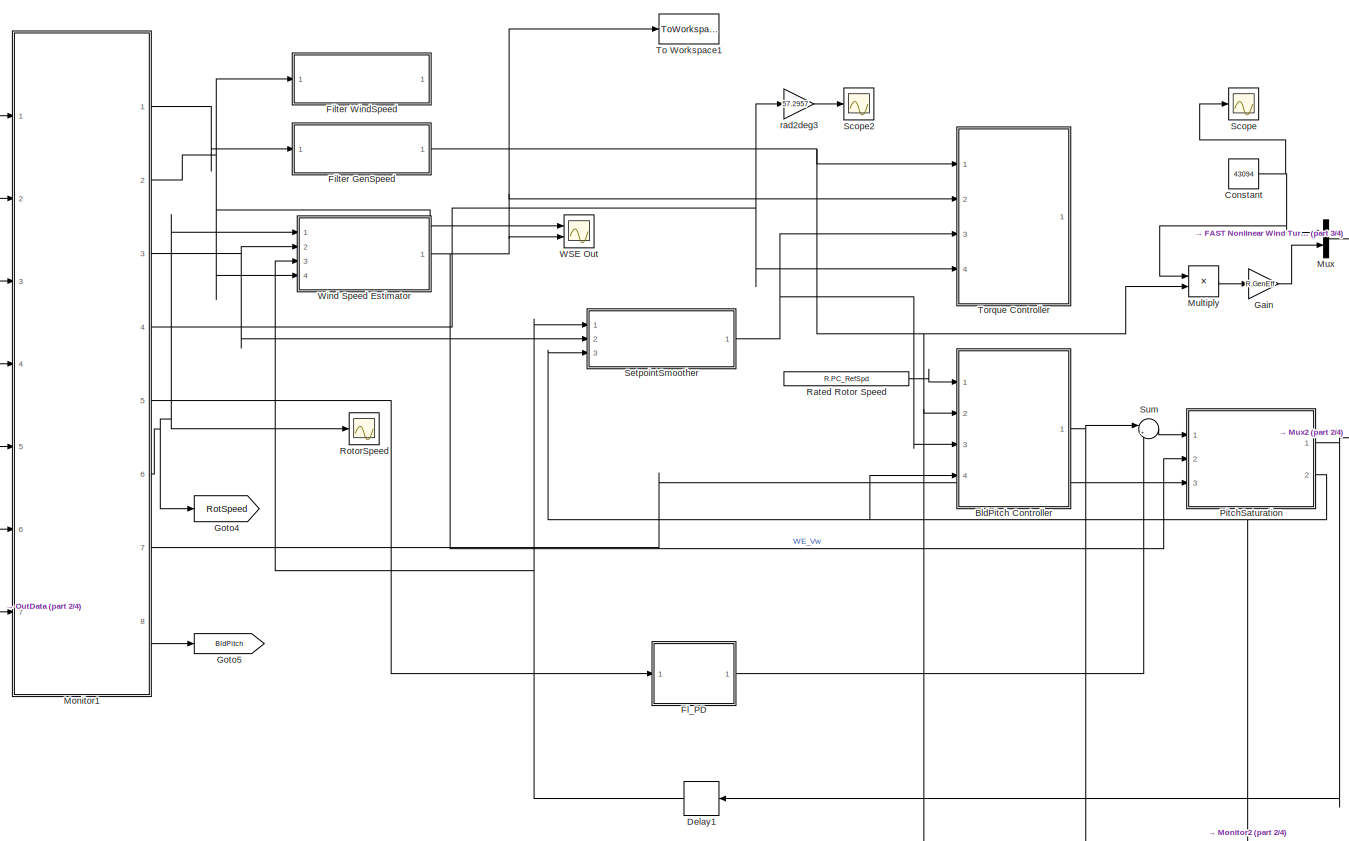
[diagram: root canvas - part 1/4, top left region]
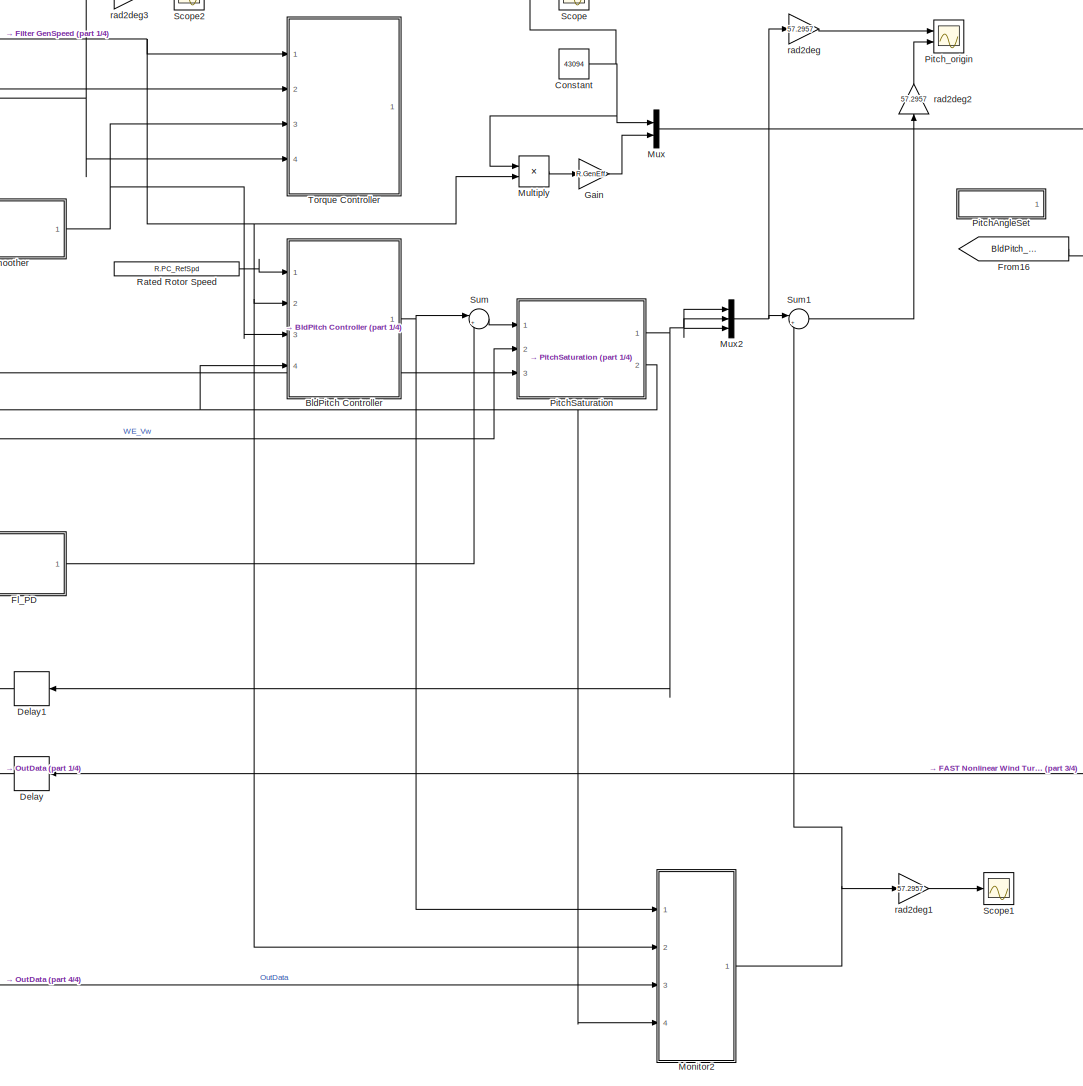
[diagram: root canvas - part 2/4, top center region]
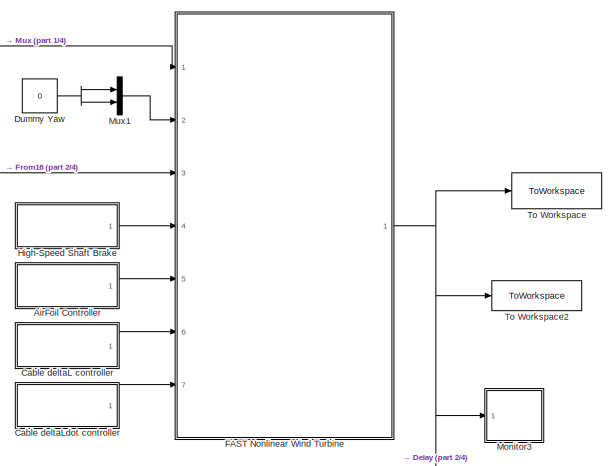
[diagram: root canvas - part 3/4, top right region]
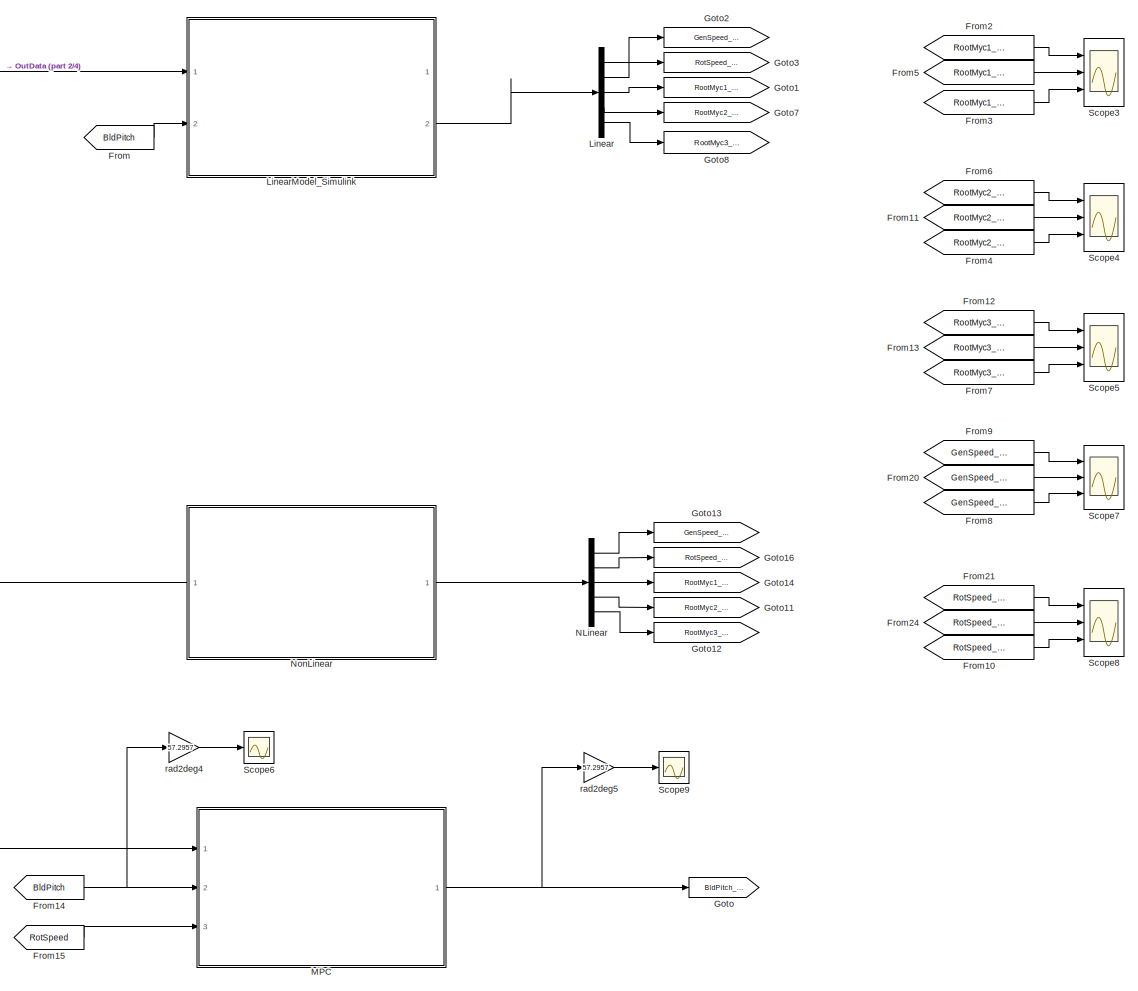
[diagram: root canvas - part 4/4, bottom center region]
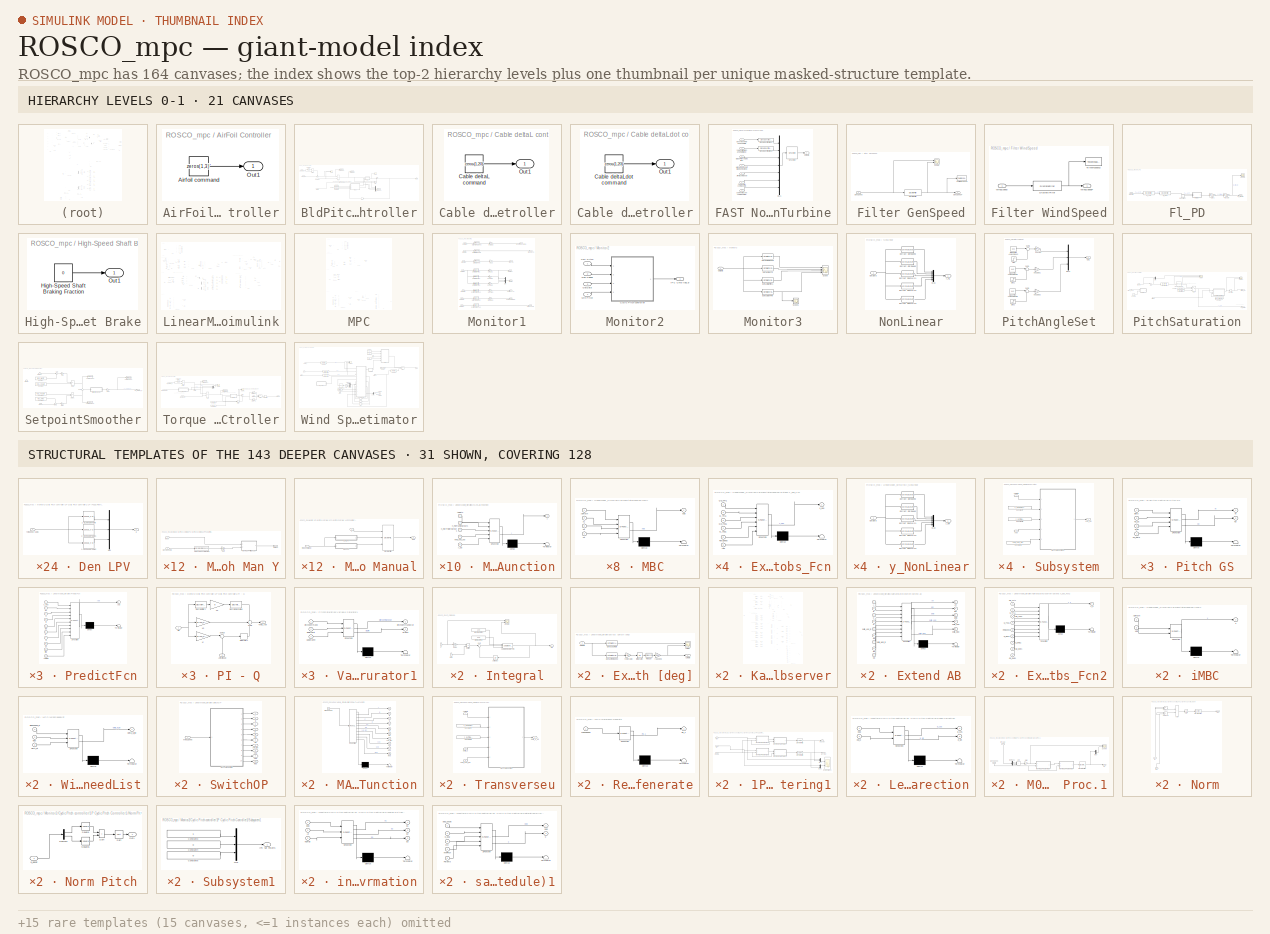
[diagram: thumbnail index - top-2 hierarchy levels (21 canvases) + 31 structural-template representatives of the remaining 143 canvases]
MODEL ROSCO_mpc
KIND model
BLOCK [SubSystem] AirFoil Controller
  Ports = [0, 1]
  SID = 1542
BLOCK [Constant] AirFoil Controller/Airfoil command
  SID = 1543
  Value = zeros(1,3)'
BLOCK [Outport] AirFoil Controller/Out1
  SID = 1544
BLOCK [SubSystem] BldPitch Controller
  Ports = [4, 1]
  SID = 376
BLOCK [Outport] BldPitch Controller/BldPitch
  SID = 407
  VectorParamsAs1DForOutWhenUnconnected = off
BLOCK [Reference] BldPitch Controller/Compare\nTo Zero1  REF=simulink/Logic and Bit\nOperations/Compare\nTo Zero
  OutDataTypeStr = boolean
  Ports = [1, 1]
  RTWMemSecDataConstants = Inherit from model
  RTWMemSecDataInternal = Inherit from model
  RTWMemSecDataParameters = Inherit from model
  RTWMemSecFuncExecute = Inherit from model
  RTWMemSecFuncInitTerm = Inherit from model
  SID = 654
  SourceBlock = simulink/Logic and Bit\nOperations/Compare\nTo Zero
  SourceType = Compare To Zero
  ZeroCross = on
  relop = <
BLOCK [Constant] BldPitch Controller/Constant1
  SID = 716
  Value = R.PC_GS_KP
BLOCK [Constant] BldPitch Controller/Constant2
  SID = 717
  Value = R.PC_GS_KI
BLOCK [Constant] BldPitch Controller/Constant3
  SID = 718
  Value = R.PC_GS_angles
BLOCK [Inport] BldPitch Controller/Del_omega_g
  NameLocation = top
  Port = 3
  SID = 498
BLOCK [Delay] BldPitch Controller/Delay
  DelayLength = 1
  InputPortMap = u0
  Ports = [1, 1]
  SID = 786
BLOCK [Inport] BldPitch Controller/GenSpeedF
  NameLocation = top
  Port = 2
  SID = 378
BLOCK [SubSystem] BldPitch Controller/Integral
  Ports = [3, 1]
  SID = 385
BLOCK [Inport] BldPitch Controller/Integral/Gain
  Port = 2
  SID = 387
BLOCK [Gain] BldPitch Controller/Integral/Gain1
  Gain = simu.dt
  SID = 388
BLOCK [Outport] BldPitch Controller/Integral/IntSpdErr
  SID = 395
  VectorParamsAs1DForOutWhenUnconnected = off
BLOCK [Constant] BldPitch Controller/Integral/Maximum Pitch
  NameLocation = top
  SID = 389
  Value = R.PC_MaxPit
BLOCK [Inport] BldPitch Controller/Integral/Min Pitch
  Port = 3
  SID = 790
BLOCK [Constant] BldPitch Controller/Integral/Minimum Pitch
  NameLocation = top
  SID = 390
  Value = R.PC_MinPit
BLOCK [Product] BldPitch Controller/Integral/Multiply
  Ports = [2, 1]
  SID = 391
BLOCK [Reference] BldPitch Controller/Integral/Saturate Integral\nTerm  REF=simulink/Discontinuities/Saturation\nDynamic
  DoSatur = off
  LockScale = off
  OutDataType = fixdt(1, 16)
  OutDataTypeStr = Inherit: Same as second input
  OutMax = []
  OutMin = []
  OutScaling = 2^-10
  OutputDataTypeScalingMode = Same as second input
  Ports = [3, 1]
  RTWMemSecDataConstants = Inherit from model
  RTWMemSecDataInternal = Inherit from model
  RTWMemSecDataParameters = Inherit from model
  RTWMemSecFuncExecute = Inherit from model
  RTWMemSecFuncInitTerm = Inherit from model
  RndMeth = Nearest
  SID = 392
  SourceBlock = simulink/Discontinuities/Saturation\nDynamic
  SourceType = Saturation Dynamic
BLOCK [Inport] BldPitch Controller/Integral/SpeedErr
  SID = 386
BLOCK [Sum] BldPitch Controller/Integral/Sum
  Inputs = |++
  Ports = [2, 1]
  SID = 393
BLOCK [UnitDelay] BldPitch Controller/Integral/Unit Delay
  HasFrameUpgradeWarning = on
  NameLocation = top
  SID = 394
  SampleTime = -1
BLOCK [Inport] BldPitch Controller/Min Pitch
  NameLocation = top
  Port = 4
  SID = 789
BLOCK [Product] BldPitch Controller/Multiply
  Ports = [2, 1]
  SID = 397
BLOCK [Product] BldPitch Controller/Multiply3
  Ports = [2, 1]
  SID = 655
BLOCK [Mux] BldPitch Controller/Mux
  DisplayOption = bar
  Inputs = 5
  NameLocation = top
  Ports = [5, 1]
  SID = 398
BLOCK [SubSystem] BldPitch Controller/Pitch GS
  ErrorFcn = Stateflow.Translate.translate
  PermitHierarchicalResolution = ExplicitOnly
  Ports = [4, 2]
  SFBlockType = MATLAB Function
  SID = 396
  TreatAsAtomicUnit = on
BLOCK [Demux] BldPitch Controller/Pitch GS/ Demux 
  Outputs = 1
  Ports = [1, 1]
  SID = 396::61
BLOCK [S-Function] BldPitch Controller/Pitch GS/ SFunction 
  EnableBusSupport = on
  FunctionName = sf_sfun
  PortCounts = [4 3]
  Ports = [4, 3]
  SFcnIsStateOwnerBlock = off
  SFunctionDeploymentMode = off
  SID = 396::60
  Tag = Stateflow S-Function 6
BLOCK [Terminator] BldPitch Controller/Pitch GS/ Terminator 
  SID = 396::62
BLOCK [Inport] BldPitch Controller/Pitch GS/Beta
  SID = 396::45
BLOCK [Outport] BldPitch Controller/Pitch GS/Ki
  SID = 396::22
  VectorParamsAs1DForOutWhenUnconnected = off
BLOCK [Inport] BldPitch Controller/Pitch GS/Ki_pc
  Port = 3
  SID = 396::54
BLOCK [Outport] BldPitch Controller/Pitch GS/Kp
  Port = 2
  SID = 396::5
  VectorParamsAs1DForOutWhenUnconnected = off
BLOCK [Inport] BldPitch Controller/Pitch GS/Kp_pc
  Port = 2
  SID = 396::56
BLOCK [Inport] BldPitch Controller/Pitch GS/PC_beta
  Port = 4
  SID = 396::55
BLOCK [Scope] BldPitch Controller/Scope
  Commented = on
  Floating = off
  NumInputPorts = 2
  Ports = [2]
  SID = 813
  ScopeSpecificationString = Simulink.scopes.TimeScopeBlockCfg('CurrentConfiguration', extmgr.ConfigurationSet(extmgr.Configuration('Core','General UI',true),extmgr.Configuration('Core','Source UI',true),extmgr.Configuration('Sources','WiredSimulink',true,'DataLoggingVariableName','ScopeData1'),extmgr.Configuration('Visuals','Time Domain',true,'SerializedDisplays',{struct('MinYLimReal','-15.34195','MaxYLimReal','161.74389','Y...<+1436ch>
BLOCK [Scope] BldPitch Controller/Scope1
  Commented = on
  Floating = off
  NumInputPorts = 1
  Ports = [1]
  SID = 413
  ScopeSpecificationString = Simulink.scopes.TimeScopeBlockCfg('CurrentConfiguration', extmgr.ConfigurationSet(extmgr.Configuration('Core','General UI',true),extmgr.Configuration('Core','Source UI',true),extmgr.Configuration('Sources','WiredSimulink',true,'DataLoggingVariableName','ScopeData1'),extmgr.Configuration('Visuals','Time Domain',true,'SerializedDisplays',{struct('MinYLimReal','-0.02964','MaxYLimReal','0.31037','YLab...<+1464ch>
BLOCK [Sum] BldPitch Controller/Sum
  IconShape = rectangular
  Inputs = +-
  Ports = [2, 1]
  SID = 402
BLOCK [Sum] BldPitch Controller/Sum1
  Inputs = |++
  Ports = [2, 1]
  SID = 403
BLOCK [Sum] BldPitch Controller/Sum3
  Inputs = -+|
  Ports = [2, 1]
  SID = 656
BLOCK [ToWorkspace] BldPitch Controller/To Workspace
  FixptAsFi = on
  MaxDataPoints = inf
  Ports = [1]
  SID = 412
  SampleTime = -1
  SaveFormat = Timeseries
  VariableName = SpdErr
BLOCK [ToWorkspace] BldPitch Controller/To Workspace1
  FixptAsFi = on
  MaxDataPoints = inf
  Ports = [1]
  SID = 405
  SampleTime = -1
  SaveFormat = Structure
  VariableName = PC_params
BLOCK [ToWorkspace] BldPitch Controller/To Workspace2
  FixptAsFi = on
  MaxDataPoints = inf
  Ports = [1]
  SID = 537
  SampleTime = -1
  SaveFormat = Timeseries
  VariableName = Omega_bg_ref
BLOCK [Inport] BldPitch Controller/omega_g,ref
  NameLocation = top
  SID = 497
BLOCK [SubSystem] Cable deltaL controller
  Ports = [0, 1]
  SID = 1545
BLOCK [Constant] Cable deltaL controller/Cable deltaL command
  SID = 1546
  Value = zeros(1,20)'
BLOCK [Outport] Cable deltaL controller/Out1
  SID = 1547
BLOCK [SubSystem] Cable deltaLdot controller
  Ports = [0, 1]
  SID = 1548
BLOCK [Constant] Cable deltaLdot controller/Cable deltaLdot command
  SID = 1549
  Value = zeros(1,20)'
BLOCK [Outport] Cable deltaLdot controller/Out1
  SID = 1550
BLOCK [Constant] Constant
  SID = 1836
  Value = 43094
BLOCK [Delay] Delay
  Commented = through
  DelayLength = 1
  InputPortMap = u0
  Ports = [1, 1]
  SID = 692
BLOCK [Delay] Delay1
  DelayLength = 1
  InputPortMap = u0
  Ports = [1, 1]
  SID = 822
BLOCK [Constant] Dummy Yaw
  SID = 40
  Value = 0
BLOCK [SubSystem] FAST Nonlinear Wind Turbine
  Ports = [7, 1]
  SID = 1529
BLOCK [Inport] FAST Nonlinear Wind Turbine/AirFoil command (-)
  Port = 5
  SID = 1534
BLOCK [Inport] FAST Nonlinear Wind Turbine/Blade Pitch Angles (rad)
  Port = 3
  SID = 1532
BLOCK [Inport] FAST Nonlinear Wind Turbine/Cable deltaL command (m)
  Port = 6
  SID = 1535
BLOCK [Inport] FAST Nonlinear Wind Turbine/Cable deltaLdot command (m//s)
  Port = 7
  SID = 1536
BLOCK [Inport] FAST Nonlinear Wind Turbine/Gen. Torque (Nm) and Power (W)
  SID = 1530
BLOCK [Inport] FAST Nonlinear Wind Turbine/High-Speed Shaft Braking Fraction (-)
  Port = 4
  SID = 1533
BLOCK [Mux] FAST Nonlinear Wind Turbine/Mux1
  DisplayOption = bar
  Inputs = 7
  Ports = [7, 1]
  SID = 1537
BLOCK [Outport] FAST Nonlinear Wind Turbine/OutData
  SID = 1541
BLOCK [S-Function] FAST Nonlinear Wind Turbine/S-Function
  EnableBusSupport = off
  FunctionName = FAST_SFunc
  Parameters = FAST_InputFileName, TMax, 0
  Ports = [1, 1]
  SFcnIsStateOwnerBlock = off
  SFunctionDeploymentMode = off
  SID = 1538
BLOCK [SignalSpecification] FAST Nonlinear Wind Turbine/Signal Specification1
  Dimensions = 2
  OutDataTypeStr = double
  SID = 1539
  SignalType = real
BLOCK [SignalSpecification] FAST Nonlinear Wind Turbine/Signal Specification2
  Dimensions = 2
  OutDataTypeStr = double
  SID = 1540
  SignalType = real
BLOCK [Inport] FAST Nonlinear Wind Turbine/Yaw Position (rad) and Rate (rad//s)
  Port = 2
  SID = 1531
BLOCK [SubSystem] Filter GenSpeed
  Ports = [1, 1]
  SID = 304
BLOCK [DiscreteFilter] Filter GenSpeed/Discrete Filter
  Denominator = F.HSS.a
  InitialStates = R.VS_RefSpd/(sum(F.HSS.a(2:end))+1)
  InputPortMap = u0
  Numerator = F.HSS.b
  Ports = [1, 1]
  SID = 353
BLOCK [Inport] Filter GenSpeed/GenSpeed
  SID = 305
BLOCK [Outport] Filter GenSpeed/GenSpeedF
  SID = 308
  VectorParamsAs1DForOutWhenUnconnected = off
BLOCK [Scope] Filter GenSpeed/Scope
  Floating = off
  NumInputPorts = 2
  Ports = [2]
  SID = 855
  ScopeSpecificationString = Simulink.scopes.TimeScopeBlockCfg('CurrentConfiguration', extmgr.ConfigurationSet(extmgr.Configuration('Core','General UI',true),extmgr.Configuration('Core','Source UI',true),extmgr.Configuration('Sources','WiredSimulink',true,'DataLoggingVariableName','ScopeData2'),extmgr.Configuration('Visuals','Time Domain',true,'SerializedDisplays',{struct('MinYLimReal','122.90957','MaxYLimReal','122.90968','Y...<+1423ch>
BLOCK [ToWorkspace] Filter GenSpeed/To Workspace2
  FixptAsFi = on
  MaxDataPoints = inf
  Ports = [1]
  SID = 340
  SampleTime = -1
  SaveFormat = Timeseries
  VariableName = Om_f
BLOCK [SubSystem] Filter WindSpeed
  Ports = [1, 1]
  SID = 674
BLOCK [DiscreteFilter] Filter WindSpeed/Discrete Filter
  Denominator = F.Wind.a
  InitialStates = 10
  InputPortMap = u0
  Numerator = F.Wind.b
  Ports = [1, 1]
  SID = 676
BLOCK [ToWorkspace] Filter WindSpeed/To Workspace2
  FixptAsFi = on
  MaxDataPoints = inf
  Ports = [1]
  SID = 677
  SampleTime = -1
  SaveFormat = Timeseries
  VariableName = WindSpeedF
BLOCK [Inport] Filter WindSpeed/WindSpeed
  SID = 675
BLOCK [Outport] Filter WindSpeed/WindSpeedF
  SID = 678
  VectorParamsAs1DForOutWhenUnconnected = off
BLOCK [SubSystem] Fl_PD
  Ports = [1, 1]
  SID = 745
BLOCK [Constant] Fl_PD/Constant
  SID = 742
BLOCK [Gain] Fl_PD/Enable
  Gain = R.Fl_Mode
  SID = 751
BLOCK [DiscreteFilter] Fl_PD/Fl_HPF
  Denominator = F.F_Fl_HPF.b
  InputPortMap = u0
  Numerator = F.F_Fl_HPF.b
  Ports = [1, 1]
  SID = 753
BLOCK [DiscreteFilter] Fl_PD/Fl_LPF
  Denominator = F.F_Fl.a
  InputPortMap = u0
  Numerator = F.F_Fl.b
  Ports = [1, 1]
  SID = 748
BLOCK [Outport] Fl_PD/Fl_Pitcom
  SID = 747
BLOCK [Gain] Fl_PD/Gain1
  Gain = -R.Fl_Kp
  SID = 743
BLOCK [SubSystem] Fl_PD/Integral
  Ports = [2, 1]
  SID = 731
BLOCK [Inport] Fl_PD/Integral/Gain
  Port = 2
  SID = 733
BLOCK [Gain] Fl_PD/Integral/Gain1
  Gain = simu.dt
  SID = 734
BLOCK [Outport] Fl_PD/Integral/Int x
  SID = 741
  VectorParamsAs1DForOutWhenUnconnected = off
BLOCK [Constant] Fl_PD/Integral/Maximum Pitch
  NameLocation = top
  SID = 735
  Value = 100
BLOCK [Constant] Fl_PD/Integral/Minimum Pitch
  NameLocation = top
  SID = 736
  Value = -100
BLOCK [Product] Fl_PD/Integral/Multiply
  Ports = [2, 1]
  SID = 737
BLOCK [Reference] Fl_PD/Integral/Saturate Integral\nTerm  REF=simulink/Discontinuities/Saturation\nDynamic
  DoSatur = off
  LockScale = off
  OutDataType = fixdt(1, 16)
  OutDataTypeStr = Inherit: Same as second input
  OutMax = []
  OutMin = []
  OutScaling = 2^-10
  OutputDataTypeScalingMode = Same as second input
  Ports = [3, 1]
  RTWMemSecDataConstants = Inherit from model
  RTWMemSecDataInternal = Inherit from model
  RTWMemSecDataParameters = Inherit from model
  RTWMemSecFuncExecute = Inherit from model
  RTWMemSecFuncInitTerm = Inherit from model
  RndMeth = Nearest
  SID = 738
  SourceBlock = simulink/Discontinuities/Saturation\nDynamic
  SourceType = Saturation Dynamic
BLOCK [Scope] Fl_PD/Integral/Scope
  Floating = off
  NumInputPorts = 2
  Ports = [2]
  SID = 754
  ScopeSpecificationString = Simulink.scopes.TimeScopeBlockCfg('CurrentConfiguration', extmgr.ConfigurationSet(extmgr.Configuration('Core','General UI',true),extmgr.Configuration('Core','Source UI',true),extmgr.Configuration('Sources','WiredSimulink',true,'DataLoggingVariableName','ScopeData3'),extmgr.Configuration('Visuals','Time Domain',true,'SerializedDisplays',{struct('MinYLimReal','-1.00000','MaxYLimReal','1.00000','YLab...<+1434ch>
BLOCK [Sum] Fl_PD/Integral/Sum
  Inputs = |++
  Ports = [2, 1]
  SID = 739
BLOCK [UnitDelay] Fl_PD/Integral/Unit Delay
  HasFrameUpgradeWarning = on
  NameLocation = top
  SID = 740
  SampleTime = -1
BLOCK [Inport] Fl_PD/Integral/x
  SID = 732
BLOCK [Inport] Fl_PD/NacIMU
  NameLocation = top
  SID = 746
BLOCK [Scope] Fl_PD/Scope
  Floating = off
  NumInputPorts = 1
  Ports = [1]
  SID = 851
  ScopeSpecificationString = Simulink.scopes.TimeScopeBlockCfg('CurrentConfiguration', extmgr.ConfigurationSet(extmgr.Configuration('Core','General UI',true),extmgr.Configuration('Core','Source UI',true),extmgr.Configuration('Sources','WiredSimulink',true,'DataLoggingVariableName','ScopeData1'),extmgr.Configuration('Visuals','Time Domain',true),extmgr.Configuration('Tools','Plot Navigation',true),extmgr.Configuration('Tools',...<+40ch>
BLOCK [From] From
  GotoTag = BldPitch
  SID = 2470
BLOCK [From] From10
  GotoTag = RotSpeed_NR
  SID = 2623
BLOCK [From] From11
  Commented = on
  GotoTag = RootMyc2_Fcn
  SID = 2588
BLOCK [From] From12
  GotoTag = RootMyc3_LR
  SID = 2589
BLOCK [From] From13
  Commented = on
  GotoTag = RootMyc3_Fcn
  SID = 2590
BLOCK [From] From14
  GotoTag = BldPitch
  SID = 3202
BLOCK [From] From15
  GotoTag = RotSpeed
  SID = 3203
BLOCK [From] From16
  GotoTag = BldPitch_in
  SID = 3658
BLOCK [From] From2
  GotoTag = RootMyc1_LR
  SID = 2587
BLOCK [From] From20
  Commented = on
  GotoTag = GenSpeed_Fcn
  SID = 2591
BLOCK [From] From21
  GotoTag = RotSpeed_LR
  SID = 2592
BLOCK [From] From24
  Commented = on
  GotoTag = RotSpeed_Fcn
  SID = 2593
BLOCK [From] From3
  GotoTag = RootMyc1_NR
  SID = 2619
BLOCK [From] From4
  GotoTag = RootMyc2_NR
  SID = 2620
BLOCK [From] From5
  Commented = on
  GotoTag = RootMyc1_Fcn
  SID = 2594
BLOCK [From] From6
  GotoTag = RootMyc2_LR
  SID = 2595
BLOCK [From] From7
  GotoTag = RootMyc3_NR
  SID = 2621
BLOCK [From] From8
  GotoTag = GenSpeed_NR
  SID = 2622
BLOCK [From] From9
  GotoTag = GenSpeed_LR
  SID = 2596
BLOCK [Gain] Gain
  Gain = R.GenEff
  SID = 159
BLOCK [Goto] Goto
  GotoTag = BldPitch_in
  SID = 2469
BLOCK [Goto] Goto1
  GotoTag = RootMyc1_LR
  SID = 2559
BLOCK [Goto] Goto11
  GotoTag = RootMyc2_NR
  SID = 2612
BLOCK [Goto] Goto12
  GotoTag = RootMyc3_NR
  SID = 2613
BLOCK [Goto] Goto13
  GotoTag = GenSpeed_NR
  SID = 2614
BLOCK [Goto] Goto14
  GotoTag = RootMyc1_NR
  SID = 2616
BLOCK [Goto] Goto16
  GotoTag = RotSpeed_NR
  SID = 2615
BLOCK [Goto] Goto2
  GotoTag = GenSpeed_LR
  SID = 2560
BLOCK [Goto] Goto3
  GotoTag = RotSpeed_LR
  SID = 2561
BLOCK [Goto] Goto4
  GotoTag = RotSpeed
  SID = 3199
BLOCK [Goto] Goto5
  GotoTag = BldPitch
  SID = 3649
BLOCK [Goto] Goto7
  GotoTag = RootMyc2_LR
  SID = 2562
BLOCK [Goto] Goto8
  GotoTag = RootMyc3_LR
  SID = 2563
BLOCK [SubSystem] High-Speed Shaft Brake
  Ports = [0, 1]
  SID = 1551
BLOCK [Constant] High-Speed Shaft Brake/High-Speed Shaft Braking Fraction
  SID = 1552
  Value = 0
BLOCK [Outport] High-Speed Shaft Brake/Out1
  SID = 1553
BLOCK [Demux] Linear
  Outputs = 5
  Ports = [1, 5]
  SID = 2564
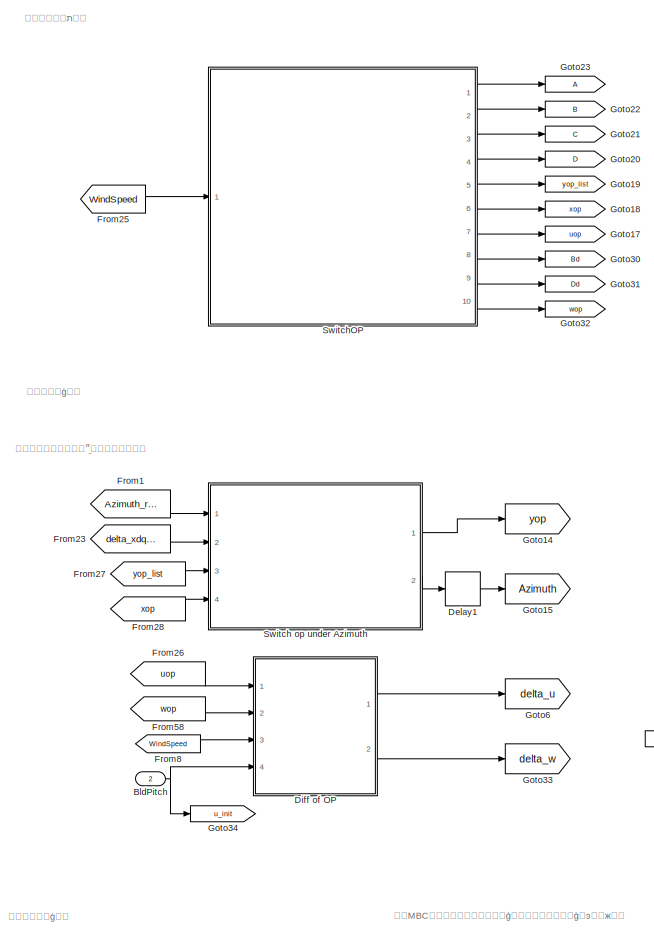
[diagram: LinearModel_Simulink - part 1/6, top left region]
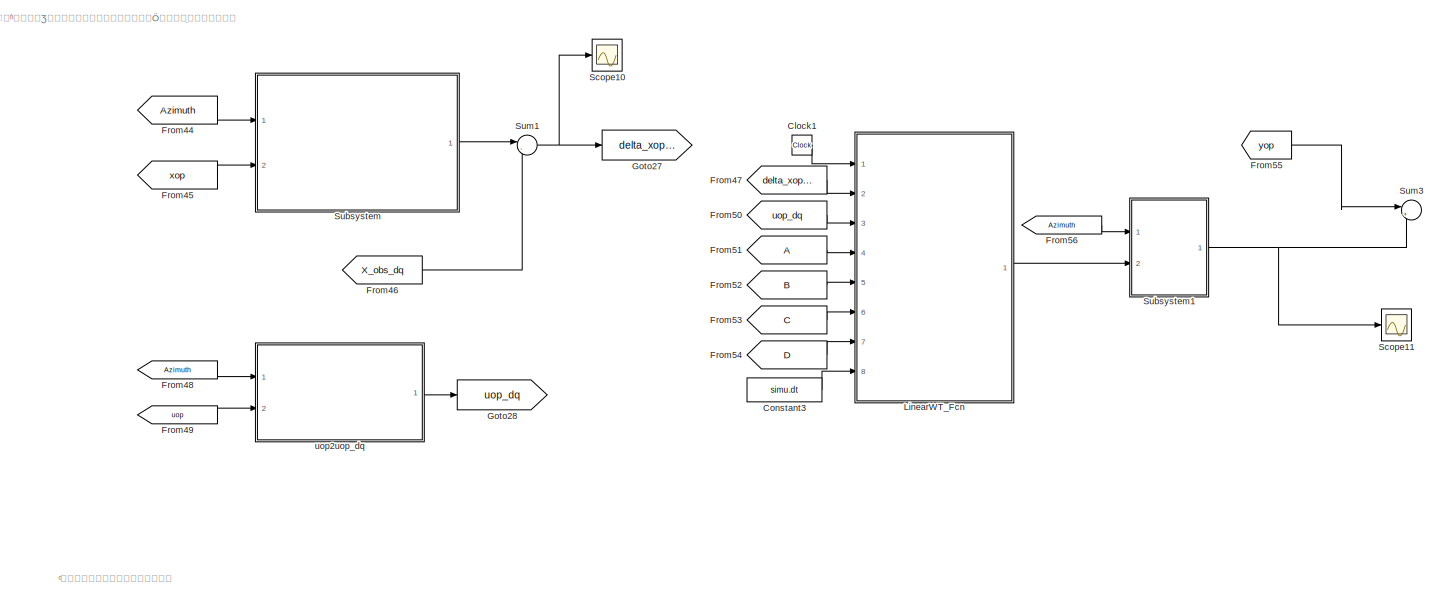
[diagram: LinearModel_Simulink - part 2/6, top right region]
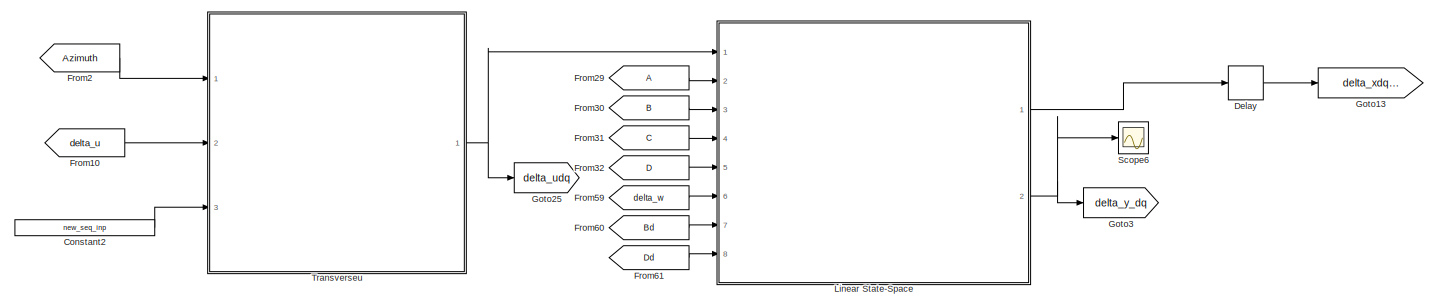
[diagram: LinearModel_Simulink - part 3/6, top center region]
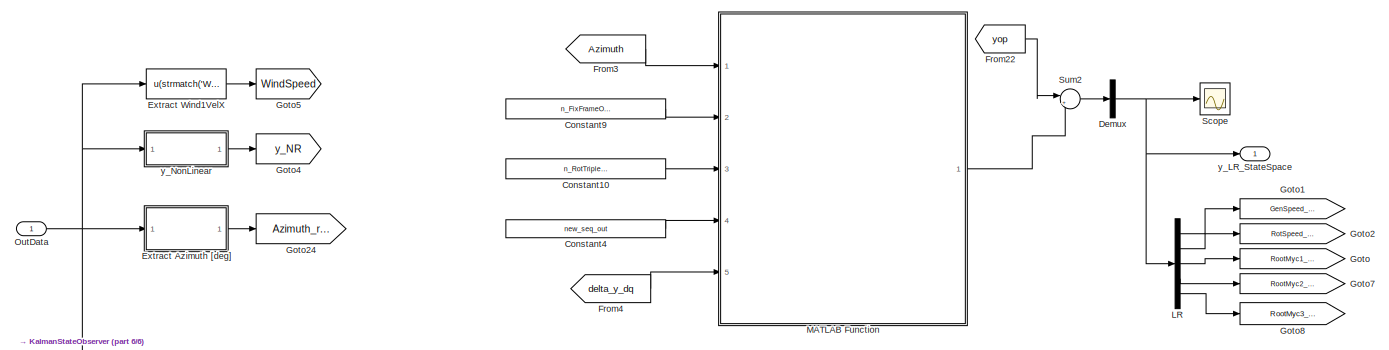
[diagram: LinearModel_Simulink - part 4/6, middle left region]
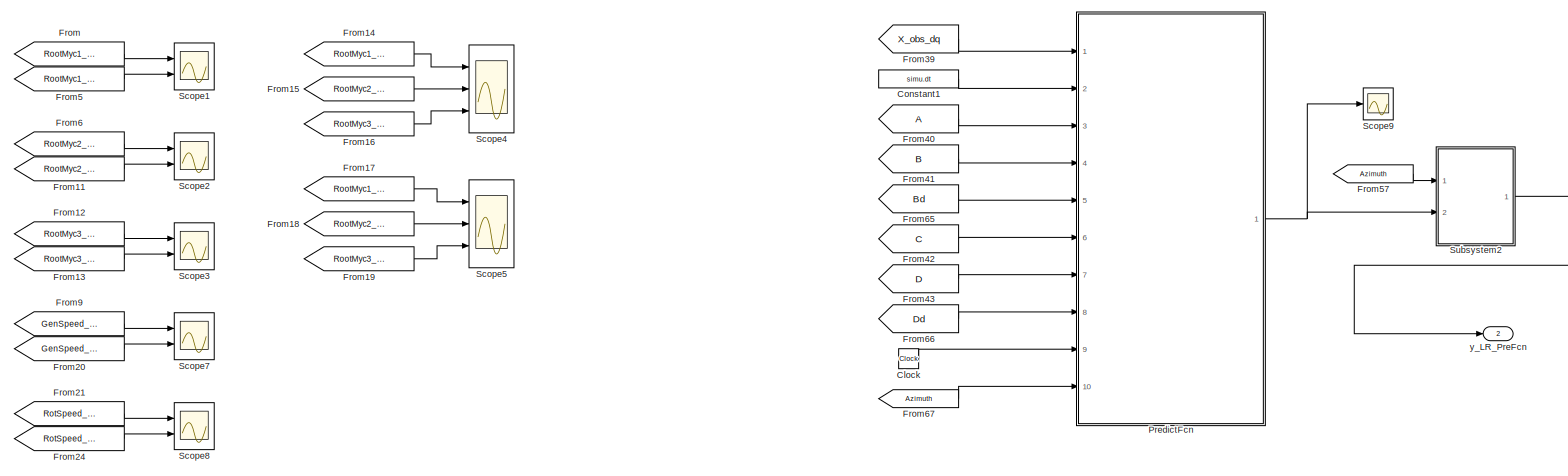
[diagram: LinearModel_Simulink - part 5/6, central region]
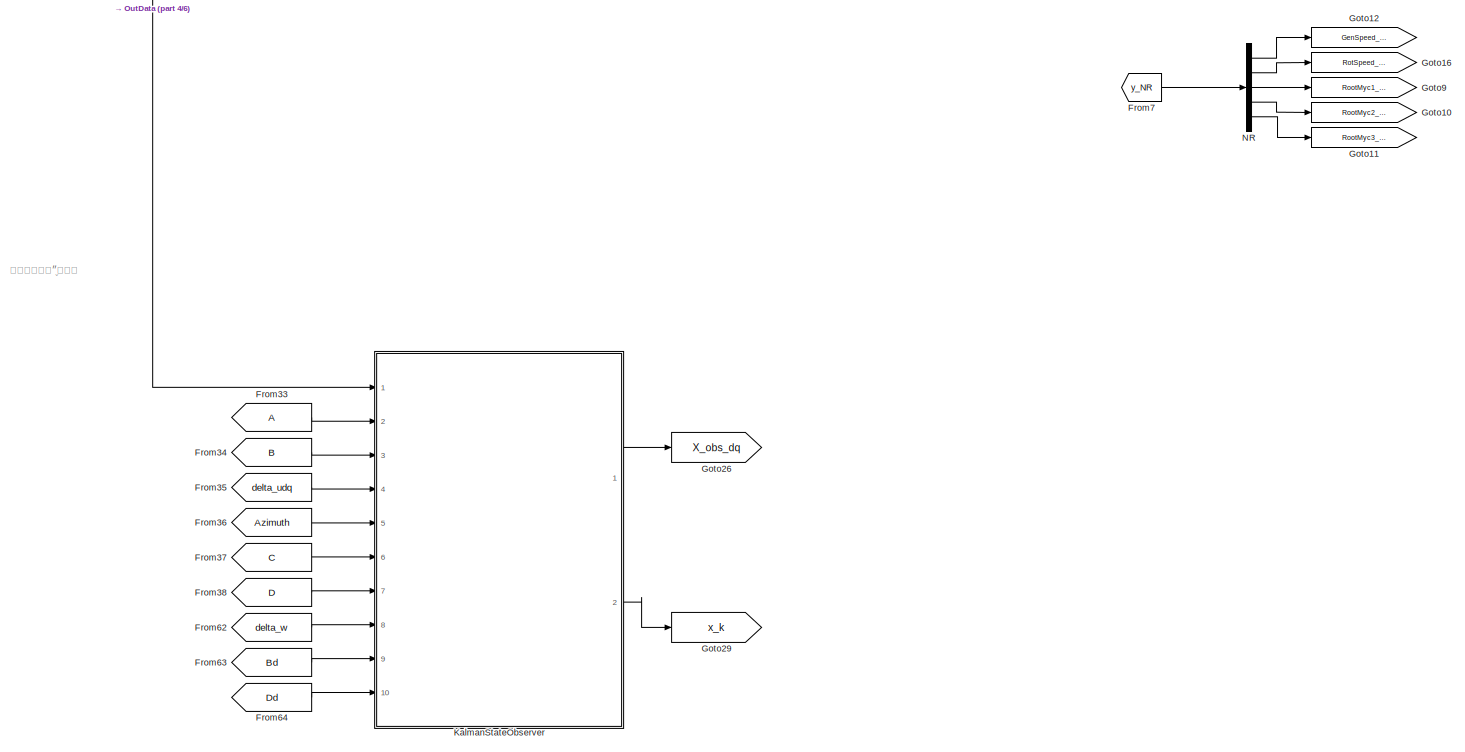
[diagram: LinearModel_Simulink - part 6/6, bottom left region]
BLOCK [SubSystem] LinearModel_Simulink
  Commented = on
  Ports = [2, 2]
  SID = 2175
  TreatAsAtomicUnit = on
BLOCK [Inport] LinearModel_Simulink/BldPitch
  Port = 2
  SID = 2471
BLOCK [Clock] LinearModel_Simulink/Clock
  Commented = on
  SID = 3055
BLOCK [Clock] LinearModel_Simulink/Clock1
  Commented = on
  SID = 3090
BLOCK [Constant] LinearModel_Simulink/Constant1
  Commented = on
  SID = 3049
  Value = simu.dt
BLOCK [Constant] LinearModel_Simulink/Constant10
  SID = 2178
  Value = n_RotTripletOutputs
BLOCK [Constant] LinearModel_Simulink/Constant2
  SID = 2179
  Value = new_seq_inp
BLOCK [Constant] LinearModel_Simulink/Constant3
  Commented = on
  SID = 3117
  Value = simu.dt
BLOCK [Constant] LinearModel_Simulink/Constant4
  SID = 2181
  Value = new_seq_out
BLOCK [Constant] LinearModel_Simulink/Constant9
  SID = 2182
  Value = n_FixFrameOutputs
BLOCK [Delay] LinearModel_Simulink/Delay
  DelayLength = 1
  InitialCondition = 0
  InputPortMap = u0
  Ports = [1, 1]
  SID = 2183
BLOCK [Delay] LinearModel_Simulink/Delay1
  DelayLength = 1
  InitialCondition = 0
  InputPortMap = u0
  Ports = [1, 1]
  SID = 2184
BLOCK [Demux] LinearModel_Simulink/Demux
  Outputs = 1
  Ports = [1, 1]
  SID = 2185
BLOCK [SubSystem] LinearModel_Simulink/Diff of OP
  ErrorFcn = Stateflow.Translate.translate
  PermitHierarchicalResolution = ExplicitOnly
  Ports = [4, 2]
  SFBlockType = MATLAB Function
  SID = 2294
  TreatAsAtomicUnit = on
BLOCK [Demux] LinearModel_Simulink/Diff of OP/ Demux 
  Outputs = 1
  Ports = [1, 1]
  SID = 2294::26
BLOCK [S-Function] LinearModel_Simulink/Diff of OP/ SFunction 
  EnableBusSupport = on
  FunctionName = sf_sfun
  PortCounts = [4 3]
  Ports = [4, 3]
  SFcnIsStateOwnerBlock = off
  SFunctionDeploymentMode = off
  SID = 2294::25
  Tag = Stateflow S-Function 19
BLOCK [Terminator] LinearModel_Simulink/Diff of OP/ Terminator 
  SID = 2294::27
BLOCK [Inport] LinearModel_Simulink/Diff of OP/Avg_u
  SID = 2294::1
BLOCK [Inport] LinearModel_Simulink/Diff of OP/Avg_w
  Port = 2
  SID = 2294::30
BLOCK [Inport] LinearModel_Simulink/Diff of OP/BldPitch
  Port = 4
  SID = 2294::29
BLOCK [Inport] LinearModel_Simulink/Diff of OP/WindSpeed
  Port = 3
  SID = 2294::28
BLOCK [Outport] LinearModel_Simulink/Diff of OP/delta_u
  SID = 2294::5
BLOCK [Outport] LinearModel_Simulink/Diff of OP/delta_w
  Port = 2
  SID = 2294::31
BLOCK [SubSystem] LinearModel_Simulink/Extract Azimuth [deg]
  Ports = [1, 1]
  SID = 2186
BLOCK [Scope] LinearModel_Simulink/Extract Azimuth [deg]/Azimut
  Floating = off
  NumInputPorts = 2
  Ports = [2]
  SID = 2188
  ScopeSpecificationString = Simulink.scopes.TimeScopeBlockCfg('CurrentConfiguration', extmgr.ConfigurationSet(extmgr.Configuration('Core','General UI',true),extmgr.Configuration('Core','Source UI',true),extmgr.Configuration('Sources','WiredSimulink',true,'DataLoggingVariableName','ScopeData1'),extmgr.Configuration('Visuals','Time Domain',true,'SerializedDisplays',{struct('MinYLimReal','-44.99605','MaxYLimReal','404.96444','Y...<+1437ch>
BLOCK [Outport] LinearModel_Simulink/Extract Azimuth [deg]/Azimuth
  SID = 2195
BLOCK [Fcn] LinearModel_Simulink/Extract Azimuth [deg]/Extract Azimuth
  Expr = u(strmatch('Azimuth',OutList))
  SID = 2189
BLOCK [Fcn] LinearModel_Simulink/Extract Azimuth [deg]/Extract RotSpeed
  Expr = u(strmatch('RotSpeed',OutList))
  SID = 2190
BLOCK [Integrator] LinearModel_Simulink/Extract Azimuth [deg]/Integrator
  Ports = [1, 1]
  SID = 2191
BLOCK [Inport] LinearModel_Simulink/Extract Azimuth [deg]/OutData
  SID = 2187
BLOCK [Fcn] LinearModel_Simulink/Extract Azimuth [deg]/mod2pi
  Expr = rem(u, 2*pi)
  SID = 2192
BLOCK [Gain] LinearModel_Simulink/Extract Azimuth [deg]/rad2deg
  Gain = 1/pi*180
  SID = 2193
BLOCK [Gain] LinearModel_Simulink/Extract Azimuth [deg]/rpm2rad//s
  Gain = pi/30
  SID = 2194
BLOCK [Fcn] LinearModel_Simulink/Extract Wind1VelX
  Expr = u(strmatch('Wind1VelX',OutList))
  SID = 2196
BLOCK [From] LinearModel_Simulink/From
  Commented = on
  GotoTag = RootMyc1_LR
  SID = 2197
BLOCK [From] LinearModel_Simulink/From1
  GotoTag = Azimuth_real
  SID = 2198
BLOCK [From] LinearModel_Simulink/From10
  GotoTag = delta_u
  SID = 2199
BLOCK [From] LinearModel_Simulink/From11
  Commented = on
  GotoTag = RootMyc2_NR
  SID = 2200
BLOCK [From] LinearModel_Simulink/From12
  Commented = on
  GotoTag = RootMyc3_LR
  SID = 2201
BLOCK [From] LinearModel_Simulink/From13
  Commented = on
  GotoTag = RootMyc3_NR
  SID = 2202
BLOCK [From] LinearModel_Simulink/From14
  Commented = on
  GotoTag = RootMyc1_LR
  SID = 2203
BLOCK [From] LinearModel_Simulink/From15
  Commented = on
  GotoTag = RootMyc2_LR
  SID = 2204
BLOCK [From] LinearModel_Simulink/From16
  Commented = on
  GotoTag = RootMyc3_LR
  SID = 2205
BLOCK [From] LinearModel_Simulink/From17
  Commented = on
  GotoTag = RootMyc1_NR
  SID = 2206
BLOCK [From] LinearModel_Simulink/From18
  Commented = on
  GotoTag = RootMyc2_NR
  SID = 2207
BLOCK [From] LinearModel_Simulink/From19
  Commented = on
  GotoTag = RootMyc3_NR
  SID = 2208
BLOCK [From] LinearModel_Simulink/From2
  GotoTag = Azimuth
  SID = 2209
BLOCK [From] LinearModel_Simulink/From20
  Commented = on
  GotoTag = GenSpeed_NR
  SID = 2328
BLOCK [From] LinearModel_Simulink/From21
  Commented = on
  GotoTag = RotSpeed_LR
  SID = 2330
BLOCK [From] LinearModel_Simulink/From22
  GotoTag = yop
  SID = 2210
BLOCK [From] LinearModel_Simulink/From23
  GotoTag = delta_xdq_new
  SID = 2211
BLOCK [From] LinearModel_Simulink/From24
  Commented = on
  GotoTag = RotSpeed_NR
  SID = 2331
BLOCK [From] LinearModel_Simulink/From25
  GotoTag = WindSpeed
  SID = 2656
BLOCK [From] LinearModel_Simulink/From26
  GotoTag = uop
  SID = 2660
BLOCK [From] LinearModel_Simulink/From27
  GotoTag = yop_list
  SID = 2672
BLOCK [From] LinearModel_Simulink/From28
  GotoTag = xop
  SID = 2673
BLOCK [From] LinearModel_Simulink/From29
  SID = 2674
BLOCK [From] LinearModel_Simulink/From3
  GotoTag = Azimuth
  SID = 2212
BLOCK [From] LinearModel_Simulink/From30
  GotoTag = B
  SID = 2675
BLOCK [From] LinearModel_Simulink/From31
  GotoTag = C
  SID = 2676
BLOCK [From] LinearModel_Simulink/From32
  GotoTag = D
  SID = 2677
BLOCK [From] LinearModel_Simulink/From33
  SID = 2936
BLOCK [From] LinearModel_Simulink/From34
  GotoTag = B
  SID = 2937
BLOCK [From] LinearModel_Simulink/From35
  GotoTag = delta_udq
  SID = 2961
BLOCK [From] LinearModel_Simulink/From36
  GotoTag = Azimuth
  SID = 2968
BLOCK [From] LinearModel_Simulink/From37
  GotoTag = C
  SID = 2977
BLOCK [From] LinearModel_Simulink/From38
  GotoTag = D
  SID = 2978
BLOCK [From] LinearModel_Simulink/From39
  Commented = on
  GotoTag = X_obs_dq
  SID = 3050
BLOCK [From] LinearModel_Simulink/From4
  GotoTag = delta_y_dq
  SID = 2213
BLOCK [From] LinearModel_Simulink/From40
  Commented = on
  SID = 3051
BLOCK [From] LinearModel_Simulink/From41
  Commented = on
  GotoTag = B
  SID = 3052
BLOCK [From] LinearModel_Simulink/From42
  Commented = on
  GotoTag = C
  SID = 3053
BLOCK [From] LinearModel_Simulink/From43
  Commented = on
  GotoTag = D
  SID = 3054
BLOCK [From] LinearModel_Simulink/From44
  Commented = on
  GotoTag = Azimuth
  SID = 3073
BLOCK [From] LinearModel_Simulink/From45
  Commented = on
  GotoTag = xop
  SID = 3074
BLOCK [From] LinearModel_Simulink/From46
  Commented = on
  GotoTag = X_obs_dq
  SID = 3075
BLOCK [From] LinearModel_Simulink/From47
  Commented = on
  GotoTag = delta_xop_dq
  SID = 3093
BLOCK [From] LinearModel_Simulink/From48
  Commented = on
  GotoTag = Azimuth
  SID = 3106
BLOCK [From] LinearModel_Simulink/From49
  Commented = on
  GotoTag = uop
  SID = 3108
BLOCK [From] LinearModel_Simulink/From5
  Commented = on
  GotoTag = RootMyc1_NR
  SID = 2214
BLOCK [From] LinearModel_Simulink/From50
  Commented = on
  GotoTag = uop_dq
  SID = 3112
BLOCK [From] LinearModel_Simulink/From51
  Commented = on
  SID = 3113
BLOCK [From] LinearModel_Simulink/From52
  Commented = on
  GotoTag = B
  SID = 3114
BLOCK [From] LinearModel_Simulink/From53
  Commented = on
  GotoTag = C
  SID = 3115
BLOCK [From] LinearModel_Simulink/From54
  Commented = on
  GotoTag = D
  SID = 3116
BLOCK [From] LinearModel_Simulink/From55
  Commented = on
  GotoTag = yop
  SID = 3122
BLOCK [From] LinearModel_Simulink/From56
  Commented = on
  GotoTag = Azimuth
  SID = 3134
BLOCK [From] LinearModel_Simulink/From57
  Commented = on
  GotoTag = Azimuth
  SID = 3137
BLOCK [From] LinearModel_Simulink/From58
  GotoTag = wop
  SID = 3155
BLOCK [From] LinearModel_Simulink/From59
  GotoTag = delta_w
  SID = 3162
BLOCK [From] LinearModel_Simulink/From6
  Commented = on
  GotoTag = RootMyc2_LR
  SID = 2215
BLOCK [From] LinearModel_Simulink/From60
  GotoTag = Bd
  SID = 3163
BLOCK [From] LinearModel_Simulink/From61
  GotoTag = Dd
  SID = 3164
BLOCK [From] LinearModel_Simulink/From62
  GotoTag = delta_w
  SID = 3174
BLOCK [From] LinearModel_Simulink/From63
  GotoTag = Bd
  SID = 3175
BLOCK [From] LinearModel_Simulink/From64
  GotoTag = Dd
  SID = 3176
BLOCK [From] LinearModel_Simulink/From65
  Commented = on
  GotoTag = Bd
  SID = 3177
BLOCK [From] LinearModel_Simulink/From66
  Commented = on
  GotoTag = Dd
  SID = 3178
BLOCK [From] LinearModel_Simulink/From67
  Commented = on
  GotoTag = Azimuth
  SID = 3179
BLOCK [From] LinearModel_Simulink/From7
  Commented = on
  GotoTag = y_NR
  SID = 2216
BLOCK [From] LinearModel_Simulink/From8
  GotoTag = WindSpeed
  SID = 2217
BLOCK [From] LinearModel_Simulink/From9
  Commented = on
  GotoTag = GenSpeed_LR
  SID = 2327
BLOCK [Goto] LinearModel_Simulink/Goto
  Commented = on
  GotoTag = RootMyc1_LR
  SID = 2219
BLOCK [Goto] LinearModel_Simulink/Goto1
  Commented = on
  GotoTag = GenSpeed_LR
  SID = 2322
BLOCK [Goto] LinearModel_Simulink/Goto10
  Commented = on
  GotoTag = RootMyc2_NR
  SID = 2220
BLOCK [Goto] LinearModel_Simulink/Goto11
  Commented = on
  GotoTag = RootMyc3_NR
  SID = 2221
BLOCK [Goto] LinearModel_Simulink/Goto12
  Commented = on
  GotoTag = GenSpeed_NR
  SID = 2325
BLOCK [Goto] LinearModel_Simulink/Goto13
  GotoTag = delta_xdq_new
  SID = 2222
BLOCK [Goto] LinearModel_Simulink/Goto14
  GotoTag = yop
  SID = 2223
BLOCK [Goto] LinearModel_Simulink/Goto15
  GotoTag = Azimuth
  SID = 2224
BLOCK [Goto] LinearModel_Simulink/Goto16
  Commented = on
  GotoTag = RotSpeed_NR
  SID = 2326
BLOCK [Goto] LinearModel_Simulink/Goto17
  GotoTag = uop
  SID = 2664
BLOCK [Goto] LinearModel_Simulink/Goto18
  GotoTag = xop
  SID = 2665
BLOCK [Goto] LinearModel_Simulink/Goto19
  GotoTag = yop_list
  SID = 2666
BLOCK [Goto] LinearModel_Simulink/Goto2
  Commented = on
  GotoTag = RotSpeed_LR
  SID = 2323
BLOCK [Goto] LinearModel_Simulink/Goto20
  GotoTag = D
  SID = 2667
BLOCK [Goto] LinearModel_Simulink/Goto21
  GotoTag = C
  SID = 2668
BLOCK [Goto] LinearModel_Simulink/Goto22
  GotoTag = B
  SID = 2669
BLOCK [Goto] LinearModel_Simulink/Goto23
  SID = 2670
BLOCK [Goto] LinearModel_Simulink/Goto24
  GotoTag = Azimuth_real
  SID = 2757
BLOCK [Goto] LinearModel_Simulink/Goto25
  GotoTag = delta_udq
  SID = 2948
BLOCK [Goto] LinearModel_Simulink/Goto26
  GotoTag = X_obs_dq
  SID = 3045
BLOCK [Goto] LinearModel_Simulink/Goto27
  Commented = on
  GotoTag = delta_xop_dq
  SID = 3092
BLOCK [Goto] LinearModel_Simulink/Goto28
  Commented = on
  GotoTag = uop_dq
  SID = 3111
BLOCK [Goto] LinearModel_Simulink/Goto29
  GotoTag = x_k
  SID = 3147
BLOCK [Goto] LinearModel_Simulink/Goto3
  GotoTag = delta_y_dq
  SID = 2226
BLOCK [Goto] LinearModel_Simulink/Goto30
  GotoTag = Bd
  SID = 3152
BLOCK [Goto] LinearModel_Simulink/Goto31
  GotoTag = Dd
  SID = 3153
BLOCK [Goto] LinearModel_Simulink/Goto32
  GotoTag = wop
  SID = 3154
BLOCK [Goto] LinearModel_Simulink/Goto33
  GotoTag = delta_w
  SID = 3156
BLOCK [Goto] LinearModel_Simulink/Goto34
  GotoTag = u_init
  SID = 3200
BLOCK [Goto] LinearModel_Simulink/Goto4
  GotoTag = y_NR
  SID = 2227
BLOCK [Goto] LinearModel_Simulink/Goto5
  GotoTag = WindSpeed
  SID = 2228
BLOCK [Goto] LinearModel_Simulink/Goto6
  GotoTag = delta_u
  SID = 2229
BLOCK [Goto] LinearModel_Simulink/Goto7
  Commented = on
  GotoTag = RootMyc2_LR
  SID = 2230
BLOCK [Goto] LinearModel_Simulink/Goto8
  Commented = on
  GotoTag = RootMyc3_LR
  SID = 2231
BLOCK [Goto] LinearModel_Simulink/Goto9
  Commented = on
  GotoTag = RootMyc1_NR
  SID = 2232
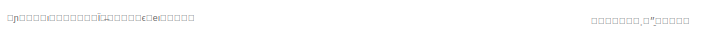
[diagram: LinearModel_Simulink/KalmanStateObserver - part 1/6, top left region]
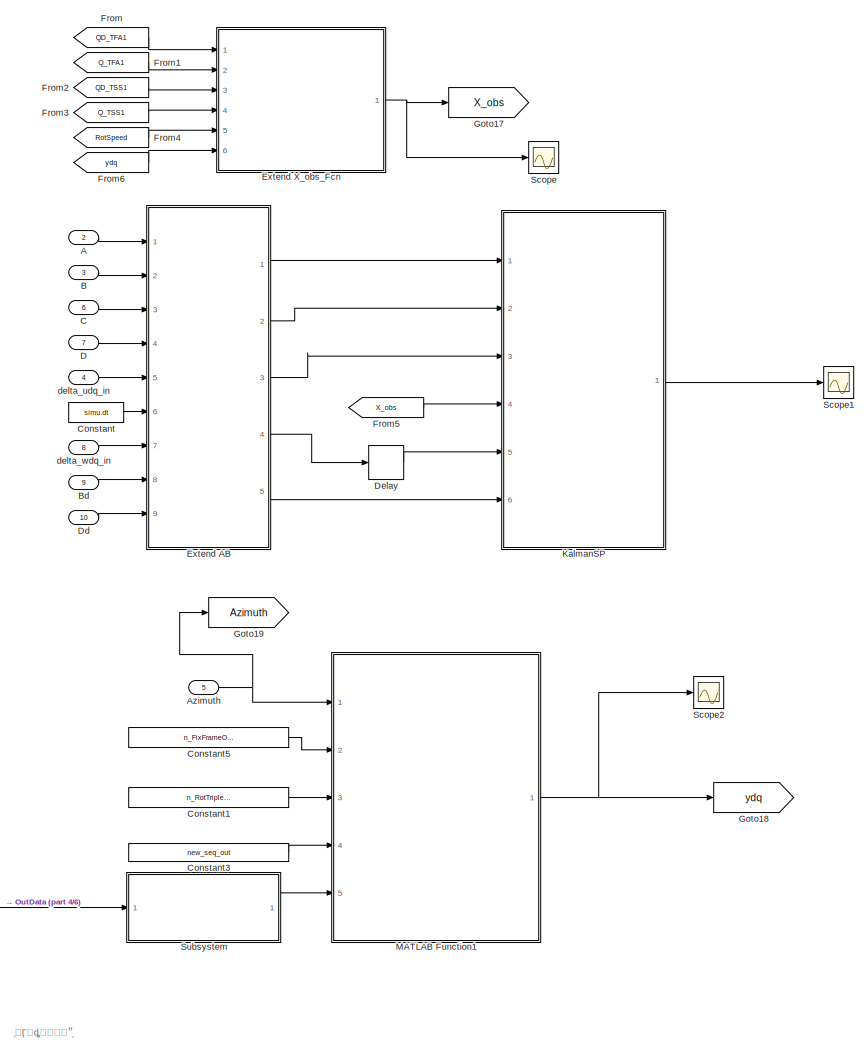
[diagram: LinearModel_Simulink/KalmanStateObserver - part 2/6, top center region]
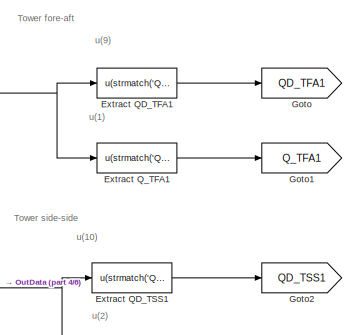
[diagram: LinearModel_Simulink/KalmanStateObserver - part 3/6, top left region]
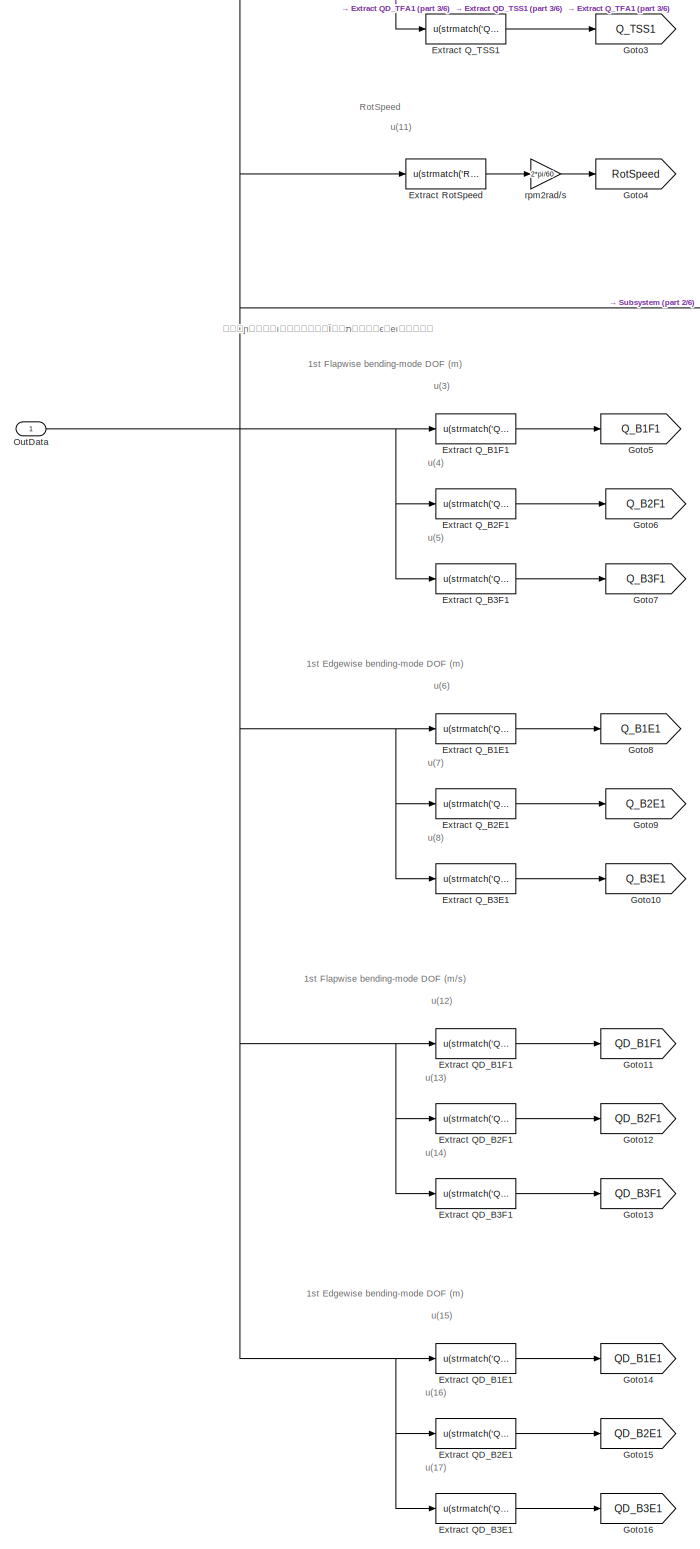
[diagram: LinearModel_Simulink/KalmanStateObserver - part 4/6, middle left region]
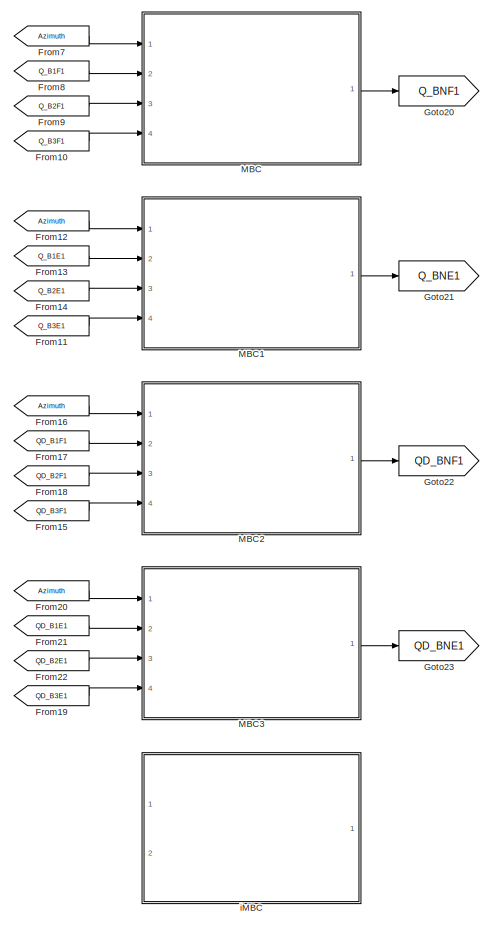
[diagram: LinearModel_Simulink/KalmanStateObserver - part 5/6, central region]
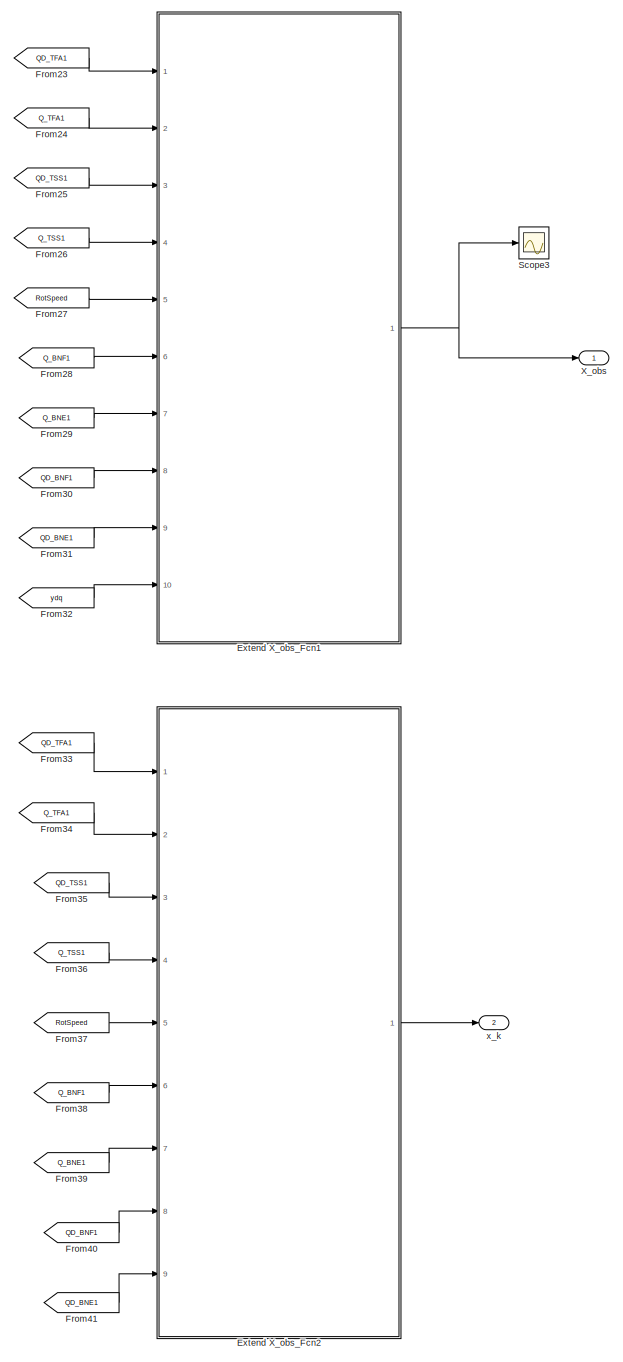
[diagram: LinearModel_Simulink/KalmanStateObserver - part 6/6, bottom right region]
BLOCK [SubSystem] LinearModel_Simulink/KalmanStateObserver
  Ports = [10, 2]
  SID = 2780
BLOCK [Inport] LinearModel_Simulink/KalmanStateObserver/A
  Port = 2
  SID = 2923
BLOCK [Inport] LinearModel_Simulink/KalmanStateObserver/Azimuth
  Port = 5
  SID = 2962
BLOCK [Inport] LinearModel_Simulink/KalmanStateObserver/B
  Port = 3
  SID = 2924
BLOCK [Inport] LinearModel_Simulink/KalmanStateObserver/Bd
  Port = 9
  SID = 3172
BLOCK [Inport] LinearModel_Simulink/KalmanStateObserver/C
  Port = 6
  SID = 2975
BLOCK [Constant] LinearModel_Simulink/KalmanStateObserver/Constant
  SID = 3148
  Value = simu.dt
BLOCK [Constant] LinearModel_Simulink/KalmanStateObserver/Constant1
  SID = 2965
  Value = n_RotTripletOutputs
BLOCK [Constant] LinearModel_Simulink/KalmanStateObserver/Constant3
  SID = 2966
  Value = new_seq_out
BLOCK [Constant] LinearModel_Simulink/KalmanStateObserver/Constant5
  SID = 2967
  Value = n_FixFrameOutputs
BLOCK [Inport] LinearModel_Simulink/KalmanStateObserver/D
  Port = 7
  SID = 2976
BLOCK [Inport] LinearModel_Simulink/KalmanStateObserver/Dd
  Port = 10
  SID = 3173
BLOCK [Delay] LinearModel_Simulink/KalmanStateObserver/Delay
  DelayLength = 1
  InitialCondition = 0
  InputPortMap = u0
  Ports = [1, 1]
  SID = 2935
BLOCK [SubSystem] LinearModel_Simulink/KalmanStateObserver/Extend AB
  ErrorFcn = Stateflow.Translate.translate
  PermitHierarchicalResolution = ExplicitOnly
  Ports = [9, 5]
  SFBlockType = MATLAB Function
  SID = 2972
  TreatAsAtomicUnit = on
BLOCK [Demux] LinearModel_Simulink/KalmanStateObserver/Extend AB/ Demux 
  Outputs = 1
  Ports = [1, 1]
  SID = 2972::26
BLOCK [S-Function] LinearModel_Simulink/KalmanStateObserver/Extend AB/ SFunction 
  EnableBusSupport = on
  FunctionName = sf_sfun
  PortCounts = [9 6]
  Ports = [9, 6]
  SFcnIsStateOwnerBlock = off
  SFunctionDeploymentMode = off
  SID = 2972::25
  Tag = Stateflow S-Function 14
BLOCK [Terminator] LinearModel_Simulink/KalmanStateObserver/Extend AB/ Terminator 
  SID = 2972::27
BLOCK [Inport] LinearModel_Simulink/KalmanStateObserver/Extend AB/A
  SID = 2972::1
BLOCK [Outport] LinearModel_Simulink/KalmanStateObserver/Extend AB/Am
  SID = 2972::5
BLOCK [Inport] LinearModel_Simulink/KalmanStateObserver/Extend AB/B
  Port = 2
  SID = 2972::28
BLOCK [Inport] LinearModel_Simulink/KalmanStateObserver/Extend AB/Bd
  Port = 8
  SID = 2972::38
BLOCK [Outport] LinearModel_Simulink/KalmanStateObserver/Extend AB/Bm
  Port = 2
  SID = 2972::30
BLOCK [Outport] LinearModel_Simulink/KalmanStateObserver/Extend AB/Bmd
  Port = 3
  SID = 2972::40
BLOCK [Inport] LinearModel_Simulink/KalmanStateObserver/Extend AB/C
  Port = 3
  SID = 2972::33
BLOCK [Inport] LinearModel_Simulink/KalmanStateObserver/Extend AB/D
  Port = 4
  SID = 2972::34
BLOCK [Inport] LinearModel_Simulink/KalmanStateObserver/Extend AB/DT
  Port = 6
  SID = 2972::36
BLOCK [Inport] LinearModel_Simulink/KalmanStateObserver/Extend AB/Dd
  Port = 9
  SID = 2972::39
BLOCK [Outport] LinearModel_Simulink/KalmanStateObserver/Extend AB/delta_udq
  Port = 4
  SID = 2972::31
BLOCK [Inport] LinearModel_Simulink/KalmanStateObserver/Extend AB/delta_udq_in
  Port = 5
  SID = 2972::29
BLOCK [Outport] LinearModel_Simulink/KalmanStateObserver/Extend AB/delta_wdq
  Port = 5
  SID = 2972::41
BLOCK [Inport] LinearModel_Simulink/KalmanStateObserver/Extend AB/delta_wdq_in
  Port = 7
  SID = 2972::37
BLOCK [SubSystem] LinearModel_Simulink/KalmanStateObserver/Extend X_obs_Fcn
  ErrorFcn = Stateflow.Translate.translate
  PermitHierarchicalResolution = ExplicitOnly
  Ports = [6, 1]
  SFBlockType = MATLAB Function
  SID = 2925
  TreatAsAtomicUnit = on
BLOCK [Demux] LinearModel_Simulink/KalmanStateObserver/Extend X_obs_Fcn/ Demux 
  Outputs = 1
  Ports = [1, 1]
  SID = 2925::26
BLOCK [S-Function] LinearModel_Simulink/KalmanStateObserver/Extend X_obs_Fcn/ SFunction 
  EnableBusSupport = on
  FunctionName = sf_sfun
  PortCounts = [6 2]
  Ports = [6, 2]
  SFcnIsStateOwnerBlock = off
  SFunctionDeploymentMode = off
  SID = 2925::25
  Tag = Stateflow S-Function 10
BLOCK [Terminator] LinearModel_Simulink/KalmanStateObserver/Extend X_obs_Fcn/ Terminator 
  SID = 2925::27
BLOCK [Inport] LinearModel_Simulink/KalmanStateObserver/Extend X_obs_Fcn/QD_TFA1
  SID = 2925::1
BLOCK [Inport] LinearModel_Simulink/KalmanStateObserver/Extend X_obs_Fcn/QD_TSS1
  Port = 3
  SID = 2925::29
BLOCK [Inport] LinearModel_Simulink/KalmanStateObserver/Extend X_obs_Fcn/Q_TFA1
  Port = 2
  SID = 2925::28
BLOCK [Inport] LinearModel_Simulink/KalmanStateObserver/Extend X_obs_Fcn/Q_TSS1
  Port = 4
  SID = 2925::30
BLOCK [Inport] LinearModel_Simulink/KalmanStateObserver/Extend X_obs_Fcn/RotSpeed
  Port = 5
  SID = 2925::31
BLOCK [Outport] LinearModel_Simulink/KalmanStateObserver/Extend X_obs_Fcn/X_obs
  SID = 2925::5
BLOCK [Inport] LinearModel_Simulink/KalmanStateObserver/Extend X_obs_Fcn/ydq
  Port = 6
  SID = 2925::32
BLOCK [SubSystem] LinearModel_Simulink/KalmanStateObserver/Extend X_obs_Fcn1
  ErrorFcn = Stateflow.Translate.translate
  PermitHierarchicalResolution = ExplicitOnly
  Ports = [10, 1]
  SFBlockType = MATLAB Function
  SID = 3002
  TreatAsAtomicUnit = on
BLOCK [Demux] LinearModel_Simulink/KalmanStateObserver/Extend X_obs_Fcn1/ Demux 
  Outputs = 1
  Ports = [1, 1]
  SID = 3002::26
BLOCK [S-Function] LinearModel_Simulink/KalmanStateObserver/Extend X_obs_Fcn1/ SFunction 
  EnableBusSupport = on
  FunctionName = sf_sfun
  PortCounts = [10 2]
  Ports = [10, 2]
  SFcnIsStateOwnerBlock = off
  SFunctionDeploymentMode = off
  SID = 3002::25
  Tag = Stateflow S-Function 13
BLOCK [Terminator] LinearModel_Simulink/KalmanStateObserver/Extend X_obs_Fcn1/ Terminator 
  SID = 3002::27
BLOCK [Inport] LinearModel_Simulink/KalmanStateObserver/Extend X_obs_Fcn1/QD_BNE1
  Port = 9
  SID = 3002::36
BLOCK [Inport] LinearModel_Simulink/KalmanStateObserver/Extend X_obs_Fcn1/QD_BNF1
  Port = 8
  SID = 3002::35
BLOCK [Inport] LinearModel_Simulink/KalmanStateObserver/Extend X_obs_Fcn1/QD_TFA1
  SID = 3002::1
BLOCK [Inport] LinearModel_Simulink/KalmanStateObserver/Extend X_obs_Fcn1/QD_TSS1
  Port = 3
  SID = 3002::29
BLOCK [Inport] LinearModel_Simulink/KalmanStateObserver/Extend X_obs_Fcn1/Q_BNE1
  Port = 7
  SID = 3002::34
BLOCK [Inport] LinearModel_Simulink/KalmanStateObserver/Extend X_obs_Fcn1/Q_BNF1
  Port = 6
  SID = 3002::33
BLOCK [Inport] LinearModel_Simulink/KalmanStateObserver/Extend X_obs_Fcn1/Q_TFA1
  Port = 2
  SID = 3002::28
BLOCK [Inport] LinearModel_Simulink/KalmanStateObserver/Extend X_obs_Fcn1/Q_TSS1
  Port = 4
  SID = 3002::30
BLOCK [Inport] LinearModel_Simulink/KalmanStateObserver/Extend X_obs_Fcn1/RotSpeed
  Port = 5
  SID = 3002::31
BLOCK [Outport] LinearModel_Simulink/KalmanStateObserver/Extend X_obs_Fcn1/X_obs
  SID = 3002::5
BLOCK [Inport] LinearModel_Simulink/KalmanStateObserver/Extend X_obs_Fcn1/ydq
  Port = 10
  SID = 3002::32
BLOCK [SubSystem] LinearModel_Simulink/KalmanStateObserver/Extend X_obs_Fcn2
  ErrorFcn = Stateflow.Translate.translate
  PermitHierarchicalResolution = ExplicitOnly
  Ports = [9, 1]
  SFBlockType = MATLAB Function
  SID = 3079
  TreatAsAtomicUnit = on
BLOCK [Demux] LinearModel_Simulink/KalmanStateObserver/Extend X_obs_Fcn2/ Demux 
  Outputs = 1
  Ports = [1, 1]
  SID = 3079::26
BLOCK [S-Function] LinearModel_Simulink/KalmanStateObserver/Extend X_obs_Fcn2/ SFunction 
  EnableBusSupport = on
  FunctionName = sf_sfun
  PortCounts = [9 2]
  Ports = [9, 2]
  SFcnIsStateOwnerBlock = off
  SFunctionDeploymentMode = off
  SID = 3079::25
  Tag = Stateflow S-Function 29
BLOCK [Terminator] LinearModel_Simulink/KalmanStateObserver/Extend X_obs_Fcn2/ Terminator 
  SID = 3079::27
BLOCK [Inport] LinearModel_Simulink/KalmanStateObserver/Extend X_obs_Fcn2/QD_BNE1
  Port = 9
  SID = 3079::36
BLOCK [Inport] LinearModel_Simulink/KalmanStateObserver/Extend X_obs_Fcn2/QD_BNF1
  Port = 8
  SID = 3079::35
BLOCK [Inport] LinearModel_Simulink/KalmanStateObserver/Extend X_obs_Fcn2/QD_TFA1
  SID = 3079::1
BLOCK [Inport] LinearModel_Simulink/KalmanStateObserver/Extend X_obs_Fcn2/QD_TSS1
  Port = 3
  SID = 3079::29
BLOCK [Inport] LinearModel_Simulink/KalmanStateObserver/Extend X_obs_Fcn2/Q_BNE1
  Port = 7
  SID = 3079::34
BLOCK [Inport] LinearModel_Simulink/KalmanStateObserver/Extend X_obs_Fcn2/Q_BNF1
  Port = 6
  SID = 3079::33
BLOCK [Inport] LinearModel_Simulink/KalmanStateObserver/Extend X_obs_Fcn2/Q_TFA1
  Port = 2
  SID = 3079::28
BLOCK [Inport] LinearModel_Simulink/KalmanStateObserver/Extend X_obs_Fcn2/Q_TSS1
  Port = 4
  SID = 3079::30
BLOCK [Inport] LinearModel_Simulink/KalmanStateObserver/Extend X_obs_Fcn2/RotSpeed
  Port = 5
  SID = 3079::31
BLOCK [Outport] LinearModel_Simulink/KalmanStateObserver/Extend X_obs_Fcn2/x_k
  SID = 3079::5
BLOCK [Fcn] LinearModel_Simulink/KalmanStateObserver/Extract QD_B1E1
  Expr = u(strmatch('QD_B1E1',OutList))
  SID = 2894
BLOCK [Fcn] LinearModel_Simulink/KalmanStateObserver/Extract QD_B1F1
  Expr = u(strmatch('QD_B1F1',OutList))
  SID = 2884
BLOCK [Fcn] LinearModel_Simulink/KalmanStateObserver/Extract QD_B2E1
  Expr = u(strmatch('QD_B2E1',OutList))
  SID = 2895
BLOCK [Fcn] LinearModel_Simulink/KalmanStateObserver/Extract QD_B2F1
  Expr = u(strmatch('QD_B2F1',OutList))
  SID = 2885
BLOCK [Fcn] LinearModel_Simulink/KalmanStateObserver/Extract QD_B3E1
  Expr = u(strmatch('QD_B3E1',OutList))
  SID = 2896
BLOCK [Fcn] LinearModel_Simulink/KalmanStateObserver/Extract QD_B3F1
  Expr = u(strmatch('QD_B3F1',OutList))
  SID = 2886
BLOCK [Fcn] LinearModel_Simulink/KalmanStateObserver/Extract QD_TFA1
  Expr = u(strmatch('QD_TFA1',OutList))
  SID = 2768
BLOCK [Fcn] LinearModel_Simulink/KalmanStateObserver/Extract QD_TSS1
  Expr = u(strmatch('QD_TSS1',OutList))
  SID = 2805
BLOCK [Fcn] LinearModel_Simulink/KalmanStateObserver/Extract Q_B1E1
  Expr = u(strmatch('Q_B1E1',OutList))
  SID = 2871
BLOCK [Fcn] LinearModel_Simulink/KalmanStateObserver/Extract Q_B1F1
  Expr = u(strmatch('Q_B1F1',OutList))
  SID = 2825
BLOCK [Fcn] LinearModel_Simulink/KalmanStateObserver/Extract Q_B2E1
  Expr = u(strmatch('Q_B2E1',OutList))
  SID = 2872
BLOCK [Fcn] LinearModel_Simulink/KalmanStateObserver/Extract Q_B2F1
  Expr = u(strmatch('Q_B2F1',OutList))
  SID = 2827
BLOCK [Fcn] LinearModel_Simulink/KalmanStateObserver/Extract Q_B3E1
  Expr = u(strmatch('Q_B3E1',OutList))
  SID = 2873
BLOCK [Fcn] LinearModel_Simulink/KalmanStateObserver/Extract Q_B3F1
  Expr = u(strmatch('Q_B3F1',OutList))
  SID = 2846
BLOCK [Fcn] LinearModel_Simulink/KalmanStateObserver/Extract Q_TFA1
  Expr = u(strmatch('Q_TFA1',OutList))
  SID = 2770
BLOCK [Fcn] LinearModel_Simulink/KalmanStateObserver/Extract Q_TSS1
  Expr = u(strmatch('Q_TSS1',OutList))
  SID = 2804
BLOCK [Fcn] LinearModel_Simulink/KalmanStateObserver/Extract RotSpeed
  Expr = u(strmatch('RotSpeed',OutList))
  SID = 2798
BLOCK [From] LinearModel_Simulink/KalmanStateObserver/From
  GotoTag = QD_TFA1
  SID = 2927
BLOCK [From] LinearModel_Simulink/KalmanStateObserver/From1
  GotoTag = Q_TFA1
  SID = 2928
BLOCK [From] LinearModel_Simulink/KalmanStateObserver/From10
  GotoTag = Q_B3F1
  SID = 3012
BLOCK [From] LinearModel_Simulink/KalmanStateObserver/From11
  GotoTag = Q_B3E1
  SID = 3013
BLOCK [From] LinearModel_Simulink/KalmanStateObserver/From12
  GotoTag = Azimuth
  SID = 3014
BLOCK [From] LinearModel_Simulink/KalmanStateObserver/From13
  GotoTag = Q_B1E1
  SID = 3015
BLOCK [From] LinearModel_Simulink/KalmanStateObserver/From14
  GotoTag = Q_B2E1
  SID = 3016
BLOCK [From] LinearModel_Simulink/KalmanStateObserver/From15
  GotoTag = QD_B3F1
  SID = 3018
BLOCK [From] LinearModel_Simulink/KalmanStateObserver/From16
  GotoTag = Azimuth
  SID = 3019
BLOCK [From] LinearModel_Simulink/KalmanStateObserver/From17
  GotoTag = QD_B1F1
  SID = 3020
BLOCK [From] LinearModel_Simulink/KalmanStateObserver/From18
  GotoTag = QD_B2F1
  SID = 3021
BLOCK [From] LinearModel_Simulink/KalmanStateObserver/From19
  GotoTag = QD_B3E1
  SID = 3023
BLOCK [From] LinearModel_Simulink/KalmanStateObserver/From2
  GotoTag = QD_TSS1
  SID = 2929
BLOCK [From] LinearModel_Simulink/KalmanStateObserver/From20
  GotoTag = Azimuth
  SID = 3024
BLOCK [From] LinearModel_Simulink/KalmanStateObserver/From21
  GotoTag = QD_B1E1
  SID = 3025
BLOCK [From] LinearModel_Simulink/KalmanStateObserver/From22
  GotoTag = QD_B2E1
  SID = 3026
BLOCK [From] LinearModel_Simulink/KalmanStateObserver/From23
  GotoTag = QD_TFA1
  SID = 3032
BLOCK [From] LinearModel_Simulink/KalmanStateObserver/From24
  GotoTag = Q_TFA1
  SID = 3033
BLOCK [From] LinearModel_Simulink/KalmanStateObserver/From25
  GotoTag = QD_TSS1
  SID = 3034
BLOCK [From] LinearModel_Simulink/KalmanStateObserver/From26
  GotoTag = Q_TSS1
  SID = 3035
BLOCK [From] LinearModel_Simulink/KalmanStateObserver/From27
  GotoTag = RotSpeed
  SID = 3036
BLOCK [From] LinearModel_Simulink/KalmanStateObserver/From28
  GotoTag = Q_BNF1
  SID = 3037
BLOCK [From] LinearModel_Simulink/KalmanStateObserver/From29
  GotoTag = Q_BNE1
  SID = 3038
BLOCK [From] LinearModel_Simulink/KalmanStateObserver/From3
  GotoTag = Q_TSS1
  SID = 2930
BLOCK [From] LinearModel_Simulink/KalmanStateObserver/From30
  GotoTag = QD_BNF1
  SID = 3039
BLOCK [From] LinearModel_Simulink/KalmanStateObserver/From31
  GotoTag = QD_BNE1
  SID = 3040
BLOCK [From] LinearModel_Simulink/KalmanStateObserver/From32
  GotoTag = ydq
  SID = 3041
BLOCK [From] LinearModel_Simulink/KalmanStateObserver/From33
  GotoTag = QD_TFA1
  SID = 3080
BLOCK [From] LinearModel_Simulink/KalmanStateObserver/From34
  GotoTag = Q_TFA1
  SID = 3081
BLOCK [From] LinearModel_Simulink/KalmanStateObserver/From35
  GotoTag = QD_TSS1
  SID = 3082
BLOCK [From] LinearModel_Simulink/KalmanStateObserver/From36
  GotoTag = Q_TSS1
  SID = 3083
BLOCK [From] LinearModel_Simulink/KalmanStateObserver/From37
  GotoTag = RotSpeed
  SID = 3084
BLOCK [From] LinearModel_Simulink/KalmanStateObserver/From38
  GotoTag = Q_BNF1
  SID = 3085
BLOCK [From] LinearModel_Simulink/KalmanStateObserver/From39
  GotoTag = Q_BNE1
  SID = 3086
BLOCK [From] LinearModel_Simulink/KalmanStateObserver/From4
  GotoTag = RotSpeed
  SID = 2931
BLOCK [From] LinearModel_Simulink/KalmanStateObserver/From40
  GotoTag = QD_BNF1
  SID = 3087
BLOCK [From] LinearModel_Simulink/KalmanStateObserver/From41
  GotoTag = QD_BNE1
  SID = 3088
BLOCK [From] LinearModel_Simulink/KalmanStateObserver/From5
  GotoTag = X_obs
  SID = 2933
BLOCK [From] LinearModel_Simulink/KalmanStateObserver/From6
  GotoTag = ydq
  SID = 3000
BLOCK [From] LinearModel_Simulink/KalmanStateObserver/From7
  GotoTag = Azimuth
  SID = 3007
BLOCK [From] LinearModel_Simulink/KalmanStateObserver/From8
  GotoTag = Q_B1F1
  SID = 3010
BLOCK [From] LinearModel_Simulink/KalmanStateObserver/From9
  GotoTag = Q_B2F1
  SID = 3011
BLOCK [Goto] LinearModel_Simulink/KalmanStateObserver/Goto
  GotoTag = QD_TFA1
  SID = 2904
BLOCK [Goto] LinearModel_Simulink/KalmanStateObserver/Goto1
  GotoTag = Q_TFA1
  SID = 2905
BLOCK [Goto] LinearModel_Simulink/KalmanStateObserver/Goto10
  GotoTag = Q_B3E1
  SID = 2916
BLOCK [Goto] LinearModel_Simulink/KalmanStateObserver/Goto11
  GotoTag = QD_B1F1
  SID = 2917
BLOCK [Goto] LinearModel_Simulink/KalmanStateObserver/Goto12
  GotoTag = QD_B2F1
  SID = 2918
BLOCK [Goto] LinearModel_Simulink/KalmanStateObserver/Goto13
  GotoTag = QD_B3F1
  SID = 2919
BLOCK [Goto] LinearModel_Simulink/KalmanStateObserver/Goto14
  GotoTag = QD_B1E1
  SID = 2920
BLOCK [Goto] LinearModel_Simulink/KalmanStateObserver/Goto15
  GotoTag = QD_B2E1
  SID = 2921
BLOCK [Goto] LinearModel_Simulink/KalmanStateObserver/Goto16
  GotoTag = QD_B3E1
  SID = 2922
BLOCK [Goto] LinearModel_Simulink/KalmanStateObserver/Goto17
  GotoTag = X_obs
  SID = 2932
BLOCK [Goto] LinearModel_Simulink/KalmanStateObserver/Goto18
  GotoTag = ydq
  SID = 2999
BLOCK [Goto] LinearModel_Simulink/KalmanStateObserver/Goto19
  GotoTag = Azimuth
  SID = 3005
BLOCK [Goto] LinearModel_Simulink/KalmanStateObserver/Goto2
  GotoTag = QD_TSS1
  SID = 2906
BLOCK [Goto] LinearModel_Simulink/KalmanStateObserver/Goto20
  GotoTag = Q_BNF1
  SID = 3028
BLOCK [Goto] LinearModel_Simulink/KalmanStateObserver/Goto21
  GotoTag = Q_BNE1
  SID = 3029
BLOCK [Goto] LinearModel_Simulink/KalmanStateObserver/Goto22
  GotoTag = QD_BNF1
  SID = 3030
BLOCK [Goto] LinearModel_Simulink/KalmanStateObserver/Goto23
  GotoTag = QD_BNE1
  SID = 3031
BLOCK [Goto] LinearModel_Simulink/KalmanStateObserver/Goto3
  GotoTag = Q_TSS1
  SID = 2907
BLOCK [Goto] LinearModel_Simulink/KalmanStateObserver/Goto4
  GotoTag = RotSpeed
  SID = 2908
BLOCK [Goto] LinearModel_Simulink/KalmanStateObserver/Goto5
  GotoTag = Q_B1F1
  SID = 2909
BLOCK [Goto] LinearModel_Simulink/KalmanStateObserver/Goto6
  GotoTag = Q_B2F1
  SID = 2912
BLOCK [Goto] LinearModel_Simulink/KalmanStateObserver/Goto7
  GotoTag = Q_B3F1
  SID = 2911
BLOCK [Goto] LinearModel_Simulink/KalmanStateObserver/Goto8
  GotoTag = Q_B1E1
  SID = 2913
BLOCK [Goto] LinearModel_Simulink/KalmanStateObserver/Goto9
  GotoTag = Q_B2E1
  SID = 2914
BLOCK [SubSystem] LinearModel_Simulink/KalmanStateObserver/KalmanSP
  ErrorFcn = Stateflow.Translate.translate
  PermitHierarchicalResolution = ExplicitOnly
  Ports = [6, 1]
  SFBlockType = MATLAB Function
  SID = 2763
  TreatAsAtomicUnit = on
BLOCK [Demux] LinearModel_Simulink/KalmanStateObserver/KalmanSP/ Demux 
  Outputs = 1
  Ports = [1, 1]
  SID = 2763::26
BLOCK [S-Function] LinearModel_Simulink/KalmanStateObserver/KalmanSP/ SFunction 
  EnableBusSupport = on
  FunctionName = sf_sfun
  PortCounts = [6 2]
  Ports = [6, 2]
  SFcnIsStateOwnerBlock = off
  SFunctionDeploymentMode = off
  SID = 2763::25
  Tag = Stateflow S-Function 9
BLOCK [Terminator] LinearModel_Simulink/KalmanStateObserver/KalmanSP/ Terminator 
  SID = 2763::27
BLOCK [Inport] LinearModel_Simulink/KalmanStateObserver/KalmanSP/Am
  SID = 2763::1
BLOCK [Inport] LinearModel_Simulink/KalmanStateObserver/KalmanSP/Bm
  Port = 2
  SID = 2763::28
BLOCK [Inport] LinearModel_Simulink/KalmanStateObserver/KalmanSP/Bmd
  Port = 3
  SID = 2763::32
BLOCK [Inport] LinearModel_Simulink/KalmanStateObserver/KalmanSP/X_obs
  Port = 4
  SID = 2763::29
BLOCK [Outport] LinearModel_Simulink/KalmanStateObserver/KalmanSP/X_pred
  SID = 2763::5
BLOCK [Inport] LinearModel_Simulink/KalmanStateObserver/KalmanSP/delta_udq
  Port = 5
  SID = 2763::30
BLOCK [Inport] LinearModel_Simulink/KalmanStateObserver/KalmanSP/delta_wdq
  Port = 6
  SID = 2763::33
BLOCK [SubSystem] LinearModel_Simulink/KalmanStateObserver/MATLAB Function1
  ErrorFcn = Stateflow.Translate.translate
  PermitHierarchicalResolution = ExplicitOnly
  Ports = [5, 1]
  SFBlockType = MATLAB Function
  SID = 2964
  TreatAsAtomicUnit = on
BLOCK [Demux] LinearModel_Simulink/KalmanStateObserver/MATLAB Function1/ Demux 
  Outputs = 1
  Ports = [1, 1]
  SID = 2964::26
BLOCK [S-Function] LinearModel_Simulink/KalmanStateObserver/MATLAB Function1/ SFunction 
  EnableBusSupport = on
  FunctionName = sf_sfun
  PortCounts = [5 2]
  Ports = [5, 2]
  SFcnIsStateOwnerBlock = off
  SFunctionDeploymentMode = off
  SID = 2964::25
  Tag = Stateflow S-Function 12
BLOCK [Terminator] LinearModel_Simulink/KalmanStateObserver/MATLAB Function1/ Terminator 
  SID = 2964::27
BLOCK [Inport] LinearModel_Simulink/KalmanStateObserver/MATLAB Function1/Azimuth
  SID = 2964::1
BLOCK [Inport] LinearModel_Simulink/KalmanStateObserver/MATLAB Function1/n_FixFrameOutputs
  Port = 2
  SID = 2964::32
BLOCK [Inport] LinearModel_Simulink/KalmanStateObserver/MATLAB Function1/n_RotTripletOutputs
  Port = 3
  SID = 2964::33
BLOCK [Inport] LinearModel_Simulink/KalmanStateObserver/MATLAB Function1/new_seq_out
  Port = 4
  SID = 2964::39
BLOCK [Inport] LinearModel_Simulink/KalmanStateObserver/MATLAB Function1/y
  Port = 5
  SID = 2964::40
BLOCK [Outport] LinearModel_Simulink/KalmanStateObserver/MATLAB Function1/ydq
  SID = 2964::5
BLOCK [SubSystem] LinearModel_Simulink/KalmanStateObserver/MBC
  ErrorFcn = Stateflow.Translate.translate
  PermitHierarchicalResolution = ExplicitOnly
  Ports = [4, 1]
  SFBlockType = MATLAB Function
  SID = 3003
  TreatAsAtomicUnit = on
BLOCK [Demux] LinearModel_Simulink/KalmanStateObserver/MBC/ Demux 
  Outputs = 1
  Ports = [1, 1]
  SID = 3003::26
BLOCK [S-Function] LinearModel_Simulink/KalmanStateObserver/MBC/ SFunction 
  EnableBusSupport = on
  FunctionName = sf_sfun
  PortCounts = [4 2]
  Ports = [4, 2]
  SFcnIsStateOwnerBlock = off
  SFunctionDeploymentMode = off
  SID = 3003::25
  Tag = Stateflow S-Function 15
BLOCK [Terminator] LinearModel_Simulink/KalmanStateObserver/MBC/ Terminator 
  SID = 3003::27
BLOCK [Inport] LinearModel_Simulink/KalmanStateObserver/MBC/Azimuth
  SID = 3003::1
BLOCK [Inport] LinearModel_Simulink/KalmanStateObserver/MBC/x1
  Port = 2
  SID = 3003::32
BLOCK [Inport] LinearModel_Simulink/KalmanStateObserver/MBC/x2
  Port = 3
  SID = 3003::41
BLOCK [Inport] LinearModel_Simulink/KalmanStateObserver/MBC/x3
  Port = 4
  SID = 3003::42
BLOCK [Outport] LinearModel_Simulink/KalmanStateObserver/MBC/xdq
  SID = 3003::5
BLOCK [SubSystem] LinearModel_Simulink/KalmanStateObserver/MBC1
  ErrorFcn = Stateflow.Translate.translate
  PermitHierarchicalResolution = ExplicitOnly
  Ports = [4, 1]
  SFBlockType = MATLAB Function
  SID = 3017
  TreatAsAtomicUnit = on
BLOCK [Demux] LinearModel_Simulink/KalmanStateObserver/MBC1/ Demux 
  Outputs = 1
  Ports = [1, 1]
  SID = 3017::26
BLOCK [S-Function] LinearModel_Simulink/KalmanStateObserver/MBC1/ SFunction 
  EnableBusSupport = on
  FunctionName = sf_sfun
  PortCounts = [4 2]
  Ports = [4, 2]
  SFcnIsStateOwnerBlock = off
  SFunctionDeploymentMode = off
  SID = 3017::25
  Tag = Stateflow S-Function 21
BLOCK [Terminator] LinearModel_Simulink/KalmanStateObserver/MBC1/ Terminator 
  SID = 3017::27
BLOCK [Inport] LinearModel_Simulink/KalmanStateObserver/MBC1/Azimuth
  SID = 3017::1
BLOCK [Inport] LinearModel_Simulink/KalmanStateObserver/MBC1/x1
  Port = 2
  SID = 3017::32
BLOCK [Inport] LinearModel_Simulink/KalmanStateObserver/MBC1/x2
  Port = 3
  SID = 3017::41
BLOCK [Inport] LinearModel_Simulink/KalmanStateObserver/MBC1/x3
  Port = 4
  SID = 3017::42
BLOCK [Outport] LinearModel_Simulink/KalmanStateObserver/MBC1/xdq
  SID = 3017::5
BLOCK [SubSystem] LinearModel_Simulink/KalmanStateObserver/MBC2
  ErrorFcn = Stateflow.Translate.translate
  PermitHierarchicalResolution = ExplicitOnly
  Ports = [4, 1]
  SFBlockType = MATLAB Function
  SID = 3022
  TreatAsAtomicUnit = on
BLOCK [Demux] LinearModel_Simulink/KalmanStateObserver/MBC2/ Demux 
  Outputs = 1
  Ports = [1, 1]
  SID = 3022::26
BLOCK [S-Function] LinearModel_Simulink/KalmanStateObserver/MBC2/ SFunction 
  EnableBusSupport = on
  FunctionName = sf_sfun
  PortCounts = [4 2]
  Ports = [4, 2]
  SFcnIsStateOwnerBlock = off
  SFunctionDeploymentMode = off
  SID = 3022::25
  Tag = Stateflow S-Function 22
BLOCK [Terminator] LinearModel_Simulink/KalmanStateObserver/MBC2/ Terminator 
  SID = 3022::27
BLOCK [Inport] LinearModel_Simulink/KalmanStateObserver/MBC2/Azimuth
  SID = 3022::1
BLOCK [Inport] LinearModel_Simulink/KalmanStateObserver/MBC2/x1
  Port = 2
  SID = 3022::32
BLOCK [Inport] LinearModel_Simulink/KalmanStateObserver/MBC2/x2
  Port = 3
  SID = 3022::41
BLOCK [Inport] LinearModel_Simulink/KalmanStateObserver/MBC2/x3
  Port = 4
  SID = 3022::42
BLOCK [Outport] LinearModel_Simulink/KalmanStateObserver/MBC2/xdq
  SID = 3022::5
BLOCK [SubSystem] LinearModel_Simulink/KalmanStateObserver/MBC3
  ErrorFcn = Stateflow.Translate.translate
  PermitHierarchicalResolution = ExplicitOnly
  Ports = [4, 1]
  SFBlockType = MATLAB Function
  SID = 3027
  TreatAsAtomicUnit = on
BLOCK [Demux] LinearModel_Simulink/KalmanStateObserver/MBC3/ Demux 
  Outputs = 1
  Ports = [1, 1]
  SID = 3027::26
BLOCK [S-Function] LinearModel_Simulink/KalmanStateObserver/MBC3/ SFunction 
  EnableBusSupport = on
  FunctionName = sf_sfun
  PortCounts = [4 2]
  Ports = [4, 2]
  SFcnIsStateOwnerBlock = off
  SFunctionDeploymentMode = off
  SID = 3027::25
  Tag = Stateflow S-Function 23
BLOCK [Terminator] LinearModel_Simulink/KalmanStateObserver/MBC3/ Terminator 
  SID = 3027::27
BLOCK [Inport] LinearModel_Simulink/KalmanStateObserver/MBC3/Azimuth
  SID = 3027::1
BLOCK [Inport] LinearModel_Simulink/KalmanStateObserver/MBC3/x1
  Port = 2
  SID = 3027::32
BLOCK [Inport] LinearModel_Simulink/KalmanStateObserver/MBC3/x2
  Port = 3
  SID = 3027::41
BLOCK [Inport] LinearModel_Simulink/KalmanStateObserver/MBC3/x3
  Port = 4
  SID = 3027::42
BLOCK [Outport] LinearModel_Simulink/KalmanStateObserver/MBC3/xdq
  SID = 3027::5
BLOCK [Inport] LinearModel_Simulink/KalmanStateObserver/OutData
  SID = 2781
BLOCK [Scope] LinearModel_Simulink/KalmanStateObserver/Scope
  Floating = off
  NumInputPorts = 1
  Ports = [1]
  SID = 2979
  ScopeSpecificationString = Simulink.scopes.TimeScopeBlockCfg('CurrentConfiguration', extmgr.ConfigurationSet(extmgr.Configuration('Core','General UI',true),extmgr.Configuration('Core','Source UI',true),extmgr.Configuration('Sources','WiredSimulink',true,'DataLoggingVariableName','ScopeData1'),extmgr.Configuration('Visuals','Time Domain',true,'SerializedDisplays',{struct('MinYLimReal','-1924.51476','MaxYLimReal','7967.35548'...<+1989ch>
BLOCK [Scope] LinearModel_Simulink/KalmanStateObserver/Scope1
  Floating = off
  NumInputPorts = 1
  Ports = [1]
  SID = 2980
  ScopeSpecificationString = Simulink.scopes.TimeScopeBlockCfg('CurrentConfiguration', extmgr.ConfigurationSet(extmgr.Configuration('Core','General UI',true),extmgr.Configuration('Core','Source UI',true),extmgr.Configuration('Sources','WiredSimulink',true,'DataLoggingVariableName','ScopeData2'),extmgr.Configuration('Visuals','Time Domain',true,'SerializedDisplays',{struct('MinYLimReal','-590106.11239','MaxYLimReal','322232.80...<+1912ch>
BLOCK [Scope] LinearModel_Simulink/KalmanStateObserver/Scope2
  Floating = off
  NumInputPorts = 1
  Ports = [1]
  SID = 3001
  ScopeSpecificationString = Simulink.scopes.TimeScopeBlockCfg('CurrentConfiguration', extmgr.ConfigurationSet(extmgr.Configuration('Core','General UI',true),extmgr.Configuration('Core','Source UI',true),extmgr.Configuration('Sources','WiredSimulink',true,'DataLoggingVariableName','ScopeData2'),extmgr.Configuration('Visuals','Time Domain',true,'SerializedDisplays',{struct('MinYLimReal','-2032.50513','MaxYLimReal','7979.35441'...<+1675ch>
BLOCK [Scope] LinearModel_Simulink/KalmanStateObserver/Scope3
  Floating = off
  NumInputPorts = 1
  Ports = [1]
  SID = 3044
  ScopeSpecificationString = Simulink.scopes.TimeScopeBlockCfg('CurrentConfiguration', extmgr.ConfigurationSet(extmgr.Configuration('Core','General UI',true),extmgr.Configuration('Core','Source UI',true),extmgr.Configuration('Sources','WiredSimulink',true,'DataLoggingVariableName','ScopeData2'),extmgr.Configuration('Visuals','Time Domain',true,'SerializedDisplays',{struct('MinYLimReal','-2032.50513','MaxYLimReal','7979.35441'...<+1949ch>
BLOCK [SubSystem] LinearModel_Simulink/KalmanStateObserver/Subsystem
  Ports = [1, 1]
  SID = 2996
BLOCK [Fcn] LinearModel_Simulink/KalmanStateObserver/Subsystem/Extract GenSpeed
  Expr = u(strmatch('GenSpeed',OutList))
  SID = 2990
BLOCK [Fcn] LinearModel_Simulink/KalmanStateObserver/Subsystem/Extract RootMyc1
  Expr = u(strmatch('RootMyc1',OutList))
  SID = 2991
BLOCK [Fcn] LinearModel_Simulink/KalmanStateObserver/Subsystem/Extract RootMyc2
  Expr = u(strmatch('RootMyc2',OutList))
  SID = 2992
BLOCK [Fcn] LinearModel_Simulink/KalmanStateObserver/Subsystem/Extract RootMyc3
  Expr = u(strmatch('RootMyc3',OutList))
  SID = 2993
BLOCK [Fcn] LinearModel_Simulink/KalmanStateObserver/Subsystem/Extract RotSpeed
  Expr = u(strmatch('RotSpeed',OutList))
  SID = 2994
BLOCK [Mux] LinearModel_Simulink/KalmanStateObserver/Subsystem/Mux
  DisplayOption = bar
  Inputs = 5
  Ports = [5, 1]
  SID = 2995
BLOCK [Inport] LinearModel_Simulink/KalmanStateObserver/Subsystem/OutData
  SID = 2997
BLOCK [Outport] LinearModel_Simulink/KalmanStateObserver/Subsystem/y
  SID = 2998
BLOCK [Outport] LinearModel_Simulink/KalmanStateObserver/X_obs
  SID = 3043
BLOCK [Inport] LinearModel_Simulink/KalmanStateObserver/delta_udq_in
  Port = 4
  SID = 2934
BLOCK [Inport] LinearModel_Simulink/KalmanStateObserver/delta_wdq_in
  Port = 8
  SID = 3171
BLOCK [SubSystem] LinearModel_Simulink/KalmanStateObserver/iMBC
  Commented = on
  ErrorFcn = Stateflow.Translate.translate
  PermitHierarchicalResolution = ExplicitOnly
  Ports = [2, 1]
  SFBlockType = MATLAB Function
  SID = 3004
  TreatAsAtomicUnit = on
BLOCK [Demux] LinearModel_Simulink/KalmanStateObserver/iMBC/ Demux 
  Outputs = 1
  Ports = [1, 1]
  SID = 3004::26
BLOCK [S-Function] LinearModel_Simulink/KalmanStateObserver/iMBC/ SFunction 
  EnableBusSupport = on
  FunctionName = sf_sfun
  PortCounts = [2 2]
  Ports = [2, 2]
  SFcnIsStateOwnerBlock = off
  SFunctionDeploymentMode = off
  SID = 3004::25
  Tag = Stateflow S-Function 20
BLOCK [Terminator] LinearModel_Simulink/KalmanStateObserver/iMBC/ Terminator 
  SID = 3004::27
BLOCK [Inport] LinearModel_Simulink/KalmanStateObserver/iMBC/Azimuth
  SID = 3004::1
BLOCK [Outport] LinearModel_Simulink/KalmanStateObserver/iMBC/x
  SID = 3004::5
BLOCK [Inport] LinearModel_Simulink/KalmanStateObserver/iMBC/xdq
  Port = 2
  SID = 3004::32
BLOCK [Gain] LinearModel_Simulink/KalmanStateObserver/rpm2rad//s
  Gain = 2*pi/60
  SID = 2802
BLOCK [Outport] LinearModel_Simulink/KalmanStateObserver/x_k
  Port = 2
  SID = 3146
BLOCK [Demux] LinearModel_Simulink/LR
  Commented = on
  Outputs = 5
  Ports = [1, 5]
  SID = 2233
BLOCK [SubSystem] LinearModel_Simulink/Linear State-Space
  Ports = [8, 2]
  SID = 2234
BLOCK [Inport] LinearModel_Simulink/Linear State-Space/A
  Port = 2
  SID = 2647
BLOCK [Inport] LinearModel_Simulink/Linear State-Space/B
  Port = 3
  SID = 2648
BLOCK [Inport] LinearModel_Simulink/Linear State-Space/Bd
  Port = 7
  SID = 3158
BLOCK [Inport] LinearModel_Simulink/Linear State-Space/C
  Port = 4
  SID = 2649
BLOCK [Inport] LinearModel_Simulink/Linear State-Space/D
  Port = 5
  SID = 2650
BLOCK [Inport] LinearModel_Simulink/Linear State-Space/Dd
  Port = 8
  SID = 3160
BLOCK [From] LinearModel_Simulink/Linear State-Space/From
  GotoTag = B
  SID = 2641
BLOCK [From] LinearModel_Simulink/Linear State-Space/From1
  SID = 2642
BLOCK [From] LinearModel_Simulink/Linear State-Space/From2
  GotoTag = C
  SID = 2644
BLOCK [From] LinearModel_Simulink/Linear State-Space/From3
  GotoTag = D
  SID = 2646
BLOCK [From] LinearModel_Simulink/Linear State-Space/From4
  GotoTag = Bd
  SID = 3165
BLOCK [From] LinearModel_Simulink/Linear State-Space/From5
  GotoTag = Dd
  SID = 3168
BLOCK [Goto] LinearModel_Simulink/Linear State-Space/Goto
  SID = 2637
BLOCK [Goto] LinearModel_Simulink/Linear State-Space/Goto1
  GotoTag = B
  SID = 2638
BLOCK [Goto] LinearModel_Simulink/Linear State-Space/Goto2
  GotoTag = C
  SID = 2639
BLOCK [Goto] LinearModel_Simulink/Linear State-Space/Goto3
  GotoTag = D
  SID = 2640
BLOCK [Goto] LinearModel_Simulink/Linear State-Space/Goto4
  GotoTag = Bd
  SID = 3159
BLOCK [Goto] LinearModel_Simulink/Linear State-Space/Goto5
  GotoTag = Dd
  SID = 3161
BLOCK [Integrator] LinearModel_Simulink/Linear State-Space/Integrator
  Ports = [1, 1]
  SID = 2313
BLOCK [Product] LinearModel_Simulink/Linear State-Space/Product
  Multiplication = Matrix(*)
  Ports = [2, 1]
  SID = 2631
BLOCK [Product] LinearModel_Simulink/Linear State-Space/Product1
  Multiplication = Matrix(*)
  Ports = [2, 1]
  SID = 2633
BLOCK [Product] LinearModel_Simulink/Linear State-Space/Product2
  Multiplication = Matrix(*)
  Ports = [2, 1]
  SID = 2643
BLOCK [Product] LinearModel_Simulink/Linear State-Space/Product3
  Multiplication = Matrix(*)
  Ports = [2, 1]
  SID = 2645
BLOCK [Product] LinearModel_Simulink/Linear State-Space/Product4
  Multiplication = Matrix(*)
  Ports = [2, 1]
  SID = 3167
BLOCK [Product] LinearModel_Simulink/Linear State-Space/Product5
  Multiplication = Matrix(*)
  Ports = [2, 1]
  SID = 3170
BLOCK [Sum] LinearModel_Simulink/Linear State-Space/Sum
  Inputs = |+++
  Ports = [3, 1]
  SID = 2311
BLOCK [Sum] LinearModel_Simulink/Linear State-Space/Sum1
  Inputs = |++
  Ports = [2, 1]
  SID = 2315
BLOCK [Sum] LinearModel_Simulink/Linear State-Space/Sum2
  Inputs = |++
  Ports = [2, 1]
  SID = 3169
BLOCK [Inport] LinearModel_Simulink/Linear State-Space/delta_u_dq
  SID = 2236
BLOCK [Inport] LinearModel_Simulink/Linear State-Space/delta_wdq
  Port = 6
  SID = 3157
BLOCK [Outport] LinearModel_Simulink/Linear State-Space/delta_x_dq
  SID = 2247
BLOCK [Outport] LinearModel_Simulink/Linear State-Space/delta_y_dq
  Port = 2
  SID = 2248
BLOCK [SubSystem] LinearModel_Simulink/LinearWT_Fcn
  Commented = on
  ErrorFcn = Stateflow.Translate.translate
  PermitHierarchicalResolution = ExplicitOnly
  Ports = [8, 1]
  SFBlockType = MATLAB Function
  SID = 3091
  TreatAsAtomicUnit = on
BLOCK [Demux] LinearModel_Simulink/LinearWT_Fcn/ Demux 
  Outputs = 1
  Ports = [1, 1]
  SID = 3091::26
BLOCK [S-Function] LinearModel_Simulink/LinearWT_Fcn/ SFunction 
  EnableBusSupport = on
  FunctionName = sf_sfun
  PortCounts = [8 2]
  Ports = [8, 2]
  SFcnIsStateOwnerBlock = off
  SFunctionDeploymentMode = off
  SID = 3091::25
  Tag = Stateflow S-Function 30
BLOCK [Terminator] LinearModel_Simulink/LinearWT_Fcn/ Terminator 
  SID = 3091::27
BLOCK [Inport] LinearModel_Simulink/LinearWT_Fcn/A
  Port = 4
  SID = 3091::30
BLOCK [Inport] LinearModel_Simulink/LinearWT_Fcn/B
  Port = 5
  SID = 3091::31
BLOCK [Inport] LinearModel_Simulink/LinearWT_Fcn/C
  Port = 6
  SID = 3091::32
BLOCK [Inport] LinearModel_Simulink/LinearWT_Fcn/D
  Port = 7
  SID = 3091::33
BLOCK [Inport] LinearModel_Simulink/LinearWT_Fcn/DT
  Port = 8
  SID = 3091::34
BLOCK [Inport] LinearModel_Simulink/LinearWT_Fcn/delta_xop_dq
  Port = 2
  SID = 3091::28
BLOCK [Outport] LinearModel_Simulink/LinearWT_Fcn/delta_ydq
  SID = 3091::5
BLOCK [Inport] LinearModel_Simulink/LinearWT_Fcn/time
  SID = 3091::1
BLOCK [Inport] LinearModel_Simulink/LinearWT_Fcn/uop_dq
  Port = 3
  SID = 3091::29
BLOCK [SubSystem] LinearModel_Simulink/MATLAB Function
  ErrorFcn = Stateflow.Translate.translate
  PermitHierarchicalResolution = ExplicitOnly
  Ports = [5, 1]
  SFBlockType = MATLAB Function
  SID = 2249
  TreatAsAtomicUnit = on
BLOCK [Demux] LinearModel_Simulink/MATLAB Function/ Demux 
  Outputs = 1
  Ports = [1, 1]
  SID = 2249::26
BLOCK [S-Function] LinearModel_Simulink/MATLAB Function/ SFunction 
  EnableBusSupport = on
  FunctionName = sf_sfun
  PortCounts = [5 2]
  Ports = [5, 2]
  SFcnIsStateOwnerBlock = off
  SFunctionDeploymentMode = off
  SID = 2249::25
  Tag = Stateflow S-Function 8
BLOCK [Terminator] LinearModel_Simulink/MATLAB Function/ Terminator 
  SID = 2249::27
BLOCK [Inport] LinearModel_Simulink/MATLAB Function/Azimuth
  SID = 2249::1
BLOCK [Inport] LinearModel_Simulink/MATLAB Function/n_FixFrameOutputs
  Port = 2
  SID = 2249::32
BLOCK [Inport] LinearModel_Simulink/MATLAB Function/n_RotTripletOutputs
  Port = 3
  SID = 2249::33
BLOCK [Inport] LinearModel_Simulink/MATLAB Function/new_seq_out
  Port = 4
  SID = 2249::39
BLOCK [Outport] LinearModel_Simulink/MATLAB Function/y
  SID = 2249::5
BLOCK [Inport] LinearModel_Simulink/MATLAB Function/y_dq
  Port = 5
  SID = 2249::40
BLOCK [Demux] LinearModel_Simulink/NR
  Commented = on
  Outputs = 5
  Ports = [1, 5]
  SID = 2250
BLOCK [Inport] LinearModel_Simulink/OutData
  SID = 2176
BLOCK [SubSystem] LinearModel_Simulink/PredictFcn
  Commented = on
  ErrorFcn = Stateflow.Translate.translate
  PermitHierarchicalResolution = ExplicitOnly
  Ports = [10, 1]
  SFBlockType = MATLAB Function
  SID = 3046
  TreatAsAtomicUnit = on
BLOCK [Demux] LinearModel_Simulink/PredictFcn/ Demux 
  Outputs = 1
  Ports = [1, 1]
  SID = 3046::26
BLOCK [S-Function] LinearModel_Simulink/PredictFcn/ SFunction 
  EnableBusSupport = on
  FunctionName = sf_sfun
  PortCounts = [10 2]
  Ports = [10, 2]
  SFcnIsStateOwnerBlock = off
  SFunctionDeploymentMode = off
  SID = 3046::25
  Tag = Stateflow S-Function 24
BLOCK [Terminator] LinearModel_Simulink/PredictFcn/ Terminator 
  SID = 3046::27
BLOCK [Inport] LinearModel_Simulink/PredictFcn/A
  Port = 3
  SID = 3046::30
BLOCK [Inport] LinearModel_Simulink/PredictFcn/Azimuth
  Port = 10
  SID = 3046::39
BLOCK [Inport] LinearModel_Simulink/PredictFcn/B
  Port = 4
  SID = 3046::31
BLOCK [Inport] LinearModel_Simulink/PredictFcn/Bd
  Port = 5
  SID = 3046::37
BLOCK [Inport] LinearModel_Simulink/PredictFcn/C
  Port = 6
  SID = 3046::32
BLOCK [Inport] LinearModel_Simulink/PredictFcn/D
  Port = 7
  SID = 3046::33
BLOCK [Inport] LinearModel_Simulink/PredictFcn/DT
  Port = 2
  SID = 3046::28
BLOCK [Inport] LinearModel_Simulink/PredictFcn/Dd
  Port = 8
  SID = 3046::38
BLOCK [Inport] LinearModel_Simulink/PredictFcn/time
  Port = 9
  SID = 3046::36
BLOCK [Inport] LinearModel_Simulink/PredictFcn/x_obs
  SID = 3046::1
BLOCK [Outport] LinearModel_Simulink/PredictFcn/ydq
  SID = 3046::5
BLOCK [Scope] LinearModel_Simulink/Scope
  Floating = off
  NumInputPorts = 1
  Ports = [1]
  SID = 2251
  ScopeSpecificationString = Simulink.scopes.TimeScopeBlockCfg('CurrentConfiguration', extmgr.ConfigurationSet(extmgr.Configuration('Core','General UI',true),extmgr.Configuration('Core','Source UI',true),extmgr.Configuration('Sources','WiredSimulink',true,'DataLoggingVariableName','ScopeData2'),extmgr.Configuration('Visuals','Time Domain',true,'SerializedDisplays',{struct('MinYLimReal','5964.17543','MaxYLimReal','6723.87125',...<+1515ch>
BLOCK [Scope] LinearModel_Simulink/Scope1
  Commented = on
  Floating = off
  NumInputPorts = 2
  Ports = [2]
  SID = 2252
  ScopeSpecificationString = Simulink.scopes.TimeScopeBlockCfg('CurrentConfiguration', extmgr.ConfigurationSet(extmgr.Configuration('Core','General UI',true),extmgr.Configuration('Core','Source UI',true),extmgr.Configuration('Sources','WiredSimulink',true,'DataLoggingVariableName','ScopeData3'),extmgr.Configuration('Visuals','Time Domain',true,'SerializedDisplays',{struct('MinYLimReal','-1399.40724','MaxYLimReal','8150.32468'...<+1689ch>
BLOCK [Scope] LinearModel_Simulink/Scope10
  Commented = on
  Floating = off
  NumInputPorts = 1
  Ports = [1]
  SID = 3077
  ScopeSpecificationString = Simulink.scopes.TimeScopeBlockCfg('CurrentConfiguration', extmgr.ConfigurationSet(extmgr.Configuration('Core','General UI',true),extmgr.Configuration('Core','Source UI',true),extmgr.Configuration('Sources','WiredSimulink',true,'DataLoggingVariableName','ScopeData3'),extmgr.Configuration('Visuals','Time Domain',true,'SerializedDisplays',{struct('MinYLimReal','-4.41061','MaxYLimReal','8.6231','YLabe...<+1601ch>
BLOCK [Scope] LinearModel_Simulink/Scope11
  Commented = on
  Floating = off
  NumInputPorts = 1
  Ports = [1]
  SID = 3136
  ScopeSpecificationString = Simulink.scopes.TimeScopeBlockCfg('CurrentConfiguration', extmgr.ConfigurationSet(extmgr.Configuration('Core','General UI',true),extmgr.Configuration('Core','Source UI',true),extmgr.Configuration('Sources','WiredSimulink',true,'DataLoggingVariableName','ScopeData4'),extmgr.Configuration('Visuals','Time Domain',true,'SerializedDisplays',{struct('MinYLimReal','-213.03797','MaxYLimReal','1917.34177',...<+1548ch>
BLOCK [Scope] LinearModel_Simulink/Scope2
  Commented = on
  Floating = off
  NumInputPorts = 2
  Ports = [2]
  SID = 2253
  ScopeSpecificationString = Simulink.scopes.TimeScopeBlockCfg('CurrentConfiguration', extmgr.ConfigurationSet(extmgr.Configuration('Core','General UI',true),extmgr.Configuration('Core','Source UI',true),extmgr.Configuration('Sources','WiredSimulink',true,'DataLoggingVariableName','ScopeData1'),extmgr.Configuration('Visuals','Time Domain',true,'SerializedDisplays',{struct('MinYLimReal','-1271.61637','MaxYLimReal','8633.56556'...<+1690ch>
BLOCK [Scope] LinearModel_Simulink/Scope3
  Commented = on
  Floating = off
  NumInputPorts = 2
  Ports = [2]
  SID = 2254
  ScopeSpecificationString = Simulink.scopes.TimeScopeBlockCfg('CurrentConfiguration', extmgr.ConfigurationSet(extmgr.Configuration('Core','General UI',true),extmgr.Configuration('Core','Source UI',true),extmgr.Configuration('Sources','WiredSimulink',true,'DataLoggingVariableName','ScopeData2'),extmgr.Configuration('Visuals','Time Domain',true,'SerializedDisplays',{struct('MinYLimReal','-1986.74084','MaxYLimReal','13051.36491...<+1694ch>
BLOCK [Scope] LinearModel_Simulink/Scope4
  Commented = on
  Floating = off
  NumInputPorts = 3
  Ports = [3]
  SID = 2255
  ScopeSpecificationString = Simulink.scopes.TimeScopeBlockCfg('CurrentConfiguration', extmgr.ConfigurationSet(extmgr.Configuration('Core','General UI',true),extmgr.Configuration('Core','Source UI',true),extmgr.Configuration('Sources','WiredSimulink',true,'DataLoggingVariableName','ScopeData3'),extmgr.Configuration('Visuals','Time Domain',true,'SerializedDisplays',{struct('MinYLimReal','-1498.67747','MaxYLimReal','8658.79457'...<+1712ch>
BLOCK [Scope] LinearModel_Simulink/Scope5
  Commented = on
  Floating = off
  NumInputPorts = 3
  Ports = [3]
  SID = 2256
  ScopeSpecificationString = Simulink.scopes.TimeScopeBlockCfg('CurrentConfiguration', extmgr.ConfigurationSet(extmgr.Configuration('Core','General UI',true),extmgr.Configuration('Core','Source UI',true),extmgr.Configuration('Sources','WiredSimulink',true,'DataLoggingVariableName','ScopeData4'),extmgr.Configuration('Visuals','Time Domain',true,'SerializedDisplays',{struct('MinYLimReal','-1498.67747','MaxYLimReal','8658.79457'...<+1709ch>
BLOCK [Scope] LinearModel_Simulink/Scope6
  Floating = off
  NumInputPorts = 1
  Ports = [1]
  SID = 2257
  ScopeSpecificationString = Simulink.scopes.TimeScopeBlockCfg('CurrentConfiguration', extmgr.ConfigurationSet(extmgr.Configuration('Core','General UI',true),extmgr.Configuration('Core','Source UI',true),extmgr.Configuration('Sources','WiredSimulink',true,'DataLoggingVariableName','ScopeData1'),extmgr.Configuration('Visuals','Time Domain',true,'SerializedDisplays',{struct('MinYLimReal','-2718.89327','MaxYLimReal','4792.51918'...<+1600ch>
BLOCK [Scope] LinearModel_Simulink/Scope7
  Commented = on
  Floating = off
  NumInputPorts = 2
  Ports = [2]
  SID = 2329
  ScopeSpecificationString = Simulink.scopes.TimeScopeBlockCfg('CurrentConfiguration', extmgr.ConfigurationSet(extmgr.Configuration('Core','General UI',true),extmgr.Configuration('Core','Source UI',true),extmgr.Configuration('Sources','WiredSimulink',true,'DataLoggingVariableName','ScopeData2'),extmgr.Configuration('Visuals','Time Domain',true,'SerializedDisplays',{struct('MinYLimReal','1119.3631','MaxYLimReal','1294.11464','...<+1698ch>
BLOCK [Scope] LinearModel_Simulink/Scope8
  Commented = on
  Floating = off
  NumInputPorts = 2
  Ports = [2]
  SID = 2332
  ScopeSpecificationString = Simulink.scopes.TimeScopeBlockCfg('CurrentConfiguration', extmgr.ConfigurationSet(extmgr.Configuration('Core','General UI',true),extmgr.Configuration('Core','Source UI',true),extmgr.Configuration('Sources','WiredSimulink',true,'DataLoggingVariableName','ScopeData3'),extmgr.Configuration('Visuals','Time Domain',true,'SerializedDisplays',{struct('MinYLimReal','11.67123','MaxYLimReal','12.15873','YLa...<+1673ch>
BLOCK [Scope] LinearModel_Simulink/Scope9
  Commented = on
  Floating = off
  NumInputPorts = 1
  Ports = [1]
  SID = 3056
  ScopeSpecificationString = Simulink.scopes.TimeScopeBlockCfg('CurrentConfiguration', extmgr.ConfigurationSet(extmgr.Configuration('Core','General UI',true),extmgr.Configuration('Core','Source UI',true),extmgr.Configuration('Sources','WiredSimulink',true,'DataLoggingVariableName','ScopeData1'),extmgr.Configuration('Visuals','Time Domain',true,'SerializedDisplays',{struct('MinYLimReal','5992.0516','MaxYLimReal','6563.73351','...<+1522ch>
BLOCK [SubSystem] LinearModel_Simulink/Subsystem
  Commented = on
  Ports = [2, 1]
  SID = 3067
BLOCK [Inport] LinearModel_Simulink/Subsystem/Azimuth
  SID = 3068
BLOCK [Constant] LinearModel_Simulink/Subsystem/Constant1
  SID = 3072
  Value = new_seq_states
BLOCK [Constant] LinearModel_Simulink/Subsystem/Constant7
  SID = 3062
  Value = n_FixFrameStates2
BLOCK [Constant] LinearModel_Simulink/Subsystem/Constant8
  SID = 3063
  Value = n_RotTripletStates2
BLOCK [SubSystem] LinearModel_Simulink/Subsystem/MATLAB Function1
  ErrorFcn = Stateflow.Translate.translate
  PermitHierarchicalResolution = ExplicitOnly
  Ports = [5, 1]
  SFBlockType = MATLAB Function
  SID = 3064
  TreatAsAtomicUnit = on
BLOCK [Demux] LinearModel_Simulink/Subsystem/MATLAB Function1/ Demux 
  Outputs = 1
  Ports = [1, 1]
  SID = 3064::26
BLOCK [S-Function] LinearModel_Simulink/Subsystem/MATLAB Function1/ SFunction 
  EnableBusSupport = on
  FunctionName = sf_sfun
  PortCounts = [5 2]
  Ports = [5, 2]
  SFcnIsStateOwnerBlock = off
  SFunctionDeploymentMode = off
  SID = 3064::25
  Tag = Stateflow S-Function 28
BLOCK [Terminator] LinearModel_Simulink/Subsystem/MATLAB Function1/ Terminator 
  SID = 3064::27
BLOCK [Inport] LinearModel_Simulink/Subsystem/MATLAB Function1/Azimuth
  SID = 3064::1
BLOCK [Inport] LinearModel_Simulink/Subsystem/MATLAB Function1/n_FixFrameInputs
  Port = 2
  SID = 3064::30
BLOCK [Inport] LinearModel_Simulink/Subsystem/MATLAB Function1/n_RotTripletInputs
  Port = 3
  SID = 3064::31
BLOCK [Inport] LinearModel_Simulink/Subsystem/MATLAB Function1/new_seq_inp
  Port = 5
  SID = 3064::37
BLOCK [Inport] LinearModel_Simulink/Subsystem/MATLAB Function1/xop
  Port = 4
  SID = 3064::36
BLOCK [Outport] LinearModel_Simulink/Subsystem/MATLAB Function1/xop_dq
  SID = 3064::38
BLOCK [Inport] LinearModel_Simulink/Subsystem/xop
  Port = 2
  SID = 3069
BLOCK [Outport] LinearModel_Simulink/Subsystem/xop_dq
  SID = 3071
BLOCK [SubSystem] LinearModel_Simulink/Subsystem1
  Commented = on
  Ports = [2, 1]
  SID = 3130
BLOCK [Inport] LinearModel_Simulink/Subsystem1/Azimuth
  SID = 3132
BLOCK [Constant] LinearModel_Simulink/Subsystem1/Constant5
  SID = 3119
  Value = n_RotTripletOutputs
BLOCK [Constant] LinearModel_Simulink/Subsystem1/Constant6
  SID = 3120
  Value = new_seq_out
BLOCK [Constant] LinearModel_Simulink/Subsystem1/Constant7
  SID = 3121
  Value = n_FixFrameOutputs
BLOCK [SubSystem] LinearModel_Simulink/Subsystem1/MATLAB Function1
  ErrorFcn = Stateflow.Translate.translate
  PermitHierarchicalResolution = ExplicitOnly
  Ports = [5, 1]
  SFBlockType = MATLAB Function
  SID = 3125
  TreatAsAtomicUnit = on
BLOCK [Demux] LinearModel_Simulink/Subsystem1/MATLAB Function1/ Demux 
  Outputs = 1
  Ports = [1, 1]
  SID = 3125::26
BLOCK [S-Function] LinearModel_Simulink/Subsystem1/MATLAB Function1/ SFunction 
  EnableBusSupport = on
  FunctionName = sf_sfun
  PortCounts = [5 2]
  Ports = [5, 2]
  SFcnIsStateOwnerBlock = off
  SFunctionDeploymentMode = off
  SID = 3125::25
  Tag = Stateflow S-Function 32
BLOCK [Terminator] LinearModel_Simulink/Subsystem1/MATLAB Function1/ Terminator 
  SID = 3125::27
BLOCK [Inport] LinearModel_Simulink/Subsystem1/MATLAB Function1/Azimuth
  SID = 3125::1
BLOCK [Inport] LinearModel_Simulink/Subsystem1/MATLAB Function1/n_FixFrameOutputs
  Port = 2
  SID = 3125::32
BLOCK [Inport] LinearModel_Simulink/Subsystem1/MATLAB Function1/n_RotTripletOutputs
  Port = 3
  SID = 3125::33
BLOCK [Inport] LinearModel_Simulink/Subsystem1/MATLAB Function1/new_seq_out
  Port = 4
  SID = 3125::39
BLOCK [Outport] LinearModel_Simulink/Subsystem1/MATLAB Function1/y
  SID = 3125::5
BLOCK [Inport] LinearModel_Simulink/Subsystem1/MATLAB Function1/y_dq
  Port = 5
  SID = 3125::40
BLOCK [Outport] LinearModel_Simulink/Subsystem1/delta_y
  SID = 3131
BLOCK [Inport] LinearModel_Simulink/Subsystem1/delta_y_dq
  Port = 2
  SID = 3133
BLOCK [SubSystem] LinearModel_Simulink/Subsystem2
  Commented = on
  Ports = [2, 1]
  SID = 3138
BLOCK [Inport] LinearModel_Simulink/Subsystem2/Azimuth
  SID = 3139
BLOCK [Constant] LinearModel_Simulink/Subsystem2/Constant5
  SID = 3141
  Value = n_RotTripletOutputs
BLOCK [Constant] LinearModel_Simulink/Subsystem2/Constant6
  SID = 3142
  Value = new_seq_out
BLOCK [Constant] LinearModel_Simulink/Subsystem2/Constant7
  SID = 3143
  Value = n_FixFrameOutputs
BLOCK [SubSystem] LinearModel_Simulink/Subsystem2/MATLAB Function1
  ErrorFcn = Stateflow.Translate.translate
  PermitHierarchicalResolution = ExplicitOnly
  Ports = [5, 1]
  SFBlockType = MATLAB Function
  SID = 3144
  TreatAsAtomicUnit = on
BLOCK [Demux] LinearModel_Simulink/Subsystem2/MATLAB Function1/ Demux 
  Outputs = 1
  Ports = [1, 1]
  SID = 3144::26
BLOCK [S-Function] LinearModel_Simulink/Subsystem2/MATLAB Function1/ SFunction 
  EnableBusSupport = on
  FunctionName = sf_sfun
  PortCounts = [5 2]
  Ports = [5, 2]
  SFcnIsStateOwnerBlock = off
  SFunctionDeploymentMode = off
  SID = 3144::25
  Tag = Stateflow S-Function 37
BLOCK [Terminator] LinearModel_Simulink/Subsystem2/MATLAB Function1/ Terminator 
  SID = 3144::27
BLOCK [Inport] LinearModel_Simulink/Subsystem2/MATLAB Function1/Azimuth
  SID = 3144::1
BLOCK [Inport] LinearModel_Simulink/Subsystem2/MATLAB Function1/n_FixFrameOutputs
  Port = 2
  SID = 3144::32
BLOCK [Inport] LinearModel_Simulink/Subsystem2/MATLAB Function1/n_RotTripletOutputs
  Port = 3
  SID = 3144::33
BLOCK [Inport] LinearModel_Simulink/Subsystem2/MATLAB Function1/new_seq_out
  Port = 4
  SID = 3144::39
BLOCK [Outport] LinearModel_Simulink/Subsystem2/MATLAB Function1/y
  SID = 3144::5
BLOCK [Inport] LinearModel_Simulink/Subsystem2/MATLAB Function1/y_dq
  Port = 5
  SID = 3144::40
BLOCK [Outport] LinearModel_Simulink/Subsystem2/y
  SID = 3145
BLOCK [Inport] LinearModel_Simulink/Subsystem2/y_dq
  Port = 2
  SID = 3140
BLOCK [Sum] LinearModel_Simulink/Sum1
  Commented = on
  Inputs = |-+
  Ports = [2, 1]
  SID = 3076
BLOCK [Sum] LinearModel_Simulink/Sum2
  Inputs = |++
  Ports = [2, 1]
  SID = 2260
BLOCK [Sum] LinearModel_Simulink/Sum3
  Commented = on
  Inputs = |++
  Ports = [2, 1]
  SID = 3126
BLOCK [SubSystem] LinearModel_Simulink/Switch op under Azimuth
  Ports = [4, 2]
  SID = 2261
BLOCK [Inport] LinearModel_Simulink/Switch op under Azimuth/Azimuth
  SID = 2262
BLOCK [Outport] LinearModel_Simulink/Switch op under Azimuth/Azimuth_out
  Port = 2
  SID = 2278
BLOCK [Integrator] LinearModel_Simulink/Switch op under Azimuth/Integrator
  Ports = [1, 1]
  SID = 2267
BLOCK [Scope] LinearModel_Simulink/Switch op under Azimuth/Scope
  Floating = off
  NumInputPorts = 1
  Ports = [1]
  SID = 2269
  ScopeSpecificationString = Simulink.scopes.TimeScopeBlockCfg('CurrentConfiguration', extmgr.ConfigurationSet(extmgr.Configuration('Core','General UI',true),extmgr.Configuration('Core','Source UI',true),extmgr.Configuration('Sources','WiredSimulink',true,'DataLoggingVariableName','ScopeData1'),extmgr.Configuration('Visuals','Time Domain',true,'SerializedDisplays',{struct('MinYLimReal','0.2671','MaxYLimReal','2.2671','YLabelR...<+1408ch>
BLOCK [Fcn] LinearModel_Simulink/Switch op under Azimuth/Select delta_wg
  Expr = u(11)
  SID = 2321
BLOCK [Fcn] LinearModel_Simulink/Switch op under Azimuth/Select wg
  Expr = u(11)
  SID = 2320
BLOCK [Sum] LinearModel_Simulink/Switch op under Azimuth/Sum2
  Inputs = |++
  Ports = [2, 1]
  SID = 2271
BLOCK [SubSystem] LinearModel_Simulink/Switch op under Azimuth/Switch op under Azimuth
  ErrorFcn = Stateflow.Translate.translate
  PermitHierarchicalResolution = ExplicitOnly
  Ports = [3, 1]
  SFBlockType = MATLAB Function
  SID = 2272
  TreatAsAtomicUnit = on
BLOCK [Demux] LinearModel_Simulink/Switch op under Azimuth/Switch op under Azimuth/ Demux 
  Outputs = 1
  Ports = [1, 1]
  SID = 2272::26
BLOCK [S-Function] LinearModel_Simulink/Switch op under Azimuth/Switch op under Azimuth/ SFunction 
  EnableBusSupport = on
  FunctionName = sf_sfun
  PortCounts = [3 2]
  Ports = [3, 2]
  SFcnIsStateOwnerBlock = off
  SFunctionDeploymentMode = off
  SID = 2272::25
  Tag = Stateflow S-Function 16
BLOCK [Terminator] LinearModel_Simulink/Switch op under Azimuth/Switch op under Azimuth/ Terminator 
  SID = 2272::27
BLOCK [Inport] LinearModel_Simulink/Switch op under Azimuth/Switch op under Azimuth/Azimuth
  SID = 2272::1
BLOCK [Inport] LinearModel_Simulink/Switch op under Azimuth/Switch op under Azimuth/Azimuth_list
  Port = 2
  SID = 2272::29
BLOCK [Outport] LinearModel_Simulink/Switch op under Azimuth/Switch op under Azimuth/yop
  SID = 2272::31
BLOCK [Inport] LinearModel_Simulink/Switch op under Azimuth/Switch op under Azimuth/yop_36
  Port = 3
  SID = 2272::30
BLOCK [Constant] LinearModel_Simulink/Switch op under Azimuth/[deg]
  SID = 2273
  Value = Azimuth_list
BLOCK [Inport] LinearModel_Simulink/Switch op under Azimuth/delta_xdq
  Port = 2
  SID = 2263
BLOCK [Fcn] LinearModel_Simulink/Switch op under Azimuth/mod2pi
  Expr = rem(u, 2*pi)
  SID = 2274
BLOCK [Gain] LinearModel_Simulink/Switch op under Azimuth/rad2deg
  Gain = 1/pi*180
  SID = 2275
BLOCK [Inport] LinearModel_Simulink/Switch op under Azimuth/xop
  Port = 4
  SID = 2659
BLOCK [Outport] LinearModel_Simulink/Switch op under Azimuth/yop
  SID = 2276
BLOCK [Inport] LinearModel_Simulink/Switch op under Azimuth/yop_list
  Port = 3
  SID = 2658
BLOCK [SubSystem] LinearModel_Simulink/SwitchOP
  Ports = [1, 10]
  SID = 2651
BLOCK [Outport] LinearModel_Simulink/SwitchOP/A
  SID = 2652
BLOCK [Outport] LinearModel_Simulink/SwitchOP/B
  Port = 2
  SID = 2653
BLOCK [Outport] LinearModel_Simulink/SwitchOP/Bd
  Port = 8
  SID = 3149
BLOCK [Outport] LinearModel_Simulink/SwitchOP/C
  Port = 3
  SID = 2654
BLOCK [Outport] LinearModel_Simulink/SwitchOP/D
  Port = 4
  SID = 2655
BLOCK [Outport] LinearModel_Simulink/SwitchOP/Dd
  Port = 9
  SID = 3150
BLOCK [SubSystem] LinearModel_Simulink/SwitchOP/MATLAB Function
  ErrorFcn = Stateflow.Translate.translate
  PermitHierarchicalResolution = ExplicitOnly
  Ports = [1, 10]
  SFBlockType = MATLAB Function
  SID = 2709
  TreatAsAtomicUnit = on
BLOCK [Demux] LinearModel_Simulink/SwitchOP/MATLAB Function/ Demux 
  Outputs = 1
  Ports = [1, 1]
  SID = 2709::26
BLOCK [S-Function] LinearModel_Simulink/SwitchOP/MATLAB Function/ SFunction 
  EnableBusSupport = on
  FunctionName = sf_sfun
  Parameters = A_total,B_total,Bd_total,C_total,D_total,Dd_total,uop_total,windspeed_list,wop_total,xop_total,yop_List_total
  PortCounts = [1 11]
  Ports = [1, 11]
  SFcnIsStateOwnerBlock = off
  SFunctionDeploymentMode = off
  SID = 2709::25
  Tag = Stateflow S-Function 3
BLOCK [Terminator] LinearModel_Simulink/SwitchOP/MATLAB Function/ Terminator 
  SID = 2709::27
BLOCK [Outport] LinearModel_Simulink/SwitchOP/MATLAB Function/A
  SID = 2709::5
BLOCK [Outport] LinearModel_Simulink/SwitchOP/MATLAB Function/B
  Port = 2
  SID = 2709::36
BLOCK [Outport] LinearModel_Simulink/SwitchOP/MATLAB Function/Bd
  Port = 5
  SID = 2709::45
BLOCK [Outport] LinearModel_Simulink/SwitchOP/MATLAB Function/C
  Port = 3
  SID = 2709::37
BLOCK [Outport] LinearModel_Simulink/SwitchOP/MATLAB Function/D
  Port = 4
  SID = 2709::38
BLOCK [Outport] LinearModel_Simulink/SwitchOP/MATLAB Function/Dd
  Port = 6
  SID = 2709::46
BLOCK [Outport] LinearModel_Simulink/SwitchOP/MATLAB Function/uop
  Port = 9
  SID = 2709::41
BLOCK [Inport] LinearModel_Simulink/SwitchOP/MATLAB Function/windspeed
  SID = 2709::1
BLOCK [Outport] LinearModel_Simulink/SwitchOP/MATLAB Function/wop
  Port = 10
  SID = 2709::47
BLOCK [Outport] LinearModel_Simulink/SwitchOP/MATLAB Function/xop
  Port = 8
  SID = 2709::40
BLOCK [Outport] LinearModel_Simulink/SwitchOP/MATLAB Function/yop_list
  Port = 7
  SID = 2709::39
BLOCK [Inport] LinearModel_Simulink/SwitchOP/WindSpeed
  SID = 2657
BLOCK [Outport] LinearModel_Simulink/SwitchOP/uop
  Port = 7
  SID = 2663
BLOCK [Outport] LinearModel_Simulink/SwitchOP/wop
  Port = 10
  SID = 3151
BLOCK [Outport] LinearModel_Simulink/SwitchOP/xop
  Port = 6
  SID = 2662
BLOCK [Outport] LinearModel_Simulink/SwitchOP/yop_list
  Port = 5
  SID = 2661
BLOCK [SubSystem] LinearModel_Simulink/Transverseu
  Ports = [3, 1]
  SID = 2279
BLOCK [Inport] LinearModel_Simulink/Transverseu/Azimuth
  SID = 2280
BLOCK [Constant] LinearModel_Simulink/Transverseu/Constant7
  SID = 2288
  Value = n_FixFrameInputs
BLOCK [Constant] LinearModel_Simulink/Transverseu/Constant8
  SID = 2289
  Value = n_RotTripletInputs
BLOCK [SubSystem] LinearModel_Simulink/Transverseu/MATLAB Function
  ErrorFcn = Stateflow.Translate.translate
  PermitHierarchicalResolution = ExplicitOnly
  Ports = [5, 1]
  SFBlockType = MATLAB Function
  SID = 2291
  TreatAsAtomicUnit = on
BLOCK [Demux] LinearModel_Simulink/Transverseu/MATLAB Function/ Demux 
  Outputs = 1
  Ports = [1, 1]
  SID = 2291::26
BLOCK [S-Function] LinearModel_Simulink/Transverseu/MATLAB Function/ SFunction 
  EnableBusSupport = on
  FunctionName = sf_sfun
  PortCounts = [5 2]
  Ports = [5, 2]
  SFcnIsStateOwnerBlock = off
  SFunctionDeploymentMode = off
  SID = 2291::25
  Tag = Stateflow S-Function 18
BLOCK [Terminator] LinearModel_Simulink/Transverseu/MATLAB Function/ Terminator 
  SID = 2291::27
BLOCK [Inport] LinearModel_Simulink/Transverseu/MATLAB Function/Azimuth
  SID = 2291::1
BLOCK [Outport] LinearModel_Simulink/Transverseu/MATLAB Function/delat_u_dq
  SID = 2291::38
BLOCK [Inport] LinearModel_Simulink/Transverseu/MATLAB Function/delta_u
  Port = 4
  SID = 2291::36
BLOCK [Inport] LinearModel_Simulink/Transverseu/MATLAB Function/n_FixFrameInputs
  Port = 2
  SID = 2291::30
BLOCK [Inport] LinearModel_Simulink/Transverseu/MATLAB Function/n_RotTripletInputs
  Port = 3
  SID = 2291::31
BLOCK [Inport] LinearModel_Simulink/Transverseu/MATLAB Function/new_seq_inp
  Port = 5
  SID = 2291::37
BLOCK [Inport] LinearModel_Simulink/Transverseu/delta_u
  Port = 2
  SID = 2283
BLOCK [Outport] LinearModel_Simulink/Transverseu/delta_u_dq
  SID = 2293
BLOCK [Inport] LinearModel_Simulink/Transverseu/new_seq_inp
  Port = 3
  SID = 2284
BLOCK [SubSystem] LinearModel_Simulink/uop2uop_dq
  Commented = on
  Ports = [2, 1]
  SID = 3101
BLOCK [Inport] LinearModel_Simulink/uop2uop_dq/Azimuth
  SID = 3102
BLOCK [Constant] LinearModel_Simulink/uop2uop_dq/Constant1
  SID = 3110
  Value = new_seq_inp
BLOCK [Constant] LinearModel_Simulink/uop2uop_dq/Constant7
  SID = 3097
  Value = n_FixFrameInputs
BLOCK [Constant] LinearModel_Simulink/uop2uop_dq/Constant8
  SID = 3098
  Value = n_RotTripletInputs
BLOCK [SubSystem] LinearModel_Simulink/uop2uop_dq/MATLAB Function1
  ErrorFcn = Stateflow.Translate.translate
  PermitHierarchicalResolution = ExplicitOnly
  Ports = [5, 1]
  SFBlockType = MATLAB Function
  SID = 3099
  TreatAsAtomicUnit = on
BLOCK [Demux] LinearModel_Simulink/uop2uop_dq/MATLAB Function1/ Demux 
  Outputs = 1
  Ports = [1, 1]
  SID = 3099::26
BLOCK [S-Function] LinearModel_Simulink/uop2uop_dq/MATLAB Function1/ SFunction 
  EnableBusSupport = on
  FunctionName = sf_sfun
  PortCounts = [5 2]
  Ports = [5, 2]
  SFcnIsStateOwnerBlock = off
  SFunctionDeploymentMode = off
  SID = 3099::25
  Tag = Stateflow S-Function 31
BLOCK [Terminator] LinearModel_Simulink/uop2uop_dq/MATLAB Function1/ Terminator 
  SID = 3099::27
BLOCK [Inport] LinearModel_Simulink/uop2uop_dq/MATLAB Function1/Azimuth
  SID = 3099::1
BLOCK [Inport] LinearModel_Simulink/uop2uop_dq/MATLAB Function1/n_FixFrameInputs
  Port = 2
  SID = 3099::30
BLOCK [Inport] LinearModel_Simulink/uop2uop_dq/MATLAB Function1/n_RotTripletInputs
  Port = 3
  SID = 3099::31
BLOCK [Inport] LinearModel_Simulink/uop2uop_dq/MATLAB Function1/new_seq_inp
  Port = 5
  SID = 3099::37
BLOCK [Inport] LinearModel_Simulink/uop2uop_dq/MATLAB Function1/u
  Port = 4
  SID = 3099::36
BLOCK [Outport] LinearModel_Simulink/uop2uop_dq/MATLAB Function1/u_dq
  SID = 3099::38
BLOCK [Inport] LinearModel_Simulink/uop2uop_dq/uop
  Port = 2
  SID = 3103
BLOCK [Outport] LinearModel_Simulink/uop2uop_dq/uop_dq
  SID = 3105
BLOCK [Outport] LinearModel_Simulink/y_LR_PreFcn
  Port = 2
  SID = 3135
BLOCK [Outport] LinearModel_Simulink/y_LR_StateSpace
  SID = 2305
BLOCK [SubSystem] LinearModel_Simulink/y_NonLinear
  Ports = [1, 1]
  SID = 2295
BLOCK [Fcn] LinearModel_Simulink/y_NonLinear/Extract GenSpeed
  Expr = u(strmatch('GenSpeed',OutList))
  SID = 2297
BLOCK [Fcn] LinearModel_Simulink/y_NonLinear/Extract RootMyc1
  Expr = u(strmatch('RootMyc1',OutList))
  SID = 2298
BLOCK [Fcn] LinearModel_Simulink/y_NonLinear/Extract RootMyc2
  Expr = u(strmatch('RootMyc2',OutList))
  SID = 2299
BLOCK [Fcn] LinearModel_Simulink/y_NonLinear/Extract RootMyc3
  Expr = u(strmatch('RootMyc3',OutList))
  SID = 2300
BLOCK [Fcn] LinearModel_Simulink/y_NonLinear/Extract RotSpeed
  Expr = u(strmatch('RotSpeed',OutList))
  SID = 2301
BLOCK [Mux] LinearModel_Simulink/y_NonLinear/Mux
  DisplayOption = bar
  Inputs = 5
  Ports = [5, 1]
  SID = 2302
BLOCK [Inport] LinearModel_Simulink/y_NonLinear/OutData
  SID = 2296
BLOCK [Outport] LinearModel_Simulink/y_NonLinear/y_NR
  SID = 2303
BLOCK [SubSystem] MPC
  Ports = [3, 1]
  SID = 3204
  TreatAsAtomicUnit = on
BLOCK [Inport] MPC/BldPitch
  Port = 2
  SID = 3206
BLOCK [Constant] MPC/Constant1
  SID = 3648
  Value = simu.dt
BLOCK [Constant] MPC/Constant2
  SID = 3212
  Value = new_seq_inp
BLOCK [Constant] MPC/Constant5
  SID = 3215
  Value = simu.dt
BLOCK [SubSystem] MPC/Diff of OP
  ErrorFcn = Stateflow.Translate.translate
  PermitHierarchicalResolution = ExplicitOnly
  Ports = [4, 2]
  SFBlockType = MATLAB Function
  SID = 3220
  TreatAsAtomicUnit = on
BLOCK [Demux] MPC/Diff of OP/ Demux 
  Outputs = 1
  Ports = [1, 1]
  SID = 3220::26
BLOCK [S-Function] MPC/Diff of OP/ SFunction 
  EnableBusSupport = on
  FunctionName = sf_sfun
  PortCounts = [4 3]
  Ports = [4, 3]
  SFcnIsStateOwnerBlock = off
  SFunctionDeploymentMode = off
  SID = 3220::25
  Tag = Stateflow S-Function 39
BLOCK [Terminator] MPC/Diff of OP/ Terminator 
  SID = 3220::27
BLOCK [Inport] MPC/Diff of OP/Avg_u
  SID = 3220::1
BLOCK [Inport] MPC/Diff of OP/Avg_w
  Port = 2
  SID = 3220::30
BLOCK [Inport] MPC/Diff of OP/BldPitch
  Port = 4
  SID = 3220::29
BLOCK [Inport] MPC/Diff of OP/WindSpeed
  Port = 3
  SID = 3220::28
BLOCK [Outport] MPC/Diff of OP/delta_u
  SID = 3220::5
BLOCK [Outport] MPC/Diff of OP/delta_w
  Port = 2
  SID = 3220::31
BLOCK [SubSystem] MPC/Extract Azimuth [deg]
  Ports = [1, 1]
  SID = 3221
BLOCK [Scope] MPC/Extract Azimuth [deg]/Azimut
  Floating = off
  NumInputPorts = 2
  Ports = [2]
  SID = 3223
  ScopeSpecificationString = Simulink.scopes.TimeScopeBlockCfg('CurrentConfiguration', extmgr.ConfigurationSet(extmgr.Configuration('Core','General UI',true),extmgr.Configuration('Core','Source UI',true),extmgr.Configuration('Sources','WiredSimulink',true,'DataLoggingVariableName','ScopeData1'),extmgr.Configuration('Visuals','Time Domain',true,'SerializedDisplays',{struct('MinYLimReal','-44.99605','MaxYLimReal','404.96444','Y...<+1437ch>
BLOCK [Outport] MPC/Extract Azimuth [deg]/Azimuth
  SID = 3230
BLOCK [Fcn] MPC/Extract Azimuth [deg]/Extract Azimuth
  Expr = u(strmatch('Azimuth',OutList))
  SID = 3224
BLOCK [Fcn] MPC/Extract Azimuth [deg]/Extract RotSpeed
  Expr = u(strmatch('RotSpeed',OutList))
  SID = 3225
BLOCK [Integrator] MPC/Extract Azimuth [deg]/Integrator
  Ports = [1, 1]
  SID = 3226
BLOCK [Inport] MPC/Extract Azimuth [deg]/OutData
  SID = 3222
BLOCK [Fcn] MPC/Extract Azimuth [deg]/mod2pi
  Expr = rem(u, 2*pi)
  SID = 3227
BLOCK [Gain] MPC/Extract Azimuth [deg]/rad2deg
  Gain = 1/pi*180
  SID = 3228
BLOCK [Gain] MPC/Extract Azimuth [deg]/rpm2rad//s
  Gain = pi/30
  SID = 3229
BLOCK [Fcn] MPC/Extract Wind1VelX
  Expr = u(strmatch('Wind1VelX',OutList))
  SID = 3231
BLOCK [From] MPC/From10
  GotoTag = delta_u
  SID = 3234
BLOCK [From] MPC/From2
  GotoTag = Azimuth_real
  SID = 3244
BLOCK [From] MPC/From25
  GotoTag = WindSpeed
  SID = 3250
BLOCK [From] MPC/From26
  GotoTag = uop
  SID = 3251
BLOCK [From] MPC/From33
  SID = 3259
BLOCK [From] MPC/From34
  GotoTag = B
  SID = 3260
BLOCK [From] MPC/From35
  GotoTag = delta_udq
  SID = 3261
BLOCK [From] MPC/From36
  GotoTag = Azimuth_real
  SID = 3262
BLOCK [From] MPC/From37
  GotoTag = C
  SID = 3263
BLOCK [From] MPC/From38
  GotoTag = D
  SID = 3264
BLOCK [From] MPC/From58
  GotoTag = wop
  SID = 3286
BLOCK [From] MPC/From62
  GotoTag = delta_w
  SID = 3291
BLOCK [From] MPC/From63
  GotoTag = Bd
  SID = 3292
BLOCK [From] MPC/From64
  GotoTag = Dd
  SID = 3293
BLOCK [From] MPC/From68
  GotoTag = X_obs_dq
  SID = 3297
BLOCK [From] MPC/From69
  GotoTag = WindSpeed
  SID = 3298
BLOCK [From] MPC/From70
  GotoTag = wop
  SID = 3300
BLOCK [From] MPC/From71
  SID = 3301
BLOCK [From] MPC/From72
  GotoTag = B
  SID = 3302
BLOCK [From] MPC/From73
  GotoTag = C
  SID = 3303
BLOCK [From] MPC/From74
  GotoTag = D
  SID = 3304
BLOCK [From] MPC/From75
  GotoTag = Bd
  SID = 3305
BLOCK [From] MPC/From76
  GotoTag = Dd
  SID = 3306
BLOCK [From] MPC/From77
  GotoTag = Azimuth_real
  SID = 3307
BLOCK [From] MPC/From78
  GotoTag = u_init
  SID = 3308
BLOCK [From] MPC/From8
  GotoTag = WindSpeed
  SID = 3309
BLOCK [Goto] MPC/Goto17
  GotoTag = uop
  SID = 3320
BLOCK [Goto] MPC/Goto18
  GotoTag = xop
  SID = 3321
BLOCK [Goto] MPC/Goto19
  GotoTag = yop_list
  SID = 3322
BLOCK [Goto] MPC/Goto20
  GotoTag = D
  SID = 3324
BLOCK [Goto] MPC/Goto21
  GotoTag = C
  SID = 3325
BLOCK [Goto] MPC/Goto22
  GotoTag = B
  SID = 3326
BLOCK [Goto] MPC/Goto23
  SID = 3327
BLOCK [Goto] MPC/Goto24
  GotoTag = Azimuth_real
  SID = 3328
BLOCK [Goto] MPC/Goto25
  GotoTag = delta_udq
  SID = 3329
BLOCK [Goto] MPC/Goto26
  GotoTag = X_obs_dq
  SID = 3330
BLOCK [Goto] MPC/Goto29
  GotoTag = x_k
  SID = 3333
BLOCK [Goto] MPC/Goto30
  GotoTag = Bd
  SID = 3335
BLOCK [Goto] MPC/Goto31
  GotoTag = Dd
  SID = 3336
BLOCK [Goto] MPC/Goto32
  GotoTag = wop
  SID = 3337
BLOCK [Goto] MPC/Goto33
  GotoTag = delta_w
  SID = 3338
BLOCK [Goto] MPC/Goto34
  GotoTag = u_init
  SID = 3339
BLOCK [Goto] MPC/Goto4
  GotoTag = y_NR
  SID = 3340
BLOCK [Goto] MPC/Goto5
  GotoTag = WindSpeed
  SID = 3341
BLOCK [Goto] MPC/Goto6
  GotoTag = delta_u
  SID = 3342
BLOCK [SubSystem] MPC/KalmanStateObserver
  Ports = [10, 2]
  SID = 3346
BLOCK [Inport] MPC/KalmanStateObserver/A
  Port = 2
  SID = 3348
BLOCK [Inport] MPC/KalmanStateObserver/Azimuth
  Port = 5
  SID = 3351
BLOCK [Inport] MPC/KalmanStateObserver/B
  Port = 3
  SID = 3349
BLOCK [Inport] MPC/KalmanStateObserver/Bd
  Port = 9
  SID = 3355
BLOCK [Inport] MPC/KalmanStateObserver/C
  Port = 6
  SID = 3352
BLOCK [Constant] MPC/KalmanStateObserver/Constant
  SID = 3357
  Value = simu.dt
BLOCK [Constant] MPC/KalmanStateObserver/Constant1
  SID = 3358
  Value = n_RotTripletOutputs
BLOCK [Constant] MPC/KalmanStateObserver/Constant3
  SID = 3359
  Value = new_seq_out
BLOCK [Constant] MPC/KalmanStateObserver/Constant5
  SID = 3360
  Value = n_FixFrameOutputs
BLOCK [Inport] MPC/KalmanStateObserver/D
  Port = 7
  SID = 3353
BLOCK [Inport] MPC/KalmanStateObserver/Dd
  Port = 10
  SID = 3356
BLOCK [Delay] MPC/KalmanStateObserver/Delay
  DelayLength = 1
  InitialCondition = 0
  InputPortMap = u0
  Ports = [1, 1]
  SID = 3361
BLOCK [SubSystem] MPC/KalmanStateObserver/Extend AB
  ErrorFcn = Stateflow.Translate.translate
  PermitHierarchicalResolution = ExplicitOnly
  Ports = [9, 5]
  SFBlockType = MATLAB Function
  SID = 3362
  TreatAsAtomicUnit = on
BLOCK [Demux] MPC/KalmanStateObserver/Extend AB/ Demux 
  Outputs = 1
  Ports = [1, 1]
  SID = 3362::26
BLOCK [S-Function] MPC/KalmanStateObserver/Extend AB/ SFunction 
  EnableBusSupport = on
  FunctionName = sf_sfun
  PortCounts = [9 6]
  Ports = [9, 6]
  SFcnIsStateOwnerBlock = off
  SFunctionDeploymentMode = off
  SID = 3362::25
  Tag = Stateflow S-Function 40
BLOCK [Terminator] MPC/KalmanStateObserver/Extend AB/ Terminator 
  SID = 3362::27
BLOCK [Inport] MPC/KalmanStateObserver/Extend AB/A
  SID = 3362::1
BLOCK [Outport] MPC/KalmanStateObserver/Extend AB/Am
  SID = 3362::5
BLOCK [Inport] MPC/KalmanStateObserver/Extend AB/B
  Port = 2
  SID = 3362::28
BLOCK [Inport] MPC/KalmanStateObserver/Extend AB/Bd
  Port = 8
  SID = 3362::38
BLOCK [Outport] MPC/KalmanStateObserver/Extend AB/Bm
  Port = 2
  SID = 3362::30
BLOCK [Outport] MPC/KalmanStateObserver/Extend AB/Bmd
  Port = 3
  SID = 3362::40
BLOCK [Inport] MPC/KalmanStateObserver/Extend AB/C
  Port = 3
  SID = 3362::33
BLOCK [Inport] MPC/KalmanStateObserver/Extend AB/D
  Port = 4
  SID = 3362::34
BLOCK [Inport] MPC/KalmanStateObserver/Extend AB/DT
  Port = 6
  SID = 3362::36
BLOCK [Inport] MPC/KalmanStateObserver/Extend AB/Dd
  Port = 9
  SID = 3362::39
BLOCK [Outport] MPC/KalmanStateObserver/Extend AB/delta_udq
  Port = 4
  SID = 3362::31
BLOCK [Inport] MPC/KalmanStateObserver/Extend AB/delta_udq_in
  Port = 5
  SID = 3362::29
BLOCK [Outport] MPC/KalmanStateObserver/Extend AB/delta_wdq
  Port = 5
  SID = 3362::41
BLOCK [Inport] MPC/KalmanStateObserver/Extend AB/delta_wdq_in
  Port = 7
  SID = 3362::37
BLOCK [SubSystem] MPC/KalmanStateObserver/Extend X_obs_Fcn
  ErrorFcn = Stateflow.Translate.translate
  PermitHierarchicalResolution = ExplicitOnly
  Ports = [6, 1]
  SFBlockType = MATLAB Function
  SID = 3363
  TreatAsAtomicUnit = on
BLOCK [Demux] MPC/KalmanStateObserver/Extend X_obs_Fcn/ Demux 
  Outputs = 1
  Ports = [1, 1]
  SID = 3363::26
BLOCK [S-Function] MPC/KalmanStateObserver/Extend X_obs_Fcn/ SFunction 
  EnableBusSupport = on
  FunctionName = sf_sfun
  PortCounts = [6 2]
  Ports = [6, 2]
  SFcnIsStateOwnerBlock = off
  SFunctionDeploymentMode = off
  SID = 3363::25
  Tag = Stateflow S-Function 41
BLOCK [Terminator] MPC/KalmanStateObserver/Extend X_obs_Fcn/ Terminator 
  SID = 3363::27
BLOCK [Inport] MPC/KalmanStateObserver/Extend X_obs_Fcn/QD_TFA1
  SID = 3363::1
BLOCK [Inport] MPC/KalmanStateObserver/Extend X_obs_Fcn/QD_TSS1
  Port = 3
  SID = 3363::29
BLOCK [Inport] MPC/KalmanStateObserver/Extend X_obs_Fcn/Q_TFA1
  Port = 2
  SID = 3363::28
BLOCK [Inport] MPC/KalmanStateObserver/Extend X_obs_Fcn/Q_TSS1
  Port = 4
  SID = 3363::30
BLOCK [Inport] MPC/KalmanStateObserver/Extend X_obs_Fcn/RotSpeed
  Port = 5
  SID = 3363::31
BLOCK [Outport] MPC/KalmanStateObserver/Extend X_obs_Fcn/X_obs
  SID = 3363::5
BLOCK [Inport] MPC/KalmanStateObserver/Extend X_obs_Fcn/ydq
  Port = 6
  SID = 3363::32
BLOCK [SubSystem] MPC/KalmanStateObserver/Extend X_obs_Fcn1
  ErrorFcn = Stateflow.Translate.translate
  PermitHierarchicalResolution = ExplicitOnly
  Ports = [10, 1]
  SFBlockType = MATLAB Function
  SID = 3364
  TreatAsAtomicUnit = on
BLOCK [Demux] MPC/KalmanStateObserver/Extend X_obs_Fcn1/ Demux 
  Outputs = 1
  Ports = [1, 1]
  SID = 3364::26
BLOCK [S-Function] MPC/KalmanStateObserver/Extend X_obs_Fcn1/ SFunction 
  EnableBusSupport = on
  FunctionName = sf_sfun
  PortCounts = [10 2]
  Ports = [10, 2]
  SFcnIsStateOwnerBlock = off
  SFunctionDeploymentMode = off
  SID = 3364::25
  Tag = Stateflow S-Function 42
BLOCK [Terminator] MPC/KalmanStateObserver/Extend X_obs_Fcn1/ Terminator 
  SID = 3364::27
BLOCK [Inport] MPC/KalmanStateObserver/Extend X_obs_Fcn1/QD_BNE1
  Port = 9
  SID = 3364::36
BLOCK [Inport] MPC/KalmanStateObserver/Extend X_obs_Fcn1/QD_BNF1
  Port = 8
  SID = 3364::35
BLOCK [Inport] MPC/KalmanStateObserver/Extend X_obs_Fcn1/QD_TFA1
  SID = 3364::1
BLOCK [Inport] MPC/KalmanStateObserver/Extend X_obs_Fcn1/QD_TSS1
  Port = 3
  SID = 3364::29
BLOCK [Inport] MPC/KalmanStateObserver/Extend X_obs_Fcn1/Q_BNE1
  Port = 7
  SID = 3364::34
BLOCK [Inport] MPC/KalmanStateObserver/Extend X_obs_Fcn1/Q_BNF1
  Port = 6
  SID = 3364::33
BLOCK [Inport] MPC/KalmanStateObserver/Extend X_obs_Fcn1/Q_TFA1
  Port = 2
  SID = 3364::28
BLOCK [Inport] MPC/KalmanStateObserver/Extend X_obs_Fcn1/Q_TSS1
  Port = 4
  SID = 3364::30
BLOCK [Inport] MPC/KalmanStateObserver/Extend X_obs_Fcn1/RotSpeed
  Port = 5
  SID = 3364::31
BLOCK [Outport] MPC/KalmanStateObserver/Extend X_obs_Fcn1/X_obs
  SID = 3364::5
BLOCK [Inport] MPC/KalmanStateObserver/Extend X_obs_Fcn1/ydq
  Port = 10
  SID = 3364::32
BLOCK [SubSystem] MPC/KalmanStateObserver/Extend X_obs_Fcn2
  ErrorFcn = Stateflow.Translate.translate
  PermitHierarchicalResolution = ExplicitOnly
  Ports = [9, 1]
  SFBlockType = MATLAB Function
  SID = 3365
  TreatAsAtomicUnit = on
BLOCK [Demux] MPC/KalmanStateObserver/Extend X_obs_Fcn2/ Demux 
  Outputs = 1
  Ports = [1, 1]
  SID = 3365::26
BLOCK [S-Function] MPC/KalmanStateObserver/Extend X_obs_Fcn2/ SFunction 
  EnableBusSupport = on
  FunctionName = sf_sfun
  PortCounts = [9 2]
  Ports = [9, 2]
  SFcnIsStateOwnerBlock = off
  SFunctionDeploymentMode = off
  SID = 3365::25
  Tag = Stateflow S-Function 43
BLOCK [Terminator] MPC/KalmanStateObserver/Extend X_obs_Fcn2/ Terminator 
  SID = 3365::27
BLOCK [Inport] MPC/KalmanStateObserver/Extend X_obs_Fcn2/QD_BNE1
  Port = 9
  SID = 3365::36
BLOCK [Inport] MPC/KalmanStateObserver/Extend X_obs_Fcn2/QD_BNF1
  Port = 8
  SID = 3365::35
BLOCK [Inport] MPC/KalmanStateObserver/Extend X_obs_Fcn2/QD_TFA1
  SID = 3365::1
BLOCK [Inport] MPC/KalmanStateObserver/Extend X_obs_Fcn2/QD_TSS1
  Port = 3
  SID = 3365::29
BLOCK [Inport] MPC/KalmanStateObserver/Extend X_obs_Fcn2/Q_BNE1
  Port = 7
  SID = 3365::34
BLOCK [Inport] MPC/KalmanStateObserver/Extend X_obs_Fcn2/Q_BNF1
  Port = 6
  SID = 3365::33
BLOCK [Inport] MPC/KalmanStateObserver/Extend X_obs_Fcn2/Q_TFA1
  Port = 2
  SID = 3365::28
BLOCK [Inport] MPC/KalmanStateObserver/Extend X_obs_Fcn2/Q_TSS1
  Port = 4
  SID = 3365::30
BLOCK [Inport] MPC/KalmanStateObserver/Extend X_obs_Fcn2/RotSpeed
  Port = 5
  SID = 3365::31
BLOCK [Outport] MPC/KalmanStateObserver/Extend X_obs_Fcn2/x_k
  SID = 3365::5
BLOCK [Fcn] MPC/KalmanStateObserver/Extract QD_B1E1
  Expr = u(strmatch('QD_B1E1',OutList))
  SID = 3366
BLOCK [Fcn] MPC/KalmanStateObserver/Extract QD_B1F1
  Expr = u(strmatch('QD_B1F1',OutList))
  SID = 3367
BLOCK [Fcn] MPC/KalmanStateObserver/Extract QD_B2E1
  Expr = u(strmatch('QD_B2E1',OutList))
  SID = 3368
BLOCK [Fcn] MPC/KalmanStateObserver/Extract QD_B2F1
  Expr = u(strmatch('QD_B2F1',OutList))
  SID = 3369
BLOCK [Fcn] MPC/KalmanStateObserver/Extract QD_B3E1
  Expr = u(strmatch('QD_B3E1',OutList))
  SID = 3370
BLOCK [Fcn] MPC/KalmanStateObserver/Extract QD_B3F1
  Expr = u(strmatch('QD_B3F1',OutList))
  SID = 3371
BLOCK [Fcn] MPC/KalmanStateObserver/Extract QD_TFA1
  Expr = u(strmatch('QD_TFA1',OutList))
  SID = 3372
BLOCK [Fcn] MPC/KalmanStateObserver/Extract QD_TSS1
  Expr = u(strmatch('QD_TSS1',OutList))
  SID = 3373
BLOCK [Fcn] MPC/KalmanStateObserver/Extract Q_B1E1
  Expr = u(strmatch('Q_B1E1',OutList))
  SID = 3374
BLOCK [Fcn] MPC/KalmanStateObserver/Extract Q_B1F1
  Expr = u(strmatch('Q_B1F1',OutList))
  SID = 3375
BLOCK [Fcn] MPC/KalmanStateObserver/Extract Q_B2E1
  Expr = u(strmatch('Q_B2E1',OutList))
  SID = 3376
BLOCK [Fcn] MPC/KalmanStateObserver/Extract Q_B2F1
  Expr = u(strmatch('Q_B2F1',OutList))
  SID = 3377
BLOCK [Fcn] MPC/KalmanStateObserver/Extract Q_B3E1
  Expr = u(strmatch('Q_B3E1',OutList))
  SID = 3378
BLOCK [Fcn] MPC/KalmanStateObserver/Extract Q_B3F1
  Expr = u(strmatch('Q_B3F1',OutList))
  SID = 3379
BLOCK [Fcn] MPC/KalmanStateObserver/Extract Q_TFA1
  Expr = u(strmatch('Q_TFA1',OutList))
  SID = 3380
BLOCK [Fcn] MPC/KalmanStateObserver/Extract Q_TSS1
  Expr = u(strmatch('Q_TSS1',OutList))
  SID = 3381
BLOCK [Fcn] MPC/KalmanStateObserver/Extract RotSpeed
  Expr = u(strmatch('RotSpeed',OutList))
  SID = 3382
BLOCK [From] MPC/KalmanStateObserver/From
  GotoTag = QD_TFA1
  SID = 3383
BLOCK [From] MPC/KalmanStateObserver/From1
  GotoTag = Q_TFA1
  SID = 3384
BLOCK [From] MPC/KalmanStateObserver/From10
  GotoTag = Q_B3F1
  SID = 3385
BLOCK [From] MPC/KalmanStateObserver/From11
  GotoTag = Q_B3E1
  SID = 3386
BLOCK [From] MPC/KalmanStateObserver/From12
  GotoTag = Azimuth
  SID = 3387
BLOCK [From] MPC/KalmanStateObserver/From13
  GotoTag = Q_B1E1
  SID = 3388
BLOCK [From] MPC/KalmanStateObserver/From14
  GotoTag = Q_B2E1
  SID = 3389
BLOCK [From] MPC/KalmanStateObserver/From15
  GotoTag = QD_B3F1
  SID = 3390
BLOCK [From] MPC/KalmanStateObserver/From16
  GotoTag = Azimuth
  SID = 3391
BLOCK [From] MPC/KalmanStateObserver/From17
  GotoTag = QD_B1F1
  SID = 3392
BLOCK [From] MPC/KalmanStateObserver/From18
  GotoTag = QD_B2F1
  SID = 3393
BLOCK [From] MPC/KalmanStateObserver/From19
  GotoTag = QD_B3E1
  SID = 3394
BLOCK [From] MPC/KalmanStateObserver/From2
  GotoTag = QD_TSS1
  SID = 3395
BLOCK [From] MPC/KalmanStateObserver/From20
  GotoTag = Azimuth
  SID = 3396
BLOCK [From] MPC/KalmanStateObserver/From21
  GotoTag = QD_B1E1
  SID = 3397
BLOCK [From] MPC/KalmanStateObserver/From22
  GotoTag = QD_B2E1
  SID = 3398
BLOCK [From] MPC/KalmanStateObserver/From23
  GotoTag = QD_TFA1
  SID = 3399
BLOCK [From] MPC/KalmanStateObserver/From24
  GotoTag = Q_TFA1
  SID = 3400
BLOCK [From] MPC/KalmanStateObserver/From25
  GotoTag = QD_TSS1
  SID = 3401
BLOCK [From] MPC/KalmanStateObserver/From26
  GotoTag = Q_TSS1
  SID = 3402
BLOCK [From] MPC/KalmanStateObserver/From27
  GotoTag = RotSpeed
  SID = 3403
BLOCK [From] MPC/KalmanStateObserver/From28
  GotoTag = Q_BNF1
  SID = 3404
BLOCK [From] MPC/KalmanStateObserver/From29
  GotoTag = Q_BNE1
  SID = 3405
BLOCK [From] MPC/KalmanStateObserver/From3
  GotoTag = Q_TSS1
  SID = 3406
BLOCK [From] MPC/KalmanStateObserver/From30
  GotoTag = QD_BNF1
  SID = 3407
BLOCK [From] MPC/KalmanStateObserver/From31
  GotoTag = QD_BNE1
  SID = 3408
BLOCK [From] MPC/KalmanStateObserver/From32
  GotoTag = ydq
  SID = 3409
BLOCK [From] MPC/KalmanStateObserver/From33
  GotoTag = QD_TFA1
  SID = 3410
BLOCK [From] MPC/KalmanStateObserver/From34
  GotoTag = Q_TFA1
  SID = 3411
BLOCK [From] MPC/KalmanStateObserver/From35
  GotoTag = QD_TSS1
  SID = 3412
BLOCK [From] MPC/KalmanStateObserver/From36
  GotoTag = Q_TSS1
  SID = 3413
BLOCK [From] MPC/KalmanStateObserver/From37
  GotoTag = RotSpeed
  SID = 3414
BLOCK [From] MPC/KalmanStateObserver/From38
  GotoTag = Q_BNF1
  SID = 3415
BLOCK [From] MPC/KalmanStateObserver/From39
  GotoTag = Q_BNE1
  SID = 3416
BLOCK [From] MPC/KalmanStateObserver/From4
  GotoTag = RotSpeed
  SID = 3417
BLOCK [From] MPC/KalmanStateObserver/From40
  GotoTag = QD_BNF1
  SID = 3418
BLOCK [From] MPC/KalmanStateObserver/From41
  GotoTag = QD_BNE1
  SID = 3419
BLOCK [From] MPC/KalmanStateObserver/From5
  GotoTag = X_obs
  SID = 3420
BLOCK [From] MPC/KalmanStateObserver/From6
  GotoTag = ydq
  SID = 3421
BLOCK [From] MPC/KalmanStateObserver/From7
  GotoTag = Azimuth
  SID = 3422
BLOCK [From] MPC/KalmanStateObserver/From8
  GotoTag = Q_B1F1
  SID = 3423
BLOCK [From] MPC/KalmanStateObserver/From9
  GotoTag = Q_B2F1
  SID = 3424
BLOCK [Goto] MPC/KalmanStateObserver/Goto
  GotoTag = QD_TFA1
  SID = 3425
BLOCK [Goto] MPC/KalmanStateObserver/Goto1
  GotoTag = Q_TFA1
  SID = 3426
BLOCK [Goto] MPC/KalmanStateObserver/Goto10
  GotoTag = Q_B3E1
  SID = 3427
BLOCK [Goto] MPC/KalmanStateObserver/Goto11
  GotoTag = QD_B1F1
  SID = 3428
BLOCK [Goto] MPC/KalmanStateObserver/Goto12
  GotoTag = QD_B2F1
  SID = 3429
BLOCK [Goto] MPC/KalmanStateObserver/Goto13
  GotoTag = QD_B3F1
  SID = 3430
BLOCK [Goto] MPC/KalmanStateObserver/Goto14
  GotoTag = QD_B1E1
  SID = 3431
BLOCK [Goto] MPC/KalmanStateObserver/Goto15
  GotoTag = QD_B2E1
  SID = 3432
BLOCK [Goto] MPC/KalmanStateObserver/Goto16
  GotoTag = QD_B3E1
  SID = 3433
BLOCK [Goto] MPC/KalmanStateObserver/Goto17
  GotoTag = X_obs
  SID = 3434
BLOCK [Goto] MPC/KalmanStateObserver/Goto18
  GotoTag = ydq
  SID = 3435
BLOCK [Goto] MPC/KalmanStateObserver/Goto19
  GotoTag = Azimuth
  SID = 3436
BLOCK [Goto] MPC/KalmanStateObserver/Goto2
  GotoTag = QD_TSS1
  SID = 3437
BLOCK [Goto] MPC/KalmanStateObserver/Goto20
  GotoTag = Q_BNF1
  SID = 3438
BLOCK [Goto] MPC/KalmanStateObserver/Goto21
  GotoTag = Q_BNE1
  SID = 3439
BLOCK [Goto] MPC/KalmanStateObserver/Goto22
  GotoTag = QD_BNF1
  SID = 3440
BLOCK [Goto] MPC/KalmanStateObserver/Goto23
  GotoTag = QD_BNE1
  SID = 3441
BLOCK [Goto] MPC/KalmanStateObserver/Goto3
  GotoTag = Q_TSS1
  SID = 3442
BLOCK [Goto] MPC/KalmanStateObserver/Goto4
  GotoTag = RotSpeed
  SID = 3443
BLOCK [Goto] MPC/KalmanStateObserver/Goto5
  GotoTag = Q_B1F1
  SID = 3444
BLOCK [Goto] MPC/KalmanStateObserver/Goto6
  GotoTag = Q_B2F1
  SID = 3445
BLOCK [Goto] MPC/KalmanStateObserver/Goto7
  GotoTag = Q_B3F1
  SID = 3446
BLOCK [Goto] MPC/KalmanStateObserver/Goto8
  GotoTag = Q_B1E1
  SID = 3447
BLOCK [Goto] MPC/KalmanStateObserver/Goto9
  GotoTag = Q_B2E1
  SID = 3448
BLOCK [SubSystem] MPC/KalmanStateObserver/KalmanSP
  ErrorFcn = Stateflow.Translate.translate
  PermitHierarchicalResolution = ExplicitOnly
  Ports = [6, 1]
  SFBlockType = MATLAB Function
  SID = 3449
  TreatAsAtomicUnit = on
BLOCK [Demux] MPC/KalmanStateObserver/KalmanSP/ Demux 
  Outputs = 1
  Ports = [1, 1]
  SID = 3449::26
BLOCK [S-Function] MPC/KalmanStateObserver/KalmanSP/ SFunction 
  EnableBusSupport = on
  FunctionName = sf_sfun
  PortCounts = [6 2]
  Ports = [6, 2]
  SFcnIsStateOwnerBlock = off
  SFunctionDeploymentMode = off
  SID = 3449::25
  Tag = Stateflow S-Function 44
BLOCK [Terminator] MPC/KalmanStateObserver/KalmanSP/ Terminator 
  SID = 3449::27
BLOCK [Inport] MPC/KalmanStateObserver/KalmanSP/Am
  SID = 3449::1
BLOCK [Inport] MPC/KalmanStateObserver/KalmanSP/Bm
  Port = 2
  SID = 3449::28
BLOCK [Inport] MPC/KalmanStateObserver/KalmanSP/Bmd
  Port = 3
  SID = 3449::32
BLOCK [Inport] MPC/KalmanStateObserver/KalmanSP/X_obs
  Port = 4
  SID = 3449::29
BLOCK [Outport] MPC/KalmanStateObserver/KalmanSP/X_pred
  SID = 3449::5
BLOCK [Inport] MPC/KalmanStateObserver/KalmanSP/delta_udq
  Port = 5
  SID = 3449::30
BLOCK [Inport] MPC/KalmanStateObserver/KalmanSP/delta_wdq
  Port = 6
  SID = 3449::33
BLOCK [SubSystem] MPC/KalmanStateObserver/MATLAB Function1
  ErrorFcn = Stateflow.Translate.translate
  PermitHierarchicalResolution = ExplicitOnly
  Ports = [5, 1]
  SFBlockType = MATLAB Function
  SID = 3450
  TreatAsAtomicUnit = on
BLOCK [Demux] MPC/KalmanStateObserver/MATLAB Function1/ Demux 
  Outputs = 1
  Ports = [1, 1]
  SID = 3450::26
BLOCK [S-Function] MPC/KalmanStateObserver/MATLAB Function1/ SFunction 
  EnableBusSupport = on
  FunctionName = sf_sfun
  PortCounts = [5 2]
  Ports = [5, 2]
  SFcnIsStateOwnerBlock = off
  SFunctionDeploymentMode = off
  SID = 3450::25
  Tag = Stateflow S-Function 45
BLOCK [Terminator] MPC/KalmanStateObserver/MATLAB Function1/ Terminator 
  SID = 3450::27
BLOCK [Inport] MPC/KalmanStateObserver/MATLAB Function1/Azimuth
  SID = 3450::1
BLOCK [Inport] MPC/KalmanStateObserver/MATLAB Function1/n_FixFrameOutputs
  Port = 2
  SID = 3450::32
BLOCK [Inport] MPC/KalmanStateObserver/MATLAB Function1/n_RotTripletOutputs
  Port = 3
  SID = 3450::33
BLOCK [Inport] MPC/KalmanStateObserver/MATLAB Function1/new_seq_out
  Port = 4
  SID = 3450::39
BLOCK [Inport] MPC/KalmanStateObserver/MATLAB Function1/y
  Port = 5
  SID = 3450::40
BLOCK [Outport] MPC/KalmanStateObserver/MATLAB Function1/ydq
  SID = 3450::5
BLOCK [SubSystem] MPC/KalmanStateObserver/MBC
  ErrorFcn = Stateflow.Translate.translate
  PermitHierarchicalResolution = ExplicitOnly
  Ports = [4, 1]
  SFBlockType = MATLAB Function
  SID = 3451
  TreatAsAtomicUnit = on
BLOCK [Demux] MPC/KalmanStateObserver/MBC/ Demux 
  Outputs = 1
  Ports = [1, 1]
  SID = 3451::26
BLOCK [S-Function] MPC/KalmanStateObserver/MBC/ SFunction 
  EnableBusSupport = on
  FunctionName = sf_sfun
  PortCounts = [4 2]
  Ports = [4, 2]
  SFcnIsStateOwnerBlock = off
  SFunctionDeploymentMode = off
  SID = 3451::25
  Tag = Stateflow S-Function 46
BLOCK [Terminator] MPC/KalmanStateObserver/MBC/ Terminator 
  SID = 3451::27
BLOCK [Inport] MPC/KalmanStateObserver/MBC/Azimuth
  SID = 3451::1
BLOCK [Inport] MPC/KalmanStateObserver/MBC/x1
  Port = 2
  SID = 3451::32
BLOCK [Inport] MPC/KalmanStateObserver/MBC/x2
  Port = 3
  SID = 3451::41
BLOCK [Inport] MPC/KalmanStateObserver/MBC/x3
  Port = 4
  SID = 3451::42
BLOCK [Outport] MPC/KalmanStateObserver/MBC/xdq
  SID = 3451::5
BLOCK [SubSystem] MPC/KalmanStateObserver/MBC1
  ErrorFcn = Stateflow.Translate.translate
  PermitHierarchicalResolution = ExplicitOnly
  Ports = [4, 1]
  SFBlockType = MATLAB Function
  SID = 3452
  TreatAsAtomicUnit = on
BLOCK [Demux] MPC/KalmanStateObserver/MBC1/ Demux 
  Outputs = 1
  Ports = [1, 1]
  SID = 3452::26
BLOCK [S-Function] MPC/KalmanStateObserver/MBC1/ SFunction 
  EnableBusSupport = on
  FunctionName = sf_sfun
  PortCounts = [4 2]
  Ports = [4, 2]
  SFcnIsStateOwnerBlock = off
  SFunctionDeploymentMode = off
  SID = 3452::25
  Tag = Stateflow S-Function 47
BLOCK [Terminator] MPC/KalmanStateObserver/MBC1/ Terminator 
  SID = 3452::27
BLOCK [Inport] MPC/KalmanStateObserver/MBC1/Azimuth
  SID = 3452::1
BLOCK [Inport] MPC/KalmanStateObserver/MBC1/x1
  Port = 2
  SID = 3452::32
BLOCK [Inport] MPC/KalmanStateObserver/MBC1/x2
  Port = 3
  SID = 3452::41
BLOCK [Inport] MPC/KalmanStateObserver/MBC1/x3
  Port = 4
  SID = 3452::42
BLOCK [Outport] MPC/KalmanStateObserver/MBC1/xdq
  SID = 3452::5
BLOCK [SubSystem] MPC/KalmanStateObserver/MBC2
  ErrorFcn = Stateflow.Translate.translate
  PermitHierarchicalResolution = ExplicitOnly
  Ports = [4, 1]
  SFBlockType = MATLAB Function
  SID = 3453
  TreatAsAtomicUnit = on
BLOCK [Demux] MPC/KalmanStateObserver/MBC2/ Demux 
  Outputs = 1
  Ports = [1, 1]
  SID = 3453::26
BLOCK [S-Function] MPC/KalmanStateObserver/MBC2/ SFunction 
  EnableBusSupport = on
  FunctionName = sf_sfun
  PortCounts = [4 2]
  Ports = [4, 2]
  SFcnIsStateOwnerBlock = off
  SFunctionDeploymentMode = off
  SID = 3453::25
  Tag = Stateflow S-Function 48
BLOCK [Terminator] MPC/KalmanStateObserver/MBC2/ Terminator 
  SID = 3453::27
BLOCK [Inport] MPC/KalmanStateObserver/MBC2/Azimuth
  SID = 3453::1
BLOCK [Inport] MPC/KalmanStateObserver/MBC2/x1
  Port = 2
  SID = 3453::32
BLOCK [Inport] MPC/KalmanStateObserver/MBC2/x2
  Port = 3
  SID = 3453::41
BLOCK [Inport] MPC/KalmanStateObserver/MBC2/x3
  Port = 4
  SID = 3453::42
BLOCK [Outport] MPC/KalmanStateObserver/MBC2/xdq
  SID = 3453::5
BLOCK [SubSystem] MPC/KalmanStateObserver/MBC3
  ErrorFcn = Stateflow.Translate.translate
  PermitHierarchicalResolution = ExplicitOnly
  Ports = [4, 1]
  SFBlockType = MATLAB Function
  SID = 3454
  TreatAsAtomicUnit = on
BLOCK [Demux] MPC/KalmanStateObserver/MBC3/ Demux 
  Outputs = 1
  Ports = [1, 1]
  SID = 3454::26
BLOCK [S-Function] MPC/KalmanStateObserver/MBC3/ SFunction 
  EnableBusSupport = on
  FunctionName = sf_sfun
  PortCounts = [4 2]
  Ports = [4, 2]
  SFcnIsStateOwnerBlock = off
  SFunctionDeploymentMode = off
  SID = 3454::25
  Tag = Stateflow S-Function 49
BLOCK [Terminator] MPC/KalmanStateObserver/MBC3/ Terminator 
  SID = 3454::27
BLOCK [Inport] MPC/KalmanStateObserver/MBC3/Azimuth
  SID = 3454::1
BLOCK [Inport] MPC/KalmanStateObserver/MBC3/x1
  Port = 2
  SID = 3454::32
BLOCK [Inport] MPC/KalmanStateObserver/MBC3/x2
  Port = 3
  SID = 3454::41
BLOCK [Inport] MPC/KalmanStateObserver/MBC3/x3
  Port = 4
  SID = 3454::42
BLOCK [Outport] MPC/KalmanStateObserver/MBC3/xdq
  SID = 3454::5
BLOCK [Inport] MPC/KalmanStateObserver/OutData
  SID = 3347
BLOCK [Scope] MPC/KalmanStateObserver/Scope
  Floating = off
  NumInputPorts = 1
  Ports = [1]
  SID = 3455
  ScopeSpecificationString = Simulink.scopes.TimeScopeBlockCfg('CurrentConfiguration', extmgr.ConfigurationSet(extmgr.Configuration('Core','General UI',true),extmgr.Configuration('Core','Source UI',true),extmgr.Configuration('Sources','WiredSimulink',true,'DataLoggingVariableName','ScopeData1'),extmgr.Configuration('Visuals','Time Domain',true,'SerializedDisplays',{struct('MinYLimReal','-1924.51476','MaxYLimReal','7967.35548'...<+1989ch>
BLOCK [Scope] MPC/KalmanStateObserver/Scope1
  Floating = off
  NumInputPorts = 1
  Ports = [1]
  SID = 3456
  ScopeSpecificationString = Simulink.scopes.TimeScopeBlockCfg('CurrentConfiguration', extmgr.ConfigurationSet(extmgr.Configuration('Core','General UI',true),extmgr.Configuration('Core','Source UI',true),extmgr.Configuration('Sources','WiredSimulink',true,'DataLoggingVariableName','ScopeData2'),extmgr.Configuration('Visuals','Time Domain',true,'SerializedDisplays',{struct('MinYLimReal','-590106.11239','MaxYLimReal','322232.80...<+1912ch>
BLOCK [Scope] MPC/KalmanStateObserver/Scope2
  Floating = off
  NumInputPorts = 1
  Ports = [1]
  SID = 3457
  ScopeSpecificationString = Simulink.scopes.TimeScopeBlockCfg('CurrentConfiguration', extmgr.ConfigurationSet(extmgr.Configuration('Core','General UI',true),extmgr.Configuration('Core','Source UI',true),extmgr.Configuration('Sources','WiredSimulink',true,'DataLoggingVariableName','ScopeData2'),extmgr.Configuration('Visuals','Time Domain',true,'SerializedDisplays',{struct('MinYLimReal','-2032.50513','MaxYLimReal','7979.35441'...<+1675ch>
BLOCK [Scope] MPC/KalmanStateObserver/Scope3
  Floating = off
  NumInputPorts = 1
  Ports = [1]
  SID = 3458
  ScopeSpecificationString = Simulink.scopes.TimeScopeBlockCfg('CurrentConfiguration', extmgr.ConfigurationSet(extmgr.Configuration('Core','General UI',true),extmgr.Configuration('Core','Source UI',true),extmgr.Configuration('Sources','WiredSimulink',true,'DataLoggingVariableName','ScopeData2'),extmgr.Configuration('Visuals','Time Domain',true,'SerializedDisplays',{struct('MinYLimReal','-2032.50513','MaxYLimReal','7979.35441'...<+1949ch>
BLOCK [SubSystem] MPC/KalmanStateObserver/Subsystem
  Ports = [1, 1]
  SID = 3459
BLOCK [Fcn] MPC/KalmanStateObserver/Subsystem/Extract GenSpeed
  Expr = u(strmatch('GenSpeed',OutList))
  SID = 3461
BLOCK [Fcn] MPC/KalmanStateObserver/Subsystem/Extract RootMyc1
  Expr = u(strmatch('RootMyc1',OutList))
  SID = 3462
BLOCK [Fcn] MPC/KalmanStateObserver/Subsystem/Extract RootMyc2
  Expr = u(strmatch('RootMyc2',OutList))
  SID = 3463
BLOCK [Fcn] MPC/KalmanStateObserver/Subsystem/Extract RootMyc3
  Expr = u(strmatch('RootMyc3',OutList))
  SID = 3464
BLOCK [Fcn] MPC/KalmanStateObserver/Subsystem/Extract RotSpeed
  Expr = u(strmatch('RotSpeed',OutList))
  SID = 3465
BLOCK [Mux] MPC/KalmanStateObserver/Subsystem/Mux
  DisplayOption = bar
  Inputs = 5
  Ports = [5, 1]
  SID = 3466
BLOCK [Inport] MPC/KalmanStateObserver/Subsystem/OutData
  SID = 3460
BLOCK [Outport] MPC/KalmanStateObserver/Subsystem/y
  SID = 3467
BLOCK [Outport] MPC/KalmanStateObserver/X_obs
  SID = 3470
BLOCK [Inport] MPC/KalmanStateObserver/delta_udq_in
  Port = 4
  SID = 3350
BLOCK [Inport] MPC/KalmanStateObserver/delta_wdq_in
  Port = 8
  SID = 3354
BLOCK [SubSystem] MPC/KalmanStateObserver/iMBC
  Commented = on
  ErrorFcn = Stateflow.Translate.translate
  PermitHierarchicalResolution = ExplicitOnly
  Ports = [2, 1]
  SFBlockType = MATLAB Function
  SID = 3468
  TreatAsAtomicUnit = on
BLOCK [Demux] MPC/KalmanStateObserver/iMBC/ Demux 
  Outputs = 1
  Ports = [1, 1]
  SID = 3468::26
BLOCK [S-Function] MPC/KalmanStateObserver/iMBC/ SFunction 
  EnableBusSupport = on
  FunctionName = sf_sfun
  PortCounts = [2 2]
  Ports = [2, 2]
  SFcnIsStateOwnerBlock = off
  SFunctionDeploymentMode = off
  SID = 3468::25
  Tag = Stateflow S-Function 50
BLOCK [Terminator] MPC/KalmanStateObserver/iMBC/ Terminator 
  SID = 3468::27
BLOCK [Inport] MPC/KalmanStateObserver/iMBC/Azimuth
  SID = 3468::1
BLOCK [Outport] MPC/KalmanStateObserver/iMBC/x
  SID = 3468::5
BLOCK [Inport] MPC/KalmanStateObserver/iMBC/xdq
  Port = 2
  SID = 3468::32
BLOCK [Gain] MPC/KalmanStateObserver/rpm2rad//s
  Gain = 2*pi/60
  SID = 3469
BLOCK [Outport] MPC/KalmanStateObserver/x_k
  Port = 2
  SID = 3471
BLOCK [SubSystem] MPC/MPC
  ErrorFcn = Stateflow.Translate.translate
  PermitHierarchicalResolution = ExplicitOnly
  Ports = [13, 1]
  SFBlockType = MATLAB Function
  SID = 3538
  TreatAsAtomicUnit = on
BLOCK [Demux] MPC/MPC/ Demux 
  Outputs = 1
  Ports = [1, 1]
  SID = 3538::26
BLOCK [S-Function] MPC/MPC/ SFunction 
  EnableBusSupport = on
  FunctionName = sf_sfun
  PortCounts = [13 2]
  Ports = [13, 2]
  SFcnIsStateOwnerBlock = off
  SFunctionDeploymentMode = off
  SID = 3538::25
  Tag = Stateflow S-Function 53
BLOCK [Terminator] MPC/MPC/ Terminator 
  SID = 3538::27
BLOCK [Inport] MPC/MPC/A
  Port = 8
  SID = 3538::34
BLOCK [Inport] MPC/MPC/Azimuth
  Port = 6
  SID = 3538::32
BLOCK [Inport] MPC/MPC/B
  Port = 9
  SID = 3538::35
BLOCK [Inport] MPC/MPC/Bd
  Port = 12
  SID = 3538::38
BLOCK [Inport] MPC/MPC/C
  Port = 10
  SID = 3538::36
BLOCK [Inport] MPC/MPC/D
  Port = 11
  SID = 3538::37
BLOCK [Inport] MPC/MPC/Dd
  Port = 13
  SID = 3538::39
BLOCK [Inport] MPC/MPC/RotSpeed
  Port = 7
  SID = 3538::33
BLOCK [Inport] MPC/MPC/Rs_1
  Port = 3
  SID = 3538::29
BLOCK [Inport] MPC/MPC/delta_w_list
  Port = 2
  SID = 3538::28
BLOCK [Inport] MPC/MPC/simu_dt
  SID = 3538::1
BLOCK [Inport] MPC/MPC/u_init
  Port = 5
  SID = 3538::31
BLOCK [Outport] MPC/MPC/u_next
  SID = 3538::5
BLOCK [Inport] MPC/MPC/xobs_dq
  Port = 4
  SID = 3538::30
BLOCK [Inport] MPC/OutData
  SID = 3205
BLOCK [SubSystem] MPC/Reference Generate
  ErrorFcn = Stateflow.Translate.translate
  PermitHierarchicalResolution = ExplicitOnly
  Ports = [1, 1]
  SFBlockType = MATLAB Function
  SID = 3541
  TreatAsAtomicUnit = on
BLOCK [Demux] MPC/Reference Generate/ Demux 
  Outputs = 1
  Ports = [1, 1]
  SID = 3541::26
BLOCK [S-Function] MPC/Reference Generate/ SFunction 
  EnableBusSupport = on
  FunctionName = sf_sfun
  PortCounts = [1 2]
  Ports = [1, 2]
  SFcnIsStateOwnerBlock = off
  SFunctionDeploymentMode = off
  SID = 3541::25
  Tag = Stateflow S-Function 55
BLOCK [Terminator] MPC/Reference Generate/ Terminator 
  SID = 3541::27
BLOCK [Outport] MPC/Reference Generate/Rs_1
  SID = 3541::5
BLOCK [Inport] MPC/Reference Generate/WindSpeed
  SID = 3541::1
BLOCK [Inport] MPC/RotSpeed
  Port = 3
  SID = 3207
BLOCK [SubSystem] MPC/SwitchOP
  Ports = [1, 10]
  SID = 3597
BLOCK [Outport] MPC/SwitchOP/A
  SID = 3600
BLOCK [Outport] MPC/SwitchOP/B
  Port = 2
  SID = 3601
BLOCK [Outport] MPC/SwitchOP/Bd
  Port = 8
  SID = 3607
BLOCK [Outport] MPC/SwitchOP/C
  Port = 3
  SID = 3602
BLOCK [Outport] MPC/SwitchOP/D
  Port = 4
  SID = 3603
BLOCK [Outport] MPC/SwitchOP/Dd
  Port = 9
  SID = 3608
BLOCK [SubSystem] MPC/SwitchOP/MATLAB Function
  ErrorFcn = Stateflow.Translate.translate
  PermitHierarchicalResolution = ExplicitOnly
  Ports = [1, 10]
  SFBlockType = MATLAB Function
  SID = 3599
  TreatAsAtomicUnit = on
BLOCK [Demux] MPC/SwitchOP/MATLAB Function/ Demux 
  Outputs = 1
  Ports = [1, 1]
  SID = 3599::26
BLOCK [S-Function] MPC/SwitchOP/MATLAB Function/ SFunction 
  EnableBusSupport = on
  FunctionName = sf_sfun
  Parameters = A_total,B_total,Bd_total,C_total,D_total,Dd_total,uop_total,windspeed_list,wop_total,xop_total,yop_List_total
  PortCounts = [1 11]
  Ports = [1, 11]
  SFcnIsStateOwnerBlock = off
  SFunctionDeploymentMode = off
  SID = 3599::25
  Tag = Stateflow S-Function 60
BLOCK [Terminator] MPC/SwitchOP/MATLAB Function/ Terminator 
  SID = 3599::27
BLOCK [Outport] MPC/SwitchOP/MATLAB Function/A
  SID = 3599::5
BLOCK [Outport] MPC/SwitchOP/MATLAB Function/B
  Port = 2
  SID = 3599::36
BLOCK [Outport] MPC/SwitchOP/MATLAB Function/Bd
  Port = 5
  SID = 3599::45
BLOCK [Outport] MPC/SwitchOP/MATLAB Function/C
  Port = 3
  SID = 3599::37
BLOCK [Outport] MPC/SwitchOP/MATLAB Function/D
  Port = 4
  SID = 3599::38
BLOCK [Outport] MPC/SwitchOP/MATLAB Function/Dd
  Port = 6
  SID = 3599::46
BLOCK [Outport] MPC/SwitchOP/MATLAB Function/uop
  Port = 9
  SID = 3599::41
BLOCK [Inport] MPC/SwitchOP/MATLAB Function/windspeed
  SID = 3599::1
BLOCK [Outport] MPC/SwitchOP/MATLAB Function/wop
  Port = 10
  SID = 3599::47
BLOCK [Outport] MPC/SwitchOP/MATLAB Function/xop
  Port = 8
  SID = 3599::40
BLOCK [Outport] MPC/SwitchOP/MATLAB Function/yop_list
  Port = 7
  SID = 3599::39
BLOCK [Inport] MPC/SwitchOP/WindSpeed
  SID = 3598
BLOCK [Outport] MPC/SwitchOP/uop
  Port = 7
  SID = 3606
BLOCK [Outport] MPC/SwitchOP/wop
  Port = 10
  SID = 3609
BLOCK [Outport] MPC/SwitchOP/xop
  Port = 6
  SID = 3605
BLOCK [Outport] MPC/SwitchOP/yop_list
  Port = 5
  SID = 3604
BLOCK [SubSystem] MPC/Transverseu
  Ports = [3, 1]
  SID = 3610
BLOCK [Inport] MPC/Transverseu/Azimuth
  SID = 3611
BLOCK [Constant] MPC/Transverseu/Constant7
  SID = 3614
  Value = n_FixFrameInputs
BLOCK [Constant] MPC/Transverseu/Constant8
  SID = 3615
  Value = n_RotTripletInputs
BLOCK [SubSystem] MPC/Transverseu/MATLAB Function
  ErrorFcn = Stateflow.Translate.translate
  PermitHierarchicalResolution = ExplicitOnly
  Ports = [5, 1]
  SFBlockType = MATLAB Function
  SID = 3616
  TreatAsAtomicUnit = on
BLOCK [Demux] MPC/Transverseu/MATLAB Function/ Demux 
  Outputs = 1
  Ports = [1, 1]
  SID = 3616::26
BLOCK [S-Function] MPC/Transverseu/MATLAB Function/ SFunction 
  EnableBusSupport = on
  FunctionName = sf_sfun
  PortCounts = [5 2]
  Ports = [5, 2]
  SFcnIsStateOwnerBlock = off
  SFunctionDeploymentMode = off
  SID = 3616::25
  Tag = Stateflow S-Function 61
BLOCK [Terminator] MPC/Transverseu/MATLAB Function/ Terminator 
  SID = 3616::27
BLOCK [Inport] MPC/Transverseu/MATLAB Function/Azimuth
  SID = 3616::1
BLOCK [Outport] MPC/Transverseu/MATLAB Function/delat_u_dq
  SID = 3616::38
BLOCK [Inport] MPC/Transverseu/MATLAB Function/delta_u
  Port = 4
  SID = 3616::36
BLOCK [Inport] MPC/Transverseu/MATLAB Function/n_FixFrameInputs
  Port = 2
  SID = 3616::30
BLOCK [Inport] MPC/Transverseu/MATLAB Function/n_RotTripletInputs
  Port = 3
  SID = 3616::31
BLOCK [Inport] MPC/Transverseu/MATLAB Function/new_seq_inp
  Port = 5
  SID = 3616::37
BLOCK [Inport] MPC/Transverseu/delta_u
  Port = 2
  SID = 3612
BLOCK [Outport] MPC/Transverseu/delta_u_dq
  SID = 3617
BLOCK [Inport] MPC/Transverseu/new_seq_inp
  Port = 3
  SID = 3613
BLOCK [SubSystem] MPC/WindSpeedList
  ErrorFcn = Stateflow.Translate.translate
  PermitHierarchicalResolution = ExplicitOnly
  Ports = [3, 1]
  SFBlockType = MATLAB Function
  SID = 3618
  TreatAsAtomicUnit = on
BLOCK [Demux] MPC/WindSpeedList/ Demux 
  Outputs = 1
  Ports = [1, 1]
  SID = 3618::26
BLOCK [S-Function] MPC/WindSpeedList/ SFunction 
  EnableBusSupport = on
  FunctionName = sf_sfun
  PortCounts = [3 2]
  Ports = [3, 2]
  SFcnIsStateOwnerBlock = off
  SFunctionDeploymentMode = off
  SID = 3618::25
  Tag = Stateflow S-Function 62
BLOCK [Terminator] MPC/WindSpeedList/ Terminator 
  SID = 3618::27
BLOCK [Outport] MPC/WindSpeedList/delta_w_list
  SID = 3618::5
BLOCK [Inport] MPC/WindSpeedList/simu_dt
  Port = 3
  SID = 3618::29
BLOCK [Inport] MPC/WindSpeedList/windspeed_in
  SID = 3618::1
BLOCK [Inport] MPC/WindSpeedList/wop
  Port = 2
  SID = 3618::28
BLOCK [Outport] MPC/u_next
  SID = 3638
BLOCK [SubSystem] MPC/y_NonLinear
  Ports = [1, 1]
  SID = 3627
BLOCK [Fcn] MPC/y_NonLinear/Extract GenSpeed
  Expr = u(strmatch('GenSpeed',OutList))
  SID = 3629
BLOCK [Fcn] MPC/y_NonLinear/Extract RootMyc1
  Expr = u(strmatch('RootMyc1',OutList))
  SID = 3630
BLOCK [Fcn] MPC/y_NonLinear/Extract RootMyc2
  Expr = u(strmatch('RootMyc2',OutList))
  SID = 3631
BLOCK [Fcn] MPC/y_NonLinear/Extract RootMyc3
  Expr = u(strmatch('RootMyc3',OutList))
  SID = 3632
BLOCK [Fcn] MPC/y_NonLinear/Extract RotSpeed
  Expr = u(strmatch('RotSpeed',OutList))
  SID = 3633
BLOCK [Mux] MPC/y_NonLinear/Mux
  DisplayOption = bar
  Inputs = 5
  Ports = [5, 1]
  SID = 3634
BLOCK [Inport] MPC/y_NonLinear/OutData
  SID = 3628
BLOCK [Outport] MPC/y_NonLinear/y_NR
  SID = 3635
BLOCK [SubSystem] Monitor1
  Ports = [7, 8]
  SID = 1685
  TreatAsAtomicUnit = on
BLOCK [Outport] Monitor1/BldPitch
  Port = 8
  SID = 3653
  VectorParamsAs1DForOutWhenUnconnected = off
BLOCK [Outport] Monitor1/BldPitch1
  Port = 4
  SID = 1584
  VectorParamsAs1DForOutWhenUnconnected = off
BLOCK [Fcn] Monitor1/Extract BldPitch1
  Expr = u(strmatch('BldPitch1',OutList))
  SID = 1567
BLOCK [Fcn] Monitor1/Extract BldPitch2
  Expr = u(strmatch('BldPitch2',OutList))
  SID = 3651
BLOCK [Fcn] Monitor1/Extract BldPitch3
  Expr = u(strmatch('BldPitch3',OutList))
  SID = 3654
BLOCK [Fcn] Monitor1/Extract GenSpeed
  Expr = u(strmatch('GenSpeed',OutList))
  SID = 1568
BLOCK [Fcn] Monitor1/Extract GenTq
  Expr = u(strmatch('GenTq',OutList))
  SID = 1569
BLOCK [Fcn] Monitor1/Extract NcIMURAys
  Expr = u(strmatch('NcIMURAys',OutList))
  SID = 1570
BLOCK [Fcn] Monitor1/Extract NcIMUTAxs
  Expr = u(strmatch('NcIMUTAxs',OutList))
  SID = 1571
BLOCK [Fcn] Monitor1/Extract RotSpeed
  Expr = u(strmatch('RotSpeed',OutList))
  SID = 1572
BLOCK [Fcn] Monitor1/Extract Wind1VelX
  Expr = u(strmatch('Wind1VelX',OutList))
  SID = 1573
BLOCK [Outport] Monitor1/GenSpeed_rad//s1
  SID = 1581
  VectorParamsAs1DForOutWhenUnconnected = off
BLOCK [Outport] Monitor1/GenTq1
  Port = 3
  SID = 1583
  VectorParamsAs1DForOutWhenUnconnected = off
BLOCK [Mux] Monitor1/Mux
  DisplayOption = bar
  Inputs = 3
  Ports = [3, 1]
  SID = 3657
BLOCK [Outport] Monitor1/NcIMUTAys1
  Port = 5
  SID = 1585
  VectorParamsAs1DForOutWhenUnconnected = off
BLOCK [Inport] Monitor1/OutData1
  SID = 1574
BLOCK [Inport] Monitor1/OutData2
  Port = 2
  SID = 1575
BLOCK [Inport] Monitor1/OutData3
  Port = 3
  SID = 1576
BLOCK [Inport] Monitor1/OutData4
  Port = 4
  SID = 1577
BLOCK [Inport] Monitor1/OutData5
  Port = 5
  SID = 1578
BLOCK [Inport] Monitor1/OutData6
  Port = 6
  SID = 1579
BLOCK [Inport] Monitor1/OutData7
  Port = 7
  SID = 1580
BLOCK [Outport] Monitor1/RotSpeed (rad//s)1
  Port = 6
  SID = 1586
  VectorParamsAs1DForOutWhenUnconnected = off
BLOCK [Outport] Monitor1/RtVAvgxh1
  Port = 2
  SID = 1582
  VectorParamsAs1DForOutWhenUnconnected = off
BLOCK [Outport] Monitor1/TwrFA Accel1
  Port = 7
  SID = 1587
  VectorParamsAs1DForOutWhenUnconnected = off
BLOCK [Gain] Monitor1/deg2rad
  Gain = pi/180
  SID = 540
BLOCK [Gain] Monitor1/deg2rad1
  Gain = pi/180
  SID = 749
BLOCK [Gain] Monitor1/deg2rad2
  Gain = pi/180
  SID = 3652
BLOCK [Gain] Monitor1/deg2rad3
  Gain = pi/180
  SID = 3655
BLOCK [Gain] Monitor1/kN2N
  Gain = 1000
  SID = 542
BLOCK [Gain] Monitor1/rpm2rad//s
  Gain = pi/30
  SID = 213
BLOCK [Gain] Monitor1/rpm2rad//s1
  Gain = pi/30
  SID = 819
BLOCK [SubSystem] Monitor2
  Ports = [4, 1]
  SID = 1678
  TreatAsAtomicUnit = on
BLOCK [Inport] Monitor2/Coll.Pitch
  SID = 1642
BLOCK [SubSystem] Monitor2/Cyclic Pitch controller
  MinAlgLoopOccurrences = on
  Ports = [4, 1]
  SID = 859
  TreatAsAtomicUnit = on
BLOCK [SubSystem] Monitor2/Cyclic Pitch controller/1P Cyclic Pitch Controller1
  Ports = [7, 1]
  SID = 866
BLOCK [Gain] Monitor2/Cyclic Pitch controller/1P Cyclic Pitch Controller1/ 
  NameLocation = left
  SID = 874
BLOCK [SubSystem] Monitor2/Cyclic Pitch controller/1P Cyclic Pitch Controller1/1P IPCDQ Filtering1
  Commented = on
  Ports = [3, 2]
  SID = 875
BLOCK [DiscreteFilter] Monitor2/Cyclic Pitch controller/1P Cyclic Pitch Controller1/1P IPCDQ Filtering1/Discrete Filter2
  Denominator = Parameter.Control.cIPC.IPCDQ_LPF.Denominator{1}
  InputPortMap = u0
  Numerator = Parameter.Control.cIPC.IPCDQ_LPF.Numerator{1}
  Ports = [1, 1]
  SID = 879
  SampleTime = Parameter.Control.DT
BLOCK [DiscreteFilter] Monitor2/Cyclic Pitch controller/1P Cyclic Pitch Controller1/1P IPCDQ Filtering1/Discrete Filter3
  Denominator = Parameter.Control.cIPC.IPCDQ_LPF.Denominator{1}
  InputPortMap = u0
  Numerator = Parameter.Control.cIPC.IPCDQ_LPF.Numerator{1}
  Ports = [1, 1]
  SID = 880
  SampleTime = Parameter.Control.DT
BLOCK [Scope] Monitor2/Cyclic Pitch controller/1P Cyclic Pitch Controller1/1P IPCDQ Filtering1/IPC NFs Man 2
  Floating = off
  NumInputPorts = 2
  Ports = [2]
  SID = 881
  ScopeSpecificationString = Simulink.scopes.TimeScopeBlockCfg('CurrentConfiguration', extmgr.ConfigurationSet(extmgr.Configuration('Core','General UI',true),extmgr.Configuration('Core','Source UI',true),extmgr.Configuration('Sources','WiredSimulink',true,'DataLoggingVariableName','ScopeData2'),extmgr.Configuration('Visuals','Time Domain',true,'SerializedDisplays',{struct('MinYLimReal','-2144.43565','MaxYLimReal','2325.50515'...<+2153ch>
BLOCK [SubSystem] Monitor2/Cyclic Pitch controller/1P Cyclic Pitch Controller1/1P IPCDQ Filtering1/Moving 3P Notch Man Y
  Ports = [2, 1]
  SID = 882
BLOCK [Gain] Monitor2/Cyclic Pitch controller/1P Cyclic Pitch Controller1/1P IPCDQ Filtering1/Moving 3P Notch Man Y/Gain
  Gain = 1/Parameter.Turbine.G * rpm2radps(1) * 3
  SID = 885
BLOCK [Inport] Monitor2/Cyclic Pitch controller/1P Cyclic Pitch Controller1/1P IPCDQ Filtering1/Moving 3P Notch Man Y/GenSpeedIN
  Port = 2
  SID = 884
BLOCK [Inport] Monitor2/Cyclic Pitch controller/1P Cyclic Pitch Controller1/1P IPCDQ Filtering1/Moving 3P Notch Man Y/Input
  SID = 883
BLOCK [SubSystem] Monitor2/Cyclic Pitch controller/1P Cyclic Pitch Controller1/1P IPCDQ Filtering1/Moving 3P Notch Man Y/Moving 3P Filt Manual
  Ports = [2, 1]
  SID = 886
BLOCK [SubSystem] Monitor2/Cyclic Pitch controller/1P Cyclic Pitch Controller1/1P IPCDQ Filtering1/Moving 3P Notch Man Y/Moving 3P Filt Manual/Den LPV
  Ports = [1, 1]
  SID = 889
BLOCK [Lookup_n-D] Monitor2/Cyclic Pitch controller/1P Cyclic Pitch Controller1/1P IPCDQ Filtering1/Moving 3P Notch Man Y/Moving 3P Filt Manual/Den LPV/1-D Lookup\nTable
  BeginIndexSearchUsingPreviousIndexResult = on
  BreakpointsForDimension1 = Parameter.Control.cIPC.PSM0_NF_3P.om_3P
  ExtrapMethod = Clip
  InputPortMap = u0
  InternalRulePriority = Speed
  NumberOfTableDimensions = 1
  Ports = [1, 1]
  RndMeth = Simplest
  SID = 891
  Table = Parameter.Control.cIPC.PSM0_NF_3P.a_2
BLOCK [Lookup_n-D] Monitor2/Cyclic Pitch controller/1P Cyclic Pitch Controller1/1P IPCDQ Filtering1/Moving 3P Notch Man Y/Moving 3P Filt Manual/Den LPV/1-D Lookup\nTable1
  BeginIndexSearchUsingPreviousIndexResult = on
  BreakpointsForDimension1 = Parameter.Control.cIPC.PSM0_NF_3P.om_3P
  ExtrapMethod = Clip
  InputPortMap = u0
  InternalRulePriority = Speed
  NumberOfTableDimensions = 1
  Ports = [1, 1]
  RndMeth = Simplest
  SID = 892
  Table = Parameter.Control.cIPC.PSM0_NF_3P.a_1
BLOCK [Lookup_n-D] Monitor2/Cyclic Pitch controller/1P Cyclic Pitch Controller1/1P IPCDQ Filtering1/Moving 3P Notch Man Y/Moving 3P Filt Manual/Den LPV/1-D Lookup\nTable2
  BeginIndexSearchUsingPreviousIndexResult = on
  BreakpointsForDimension1 = Parameter.Control.cIPC.PSM0_NF_3P.om_3P
  ExtrapMethod = Clip
  InputPortMap = u0
  InternalRulePriority = Speed
  NumberOfTableDimensions = 1
  Ports = [1, 1]
  RndMeth = Simplest
  SID = 893
  Table = Parameter.Control.cIPC.PSM0_NF_3P.a_0
BLOCK [Mux] Monitor2/Cyclic Pitch controller/1P Cyclic Pitch Controller1/1P IPCDQ Filtering1/Moving 3P Notch Man Y/Moving 3P Filt Manual/Den LPV/Mux
  DisplayOption = bar
  Inputs = 3
  Ports = [3, 1]
  SID = 894
BLOCK [Outport] Monitor2/Cyclic Pitch controller/1P Cyclic Pitch Controller1/1P IPCDQ Filtering1/Moving 3P Notch Man Y/Moving 3P Filt Manual/Den LPV/a
  SID = 895
  VectorParamsAs1DForOutWhenUnconnected = off
BLOCK [Inport] Monitor2/Cyclic Pitch controller/1P Cyclic Pitch Controller1/1P IPCDQ Filtering1/Moving 3P Notch Man Y/Moving 3P Filt Manual/Den LPV/rot speed (rad//s)
  SID = 890
BLOCK [DiscreteFilter] Monitor2/Cyclic Pitch controller/1P Cyclic Pitch Controller1/1P IPCDQ Filtering1/Moving 3P Notch Man Y/Moving 3P Filt Manual/Discrete Filter
  DenominatorSource = Input port
  InputPortMap = u0,p1,p3
  NumeratorSource = Input port
  Ports = [3, 1]
  SID = 896
  a0EqualsOne = on
BLOCK [SubSystem] Monitor2/Cyclic Pitch controller/1P Cyclic Pitch Controller1/1P IPCDQ Filtering1/Moving 3P Notch Man Y/Moving 3P Filt Manual/Num LPV
  Ports = [1, 1]
  SID = 897
BLOCK [Lookup_n-D] Monitor2/Cyclic Pitch controller/1P Cyclic Pitch Controller1/1P IPCDQ Filtering1/Moving 3P Notch Man Y/Moving 3P Filt Manual/Num LPV/1-D Lookup\nTable
  BeginIndexSearchUsingPreviousIndexResult = on
  BreakpointsForDimension1 = Parameter.Control.cIPC.PSM0_NF_3P.om_3P
  ExtrapMethod = Clip
  InputPortMap = u0
  InternalRulePriority = Speed
  NumberOfTableDimensions = 1
  Ports = [1, 1]
  RndMeth = Simplest
  SID = 899
  Table = Parameter.Control.cIPC.PSM0_NF_3P.b_2
BLOCK [Lookup_n-D] Monitor2/Cyclic Pitch controller/1P Cyclic Pitch Controller1/1P IPCDQ Filtering1/Moving 3P Notch Man Y/Moving 3P Filt Manual/Num LPV/1-D Lookup\nTable1
  BeginIndexSearchUsingPreviousIndexResult = on
  BreakpointsForDimension1 = Parameter.Control.cIPC.PSM0_NF_3P.om_3P
  ExtrapMethod = Clip
  InputPortMap = u0
  InternalRulePriority = Speed
  NumberOfTableDimensions = 1
  Ports = [1, 1]
  RndMeth = Simplest
  SID = 900
  Table = Parameter.Control.cIPC.PSM0_NF_3P.b_1
BLOCK [Lookup_n-D] Monitor2/Cyclic Pitch controller/1P Cyclic Pitch Controller1/1P IPCDQ Filtering1/Moving 3P Notch Man Y/Moving 3P Filt Manual/Num LPV/1-D Lookup\nTable2
  BeginIndexSearchUsingPreviousIndexResult = on
  BreakpointsForDimension1 = Parameter.Control.cIPC.PSM0_NF_3P.om_3P
  ExtrapMethod = Clip
  InputPortMap = u0
  InternalRulePriority = Speed
  NumberOfTableDimensions = 1
  Ports = [1, 1]
  RndMeth = Simplest
  SID = 901
  Table = Parameter.Control.cIPC.PSM0_NF_3P.b_0
BLOCK [Mux] Monitor2/Cyclic Pitch controller/1P Cyclic Pitch Controller1/1P IPCDQ Filtering1/Moving 3P Notch Man Y/Moving 3P Filt Manual/Num LPV/Mux
  DisplayOption = bar
  Inputs = 3
  Ports = [3, 1]
  SID = 902
BLOCK [Outport] Monitor2/Cyclic Pitch controller/1P Cyclic Pitch Controller1/1P IPCDQ Filtering1/Moving 3P Notch Man Y/Moving 3P Filt Manual/Num LPV/b
  SID = 903
  VectorParamsAs1DForOutWhenUnconnected = off
BLOCK [Inport] Monitor2/Cyclic Pitch controller/1P Cyclic Pitch Controller1/1P IPCDQ Filtering1/Moving 3P Notch Man Y/Moving 3P Filt Manual/Num LPV/rot speed (rad//s)
  SID = 898
BLOCK [Outport] Monitor2/Cyclic Pitch controller/1P Cyclic Pitch Controller1/1P IPCDQ Filtering1/Moving 3P Notch Man Y/Moving 3P Filt Manual/Out1
  SID = 904
  VectorParamsAs1DForOutWhenUnconnected = off
BLOCK [Inport] Monitor2/Cyclic Pitch controller/1P Cyclic Pitch Controller1/1P IPCDQ Filtering1/Moving 3P Notch Man Y/Moving 3P Filt Manual/rot speed (rad//s)
  Port = 2
  SID = 888
BLOCK [Inport] Monitor2/Cyclic Pitch controller/1P Cyclic Pitch Controller1/1P IPCDQ Filtering1/Moving 3P Notch Man Y/Moving 3P Filt Manual/u
  SID = 887
BLOCK [Outport] Monitor2/Cyclic Pitch controller/1P Cyclic Pitch Controller1/1P IPCDQ Filtering1/Moving 3P Notch Man Y/Output
  SID = 906
  VectorParamsAs1DForOutWhenUnconnected = off
BLOCK [DiscreteStateSpace] Monitor2/Cyclic Pitch controller/1P Cyclic Pitch Controller1/1P IPCDQ Filtering1/Moving 3P Notch Man Y/Slow Low Pass for Param
  A = Parameter.Control.cIPC.dLPF_slow.a
  B = Parameter.Control.cIPC.dLPF_slow.b
  C = Parameter.Control.cIPC.dLPF_slow.c
  D = Parameter.Control.cIPC.dLPF_slow.d
  SID = 905
  SampleTime = Parameter.Control.DT
BLOCK [SubSystem] Monitor2/Cyclic Pitch controller/1P Cyclic Pitch Controller1/1P IPCDQ Filtering1/Moving 3P Notch Man Z
  Ports = [2, 1]
  SID = 907
BLOCK [Gain] Monitor2/Cyclic Pitch controller/1P Cyclic Pitch Controller1/1P IPCDQ Filtering1/Moving 3P Notch Man Z/Gain
  Gain = 1/Parameter.Turbine.G * rpm2radps(1) * 3
  SID = 910
BLOCK [Inport] Monitor2/Cyclic Pitch controller/1P Cyclic Pitch Controller1/1P IPCDQ Filtering1/Moving 3P Notch Man Z/GenSpeedIN
  Port = 2
  SID = 909
BLOCK [Inport] Monitor2/Cyclic Pitch controller/1P Cyclic Pitch Controller1/1P IPCDQ Filtering1/Moving 3P Notch Man Z/Input
  SID = 908
BLOCK [SubSystem] Monitor2/Cyclic Pitch controller/1P Cyclic Pitch Controller1/1P IPCDQ Filtering1/Moving 3P Notch Man Z/Moving 3P Filt Manual
  Ports = [2, 1]
  SID = 911
BLOCK [SubSystem] Monitor2/Cyclic Pitch controller/1P Cyclic Pitch Controller1/1P IPCDQ Filtering1/Moving 3P Notch Man Z/Moving 3P Filt Manual/Den LPV
  Ports = [1, 1]
  SID = 914
BLOCK [Lookup_n-D] Monitor2/Cyclic Pitch controller/1P Cyclic Pitch Controller1/1P IPCDQ Filtering1/Moving 3P Notch Man Z/Moving 3P Filt Manual/Den LPV/1-D Lookup\nTable
  BeginIndexSearchUsingPreviousIndexResult = on
  BreakpointsForDimension1 = Parameter.Control.cIPC.PSM0_NF_3P.om_3P
  ExtrapMethod = Clip
  InputPortMap = u0
  InternalRulePriority = Speed
  NumberOfTableDimensions = 1
  Ports = [1, 1]
  RndMeth = Simplest
  SID = 916
  Table = Parameter.Control.cIPC.PSM0_NF_3P.a_2
BLOCK [Lookup_n-D] Monitor2/Cyclic Pitch controller/1P Cyclic Pitch Controller1/1P IPCDQ Filtering1/Moving 3P Notch Man Z/Moving 3P Filt Manual/Den LPV/1-D Lookup\nTable1
  BeginIndexSearchUsingPreviousIndexResult = on
  BreakpointsForDimension1 = Parameter.Control.cIPC.PSM0_NF_3P.om_3P
  ExtrapMethod = Clip
  InputPortMap = u0
  InternalRulePriority = Speed
  NumberOfTableDimensions = 1
  Ports = [1, 1]
  RndMeth = Simplest
  SID = 917
  Table = Parameter.Control.cIPC.PSM0_NF_3P.a_1
BLOCK [Lookup_n-D] Monitor2/Cyclic Pitch controller/1P Cyclic Pitch Controller1/1P IPCDQ Filtering1/Moving 3P Notch Man Z/Moving 3P Filt Manual/Den LPV/1-D Lookup\nTable2
  BeginIndexSearchUsingPreviousIndexResult = on
  BreakpointsForDimension1 = Parameter.Control.cIPC.PSM0_NF_3P.om_3P
  ExtrapMethod = Clip
  InputPortMap = u0
  InternalRulePriority = Speed
  NumberOfTableDimensions = 1
  Ports = [1, 1]
  RndMeth = Simplest
  SID = 918
  Table = Parameter.Control.cIPC.PSM0_NF_3P.a_0
BLOCK [Mux] Monitor2/Cyclic Pitch controller/1P Cyclic Pitch Controller1/1P IPCDQ Filtering1/Moving 3P Notch Man Z/Moving 3P Filt Manual/Den LPV/Mux
  DisplayOption = bar
  Inputs = 3
  Ports = [3, 1]
  SID = 919
BLOCK [Outport] Monitor2/Cyclic Pitch controller/1P Cyclic Pitch Controller1/1P IPCDQ Filtering1/Moving 3P Notch Man Z/Moving 3P Filt Manual/Den LPV/a
  SID = 920
  VectorParamsAs1DForOutWhenUnconnected = off
BLOCK [Inport] Monitor2/Cyclic Pitch controller/1P Cyclic Pitch Controller1/1P IPCDQ Filtering1/Moving 3P Notch Man Z/Moving 3P Filt Manual/Den LPV/rot speed (rad//s)
  SID = 915
BLOCK [DiscreteFilter] Monitor2/Cyclic Pitch controller/1P Cyclic Pitch Controller1/1P IPCDQ Filtering1/Moving 3P Notch Man Z/Moving 3P Filt Manual/Discrete Filter
  DenominatorSource = Input port
  InputPortMap = u0,p1,p3
  NumeratorSource = Input port
  Ports = [3, 1]
  SID = 921
  a0EqualsOne = on
BLOCK [SubSystem] Monitor2/Cyclic Pitch controller/1P Cyclic Pitch Controller1/1P IPCDQ Filtering1/Moving 3P Notch Man Z/Moving 3P Filt Manual/Num LPV
  Ports = [1, 1]
  SID = 922
BLOCK [Lookup_n-D] Monitor2/Cyclic Pitch controller/1P Cyclic Pitch Controller1/1P IPCDQ Filtering1/Moving 3P Notch Man Z/Moving 3P Filt Manual/Num LPV/1-D Lookup\nTable
  BeginIndexSearchUsingPreviousIndexResult = on
  BreakpointsForDimension1 = Parameter.Control.cIPC.PSM0_NF_3P.om_3P
  ExtrapMethod = Clip
  InputPortMap = u0
  InternalRulePriority = Speed
  NumberOfTableDimensions = 1
  Ports = [1, 1]
  RndMeth = Simplest
  SID = 924
  Table = Parameter.Control.cIPC.PSM0_NF_3P.b_2
BLOCK [Lookup_n-D] Monitor2/Cyclic Pitch controller/1P Cyclic Pitch Controller1/1P IPCDQ Filtering1/Moving 3P Notch Man Z/Moving 3P Filt Manual/Num LPV/1-D Lookup\nTable1
  BeginIndexSearchUsingPreviousIndexResult = on
  BreakpointsForDimension1 = Parameter.Control.cIPC.PSM0_NF_3P.om_3P
  ExtrapMethod = Clip
  InputPortMap = u0
  InternalRulePriority = Speed
  NumberOfTableDimensions = 1
  Ports = [1, 1]
  RndMeth = Simplest
  SID = 925
  Table = Parameter.Control.cIPC.PSM0_NF_3P.b_1
BLOCK [Lookup_n-D] Monitor2/Cyclic Pitch controller/1P Cyclic Pitch Controller1/1P IPCDQ Filtering1/Moving 3P Notch Man Z/Moving 3P Filt Manual/Num LPV/1-D Lookup\nTable2
  BeginIndexSearchUsingPreviousIndexResult = on
  BreakpointsForDimension1 = Parameter.Control.cIPC.PSM0_NF_3P.om_3P
  ExtrapMethod = Clip
  InputPortMap = u0
  InternalRulePriority = Speed
  NumberOfTableDimensions = 1
  Ports = [1, 1]
  RndMeth = Simplest
  SID = 926
  Table = Parameter.Control.cIPC.PSM0_NF_3P.b_0
BLOCK [Mux] Monitor2/Cyclic Pitch controller/1P Cyclic Pitch Controller1/1P IPCDQ Filtering1/Moving 3P Notch Man Z/Moving 3P Filt Manual/Num LPV/Mux
  DisplayOption = bar
  Inputs = 3
  Ports = [3, 1]
  SID = 927
BLOCK [Outport] Monitor2/Cyclic Pitch controller/1P Cyclic Pitch Controller1/1P IPCDQ Filtering1/Moving 3P Notch Man Z/Moving 3P Filt Manual/Num LPV/b
  SID = 928
  VectorParamsAs1DForOutWhenUnconnected = off
BLOCK [Inport] Monitor2/Cyclic Pitch controller/1P Cyclic Pitch Controller1/1P IPCDQ Filtering1/Moving 3P Notch Man Z/Moving 3P Filt Manual/Num LPV/rot speed (rad//s)
  SID = 923
BLOCK [Outport] Monitor2/Cyclic Pitch controller/1P Cyclic Pitch Controller1/1P IPCDQ Filtering1/Moving 3P Notch Man Z/Moving 3P Filt Manual/Out1
  SID = 929
  VectorParamsAs1DForOutWhenUnconnected = off
BLOCK [Inport] Monitor2/Cyclic Pitch controller/1P Cyclic Pitch Controller1/1P IPCDQ Filtering1/Moving 3P Notch Man Z/Moving 3P Filt Manual/rot speed (rad//s)
  Port = 2
  SID = 913
BLOCK [Inport] Monitor2/Cyclic Pitch controller/1P Cyclic Pitch Controller1/1P IPCDQ Filtering1/Moving 3P Notch Man Z/Moving 3P Filt Manual/u
  SID = 912
BLOCK [Outport] Monitor2/Cyclic Pitch controller/1P Cyclic Pitch Controller1/1P IPCDQ Filtering1/Moving 3P Notch Man Z/Output
  SID = 931
  VectorParamsAs1DForOutWhenUnconnected = off
BLOCK [DiscreteStateSpace] Monitor2/Cyclic Pitch controller/1P Cyclic Pitch Controller1/1P IPCDQ Filtering1/Moving 3P Notch Man Z/Slow Low Pass for Param
  A = Parameter.Control.cIPC.dLPF_slow.a
  B = Parameter.Control.cIPC.dLPF_slow.b
  C = Parameter.Control.cIPC.dLPF_slow.c
  D = Parameter.Control.cIPC.dLPF_slow.d
  SID = 930
  SampleTime = Parameter.Control.DT
BLOCK [SubSystem] Monitor2/Cyclic Pitch controller/1P Cyclic Pitch Controller1/1P IPCDQ Filtering1/Moving 6P Notch Man Y
  Ports = [2, 1]
  SID = 932
BLOCK [Gain] Monitor2/Cyclic Pitch controller/1P Cyclic Pitch Controller1/1P IPCDQ Filtering1/Moving 6P Notch Man Y/Gain
  Gain = 1/Parameter.Turbine.G * rpm2radps(1) * 3
  SID = 935
BLOCK [Inport] Monitor2/Cyclic Pitch controller/1P Cyclic Pitch Controller1/1P IPCDQ Filtering1/Moving 6P Notch Man Y/GenSpeedIN
  Port = 2
  SID = 934
BLOCK [Inport] Monitor2/Cyclic Pitch controller/1P Cyclic Pitch Controller1/1P IPCDQ Filtering1/Moving 6P Notch Man Y/Input
  SID = 933
BLOCK [SubSystem] Monitor2/Cyclic Pitch controller/1P Cyclic Pitch Controller1/1P IPCDQ Filtering1/Moving 6P Notch Man Y/Moving 6P Filt Manual
  Ports = [2, 1]
  SID = 936
BLOCK [SubSystem] Monitor2/Cyclic Pitch controller/1P Cyclic Pitch Controller1/1P IPCDQ Filtering1/Moving 6P Notch Man Y/Moving 6P Filt Manual/Den LPV
  Ports = [1, 1]
  SID = 939
BLOCK [Lookup_n-D] Monitor2/Cyclic Pitch controller/1P Cyclic Pitch Controller1/1P IPCDQ Filtering1/Moving 6P Notch Man Y/Moving 6P Filt Manual/Den LPV/1-D Lookup\nTable
  BeginIndexSearchUsingPreviousIndexResult = on
  BreakpointsForDimension1 = Parameter.Control.cIPC.PSM0_NF_6P.om_6P
  ExtrapMethod = Clip
  InputPortMap = u0
  InternalRulePriority = Speed
  NumberOfTableDimensions = 1
  Ports = [1, 1]
  RndMeth = Simplest
  SID = 941
  Table = Parameter.Control.cIPC.PSM0_NF_6P.a_2
BLOCK [Lookup_n-D] Monitor2/Cyclic Pitch controller/1P Cyclic Pitch Controller1/1P IPCDQ Filtering1/Moving 6P Notch Man Y/Moving 6P Filt Manual/Den LPV/1-D Lookup\nTable1
  BeginIndexSearchUsingPreviousIndexResult = on
  BreakpointsForDimension1 = Parameter.Control.cIPC.PSM0_NF_6P.om_6P
  ExtrapMethod = Clip
  InputPortMap = u0
  InternalRulePriority = Speed
  NumberOfTableDimensions = 1
  Ports = [1, 1]
  RndMeth = Simplest
  SID = 942
  Table = Parameter.Control.cIPC.PSM0_NF_6P.a_1
BLOCK [Lookup_n-D] Monitor2/Cyclic Pitch controller/1P Cyclic Pitch Controller1/1P IPCDQ Filtering1/Moving 6P Notch Man Y/Moving 6P Filt Manual/Den LPV/1-D Lookup\nTable2
  BeginIndexSearchUsingPreviousIndexResult = on
  BreakpointsForDimension1 = Parameter.Control.cIPC.PSM0_NF_6P.om_6P
  ExtrapMethod = Clip
  InputPortMap = u0
  InternalRulePriority = Speed
  NumberOfTableDimensions = 1
  Ports = [1, 1]
  RndMeth = Simplest
  SID = 943
  Table = Parameter.Control.cIPC.PSM0_NF_6P.a_0
BLOCK [Mux] Monitor2/Cyclic Pitch controller/1P Cyclic Pitch Controller1/1P IPCDQ Filtering1/Moving 6P Notch Man Y/Moving 6P Filt Manual/Den LPV/Mux
  DisplayOption = bar
  Inputs = 3
  Ports = [3, 1]
  SID = 944
BLOCK [Outport] Monitor2/Cyclic Pitch controller/1P Cyclic Pitch Controller1/1P IPCDQ Filtering1/Moving 6P Notch Man Y/Moving 6P Filt Manual/Den LPV/a
  SID = 945
  VectorParamsAs1DForOutWhenUnconnected = off
BLOCK [Inport] Monitor2/Cyclic Pitch controller/1P Cyclic Pitch Controller1/1P IPCDQ Filtering1/Moving 6P Notch Man Y/Moving 6P Filt Manual/Den LPV/rot speed (rad//s)
  SID = 940
BLOCK [DiscreteFilter] Monitor2/Cyclic Pitch controller/1P Cyclic Pitch Controller1/1P IPCDQ Filtering1/Moving 6P Notch Man Y/Moving 6P Filt Manual/Discrete Filter
  DenominatorSource = Input port
  InputPortMap = u0,p1,p3
  NumeratorSource = Input port
  Ports = [3, 1]
  SID = 946
  a0EqualsOne = on
BLOCK [SubSystem] Monitor2/Cyclic Pitch controller/1P Cyclic Pitch Controller1/1P IPCDQ Filtering1/Moving 6P Notch Man Y/Moving 6P Filt Manual/Num LPV
  Ports = [1, 1]
  SID = 947
BLOCK [Lookup_n-D] Monitor2/Cyclic Pitch controller/1P Cyclic Pitch Controller1/1P IPCDQ Filtering1/Moving 6P Notch Man Y/Moving 6P Filt Manual/Num LPV/1-D Lookup\nTable
  BeginIndexSearchUsingPreviousIndexResult = on
  BreakpointsForDimension1 = Parameter.Control.cIPC.PSM0_NF_6P.om_6P
  ExtrapMethod = Clip
  InputPortMap = u0
  InternalRulePriority = Speed
  NumberOfTableDimensions = 1
  Ports = [1, 1]
  RndMeth = Simplest
  SID = 949
  Table = Parameter.Control.cIPC.PSM0_NF_6P.b_2
BLOCK [Lookup_n-D] Monitor2/Cyclic Pitch controller/1P Cyclic Pitch Controller1/1P IPCDQ Filtering1/Moving 6P Notch Man Y/Moving 6P Filt Manual/Num LPV/1-D Lookup\nTable1
  BeginIndexSearchUsingPreviousIndexResult = on
  BreakpointsForDimension1 = Parameter.Control.cIPC.PSM0_NF_6P.om_6P
  ExtrapMethod = Clip
  InputPortMap = u0
  InternalRulePriority = Speed
  NumberOfTableDimensions = 1
  Ports = [1, 1]
  RndMeth = Simplest
  SID = 950
  Table = Parameter.Control.cIPC.PSM0_NF_6P.b_1
BLOCK [Lookup_n-D] Monitor2/Cyclic Pitch controller/1P Cyclic Pitch Controller1/1P IPCDQ Filtering1/Moving 6P Notch Man Y/Moving 6P Filt Manual/Num LPV/1-D Lookup\nTable2
  BeginIndexSearchUsingPreviousIndexResult = on
  BreakpointsForDimension1 = Parameter.Control.cIPC.PSM0_NF_6P.om_6P
  ExtrapMethod = Clip
  InputPortMap = u0
  InternalRulePriority = Speed
  NumberOfTableDimensions = 1
  Ports = [1, 1]
  RndMeth = Simplest
  SID = 951
  Table = Parameter.Control.cIPC.PSM0_NF_6P.b_0
BLOCK [Mux] Monitor2/Cyclic Pitch controller/1P Cyclic Pitch Controller1/1P IPCDQ Filtering1/Moving 6P Notch Man Y/Moving 6P Filt Manual/Num LPV/Mux
  DisplayOption = bar
  Inputs = 3
  Ports = [3, 1]
  SID = 952
BLOCK [Outport] Monitor2/Cyclic Pitch controller/1P Cyclic Pitch Controller1/1P IPCDQ Filtering1/Moving 6P Notch Man Y/Moving 6P Filt Manual/Num LPV/b
  SID = 953
  VectorParamsAs1DForOutWhenUnconnected = off
BLOCK [Inport] Monitor2/Cyclic Pitch controller/1P Cyclic Pitch Controller1/1P IPCDQ Filtering1/Moving 6P Notch Man Y/Moving 6P Filt Manual/Num LPV/rot speed (rad//s)
  SID = 948
BLOCK [Outport] Monitor2/Cyclic Pitch controller/1P Cyclic Pitch Controller1/1P IPCDQ Filtering1/Moving 6P Notch Man Y/Moving 6P Filt Manual/Out1
  SID = 954
  VectorParamsAs1DForOutWhenUnconnected = off
BLOCK [Inport] Monitor2/Cyclic Pitch controller/1P Cyclic Pitch Controller1/1P IPCDQ Filtering1/Moving 6P Notch Man Y/Moving 6P Filt Manual/rot speed (rad//s)
  Port = 2
  SID = 938
BLOCK [Inport] Monitor2/Cyclic Pitch controller/1P Cyclic Pitch Controller1/1P IPCDQ Filtering1/Moving 6P Notch Man Y/Moving 6P Filt Manual/u
  SID = 937
BLOCK [Outport] Monitor2/Cyclic Pitch controller/1P Cyclic Pitch Controller1/1P IPCDQ Filtering1/Moving 6P Notch Man Y/Output
  SID = 956
  VectorParamsAs1DForOutWhenUnconnected = off
BLOCK [DiscreteStateSpace] Monitor2/Cyclic Pitch controller/1P Cyclic Pitch Controller1/1P IPCDQ Filtering1/Moving 6P Notch Man Y/Slow Low Pass for Param
  A = Parameter.Control.cIPC.dLPF_slow.a
  B = Parameter.Control.cIPC.dLPF_slow.b
  C = Parameter.Control.cIPC.dLPF_slow.c
  D = Parameter.Control.cIPC.dLPF_slow.d
  SID = 955
  SampleTime = Parameter.Control.DT
BLOCK [SubSystem] Monitor2/Cyclic Pitch controller/1P Cyclic Pitch Controller1/1P IPCDQ Filtering1/Moving 6P Notch Man Z
  Ports = [2, 1]
  SID = 957
BLOCK [Gain] Monitor2/Cyclic Pitch controller/1P Cyclic Pitch Controller1/1P IPCDQ Filtering1/Moving 6P Notch Man Z/Gain
  Gain = 1/Parameter.Turbine.G * rpm2radps(1) * 3
  SID = 960
BLOCK [Inport] Monitor2/Cyclic Pitch controller/1P Cyclic Pitch Controller1/1P IPCDQ Filtering1/Moving 6P Notch Man Z/GenSpeedIN
  Port = 2
  SID = 959
BLOCK [Inport] Monitor2/Cyclic Pitch controller/1P Cyclic Pitch Controller1/1P IPCDQ Filtering1/Moving 6P Notch Man Z/Input
  SID = 958
BLOCK [SubSystem] Monitor2/Cyclic Pitch controller/1P Cyclic Pitch Controller1/1P IPCDQ Filtering1/Moving 6P Notch Man Z/Moving 6P Filt Manual
  Ports = [2, 1]
  SID = 961
BLOCK [SubSystem] Monitor2/Cyclic Pitch controller/1P Cyclic Pitch Controller1/1P IPCDQ Filtering1/Moving 6P Notch Man Z/Moving 6P Filt Manual/Den LPV
  Ports = [1, 1]
  SID = 964
BLOCK [Lookup_n-D] Monitor2/Cyclic Pitch controller/1P Cyclic Pitch Controller1/1P IPCDQ Filtering1/Moving 6P Notch Man Z/Moving 6P Filt Manual/Den LPV/1-D Lookup\nTable
  BeginIndexSearchUsingPreviousIndexResult = on
  BreakpointsForDimension1 = Parameter.Control.cIPC.PSM0_NF_6P.om_6P
  ExtrapMethod = Clip
  InputPortMap = u0
  InternalRulePriority = Speed
  NumberOfTableDimensions = 1
  Ports = [1, 1]
  RndMeth = Simplest
  SID = 966
  Table = Parameter.Control.cIPC.PSM0_NF_6P.a_2
BLOCK [Lookup_n-D] Monitor2/Cyclic Pitch controller/1P Cyclic Pitch Controller1/1P IPCDQ Filtering1/Moving 6P Notch Man Z/Moving 6P Filt Manual/Den LPV/1-D Lookup\nTable1
  BeginIndexSearchUsingPreviousIndexResult = on
  BreakpointsForDimension1 = Parameter.Control.cIPC.PSM0_NF_6P.om_6P
  ExtrapMethod = Clip
  InputPortMap = u0
  InternalRulePriority = Speed
  NumberOfTableDimensions = 1
  Ports = [1, 1]
  RndMeth = Simplest
  SID = 967
  Table = Parameter.Control.cIPC.PSM0_NF_6P.a_1
BLOCK [Lookup_n-D] Monitor2/Cyclic Pitch controller/1P Cyclic Pitch Controller1/1P IPCDQ Filtering1/Moving 6P Notch Man Z/Moving 6P Filt Manual/Den LPV/1-D Lookup\nTable2
  BeginIndexSearchUsingPreviousIndexResult = on
  BreakpointsForDimension1 = Parameter.Control.cIPC.PSM0_NF_6P.om_6P
  ExtrapMethod = Clip
  InputPortMap = u0
  InternalRulePriority = Speed
  NumberOfTableDimensions = 1
  Ports = [1, 1]
  RndMeth = Simplest
  SID = 968
  Table = Parameter.Control.cIPC.PSM0_NF_6P.a_0
BLOCK [Mux] Monitor2/Cyclic Pitch controller/1P Cyclic Pitch Controller1/1P IPCDQ Filtering1/Moving 6P Notch Man Z/Moving 6P Filt Manual/Den LPV/Mux
  DisplayOption = bar
  Inputs = 3
  Ports = [3, 1]
  SID = 969
BLOCK [Outport] Monitor2/Cyclic Pitch controller/1P Cyclic Pitch Controller1/1P IPCDQ Filtering1/Moving 6P Notch Man Z/Moving 6P Filt Manual/Den LPV/a
  SID = 970
  VectorParamsAs1DForOutWhenUnconnected = off
BLOCK [Inport] Monitor2/Cyclic Pitch controller/1P Cyclic Pitch Controller1/1P IPCDQ Filtering1/Moving 6P Notch Man Z/Moving 6P Filt Manual/Den LPV/rot speed (rad//s)
  SID = 965
BLOCK [DiscreteFilter] Monitor2/Cyclic Pitch controller/1P Cyclic Pitch Controller1/1P IPCDQ Filtering1/Moving 6P Notch Man Z/Moving 6P Filt Manual/Discrete Filter
  DenominatorSource = Input port
  InputPortMap = u0,p1,p3
  NumeratorSource = Input port
  Ports = [3, 1]
  SID = 971
  a0EqualsOne = on
BLOCK [SubSystem] Monitor2/Cyclic Pitch controller/1P Cyclic Pitch Controller1/1P IPCDQ Filtering1/Moving 6P Notch Man Z/Moving 6P Filt Manual/Num LPV
  Ports = [1, 1]
  SID = 972
BLOCK [Lookup_n-D] Monitor2/Cyclic Pitch controller/1P Cyclic Pitch Controller1/1P IPCDQ Filtering1/Moving 6P Notch Man Z/Moving 6P Filt Manual/Num LPV/1-D Lookup\nTable
  BeginIndexSearchUsingPreviousIndexResult = on
  BreakpointsForDimension1 = Parameter.Control.cIPC.PSM0_NF_6P.om_6P
  ExtrapMethod = Clip
  InputPortMap = u0
  InternalRulePriority = Speed
  NumberOfTableDimensions = 1
  Ports = [1, 1]
  RndMeth = Simplest
  SID = 974
  Table = Parameter.Control.cIPC.PSM0_NF_6P.b_2
BLOCK [Lookup_n-D] Monitor2/Cyclic Pitch controller/1P Cyclic Pitch Controller1/1P IPCDQ Filtering1/Moving 6P Notch Man Z/Moving 6P Filt Manual/Num LPV/1-D Lookup\nTable1
  BeginIndexSearchUsingPreviousIndexResult = on
  BreakpointsForDimension1 = Parameter.Control.cIPC.PSM0_NF_6P.om_6P
  ExtrapMethod = Clip
  InputPortMap = u0
  InternalRulePriority = Speed
  NumberOfTableDimensions = 1
  Ports = [1, 1]
  RndMeth = Simplest
  SID = 975
  Table = Parameter.Control.cIPC.PSM0_NF_6P.b_1
BLOCK [Lookup_n-D] Monitor2/Cyclic Pitch controller/1P Cyclic Pitch Controller1/1P IPCDQ Filtering1/Moving 6P Notch Man Z/Moving 6P Filt Manual/Num LPV/1-D Lookup\nTable2
  BeginIndexSearchUsingPreviousIndexResult = on
  BreakpointsForDimension1 = Parameter.Control.cIPC.PSM0_NF_6P.om_6P
  ExtrapMethod = Clip
  InputPortMap = u0
  InternalRulePriority = Speed
  NumberOfTableDimensions = 1
  Ports = [1, 1]
  RndMeth = Simplest
  SID = 976
  Table = Parameter.Control.cIPC.PSM0_NF_6P.b_0
BLOCK [Mux] Monitor2/Cyclic Pitch controller/1P Cyclic Pitch Controller1/1P IPCDQ Filtering1/Moving 6P Notch Man Z/Moving 6P Filt Manual/Num LPV/Mux
  DisplayOption = bar
  Inputs = 3
  Ports = [3, 1]
  SID = 977
BLOCK [Outport] Monitor2/Cyclic Pitch controller/1P Cyclic Pitch Controller1/1P IPCDQ Filtering1/Moving 6P Notch Man Z/Moving 6P Filt Manual/Num LPV/b
  SID = 978
  VectorParamsAs1DForOutWhenUnconnected = off
BLOCK [Inport] Monitor2/Cyclic Pitch controller/1P Cyclic Pitch Controller1/1P IPCDQ Filtering1/Moving 6P Notch Man Z/Moving 6P Filt Manual/Num LPV/rot speed (rad//s)
  SID = 973
BLOCK [Outport] Monitor2/Cyclic Pitch controller/1P Cyclic Pitch Controller1/1P IPCDQ Filtering1/Moving 6P Notch Man Z/Moving 6P Filt Manual/Out1
  SID = 979
  VectorParamsAs1DForOutWhenUnconnected = off
BLOCK [Inport] Monitor2/Cyclic Pitch controller/1P Cyclic Pitch Controller1/1P IPCDQ Filtering1/Moving 6P Notch Man Z/Moving 6P Filt Manual/rot speed (rad//s)
  Port = 2
  SID = 963
BLOCK [Inport] Monitor2/Cyclic Pitch controller/1P Cyclic Pitch Controller1/1P IPCDQ Filtering1/Moving 6P Notch Man Z/Moving 6P Filt Manual/u
  SID = 962
BLOCK [Outport] Monitor2/Cyclic Pitch controller/1P Cyclic Pitch Controller1/1P IPCDQ Filtering1/Moving 6P Notch Man Z/Output
  SID = 981
  VectorParamsAs1DForOutWhenUnconnected = off
BLOCK [DiscreteStateSpace] Monitor2/Cyclic Pitch controller/1P Cyclic Pitch Controller1/1P IPCDQ Filtering1/Moving 6P Notch Man Z/Slow Low Pass for Param
  A = Parameter.Control.cIPC.dLPF_slow.a
  B = Parameter.Control.cIPC.dLPF_slow.b
  C = Parameter.Control.cIPC.dLPF_slow.c
  D = Parameter.Control.cIPC.dLPF_slow.d
  SID = 980
  SampleTime = Parameter.Control.DT
BLOCK [Mux] Monitor2/Cyclic Pitch controller/1P Cyclic Pitch Controller1/1P IPCDQ Filtering1/Mux
  DisplayOption = bar
  Inputs = 2
  Ports = [2, 1]
  SID = 982
BLOCK [Mux] Monitor2/Cyclic Pitch controller/1P Cyclic Pitch Controller1/1P IPCDQ Filtering1/Mux1
  DisplayOption = bar
  Inputs = 2
  Ports = [2, 1]
  SID = 983
BLOCK [Inport] Monitor2/Cyclic Pitch controller/1P Cyclic Pitch Controller1/1P IPCDQ Filtering1/Mx
  SID = 876
BLOCK [Outport] Monitor2/Cyclic Pitch controller/1P Cyclic Pitch Controller1/1P IPCDQ Filtering1/Mx_hat
  SID = 984
  VectorParamsAs1DForOutWhenUnconnected = off
BLOCK [Inport] Monitor2/Cyclic Pitch controller/1P Cyclic Pitch Controller1/1P IPCDQ Filtering1/My
  Port = 2
  SID = 877
BLOCK [Outport] Monitor2/Cyclic Pitch controller/1P Cyclic Pitch Controller1/1P IPCDQ Filtering1/My_hat
  Port = 2
  SID = 985
  VectorParamsAs1DForOutWhenUnconnected = off
BLOCK [Inport] Monitor2/Cyclic Pitch controller/1P Cyclic Pitch Controller1/1P IPCDQ Filtering1/omega
  Port = 3
  SID = 878
BLOCK [Scope] Monitor2/Cyclic Pitch controller/1P Cyclic Pitch Controller1/1P Norm Est
  Floating = off
  NumInputPorts = 2
  Ports = [2]
  SID = 986
  ScopeSpecificationString = Simulink.scopes.TimeScopeBlockCfg('CurrentConfiguration', extmgr.ConfigurationSet(extmgr.Configuration('Core','General UI',true),extmgr.Configuration('Core','Source UI',true),extmgr.Configuration('Sources','WiredSimulink',true,'DataLoggingVariableName','ScopeData4'),extmgr.Configuration('Visuals','Time Domain',true,'SerializedDisplays',{struct('MinYLimReal','-3376.26551','MaxYLimReal','4192.70165'...<+2196ch>
BLOCK [Inport] Monitor2/Cyclic Pitch controller/1P Cyclic Pitch Controller1/Azimuth (deg)
  Port = 2
  SID = 868
BLOCK [Inport] Monitor2/Cyclic Pitch controller/1P Cyclic Pitch Controller1/Col. Pitch (rad)
  Port = 3
  SID = 869
BLOCK [Constant] Monitor2/Cyclic Pitch controller/1P Cyclic Pitch Controller1/Constant1
  SID = 987
  Value = R.NumBl
BLOCK [Constant] Monitor2/Cyclic Pitch controller/1P Cyclic Pitch Controller1/Constant2
  SID = 988
  Value = R.NumBl
BLOCK [Delay] Monitor2/Cyclic Pitch controller/1P Cyclic Pitch Controller1/Delay
  DelayLength = 1
  InputPortMap = u0
  Ports = [1, 1]
  SID = 989
BLOCK [Demux] Monitor2/Cyclic Pitch controller/1P Cyclic Pitch Controller1/Demux
  NameLocation = right
  Outputs = 2
  Ports = [1, 2]
  SID = 990
BLOCK [Inport] Monitor2/Cyclic Pitch controller/1P Cyclic Pitch Controller1/Enable (-)
  Port = 7
  SID = 873
BLOCK [Inport] Monitor2/Cyclic Pitch controller/1P Cyclic Pitch Controller1/Gen Speed (rpm)
  Port = 5
  SID = 871
BLOCK [Outport] Monitor2/Cyclic Pitch controller/1P Cyclic Pitch Controller1/IPC Cmd (rad,3)
  SID = 1117
  VectorParamsAs1DForOutWhenUnconnected = off
BLOCK [Scope] Monitor2/Cyclic Pitch controller/1P Cyclic Pitch Controller1/IPC Control
  Floating = off
  NumInputPorts = 2
  Ports = [2]
  SID = 991
  ScopeSpecificationString = Simulink.scopes.TimeScopeBlockCfg('CurrentConfiguration', extmgr.ConfigurationSet(extmgr.Configuration('Core','General UI',true),extmgr.Configuration('Core','Source UI',true),extmgr.Configuration('Sources','WiredSimulink',true,'DataLoggingVariableName','ScopeData3'),extmgr.Configuration('Visuals','Time Domain',true,'SerializedDisplays',{struct('MinYLimReal','-82388.60649','MaxYLimReal','87960.8210...<+2166ch>
BLOCK [Scope] Monitor2/Cyclic Pitch controller/1P Cyclic Pitch Controller1/IPC Sat
  Floating = off
  NumInputPorts = 4
  Ports = [4]
  SID = 992
  ScopeSpecificationString = Simulink.scopes.TimeScopeBlockCfg('CurrentConfiguration', extmgr.ConfigurationSet(extmgr.Configuration('Core','General UI',true),extmgr.Configuration('Core','Source UI',true),extmgr.Configuration('Sources','WiredSimulink',true,'DataLoggingVariableName','ScopeData3'),extmgr.Configuration('Visuals','Time Domain',true,'SerializedDisplays',{struct('MinYLimReal','-1.00000','MaxYLimReal','1.00000','YLab...<+3454ch>
BLOCK [SubSystem] Monitor2/Cyclic Pitch controller/1P Cyclic Pitch Controller1/Lead Correction
  ErrorFcn = Stateflow.Translate.translate
  PermitHierarchicalResolution = ExplicitOnly
  Ports = [2, 2]
  SFBlockType = MATLAB Function
  SID = 993
  TreatAsAtomicUnit = on
BLOCK [Demux] Monitor2/Cyclic Pitch controller/1P Cyclic Pitch Controller1/Lead Correction/ Demux 
  Outputs = 1
  Ports = [1, 1]
  SID = 993::30
BLOCK [S-Function] Monitor2/Cyclic Pitch controller/1P Cyclic Pitch Controller1/Lead Correction/ SFunction 
  EnableBusSupport = on
  FunctionName = sf_sfun
  PortCounts = [2 3]
  Ports = [2, 3]
  SFcnIsStateOwnerBlock = off
  SFunctionDeploymentMode = off
  SID = 993::29
  Tag = Stateflow S-Function 17
BLOCK [Terminator] Monitor2/Cyclic Pitch controller/1P Cyclic Pitch Controller1/Lead Correction/ Terminator 
  SID = 993::31
BLOCK [Outport] Monitor2/Cyclic Pitch controller/1P Cyclic Pitch Controller1/Lead Correction/b_cos
  SID = 993::6
  VectorParamsAs1DForOutWhenUnconnected = off
BLOCK [Outport] Monitor2/Cyclic Pitch controller/1P Cyclic Pitch Controller1/Lead Correction/b_sin
  Port = 2
  SID = 993::7
  VectorParamsAs1DForOutWhenUnconnected = off
BLOCK [Inport] Monitor2/Cyclic Pitch controller/1P Cyclic Pitch Controller1/Lead Correction/bdq
  SID = 993::1
BLOCK [Inport] Monitor2/Cyclic Pitch controller/1P Cyclic Pitch Controller1/Lead Correction/psi_o
  Port = 2
  SID = 993::2
BLOCK [SubSystem] Monitor2/Cyclic Pitch controller/1P Cyclic Pitch Controller1/M0 Signal Proc.1
  Commented = on
  Ports = [2, 1]
  SID = 994
BLOCK [Sum] Monitor2/Cyclic Pitch controller/1P Cyclic Pitch Controller1/M0 Signal Proc.1/Add
  IconShape = rectangular
  Inputs = +++
  Ports = [3, 1]
  SID = 997
BLOCK [Demux] Monitor2/Cyclic Pitch controller/1P Cyclic Pitch Controller1/M0 Signal Proc.1/Demux1
  Outputs = 3
  Ports = [1, 3]
  SID = 998
BLOCK [DiscreteFilter] Monitor2/Cyclic Pitch controller/1P Cyclic Pitch Controller1/M0 Signal Proc.1/Discrete Filter
  Denominator = Parameter.Control.cIPC.PSM0_LPF.Denominator{1}
  InputPortMap = u0
  Numerator = Parameter.Control.cIPC.PSM0_LPF.Numerator{1}
  Ports = [1, 1]
  SID = 999
  a0EqualsOne = on
BLOCK [Gain] Monitor2/Cyclic Pitch controller/1P Cyclic Pitch Controller1/M0 Signal Proc.1/Gain
  Gain = 1/3
  SID = 1000
BLOCK [Inport] Monitor2/Cyclic Pitch controller/1P Cyclic Pitch Controller1/M0 Signal Proc.1/GenSpeed
  NameLocation = right
  Port = 2
  SID = 996
BLOCK [Outport] Monitor2/Cyclic Pitch controller/1P Cyclic Pitch Controller1/M0 Signal Proc.1/M0
  SID = 1053
  VectorParamsAs1DForOutWhenUnconnected = off
BLOCK [SubSystem] Monitor2/Cyclic Pitch controller/1P Cyclic Pitch Controller1/M0 Signal Proc.1/Moving 1P Notch Man
  Ports = [2, 1]
  SID = 1001
BLOCK [Gain] Monitor2/Cyclic Pitch controller/1P Cyclic Pitch Controller1/M0 Signal Proc.1/Moving 1P Notch Man/Gain
  Gain = 1/Parameter.Turbine.G * rpm2radps(1)
  SID = 1004
BLOCK [Inport] Monitor2/Cyclic Pitch controller/1P Cyclic Pitch Controller1/M0 Signal Proc.1/Moving 1P Notch Man/GenSpeedIN
  Port = 2
  SID = 1003
BLOCK [Inport] Monitor2/Cyclic Pitch controller/1P Cyclic Pitch Controller1/M0 Signal Proc.1/Moving 1P Notch Man/Input
  SID = 1002
BLOCK [SubSystem] Monitor2/Cyclic Pitch controller/1P Cyclic Pitch Controller1/M0 Signal Proc.1/Moving 1P Notch Man/Moving 1P Filt Manual
  Ports = [2, 1]
  SID = 1005
BLOCK [SubSystem] Monitor2/Cyclic Pitch controller/1P Cyclic Pitch Controller1/M0 Signal Proc.1/Moving 1P Notch Man/Moving 1P Filt Manual/Den LPV
  Ports = [1, 1]
  SID = 1008
BLOCK [Lookup_n-D] Monitor2/Cyclic Pitch controller/1P Cyclic Pitch Controller1/M0 Signal Proc.1/Moving 1P Notch Man/Moving 1P Filt Manual/Den LPV/1-D Lookup\nTable
  BeginIndexSearchUsingPreviousIndexResult = on
  BreakpointsForDimension1 = Parameter.Control.cIPC.PSM0_NF_1P.om_1P
  ExtrapMethod = Clip
  InputPortMap = u0
  InternalRulePriority = Speed
  NumberOfTableDimensions = 1
  Ports = [1, 1]
  RndMeth = Simplest
  SID = 1010
  Table = Parameter.Control.cIPC.PSM0_NF_1P.a_2
BLOCK [Lookup_n-D] Monitor2/Cyclic Pitch controller/1P Cyclic Pitch Controller1/M0 Signal Proc.1/Moving 1P Notch Man/Moving 1P Filt Manual/Den LPV/1-D Lookup\nTable1
  BeginIndexSearchUsingPreviousIndexResult = on
  BreakpointsForDimension1 = Parameter.Control.cIPC.PSM0_NF_1P.om_1P
  ExtrapMethod = Clip
  InputPortMap = u0
  InternalRulePriority = Speed
  NumberOfTableDimensions = 1
  Ports = [1, 1]
  RndMeth = Simplest
  SID = 1011
  Table = Parameter.Control.cIPC.PSM0_NF_1P.a_1
BLOCK [Lookup_n-D] Monitor2/Cyclic Pitch controller/1P Cyclic Pitch Controller1/M0 Signal Proc.1/Moving 1P Notch Man/Moving 1P Filt Manual/Den LPV/1-D Lookup\nTable2
  BeginIndexSearchUsingPreviousIndexResult = on
  BreakpointsForDimension1 = Parameter.Control.cIPC.PSM0_NF_1P.om_1P
  ExtrapMethod = Clip
  InputPortMap = u0
  InternalRulePriority = Speed
  NumberOfTableDimensions = 1
  Ports = [1, 1]
  RndMeth = Simplest
  SID = 1012
  Table = Parameter.Control.cIPC.PSM0_NF_1P.a_0
BLOCK [Mux] Monitor2/Cyclic Pitch controller/1P Cyclic Pitch Controller1/M0 Signal Proc.1/Moving 1P Notch Man/Moving 1P Filt Manual/Den LPV/Mux
  DisplayOption = bar
  Inputs = 3
  Ports = [3, 1]
  SID = 1013
BLOCK [Outport] Monitor2/Cyclic Pitch controller/1P Cyclic Pitch Controller1/M0 Signal Proc.1/Moving 1P Notch Man/Moving 1P Filt Manual/Den LPV/a
  SID = 1014
  VectorParamsAs1DForOutWhenUnconnected = off
BLOCK [Inport] Monitor2/Cyclic Pitch controller/1P Cyclic Pitch Controller1/M0 Signal Proc.1/Moving 1P Notch Man/Moving 1P Filt Manual/Den LPV/rot speed (rad//s)
  SID = 1009
BLOCK [DiscreteFilter] Monitor2/Cyclic Pitch controller/1P Cyclic Pitch Controller1/M0 Signal Proc.1/Moving 1P Notch Man/Moving 1P Filt Manual/Discrete Filter
  DenominatorSource = Input port
  InputPortMap = u0,p1,p3
  NumeratorSource = Input port
  Ports = [3, 1]
  SID = 1015
  a0EqualsOne = on
BLOCK [SubSystem] Monitor2/Cyclic Pitch controller/1P Cyclic Pitch Controller1/M0 Signal Proc.1/Moving 1P Notch Man/Moving 1P Filt Manual/Num LPV
  Ports = [1, 1]
  SID = 1016
BLOCK [Lookup_n-D] Monitor2/Cyclic Pitch controller/1P Cyclic Pitch Controller1/M0 Signal Proc.1/Moving 1P Notch Man/Moving 1P Filt Manual/Num LPV/1-D Lookup\nTable
  BeginIndexSearchUsingPreviousIndexResult = on
  BreakpointsForDimension1 = Parameter.Control.cIPC.PSM0_NF_1P.om_1P
  ExtrapMethod = Clip
  InputPortMap = u0
  InternalRulePriority = Speed
  NumberOfTableDimensions = 1
  Ports = [1, 1]
  RndMeth = Simplest
  SID = 1018
  Table = Parameter.Control.cIPC.PSM0_NF_1P.b_2
BLOCK [Lookup_n-D] Monitor2/Cyclic Pitch controller/1P Cyclic Pitch Controller1/M0 Signal Proc.1/Moving 1P Notch Man/Moving 1P Filt Manual/Num LPV/1-D Lookup\nTable1
  BeginIndexSearchUsingPreviousIndexResult = on
  BreakpointsForDimension1 = Parameter.Control.cIPC.PSM0_NF_1P.om_1P
  ExtrapMethod = Clip
  InputPortMap = u0
  InternalRulePriority = Speed
  NumberOfTableDimensions = 1
  Ports = [1, 1]
  RndMeth = Simplest
  SID = 1019
  Table = Parameter.Control.cIPC.PSM0_NF_1P.b_1
BLOCK [Lookup_n-D] Monitor2/Cyclic Pitch controller/1P Cyclic Pitch Controller1/M0 Signal Proc.1/Moving 1P Notch Man/Moving 1P Filt Manual/Num LPV/1-D Lookup\nTable2
  BeginIndexSearchUsingPreviousIndexResult = on
  BreakpointsForDimension1 = Parameter.Control.cIPC.PSM0_NF_1P.om_1P
  ExtrapMethod = Clip
  InputPortMap = u0
  InternalRulePriority = Speed
  NumberOfTableDimensions = 1
  Ports = [1, 1]
  RndMeth = Simplest
  SID = 1020
  Table = Parameter.Control.cIPC.PSM0_NF_1P.b_0
BLOCK [Mux] Monitor2/Cyclic Pitch controller/1P Cyclic Pitch Controller1/M0 Signal Proc.1/Moving 1P Notch Man/Moving 1P Filt Manual/Num LPV/Mux
  DisplayOption = bar
  Inputs = 3
  Ports = [3, 1]
  SID = 1021
BLOCK [Outport] Monitor2/Cyclic Pitch controller/1P Cyclic Pitch Controller1/M0 Signal Proc.1/Moving 1P Notch Man/Moving 1P Filt Manual/Num LPV/b
  SID = 1022
  VectorParamsAs1DForOutWhenUnconnected = off
BLOCK [Inport] Monitor2/Cyclic Pitch controller/1P Cyclic Pitch Controller1/M0 Signal Proc.1/Moving 1P Notch Man/Moving 1P Filt Manual/Num LPV/rot speed (rad//s)
  SID = 1017
BLOCK [Outport] Monitor2/Cyclic Pitch controller/1P Cyclic Pitch Controller1/M0 Signal Proc.1/Moving 1P Notch Man/Moving 1P Filt Manual/Out1
  SID = 1023
  VectorParamsAs1DForOutWhenUnconnected = off
BLOCK [Inport] Monitor2/Cyclic Pitch controller/1P Cyclic Pitch Controller1/M0 Signal Proc.1/Moving 1P Notch Man/Moving 1P Filt Manual/rot speed (rad//s)
  Port = 2
  SID = 1007
BLOCK [Inport] Monitor2/Cyclic Pitch controller/1P Cyclic Pitch Controller1/M0 Signal Proc.1/Moving 1P Notch Man/Moving 1P Filt Manual/u
  SID = 1006
BLOCK [Outport] Monitor2/Cyclic Pitch controller/1P Cyclic Pitch Controller1/M0 Signal Proc.1/Moving 1P Notch Man/Output
  SID = 1025
  VectorParamsAs1DForOutWhenUnconnected = off
BLOCK [DiscreteStateSpace] Monitor2/Cyclic Pitch controller/1P Cyclic Pitch Controller1/M0 Signal Proc.1/Moving 1P Notch Man/Slow Low Pass for Param
  A = Parameter.Control.cIPC.dLPF_slow.a
  B = Parameter.Control.cIPC.dLPF_slow.b
  C = Parameter.Control.cIPC.dLPF_slow.c
  D = Parameter.Control.cIPC.dLPF_slow.d
  SID = 1024
  SampleTime = Parameter.Control.DT
BLOCK [SubSystem] Monitor2/Cyclic Pitch controller/1P Cyclic Pitch Controller1/M0 Signal Proc.1/Moving 3P Notch Man
  Ports = [2, 1]
  SID = 1026
BLOCK [Gain] Monitor2/Cyclic Pitch controller/1P Cyclic Pitch Controller1/M0 Signal Proc.1/Moving 3P Notch Man/Gain
  Gain = 1/Parameter.Turbine.G * rpm2radps(1) * 3
  SID = 1029
BLOCK [Inport] Monitor2/Cyclic Pitch controller/1P Cyclic Pitch Controller1/M0 Signal Proc.1/Moving 3P Notch Man/GenSpeedIN
  Port = 2
  SID = 1028
BLOCK [Inport] Monitor2/Cyclic Pitch controller/1P Cyclic Pitch Controller1/M0 Signal Proc.1/Moving 3P Notch Man/Input
  SID = 1027
BLOCK [SubSystem] Monitor2/Cyclic Pitch controller/1P Cyclic Pitch Controller1/M0 Signal Proc.1/Moving 3P Notch Man/Moving 3P Filt Manual
  Ports = [2, 1]
  SID = 1030
BLOCK [SubSystem] Monitor2/Cyclic Pitch controller/1P Cyclic Pitch Controller1/M0 Signal Proc.1/Moving 3P Notch Man/Moving 3P Filt Manual/Den LPV
  Ports = [1, 1]
  SID = 1033
BLOCK [Lookup_n-D] Monitor2/Cyclic Pitch controller/1P Cyclic Pitch Controller1/M0 Signal Proc.1/Moving 3P Notch Man/Moving 3P Filt Manual/Den LPV/1-D Lookup\nTable
  BeginIndexSearchUsingPreviousIndexResult = on
  BreakpointsForDimension1 = Parameter.Control.cIPC.PSM0_NF_3P.om_3P
  ExtrapMethod = Clip
  InputPortMap = u0
  InternalRulePriority = Speed
  NumberOfTableDimensions = 1
  Ports = [1, 1]
  RndMeth = Simplest
  SID = 1035
  Table = Parameter.Control.cIPC.PSM0_NF_3P.a_2
BLOCK [Lookup_n-D] Monitor2/Cyclic Pitch controller/1P Cyclic Pitch Controller1/M0 Signal Proc.1/Moving 3P Notch Man/Moving 3P Filt Manual/Den LPV/1-D Lookup\nTable1
  BeginIndexSearchUsingPreviousIndexResult = on
  BreakpointsForDimension1 = Parameter.Control.cIPC.PSM0_NF_3P.om_3P
  ExtrapMethod = Clip
  InputPortMap = u0
  InternalRulePriority = Speed
  NumberOfTableDimensions = 1
  Ports = [1, 1]
  RndMeth = Simplest
  SID = 1036
  Table = Parameter.Control.cIPC.PSM0_NF_3P.a_1
BLOCK [Lookup_n-D] Monitor2/Cyclic Pitch controller/1P Cyclic Pitch Controller1/M0 Signal Proc.1/Moving 3P Notch Man/Moving 3P Filt Manual/Den LPV/1-D Lookup\nTable2
  BeginIndexSearchUsingPreviousIndexResult = on
  BreakpointsForDimension1 = Parameter.Control.cIPC.PSM0_NF_3P.om_3P
  ExtrapMethod = Clip
  InputPortMap = u0
  InternalRulePriority = Speed
  NumberOfTableDimensions = 1
  Ports = [1, 1]
  RndMeth = Simplest
  SID = 1037
  Table = Parameter.Control.cIPC.PSM0_NF_3P.a_0
BLOCK [Mux] Monitor2/Cyclic Pitch controller/1P Cyclic Pitch Controller1/M0 Signal Proc.1/Moving 3P Notch Man/Moving 3P Filt Manual/Den LPV/Mux
  DisplayOption = bar
  Inputs = 3
  Ports = [3, 1]
  SID = 1038
BLOCK [Outport] Monitor2/Cyclic Pitch controller/1P Cyclic Pitch Controller1/M0 Signal Proc.1/Moving 3P Notch Man/Moving 3P Filt Manual/Den LPV/a
  SID = 1039
  VectorParamsAs1DForOutWhenUnconnected = off
BLOCK [Inport] Monitor2/Cyclic Pitch controller/1P Cyclic Pitch Controller1/M0 Signal Proc.1/Moving 3P Notch Man/Moving 3P Filt Manual/Den LPV/rot speed (rad//s)
  SID = 1034
BLOCK [DiscreteFilter] Monitor2/Cyclic Pitch controller/1P Cyclic Pitch Controller1/M0 Signal Proc.1/Moving 3P Notch Man/Moving 3P Filt Manual/Discrete Filter
  DenominatorSource = Input port
  InputPortMap = u0,p1,p3
  NumeratorSource = Input port
  Ports = [3, 1]
  SID = 1040
  a0EqualsOne = on
BLOCK [SubSystem] Monitor2/Cyclic Pitch controller/1P Cyclic Pitch Controller1/M0 Signal Proc.1/Moving 3P Notch Man/Moving 3P Filt Manual/Num LPV
  Ports = [1, 1]
  SID = 1041
BLOCK [Lookup_n-D] Monitor2/Cyclic Pitch controller/1P Cyclic Pitch Controller1/M0 Signal Proc.1/Moving 3P Notch Man/Moving 3P Filt Manual/Num LPV/1-D Lookup\nTable
  BeginIndexSearchUsingPreviousIndexResult = on
  BreakpointsForDimension1 = Parameter.Control.cIPC.PSM0_NF_3P.om_3P
  ExtrapMethod = Clip
  InputPortMap = u0
  InternalRulePriority = Speed
  NumberOfTableDimensions = 1
  Ports = [1, 1]
  RndMeth = Simplest
  SID = 1043
  Table = Parameter.Control.cIPC.PSM0_NF_3P.b_2
BLOCK [Lookup_n-D] Monitor2/Cyclic Pitch controller/1P Cyclic Pitch Controller1/M0 Signal Proc.1/Moving 3P Notch Man/Moving 3P Filt Manual/Num LPV/1-D Lookup\nTable1
  BeginIndexSearchUsingPreviousIndexResult = on
  BreakpointsForDimension1 = Parameter.Control.cIPC.PSM0_NF_3P.om_3P
  ExtrapMethod = Clip
  InputPortMap = u0
  InternalRulePriority = Speed
  NumberOfTableDimensions = 1
  Ports = [1, 1]
  RndMeth = Simplest
  SID = 1044
  Table = Parameter.Control.cIPC.PSM0_NF_3P.b_1
BLOCK [Lookup_n-D] Monitor2/Cyclic Pitch controller/1P Cyclic Pitch Controller1/M0 Signal Proc.1/Moving 3P Notch Man/Moving 3P Filt Manual/Num LPV/1-D Lookup\nTable2
  BeginIndexSearchUsingPreviousIndexResult = on
  BreakpointsForDimension1 = Parameter.Control.cIPC.PSM0_NF_3P.om_3P
  ExtrapMethod = Clip
  InputPortMap = u0
  InternalRulePriority = Speed
  NumberOfTableDimensions = 1
  Ports = [1, 1]
  RndMeth = Simplest
  SID = 1045
  Table = Parameter.Control.cIPC.PSM0_NF_3P.b_0
BLOCK [Mux] Monitor2/Cyclic Pitch controller/1P Cyclic Pitch Controller1/M0 Signal Proc.1/Moving 3P Notch Man/Moving 3P Filt Manual/Num LPV/Mux
  DisplayOption = bar
  Inputs = 3
  Ports = [3, 1]
  SID = 1046
BLOCK [Outport] Monitor2/Cyclic Pitch controller/1P Cyclic Pitch Controller1/M0 Signal Proc.1/Moving 3P Notch Man/Moving 3P Filt Manual/Num LPV/b
  SID = 1047
  VectorParamsAs1DForOutWhenUnconnected = off
BLOCK [Inport] Monitor2/Cyclic Pitch controller/1P Cyclic Pitch Controller1/M0 Signal Proc.1/Moving 3P Notch Man/Moving 3P Filt Manual/Num LPV/rot speed (rad//s)
  SID = 1042
BLOCK [Outport] Monitor2/Cyclic Pitch controller/1P Cyclic Pitch Controller1/M0 Signal Proc.1/Moving 3P Notch Man/Moving 3P Filt Manual/Out1
  SID = 1048
  VectorParamsAs1DForOutWhenUnconnected = off
BLOCK [Inport] Monitor2/Cyclic Pitch controller/1P Cyclic Pitch Controller1/M0 Signal Proc.1/Moving 3P Notch Man/Moving 3P Filt Manual/rot speed (rad//s)
  Port = 2
  SID = 1032
BLOCK [Inport] Monitor2/Cyclic Pitch controller/1P Cyclic Pitch Controller1/M0 Signal Proc.1/Moving 3P Notch Man/Moving 3P Filt Manual/u
  SID = 1031
BLOCK [Outport] Monitor2/Cyclic Pitch controller/1P Cyclic Pitch Controller1/M0 Signal Proc.1/Moving 3P Notch Man/Output
  SID = 1050
  VectorParamsAs1DForOutWhenUnconnected = off
BLOCK [DiscreteStateSpace] Monitor2/Cyclic Pitch controller/1P Cyclic Pitch Controller1/M0 Signal Proc.1/Moving 3P Notch Man/Slow Low Pass for Param
  A = Parameter.Control.cIPC.dLPF_slow.a
  B = Parameter.Control.cIPC.dLPF_slow.b
  C = Parameter.Control.cIPC.dLPF_slow.c
  D = Parameter.Control.cIPC.dLPF_slow.d
  SID = 1049
  SampleTime = Parameter.Control.DT
BLOCK [Mux] Monitor2/Cyclic Pitch controller/1P Cyclic Pitch Controller1/M0 Signal Proc.1/Mux
  DisplayOption = bar
  Inputs = 2
  Ports = [2, 1]
  SID = 1051
BLOCK [Inport] Monitor2/Cyclic Pitch controller/1P Cyclic Pitch Controller1/M0 Signal Proc.1/My1,2, 3
  NameLocation = right
  SID = 995
BLOCK [Scope] Monitor2/Cyclic Pitch controller/1P Cyclic Pitch Controller1/M0 Signal Proc.1/Scope
  Floating = off
  NumInputPorts = 2
  Ports = [2]
  SID = 1052
  ScopeSpecificationString = Simulink.scopes.TimeScopeBlockCfg('CurrentConfiguration', extmgr.ConfigurationSet(extmgr.Configuration('Core','General UI',true),extmgr.Configuration('Core','Source UI',true),extmgr.Configuration('Sources','WiredSimulink',true,'DataLoggingVariableName','ScopeData1'),extmgr.Configuration('Visuals','Time Domain',true,'SerializedDisplays',{struct('MinYLimReal','84.86309','MaxYLimReal','8909.04213','Y...<+2114ch>
BLOCK [Scope] Monitor2/Cyclic Pitch controller/1P Cyclic Pitch Controller1/MBC Out
  Floating = off
  NumInputPorts = 2
  Ports = [2]
  SID = 1054
  ScopeSpecificationString = Simulink.scopes.TimeScopeBlockCfg('CurrentConfiguration', extmgr.ConfigurationSet(extmgr.Configuration('Core','General UI',true),extmgr.Configuration('Core','Source UI',true),extmgr.Configuration('Sources','WiredSimulink',true,'DataLoggingVariableName','ScopeData1'),extmgr.Configuration('Visuals','Time Domain',true,'SerializedDisplays',{struct('MinYLimReal','-0.00498','MaxYLimReal','0.00808','YLab...<+2173ch>
BLOCK [Scope] Monitor2/Cyclic Pitch controller/1P Cyclic Pitch Controller1/MBCIPC1
  Floating = off
  NumInputPorts = 1
  Ports = [1]
  SID = 1055
  ScopeSpecificationString = Simulink.scopes.TimeScopeBlockCfg('CurrentConfiguration', extmgr.ConfigurationSet(extmgr.Configuration('Core','General UI',true),extmgr.Configuration('Core','Source UI',true),extmgr.Configuration('Sources','WiredSimulink',true,'DataLoggingVariableName','ScopeData1'),extmgr.Configuration('Visuals','Time Domain',true,'SerializedDisplays',{struct('MinYLimReal','-4519.22668','MaxYLimReal','15755.17883...<+2060ch>
BLOCK [Scope] Monitor2/Cyclic Pitch controller/1P Cyclic Pitch Controller1/MBCIPC2
  Floating = off
  NumInputPorts = 2
  Ports = [2]
  SID = 1056
  ScopeSpecificationString = Simulink.scopes.TimeScopeBlockCfg('CurrentConfiguration', extmgr.ConfigurationSet(extmgr.Configuration('Core','General UI',true),extmgr.Configuration('Core','Source UI',true),extmgr.Configuration('Sources','WiredSimulink',true,'DataLoggingVariableName','ScopeData2'),extmgr.Configuration('Visuals','Time Domain',true,'SerializedDisplays',{struct('MinYLimReal','-10555.02692','MaxYLimReal','9741.66604...<+1495ch>
BLOCK [Inport] Monitor2/Cyclic Pitch controller/1P Cyclic Pitch Controller1/Min Pitch (rad)
  Port = 6
  SID = 872
BLOCK [Product] Monitor2/Cyclic Pitch controller/1P Cyclic Pitch Controller1/Multiply1
  Ports = [2, 1]
  SID = 1057
BLOCK [Mux] Monitor2/Cyclic Pitch controller/1P Cyclic Pitch Controller1/Mux1
  DisplayOption = bar
  Inputs = 3
  NameLocation = top
  Ports = [3, 1]
  SID = 1058
BLOCK [Mux] Monitor2/Cyclic Pitch controller/1P Cyclic Pitch Controller1/Mux2
  DisplayOption = bar
  Inputs = 2
  NameLocation = top
  Ports = [2, 1]
  SID = 1059
BLOCK [Mux] Monitor2/Cyclic Pitch controller/1P Cyclic Pitch Controller1/Mux3
  DisplayOption = bar
  Inputs = 2
  NameLocation = top
  Ports = [2, 1]
  SID = 1060
BLOCK [Mux] Monitor2/Cyclic Pitch controller/1P Cyclic Pitch Controller1/Mux4
  DisplayOption = bar
  Inputs = 3
  NameLocation = top
  Ports = [3, 1]
  SID = 1061
BLOCK [Mux] Monitor2/Cyclic Pitch controller/1P Cyclic Pitch Controller1/Mux5
  DisplayOption = bar
  Inputs = 2
  NameLocation = top
  Ports = [2, 1]
  SID = 1062
BLOCK [Mux] Monitor2/Cyclic Pitch controller/1P Cyclic Pitch Controller1/Mux6
  DisplayOption = bar
  Inputs = 2
  NameLocation = top
  Ports = [2, 1]
  SID = 1063
BLOCK [Mux] Monitor2/Cyclic Pitch controller/1P Cyclic Pitch Controller1/Mux7
  DisplayOption = bar
  Inputs = 2
  NameLocation = top
  Ports = [2, 1]
  SID = 1064
BLOCK [SubSystem] Monitor2/Cyclic Pitch controller/1P Cyclic Pitch Controller1/Norm
  Commented = on
  Ports = [2, 1]
  SID = 1065
BLOCK [SubSystem] Monitor2/Cyclic Pitch controller/1P Cyclic Pitch Controller1/Norm Pitch
  Commented = on
  Ports = [1, 1]
  SID = 1074
BLOCK [Demux] Monitor2/Cyclic Pitch controller/1P Cyclic Pitch Controller1/Norm Pitch/Demux1
  Outputs = 2
  Ports = [1, 2]
  SID = 1076
BLOCK [Outport] Monitor2/Cyclic Pitch controller/1P Cyclic Pitch Controller1/Norm Pitch/Out1
  SID = 1081
  VectorParamsAs1DForOutWhenUnconnected = off
BLOCK [Sqrt] Monitor2/Cyclic Pitch controller/1P Cyclic Pitch Controller1/Norm Pitch/Sqrt
  SID = 1077
BLOCK [Math] Monitor2/Cyclic Pitch controller/1P Cyclic Pitch Controller1/Norm Pitch/Square
  Operator = square
  Ports = [1, 1]
  SID = 1078
  SignedPower = on
BLOCK [Math] Monitor2/Cyclic Pitch controller/1P Cyclic Pitch Controller1/Norm Pitch/Square1
  Operator = square
  Ports = [1, 1]
  SID = 1079
  SignedPower = on
BLOCK [Sum] Monitor2/Cyclic Pitch controller/1P Cyclic Pitch Controller1/Norm Pitch/Sum
  IconShape = rectangular
  Ports = [2, 1]
  SID = 1080
BLOCK [Inport] Monitor2/Cyclic Pitch controller/1P Cyclic Pitch Controller1/Norm Pitch/b_dqsat
  SID = 1075
BLOCK [Sum] Monitor2/Cyclic Pitch controller/1P Cyclic Pitch Controller1/Norm/Add
  IconShape = rectangular
  Ports = [2, 1]
  SID = 1068
BLOCK [DiscreteFilter] Monitor2/Cyclic Pitch controller/1P Cyclic Pitch Controller1/Norm/Discrete Filter1
  Denominator = Parameter.Control.cIPC.IPCDQ_LPF.den{1}
  InputPortMap = u0
  Numerator = Parameter.Control.cIPC.IPCDQ_LPF.num{1}
  Ports = [1, 1]
  SID = 1069
  SampleTime = Parameter.Control.DT
BLOCK [Inport] Monitor2/Cyclic Pitch controller/1P Cyclic Pitch Controller1/Norm/In1
  NameLocation = right
  SID = 1066
BLOCK [Inport] Monitor2/Cyclic Pitch controller/1P Cyclic Pitch Controller1/Norm/In2
  NameLocation = right
  Port = 2
  SID = 1067
BLOCK [Outport] Monitor2/Cyclic Pitch controller/1P Cyclic Pitch Controller1/Norm/Out1
  SID = 1073
  VectorParamsAs1DForOutWhenUnconnected = off
BLOCK [Product] Monitor2/Cyclic Pitch controller/1P Cyclic Pitch Controller1/Norm/Product
  Ports = [2, 1]
  SID = 1070
BLOCK [Product] Monitor2/Cyclic Pitch controller/1P Cyclic Pitch Controller1/Norm/Product1
  Ports = [2, 1]
  SID = 1071
BLOCK [Sqrt] Monitor2/Cyclic Pitch controller/1P Cyclic Pitch Controller1/Norm/Sqrt
  SID = 1072
BLOCK [SubSystem] Monitor2/Cyclic Pitch controller/1P Cyclic Pitch Controller1/PI - D
  MinAlgLoopOccurrences = on
  Ports = [2, 1]
  SID = 1082
  SystemSampleTime = simu.dt
  TreatAsAtomicUnit = on
BLOCK [Inport] Monitor2/Cyclic Pitch controller/1P Cyclic Pitch Controller1/PI - D/Anti-windup
  NameLocation = right
  Port = 2
  SID = 1084
BLOCK [Reference] Monitor2/Cyclic Pitch controller/1P Cyclic Pitch Controller1/PI - D/Discrete Derivative  REF=simulink/Discrete/Discrete Derivative
  DoSatur = off
  ICPrevScaledInput = 0.0
  InputProcessing = Elements as channels (sample based)
  LockScale = off
  OutDataType = fixdt(1, 16)
  OutDataTypeStr = Inherit: Inherit via internal rule
  OutMax = []
  OutMin = []
  OutScaling = 2^-10
  OutputDataTypeScalingMode = Inherit via internal rule
  Ports = [1, 1]
  RTWMemSecDataConstants = Inherit from model
  RTWMemSecDataInternal = Inherit from model
  RTWMemSecDataParameters = Inherit from model
  RTWMemSecFuncExecute = Inherit from model
  RTWMemSecFuncInitTerm = Inherit from model
  RndMeth = Floor
  SID = 1085
  SourceBlock = simulink/Discrete/Discrete Derivative
  SourceType = Discrete Derivative
  gainval = 1.0
BLOCK [DiscreteFilter] Monitor2/Cyclic Pitch controller/1P Cyclic Pitch Controller1/PI - D/Discrete Filter1
  Commented = through
  Denominator = Parameter.Control.cIPC.IPCDQ_LPF.den{1}
  InputPortMap = u0
  Numerator = Parameter.Control.cIPC.IPCDQ_LPF.num{1}
  Ports = [1, 1]
  SID = 1086
  SampleTime = Parameter.Control.DT
BLOCK [DiscreteIntegrator] Monitor2/Cyclic Pitch controller/1P Cyclic Pitch Controller1/PI - D/Integrator
  ICPrevOutput = DiscIntNeverNeededParam
  ICPrevScaledInput = DiscIntNeverNeededParam
  IntegratorMethod = Integration: Backward Euler
  LowerSaturationLimit = 0
  Ports = [1, 1]
  SID = 1087
  SampleTime = simu.dt
  UpperSaturationLimit = 1.570796/(.008068634/9.5492966)/(1./(1.+pi/2/.109997))
  gainval = 1
BLOCK [Gain] Monitor2/Cyclic Pitch controller/1P Cyclic Pitch Controller1/PI - D/Kd
  Gain = 0
  SID = 1088
BLOCK [Gain] Monitor2/Cyclic Pitch controller/1P Cyclic Pitch Controller1/PI - D/Ki
  Gain = R.IPC_KI_2P
  SID = 1089
BLOCK [Gain] Monitor2/Cyclic Pitch controller/1P Cyclic Pitch Controller1/PI - D/Kp
  Gain = R.IPC_KP_1P
  SID = 1090
BLOCK [Inport] Monitor2/Cyclic Pitch controller/1P Cyclic Pitch Controller1/PI - D/Md
  SID = 1083
BLOCK [Scope] Monitor2/Cyclic Pitch controller/1P Cyclic Pitch Controller1/PI - D/Scope
  Floating = off
  NumInputPorts = 2
  Ports = [2]
  SID = 1091
  ScopeSpecificationString = Simulink.scopes.TimeScopeBlockCfg('CurrentConfiguration', extmgr.ConfigurationSet(extmgr.Configuration('Core','General UI',true),extmgr.Configuration('Core','Source UI',true),extmgr.Configuration('Sources','WiredSimulink',true,'DataLoggingVariableName','ScopeData2'),extmgr.Configuration('Visuals','Time Domain',true,'SerializedDisplays',{struct('MinYLimReal','-0.03379','MaxYLimReal','0.04208','YLab...<+2050ch>
BLOCK [Sum] Monitor2/Cyclic Pitch controller/1P Cyclic Pitch Controller1/PI - D/Sum3
  Inputs = +++
  Ports = [3, 1]
  SID = 1092
BLOCK [Sum] Monitor2/Cyclic Pitch controller/1P Cyclic Pitch Controller1/PI - D/Sum8
  Inputs = |++
  Ports = [2, 1]
  SID = 1093
BLOCK [Outport] Monitor2/Cyclic Pitch controller/1P Cyclic Pitch Controller1/PI - D/Theta_tilt
  SID = 1094
  VectorParamsAs1DForOutWhenUnconnected = off
BLOCK [SubSystem] Monitor2/Cyclic Pitch controller/1P Cyclic Pitch Controller1/PI - Q
  MinAlgLoopOccurrences = on
  Ports = [2, 1]
  SID = 1095
  SystemSampleTime = simu.dt
  TreatAsAtomicUnit = on
BLOCK [Inport] Monitor2/Cyclic Pitch controller/1P Cyclic Pitch Controller1/PI - Q/Anti-windup
  NameLocation = right
  Port = 2
  SID = 1097
BLOCK [Reference] Monitor2/Cyclic Pitch controller/1P Cyclic Pitch Controller1/PI - Q/Discrete Derivative  REF=simulink/Discrete/Discrete Derivative
  DoSatur = off
  ICPrevScaledInput = 0.0
  InputProcessing = Elements as channels (sample based)
  LockScale = off
  OutDataType = fixdt(1, 16)
  OutDataTypeStr = Inherit: Inherit via internal rule
  OutMax = []
  OutMin = []
  OutScaling = 2^-10
  OutputDataTypeScalingMode = Inherit via internal rule
  Ports = [1, 1]
  RTWMemSecDataConstants = Inherit from model
  RTWMemSecDataInternal = Inherit from model
  RTWMemSecDataParameters = Inherit from model
  RTWMemSecFuncExecute = Inherit from model
  RTWMemSecFuncInitTerm = Inherit from model
  RndMeth = Floor
  SID = 1098
  SourceBlock = simulink/Discrete/Discrete Derivative
  SourceType = Discrete Derivative
  gainval = 1.0
BLOCK [DiscreteFilter] Monitor2/Cyclic Pitch controller/1P Cyclic Pitch Controller1/PI - Q/Discrete Filter1
  Commented = through
  Denominator = Parameter.Control.cIPC.IPCDQ_LPF.den{1}
  InputPortMap = u0
  Numerator = Parameter.Control.cIPC.IPCDQ_LPF.num{1}
  Ports = [1, 1]
  SID = 1099
  SampleTime = Parameter.Control.DT
BLOCK [DiscreteIntegrator] Monitor2/Cyclic Pitch controller/1P Cyclic Pitch Controller1/PI - Q/Integrator1
  ICPrevOutput = DiscIntNeverNeededParam
  ICPrevScaledInput = DiscIntNeverNeededParam
  IntegratorMethod = Integration: Backward Euler
  LowerSaturationLimit = 0
  Ports = [1, 1]
  SID = 1100
  SampleTime = simu.dt
  UpperSaturationLimit = 1.570796/(.008068634/9.5492966)/(1./(1.+pi/2/.109997))
  gainval = 1
BLOCK [Gain] Monitor2/Cyclic Pitch controller/1P Cyclic Pitch Controller1/PI - Q/Kd
  Gain = 0
  SID = 1101
BLOCK [Gain] Monitor2/Cyclic Pitch controller/1P Cyclic Pitch Controller1/PI - Q/Ki
  Gain = R.IPC_KI_1P
  SID = 1102
BLOCK [Gain] Monitor2/Cyclic Pitch controller/1P Cyclic Pitch Controller1/PI - Q/Kp
  Gain = R.IPC_KP_1P
  SID = 1103
BLOCK [Inport] Monitor2/Cyclic Pitch controller/1P Cyclic Pitch Controller1/PI - Q/Mq
  SID = 1096
BLOCK [Sum] Monitor2/Cyclic Pitch controller/1P Cyclic Pitch Controller1/PI - Q/Sum10
  Inputs = |++
  Ports = [2, 1]
  SID = 1104
BLOCK [Sum] Monitor2/Cyclic Pitch controller/1P Cyclic Pitch Controller1/PI - Q/Sum3
  Inputs = +++
  Ports = [3, 1]
  SID = 1105
BLOCK [Outport] Monitor2/Cyclic Pitch controller/1P Cyclic Pitch Controller1/PI - Q/Theta_yaw
  SID = 1106
  VectorParamsAs1DForOutWhenUnconnected = off
BLOCK [Inport] Monitor2/Cyclic Pitch controller/1P Cyclic Pitch Controller1/Phase (deg)
  Port = 4
  SID = 870
BLOCK [Inport] Monitor2/Cyclic Pitch controller/1P Cyclic Pitch Controller1/RootMyb
  SID = 867
BLOCK [SubSystem] Monitor2/Cyclic Pitch controller/1P Cyclic Pitch Controller1/Subsystem1
  Ports = [0, 1]
  SID = 1508
BLOCK [Constant] Monitor2/Cyclic Pitch controller/1P Cyclic Pitch Controller1/Subsystem1/Constant3
  SID = 1509
BLOCK [Constant] Monitor2/Cyclic Pitch controller/1P Cyclic Pitch Controller1/Subsystem1/Constant4
  SID = 1510
  Value = 0
BLOCK [Constant] Monitor2/Cyclic Pitch controller/1P Cyclic Pitch Controller1/Subsystem1/Constant5
  SID = 1511
  Value = 0
BLOCK [Outport] Monitor2/Cyclic Pitch controller/1P Cyclic Pitch Controller1/Subsystem1/IPC Sat Params
  SID = 1513
  VectorParamsAs1DForOutWhenUnconnected = off
BLOCK [Mux] Monitor2/Cyclic Pitch controller/1P Cyclic Pitch Controller1/Subsystem1/Mux
  DisplayOption = bar
  Inputs = 3
  Ports = [3, 1]
  SID = 1512
BLOCK [Sum] Monitor2/Cyclic Pitch controller/1P Cyclic Pitch Controller1/Sum9
  Inputs = -|+
  NameLocation = left
  Ports = [2, 1]
  SID = 1113
BLOCK [SubSystem] Monitor2/Cyclic Pitch controller/1P Cyclic Pitch Controller1/d-q transformation
  ErrorFcn = Stateflow.Translate.translate
  PermitHierarchicalResolution = ExplicitOnly
  Ports = [3, 2]
  SFBlockType = MATLAB Function
  SID = 1114
  TreatAsAtomicUnit = on
BLOCK [Demux] Monitor2/Cyclic Pitch controller/1P Cyclic Pitch Controller1/d-q transformation/ Demux 
  Outputs = 1
  Ports = [1, 1]
  SID = 1114::30
BLOCK [S-Function] Monitor2/Cyclic Pitch controller/1P Cyclic Pitch Controller1/d-q transformation/ SFunction 
  EnableBusSupport = on
  FunctionName = sf_sfun
  PortCounts = [3 3]
  Ports = [3, 3]
  SFcnIsStateOwnerBlock = off
  SFunctionDeploymentMode = off
  SID = 1114::29
  Tag = Stateflow S-Function 25
BLOCK [Terminator] Monitor2/Cyclic Pitch controller/1P Cyclic Pitch Controller1/d-q transformation/ Terminator 
  SID = 1114::31
BLOCK [Inport] Monitor2/Cyclic Pitch controller/1P Cyclic Pitch Controller1/d-q transformation/Az
  Port = 2
  SID = 1114::2
BLOCK [Outport] Monitor2/Cyclic Pitch controller/1P Cyclic Pitch Controller1/d-q transformation/M_tilt
  SID = 1114::6
  VectorParamsAs1DForOutWhenUnconnected = off
BLOCK [Outport] Monitor2/Cyclic Pitch controller/1P Cyclic Pitch Controller1/d-q transformation/M_yaw
  Port = 2
  SID = 1114::7
  VectorParamsAs1DForOutWhenUnconnected = off
BLOCK [Inport] Monitor2/Cyclic Pitch controller/1P Cyclic Pitch Controller1/d-q transformation/NumBl
  Port = 3
  SID = 1114::22
BLOCK [Inport] Monitor2/Cyclic Pitch controller/1P Cyclic Pitch Controller1/d-q transformation/RootMyb
  SID = 1114::1
BLOCK [SubSystem] Monitor2/Cyclic Pitch controller/1P Cyclic Pitch Controller1/inverse d-q transformation
  ErrorFcn = Stateflow.Translate.translate
  PermitHierarchicalResolution = ExplicitOnly
  Ports = [3, 3]
  SFBlockType = MATLAB Function
  SID = 1115
  TreatAsAtomicUnit = on
BLOCK [Demux] Monitor2/Cyclic Pitch controller/1P Cyclic Pitch Controller1/inverse d-q transformation/ Demux 
  Outputs = 1
  Ports = [1, 1]
  SID = 1115::32
BLOCK [S-Function] Monitor2/Cyclic Pitch controller/1P Cyclic Pitch Controller1/inverse d-q transformation/ SFunction 
  EnableBusSupport = on
  FunctionName = sf_sfun
  PortCounts = [3 4]
  Ports = [3, 4]
  SFcnIsStateOwnerBlock = off
  SFunctionDeploymentMode = off
  SID = 1115::31
  Tag = Stateflow S-Function 26
BLOCK [Terminator] Monitor2/Cyclic Pitch controller/1P Cyclic Pitch Controller1/inverse d-q transformation/ Terminator 
  SID = 1115::33
BLOCK [Inport] Monitor2/Cyclic Pitch controller/1P Cyclic Pitch Controller1/inverse d-q transformation/Az
  Port = 2
  SID = 1115::2
BLOCK [Inport] Monitor2/Cyclic Pitch controller/1P Cyclic Pitch Controller1/inverse d-q transformation/NumBl
  Port = 3
  SID = 1115::23
BLOCK [Outport] Monitor2/Cyclic Pitch controller/1P Cyclic Pitch Controller1/inverse d-q transformation/b1
  SID = 1115::6
  VectorParamsAs1DForOutWhenUnconnected = off
BLOCK [Outport] Monitor2/Cyclic Pitch controller/1P Cyclic Pitch Controller1/inverse d-q transformation/b2
  Port = 2
  SID = 1115::7
  VectorParamsAs1DForOutWhenUnconnected = off
BLOCK [Outport] Monitor2/Cyclic Pitch controller/1P Cyclic Pitch Controller1/inverse d-q transformation/b3
  Port = 3
  SID = 1115::24
  VectorParamsAs1DForOutWhenUnconnected = off
BLOCK [Inport] Monitor2/Cyclic Pitch controller/1P Cyclic Pitch Controller1/inverse d-q transformation/bdq
  SID = 1115::1
BLOCK [SubSystem] Monitor2/Cyclic Pitch controller/1P Cyclic Pitch Controller1/saturation\n(limit schedule)1
  ErrorFcn = Stateflow.Translate.translate
  PermitHierarchicalResolution = ExplicitOnly
  Ports = [5, 2]
  SFBlockType = MATLAB Function
  SID = 1116
  TreatAsAtomicUnit = on
BLOCK [Demux] Monitor2/Cyclic Pitch controller/1P Cyclic Pitch Controller1/saturation\n(limit schedule)1/ Demux 
  Outputs = 1
  Ports = [1, 1]
  SID = 1116::33
BLOCK [S-Function] Monitor2/Cyclic Pitch controller/1P Cyclic Pitch Controller1/saturation\n(limit schedule)1/ SFunction 
  EnableBusSupport = on
  FunctionName = sf_sfun
  PortCounts = [5 3]
  Ports = [5, 3]
  SFcnIsStateOwnerBlock = off
  SFunctionDeploymentMode = off
  SID = 1116::32
  Tag = Stateflow S-Function 27
BLOCK [Terminator] Monitor2/Cyclic Pitch controller/1P Cyclic Pitch Controller1/saturation\n(limit schedule)1/ Terminator 
  SID = 1116::34
BLOCK [Inport] Monitor2/Cyclic Pitch controller/1P Cyclic Pitch Controller1/saturation\n(limit schedule)1/M0
  Port = 3
  SID = 1116::22
BLOCK [Inport] Monitor2/Cyclic Pitch controller/1P Cyclic Pitch Controller1/saturation\n(limit schedule)1/Params
  Port = 5
  SID = 1116::28
BLOCK [Inport] Monitor2/Cyclic Pitch controller/1P Cyclic Pitch Controller1/saturation\n(limit schedule)1/b_avg
  Port = 2
  SID = 1116::2
BLOCK [Outport] Monitor2/Cyclic Pitch controller/1P Cyclic Pitch Controller1/saturation\n(limit schedule)1/bdq
  SID = 1116::6
  VectorParamsAs1DForOutWhenUnconnected = off
BLOCK [Inport] Monitor2/Cyclic Pitch controller/1P Cyclic Pitch Controller1/saturation\n(limit schedule)1/bdq_unsat
  SID = 1116::1
BLOCK [Outport] Monitor2/Cyclic Pitch controller/1P Cyclic Pitch Controller1/saturation\n(limit schedule)1/k
  Port = 2
  SID = 1116::23
  VectorParamsAs1DForOutWhenUnconnected = off
BLOCK [Inport] Monitor2/Cyclic Pitch controller/1P Cyclic Pitch Controller1/saturation\n(limit schedule)1/minPitch
  Port = 4
  SID = 1116::24
BLOCK [Constant] Monitor2/Cyclic Pitch controller/1P Phase
  SID = 1120
  Value = rad2deg(R.IPC_aziOffset_1P)
BLOCK [SubSystem] Monitor2/Cyclic Pitch controller/2P Cyclic Pitch Controller2
  Ports = [7, 1]
  SID = 1121
BLOCK [Gain] Monitor2/Cyclic Pitch controller/2P Cyclic Pitch Controller2/ 
  NameLocation = left
  SID = 1129
BLOCK [SubSystem] Monitor2/Cyclic Pitch controller/2P Cyclic Pitch Controller2/1P IPCDQ Filtering1
  Commented = on
  Ports = [3, 2]
  SID = 1130
BLOCK [DiscreteFilter] Monitor2/Cyclic Pitch controller/2P Cyclic Pitch Controller2/1P IPCDQ Filtering1/Discrete Filter2
  Denominator = Parameter.Control.cIPC.IPCDQ_LPF.Denominator{1}
  InputPortMap = u0
  Numerator = Parameter.Control.cIPC.IPCDQ_LPF.Numerator{1}
  Ports = [1, 1]
  SID = 1134
  SampleTime = Parameter.Control.DT
BLOCK [DiscreteFilter] Monitor2/Cyclic Pitch controller/2P Cyclic Pitch Controller2/1P IPCDQ Filtering1/Discrete Filter3
  Denominator = Parameter.Control.cIPC.IPCDQ_LPF.Denominator{1}
  InputPortMap = u0
  Numerator = Parameter.Control.cIPC.IPCDQ_LPF.Numerator{1}
  Ports = [1, 1]
  SID = 1135
  SampleTime = Parameter.Control.DT
BLOCK [Scope] Monitor2/Cyclic Pitch controller/2P Cyclic Pitch Controller2/1P IPCDQ Filtering1/IPC NFs Man 2
  Floating = off
  NumInputPorts = 2
  Ports = [2]
  SID = 1136
  ScopeSpecificationString = Simulink.scopes.TimeScopeBlockCfg('CurrentConfiguration', extmgr.ConfigurationSet(extmgr.Configuration('Core','General UI',true),extmgr.Configuration('Core','Source UI',true),extmgr.Configuration('Sources','WiredSimulink',true,'DataLoggingVariableName','ScopeData2'),extmgr.Configuration('Visuals','Time Domain',true,'SerializedDisplays',{struct('MinYLimReal','-6734.14567','MaxYLimReal','8186.97033'...<+2154ch>
BLOCK [SubSystem] Monitor2/Cyclic Pitch controller/2P Cyclic Pitch Controller2/1P IPCDQ Filtering1/Moving 3P Notch Man Y
  Ports = [2, 1]
  SID = 1137
BLOCK [Gain] Monitor2/Cyclic Pitch controller/2P Cyclic Pitch Controller2/1P IPCDQ Filtering1/Moving 3P Notch Man Y/Gain
  Gain = 1/Parameter.Turbine.G * rpm2radps(1) * 3
  SID = 1140
BLOCK [Inport] Monitor2/Cyclic Pitch controller/2P Cyclic Pitch Controller2/1P IPCDQ Filtering1/Moving 3P Notch Man Y/GenSpeedIN
  Port = 2
  SID = 1139
BLOCK [Inport] Monitor2/Cyclic Pitch controller/2P Cyclic Pitch Controller2/1P IPCDQ Filtering1/Moving 3P Notch Man Y/Input
  SID = 1138
BLOCK [SubSystem] Monitor2/Cyclic Pitch controller/2P Cyclic Pitch Controller2/1P IPCDQ Filtering1/Moving 3P Notch Man Y/Moving 3P Filt Manual
  Ports = [2, 1]
  SID = 1141
BLOCK [SubSystem] Monitor2/Cyclic Pitch controller/2P Cyclic Pitch Controller2/1P IPCDQ Filtering1/Moving 3P Notch Man Y/Moving 3P Filt Manual/Den LPV
  Ports = [1, 1]
  SID = 1144
BLOCK [Lookup_n-D] Monitor2/Cyclic Pitch controller/2P Cyclic Pitch Controller2/1P IPCDQ Filtering1/Moving 3P Notch Man Y/Moving 3P Filt Manual/Den LPV/1-D Lookup\nTable
  BeginIndexSearchUsingPreviousIndexResult = on
  BreakpointsForDimension1 = Parameter.Control.cIPC.PSM0_NF_3P.om_3P
  ExtrapMethod = Clip
  InputPortMap = u0
  InternalRulePriority = Speed
  NumberOfTableDimensions = 1
  Ports = [1, 1]
  RndMeth = Simplest
  SID = 1146
  Table = Parameter.Control.cIPC.PSM0_NF_3P.a_2
BLOCK [Lookup_n-D] Monitor2/Cyclic Pitch controller/2P Cyclic Pitch Controller2/1P IPCDQ Filtering1/Moving 3P Notch Man Y/Moving 3P Filt Manual/Den LPV/1-D Lookup\nTable1
  BeginIndexSearchUsingPreviousIndexResult = on
  BreakpointsForDimension1 = Parameter.Control.cIPC.PSM0_NF_3P.om_3P
  ExtrapMethod = Clip
  InputPortMap = u0
  InternalRulePriority = Speed
  NumberOfTableDimensions = 1
  Ports = [1, 1]
  RndMeth = Simplest
  SID = 1147
  Table = Parameter.Control.cIPC.PSM0_NF_3P.a_1
BLOCK [Lookup_n-D] Monitor2/Cyclic Pitch controller/2P Cyclic Pitch Controller2/1P IPCDQ Filtering1/Moving 3P Notch Man Y/Moving 3P Filt Manual/Den LPV/1-D Lookup\nTable2
  BeginIndexSearchUsingPreviousIndexResult = on
  BreakpointsForDimension1 = Parameter.Control.cIPC.PSM0_NF_3P.om_3P
  ExtrapMethod = Clip
  InputPortMap = u0
  InternalRulePriority = Speed
  NumberOfTableDimensions = 1
  Ports = [1, 1]
  RndMeth = Simplest
  SID = 1148
  Table = Parameter.Control.cIPC.PSM0_NF_3P.a_0
BLOCK [Mux] Monitor2/Cyclic Pitch controller/2P Cyclic Pitch Controller2/1P IPCDQ Filtering1/Moving 3P Notch Man Y/Moving 3P Filt Manual/Den LPV/Mux
  DisplayOption = bar
  Inputs = 3
  Ports = [3, 1]
  SID = 1149
BLOCK [Outport] Monitor2/Cyclic Pitch controller/2P Cyclic Pitch Controller2/1P IPCDQ Filtering1/Moving 3P Notch Man Y/Moving 3P Filt Manual/Den LPV/a
  SID = 1150
  VectorParamsAs1DForOutWhenUnconnected = off
BLOCK [Inport] Monitor2/Cyclic Pitch controller/2P Cyclic Pitch Controller2/1P IPCDQ Filtering1/Moving 3P Notch Man Y/Moving 3P Filt Manual/Den LPV/rot speed (rad//s)
  SID = 1145
BLOCK [DiscreteFilter] Monitor2/Cyclic Pitch controller/2P Cyclic Pitch Controller2/1P IPCDQ Filtering1/Moving 3P Notch Man Y/Moving 3P Filt Manual/Discrete Filter
  DenominatorSource = Input port
  InputPortMap = u0,p1,p3
  NumeratorSource = Input port
  Ports = [3, 1]
  SID = 1151
  a0EqualsOne = on
BLOCK [SubSystem] Monitor2/Cyclic Pitch controller/2P Cyclic Pitch Controller2/1P IPCDQ Filtering1/Moving 3P Notch Man Y/Moving 3P Filt Manual/Num LPV
  Ports = [1, 1]
  SID = 1152
BLOCK [Lookup_n-D] Monitor2/Cyclic Pitch controller/2P Cyclic Pitch Controller2/1P IPCDQ Filtering1/Moving 3P Notch Man Y/Moving 3P Filt Manual/Num LPV/1-D Lookup\nTable
  BeginIndexSearchUsingPreviousIndexResult = on
  BreakpointsForDimension1 = Parameter.Control.cIPC.PSM0_NF_3P.om_3P
  ExtrapMethod = Clip
  InputPortMap = u0
  InternalRulePriority = Speed
  NumberOfTableDimensions = 1
  Ports = [1, 1]
  RndMeth = Simplest
  SID = 1154
  Table = Parameter.Control.cIPC.PSM0_NF_3P.b_2
BLOCK [Lookup_n-D] Monitor2/Cyclic Pitch controller/2P Cyclic Pitch Controller2/1P IPCDQ Filtering1/Moving 3P Notch Man Y/Moving 3P Filt Manual/Num LPV/1-D Lookup\nTable1
  BeginIndexSearchUsingPreviousIndexResult = on
  BreakpointsForDimension1 = Parameter.Control.cIPC.PSM0_NF_3P.om_3P
  ExtrapMethod = Clip
  InputPortMap = u0
  InternalRulePriority = Speed
  NumberOfTableDimensions = 1
  Ports = [1, 1]
  RndMeth = Simplest
  SID = 1155
  Table = Parameter.Control.cIPC.PSM0_NF_3P.b_1
BLOCK [Lookup_n-D] Monitor2/Cyclic Pitch controller/2P Cyclic Pitch Controller2/1P IPCDQ Filtering1/Moving 3P Notch Man Y/Moving 3P Filt Manual/Num LPV/1-D Lookup\nTable2
  BeginIndexSearchUsingPreviousIndexResult = on
  BreakpointsForDimension1 = Parameter.Control.cIPC.PSM0_NF_3P.om_3P
  ExtrapMethod = Clip
  InputPortMap = u0
  InternalRulePriority = Speed
  NumberOfTableDimensions = 1
  Ports = [1, 1]
  RndMeth = Simplest
  SID = 1156
  Table = Parameter.Control.cIPC.PSM0_NF_3P.b_0
BLOCK [Mux] Monitor2/Cyclic Pitch controller/2P Cyclic Pitch Controller2/1P IPCDQ Filtering1/Moving 3P Notch Man Y/Moving 3P Filt Manual/Num LPV/Mux
  DisplayOption = bar
  Inputs = 3
  Ports = [3, 1]
  SID = 1157
BLOCK [Outport] Monitor2/Cyclic Pitch controller/2P Cyclic Pitch Controller2/1P IPCDQ Filtering1/Moving 3P Notch Man Y/Moving 3P Filt Manual/Num LPV/b
  SID = 1158
  VectorParamsAs1DForOutWhenUnconnected = off
BLOCK [Inport] Monitor2/Cyclic Pitch controller/2P Cyclic Pitch Controller2/1P IPCDQ Filtering1/Moving 3P Notch Man Y/Moving 3P Filt Manual/Num LPV/rot speed (rad//s)
  SID = 1153
BLOCK [Outport] Monitor2/Cyclic Pitch controller/2P Cyclic Pitch Controller2/1P IPCDQ Filtering1/Moving 3P Notch Man Y/Moving 3P Filt Manual/Out1
  SID = 1159
  VectorParamsAs1DForOutWhenUnconnected = off
BLOCK [Inport] Monitor2/Cyclic Pitch controller/2P Cyclic Pitch Controller2/1P IPCDQ Filtering1/Moving 3P Notch Man Y/Moving 3P Filt Manual/rot speed (rad//s)
  Port = 2
  SID = 1143
BLOCK [Inport] Monitor2/Cyclic Pitch controller/2P Cyclic Pitch Controller2/1P IPCDQ Filtering1/Moving 3P Notch Man Y/Moving 3P Filt Manual/u
  SID = 1142
BLOCK [Outport] Monitor2/Cyclic Pitch controller/2P Cyclic Pitch Controller2/1P IPCDQ Filtering1/Moving 3P Notch Man Y/Output
  SID = 1161
  VectorParamsAs1DForOutWhenUnconnected = off
BLOCK [DiscreteStateSpace] Monitor2/Cyclic Pitch controller/2P Cyclic Pitch Controller2/1P IPCDQ Filtering1/Moving 3P Notch Man Y/Slow Low Pass for Param
  A = Parameter.Control.cIPC.dLPF_slow.a
  B = Parameter.Control.cIPC.dLPF_slow.b
  C = Parameter.Control.cIPC.dLPF_slow.c
  D = Parameter.Control.cIPC.dLPF_slow.d
  SID = 1160
  SampleTime = Parameter.Control.DT
BLOCK [SubSystem] Monitor2/Cyclic Pitch controller/2P Cyclic Pitch Controller2/1P IPCDQ Filtering1/Moving 3P Notch Man Z
  Ports = [2, 1]
  SID = 1162
BLOCK [Gain] Monitor2/Cyclic Pitch controller/2P Cyclic Pitch Controller2/1P IPCDQ Filtering1/Moving 3P Notch Man Z/Gain
  Gain = 1/Parameter.Turbine.G * rpm2radps(1) * 3
  SID = 1165
BLOCK [Inport] Monitor2/Cyclic Pitch controller/2P Cyclic Pitch Controller2/1P IPCDQ Filtering1/Moving 3P Notch Man Z/GenSpeedIN
  Port = 2
  SID = 1164
BLOCK [Inport] Monitor2/Cyclic Pitch controller/2P Cyclic Pitch Controller2/1P IPCDQ Filtering1/Moving 3P Notch Man Z/Input
  SID = 1163
BLOCK [SubSystem] Monitor2/Cyclic Pitch controller/2P Cyclic Pitch Controller2/1P IPCDQ Filtering1/Moving 3P Notch Man Z/Moving 3P Filt Manual
  Ports = [2, 1]
  SID = 1166
BLOCK [SubSystem] Monitor2/Cyclic Pitch controller/2P Cyclic Pitch Controller2/1P IPCDQ Filtering1/Moving 3P Notch Man Z/Moving 3P Filt Manual/Den LPV
  Ports = [1, 1]
  SID = 1169
BLOCK [Lookup_n-D] Monitor2/Cyclic Pitch controller/2P Cyclic Pitch Controller2/1P IPCDQ Filtering1/Moving 3P Notch Man Z/Moving 3P Filt Manual/Den LPV/1-D Lookup\nTable
  BeginIndexSearchUsingPreviousIndexResult = on
  BreakpointsForDimension1 = Parameter.Control.cIPC.PSM0_NF_3P.om_3P
  ExtrapMethod = Clip
  InputPortMap = u0
  InternalRulePriority = Speed
  NumberOfTableDimensions = 1
  Ports = [1, 1]
  RndMeth = Simplest
  SID = 1171
  Table = Parameter.Control.cIPC.PSM0_NF_3P.a_2
BLOCK [Lookup_n-D] Monitor2/Cyclic Pitch controller/2P Cyclic Pitch Controller2/1P IPCDQ Filtering1/Moving 3P Notch Man Z/Moving 3P Filt Manual/Den LPV/1-D Lookup\nTable1
  BeginIndexSearchUsingPreviousIndexResult = on
  BreakpointsForDimension1 = Parameter.Control.cIPC.PSM0_NF_3P.om_3P
  ExtrapMethod = Clip
  InputPortMap = u0
  InternalRulePriority = Speed
  NumberOfTableDimensions = 1
  Ports = [1, 1]
  RndMeth = Simplest
  SID = 1172
  Table = Parameter.Control.cIPC.PSM0_NF_3P.a_1
BLOCK [Lookup_n-D] Monitor2/Cyclic Pitch controller/2P Cyclic Pitch Controller2/1P IPCDQ Filtering1/Moving 3P Notch Man Z/Moving 3P Filt Manual/Den LPV/1-D Lookup\nTable2
  BeginIndexSearchUsingPreviousIndexResult = on
  BreakpointsForDimension1 = Parameter.Control.cIPC.PSM0_NF_3P.om_3P
  ExtrapMethod = Clip
  InputPortMap = u0
  InternalRulePriority = Speed
  NumberOfTableDimensions = 1
  Ports = [1, 1]
  RndMeth = Simplest
  SID = 1173
  Table = Parameter.Control.cIPC.PSM0_NF_3P.a_0
BLOCK [Mux] Monitor2/Cyclic Pitch controller/2P Cyclic Pitch Controller2/1P IPCDQ Filtering1/Moving 3P Notch Man Z/Moving 3P Filt Manual/Den LPV/Mux
  DisplayOption = bar
  Inputs = 3
  Ports = [3, 1]
  SID = 1174
BLOCK [Outport] Monitor2/Cyclic Pitch controller/2P Cyclic Pitch Controller2/1P IPCDQ Filtering1/Moving 3P Notch Man Z/Moving 3P Filt Manual/Den LPV/a
  SID = 1175
  VectorParamsAs1DForOutWhenUnconnected = off
BLOCK [Inport] Monitor2/Cyclic Pitch controller/2P Cyclic Pitch Controller2/1P IPCDQ Filtering1/Moving 3P Notch Man Z/Moving 3P Filt Manual/Den LPV/rot speed (rad//s)
  SID = 1170
BLOCK [DiscreteFilter] Monitor2/Cyclic Pitch controller/2P Cyclic Pitch Controller2/1P IPCDQ Filtering1/Moving 3P Notch Man Z/Moving 3P Filt Manual/Discrete Filter
  DenominatorSource = Input port
  InputPortMap = u0,p1,p3
  NumeratorSource = Input port
  Ports = [3, 1]
  SID = 1176
  a0EqualsOne = on
BLOCK [SubSystem] Monitor2/Cyclic Pitch controller/2P Cyclic Pitch Controller2/1P IPCDQ Filtering1/Moving 3P Notch Man Z/Moving 3P Filt Manual/Num LPV
  Ports = [1, 1]
  SID = 1177
BLOCK [Lookup_n-D] Monitor2/Cyclic Pitch controller/2P Cyclic Pitch Controller2/1P IPCDQ Filtering1/Moving 3P Notch Man Z/Moving 3P Filt Manual/Num LPV/1-D Lookup\nTable
  BeginIndexSearchUsingPreviousIndexResult = on
  BreakpointsForDimension1 = Parameter.Control.cIPC.PSM0_NF_3P.om_3P
  ExtrapMethod = Clip
  InputPortMap = u0
  InternalRulePriority = Speed
  NumberOfTableDimensions = 1
  Ports = [1, 1]
  RndMeth = Simplest
  SID = 1179
  Table = Parameter.Control.cIPC.PSM0_NF_3P.b_2
BLOCK [Lookup_n-D] Monitor2/Cyclic Pitch controller/2P Cyclic Pitch Controller2/1P IPCDQ Filtering1/Moving 3P Notch Man Z/Moving 3P Filt Manual/Num LPV/1-D Lookup\nTable1
  BeginIndexSearchUsingPreviousIndexResult = on
  BreakpointsForDimension1 = Parameter.Control.cIPC.PSM0_NF_3P.om_3P
  ExtrapMethod = Clip
  InputPortMap = u0
  InternalRulePriority = Speed
  NumberOfTableDimensions = 1
  Ports = [1, 1]
  RndMeth = Simplest
  SID = 1180
  Table = Parameter.Control.cIPC.PSM0_NF_3P.b_1
BLOCK [Lookup_n-D] Monitor2/Cyclic Pitch controller/2P Cyclic Pitch Controller2/1P IPCDQ Filtering1/Moving 3P Notch Man Z/Moving 3P Filt Manual/Num LPV/1-D Lookup\nTable2
  BeginIndexSearchUsingPreviousIndexResult = on
  BreakpointsForDimension1 = Parameter.Control.cIPC.PSM0_NF_3P.om_3P
  ExtrapMethod = Clip
  InputPortMap = u0
  InternalRulePriority = Speed
  NumberOfTableDimensions = 1
  Ports = [1, 1]
  RndMeth = Simplest
  SID = 1181
  Table = Parameter.Control.cIPC.PSM0_NF_3P.b_0
BLOCK [Mux] Monitor2/Cyclic Pitch controller/2P Cyclic Pitch Controller2/1P IPCDQ Filtering1/Moving 3P Notch Man Z/Moving 3P Filt Manual/Num LPV/Mux
  DisplayOption = bar
  Inputs = 3
  Ports = [3, 1]
  SID = 1182
BLOCK [Outport] Monitor2/Cyclic Pitch controller/2P Cyclic Pitch Controller2/1P IPCDQ Filtering1/Moving 3P Notch Man Z/Moving 3P Filt Manual/Num LPV/b
  SID = 1183
  VectorParamsAs1DForOutWhenUnconnected = off
BLOCK [Inport] Monitor2/Cyclic Pitch controller/2P Cyclic Pitch Controller2/1P IPCDQ Filtering1/Moving 3P Notch Man Z/Moving 3P Filt Manual/Num LPV/rot speed (rad//s)
  SID = 1178
BLOCK [Outport] Monitor2/Cyclic Pitch controller/2P Cyclic Pitch Controller2/1P IPCDQ Filtering1/Moving 3P Notch Man Z/Moving 3P Filt Manual/Out1
  SID = 1184
  VectorParamsAs1DForOutWhenUnconnected = off
BLOCK [Inport] Monitor2/Cyclic Pitch controller/2P Cyclic Pitch Controller2/1P IPCDQ Filtering1/Moving 3P Notch Man Z/Moving 3P Filt Manual/rot speed (rad//s)
  Port = 2
  SID = 1168
BLOCK [Inport] Monitor2/Cyclic Pitch controller/2P Cyclic Pitch Controller2/1P IPCDQ Filtering1/Moving 3P Notch Man Z/Moving 3P Filt Manual/u
  SID = 1167
BLOCK [Outport] Monitor2/Cyclic Pitch controller/2P Cyclic Pitch Controller2/1P IPCDQ Filtering1/Moving 3P Notch Man Z/Output
  SID = 1186
  VectorParamsAs1DForOutWhenUnconnected = off
BLOCK [DiscreteStateSpace] Monitor2/Cyclic Pitch controller/2P Cyclic Pitch Controller2/1P IPCDQ Filtering1/Moving 3P Notch Man Z/Slow Low Pass for Param
  A = Parameter.Control.cIPC.dLPF_slow.a
  B = Parameter.Control.cIPC.dLPF_slow.b
  C = Parameter.Control.cIPC.dLPF_slow.c
  D = Parameter.Control.cIPC.dLPF_slow.d
  SID = 1185
  SampleTime = Parameter.Control.DT
BLOCK [SubSystem] Monitor2/Cyclic Pitch controller/2P Cyclic Pitch Controller2/1P IPCDQ Filtering1/Moving 6P Notch Man Y
  Ports = [2, 1]
  SID = 1187
BLOCK [Gain] Monitor2/Cyclic Pitch controller/2P Cyclic Pitch Controller2/1P IPCDQ Filtering1/Moving 6P Notch Man Y/Gain
  Gain = 1/Parameter.Turbine.G * rpm2radps(1) * 3
  SID = 1190
BLOCK [Inport] Monitor2/Cyclic Pitch controller/2P Cyclic Pitch Controller2/1P IPCDQ Filtering1/Moving 6P Notch Man Y/GenSpeedIN
  Port = 2
  SID = 1189
BLOCK [Inport] Monitor2/Cyclic Pitch controller/2P Cyclic Pitch Controller2/1P IPCDQ Filtering1/Moving 6P Notch Man Y/Input
  SID = 1188
BLOCK [SubSystem] Monitor2/Cyclic Pitch controller/2P Cyclic Pitch Controller2/1P IPCDQ Filtering1/Moving 6P Notch Man Y/Moving 6P Filt Manual
  Ports = [2, 1]
  SID = 1191
BLOCK [SubSystem] Monitor2/Cyclic Pitch controller/2P Cyclic Pitch Controller2/1P IPCDQ Filtering1/Moving 6P Notch Man Y/Moving 6P Filt Manual/Den LPV
  Ports = [1, 1]
  SID = 1194
BLOCK [Lookup_n-D] Monitor2/Cyclic Pitch controller/2P Cyclic Pitch Controller2/1P IPCDQ Filtering1/Moving 6P Notch Man Y/Moving 6P Filt Manual/Den LPV/1-D Lookup\nTable
  BeginIndexSearchUsingPreviousIndexResult = on
  BreakpointsForDimension1 = Parameter.Control.cIPC.PSM0_NF_6P.om_6P
  ExtrapMethod = Clip
  InputPortMap = u0
  InternalRulePriority = Speed
  NumberOfTableDimensions = 1
  Ports = [1, 1]
  RndMeth = Simplest
  SID = 1196
  Table = Parameter.Control.cIPC.PSM0_NF_6P.a_2
BLOCK [Lookup_n-D] Monitor2/Cyclic Pitch controller/2P Cyclic Pitch Controller2/1P IPCDQ Filtering1/Moving 6P Notch Man Y/Moving 6P Filt Manual/Den LPV/1-D Lookup\nTable1
  BeginIndexSearchUsingPreviousIndexResult = on
  BreakpointsForDimension1 = Parameter.Control.cIPC.PSM0_NF_6P.om_6P
  ExtrapMethod = Clip
  InputPortMap = u0
  InternalRulePriority = Speed
  NumberOfTableDimensions = 1
  Ports = [1, 1]
  RndMeth = Simplest
  SID = 1197
  Table = Parameter.Control.cIPC.PSM0_NF_6P.a_1
BLOCK [Lookup_n-D] Monitor2/Cyclic Pitch controller/2P Cyclic Pitch Controller2/1P IPCDQ Filtering1/Moving 6P Notch Man Y/Moving 6P Filt Manual/Den LPV/1-D Lookup\nTable2
  BeginIndexSearchUsingPreviousIndexResult = on
  BreakpointsForDimension1 = Parameter.Control.cIPC.PSM0_NF_6P.om_6P
  ExtrapMethod = Clip
  InputPortMap = u0
  InternalRulePriority = Speed
  NumberOfTableDimensions = 1
  Ports = [1, 1]
  RndMeth = Simplest
  SID = 1198
  Table = Parameter.Control.cIPC.PSM0_NF_6P.a_0
BLOCK [Mux] Monitor2/Cyclic Pitch controller/2P Cyclic Pitch Controller2/1P IPCDQ Filtering1/Moving 6P Notch Man Y/Moving 6P Filt Manual/Den LPV/Mux
  DisplayOption = bar
  Inputs = 3
  Ports = [3, 1]
  SID = 1199
BLOCK [Outport] Monitor2/Cyclic Pitch controller/2P Cyclic Pitch Controller2/1P IPCDQ Filtering1/Moving 6P Notch Man Y/Moving 6P Filt Manual/Den LPV/a
  SID = 1200
  VectorParamsAs1DForOutWhenUnconnected = off
BLOCK [Inport] Monitor2/Cyclic Pitch controller/2P Cyclic Pitch Controller2/1P IPCDQ Filtering1/Moving 6P Notch Man Y/Moving 6P Filt Manual/Den LPV/rot speed (rad//s)
  SID = 1195
BLOCK [DiscreteFilter] Monitor2/Cyclic Pitch controller/2P Cyclic Pitch Controller2/1P IPCDQ Filtering1/Moving 6P Notch Man Y/Moving 6P Filt Manual/Discrete Filter
  DenominatorSource = Input port
  InputPortMap = u0,p1,p3
  NumeratorSource = Input port
  Ports = [3, 1]
  SID = 1201
  a0EqualsOne = on
BLOCK [SubSystem] Monitor2/Cyclic Pitch controller/2P Cyclic Pitch Controller2/1P IPCDQ Filtering1/Moving 6P Notch Man Y/Moving 6P Filt Manual/Num LPV
  Ports = [1, 1]
  SID = 1202
BLOCK [Lookup_n-D] Monitor2/Cyclic Pitch controller/2P Cyclic Pitch Controller2/1P IPCDQ Filtering1/Moving 6P Notch Man Y/Moving 6P Filt Manual/Num LPV/1-D Lookup\nTable
  BeginIndexSearchUsingPreviousIndexResult = on
  BreakpointsForDimension1 = Parameter.Control.cIPC.PSM0_NF_6P.om_6P
  ExtrapMethod = Clip
  InputPortMap = u0
  InternalRulePriority = Speed
  NumberOfTableDimensions = 1
  Ports = [1, 1]
  RndMeth = Simplest
  SID = 1204
  Table = Parameter.Control.cIPC.PSM0_NF_6P.b_2
BLOCK [Lookup_n-D] Monitor2/Cyclic Pitch controller/2P Cyclic Pitch Controller2/1P IPCDQ Filtering1/Moving 6P Notch Man Y/Moving 6P Filt Manual/Num LPV/1-D Lookup\nTable1
  BeginIndexSearchUsingPreviousIndexResult = on
  BreakpointsForDimension1 = Parameter.Control.cIPC.PSM0_NF_6P.om_6P
  ExtrapMethod = Clip
  InputPortMap = u0
  InternalRulePriority = Speed
  NumberOfTableDimensions = 1
  Ports = [1, 1]
  RndMeth = Simplest
  SID = 1205
  Table = Parameter.Control.cIPC.PSM0_NF_6P.b_1
BLOCK [Lookup_n-D] Monitor2/Cyclic Pitch controller/2P Cyclic Pitch Controller2/1P IPCDQ Filtering1/Moving 6P Notch Man Y/Moving 6P Filt Manual/Num LPV/1-D Lookup\nTable2
  BeginIndexSearchUsingPreviousIndexResult = on
  BreakpointsForDimension1 = Parameter.Control.cIPC.PSM0_NF_6P.om_6P
  ExtrapMethod = Clip
  InputPortMap = u0
  InternalRulePriority = Speed
  NumberOfTableDimensions = 1
  Ports = [1, 1]
  RndMeth = Simplest
  SID = 1206
  Table = Parameter.Control.cIPC.PSM0_NF_6P.b_0
BLOCK [Mux] Monitor2/Cyclic Pitch controller/2P Cyclic Pitch Controller2/1P IPCDQ Filtering1/Moving 6P Notch Man Y/Moving 6P Filt Manual/Num LPV/Mux
  DisplayOption = bar
  Inputs = 3
  Ports = [3, 1]
  SID = 1207
BLOCK [Outport] Monitor2/Cyclic Pitch controller/2P Cyclic Pitch Controller2/1P IPCDQ Filtering1/Moving 6P Notch Man Y/Moving 6P Filt Manual/Num LPV/b
  SID = 1208
  VectorParamsAs1DForOutWhenUnconnected = off
BLOCK [Inport] Monitor2/Cyclic Pitch controller/2P Cyclic Pitch Controller2/1P IPCDQ Filtering1/Moving 6P Notch Man Y/Moving 6P Filt Manual/Num LPV/rot speed (rad//s)
  SID = 1203
BLOCK [Outport] Monitor2/Cyclic Pitch controller/2P Cyclic Pitch Controller2/1P IPCDQ Filtering1/Moving 6P Notch Man Y/Moving 6P Filt Manual/Out1
  SID = 1209
  VectorParamsAs1DForOutWhenUnconnected = off
BLOCK [Inport] Monitor2/Cyclic Pitch controller/2P Cyclic Pitch Controller2/1P IPCDQ Filtering1/Moving 6P Notch Man Y/Moving 6P Filt Manual/rot speed (rad//s)
  Port = 2
  SID = 1193
BLOCK [Inport] Monitor2/Cyclic Pitch controller/2P Cyclic Pitch Controller2/1P IPCDQ Filtering1/Moving 6P Notch Man Y/Moving 6P Filt Manual/u
  SID = 1192
BLOCK [Outport] Monitor2/Cyclic Pitch controller/2P Cyclic Pitch Controller2/1P IPCDQ Filtering1/Moving 6P Notch Man Y/Output
  SID = 1211
  VectorParamsAs1DForOutWhenUnconnected = off
BLOCK [DiscreteStateSpace] Monitor2/Cyclic Pitch controller/2P Cyclic Pitch Controller2/1P IPCDQ Filtering1/Moving 6P Notch Man Y/Slow Low Pass for Param
  A = Parameter.Control.cIPC.dLPF_slow.a
  B = Parameter.Control.cIPC.dLPF_slow.b
  C = Parameter.Control.cIPC.dLPF_slow.c
  D = Parameter.Control.cIPC.dLPF_slow.d
  SID = 1210
  SampleTime = Parameter.Control.DT
BLOCK [SubSystem] Monitor2/Cyclic Pitch controller/2P Cyclic Pitch Controller2/1P IPCDQ Filtering1/Moving 6P Notch Man Z
  Ports = [2, 1]
  SID = 1212
BLOCK [Gain] Monitor2/Cyclic Pitch controller/2P Cyclic Pitch Controller2/1P IPCDQ Filtering1/Moving 6P Notch Man Z/Gain
  Gain = 1/Parameter.Turbine.G * rpm2radps(1) * 3
  SID = 1215
BLOCK [Inport] Monitor2/Cyclic Pitch controller/2P Cyclic Pitch Controller2/1P IPCDQ Filtering1/Moving 6P Notch Man Z/GenSpeedIN
  Port = 2
  SID = 1214
BLOCK [Inport] Monitor2/Cyclic Pitch controller/2P Cyclic Pitch Controller2/1P IPCDQ Filtering1/Moving 6P Notch Man Z/Input
  SID = 1213
BLOCK [SubSystem] Monitor2/Cyclic Pitch controller/2P Cyclic Pitch Controller2/1P IPCDQ Filtering1/Moving 6P Notch Man Z/Moving 6P Filt Manual
  Ports = [2, 1]
  SID = 1216
BLOCK [SubSystem] Monitor2/Cyclic Pitch controller/2P Cyclic Pitch Controller2/1P IPCDQ Filtering1/Moving 6P Notch Man Z/Moving 6P Filt Manual/Den LPV
  Ports = [1, 1]
  SID = 1219
BLOCK [Lookup_n-D] Monitor2/Cyclic Pitch controller/2P Cyclic Pitch Controller2/1P IPCDQ Filtering1/Moving 6P Notch Man Z/Moving 6P Filt Manual/Den LPV/1-D Lookup\nTable
  BeginIndexSearchUsingPreviousIndexResult = on
  BreakpointsForDimension1 = Parameter.Control.cIPC.PSM0_NF_6P.om_6P
  ExtrapMethod = Clip
  InputPortMap = u0
  InternalRulePriority = Speed
  NumberOfTableDimensions = 1
  Ports = [1, 1]
  RndMeth = Simplest
  SID = 1221
  Table = Parameter.Control.cIPC.PSM0_NF_6P.a_2
BLOCK [Lookup_n-D] Monitor2/Cyclic Pitch controller/2P Cyclic Pitch Controller2/1P IPCDQ Filtering1/Moving 6P Notch Man Z/Moving 6P Filt Manual/Den LPV/1-D Lookup\nTable1
  BeginIndexSearchUsingPreviousIndexResult = on
  BreakpointsForDimension1 = Parameter.Control.cIPC.PSM0_NF_6P.om_6P
  ExtrapMethod = Clip
  InputPortMap = u0
  InternalRulePriority = Speed
  NumberOfTableDimensions = 1
  Ports = [1, 1]
  RndMeth = Simplest
  SID = 1222
  Table = Parameter.Control.cIPC.PSM0_NF_6P.a_1
BLOCK [Lookup_n-D] Monitor2/Cyclic Pitch controller/2P Cyclic Pitch Controller2/1P IPCDQ Filtering1/Moving 6P Notch Man Z/Moving 6P Filt Manual/Den LPV/1-D Lookup\nTable2
  BeginIndexSearchUsingPreviousIndexResult = on
  BreakpointsForDimension1 = Parameter.Control.cIPC.PSM0_NF_6P.om_6P
  ExtrapMethod = Clip
  InputPortMap = u0
  InternalRulePriority = Speed
  NumberOfTableDimensions = 1
  Ports = [1, 1]
  RndMeth = Simplest
  SID = 1223
  Table = Parameter.Control.cIPC.PSM0_NF_6P.a_0
BLOCK [Mux] Monitor2/Cyclic Pitch controller/2P Cyclic Pitch Controller2/1P IPCDQ Filtering1/Moving 6P Notch Man Z/Moving 6P Filt Manual/Den LPV/Mux
  DisplayOption = bar
  Inputs = 3
  Ports = [3, 1]
  SID = 1224
BLOCK [Outport] Monitor2/Cyclic Pitch controller/2P Cyclic Pitch Controller2/1P IPCDQ Filtering1/Moving 6P Notch Man Z/Moving 6P Filt Manual/Den LPV/a
  SID = 1225
  VectorParamsAs1DForOutWhenUnconnected = off
BLOCK [Inport] Monitor2/Cyclic Pitch controller/2P Cyclic Pitch Controller2/1P IPCDQ Filtering1/Moving 6P Notch Man Z/Moving 6P Filt Manual/Den LPV/rot speed (rad//s)
  SID = 1220
BLOCK [DiscreteFilter] Monitor2/Cyclic Pitch controller/2P Cyclic Pitch Controller2/1P IPCDQ Filtering1/Moving 6P Notch Man Z/Moving 6P Filt Manual/Discrete Filter
  DenominatorSource = Input port
  InputPortMap = u0,p1,p3
  NumeratorSource = Input port
  Ports = [3, 1]
  SID = 1226
  a0EqualsOne = on
BLOCK [SubSystem] Monitor2/Cyclic Pitch controller/2P Cyclic Pitch Controller2/1P IPCDQ Filtering1/Moving 6P Notch Man Z/Moving 6P Filt Manual/Num LPV
  Ports = [1, 1]
  SID = 1227
BLOCK [Lookup_n-D] Monitor2/Cyclic Pitch controller/2P Cyclic Pitch Controller2/1P IPCDQ Filtering1/Moving 6P Notch Man Z/Moving 6P Filt Manual/Num LPV/1-D Lookup\nTable
  BeginIndexSearchUsingPreviousIndexResult = on
  BreakpointsForDimension1 = Parameter.Control.cIPC.PSM0_NF_6P.om_6P
  ExtrapMethod = Clip
  InputPortMap = u0
  InternalRulePriority = Speed
  NumberOfTableDimensions = 1
  Ports = [1, 1]
  RndMeth = Simplest
  SID = 1229
  Table = Parameter.Control.cIPC.PSM0_NF_6P.b_2
BLOCK [Lookup_n-D] Monitor2/Cyclic Pitch controller/2P Cyclic Pitch Controller2/1P IPCDQ Filtering1/Moving 6P Notch Man Z/Moving 6P Filt Manual/Num LPV/1-D Lookup\nTable1
  BeginIndexSearchUsingPreviousIndexResult = on
  BreakpointsForDimension1 = Parameter.Control.cIPC.PSM0_NF_6P.om_6P
  ExtrapMethod = Clip
  InputPortMap = u0
  InternalRulePriority = Speed
  NumberOfTableDimensions = 1
  Ports = [1, 1]
  RndMeth = Simplest
  SID = 1230
  Table = Parameter.Control.cIPC.PSM0_NF_6P.b_1
BLOCK [Lookup_n-D] Monitor2/Cyclic Pitch controller/2P Cyclic Pitch Controller2/1P IPCDQ Filtering1/Moving 6P Notch Man Z/Moving 6P Filt Manual/Num LPV/1-D Lookup\nTable2
  BeginIndexSearchUsingPreviousIndexResult = on
  BreakpointsForDimension1 = Parameter.Control.cIPC.PSM0_NF_6P.om_6P
  ExtrapMethod = Clip
  InputPortMap = u0
  InternalRulePriority = Speed
  NumberOfTableDimensions = 1
  Ports = [1, 1]
  RndMeth = Simplest
  SID = 1231
  Table = Parameter.Control.cIPC.PSM0_NF_6P.b_0
BLOCK [Mux] Monitor2/Cyclic Pitch controller/2P Cyclic Pitch Controller2/1P IPCDQ Filtering1/Moving 6P Notch Man Z/Moving 6P Filt Manual/Num LPV/Mux
  DisplayOption = bar
  Inputs = 3
  Ports = [3, 1]
  SID = 1232
BLOCK [Outport] Monitor2/Cyclic Pitch controller/2P Cyclic Pitch Controller2/1P IPCDQ Filtering1/Moving 6P Notch Man Z/Moving 6P Filt Manual/Num LPV/b
  SID = 1233
  VectorParamsAs1DForOutWhenUnconnected = off
BLOCK [Inport] Monitor2/Cyclic Pitch controller/2P Cyclic Pitch Controller2/1P IPCDQ Filtering1/Moving 6P Notch Man Z/Moving 6P Filt Manual/Num LPV/rot speed (rad//s)
  SID = 1228
BLOCK [Outport] Monitor2/Cyclic Pitch controller/2P Cyclic Pitch Controller2/1P IPCDQ Filtering1/Moving 6P Notch Man Z/Moving 6P Filt Manual/Out1
  SID = 1234
  VectorParamsAs1DForOutWhenUnconnected = off
BLOCK [Inport] Monitor2/Cyclic Pitch controller/2P Cyclic Pitch Controller2/1P IPCDQ Filtering1/Moving 6P Notch Man Z/Moving 6P Filt Manual/rot speed (rad//s)
  Port = 2
  SID = 1218
BLOCK [Inport] Monitor2/Cyclic Pitch controller/2P Cyclic Pitch Controller2/1P IPCDQ Filtering1/Moving 6P Notch Man Z/Moving 6P Filt Manual/u
  SID = 1217
BLOCK [Outport] Monitor2/Cyclic Pitch controller/2P Cyclic Pitch Controller2/1P IPCDQ Filtering1/Moving 6P Notch Man Z/Output
  SID = 1236
  VectorParamsAs1DForOutWhenUnconnected = off
BLOCK [DiscreteStateSpace] Monitor2/Cyclic Pitch controller/2P Cyclic Pitch Controller2/1P IPCDQ Filtering1/Moving 6P Notch Man Z/Slow Low Pass for Param
  A = Parameter.Control.cIPC.dLPF_slow.a
  B = Parameter.Control.cIPC.dLPF_slow.b
  C = Parameter.Control.cIPC.dLPF_slow.c
  D = Parameter.Control.cIPC.dLPF_slow.d
  SID = 1235
  SampleTime = Parameter.Control.DT
BLOCK [Mux] Monitor2/Cyclic Pitch controller/2P Cyclic Pitch Controller2/1P IPCDQ Filtering1/Mux
  DisplayOption = bar
  Inputs = 2
  Ports = [2, 1]
  SID = 1237
BLOCK [Mux] Monitor2/Cyclic Pitch controller/2P Cyclic Pitch Controller2/1P IPCDQ Filtering1/Mux1
  DisplayOption = bar
  Inputs = 2
  Ports = [2, 1]
  SID = 1238
BLOCK [Inport] Monitor2/Cyclic Pitch controller/2P Cyclic Pitch Controller2/1P IPCDQ Filtering1/Mx
  SID = 1131
BLOCK [Outport] Monitor2/Cyclic Pitch controller/2P Cyclic Pitch Controller2/1P IPCDQ Filtering1/Mx_hat
  SID = 1239
  VectorParamsAs1DForOutWhenUnconnected = off
BLOCK [Inport] Monitor2/Cyclic Pitch controller/2P Cyclic Pitch Controller2/1P IPCDQ Filtering1/My
  Port = 2
  SID = 1132
BLOCK [Outport] Monitor2/Cyclic Pitch controller/2P Cyclic Pitch Controller2/1P IPCDQ Filtering1/My_hat
  Port = 2
  SID = 1240
  VectorParamsAs1DForOutWhenUnconnected = off
BLOCK [Inport] Monitor2/Cyclic Pitch controller/2P Cyclic Pitch Controller2/1P IPCDQ Filtering1/omega
  Port = 3
  SID = 1133
BLOCK [Scope] Monitor2/Cyclic Pitch controller/2P Cyclic Pitch Controller2/2P Norm Est
  Floating = off
  NumInputPorts = 2
  Ports = [2]
  SID = 1241
  ScopeSpecificationString = Simulink.scopes.TimeScopeBlockCfg('CurrentConfiguration', extmgr.ConfigurationSet(extmgr.Configuration('Core','General UI',true),extmgr.Configuration('Core','Source UI',true),extmgr.Configuration('Sources','WiredSimulink',true,'DataLoggingVariableName','ScopeData4'),extmgr.Configuration('Visuals','Time Domain',true,'SerializedDisplays',{struct('MinYLimReal','-3758.53652','MaxYLimReal','4087.68473'...<+2200ch>
BLOCK [Inport] Monitor2/Cyclic Pitch controller/2P Cyclic Pitch Controller2/Azimuth (deg)
  Port = 2
  SID = 1123
BLOCK [Inport] Monitor2/Cyclic Pitch controller/2P Cyclic Pitch Controller2/Col. Pitch (rad)
  Port = 3
  SID = 1124
BLOCK [Constant] Monitor2/Cyclic Pitch controller/2P Cyclic Pitch Controller2/Constant
  Commented = on
  SID = 1242
  Value = Parameter.Control.cIPC.OL_2P.amp * [cosd(Parameter.Control.cIPC.OL_2P.phase), sind(Parameter.Control.cIPC.OL_2P.phase)]
BLOCK [Constant] Monitor2/Cyclic Pitch controller/2P Cyclic Pitch Controller2/Constant1
  SID = 1243
  Value = R.NumBl
BLOCK [Delay] Monitor2/Cyclic Pitch controller/2P Cyclic Pitch Controller2/Delay
  DelayLength = 1
  InputPortMap = u0
  Ports = [1, 1]
  SID = 1245
BLOCK [Demux] Monitor2/Cyclic Pitch controller/2P Cyclic Pitch Controller2/Demux
  NameLocation = right
  Outputs = 2
  Ports = [1, 2]
  SID = 1246
BLOCK [Inport] Monitor2/Cyclic Pitch controller/2P Cyclic Pitch Controller2/Enable (-)
  Port = 7
  SID = 1128
BLOCK [Inport] Monitor2/Cyclic Pitch controller/2P Cyclic Pitch Controller2/Gen Speed (rpm)
  Port = 5
  SID = 1126
BLOCK [Outport] Monitor2/Cyclic Pitch controller/2P Cyclic Pitch Controller2/IPC Cmd (rad,3)
  SID = 1373
  VectorParamsAs1DForOutWhenUnconnected = off
BLOCK [Scope] Monitor2/Cyclic Pitch controller/2P Cyclic Pitch Controller2/IPC Control
  Floating = off
  NumInputPorts = 2
  Ports = [2]
  SID = 1247
  ScopeSpecificationString = Simulink.scopes.TimeScopeBlockCfg('CurrentConfiguration', extmgr.ConfigurationSet(extmgr.Configuration('Core','General UI',true),extmgr.Configuration('Core','Source UI',true),extmgr.Configuration('Sources','WiredSimulink',true,'DataLoggingVariableName','ScopeData3'),extmgr.Configuration('Visuals','Time Domain',true,'SerializedDisplays',{struct('MinYLimReal','-5135.32774','MaxYLimReal','4562.17963'...<+2151ch>
BLOCK [Scope] Monitor2/Cyclic Pitch controller/2P Cyclic Pitch Controller2/IPC Sat 2
  Floating = off
  NumInputPorts = 4
  Ports = [4]
  SID = 1248
  ScopeSpecificationString = Simulink.scopes.TimeScopeBlockCfg('CurrentConfiguration', extmgr.ConfigurationSet(extmgr.Configuration('Core','General UI',true),extmgr.Configuration('Core','Source UI',true),extmgr.Configuration('Sources','WiredSimulink',true,'DataLoggingVariableName','ScopeData3'),extmgr.Configuration('Visuals','Time Domain',true,'SerializedDisplays',{struct('MinYLimReal','-0.01241','MaxYLimReal','0.11172','YLab...<+3450ch>
BLOCK [SubSystem] Monitor2/Cyclic Pitch controller/2P Cyclic Pitch Controller2/Lead Correction
  ErrorFcn = Stateflow.Translate.translate
  PermitHierarchicalResolution = ExplicitOnly
  Ports = [2, 2]
  SFBlockType = MATLAB Function
  SID = 1249
  TreatAsAtomicUnit = on
BLOCK [Demux] Monitor2/Cyclic Pitch controller/2P Cyclic Pitch Controller2/Lead Correction/ Demux 
  Outputs = 1
  Ports = [1, 1]
  SID = 1249::30
BLOCK [S-Function] Monitor2/Cyclic Pitch controller/2P Cyclic Pitch Controller2/Lead Correction/ SFunction 
  EnableBusSupport = on
  FunctionName = sf_sfun
  PortCounts = [2 3]
  Ports = [2, 3]
  SFcnIsStateOwnerBlock = off
  SFunctionDeploymentMode = off
  SID = 1249::29
  Tag = Stateflow S-Function 33
BLOCK [Terminator] Monitor2/Cyclic Pitch controller/2P Cyclic Pitch Controller2/Lead Correction/ Terminator 
  SID = 1249::31
BLOCK [Outport] Monitor2/Cyclic Pitch controller/2P Cyclic Pitch Controller2/Lead Correction/b_cos
  SID = 1249::6
  VectorParamsAs1DForOutWhenUnconnected = off
BLOCK [Outport] Monitor2/Cyclic Pitch controller/2P Cyclic Pitch Controller2/Lead Correction/b_sin
  Port = 2
  SID = 1249::7
  VectorParamsAs1DForOutWhenUnconnected = off
BLOCK [Inport] Monitor2/Cyclic Pitch controller/2P Cyclic Pitch Controller2/Lead Correction/bdq
  SID = 1249::1
BLOCK [Inport] Monitor2/Cyclic Pitch controller/2P Cyclic Pitch Controller2/Lead Correction/psi_o
  Port = 2
  SID = 1249::2
BLOCK [SubSystem] Monitor2/Cyclic Pitch controller/2P Cyclic Pitch Controller2/M0 Signal Proc.1
  Commented = on
  Ports = [2, 1]
  SID = 1250
BLOCK [Sum] Monitor2/Cyclic Pitch controller/2P Cyclic Pitch Controller2/M0 Signal Proc.1/Add
  IconShape = rectangular
  Inputs = +++
  Ports = [3, 1]
  SID = 1253
BLOCK [Demux] Monitor2/Cyclic Pitch controller/2P Cyclic Pitch Controller2/M0 Signal Proc.1/Demux1
  Outputs = 3
  Ports = [1, 3]
  SID = 1254
BLOCK [DiscreteFilter] Monitor2/Cyclic Pitch controller/2P Cyclic Pitch Controller2/M0 Signal Proc.1/Discrete Filter
  Denominator = Parameter.Control.cIPC.PSM0_LPF.Denominator{1}
  InputPortMap = u0
  Numerator = Parameter.Control.cIPC.PSM0_LPF.Numerator{1}
  Ports = [1, 1]
  SID = 1255
  a0EqualsOne = on
BLOCK [Gain] Monitor2/Cyclic Pitch controller/2P Cyclic Pitch Controller2/M0 Signal Proc.1/Gain
  Gain = 1/3
  SID = 1256
BLOCK [Inport] Monitor2/Cyclic Pitch controller/2P Cyclic Pitch Controller2/M0 Signal Proc.1/GenSpeed
  NameLocation = right
  Port = 2
  SID = 1252
BLOCK [Outport] Monitor2/Cyclic Pitch controller/2P Cyclic Pitch Controller2/M0 Signal Proc.1/M0
  SID = 1309
  VectorParamsAs1DForOutWhenUnconnected = off
BLOCK [SubSystem] Monitor2/Cyclic Pitch controller/2P Cyclic Pitch Controller2/M0 Signal Proc.1/Moving 1P Notch Man
  Ports = [2, 1]
  SID = 1257
BLOCK [Gain] Monitor2/Cyclic Pitch controller/2P Cyclic Pitch Controller2/M0 Signal Proc.1/Moving 1P Notch Man/Gain
  Gain = 1/Parameter.Turbine.G * rpm2radps(1)
  SID = 1260
BLOCK [Inport] Monitor2/Cyclic Pitch controller/2P Cyclic Pitch Controller2/M0 Signal Proc.1/Moving 1P Notch Man/GenSpeedIN
  Port = 2
  SID = 1259
BLOCK [Inport] Monitor2/Cyclic Pitch controller/2P Cyclic Pitch Controller2/M0 Signal Proc.1/Moving 1P Notch Man/Input
  SID = 1258
BLOCK [SubSystem] Monitor2/Cyclic Pitch controller/2P Cyclic Pitch Controller2/M0 Signal Proc.1/Moving 1P Notch Man/Moving 1P Filt Manual
  Ports = [2, 1]
  SID = 1261
BLOCK [SubSystem] Monitor2/Cyclic Pitch controller/2P Cyclic Pitch Controller2/M0 Signal Proc.1/Moving 1P Notch Man/Moving 1P Filt Manual/Den LPV
  Ports = [1, 1]
  SID = 1264
BLOCK [Lookup_n-D] Monitor2/Cyclic Pitch controller/2P Cyclic Pitch Controller2/M0 Signal Proc.1/Moving 1P Notch Man/Moving 1P Filt Manual/Den LPV/1-D Lookup\nTable
  BeginIndexSearchUsingPreviousIndexResult = on
  BreakpointsForDimension1 = Parameter.Control.cIPC.PSM0_NF_1P.om_1P
  ExtrapMethod = Clip
  InputPortMap = u0
  InternalRulePriority = Speed
  NumberOfTableDimensions = 1
  Ports = [1, 1]
  RndMeth = Simplest
  SID = 1266
  Table = Parameter.Control.cIPC.PSM0_NF_1P.a_2
BLOCK [Lookup_n-D] Monitor2/Cyclic Pitch controller/2P Cyclic Pitch Controller2/M0 Signal Proc.1/Moving 1P Notch Man/Moving 1P Filt Manual/Den LPV/1-D Lookup\nTable1
  BeginIndexSearchUsingPreviousIndexResult = on
  BreakpointsForDimension1 = Parameter.Control.cIPC.PSM0_NF_1P.om_1P
  ExtrapMethod = Clip
  InputPortMap = u0
  InternalRulePriority = Speed
  NumberOfTableDimensions = 1
  Ports = [1, 1]
  RndMeth = Simplest
  SID = 1267
  Table = Parameter.Control.cIPC.PSM0_NF_1P.a_1
BLOCK [Lookup_n-D] Monitor2/Cyclic Pitch controller/2P Cyclic Pitch Controller2/M0 Signal Proc.1/Moving 1P Notch Man/Moving 1P Filt Manual/Den LPV/1-D Lookup\nTable2
  BeginIndexSearchUsingPreviousIndexResult = on
  BreakpointsForDimension1 = Parameter.Control.cIPC.PSM0_NF_1P.om_1P
  ExtrapMethod = Clip
  InputPortMap = u0
  InternalRulePriority = Speed
  NumberOfTableDimensions = 1
  Ports = [1, 1]
  RndMeth = Simplest
  SID = 1268
  Table = Parameter.Control.cIPC.PSM0_NF_1P.a_0
BLOCK [Mux] Monitor2/Cyclic Pitch controller/2P Cyclic Pitch Controller2/M0 Signal Proc.1/Moving 1P Notch Man/Moving 1P Filt Manual/Den LPV/Mux
  DisplayOption = bar
  Inputs = 3
  Ports = [3, 1]
  SID = 1269
BLOCK [Outport] Monitor2/Cyclic Pitch controller/2P Cyclic Pitch Controller2/M0 Signal Proc.1/Moving 1P Notch Man/Moving 1P Filt Manual/Den LPV/a
  SID = 1270
  VectorParamsAs1DForOutWhenUnconnected = off
BLOCK [Inport] Monitor2/Cyclic Pitch controller/2P Cyclic Pitch Controller2/M0 Signal Proc.1/Moving 1P Notch Man/Moving 1P Filt Manual/Den LPV/rot speed (rad//s)
  SID = 1265
BLOCK [DiscreteFilter] Monitor2/Cyclic Pitch controller/2P Cyclic Pitch Controller2/M0 Signal Proc.1/Moving 1P Notch Man/Moving 1P Filt Manual/Discrete Filter
  DenominatorSource = Input port
  InputPortMap = u0,p1,p3
  NumeratorSource = Input port
  Ports = [3, 1]
  SID = 1271
  a0EqualsOne = on
BLOCK [SubSystem] Monitor2/Cyclic Pitch controller/2P Cyclic Pitch Controller2/M0 Signal Proc.1/Moving 1P Notch Man/Moving 1P Filt Manual/Num LPV
  Ports = [1, 1]
  SID = 1272
BLOCK [Lookup_n-D] Monitor2/Cyclic Pitch controller/2P Cyclic Pitch Controller2/M0 Signal Proc.1/Moving 1P Notch Man/Moving 1P Filt Manual/Num LPV/1-D Lookup\nTable
  BeginIndexSearchUsingPreviousIndexResult = on
  BreakpointsForDimension1 = Parameter.Control.cIPC.PSM0_NF_1P.om_1P
  ExtrapMethod = Clip
  InputPortMap = u0
  InternalRulePriority = Speed
  NumberOfTableDimensions = 1
  Ports = [1, 1]
  RndMeth = Simplest
  SID = 1274
  Table = Parameter.Control.cIPC.PSM0_NF_1P.b_2
BLOCK [Lookup_n-D] Monitor2/Cyclic Pitch controller/2P Cyclic Pitch Controller2/M0 Signal Proc.1/Moving 1P Notch Man/Moving 1P Filt Manual/Num LPV/1-D Lookup\nTable1
  BeginIndexSearchUsingPreviousIndexResult = on
  BreakpointsForDimension1 = Parameter.Control.cIPC.PSM0_NF_1P.om_1P
  ExtrapMethod = Clip
  InputPortMap = u0
  InternalRulePriority = Speed
  NumberOfTableDimensions = 1
  Ports = [1, 1]
  RndMeth = Simplest
  SID = 1275
  Table = Parameter.Control.cIPC.PSM0_NF_1P.b_1
BLOCK [Lookup_n-D] Monitor2/Cyclic Pitch controller/2P Cyclic Pitch Controller2/M0 Signal Proc.1/Moving 1P Notch Man/Moving 1P Filt Manual/Num LPV/1-D Lookup\nTable2
  BeginIndexSearchUsingPreviousIndexResult = on
  BreakpointsForDimension1 = Parameter.Control.cIPC.PSM0_NF_1P.om_1P
  ExtrapMethod = Clip
  InputPortMap = u0
  InternalRulePriority = Speed
  NumberOfTableDimensions = 1
  Ports = [1, 1]
  RndMeth = Simplest
  SID = 1276
  Table = Parameter.Control.cIPC.PSM0_NF_1P.b_0
BLOCK [Mux] Monitor2/Cyclic Pitch controller/2P Cyclic Pitch Controller2/M0 Signal Proc.1/Moving 1P Notch Man/Moving 1P Filt Manual/Num LPV/Mux
  DisplayOption = bar
  Inputs = 3
  Ports = [3, 1]
  SID = 1277
BLOCK [Outport] Monitor2/Cyclic Pitch controller/2P Cyclic Pitch Controller2/M0 Signal Proc.1/Moving 1P Notch Man/Moving 1P Filt Manual/Num LPV/b
  SID = 1278
  VectorParamsAs1DForOutWhenUnconnected = off
BLOCK [Inport] Monitor2/Cyclic Pitch controller/2P Cyclic Pitch Controller2/M0 Signal Proc.1/Moving 1P Notch Man/Moving 1P Filt Manual/Num LPV/rot speed (rad//s)
  SID = 1273
BLOCK [Outport] Monitor2/Cyclic Pitch controller/2P Cyclic Pitch Controller2/M0 Signal Proc.1/Moving 1P Notch Man/Moving 1P Filt Manual/Out1
  SID = 1279
  VectorParamsAs1DForOutWhenUnconnected = off
BLOCK [Inport] Monitor2/Cyclic Pitch controller/2P Cyclic Pitch Controller2/M0 Signal Proc.1/Moving 1P Notch Man/Moving 1P Filt Manual/rot speed (rad//s)
  Port = 2
  SID = 1263
BLOCK [Inport] Monitor2/Cyclic Pitch controller/2P Cyclic Pitch Controller2/M0 Signal Proc.1/Moving 1P Notch Man/Moving 1P Filt Manual/u
  SID = 1262
BLOCK [Outport] Monitor2/Cyclic Pitch controller/2P Cyclic Pitch Controller2/M0 Signal Proc.1/Moving 1P Notch Man/Output
  SID = 1281
  VectorParamsAs1DForOutWhenUnconnected = off
BLOCK [DiscreteStateSpace] Monitor2/Cyclic Pitch controller/2P Cyclic Pitch Controller2/M0 Signal Proc.1/Moving 1P Notch Man/Slow Low Pass for Param
  A = Parameter.Control.cIPC.dLPF_slow.a
  B = Parameter.Control.cIPC.dLPF_slow.b
  C = Parameter.Control.cIPC.dLPF_slow.c
  D = Parameter.Control.cIPC.dLPF_slow.d
  SID = 1280
  SampleTime = Parameter.Control.DT
BLOCK [SubSystem] Monitor2/Cyclic Pitch controller/2P Cyclic Pitch Controller2/M0 Signal Proc.1/Moving 3P Notch Man
  Ports = [2, 1]
  SID = 1282
BLOCK [Gain] Monitor2/Cyclic Pitch controller/2P Cyclic Pitch Controller2/M0 Signal Proc.1/Moving 3P Notch Man/Gain
  Gain = 1/Parameter.Turbine.G * rpm2radps(1) * 3
  SID = 1285
BLOCK [Inport] Monitor2/Cyclic Pitch controller/2P Cyclic Pitch Controller2/M0 Signal Proc.1/Moving 3P Notch Man/GenSpeedIN
  Port = 2
  SID = 1284
BLOCK [Inport] Monitor2/Cyclic Pitch controller/2P Cyclic Pitch Controller2/M0 Signal Proc.1/Moving 3P Notch Man/Input
  SID = 1283
BLOCK [SubSystem] Monitor2/Cyclic Pitch controller/2P Cyclic Pitch Controller2/M0 Signal Proc.1/Moving 3P Notch Man/Moving 3P Filt Manual
  Ports = [2, 1]
  SID = 1286
BLOCK [SubSystem] Monitor2/Cyclic Pitch controller/2P Cyclic Pitch Controller2/M0 Signal Proc.1/Moving 3P Notch Man/Moving 3P Filt Manual/Den LPV
  Ports = [1, 1]
  SID = 1289
BLOCK [Lookup_n-D] Monitor2/Cyclic Pitch controller/2P Cyclic Pitch Controller2/M0 Signal Proc.1/Moving 3P Notch Man/Moving 3P Filt Manual/Den LPV/1-D Lookup\nTable
  BeginIndexSearchUsingPreviousIndexResult = on
  BreakpointsForDimension1 = Parameter.Control.cIPC.PSM0_NF_3P.om_3P
  ExtrapMethod = Clip
  InputPortMap = u0
  InternalRulePriority = Speed
  NumberOfTableDimensions = 1
  Ports = [1, 1]
  RndMeth = Simplest
  SID = 1291
  Table = Parameter.Control.cIPC.PSM0_NF_3P.a_2
BLOCK [Lookup_n-D] Monitor2/Cyclic Pitch controller/2P Cyclic Pitch Controller2/M0 Signal Proc.1/Moving 3P Notch Man/Moving 3P Filt Manual/Den LPV/1-D Lookup\nTable1
  BeginIndexSearchUsingPreviousIndexResult = on
  BreakpointsForDimension1 = Parameter.Control.cIPC.PSM0_NF_3P.om_3P
  ExtrapMethod = Clip
  InputPortMap = u0
  InternalRulePriority = Speed
  NumberOfTableDimensions = 1
  Ports = [1, 1]
  RndMeth = Simplest
  SID = 1292
  Table = Parameter.Control.cIPC.PSM0_NF_3P.a_1
BLOCK [Lookup_n-D] Monitor2/Cyclic Pitch controller/2P Cyclic Pitch Controller2/M0 Signal Proc.1/Moving 3P Notch Man/Moving 3P Filt Manual/Den LPV/1-D Lookup\nTable2
  BeginIndexSearchUsingPreviousIndexResult = on
  BreakpointsForDimension1 = Parameter.Control.cIPC.PSM0_NF_3P.om_3P
  ExtrapMethod = Clip
  InputPortMap = u0
  InternalRulePriority = Speed
  NumberOfTableDimensions = 1
  Ports = [1, 1]
  RndMeth = Simplest
  SID = 1293
  Table = Parameter.Control.cIPC.PSM0_NF_3P.a_0
BLOCK [Mux] Monitor2/Cyclic Pitch controller/2P Cyclic Pitch Controller2/M0 Signal Proc.1/Moving 3P Notch Man/Moving 3P Filt Manual/Den LPV/Mux
  DisplayOption = bar
  Inputs = 3
  Ports = [3, 1]
  SID = 1294
BLOCK [Outport] Monitor2/Cyclic Pitch controller/2P Cyclic Pitch Controller2/M0 Signal Proc.1/Moving 3P Notch Man/Moving 3P Filt Manual/Den LPV/a
  SID = 1295
  VectorParamsAs1DForOutWhenUnconnected = off
BLOCK [Inport] Monitor2/Cyclic Pitch controller/2P Cyclic Pitch Controller2/M0 Signal Proc.1/Moving 3P Notch Man/Moving 3P Filt Manual/Den LPV/rot speed (rad//s)
  SID = 1290
BLOCK [DiscreteFilter] Monitor2/Cyclic Pitch controller/2P Cyclic Pitch Controller2/M0 Signal Proc.1/Moving 3P Notch Man/Moving 3P Filt Manual/Discrete Filter
  DenominatorSource = Input port
  InputPortMap = u0,p1,p3
  NumeratorSource = Input port
  Ports = [3, 1]
  SID = 1296
  a0EqualsOne = on
BLOCK [SubSystem] Monitor2/Cyclic Pitch controller/2P Cyclic Pitch Controller2/M0 Signal Proc.1/Moving 3P Notch Man/Moving 3P Filt Manual/Num LPV
  Ports = [1, 1]
  SID = 1297
BLOCK [Lookup_n-D] Monitor2/Cyclic Pitch controller/2P Cyclic Pitch Controller2/M0 Signal Proc.1/Moving 3P Notch Man/Moving 3P Filt Manual/Num LPV/1-D Lookup\nTable
  BeginIndexSearchUsingPreviousIndexResult = on
  BreakpointsForDimension1 = Parameter.Control.cIPC.PSM0_NF_3P.om_3P
  ExtrapMethod = Clip
  InputPortMap = u0
  InternalRulePriority = Speed
  NumberOfTableDimensions = 1
  Ports = [1, 1]
  RndMeth = Simplest
  SID = 1299
  Table = Parameter.Control.cIPC.PSM0_NF_3P.b_2
BLOCK [Lookup_n-D] Monitor2/Cyclic Pitch controller/2P Cyclic Pitch Controller2/M0 Signal Proc.1/Moving 3P Notch Man/Moving 3P Filt Manual/Num LPV/1-D Lookup\nTable1
  BeginIndexSearchUsingPreviousIndexResult = on
  BreakpointsForDimension1 = Parameter.Control.cIPC.PSM0_NF_3P.om_3P
  ExtrapMethod = Clip
  InputPortMap = u0
  InternalRulePriority = Speed
  NumberOfTableDimensions = 1
  Ports = [1, 1]
  RndMeth = Simplest
  SID = 1300
  Table = Parameter.Control.cIPC.PSM0_NF_3P.b_1
BLOCK [Lookup_n-D] Monitor2/Cyclic Pitch controller/2P Cyclic Pitch Controller2/M0 Signal Proc.1/Moving 3P Notch Man/Moving 3P Filt Manual/Num LPV/1-D Lookup\nTable2
  BeginIndexSearchUsingPreviousIndexResult = on
  BreakpointsForDimension1 = Parameter.Control.cIPC.PSM0_NF_3P.om_3P
  ExtrapMethod = Clip
  InputPortMap = u0
  InternalRulePriority = Speed
  NumberOfTableDimensions = 1
  Ports = [1, 1]
  RndMeth = Simplest
  SID = 1301
  Table = Parameter.Control.cIPC.PSM0_NF_3P.b_0
BLOCK [Mux] Monitor2/Cyclic Pitch controller/2P Cyclic Pitch Controller2/M0 Signal Proc.1/Moving 3P Notch Man/Moving 3P Filt Manual/Num LPV/Mux
  DisplayOption = bar
  Inputs = 3
  Ports = [3, 1]
  SID = 1302
BLOCK [Outport] Monitor2/Cyclic Pitch controller/2P Cyclic Pitch Controller2/M0 Signal Proc.1/Moving 3P Notch Man/Moving 3P Filt Manual/Num LPV/b
  SID = 1303
  VectorParamsAs1DForOutWhenUnconnected = off
BLOCK [Inport] Monitor2/Cyclic Pitch controller/2P Cyclic Pitch Controller2/M0 Signal Proc.1/Moving 3P Notch Man/Moving 3P Filt Manual/Num LPV/rot speed (rad//s)
  SID = 1298
BLOCK [Outport] Monitor2/Cyclic Pitch controller/2P Cyclic Pitch Controller2/M0 Signal Proc.1/Moving 3P Notch Man/Moving 3P Filt Manual/Out1
  SID = 1304
  VectorParamsAs1DForOutWhenUnconnected = off
BLOCK [Inport] Monitor2/Cyclic Pitch controller/2P Cyclic Pitch Controller2/M0 Signal Proc.1/Moving 3P Notch Man/Moving 3P Filt Manual/rot speed (rad//s)
  Port = 2
  SID = 1288
BLOCK [Inport] Monitor2/Cyclic Pitch controller/2P Cyclic Pitch Controller2/M0 Signal Proc.1/Moving 3P Notch Man/Moving 3P Filt Manual/u
  SID = 1287
BLOCK [Outport] Monitor2/Cyclic Pitch controller/2P Cyclic Pitch Controller2/M0 Signal Proc.1/Moving 3P Notch Man/Output
  SID = 1306
  VectorParamsAs1DForOutWhenUnconnected = off
BLOCK [DiscreteStateSpace] Monitor2/Cyclic Pitch controller/2P Cyclic Pitch Controller2/M0 Signal Proc.1/Moving 3P Notch Man/Slow Low Pass for Param
  A = Parameter.Control.cIPC.dLPF_slow.a
  B = Parameter.Control.cIPC.dLPF_slow.b
  C = Parameter.Control.cIPC.dLPF_slow.c
  D = Parameter.Control.cIPC.dLPF_slow.d
  SID = 1305
  SampleTime = Parameter.Control.DT
BLOCK [Mux] Monitor2/Cyclic Pitch controller/2P Cyclic Pitch Controller2/M0 Signal Proc.1/Mux
  DisplayOption = bar
  Inputs = 2
  Ports = [2, 1]
  SID = 1307
BLOCK [Inport] Monitor2/Cyclic Pitch controller/2P Cyclic Pitch Controller2/M0 Signal Proc.1/My1,2, 3
  NameLocation = right
  SID = 1251
BLOCK [Scope] Monitor2/Cyclic Pitch controller/2P Cyclic Pitch Controller2/M0 Signal Proc.1/Scope
  Floating = off
  NumInputPorts = 2
  Ports = [2]
  SID = 1308
  ScopeSpecificationString = Simulink.scopes.TimeScopeBlockCfg('CurrentConfiguration', extmgr.ConfigurationSet(extmgr.Configuration('Core','General UI',true),extmgr.Configuration('Core','Source UI',true),extmgr.Configuration('Sources','WiredSimulink',true,'DataLoggingVariableName','ScopeData1'),extmgr.Configuration('Visuals','Time Domain',true,'SerializedDisplays',{struct('MinYLimReal','-1174.90705','MaxYLimReal','13735.70365...<+2097ch>
BLOCK [Scope] Monitor2/Cyclic Pitch controller/2P Cyclic Pitch Controller2/MBC Out
  Floating = off
  NumInputPorts = 2
  Ports = [2]
  SID = 1310
  ScopeSpecificationString = Simulink.scopes.TimeScopeBlockCfg('CurrentConfiguration', extmgr.ConfigurationSet(extmgr.Configuration('Core','General UI',true),extmgr.Configuration('Core','Source UI',true),extmgr.Configuration('Sources','WiredSimulink',true,'DataLoggingVariableName','ScopeData1'),extmgr.Configuration('Visuals','Time Domain',true,'SerializedDisplays',{struct('MinYLimReal','-1.00000','MaxYLimReal','1.00000','YLab...<+2457ch>
BLOCK [Scope] Monitor2/Cyclic Pitch controller/2P Cyclic Pitch Controller2/MBCIPC1
  Floating = off
  NumInputPorts = 1
  Ports = [1]
  SID = 1311
  ScopeSpecificationString = Simulink.scopes.TimeScopeBlockCfg('CurrentConfiguration', extmgr.ConfigurationSet(extmgr.Configuration('Core','General UI',true),extmgr.Configuration('Core','Source UI',true),extmgr.Configuration('Sources','WiredSimulink',true,'DataLoggingVariableName','ScopeData1'),extmgr.Configuration('Visuals','Time Domain',true,'SerializedDisplays',{struct('MinYLimReal','-5145.89917','MaxYLimReal','19732.48706...<+1563ch>
BLOCK [Scope] Monitor2/Cyclic Pitch controller/2P Cyclic Pitch Controller2/MBCIPC2
  Floating = off
  NumInputPorts = 2
  Ports = [2]
  SID = 1312
  ScopeSpecificationString = Simulink.scopes.TimeScopeBlockCfg('CurrentConfiguration', extmgr.ConfigurationSet(extmgr.Configuration('Core','General UI',true),extmgr.Configuration('Core','Source UI',true),extmgr.Configuration('Sources','WiredSimulink',true,'DataLoggingVariableName','ScopeData2'),extmgr.Configuration('Visuals','Time Domain',true,'SerializedDisplays',{struct('MinYLimReal','-4555.30026','MaxYLimReal','4224.75547'...<+1876ch>
BLOCK [ManualSwitch] Monitor2/Cyclic Pitch controller/2P Cyclic Pitch Controller2/Manual Switch
  CurrentSetting = 0
  SID = 1313
BLOCK [Inport] Monitor2/Cyclic Pitch controller/2P Cyclic Pitch Controller2/Min Pitch (rad)
  Port = 6
  SID = 1127
BLOCK [Product] Monitor2/Cyclic Pitch controller/2P Cyclic Pitch Controller2/Multiply1
  Ports = [2, 1]
  SID = 1314
BLOCK [Mux] Monitor2/Cyclic Pitch controller/2P Cyclic Pitch Controller2/Mux1
  DisplayOption = bar
  Inputs = 3
  NameLocation = top
  Ports = [3, 1]
  SID = 1315
BLOCK [Mux] Monitor2/Cyclic Pitch controller/2P Cyclic Pitch Controller2/Mux2
  DisplayOption = bar
  Inputs = 2
  NameLocation = top
  Ports = [2, 1]
  SID = 1316
BLOCK [Mux] Monitor2/Cyclic Pitch controller/2P Cyclic Pitch Controller2/Mux3
  DisplayOption = bar
  Inputs = 2
  NameLocation = top
  Ports = [2, 1]
  SID = 1317
BLOCK [Mux] Monitor2/Cyclic Pitch controller/2P Cyclic Pitch Controller2/Mux4
  DisplayOption = bar
  Inputs = 3
  NameLocation = top
  Ports = [3, 1]
  SID = 1318
BLOCK [Mux] Monitor2/Cyclic Pitch controller/2P Cyclic Pitch Controller2/Mux5
  DisplayOption = bar
  Inputs = 2
  NameLocation = top
  Ports = [2, 1]
  SID = 1319
BLOCK [Mux] Monitor2/Cyclic Pitch controller/2P Cyclic Pitch Controller2/Mux6
  DisplayOption = bar
  Inputs = 2
  NameLocation = top
  Ports = [2, 1]
  SID = 1320
BLOCK [Mux] Monitor2/Cyclic Pitch controller/2P Cyclic Pitch Controller2/Mux7
  DisplayOption = bar
  Inputs = 2
  NameLocation = top
  Ports = [2, 1]
  SID = 1321
BLOCK [SubSystem] Monitor2/Cyclic Pitch controller/2P Cyclic Pitch Controller2/Norm
  Commented = on
  Ports = [2, 1]
  SID = 1322
BLOCK [SubSystem] Monitor2/Cyclic Pitch controller/2P Cyclic Pitch Controller2/Norm Pitch 2
  Commented = on
  Ports = [1, 1]
  SID = 1331
BLOCK [Demux] Monitor2/Cyclic Pitch controller/2P Cyclic Pitch Controller2/Norm Pitch 2/Demux1
  Outputs = 2
  Ports = [1, 2]
  SID = 1333
BLOCK [Outport] Monitor2/Cyclic Pitch controller/2P Cyclic Pitch Controller2/Norm Pitch 2/Out1
  SID = 1338
  VectorParamsAs1DForOutWhenUnconnected = off
BLOCK [Sqrt] Monitor2/Cyclic Pitch controller/2P Cyclic Pitch Controller2/Norm Pitch 2/Sqrt
  SID = 1334
BLOCK [Math] Monitor2/Cyclic Pitch controller/2P Cyclic Pitch Controller2/Norm Pitch 2/Square
  Operator = square
  Ports = [1, 1]
  SID = 1335
  SignedPower = on
BLOCK [Math] Monitor2/Cyclic Pitch controller/2P Cyclic Pitch Controller2/Norm Pitch 2/Square1
  Operator = square
  Ports = [1, 1]
  SID = 1336
  SignedPower = on
BLOCK [Sum] Monitor2/Cyclic Pitch controller/2P Cyclic Pitch Controller2/Norm Pitch 2/Sum
  IconShape = rectangular
  Ports = [2, 1]
  SID = 1337
BLOCK [Inport] Monitor2/Cyclic Pitch controller/2P Cyclic Pitch Controller2/Norm Pitch 2/b_dqsat
  SID = 1332
BLOCK [Sum] Monitor2/Cyclic Pitch controller/2P Cyclic Pitch Controller2/Norm/Add
  IconShape = rectangular
  Ports = [2, 1]
  SID = 1325
BLOCK [DiscreteFilter] Monitor2/Cyclic Pitch controller/2P Cyclic Pitch Controller2/Norm/Discrete Filter1
  Denominator = Parameter.Control.cIPC.IPCDQ_LPF.den{1}
  InputPortMap = u0
  Numerator = Parameter.Control.cIPC.IPCDQ_LPF.num{1}
  Ports = [1, 1]
  SID = 1326
  SampleTime = Parameter.Control.DT
BLOCK [Inport] Monitor2/Cyclic Pitch controller/2P Cyclic Pitch Controller2/Norm/In1
  NameLocation = right
  SID = 1323
BLOCK [Inport] Monitor2/Cyclic Pitch controller/2P Cyclic Pitch Controller2/Norm/In2
  NameLocation = right
  Port = 2
  SID = 1324
BLOCK [Outport] Monitor2/Cyclic Pitch controller/2P Cyclic Pitch Controller2/Norm/Out1
  SID = 1330
  VectorParamsAs1DForOutWhenUnconnected = off
BLOCK [Product] Monitor2/Cyclic Pitch controller/2P Cyclic Pitch Controller2/Norm/Product
  Ports = [2, 1]
  SID = 1327
BLOCK [Product] Monitor2/Cyclic Pitch controller/2P Cyclic Pitch Controller2/Norm/Product1
  Ports = [2, 1]
  SID = 1328
BLOCK [Sqrt] Monitor2/Cyclic Pitch controller/2P Cyclic Pitch Controller2/Norm/Sqrt
  SID = 1329
BLOCK [SubSystem] Monitor2/Cyclic Pitch controller/2P Cyclic Pitch Controller2/PI - D
  MinAlgLoopOccurrences = on
  Ports = [2, 1]
  SID = 1339
  SystemSampleTime = simu.dt
  TreatAsAtomicUnit = on
BLOCK [Inport] Monitor2/Cyclic Pitch controller/2P Cyclic Pitch Controller2/PI - D/Anti-windup
  NameLocation = right
  Port = 2
  SID = 1341
BLOCK [Reference] Monitor2/Cyclic Pitch controller/2P Cyclic Pitch Controller2/PI - D/Discrete Derivative  REF=simulink/Discrete/Discrete Derivative
  DoSatur = off
  ICPrevScaledInput = 0.0
  InputProcessing = Elements as channels (sample based)
  LockScale = off
  OutDataType = fixdt(1, 16)
  OutDataTypeStr = Inherit: Inherit via internal rule
  OutMax = []
  OutMin = []
  OutScaling = 2^-10
  OutputDataTypeScalingMode = Inherit via internal rule
  Ports = [1, 1]
  RTWMemSecDataConstants = Inherit from model
  RTWMemSecDataInternal = Inherit from model
  RTWMemSecDataParameters = Inherit from model
  RTWMemSecFuncExecute = Inherit from model
  RTWMemSecFuncInitTerm = Inherit from model
  RndMeth = Floor
  SID = 1342
  SourceBlock = simulink/Discrete/Discrete Derivative
  SourceType = Discrete Derivative
  gainval = 1.0
BLOCK [DiscreteFilter] Monitor2/Cyclic Pitch controller/2P Cyclic Pitch Controller2/PI - D/Discrete Filter1
  Commented = through
  Denominator = Parameter.Control.cIPC.IPCDQ_LPF.den{1}
  InputPortMap = u0
  Numerator = Parameter.Control.cIPC.IPCDQ_LPF.num{1}
  Ports = [1, 1]
  SID = 1343
  SampleTime = Parameter.Control.DT
BLOCK [DiscreteIntegrator] Monitor2/Cyclic Pitch controller/2P Cyclic Pitch Controller2/PI - D/Integrator
  ICPrevOutput = DiscIntNeverNeededParam
  ICPrevScaledInput = DiscIntNeverNeededParam
  IntegratorMethod = Integration: Backward Euler
  LowerSaturationLimit = 0
  Ports = [1, 1]
  SID = 1344
  SampleTime = simu.dt
  UpperSaturationLimit = 1.570796/(.008068634/9.5492966)/(1./(1.+pi/2/.109997))
  gainval = 1
BLOCK [Gain] Monitor2/Cyclic Pitch controller/2P Cyclic Pitch Controller2/PI - D/Kd
  Gain = 0
  SID = 1345
BLOCK [Gain] Monitor2/Cyclic Pitch controller/2P Cyclic Pitch Controller2/PI - D/Ki
  Gain = R.IPC_KI_2P
  SID = 1346
BLOCK [Gain] Monitor2/Cyclic Pitch controller/2P Cyclic Pitch Controller2/PI - D/Kp
  Gain = R.IPC_KP_2P
  SID = 1347
BLOCK [Inport] Monitor2/Cyclic Pitch controller/2P Cyclic Pitch Controller2/PI - D/Md
  SID = 1340
BLOCK [Sum] Monitor2/Cyclic Pitch controller/2P Cyclic Pitch Controller2/PI - D/Sum3
  Inputs = +++
  Ports = [3, 1]
  SID = 1348
BLOCK [Sum] Monitor2/Cyclic Pitch controller/2P Cyclic Pitch Controller2/PI - D/Sum8
  Inputs = |++
  Ports = [2, 1]
  SID = 1349
BLOCK [Outport] Monitor2/Cyclic Pitch controller/2P Cyclic Pitch Controller2/PI - D/Theta_tilt
  SID = 1350
  VectorParamsAs1DForOutWhenUnconnected = off
BLOCK [SubSystem] Monitor2/Cyclic Pitch controller/2P Cyclic Pitch Controller2/PI - Q
  MinAlgLoopOccurrences = on
  Ports = [2, 1]
  SID = 1351
  SystemSampleTime = simu.dt
  TreatAsAtomicUnit = on
BLOCK [Inport] Monitor2/Cyclic Pitch controller/2P Cyclic Pitch Controller2/PI - Q/Anti-windup
  NameLocation = right
  Port = 2
  SID = 1353
BLOCK [Reference] Monitor2/Cyclic Pitch controller/2P Cyclic Pitch Controller2/PI - Q/Discrete Derivative  REF=simulink/Discrete/Discrete Derivative
  DoSatur = off
  ICPrevScaledInput = 0.0
  InputProcessing = Elements as channels (sample based)
  LockScale = off
  OutDataType = fixdt(1, 16)
  OutDataTypeStr = Inherit: Inherit via internal rule
  OutMax = []
  OutMin = []
  OutScaling = 2^-10
  OutputDataTypeScalingMode = Inherit via internal rule
  Ports = [1, 1]
  RTWMemSecDataConstants = Inherit from model
  RTWMemSecDataInternal = Inherit from model
  RTWMemSecDataParameters = Inherit from model
  RTWMemSecFuncExecute = Inherit from model
  RTWMemSecFuncInitTerm = Inherit from model
  RndMeth = Floor
  SID = 1354
  SourceBlock = simulink/Discrete/Discrete Derivative
  SourceType = Discrete Derivative
  gainval = 1.0
BLOCK [DiscreteFilter] Monitor2/Cyclic Pitch controller/2P Cyclic Pitch Controller2/PI - Q/Discrete Filter1
  Commented = through
  Denominator = Parameter.Control.cIPC.IPCDQ_LPF.den{1}
  InputPortMap = u0
  Numerator = Parameter.Control.cIPC.IPCDQ_LPF.num{1}
  Ports = [1, 1]
  SID = 1355
  SampleTime = Parameter.Control.DT
BLOCK [DiscreteIntegrator] Monitor2/Cyclic Pitch controller/2P Cyclic Pitch Controller2/PI - Q/Integrator1
  ICPrevOutput = DiscIntNeverNeededParam
  ICPrevScaledInput = DiscIntNeverNeededParam
  IntegratorMethod = Integration: Backward Euler
  LowerSaturationLimit = 0
  Ports = [1, 1]
  SID = 1356
  SampleTime = simu.dt
  UpperSaturationLimit = 1.570796/(.008068634/9.5492966)/(1./(1.+pi/2/.109997))
  gainval = 1
BLOCK [Gain] Monitor2/Cyclic Pitch controller/2P Cyclic Pitch Controller2/PI - Q/Kd
  Gain = 0
  SID = 1357
BLOCK [Gain] Monitor2/Cyclic Pitch controller/2P Cyclic Pitch Controller2/PI - Q/Ki
  Gain = R.IPC_KI_2P
  SID = 1358
BLOCK [Gain] Monitor2/Cyclic Pitch controller/2P Cyclic Pitch Controller2/PI - Q/Kp
  Gain = R.IPC_KP_2P
  SID = 1359
BLOCK [Inport] Monitor2/Cyclic Pitch controller/2P Cyclic Pitch Controller2/PI - Q/Mq
  SID = 1352
BLOCK [Sum] Monitor2/Cyclic Pitch controller/2P Cyclic Pitch Controller2/PI - Q/Sum10
  Inputs = |++
  Ports = [2, 1]
  SID = 1360
BLOCK [Sum] Monitor2/Cyclic Pitch controller/2P Cyclic Pitch Controller2/PI - Q/Sum3
  Inputs = +++
  Ports = [3, 1]
  SID = 1361
BLOCK [Outport] Monitor2/Cyclic Pitch controller/2P Cyclic Pitch Controller2/PI - Q/Theta_yaw
  SID = 1362
  VectorParamsAs1DForOutWhenUnconnected = off
BLOCK [Inport] Monitor2/Cyclic Pitch controller/2P Cyclic Pitch Controller2/Phase (deg)
  Port = 4
  SID = 1125
BLOCK [Inport] Monitor2/Cyclic Pitch controller/2P Cyclic Pitch Controller2/RootMyb
  SID = 1122
BLOCK [SubSystem] Monitor2/Cyclic Pitch controller/2P Cyclic Pitch Controller2/Subsystem
  Ports = [0, 1]
  SID = 1363
BLOCK [Constant] Monitor2/Cyclic Pitch controller/2P Cyclic Pitch Controller2/Subsystem/Constant3
  SID = 1364
BLOCK [Constant] Monitor2/Cyclic Pitch controller/2P Cyclic Pitch Controller2/Subsystem/Constant4
  SID = 1365
  Value = 0
BLOCK [Constant] Monitor2/Cyclic Pitch controller/2P Cyclic Pitch Controller2/Subsystem/Constant5
  SID = 1366
  Value = 0
BLOCK [Outport] Monitor2/Cyclic Pitch controller/2P Cyclic Pitch Controller2/Subsystem/IPC Sat Params
  SID = 1368
  VectorParamsAs1DForOutWhenUnconnected = off
BLOCK [Mux] Monitor2/Cyclic Pitch controller/2P Cyclic Pitch Controller2/Subsystem/Mux
  DisplayOption = bar
  Inputs = 3
  Ports = [3, 1]
  SID = 1367
BLOCK [Sum] Monitor2/Cyclic Pitch controller/2P Cyclic Pitch Controller2/Sum9
  Inputs = -|+
  NameLocation = left
  Ports = [2, 1]
  SID = 1369
BLOCK [SubSystem] Monitor2/Cyclic Pitch controller/2P Cyclic Pitch Controller2/d-q transformation
  ErrorFcn = Stateflow.Translate.translate
  PermitHierarchicalResolution = ExplicitOnly
  Ports = [3, 2]
  SFBlockType = MATLAB Function
  SID = 1370
  TreatAsAtomicUnit = on
BLOCK [Demux] Monitor2/Cyclic Pitch controller/2P Cyclic Pitch Controller2/d-q transformation/ Demux 
  Outputs = 1
  Ports = [1, 1]
  SID = 1370::30
BLOCK [S-Function] Monitor2/Cyclic Pitch controller/2P Cyclic Pitch Controller2/d-q transformation/ SFunction 
  EnableBusSupport = on
  FunctionName = sf_sfun
  PortCounts = [3 3]
  Ports = [3, 3]
  SFcnIsStateOwnerBlock = off
  SFunctionDeploymentMode = off
  SID = 1370::29
  Tag = Stateflow S-Function 34
BLOCK [Terminator] Monitor2/Cyclic Pitch controller/2P Cyclic Pitch Controller2/d-q transformation/ Terminator 
  SID = 1370::31
BLOCK [Inport] Monitor2/Cyclic Pitch controller/2P Cyclic Pitch Controller2/d-q transformation/Az
  Port = 2
  SID = 1370::2
BLOCK [Outport] Monitor2/Cyclic Pitch controller/2P Cyclic Pitch Controller2/d-q transformation/M_tilt
  SID = 1370::6
  VectorParamsAs1DForOutWhenUnconnected = off
BLOCK [Outport] Monitor2/Cyclic Pitch controller/2P Cyclic Pitch Controller2/d-q transformation/M_yaw
  Port = 2
  SID = 1370::7
  VectorParamsAs1DForOutWhenUnconnected = off
BLOCK [Inport] Monitor2/Cyclic Pitch controller/2P Cyclic Pitch Controller2/d-q transformation/NumBl
  Port = 3
  SID = 1370::22
BLOCK [Inport] Monitor2/Cyclic Pitch controller/2P Cyclic Pitch Controller2/d-q transformation/RootMyb
  SID = 1370::1
BLOCK [SubSystem] Monitor2/Cyclic Pitch controller/2P Cyclic Pitch Controller2/inverse d-q transformation
  ErrorFcn = Stateflow.Translate.translate
  PermitHierarchicalResolution = ExplicitOnly
  Ports = [3, 3]
  SFBlockType = MATLAB Function
  SID = 1371
  TreatAsAtomicUnit = on
BLOCK [Demux] Monitor2/Cyclic Pitch controller/2P Cyclic Pitch Controller2/inverse d-q transformation/ Demux 
  Outputs = 1
  Ports = [1, 1]
  SID = 1371::32
BLOCK [S-Function] Monitor2/Cyclic Pitch controller/2P Cyclic Pitch Controller2/inverse d-q transformation/ SFunction 
  EnableBusSupport = on
  FunctionName = sf_sfun
  PortCounts = [3 4]
  Ports = [3, 4]
  SFcnIsStateOwnerBlock = off
  SFunctionDeploymentMode = off
  SID = 1371::31
  Tag = Stateflow S-Function 35
BLOCK [Terminator] Monitor2/Cyclic Pitch controller/2P Cyclic Pitch Controller2/inverse d-q transformation/ Terminator 
  SID = 1371::33
BLOCK [Inport] Monitor2/Cyclic Pitch controller/2P Cyclic Pitch Controller2/inverse d-q transformation/Az
  Port = 2
  SID = 1371::2
BLOCK [Inport] Monitor2/Cyclic Pitch controller/2P Cyclic Pitch Controller2/inverse d-q transformation/NumBl
  Port = 3
  SID = 1371::23
BLOCK [Outport] Monitor2/Cyclic Pitch controller/2P Cyclic Pitch Controller2/inverse d-q transformation/b1
  SID = 1371::6
  VectorParamsAs1DForOutWhenUnconnected = off
BLOCK [Outport] Monitor2/Cyclic Pitch controller/2P Cyclic Pitch Controller2/inverse d-q transformation/b2
  Port = 2
  SID = 1371::7
  VectorParamsAs1DForOutWhenUnconnected = off
BLOCK [Outport] Monitor2/Cyclic Pitch controller/2P Cyclic Pitch Controller2/inverse d-q transformation/b3
  Port = 3
  SID = 1371::24
  VectorParamsAs1DForOutWhenUnconnected = off
BLOCK [Inport] Monitor2/Cyclic Pitch controller/2P Cyclic Pitch Controller2/inverse d-q transformation/bdq
  SID = 1371::1
BLOCK [SubSystem] Monitor2/Cyclic Pitch controller/2P Cyclic Pitch Controller2/saturation\n(limit schedule)1
  ErrorFcn = Stateflow.Translate.translate
  PermitHierarchicalResolution = ExplicitOnly
  Ports = [5, 2]
  SFBlockType = MATLAB Function
  SID = 1372
  TreatAsAtomicUnit = on
BLOCK [Demux] Monitor2/Cyclic Pitch controller/2P Cyclic Pitch Controller2/saturation\n(limit schedule)1/ Demux 
  Outputs = 1
  Ports = [1, 1]
  SID = 1372::33
BLOCK [S-Function] Monitor2/Cyclic Pitch controller/2P Cyclic Pitch Controller2/saturation\n(limit schedule)1/ SFunction 
  EnableBusSupport = on
  FunctionName = sf_sfun
  PortCounts = [5 3]
  Ports = [5, 3]
  SFcnIsStateOwnerBlock = off
  SFunctionDeploymentMode = off
  SID = 1372::32
  Tag = Stateflow S-Function 36
BLOCK [Terminator] Monitor2/Cyclic Pitch controller/2P Cyclic Pitch Controller2/saturation\n(limit schedule)1/ Terminator 
  SID = 1372::34
BLOCK [Inport] Monitor2/Cyclic Pitch controller/2P Cyclic Pitch Controller2/saturation\n(limit schedule)1/M0
  Port = 3
  SID = 1372::22
BLOCK [Inport] Monitor2/Cyclic Pitch controller/2P Cyclic Pitch Controller2/saturation\n(limit schedule)1/Params
  Port = 5
  SID = 1372::28
BLOCK [Inport] Monitor2/Cyclic Pitch controller/2P Cyclic Pitch Controller2/saturation\n(limit schedule)1/b_avg
  Port = 2
  SID = 1372::2
BLOCK [Outport] Monitor2/Cyclic Pitch controller/2P Cyclic Pitch Controller2/saturation\n(limit schedule)1/bdq
  SID = 1372::6
  VectorParamsAs1DForOutWhenUnconnected = off
BLOCK [Inport] Monitor2/Cyclic Pitch controller/2P Cyclic Pitch Controller2/saturation\n(limit schedule)1/bdq_unsat
  SID = 1372::1
BLOCK [Outport] Monitor2/Cyclic Pitch controller/2P Cyclic Pitch Controller2/saturation\n(limit schedule)1/k
  Port = 2
  SID = 1372::23
  VectorParamsAs1DForOutWhenUnconnected = off
BLOCK [Inport] Monitor2/Cyclic Pitch controller/2P Cyclic Pitch Controller2/saturation\n(limit schedule)1/minPitch
  Port = 4
  SID = 1372::24
BLOCK [Constant] Monitor2/Cyclic Pitch controller/2P Phase
  SID = 1376
  Value = rad2deg(R.IPC_aziOffset_2P)
BLOCK [Inport] Monitor2/Cyclic Pitch controller/Coll. Pitch
  SID = 860
BLOCK [Constant] Monitor2/Cyclic Pitch controller/Constant2
  SID = 1384
BLOCK [Constant] Monitor2/Cyclic Pitch controller/Constant3
  SID = 1385
  Value = R.IPC_ControlMode
BLOCK [Constant] Monitor2/Cyclic Pitch controller/Constant4
  SID = 1503
  Value = 2
BLOCK [Constant] Monitor2/Cyclic Pitch controller/Constant5
  SID = 1505
  Value = 0
BLOCK [RelationalOperator] Monitor2/Cyclic Pitch controller/Equal
  InputSameDT = off
  Operator = ==
  OutDataTypeStr = boolean
  Ports = [2, 1]
  RndMeth = Simplest
  SID = 1502
BLOCK [Inport] Monitor2/Cyclic Pitch controller/Gen Speed
  Port = 2
  SID = 861
BLOCK [RelationalOperator] Monitor2/Cyclic Pitch controller/GreaterThan
  InputSameDT = off
  Operator = >
  OutDataTypeStr = boolean
  Ports = [2, 1]
  RndMeth = Simplest
  SID = 1504
BLOCK [Outport] Monitor2/Cyclic Pitch controller/IPC Cmd (rad,3)
  SID = 1498
  VectorParamsAs1DForOutWhenUnconnected = off
BLOCK [Inport] Monitor2/Cyclic Pitch controller/Min PItch (rad)
  Port = 4
  SID = 863
BLOCK [Product] Monitor2/Cyclic Pitch controller/Multiply
  Ports = [2, 1]
  SID = 1388
BLOCK [Product] Monitor2/Cyclic Pitch controller/Multiply1
  Ports = [2, 1]
  SID = 1389
BLOCK [Mux] Monitor2/Cyclic Pitch controller/Mux
  DisplayOption = bar
  Inputs = 3
  Ports = [3, 1]
  SID = 1391
BLOCK [Inport] Monitor2/Cyclic Pitch controller/OutData
  Port = 3
  SID = 862
BLOCK [Saturate] Monitor2/Cyclic Pitch controller/Saturate IP(rad)
  LowerLimit = -0.052
  SID = 1750
  UpperLimit = 0.052
BLOCK [Scope] Monitor2/Cyclic Pitch controller/Scope
  Floating = off
  NumInputPorts = 2
  Ports = [2]
  SID = 1662
  ScopeSpecificationString = Simulink.scopes.TimeScopeBlockCfg('CurrentConfiguration', extmgr.ConfigurationSet(extmgr.Configuration('Core','General UI',true),extmgr.Configuration('Core','Source UI',true),extmgr.Configuration('Sources','WiredSimulink',true,'DataLoggingVariableName','ScopeData1'),extmgr.Configuration('Visuals','Time Domain',true,'SerializedDisplays',{struct('MinYLimReal','-0.04726','MaxYLimReal','0.04736','YLab...<+2151ch>
BLOCK [Scope] Monitor2/Cyclic Pitch controller/Scope1
  Floating = off
  NumInputPorts = 1
  Ports = [1]
  SID = 1663
  ScopeSpecificationString = Simulink.scopes.TimeScopeBlockCfg('CurrentConfiguration', extmgr.ConfigurationSet(extmgr.Configuration('Core','General UI',true),extmgr.Configuration('Core','Source UI',true),extmgr.Configuration('Sources','WiredSimulink',true,'DataLoggingVariableName','ScopeData2'),extmgr.Configuration('Visuals','Time Domain',true,'SerializedDisplays',{struct('MinYLimReal','-73941.34424','MaxYLimReal','110008.543...<+1534ch>
BLOCK [Sum] Monitor2/Cyclic Pitch controller/Sum
  Inputs = +|+
  Ports = [2, 1]
  SID = 1430
BLOCK [Sum] Monitor2/Cyclic Pitch controller/Sum2
  Inputs = |++
  Ports = [2, 1]
  SID = 1432
BLOCK [Fcn] Monitor2/Cyclic Pitch controller/extract Azimuth
  Expr = u(strmatch('Azimuth',OutList))
  SID = 1616
BLOCK [Fcn] Monitor2/Cyclic Pitch controller/extract RootMyc1
  Expr = u(strmatch('RootMyc1',OutList))
  SID = 1632
BLOCK [Fcn] Monitor2/Cyclic Pitch controller/extract RootMyc2
  Expr = u(strmatch('RootMyc2',OutList))
  SID = 1454
BLOCK [Fcn] Monitor2/Cyclic Pitch controller/extract RootMyc3
  Expr = u(strmatch('RootMyc3',OutList))
  SID = 1630
BLOCK [Inport] Monitor2/Gen Speed
  Port = 2
  SID = 1649
BLOCK [Outport] Monitor2/IPC Cmd (rad,3)
  SID = 1652
BLOCK [Inport] Monitor2/Min Pitch
  Port = 4
  SID = 1651
BLOCK [Inport] Monitor2/OutData
  Port = 3
  SID = 1650
BLOCK [SubSystem] Monitor3
  Ports = [1]
  SID = 1671
  TreatAsAtomicUnit = on
BLOCK [Fcn] Monitor3/Extract BldPitch1
  Expr = u(strmatch('BldPitch1',OutList))
  SID = 204
BLOCK [Fcn] Monitor3/Extract GenPwr
  Expr = u(strmatch('GenPwr',OutList))
  SID = 1640
BLOCK [Fcn] Monitor3/Extract GenTq
  Expr = u(strmatch('GenTq',OutList))
  SID = 236
BLOCK [Fcn] Monitor3/Extract RotSpeed
  Expr = u(strmatch('RotSpeed',OutList))
  SID = 203
BLOCK [Inport] Monitor3/OutData
  SID = 202
BLOCK [Scope] Monitor3/Scope
  Floating = off
  NumInputPorts = 4
  Ports = [4]
  SID = 310
  ScopeSpecificationString = Simulink.scopes.TimeScopeBlockCfg('CurrentConfiguration', extmgr.ConfigurationSet(extmgr.Configuration('Core','General UI',true),extmgr.Configuration('Core','Source UI',true),extmgr.Configuration('Sources','WiredSimulink',true,'DataLoggingVariableName','ScopeData1'),extmgr.Configuration('Visuals','Time Domain',true,'SerializedDisplays',{struct('MinYLimReal','11.71998','MaxYLimReal','13.49907','YLa...<+3564ch>
BLOCK [Scope] Monitor3/Scope1
  Floating = off
  NumInputPorts = 1
  Ports = [1]
  SID = 2760
  ScopeSpecificationString = Simulink.scopes.TimeScopeBlockCfg('CurrentConfiguration', extmgr.ConfigurationSet(extmgr.Configuration('Core','General UI',true),extmgr.Configuration('Core','Source UI',true),extmgr.Configuration('Sources','WiredSimulink',true,'DataLoggingVariableName','ScopeData1'),extmgr.Configuration('Visuals','Time Domain',true,'SerializedDisplays',{struct('MinYLimReal','-1875.02112','MaxYLimReal','16875.19006...<+1442ch>
BLOCK [Product] Multiply
  Ports = [2, 1]
  SID = 160
BLOCK [Mux] Mux
  DisplayOption = bar
  Inputs = 2
  Ports = [2, 1]
  SID = 161
BLOCK [Mux] Mux1
  DisplayOption = bar
  Inputs = 2
  Ports = [2, 1]
  SID = 41
BLOCK [Mux] Mux2
  DisplayOption = bar
  Inputs = 3
  Ports = [3, 1]
  SID = 67
BLOCK [Demux] NLinear
  Outputs = 5
  Ports = [1, 5]
  SID = 2617
BLOCK [SubSystem] NonLinear
  Ports = [1, 1]
  SID = 2624
  TreatAsAtomicUnit = on
BLOCK [Fcn] NonLinear/Extract GenSpeed
  Expr = u(strmatch('GenSpeed',OutList))
  SID = 2605
BLOCK [Fcn] NonLinear/Extract RootMyc1
  Expr = u(strmatch('RootMyc1',OutList))
  SID = 2606
BLOCK [Fcn] NonLinear/Extract RootMyc2
  Expr = u(strmatch('RootMyc2',OutList))
  SID = 2607
BLOCK [Fcn] NonLinear/Extract RootMyc3
  Expr = u(strmatch('RootMyc3',OutList))
  SID = 2608
BLOCK [Fcn] NonLinear/Extract RotSpeed
  Expr = u(strmatch('RotSpeed',OutList))
  SID = 2609
BLOCK [Mux] NonLinear/Mux
  DisplayOption = bar
  Inputs = 5
  Ports = [5, 1]
  SID = 2610
BLOCK [Inport] NonLinear/OutData
  SID = 2604
BLOCK [Outport] NonLinear/y_NL
  SID = 2611
BLOCK [SubSystem] PitchAngleSet
  Ports = [0, 1]
  SID = 2477
BLOCK [Constant] PitchAngleSet/Blade Pitch Angles\n[deg]
  SID = 1841
  Value = 8.42
BLOCK [Constant] PitchAngleSet/Blade Pitch Angles\n[deg]1
  SID = 2480
  Value = 8.42
BLOCK [Constant] PitchAngleSet/Blade Pitch Angles\n[deg]2
  SID = 2484
  Value = 8.42
BLOCK [Mux] PitchAngleSet/Mux3
  DisplayOption = bar
  Inputs = 3
  Ports = [3, 1]
  SID = 1842
BLOCK [Outport] PitchAngleSet/Out1
  SID = 2479
BLOCK [Step] PitchAngleSet/Step
  SID = 2476
  SampleTime = 0
  Time = 100
BLOCK [Step] PitchAngleSet/Step1
  After = -1
  SID = 2481
  SampleTime = 0
  Time = 100
BLOCK [Step] PitchAngleSet/Step2
  SID = 2485
  SampleTime = 0
  Time = 100
BLOCK [Sum] PitchAngleSet/Sum1
  Inputs = |++
  Ports = [2, 1]
  SID = 2482
BLOCK [Sum] PitchAngleSet/Sum2
  Inputs = |++
  Ports = [2, 1]
  SID = 2474
BLOCK [Sum] PitchAngleSet/Sum3
  Inputs = |++
  Ports = [2, 1]
  SID = 2486
BLOCK [Gain] PitchAngleSet/deg2rad
  Gain = 1/(57.2957)
  SID = 1844
BLOCK [Gain] PitchAngleSet/deg2rad1
  Gain = 1/(57.2957)
  SID = 2483
BLOCK [Gain] PitchAngleSet/deg2rad2
  Gain = 1/(57.2957)
  SID = 2487
BLOCK [SubSystem] PitchSaturation
  Ports = [3, 2]
  SID = 766
BLOCK [Lookup_n-D] PitchSaturation/1-D Lookup\nTable
  BreakpointsForDimension1 = R.PS_WindSpeeds
  InputPortMap = u0
  InternalRulePriority = Speed
  NumberOfTableDimensions = 1
  Ports = [1, 1]
  RndMeth = Simplest
  SID = 764
  Table = R.PS_BldPitchMin
BLOCK [Constant] PitchSaturation/Constant
  SID = 761
  Value = R.PS_Mode
BLOCK [Constant] PitchSaturation/Constant1
  SID = 763
  Value = R.PC_MinPit
BLOCK [Constant] PitchSaturation/Constant2
  SID = 827
BLOCK [Constant] PitchSaturation/Constant4
  SID = 757
  Value = R.PC_MaxPit
BLOCK [DiscreteFilter] PitchSaturation/Discrete Filter
  Denominator = F.F_PS.a
  InitialStates = R.WE_v0/(sum(F.F_PS.a(2:end))+1)
  InputPortMap = u0
  Numerator = F.F_PS.b
  Ports = [1, 1]
  SID = 765
BLOCK [SubSystem] PitchSaturation/Integral
  Ports = [2, 1]
  SID = 828
BLOCK [Inport] PitchSaturation/Integral/Gain
  Port = 2
  SID = 830
BLOCK [Gain] PitchSaturation/Integral/Gain1
  Gain = simu.dt
  SID = 831
BLOCK [Outport] PitchSaturation/Integral/Int x
  SID = 839
  VectorParamsAs1DForOutWhenUnconnected = off
BLOCK [Constant] PitchSaturation/Integral/Maximum Pitch
  NameLocation = top
  SID = 832
  Value = 100
BLOCK [Constant] PitchSaturation/Integral/Minimum Pitch
  NameLocation = top
  SID = 833
  Value = -100
BLOCK [Product] PitchSaturation/Integral/Multiply
  Ports = [2, 1]
  SID = 834
BLOCK [Reference] PitchSaturation/Integral/Saturate Integral\nTerm  REF=simulink/Discontinuities/Saturation\nDynamic
  DoSatur = off
  LockScale = off
  OutDataType = fixdt(1, 16)
  OutDataTypeStr = Inherit: Same as second input
  OutMax = []
  OutMin = []
  OutScaling = 2^-10
  OutputDataTypeScalingMode = Same as second input
  Ports = [3, 1]
  RTWMemSecDataConstants = Inherit from model
  RTWMemSecDataInternal = Inherit from model
  RTWMemSecDataParameters = Inherit from model
  RTWMemSecFuncExecute = Inherit from model
  RTWMemSecFuncInitTerm = Inherit from model
  RndMeth = Nearest
  SID = 835
  SourceBlock = simulink/Discontinuities/Saturation\nDynamic
  SourceType = Saturation Dynamic
BLOCK [Scope] PitchSaturation/Integral/Scope
  Floating = off
  NumInputPorts = 2
  Ports = [2]
  SID = 836
  ScopeSpecificationString = Simulink.scopes.TimeScopeBlockCfg('CurrentConfiguration', extmgr.ConfigurationSet(extmgr.Configuration('Core','General UI',true),extmgr.Configuration('Core','Source UI',true),extmgr.Configuration('Sources','WiredSimulink',true,'DataLoggingVariableName','ScopeData3'),extmgr.Configuration('Visuals','Time Domain',true,'SerializedDisplays',{struct('MinYLimReal','-0.31025','MaxYLimReal','0.03064','YLab...<+1434ch>
BLOCK [Sum] PitchSaturation/Integral/Sum
  Inputs = |++
  Ports = [2, 1]
  SID = 837
BLOCK [UnitDelay] PitchSaturation/Integral/Unit Delay
  HasFrameUpgradeWarning = on
  NameLocation = top
  SID = 838
  SampleTime = -1
BLOCK [Inport] PitchSaturation/Integral/x
  SID = 829
BLOCK [Mux] PitchSaturation/Mux
  DisplayOption = bar
  Inputs = 2
  Ports = [2, 1]
  SID = 841
BLOCK [Outport] PitchSaturation/PC_MinPitch
  Port = 2
  SID = 787
BLOCK [Inport] PitchSaturation/PitCom
  SID = 785
BLOCK [Outport] PitchSaturation/PitCom_Sat
  SID = 768
BLOCK [RateLimiter] PitchSaturation/Rate Limiter1
  FallingSlewLimit = -R.PC_MaxRat
  RisingSlewLimit = R.PC_MaxRat
  SID = 399
  SampleTimeMode = inherited
BLOCK [Scope] PitchSaturation/Scope
  Commented = on
  Floating = off
  NumInputPorts = 3
  Ports = [3]
  SID = 782
  ScopeSpecificationString = Simulink.scopes.TimeScopeBlockCfg('CurrentConfiguration', extmgr.ConfigurationSet(extmgr.Configuration('Core','General UI',true),extmgr.Configuration('Core','Source UI',true),extmgr.Configuration('Sources','WiredSimulink',true,'DataLoggingVariableName','ScopeData2'),extmgr.Configuration('Visuals','Time Domain',true,'SerializedDisplays',{struct('MinYLimReal','9.43305','MaxYLimReal','15.10255','YLab...<+2684ch>
BLOCK [Scope] PitchSaturation/Scope1
  Commented = on
  Floating = off
  NumInputPorts = 3
  Ports = [3]
  SID = 780
  ScopeSpecificationString = Simulink.scopes.TimeScopeBlockCfg('CurrentConfiguration', extmgr.ConfigurationSet(extmgr.Configuration('Core','General UI',true),extmgr.Configuration('Core','Source UI',true),extmgr.Configuration('Sources','WiredSimulink',true,'DataLoggingVariableName','ScopeData1'),extmgr.Configuration('Visuals','Time Domain',true,'SerializedDisplays',{struct('MinYLimReal','-0.02897','MaxYLimReal','0.26071','YLab...<+2778ch>
BLOCK [Sum] PitchSaturation/Sum
  Inputs = |++
  Ports = [2, 1]
  SID = 840
BLOCK [Switch] PitchSaturation/Switch
  Criteria = u2 > Threshold
  InputSameDT = off
  SID = 760
  SaturateOnIntegerOverflow = off
  Threshold = 0.5
BLOCK [Inport] PitchSaturation/TwrFA_Accel
  Port = 3
  SID = 826
BLOCK [SubSystem] PitchSaturation/Variable Saturator1
  ErrorFcn = Stateflow.Translate.translate
  PermitHierarchicalResolution = ExplicitOnly
  Ports = [3, 2]
  SFBlockType = MATLAB Function
  SID = 756
  TreatAsAtomicUnit = on
BLOCK [Demux] PitchSaturation/Variable Saturator1/ Demux 
  Outputs = 1
  Ports = [1, 1]
  SID = 756::33
BLOCK [S-Function] PitchSaturation/Variable Saturator1/ SFunction 
  EnableBusSupport = on
  FunctionName = sf_sfun
  PortCounts = [3 3]
  Ports = [3, 3]
  SFcnIsStateOwnerBlock = off
  SFunctionDeploymentMode = off
  SID = 756::32
  Tag = Stateflow S-Function 5
BLOCK [Terminator] PitchSaturation/Variable Saturator1/ Terminator 
  SID = 756::34
BLOCK [Outport] PitchSaturation/Variable Saturator1/atLimit
  Port = 2
  SID = 756::21
  VectorParamsAs1DForOutWhenUnconnected = off
BLOCK [Inport] PitchSaturation/Variable Saturator1/lowerLimit
  Port = 2
  SID = 756::20
BLOCK [Inport] PitchSaturation/Variable Saturator1/pitchCommand
  SID = 756::1
BLOCK [Outport] PitchSaturation/Variable Saturator1/pitchCommandOut
  SID = 756::5
  VectorParamsAs1DForOutWhenUnconnected = off
BLOCK [Inport] PitchSaturation/Variable Saturator1/upperLimit
  Port = 3
  SID = 756::22
BLOCK [Inport] PitchSaturation/WE_Vw
  Port = 2
  SID = 767
BLOCK [Scope] Pitch_origin
  Floating = off
  NumInputPorts = 2
  Ports = [2]
  SID = 1638
  ScopeSpecificationString = Simulink.scopes.TimeScopeBlockCfg('CurrentConfiguration', extmgr.ConfigurationSet(extmgr.Configuration('Core','General UI',true),extmgr.Configuration('Core','Source UI',true),extmgr.Configuration('Sources','WiredSimulink',true,'DataLoggingVariableName','ScopeData1'),extmgr.Configuration('Visuals','Time Domain',true,'SerializedDisplays',{struct('MinYLimReal','-0.52261','MaxYLimReal','4.05495','YLab...<+1530ch>
BLOCK [Constant] Rated Rotor Speed
  SID = 608
  Value = R.PC_RefSpd
BLOCK [Scope] RotorSpeed
  Floating = off
  NumInputPorts = 1
  Ports = [1]
  SID = 1749
  ScopeSpecificationString = Simulink.scopes.TimeScopeBlockCfg('CurrentConfiguration', extmgr.ConfigurationSet(extmgr.Configuration('Core','General UI',true),extmgr.Configuration('Core','Source UI',true),extmgr.Configuration('Sources','WiredSimulink',true,'DataLoggingVariableName','ScopeData2'),extmgr.Configuration('Visuals','Time Domain',true,'SerializedDisplays',{struct('MinYLimReal','1.20304','MaxYLimReal','1.2903','YLabel...<+1449ch>
BLOCK [Scope] Scope
  Floating = off
  NumInputPorts = 1
  Ports = [1]
  SID = 852
  ScopeSpecificationString = Simulink.scopes.TimeScopeBlockCfg('CurrentConfiguration', extmgr.ConfigurationSet(extmgr.Configuration('Core','General UI',true),extmgr.Configuration('Core','Source UI',true),extmgr.Configuration('Sources','WiredSimulink',true,'DataLoggingVariableName','ScopeData1'),extmgr.Configuration('Visuals','Time Domain',true,'SerializedDisplays',{struct('MinYLimReal','37703.9809','MaxYLimReal','43692.3563',...<+1523ch>
BLOCK [Scope] Scope1
  Floating = off
  NumInputPorts = 1
  Ports = [1]
  SID = 1501
  ScopeSpecificationString = Simulink.scopes.TimeScopeBlockCfg('CurrentConfiguration', extmgr.ConfigurationSet(extmgr.Configuration('Core','General UI',true,'FigureColor',[0 0 0]),extmgr.Configuration('Core','Source UI',true),extmgr.Configuration('Sources','WiredSimulink',true,'DataLoggingVariableName','ScopeData1'),extmgr.Configuration('Visuals','Time Domain',true,'SerializedDisplays',{struct('MinYLimReal','-1.00000','MaxYLi...<+1658ch>
BLOCK [Scope] Scope2
  Floating = off
  NumInputPorts = 1
  Ports = [1]
  SID = 1835
  ScopeSpecificationString = Simulink.scopes.TimeScopeBlockCfg('CurrentConfiguration', extmgr.ConfigurationSet(extmgr.Configuration('Core','General UI',true),extmgr.Configuration('Core','Source UI',true),extmgr.Configuration('Sources','WiredSimulink',true,'DataLoggingVariableName','ScopeData1'),extmgr.Configuration('Visuals','Time Domain',true,'SerializedDisplays',{struct('MinYLimReal','5.70102','MaxYLimReal','12.89074','YLab...<+1441ch>
BLOCK [Scope] Scope3
  Floating = off
  NumInputPorts = 3
  Ports = [3]
  SID = 2597
  ScopeSpecificationString = Simulink.scopes.TimeScopeBlockCfg('CurrentConfiguration', extmgr.ConfigurationSet(extmgr.Configuration('Core','General UI',true),extmgr.Configuration('Core','Source UI',true),extmgr.Configuration('Sources','WiredSimulink',true,'DataLoggingVariableName','ScopeData1'),extmgr.Configuration('Visuals','Time Domain',true,'SerializedDisplays',{struct('MinYLimReal','5895.30558','MaxYLimReal','6711.97501',...<+1691ch>
BLOCK [Scope] Scope4
  Floating = off
  NumInputPorts = 3
  Ports = [3]
  SID = 2598
  ScopeSpecificationString = Simulink.scopes.TimeScopeBlockCfg('CurrentConfiguration', extmgr.ConfigurationSet(extmgr.Configuration('Core','General UI',true),extmgr.Configuration('Core','Source UI',true),extmgr.Configuration('Sources','WiredSimulink',true,'DataLoggingVariableName','ScopeData2'),extmgr.Configuration('Visuals','Time Domain',true,'SerializedDisplays',{struct('MinYLimReal','5083.2633','MaxYLimReal','6394.67942','...<+1702ch>
BLOCK [Scope] Scope5
  Floating = off
  NumInputPorts = 3
  Ports = [3]
  SID = 2599
  ScopeSpecificationString = Simulink.scopes.TimeScopeBlockCfg('CurrentConfiguration', extmgr.ConfigurationSet(extmgr.Configuration('Core','General UI',true),extmgr.Configuration('Core','Source UI',true),extmgr.Configuration('Sources','WiredSimulink',true,'DataLoggingVariableName','ScopeData3'),extmgr.Configuration('Visuals','Time Domain',true,'SerializedDisplays',{struct('MinYLimReal','-1447.69858','MaxYLimReal','9297.87363'...<+1693ch>
BLOCK [Scope] Scope6
  Floating = off
  NumInputPorts = 1
  Ports = [1]
  SID = 3660
  ScopeSpecificationString = Simulink.scopes.TimeScopeBlockCfg('CurrentConfiguration', extmgr.ConfigurationSet(extmgr.Configuration('Core','General UI',true),extmgr.Configuration('Core','Source UI',true),extmgr.Configuration('Sources','WiredSimulink',true,'DataLoggingVariableName','ScopeData1'),extmgr.Configuration('Visuals','Time Domain',true,'SerializedDisplays',{struct('MinYLimReal','7.75937','MaxYLimReal','9.27722','YLabe...<+1479ch>
BLOCK [Scope] Scope7
  Floating = off
  NumInputPorts = 3
  Ports = [3]
  SID = 2600
  ScopeSpecificationString = Simulink.scopes.TimeScopeBlockCfg('CurrentConfiguration', extmgr.ConfigurationSet(extmgr.Configuration('Core','General UI',true),extmgr.Configuration('Core','Source UI',true),extmgr.Configuration('Sources','WiredSimulink',true,'DataLoggingVariableName','ScopeData4'),extmgr.Configuration('Visuals','Time Domain',true,'SerializedDisplays',{struct('MinYLimReal','-172.20386','MaxYLimReal','1549.83472',...<+1689ch>
BLOCK [Scope] Scope8
  Floating = off
  NumInputPorts = 3
  Ports = [3]
  SID = 2601
  ScopeSpecificationString = Simulink.scopes.TimeScopeBlockCfg('CurrentConfiguration', extmgr.ConfigurationSet(extmgr.Configuration('Core','General UI',true),extmgr.Configuration('Core','Source UI',true),extmgr.Configuration('Sources','WiredSimulink',true,'DataLoggingVariableName','ScopeData5'),extmgr.Configuration('Visuals','Time Domain',true,'SerializedDisplays',{struct('MinYLimReal','-1.53419','MaxYLimReal','13.80767','YLa...<+1688ch>
BLOCK [Scope] Scope9
  Floating = off
  NumInputPorts = 1
  Ports = [1]
  SID = 3662
  ScopeSpecificationString = Simulink.scopes.TimeScopeBlockCfg('CurrentConfiguration', extmgr.ConfigurationSet(extmgr.Configuration('Core','General UI',true),extmgr.Configuration('Core','Source UI',true),extmgr.Configuration('Sources','WiredSimulink',true,'DataLoggingVariableName','ScopeData2'),extmgr.Configuration('Visuals','Time Domain',true,'SerializedDisplays',{struct('MinYLimReal','-0.30129','MaxYLimReal','11.08826','YLa...<+1488ch>
BLOCK [SubSystem] SetpointSmoother
  Ports = [3, 1]
  SID = 627
BLOCK [Inport] SetpointSmoother/BldPitch1
  SID = 628
BLOCK [Constant] SetpointSmoother/Constant
  SID = 630
  Value = R.PC_MinPit
BLOCK [Constant] SetpointSmoother/Constant1
  SID = 631
  Value = R.SS_VSGain
BLOCK [Constant] SetpointSmoother/Constant2
  SID = 632
  Value = R.VS_RtTq
BLOCK [Constant] SetpointSmoother/Constant3
  SID = 633
  Value = R.SS_PCGain
BLOCK [Outport] SetpointSmoother/Del_Omega_g
  SID = 647
  VectorParamsAs1DForOutWhenUnconnected = off
BLOCK [Product] SetpointSmoother/Divide
  Inputs = **
  Ports = [2, 1]
  SID = 635
BLOCK [Product] SetpointSmoother/Divide1
  Inputs = **
  Ports = [2, 1]
  SID = 636
BLOCK [SubSystem] SetpointSmoother/Filter Delta_GenRef
  Ports = [1, 1]
  SID = 637
BLOCK [DiscreteFilter] SetpointSmoother/Filter Delta_GenRef/Discrete Filter
  Denominator = F.F_SS.a
  InputPortMap = u0
  Numerator = F.F_SS.b
  Ports = [1, 1]
  SID = 639
BLOCK [Inport] SetpointSmoother/Filter Delta_GenRef/GainBias
  SID = 638
BLOCK [Outport] SetpointSmoother/Filter Delta_GenRef/GainBiasF
  SID = 640
  VectorParamsAs1DForOutWhenUnconnected = off
BLOCK [Gain] SetpointSmoother/Gain
  Gain = 1/deg2rad(30)
  SID = 696
BLOCK [Gain] SetpointSmoother/Gain1
  Gain = 1/R.VS_RtTq
  SID = 697
BLOCK [Gain] SetpointSmoother/Gain2
  Gain = R.VS_RefSpd
  SID = 755
BLOCK [Inport] SetpointSmoother/GenTq
  Port = 2
  SID = 629
BLOCK [Inport] SetpointSmoother/MinPitch
  Port = 3
  SID = 784
BLOCK [Sum] SetpointSmoother/Sum
  Inputs = |+-
  Ports = [2, 1]
  SID = 641
BLOCK [Sum] SetpointSmoother/Sum1
  Inputs = +-|
  Ports = [2, 1]
  SID = 642
BLOCK [Sum] SetpointSmoother/Sum2
  Inputs = +|-
  Ports = [2, 1]
  SID = 643
BLOCK [ToWorkspace] SetpointSmoother/To Workspace
  FixptAsFi = on
  MaxDataPoints = inf
  Ports = [1]
  SID = 644
  SampleTime = -1
  SaveFormat = Timeseries
  VariableName = DelOmega
BLOCK [ToWorkspace] SetpointSmoother/To Workspace1
  FixptAsFi = on
  MaxDataPoints = inf
  Ports = [1]
  SID = 645
  SampleTime = -1
  SaveFormat = Timeseries
  VariableName = BldPitch_GB
BLOCK [ToWorkspace] SetpointSmoother/To Workspace2
  FixptAsFi = on
  MaxDataPoints = inf
  Ports = [1]
  SID = 646
  SampleTime = -1
  SaveFormat = Timeseries
  VariableName = Torque_GB
BLOCK [Sum] Sum
  Inputs = |++
  Ports = [2, 1]
  SID = 752
BLOCK [Sum] Sum1
  Inputs = |++
  Ports = [2, 1]
  SID = 1514
BLOCK [ToWorkspace] To Workspace
  MaxDataPoints = inf
  Ports = [1]
  SID = 13
  SampleTime = -1
  SaveFormat = Timeseries
  VariableName = FAST_Out
BLOCK [ToWorkspace] To Workspace1
  FixptAsFi = on
  MaxDataPoints = inf
  Ports = [1]
  SID = 671
  SampleTime = -1
  SaveFormat = Timeseries
  VariableName = vhat
BLOCK [ToWorkspace] To Workspace2
  FixptAsFi = on
  MaxDataPoints = inf
  Ports = [1]
  SID = 1692
  SampleTime = -1
  SaveFormat = Timeseries
  VariableName = simout
BLOCK [SubSystem] Torque Controller
  Ports = [4, 1]
  SID = 215
BLOCK [Inport] Torque Controller/BldPitch1
  Port = 4
  SID = 604
BLOCK [Reference] Torque Controller/Compare\nTo Zero1  REF=simulink/Logic and Bit\nOperations/Compare\nTo Zero
  OutDataTypeStr = boolean
  Ports = [1, 1]
  RTWMemSecDataConstants = Inherit from model
  RTWMemSecDataInternal = Inherit from model
  RTWMemSecDataParameters = Inherit from model
  RTWMemSecFuncExecute = Inherit from model
  RTWMemSecFuncInitTerm = Inherit from model
  SID = 649
  SourceBlock = simulink/Logic and Bit\nOperations/Compare\nTo Zero
  SourceType = Compare To Zero
  ZeroCross = on
  relop = >
BLOCK [Constant] Torque Controller/Constant2
  SID = 719
  Value = R.VS_KP
BLOCK [Constant] Torque Controller/Constant3
  SID = 720
  Value = R.VS_KI
BLOCK [Inport] Torque Controller/Del_omega_g
  NameLocation = top
  Port = 3
  SID = 493
BLOCK [Inport] Torque Controller/GenSpeedF
  NameLocation = top
  SID = 217
BLOCK [Outport] Torque Controller/GenTq
  SID = 234
  VectorParamsAs1DForOutWhenUnconnected = off
BLOCK [SubSystem] Torque Controller/Integral
  Ports = [2, 1]
  SID = 219
BLOCK [Inport] Torque Controller/Integral/Gain
  Port = 2
  SID = 362
BLOCK [Gain] Torque Controller/Integral/Gain1
  Gain = simu.dt
  SID = 221
BLOCK [Outport] Torque Controller/Integral/IntSpdErr
  SID = 228
  VectorParamsAs1DForOutWhenUnconnected = off
BLOCK [Constant] Torque Controller/Integral/Maximum Torque
  NameLocation = top
  SID = 223
  Value = R.VS_RtTq
BLOCK [Constant] Torque Controller/Integral/Minimum Torque
  NameLocation = top
  SID = 224
  Value = 0
BLOCK [Product] Torque Controller/Integral/Multiply
  Ports = [2, 1]
  SID = 363
BLOCK [Reference] Torque Controller/Integral/Saturate Integral\nTerm  REF=simulink/Discontinuities/Saturation\nDynamic
  DoSatur = off
  LockScale = off
  OutDataType = fixdt(1, 16)
  OutDataTypeStr = Inherit: Same as second input
  OutMax = []
  OutMin = []
  OutScaling = 2^-10
  OutputDataTypeScalingMode = Same as second input
  Ports = [3, 1]
  RTWMemSecDataConstants = Inherit from model
  RTWMemSecDataInternal = Inherit from model
  RTWMemSecDataParameters = Inherit from model
  RTWMemSecFuncExecute = Inherit from model
  RTWMemSecFuncInitTerm = Inherit from model
  RndMeth = Nearest
  SID = 225
  SourceBlock = simulink/Discontinuities/Saturation\nDynamic
  SourceType = Saturation Dynamic
BLOCK [Inport] Torque Controller/Integral/SpeedErr
  SID = 220
BLOCK [Sum] Torque Controller/Integral/Sum
  Inputs = |++
  Ports = [2, 1]
  SID = 226
BLOCK [UnitDelay] Torque Controller/Integral/Unit Delay
  HasFrameUpgradeWarning = on
  InitialCondition = R.VS_RtTq
  NameLocation = top
  SID = 227
  SampleTime = -1
BLOCK [Product] Torque Controller/Multiply
  Ports = [2, 1]
  SID = 244
BLOCK [Product] Torque Controller/Multiply3
  Ports = [2, 1]
  SID = 651
BLOCK [Mux] Torque Controller/Mux1
  DisplayOption = bar
  Inputs = 2
  Ports = [2, 1]
  SID = 698
BLOCK [RateLimiter] Torque Controller/Rate Limiter1
  FallingSlewLimit = -R.VS_MaxRat
  InitialCondition = R.VS_RtTq
  RisingSlewLimit = R.VS_MaxRat
  SID = 283
  SampleTimeMode = inherited
BLOCK [Saturate] Torque Controller/Saturate Tq1
  LowerLimit = 0
  SID = 282
  UpperLimit = R.VS_RtTq
BLOCK [Saturate] Torque Controller/Saturate Tq2
  LowerLimit = 0
  SID = 583
  UpperLimit = R.VS_RtTq
BLOCK [Scope] Torque Controller/Scope
  Commented = on
  Floating = off
  NumInputPorts = 2
  Ports = [2]
  SID = 694
  ScopeSpecificationString = Simulink.scopes.TimeScopeBlockCfg('CurrentConfiguration', extmgr.ConfigurationSet(extmgr.Configuration('Core','General UI',true),extmgr.Configuration('Core','Source UI',true),extmgr.Configuration('Sources','WiredSimulink',true,'DataLoggingVariableName','ScopeData1'),extmgr.Configuration('Visuals','Time Domain',true,'SerializedDisplays',{struct('MinYLimReal','0.62758','MaxYLimReal','1.122','YLabelR...<+2021ch>
BLOCK [Scope] Torque Controller/Scope1
  Commented = on
  Floating = off
  NumInputPorts = 2
  Ports = [2]
  SID = 699
  ScopeSpecificationString = Simulink.scopes.TimeScopeBlockCfg('CurrentConfiguration', extmgr.ConfigurationSet(extmgr.Configuration('Core','General UI',true),extmgr.Configuration('Core','Source UI',true),extmgr.Configuration('Sources','WiredSimulink',true,'DataLoggingVariableName','ScopeData1'),extmgr.Configuration('Visuals','Time Domain',true,'SerializedDisplays',{struct('MinYLimReal','18628365.71072','MaxYLimReal','19734677...<+2081ch>
BLOCK [Sum] Torque Controller/Sum
  IconShape = rectangular
  Inputs = +-
  Ports = [2, 1]
  SID = 231
BLOCK [Sum] Torque Controller/Sum1
  Inputs = |++
  Ports = [2, 1]
  SID = 232
BLOCK [Sum] Torque Controller/Sum3
  Inputs = -+|
  Ports = [2, 1]
  SID = 653
BLOCK [Switch] Torque Controller/Switch
  Criteria = u2 > Threshold
  InputSameDT = off
  SID = 580
  SaturateOnIntegerOverflow = off
  Threshold = R.VS_Rgn3MP
BLOCK [ToWorkspace] Torque Controller/To Workspace
  FixptAsFi = on
  MaxDataPoints = inf
  Ports = [1]
  SID = 548
  SampleTime = -1
  SaveFormat = Timeseries
  VariableName = VSdiff
BLOCK [ToWorkspace] Torque Controller/To Workspace2
  FixptAsFi = on
  MaxDataPoints = inf
  Ports = [1]
  SID = 539
  SampleTime = -1
  SaveFormat = Timeseries
  VariableName = Omega_tg_ref
BLOCK [SubSystem] Torque Controller/VS_OmegaRef
  Ports = [1, 1]
  SID = 469
BLOCK [SubSystem] Torque Controller/VS_OmegaRef/Omega_opt
  Ports = [2, 1]
  SID = 132
BLOCK [Product] Torque Controller/VS_OmegaRef/Omega_opt/Divide
  Inputs = */
  Ports = [2, 1]
  SID = 144
BLOCK [Product] Torque Controller/VS_OmegaRef/Omega_opt/Multiply
  Ports = [2, 1]
  SID = 146
BLOCK [Outport] Torque Controller/VS_OmegaRef/Omega_opt/Omega_opt
  SID = 136
  VectorParamsAs1DForOutWhenUnconnected = off
BLOCK [Gain] Torque Controller/VS_OmegaRef/Omega_opt/Rot -> GenSpeed
  Gain = R.GBRatio
  SID = 256
BLOCK [Constant] Torque Controller/VS_OmegaRef/Omega_opt/Rotor Radius
  SID = 157
  Value = R.RotorRad
BLOCK [Inport] Torque Controller/VS_OmegaRef/Omega_opt/TSR_opt
  NameLocation = top
  SID = 133
BLOCK [Inport] Torque Controller/VS_OmegaRef/Omega_opt/Wind Speed
  NameLocation = top
  Port = 2
  SID = 147
BLOCK [Constant] Torque Controller/VS_OmegaRef/Reference TSR
  SID = 50
  Value = R.VS_TSRopt
BLOCK [Saturate] Torque Controller/VS_OmegaRef/Saturation
  LowerLimit = R.VS_MinOMSpd
  SID = 543
  UpperLimit = R.PC_RefSpd
BLOCK [ToWorkspace] Torque Controller/VS_OmegaRef/To Workspace1
  FixptAsFi = on
  MaxDataPoints = inf
  Ports = [1]
  SID = 327
  SampleTime = -1
  SaveFormat = Timeseries
  VariableName = Om_opt
BLOCK [Outport] Torque Controller/VS_OmegaRef/VS_OmegaOpt
  SID = 471
  VectorParamsAs1DForOutWhenUnconnected = off
BLOCK [Inport] Torque Controller/VS_OmegaRef/WindSpeedEst
  SID = 470
BLOCK [Inport] Torque Controller/WindSpeedEst
  NameLocation = top
  Port = 2
  SID = 615
BLOCK [Scope] WSE Out
  Floating = off
  NumInputPorts = 2
  Ports = [2]
  SID = 711
  ScopeSpecificationString = Simulink.scopes.TimeScopeBlockCfg('CurrentConfiguration', extmgr.ConfigurationSet(extmgr.Configuration('Core','General UI',true),extmgr.Configuration('Core','Source UI',true),extmgr.Configuration('Sources','WiredSimulink',true,'DataLoggingVariableName','ScopeData2'),extmgr.Configuration('Visuals','Time Domain',true,'SerializedDisplays',{struct('MinYLimReal','0.09649','MaxYLimReal','23.22739','YLab...<+1491ch>
BLOCK [SubSystem] Wind Speed Estimator
  Ports = [4, 1]
  SID = 659
BLOCK [Lookup_n-D] Wind Speed Estimator/1-D Lookup\nTable
  BreakpointsForDimension1 = [-5:5]
  InputPortMap = u0
  InternalRulePriority = Speed
  NumberOfTableDimensions = 1
  Ports = [1, 1]
  RndMeth = Simplest
  SID = 712
  Table = tanh([-5:5])
BLOCK [Clock] Wind Speed Estimator/Clock
  SID = 774
BLOCK [Clock] Wind Speed Estimator/Clock1
  SID = 849
BLOCK [Constant] Wind Speed Estimator/Constant
  SID = 693
  Value = simu.dt
BLOCK [Constant] Wind Speed Estimator/Constant1
  SID = 775
  Value = 10
BLOCK [Constant] Wind Speed Estimator/Constant2
  SID = 778
  Value = 0
BLOCK [Constant] Wind Speed Estimator/Constant3
  SID = 779
  Value = 0
BLOCK [Constant] Wind Speed Estimator/Constant4
  SID = 845
  Value = R.WE_Mode
BLOCK [Delay] Wind Speed Estimator/Delay
  DelayLength = 1
  InitialCondition = [R.WE_GearboxRatio, 0, R.WE_v0]'
  InputPortMap = u0
  NameLocation = top
  Ports = [1, 1]
  SID = 666
BLOCK [Delay] Wind Speed Estimator/Delay1
  DelayLength = 1
  InitialCondition = diag([0.1, 0.1, 1])^2
  InputPortMap = u0
  NameLocation = top
  Ports = [1, 1]
  SID = 667
BLOCK [Delay] Wind Speed Estimator/Delay2
  DelayLength = 1
  InitialCondition = zeros(3,1)
  InputPortMap = u0
  NameLocation = top
  Ports = [1, 1]
  SID = 679
BLOCK [Demux] Wind Speed Estimator/Demux
  Outputs = 3
  Ports = [1, 3]
  SID = 713
BLOCK [Demux] Wind Speed Estimator/Demux1
  Outputs = 2
  Ports = [1, 2]
  SID = 846
BLOCK [DiscreteFilter] Wind Speed Estimator/Discrete Filter
  Denominator = F.F_WSEBlPitch.a
  InputPortMap = u0
  Numerator = F.F_WSEBlPitch.b
  Ports = [1, 1]
  SID = 817
BLOCK [DiscreteFilter] Wind Speed Estimator/Discrete Filter1
  Denominator = F.HSS.a
  InitialStates = R.VS_RefSpd/(sum(F.HSS.a(2:end))+1)/R.GBRatio
  InputPortMap = u0
  Numerator = F.HSS.b
  Ports = [1, 1]
  SID = 821
BLOCK [DiscreteFilter] Wind Speed Estimator/Discrete Filter2
  Denominator = F.F_GenTq.a
  InitialStates = R.VS_RtTq/(sum(F.F_GenTq.a(2:end))+1)
  InputPortMap = u0
  Numerator = F.F_GenTq.b
  Ports = [1, 1]
  SID = 823
BLOCK [DiscreteFilter] Wind Speed Estimator/Discrete Filter3
  Denominator = F.Wind.a
  InitialStates = 10
  InputPortMap = u0
  Numerator = F.Wind.b
  Ports = [1, 1]
  SID = 850
BLOCK [Inport] Wind Speed Estimator/HorWindV
  NameLocation = top
  Port = 4
  SID = 844
BLOCK [SubSystem] Wind Speed Estimator/MATLAB Function
  ErrorFcn = Stateflow.Translate.translate
  PermitHierarchicalResolution = ExplicitOnly
  Ports = [11, 5]
  SFBlockType = MATLAB Function
  SID = 658
  TreatAsAtomicUnit = on
BLOCK [Demux] Wind Speed Estimator/MATLAB Function/ Demux 
  Outputs = 1
  Ports = [1, 1]
  SID = 658::49
BLOCK [S-Function] Wind Speed Estimator/MATLAB Function/ SFunction 
  EnableBusSupport = on
  FunctionName = sf_sfun
  Parameters = Cx
  PortCounts = [11 6]
  Ports = [11, 6]
  SFcnIsStateOwnerBlock = off
  SFunctionDeploymentMode = off
  SID = 658::48
  Tag = Stateflow S-Function 2
BLOCK [Terminator] Wind Speed Estimator/MATLAB Function/ Terminator 
  SID = 658::50
BLOCK [Inport] Wind Speed Estimator/MATLAB Function/A_op
  Port = 5
  SID = 658::40
BLOCK [Outport] Wind Speed Estimator/MATLAB Function/Debug
  Port = 5
  SID = 658::42
BLOCK [Inport] Wind Speed Estimator/MATLAB Function/HorWind
  Port = 11
  SID = 658::44
BLOCK [Outport] Wind Speed Estimator/MATLAB Function/K
  Port = 4
  SID = 658::33
  VectorParamsAs1DForOutWhenUnconnected = off
BLOCK [Inport] Wind Speed Estimator/MATLAB Function/K 
  Port = 8
  SID = 658::32
BLOCK [Outport] Wind Speed Estimator/MATLAB Function/P
  Port = 3
  SID = 658::25
  VectorParamsAs1DForOutWhenUnconnected = off
BLOCK [Inport] Wind Speed Estimator/MATLAB Function/P 
  Port = 7
  SID = 658::23
BLOCK [Inport] Wind Speed Estimator/MATLAB Function/WE_params
  Port = 4
  SID = 658::41
BLOCK [Inport] Wind Speed Estimator/MATLAB Function/beta
  Port = 3
  SID = 658::30
BLOCK [Inport] Wind Speed Estimator/MATLAB Function/dt
  Port = 9
  SID = 658::37
BLOCK [Inport] Wind Speed Estimator/MATLAB Function/omega_r
  SID = 658::1
BLOCK [Inport] Wind Speed Estimator/MATLAB Function/t
  Port = 10
  SID = 658::43
BLOCK [Inport] Wind Speed Estimator/MATLAB Function/tau_g
  Port = 2
  SID = 658::26
BLOCK [Outport] Wind Speed Estimator/MATLAB Function/vh
  SID = 658::5
  VectorParamsAs1DForOutWhenUnconnected = off
BLOCK [Outport] Wind Speed Estimator/MATLAB Function/xh
  Port = 2
  SID = 658::24
  VectorParamsAs1DForOutWhenUnconnected = off
BLOCK [Inport] Wind Speed Estimator/MATLAB Function/xh 
  Port = 6
  SID = 658::22
BLOCK [SubSystem] Wind Speed Estimator/NaN break
  ErrorFcn = Stateflow.Translate.translate
  PermitHierarchicalResolution = ExplicitOnly
  Ports = [1, 1]
  SFBlockType = MATLAB Function
  SID = 858
  TreatAsAtomicUnit = on
BLOCK [Demux] Wind Speed Estimator/NaN break/ Demux 
  Outputs = 1
  Ports = [1, 1]
  SID = 858::26
BLOCK [S-Function] Wind Speed Estimator/NaN break/ SFunction 
  EnableBusSupport = on
  FunctionName = sf_sfun
  PortCounts = [1 2]
  Ports = [1, 2]
  SFcnIsStateOwnerBlock = off
  SFunctionDeploymentMode = off
  SID = 858::25
  Tag = Stateflow S-Function 1
BLOCK [Terminator] Wind Speed Estimator/NaN break/ Terminator 
  SID = 858::27
BLOCK [Inport] Wind Speed Estimator/NaN break/u
  SID = 858::1
BLOCK [Outport] Wind Speed Estimator/NaN break/y
  SID = 858::5
  VectorParamsAs1DForOutWhenUnconnected = off
BLOCK [Inport] Wind Speed Estimator/PitComT
  NameLocation = top
  Port = 3
  SID = 672
BLOCK [SubSystem] Wind Speed Estimator/Soft Start
  ErrorFcn = Stateflow.Translate.translate
  PermitHierarchicalResolution = ExplicitOnly
  Ports = [5, 1]
  SFBlockType = MATLAB Function
  SID = 773
  TreatAsAtomicUnit = on
BLOCK [Demux] Wind Speed Estimator/Soft Start/ Demux 
  Outputs = 1
  Ports = [1, 1]
  SID = 773::33
BLOCK [S-Function] Wind Speed Estimator/Soft Start/ SFunction 
  EnableBusSupport = on
  FunctionName = sf_sfun
  PortCounts = [5 2]
  Ports = [5, 2]
  SFcnIsStateOwnerBlock = off
  SFunctionDeploymentMode = off
  SID = 773::32
  Tag = Stateflow S-Function 4
BLOCK [Terminator] Wind Speed Estimator/Soft Start/ Terminator 
  SID = 773::34
BLOCK [Inport] Wind Speed Estimator/Soft Start/actual
  Port = 5
  SID = 773::25
BLOCK [Inport] Wind Speed Estimator/Soft Start/endTime
  Port = 2
  SID = 773::22
BLOCK [Inport] Wind Speed Estimator/Soft Start/generic
  Port = 4
  SID = 773::24
BLOCK [Outport] Wind Speed Estimator/Soft Start/out
  SID = 773::5
  VectorParamsAs1DForOutWhenUnconnected = off
BLOCK [Inport] Wind Speed Estimator/Soft Start/startTime
  SID = 773::1
BLOCK [Inport] Wind Speed Estimator/Soft Start/time
  Port = 3
  SID = 773::23
BLOCK [Sum] Wind Speed Estimator/Sum
  IconShape = rectangular
  Ports = [2, 1]
  SID = 714
BLOCK [Switch] Wind Speed Estimator/Switch
  Criteria = u2 > Threshold
  InputSameDT = off
  SID = 843
  SaturateOnIntegerOverflow = off
  Threshold = 0.5
BLOCK [Terminator] Wind Speed Estimator/Terminator
  SID = 715
BLOCK [Terminator] Wind Speed Estimator/Terminator1
  SID = 788
BLOCK [Terminator] Wind Speed Estimator/Terminator2
  SID = 847
BLOCK [SubSystem] Wind Speed Estimator/WE_Params
  Ports = [0, 1]
  SID = 727
BLOCK [Constant] Wind Speed Estimator/WE_Params/Constant1
  SID = 722
  Value = R.WE_Jtot
BLOCK [Constant] Wind Speed Estimator/WE_Params/Constant2
  SID = 723
  Value = R.WE_RhoAir
BLOCK [Constant] Wind Speed Estimator/WE_Params/Constant3
  SID = 724
  Value = R.WE_BladeRadius
BLOCK [Constant] Wind Speed Estimator/WE_Params/Constant4
  SID = 725
  Value = R.WE_GearboxRatio
BLOCK [Mux] Wind Speed Estimator/WE_Params/Mux
  DisplayOption = bar
  Ports = [4, 1]
  SID = 726
BLOCK [Outport] Wind Speed Estimator/WE_Params/WE_Params
  SID = 728
BLOCK [Scope] Wind Speed Estimator/WSE Inputs
  Floating = off
  NumInputPorts = 3
  Ports = [3]
  SID = 710
  ScopeSpecificationString = Simulink.scopes.TimeScopeBlockCfg('CurrentConfiguration', extmgr.ConfigurationSet(extmgr.Configuration('Core','General UI',true),extmgr.Configuration('Core','Source UI',true),extmgr.Configuration('Sources','WiredSimulink',true,'DataLoggingVariableName','ScopeData1'),extmgr.Configuration('Visuals','Time Domain',true,'SerializedDisplays',{struct('MinYLimReal','0.26711','MaxYLimReal','2.26711','YLabe...<+2658ch>
BLOCK [Inport] Wind Speed Estimator/omega_r
  SID = 660
BLOCK [Inport] Wind Speed Estimator/tau_g
  Port = 2
  SID = 668
BLOCK [Outport] Wind Speed Estimator/v_hat
  SID = 663
  VectorParamsAs1DForOutWhenUnconnected = off
BLOCK [Gain] rad2deg
  Gain = 57.2957
  SID = 1639
BLOCK [Gain] rad2deg1
  Gain = 57.2957
  SID = 1653
BLOCK [Gain] rad2deg2
  Gain = 57.2957
  NameLocation = right
  SID = 1654
BLOCK [Gain] rad2deg3
  Gain = 57.2957
  SID = 1837
BLOCK [Gain] rad2deg4
  Gain = 57.2957
  SID = 3661
BLOCK [Gain] rad2deg5
  Gain = 57.2957
  SID = 3663
ANNOTATION BldPitch Controller: \n \n % Cannot have "error pertubation" as control signal \n - it is non-monotonic
ANNOTATION LinearModel_Simulink: <unrecoverable-encoding: 104 bytes cda8efbfbdefbfbdcab1efbf... md5=637b0359>
ANNOTATION LinearModel_Simulink: ͨ��Ԥ�ⷽ��������Ԥ��\n
ANNOTATION LinearModel_Simulink: ��MBC<unrecoverable-encoding: 81 bytes efbfbde4bbbbefbfbdefbfbd... md5=725b07de>
ANNOTATION LinearModel_Simulink: ���Ի�ģ��
ANNOTATION LinearModel_Simulink: ������ģ��
ANNOTATION LinearModel_Simulink: ������ת��
ANNOTATION LinearModel_Simulink: ������״̬�۲�
ANNOTATION LinearModel_Simulink: ����������״̬��������
ANNOTATION LinearModel_Simulink/KalmanStateObserver: 1st Edgewise bending-mode DOF (m)
ANNOTATION LinearModel_Simulink/KalmanStateObserver: 1st Flapwise bending-mode DOF (m)
ANNOTATION LinearModel_Simulink/KalmanStateObserver: 1st Flapwise bending-mode DOF (m/s)
ANNOTATION LinearModel_Simulink/KalmanStateObserver: RotSpeed
ANNOTATION LinearModel_Simulink/KalmanStateObserver: Tower fore-aft
ANNOTATION LinearModel_Simulink/KalmanStateObserver: Tower side-side
ANNOTATION LinearModel_Simulink/KalmanStateObserver: u(1)
ANNOTATION LinearModel_Simulink/KalmanStateObserver: u(10)
ANNOTATION LinearModel_Simulink/KalmanStateObserver: u(11)
ANNOTATION LinearModel_Simulink/KalmanStateObserver: u(12)
ANNOTATION LinearModel_Simulink/KalmanStateObserver: u(13)
ANNOTATION LinearModel_Simulink/KalmanStateObserver: u(14)
ANNOTATION LinearModel_Simulink/KalmanStateObserver: u(15)
ANNOTATION LinearModel_Simulink/KalmanStateObserver: u(16)
ANNOTATION LinearModel_Simulink/KalmanStateObserver: u(17)
ANNOTATION LinearModel_Simulink/KalmanStateObserver: u(2)
ANNOTATION LinearModel_Simulink/KalmanStateObserver: u(3)
ANNOTATION LinearModel_Simulink/KalmanStateObserver: u(4)
ANNOTATION LinearModel_Simulink/KalmanStateObserver: u(5)
ANNOTATION LinearModel_Simulink/KalmanStateObserver: u(6)
ANNOTATION LinearModel_Simulink/KalmanStateObserver: u(7)
ANNOTATION LinearModel_Simulink/KalmanStateObserver: u(8)
ANNOTATION LinearModel_Simulink/KalmanStateObserver: u(9)
ANNOTATION LinearModel_Simulink/KalmanStateObserver: ֱ�Ӷ�ȡ����״̬
ANNOTATION LinearModel_Simulink/KalmanStateObserver: �ɲ����ı�������Ϊ�̶�����ϵ�еı�����
ANNOTATION LinearModel_Simulink/KalmanStateObserver: 锟斤拷锟缴诧拷锟斤拷锟侥憋拷锟斤拷锟斤拷锟斤拷为锟斤拷转锟斤拷锟斤拷系锟叫的憋拷锟斤拷锟斤拷
ANNOTATION LinearModel_Simulink/KalmanStateObserver: �������˲�״̬�۲���
ANNOTATION LinearModel_Simulink/Linear State-Space: In
ANNOTATION LinearModel_Simulink/Linear State-Space: delta_x_dq�ĳ�ʼֵ��Ҫ�ͷ�����ϵͳ����һ��
ANNOTATION MPC: MPC������
ANNOTATION MPC: ���Ի�ģ��
ANNOTATION MPC: ������ģ��
ANNOTATION MPC: ������ת��
ANNOTATION MPC: ������״̬�۲�
ANNOTATION MPC: ����������״̬��������
ANNOTATION MPC/KalmanStateObserver: 1st Edgewise bending-mode DOF (m)
ANNOTATION MPC/KalmanStateObserver: 1st Flapwise bending-mode DOF (m)
ANNOTATION MPC/KalmanStateObserver: 1st Flapwise bending-mode DOF (m/s)
ANNOTATION MPC/KalmanStateObserver: RotSpeed
ANNOTATION MPC/KalmanStateObserver: Tower fore-aft
ANNOTATION MPC/KalmanStateObserver: Tower side-side
ANNOTATION MPC/KalmanStateObserver: u(1)
ANNOTATION MPC/KalmanStateObserver: u(10)
ANNOTATION MPC/KalmanStateObserver: u(11)
ANNOTATION MPC/KalmanStateObserver: u(12)
ANNOTATION MPC/KalmanStateObserver: u(13)
ANNOTATION MPC/KalmanStateObserver: u(14)
ANNOTATION MPC/KalmanStateObserver: u(15)
ANNOTATION MPC/KalmanStateObserver: u(16)
ANNOTATION MPC/KalmanStateObserver: u(17)
ANNOTATION MPC/KalmanStateObserver: u(2)
ANNOTATION MPC/KalmanStateObserver: u(3)
ANNOTATION MPC/KalmanStateObserver: u(4)
ANNOTATION MPC/KalmanStateObserver: u(5)
ANNOTATION MPC/KalmanStateObserver: u(6)
ANNOTATION MPC/KalmanStateObserver: u(7)
ANNOTATION MPC/KalmanStateObserver: u(8)
ANNOTATION MPC/KalmanStateObserver: u(9)
ANNOTATION MPC/KalmanStateObserver: ֱ�Ӷ�ȡ����״̬
ANNOTATION MPC/KalmanStateObserver: �ɲ����ı�������Ϊ�̶�����ϵ�еı�����
ANNOTATION MPC/KalmanStateObserver: 锟斤拷锟缴诧拷锟斤拷锟侥憋拷锟斤拷锟斤拷锟斤拷为锟斤拷转锟斤拷锟斤拷系锟叫的憋拷锟斤拷锟斤拷
ANNOTATION MPC/KalmanStateObserver: �������˲�״̬�۲���
ANNOTATION Monitor2/Cyclic Pitch controller/1P Cyclic Pitch Controller1: We sometimes do notch filtering here. Example below.
ANNOTATION Monitor2/Cyclic Pitch controller/1P Cyclic Pitch Controller1: anti-windup
ANNOTATION Monitor2/Cyclic Pitch controller/1P Cyclic Pitch Controller1: k
ANNOTATION Monitor2/Cyclic Pitch controller/2P Cyclic Pitch Controller2: We sometimes do notch filtering here. Example below.
ANNOTATION Monitor2/Cyclic Pitch controller/2P Cyclic Pitch Controller2: anti-windup
ANNOTATION Monitor2/Cyclic Pitch controller/2P Cyclic Pitch Controller2: k
ANNOTATION PitchSaturation: ���ݵ�Ч����ȷ�����������
ANNOTATION PitchSaturation: ������������
ANNOTATION Torque Controller: PI���ƣ�����ת���Ը������ת��
ANNOTATION Torque Controller: This is that odd max > rated thing from before
ANNOTATION Torque Controller: 锟斤拷锟捷碉拷效锟斤拷锟斤拷确锟斤拷锟轿匡拷转锟斤拷
ANNOTATION Torque Controller/VS_OmegaRef/Omega_opt: \n \n % Assuming known wind speed, initially, and not using GenSpeed
LINE AirFoil Controller/Airfoil command:1 -> AirFoil Controller/Out1:1
LINE AirFoil Controller:1 -> FAST Nonlinear Wind Turbine:5
LINE BldPitch Controller/Compare\nTo Zero1:1 -> BldPitch Controller/Multiply3:1
LINE BldPitch Controller/Constant1:1 -> BldPitch Controller/Pitch GS:2
LINE BldPitch Controller/Constant2:1 -> BldPitch Controller/Pitch GS:3
LINE BldPitch Controller/Constant3:1 -> BldPitch Controller/Pitch GS:4
NET BldPitch Controller/Del_omega_g:1 -> BldPitch Controller/Compare\nTo Zero1:1, BldPitch Controller/Multiply3:2
LINE BldPitch Controller/Delay:1 -> BldPitch Controller/Pitch GS:1
NET BldPitch Controller/GenSpeedF:1 -> BldPitch Controller/Scope:2, BldPitch Controller/Sum:2
LINE BldPitch Controller/Integral/Gain1:1 -> BldPitch Controller/Integral/Multiply:1
LINE BldPitch Controller/Integral/Gain:1 -> BldPitch Controller/Integral/Multiply:2
LINE BldPitch Controller/Integral/Maximum Pitch:1 -> BldPitch Controller/Integral/Saturate Integral\nTerm:1
LINE BldPitch Controller/Integral/Min Pitch:1 -> BldPitch Controller/Integral/Saturate Integral\nTerm:3
LINE BldPitch Controller/Integral/Multiply:1 -> BldPitch Controller/Integral/Sum:1
NET BldPitch Controller/Integral/Saturate Integral\nTerm:1 -> BldPitch Controller/Integral/IntSpdErr:1, BldPitch Controller/Integral/Unit Delay:1
LINE BldPitch Controller/Integral/SpeedErr:1 -> BldPitch Controller/Integral/Gain1:1
LINE BldPitch Controller/Integral/Sum:1 -> BldPitch Controller/Integral/Saturate Integral\nTerm:2
LINE BldPitch Controller/Integral/Unit Delay:1 -> BldPitch Controller/Integral/Sum:2
NET BldPitch Controller/Integral:1 -> BldPitch Controller/Scope1:1, BldPitch Controller/Sum1:1
LINE BldPitch Controller/Min Pitch:1 -> BldPitch Controller/Integral:3
LINE BldPitch Controller/Multiply3:1 -> BldPitch Controller/Sum3:1
LINE BldPitch Controller/Multiply:1 -> BldPitch Controller/Sum1:2
LINE BldPitch Controller/Mux:1 -> BldPitch Controller/To Workspace1:1
LINE BldPitch Controller/Pitch GS/ Demux :1 -> BldPitch Controller/Pitch GS/ Terminator :1
LINE BldPitch Controller/Pitch GS/ SFunction :1 -> BldPitch Controller/Pitch GS/ Demux :1
LINE BldPitch Controller/Pitch GS/ SFunction :2 -> BldPitch Controller/Pitch GS/Ki:1
LINE BldPitch Controller/Pitch GS/ SFunction :3 -> BldPitch Controller/Pitch GS/Kp:1
LINE BldPitch Controller/Pitch GS/Beta:1 -> BldPitch Controller/Pitch GS/ SFunction :1
LINE BldPitch Controller/Pitch GS/Ki_pc:1 -> BldPitch Controller/Pitch GS/ SFunction :3
LINE BldPitch Controller/Pitch GS/Kp_pc:1 -> BldPitch Controller/Pitch GS/ SFunction :2
LINE BldPitch Controller/Pitch GS/PC_beta:1 -> BldPitch Controller/Pitch GS/ SFunction :4
NET BldPitch Controller/Pitch GS:1 -> BldPitch Controller/Integral:2, BldPitch Controller/Mux:3
NET BldPitch Controller/Pitch GS:2 -> BldPitch Controller/Multiply:2, BldPitch Controller/Mux:4
NET BldPitch Controller/Sum1:1 -> BldPitch Controller/BldPitch:1, BldPitch Controller/Delay:1
NET BldPitch Controller/Sum3:1 -> BldPitch Controller/Scope:1, BldPitch Controller/Sum:1, BldPitch Controller/To Workspace2:1
NET BldPitch Controller/Sum:1 -> BldPitch Controller/Integral:1, BldPitch Controller/Multiply:1, BldPitch Controller/Mux:2, BldPitch Controller/To Workspace:1
LINE BldPitch Controller/omega_g,ref:1 -> BldPitch Controller/Sum3:2
NET BldPitch Controller:1 -> Monitor2:1, Sum:1
LINE Cable deltaL controller/Cable deltaL command:1 -> Cable deltaL controller/Out1:1
LINE Cable deltaL controller:1 -> FAST Nonlinear Wind Turbine:6
LINE Cable deltaLdot controller/Cable deltaLdot command:1 -> Cable deltaLdot controller/Out1:1
LINE Cable deltaLdot controller:1 -> FAST Nonlinear Wind Turbine:7
NET Constant:1 -> Multiply:1, Mux:1, Scope:1
NET Delay1:1 -> SetpointSmoother:1, Wind Speed Estimator:3
NET Delay:1 -> LinearModel_Simulink:1, MPC:1, Monitor1:1, Monitor1:2, Monitor1:3, Monitor1:4, Monitor1:5, Monitor1:6, Monitor1:7, Monitor2:3, NonLinear:1
NET Dummy Yaw:1 -> Mux1:1, Mux1:2
LINE FAST Nonlinear Wind Turbine/AirFoil command (-):1 -> FAST Nonlinear Wind Turbine/Mux1:5
LINE FAST Nonlinear Wind Turbine/Blade Pitch Angles (rad):1 -> FAST Nonlinear Wind Turbine/Mux1:3
LINE FAST Nonlinear Wind Turbine/Cable deltaL command (m):1 -> FAST Nonlinear Wind Turbine/Mux1:6
LINE FAST Nonlinear Wind Turbine/Cable deltaLdot command (m//s):1 -> FAST Nonlinear Wind Turbine/Mux1:7
LINE FAST Nonlinear Wind Turbine/Gen. Torque (Nm) and Power (W):1 -> FAST Nonlinear Wind Turbine/Signal Specification1:1
LINE FAST Nonlinear Wind Turbine/High-Speed Shaft Braking Fraction (-):1 -> FAST Nonlinear Wind Turbine/Mux1:4
LINE FAST Nonlinear Wind Turbine/Mux1:1 -> FAST Nonlinear Wind Turbine/S-Function:1
LINE FAST Nonlinear Wind Turbine/S-Function:1 -> FAST Nonlinear Wind Turbine/OutData:1
LINE FAST Nonlinear Wind Turbine/Signal Specification1:1 -> FAST Nonlinear Wind Turbine/Mux1:1
LINE FAST Nonlinear Wind Turbine/Signal Specification2:1 -> FAST Nonlinear Wind Turbine/Mux1:2
LINE FAST Nonlinear Wind Turbine/Yaw Position (rad) and Rate (rad//s):1 -> FAST Nonlinear Wind Turbine/Signal Specification2:1
NET FAST Nonlinear Wind Turbine:1 -> Delay:1, Monitor3:1, To Workspace2:1, To Workspace:1
NET Filter GenSpeed/Discrete Filter:1 -> Filter GenSpeed/GenSpeedF:1, Filter GenSpeed/Scope:2, Filter GenSpeed/To Workspace2:1
NET Filter GenSpeed/GenSpeed:1 -> Filter GenSpeed/Discrete Filter:1, Filter GenSpeed/Scope:1
NET Filter GenSpeed:1 -> BldPitch Controller:2, Monitor2:2, Multiply:2, Torque Controller:1
NET Filter WindSpeed/Discrete Filter:1 -> Filter WindSpeed/To Workspace2:1, Filter WindSpeed/WindSpeedF:1
LINE Filter WindSpeed/WindSpeed:1 -> Filter WindSpeed/Discrete Filter:1
LINE Fl_PD/Constant:1 -> Fl_PD/Integral:2
NET Fl_PD/Enable:1 -> Fl_PD/Fl_Pitcom:1, Fl_PD/Scope:1
LINE Fl_PD/Fl_HPF:1 -> Fl_PD/Integral:1
LINE Fl_PD/Fl_LPF:1 -> Fl_PD/Fl_HPF:1
LINE Fl_PD/Gain1:1 -> Fl_PD/Enable:1
LINE Fl_PD/Integral/Gain1:1 -> Fl_PD/Integral/Multiply:1
LINE Fl_PD/Integral/Gain:1 -> Fl_PD/Integral/Multiply:2
LINE Fl_PD/Integral/Maximum Pitch:1 -> Fl_PD/Integral/Saturate Integral\nTerm:1
LINE Fl_PD/Integral/Minimum Pitch:1 -> Fl_PD/Integral/Saturate Integral\nTerm:3
LINE Fl_PD/Integral/Multiply:1 -> Fl_PD/Integral/Sum:1
NET Fl_PD/Integral/Saturate Integral\nTerm:1 -> Fl_PD/Integral/Int x:1, Fl_PD/Integral/Scope:2, Fl_PD/Integral/Unit Delay:1
LINE Fl_PD/Integral/Sum:1 -> Fl_PD/Integral/Saturate Integral\nTerm:2
LINE Fl_PD/Integral/Unit Delay:1 -> Fl_PD/Integral/Sum:2
NET Fl_PD/Integral/x:1 -> Fl_PD/Integral/Gain1:1, Fl_PD/Integral/Scope:1
LINE Fl_PD/Integral:1 -> Fl_PD/Gain1:1
LINE Fl_PD/NacIMU:1 -> Fl_PD/Fl_LPF:1
LINE Fl_PD:1 -> Sum:2
LINE From10:1 -> Scope8:3
LINE From11:1 -> Scope4:2
LINE From12:1 -> Scope5:1
LINE From13:1 -> Scope5:2
NET From14:1 -> MPC:2, rad2deg4:1
LINE From15:1 -> MPC:3
LINE From16:1 -> FAST Nonlinear Wind Turbine:3
LINE From20:1 -> Scope7:2
LINE From21:1 -> Scope8:1
LINE From24:1 -> Scope8:2
LINE From2:1 -> Scope3:1
LINE From3:1 -> Scope3:3
LINE From4:1 -> Scope4:3
LINE From5:1 -> Scope3:2
LINE From6:1 -> Scope4:1
LINE From7:1 -> Scope5:3
LINE From8:1 -> Scope7:3
LINE From9:1 -> Scope7:1
LINE From:1 -> LinearModel_Simulink:2
LINE Gain:1 -> Mux:2
LINE High-Speed Shaft Brake/High-Speed Shaft Braking Fraction:1 -> High-Speed Shaft Brake/Out1:1
LINE High-Speed Shaft Brake:1 -> FAST Nonlinear Wind Turbine:4
LINE Linear:1 -> Goto2:1
LINE Linear:2 -> Goto3:1
LINE Linear:3 -> Goto1:1
LINE Linear:4 -> Goto7:1
LINE Linear:5 -> Goto8:1
NET LinearModel_Simulink/BldPitch:1 -> LinearModel_Simulink/Diff of OP:4, LinearModel_Simulink/Goto34:1
LINE LinearModel_Simulink/Clock1:1 -> LinearModel_Simulink/LinearWT_Fcn:1
LINE LinearModel_Simulink/Clock:1 -> LinearModel_Simulink/PredictFcn:9
LINE LinearModel_Simulink/Constant10:1 -> LinearModel_Simulink/MATLAB Function:3
LINE LinearModel_Simulink/Constant1:1 -> LinearModel_Simulink/PredictFcn:2
LINE LinearModel_Simulink/Constant2:1 -> LinearModel_Simulink/Transverseu:3
LINE LinearModel_Simulink/Constant3:1 -> LinearModel_Simulink/LinearWT_Fcn:8
LINE LinearModel_Simulink/Constant4:1 -> LinearModel_Simulink/MATLAB Function:4
LINE LinearModel_Simulink/Constant9:1 -> LinearModel_Simulink/MATLAB Function:2
LINE LinearModel_Simulink/Delay1:1 -> LinearModel_Simulink/Goto15:1
LINE LinearModel_Simulink/Delay:1 -> LinearModel_Simulink/Goto13:1
NET LinearModel_Simulink/Demux:1 -> LinearModel_Simulink/LR:1, LinearModel_Simulink/Scope:1, LinearModel_Simulink/y_LR_StateSpace:1
LINE LinearModel_Simulink/Diff of OP/ Demux :1 -> LinearModel_Simulink/Diff of OP/ Terminator :1
LINE LinearModel_Simulink/Diff of OP/ SFunction :1 -> LinearModel_Simulink/Diff of OP/ Demux :1
LINE LinearModel_Simulink/Diff of OP/ SFunction :2 -> LinearModel_Simulink/Diff of OP/delta_u:1
LINE LinearModel_Simulink/Diff of OP/ SFunction :3 -> LinearModel_Simulink/Diff of OP/delta_w:1
LINE LinearModel_Simulink/Diff of OP/Avg_u:1 -> LinearModel_Simulink/Diff of OP/ SFunction :1
LINE LinearModel_Simulink/Diff of OP/Avg_w:1 -> LinearModel_Simulink/Diff of OP/ SFunction :2
LINE LinearModel_Simulink/Diff of OP/BldPitch:1 -> LinearModel_Simulink/Diff of OP/ SFunction :4
LINE LinearModel_Simulink/Diff of OP/WindSpeed:1 -> LinearModel_Simulink/Diff of OP/ SFunction :3
LINE LinearModel_Simulink/Diff of OP:1 -> LinearModel_Simulink/Goto6:1
LINE LinearModel_Simulink/Diff of OP:2 -> LinearModel_Simulink/Goto33:1
LINE LinearModel_Simulink/Extract Azimuth [deg]/Extract Azimuth:1 -> LinearModel_Simulink/Extract Azimuth [deg]/Azimut:1
LINE LinearModel_Simulink/Extract Azimuth [deg]/Extract RotSpeed:1 -> LinearModel_Simulink/Extract Azimuth [deg]/rpm2rad//s:1
LINE LinearModel_Simulink/Extract Azimuth [deg]/Integrator:1 -> LinearModel_Simulink/Extract Azimuth [deg]/mod2pi:1
NET LinearModel_Simulink/Extract Azimuth [deg]/OutData:1 -> LinearModel_Simulink/Extract Azimuth [deg]/Extract Azimuth:1, LinearModel_Simulink/Extract Azimuth [deg]/Extract RotSpeed:1
LINE LinearModel_Simulink/Extract Azimuth [deg]/mod2pi:1 -> LinearModel_Simulink/Extract Azimuth [deg]/rad2deg:1
NET LinearModel_Simulink/Extract Azimuth [deg]/rad2deg:1 -> LinearModel_Simulink/Extract Azimuth [deg]/Azimut:2, LinearModel_Simulink/Extract Azimuth [deg]/Azimuth:1
LINE LinearModel_Simulink/Extract Azimuth [deg]/rpm2rad//s:1 -> LinearModel_Simulink/Extract Azimuth [deg]/Integrator:1
LINE LinearModel_Simulink/Extract Azimuth [deg]:1 -> LinearModel_Simulink/Goto24:1
LINE LinearModel_Simulink/Extract Wind1VelX:1 -> LinearModel_Simulink/Goto5:1
LINE LinearModel_Simulink/From10:1 -> LinearModel_Simulink/Transverseu:2
LINE LinearModel_Simulink/From11:1 -> LinearModel_Simulink/Scope2:2
LINE LinearModel_Simulink/From12:1 -> LinearModel_Simulink/Scope3:1
LINE LinearModel_Simulink/From13:1 -> LinearModel_Simulink/Scope3:2
LINE LinearModel_Simulink/From14:1 -> LinearModel_Simulink/Scope4:1
LINE LinearModel_Simulink/From15:1 -> LinearModel_Simulink/Scope4:2
LINE LinearModel_Simulink/From16:1 -> LinearModel_Simulink/Scope4:3
LINE LinearModel_Simulink/From17:1 -> LinearModel_Simulink/Scope5:1
LINE LinearModel_Simulink/From18:1 -> LinearModel_Simulink/Scope5:2
LINE LinearModel_Simulink/From19:1 -> LinearModel_Simulink/Scope5:3
LINE LinearModel_Simulink/From1:1 -> LinearModel_Simulink/Switch op under Azimuth:1
LINE LinearModel_Simulink/From20:1 -> LinearModel_Simulink/Scope7:2
LINE LinearModel_Simulink/From21:1 -> LinearModel_Simulink/Scope8:1
LINE LinearModel_Simulink/From22:1 -> LinearModel_Simulink/Sum2:1
LINE LinearModel_Simulink/From23:1 -> LinearModel_Simulink/Switch op under Azimuth:2
LINE LinearModel_Simulink/From24:1 -> LinearModel_Simulink/Scope8:2
LINE LinearModel_Simulink/From25:1 -> LinearModel_Simulink/SwitchOP:1
LINE LinearModel_Simulink/From26:1 -> LinearModel_Simulink/Diff of OP:1
LINE LinearModel_Simulink/From27:1 -> LinearModel_Simulink/Switch op under Azimuth:3
LINE LinearModel_Simulink/From28:1 -> LinearModel_Simulink/Switch op under Azimuth:4
LINE LinearModel_Simulink/From29:1 -> LinearModel_Simulink/Linear State-Space:2
LINE LinearModel_Simulink/From2:1 -> LinearModel_Simulink/Transverseu:1
LINE LinearModel_Simulink/From30:1 -> LinearModel_Simulink/Linear State-Space:3
LINE LinearModel_Simulink/From31:1 -> LinearModel_Simulink/Linear State-Space:4
LINE LinearModel_Simulink/From32:1 -> LinearModel_Simulink/Linear State-Space:5
LINE LinearModel_Simulink/From33:1 -> LinearModel_Simulink/KalmanStateObserver:2
LINE LinearModel_Simulink/From34:1 -> LinearModel_Simulink/KalmanStateObserver:3
LINE LinearModel_Simulink/From35:1 -> LinearModel_Simulink/KalmanStateObserver:4
LINE LinearModel_Simulink/From36:1 -> LinearModel_Simulink/KalmanStateObserver:5
LINE LinearModel_Simulink/From37:1 -> LinearModel_Simulink/KalmanStateObserver:6
LINE LinearModel_Simulink/From38:1 -> LinearModel_Simulink/KalmanStateObserver:7
LINE LinearModel_Simulink/From39:1 -> LinearModel_Simulink/PredictFcn:1
LINE LinearModel_Simulink/From3:1 -> LinearModel_Simulink/MATLAB Function:1
LINE LinearModel_Simulink/From40:1 -> LinearModel_Simulink/PredictFcn:3
LINE LinearModel_Simulink/From41:1 -> LinearModel_Simulink/PredictFcn:4
LINE LinearModel_Simulink/From42:1 -> LinearModel_Simulink/PredictFcn:6
LINE LinearModel_Simulink/From43:1 -> LinearModel_Simulink/PredictFcn:7
LINE LinearModel_Simulink/From44:1 -> LinearModel_Simulink/Subsystem:1
LINE LinearModel_Simulink/From45:1 -> LinearModel_Simulink/Subsystem:2
LINE LinearModel_Simulink/From46:1 -> LinearModel_Simulink/Sum1:2
LINE LinearModel_Simulink/From47:1 -> LinearModel_Simulink/LinearWT_Fcn:2
LINE LinearModel_Simulink/From48:1 -> LinearModel_Simulink/uop2uop_dq:1
LINE LinearModel_Simulink/From49:1 -> LinearModel_Simulink/uop2uop_dq:2
LINE LinearModel_Simulink/From4:1 -> LinearModel_Simulink/MATLAB Function:5
LINE LinearModel_Simulink/From50:1 -> LinearModel_Simulink/LinearWT_Fcn:3
LINE LinearModel_Simulink/From51:1 -> LinearModel_Simulink/LinearWT_Fcn:4
LINE LinearModel_Simulink/From52:1 -> LinearModel_Simulink/LinearWT_Fcn:5
LINE LinearModel_Simulink/From53:1 -> LinearModel_Simulink/LinearWT_Fcn:6
LINE LinearModel_Simulink/From54:1 -> LinearModel_Simulink/LinearWT_Fcn:7
LINE LinearModel_Simulink/From55:1 -> LinearModel_Simulink/Sum3:1
LINE LinearModel_Simulink/From56:1 -> LinearModel_Simulink/Subsystem1:1
LINE LinearModel_Simulink/From57:1 -> LinearModel_Simulink/Subsystem2:1
LINE LinearModel_Simulink/From58:1 -> LinearModel_Simulink/Diff of OP:2
LINE LinearModel_Simulink/From59:1 -> LinearModel_Simulink/Linear State-Space:6
LINE LinearModel_Simulink/From5:1 -> LinearModel_Simulink/Scope1:2
LINE LinearModel_Simulink/From60:1 -> LinearModel_Simulink/Linear State-Space:7
LINE LinearModel_Simulink/From61:1 -> LinearModel_Simulink/Linear State-Space:8
LINE LinearModel_Simulink/From62:1 -> LinearModel_Simulink/KalmanStateObserver:8
LINE LinearModel_Simulink/From63:1 -> LinearModel_Simulink/KalmanStateObserver:9
LINE LinearModel_Simulink/From64:1 -> LinearModel_Simulink/KalmanStateObserver:10
LINE LinearModel_Simulink/From65:1 -> LinearModel_Simulink/PredictFcn:5
LINE LinearModel_Simulink/From66:1 -> LinearModel_Simulink/PredictFcn:8
LINE LinearModel_Simulink/From67:1 -> LinearModel_Simulink/PredictFcn:10
LINE LinearModel_Simulink/From6:1 -> LinearModel_Simulink/Scope2:1
LINE LinearModel_Simulink/From7:1 -> LinearModel_Simulink/NR:1
LINE LinearModel_Simulink/From8:1 -> LinearModel_Simulink/Diff of OP:3
LINE LinearModel_Simulink/From9:1 -> LinearModel_Simulink/Scope7:1
LINE LinearModel_Simulink/From:1 -> LinearModel_Simulink/Scope1:1
LINE LinearModel_Simulink/KalmanStateObserver/A:1 -> LinearModel_Simulink/KalmanStateObserver/Extend AB:1
NET LinearModel_Simulink/KalmanStateObserver/Azimuth:1 -> LinearModel_Simulink/KalmanStateObserver/Goto19:1, LinearModel_Simulink/KalmanStateObserver/MATLAB Function1:1
LINE LinearModel_Simulink/KalmanStateObserver/B:1 -> LinearModel_Simulink/KalmanStateObserver/Extend AB:2
LINE LinearModel_Simulink/KalmanStateObserver/Bd:1 -> LinearModel_Simulink/KalmanStateObserver/Extend AB:8
LINE LinearModel_Simulink/KalmanStateObserver/C:1 -> LinearModel_Simulink/KalmanStateObserver/Extend AB:3
LINE LinearModel_Simulink/KalmanStateObserver/Constant1:1 -> LinearModel_Simulink/KalmanStateObserver/MATLAB Function1:3
LINE LinearModel_Simulink/KalmanStateObserver/Constant3:1 -> LinearModel_Simulink/KalmanStateObserver/MATLAB Function1:4
LINE LinearModel_Simulink/KalmanStateObserver/Constant5:1 -> LinearModel_Simulink/KalmanStateObserver/MATLAB Function1:2
LINE LinearModel_Simulink/KalmanStateObserver/Constant:1 -> LinearModel_Simulink/KalmanStateObserver/Extend AB:6
LINE LinearModel_Simulink/KalmanStateObserver/D:1 -> LinearModel_Simulink/KalmanStateObserver/Extend AB:4
LINE LinearModel_Simulink/KalmanStateObserver/Dd:1 -> LinearModel_Simulink/KalmanStateObserver/Extend AB:9
LINE LinearModel_Simulink/KalmanStateObserver/Delay:1 -> LinearModel_Simulink/KalmanStateObserver/KalmanSP:5
LINE LinearModel_Simulink/KalmanStateObserver/Extend AB/ Demux :1 -> LinearModel_Simulink/KalmanStateObserver/Extend AB/ Terminator :1
LINE LinearModel_Simulink/KalmanStateObserver/Extend AB/ SFunction :1 -> LinearModel_Simulink/KalmanStateObserver/Extend AB/ Demux :1
LINE LinearModel_Simulink/KalmanStateObserver/Extend AB/ SFunction :2 -> LinearModel_Simulink/KalmanStateObserver/Extend AB/Am:1
LINE LinearModel_Simulink/KalmanStateObserver/Extend AB/ SFunction :3 -> LinearModel_Simulink/KalmanStateObserver/Extend AB/Bm:1
LINE LinearModel_Simulink/KalmanStateObserver/Extend AB/ SFunction :4 -> LinearModel_Simulink/KalmanStateObserver/Extend AB/Bmd:1
LINE LinearModel_Simulink/KalmanStateObserver/Extend AB/ SFunction :5 -> LinearModel_Simulink/KalmanStateObserver/Extend AB/delta_udq:1
LINE LinearModel_Simulink/KalmanStateObserver/Extend AB/ SFunction :6 -> LinearModel_Simulink/KalmanStateObserver/Extend AB/delta_wdq:1
LINE LinearModel_Simulink/KalmanStateObserver/Extend AB/A:1 -> LinearModel_Simulink/KalmanStateObserver/Extend AB/ SFunction :1
LINE LinearModel_Simulink/KalmanStateObserver/Extend AB/B:1 -> LinearModel_Simulink/KalmanStateObserver/Extend AB/ SFunction :2
LINE LinearModel_Simulink/KalmanStateObserver/Extend AB/Bd:1 -> LinearModel_Simulink/KalmanStateObserver/Extend AB/ SFunction :8
LINE LinearModel_Simulink/KalmanStateObserver/Extend AB/C:1 -> LinearModel_Simulink/KalmanStateObserver/Extend AB/ SFunction :3
LINE LinearModel_Simulink/KalmanStateObserver/Extend AB/D:1 -> LinearModel_Simulink/KalmanStateObserver/Extend AB/ SFunction :4
LINE LinearModel_Simulink/KalmanStateObserver/Extend AB/DT:1 -> LinearModel_Simulink/KalmanStateObserver/Extend AB/ SFunction :6
LINE LinearModel_Simulink/KalmanStateObserver/Extend AB/Dd:1 -> LinearModel_Simulink/KalmanStateObserver/Extend AB/ SFunction :9
LINE LinearModel_Simulink/KalmanStateObserver/Extend AB/delta_udq_in:1 -> LinearModel_Simulink/KalmanStateObserver/Extend AB/ SFunction :5
LINE LinearModel_Simulink/KalmanStateObserver/Extend AB/delta_wdq_in:1 -> LinearModel_Simulink/KalmanStateObserver/Extend AB/ SFunction :7
LINE LinearModel_Simulink/KalmanStateObserver/Extend AB:1 -> LinearModel_Simulink/KalmanStateObserver/KalmanSP:1
LINE LinearModel_Simulink/KalmanStateObserver/Extend AB:2 -> LinearModel_Simulink/KalmanStateObserver/KalmanSP:2
LINE LinearModel_Simulink/KalmanStateObserver/Extend AB:3 -> LinearModel_Simulink/KalmanStateObserver/KalmanSP:3
LINE LinearModel_Simulink/KalmanStateObserver/Extend AB:4 -> LinearModel_Simulink/KalmanStateObserver/Delay:1
LINE LinearModel_Simulink/KalmanStateObserver/Extend AB:5 -> LinearModel_Simulink/KalmanStateObserver/KalmanSP:6
LINE LinearModel_Simulink/KalmanStateObserver/Extend X_obs_Fcn/ Demux :1 -> LinearModel_Simulink/KalmanStateObserver/Extend X_obs_Fcn/ Terminator :1
LINE LinearModel_Simulink/KalmanStateObserver/Extend X_obs_Fcn/ SFunction :1 -> LinearModel_Simulink/KalmanStateObserver/Extend X_obs_Fcn/ Demux :1
LINE LinearModel_Simulink/KalmanStateObserver/Extend X_obs_Fcn/ SFunction :2 -> LinearModel_Simulink/KalmanStateObserver/Extend X_obs_Fcn/X_obs:1
LINE LinearModel_Simulink/KalmanStateObserver/Extend X_obs_Fcn/QD_TFA1:1 -> LinearModel_Simulink/KalmanStateObserver/Extend X_obs_Fcn/ SFunction :1
LINE LinearModel_Simulink/KalmanStateObserver/Extend X_obs_Fcn/QD_TSS1:1 -> LinearModel_Simulink/KalmanStateObserver/Extend X_obs_Fcn/ SFunction :3
LINE LinearModel_Simulink/KalmanStateObserver/Extend X_obs_Fcn/Q_TFA1:1 -> LinearModel_Simulink/KalmanStateObserver/Extend X_obs_Fcn/ SFunction :2
LINE LinearModel_Simulink/KalmanStateObserver/Extend X_obs_Fcn/Q_TSS1:1 -> LinearModel_Simulink/KalmanStateObserver/Extend X_obs_Fcn/ SFunction :4
LINE LinearModel_Simulink/KalmanStateObserver/Extend X_obs_Fcn/RotSpeed:1 -> LinearModel_Simulink/KalmanStateObserver/Extend X_obs_Fcn/ SFunction :5
LINE LinearModel_Simulink/KalmanStateObserver/Extend X_obs_Fcn/ydq:1 -> LinearModel_Simulink/KalmanStateObserver/Extend X_obs_Fcn/ SFunction :6
LINE LinearModel_Simulink/KalmanStateObserver/Extend X_obs_Fcn1/ Demux :1 -> LinearModel_Simulink/KalmanStateObserver/Extend X_obs_Fcn1/ Terminator :1
LINE LinearModel_Simulink/KalmanStateObserver/Extend X_obs_Fcn1/ SFunction :1 -> LinearModel_Simulink/KalmanStateObserver/Extend X_obs_Fcn1/ Demux :1
LINE LinearModel_Simulink/KalmanStateObserver/Extend X_obs_Fcn1/ SFunction :2 -> LinearModel_Simulink/KalmanStateObserver/Extend X_obs_Fcn1/X_obs:1
LINE LinearModel_Simulink/KalmanStateObserver/Extend X_obs_Fcn1/QD_BNE1:1 -> LinearModel_Simulink/KalmanStateObserver/Extend X_obs_Fcn1/ SFunction :9
LINE LinearModel_Simulink/KalmanStateObserver/Extend X_obs_Fcn1/QD_BNF1:1 -> LinearModel_Simulink/KalmanStateObserver/Extend X_obs_Fcn1/ SFunction :8
LINE LinearModel_Simulink/KalmanStateObserver/Extend X_obs_Fcn1/QD_TFA1:1 -> LinearModel_Simulink/KalmanStateObserver/Extend X_obs_Fcn1/ SFunction :1
LINE LinearModel_Simulink/KalmanStateObserver/Extend X_obs_Fcn1/QD_TSS1:1 -> LinearModel_Simulink/KalmanStateObserver/Extend X_obs_Fcn1/ SFunction :3
LINE LinearModel_Simulink/KalmanStateObserver/Extend X_obs_Fcn1/Q_BNE1:1 -> LinearModel_Simulink/KalmanStateObserver/Extend X_obs_Fcn1/ SFunction :7
LINE LinearModel_Simulink/KalmanStateObserver/Extend X_obs_Fcn1/Q_BNF1:1 -> LinearModel_Simulink/KalmanStateObserver/Extend X_obs_Fcn1/ SFunction :6
LINE LinearModel_Simulink/KalmanStateObserver/Extend X_obs_Fcn1/Q_TFA1:1 -> LinearModel_Simulink/KalmanStateObserver/Extend X_obs_Fcn1/ SFunction :2
LINE LinearModel_Simulink/KalmanStateObserver/Extend X_obs_Fcn1/Q_TSS1:1 -> LinearModel_Simulink/KalmanStateObserver/Extend X_obs_Fcn1/ SFunction :4
LINE LinearModel_Simulink/KalmanStateObserver/Extend X_obs_Fcn1/RotSpeed:1 -> LinearModel_Simulink/KalmanStateObserver/Extend X_obs_Fcn1/ SFunction :5
LINE LinearModel_Simulink/KalmanStateObserver/Extend X_obs_Fcn1/ydq:1 -> LinearModel_Simulink/KalmanStateObserver/Extend X_obs_Fcn1/ SFunction :10
NET LinearModel_Simulink/KalmanStateObserver/Extend X_obs_Fcn1:1 -> LinearModel_Simulink/KalmanStateObserver/Scope3:1, LinearModel_Simulink/KalmanStateObserver/X_obs:1
LINE LinearModel_Simulink/KalmanStateObserver/Extend X_obs_Fcn2/ Demux :1 -> LinearModel_Simulink/KalmanStateObserver/Extend X_obs_Fcn2/ Terminator :1
LINE LinearModel_Simulink/KalmanStateObserver/Extend X_obs_Fcn2/ SFunction :1 -> LinearModel_Simulink/KalmanStateObserver/Extend X_obs_Fcn2/ Demux :1
LINE LinearModel_Simulink/KalmanStateObserver/Extend X_obs_Fcn2/ SFunction :2 -> LinearModel_Simulink/KalmanStateObserver/Extend X_obs_Fcn2/x_k:1
LINE LinearModel_Simulink/KalmanStateObserver/Extend X_obs_Fcn2/QD_BNE1:1 -> LinearModel_Simulink/KalmanStateObserver/Extend X_obs_Fcn2/ SFunction :9
LINE LinearModel_Simulink/KalmanStateObserver/Extend X_obs_Fcn2/QD_BNF1:1 -> LinearModel_Simulink/KalmanStateObserver/Extend X_obs_Fcn2/ SFunction :8
LINE LinearModel_Simulink/KalmanStateObserver/Extend X_obs_Fcn2/QD_TFA1:1 -> LinearModel_Simulink/KalmanStateObserver/Extend X_obs_Fcn2/ SFunction :1
LINE LinearModel_Simulink/KalmanStateObserver/Extend X_obs_Fcn2/QD_TSS1:1 -> LinearModel_Simulink/KalmanStateObserver/Extend X_obs_Fcn2/ SFunction :3
LINE LinearModel_Simulink/KalmanStateObserver/Extend X_obs_Fcn2/Q_BNE1:1 -> LinearModel_Simulink/KalmanStateObserver/Extend X_obs_Fcn2/ SFunction :7
LINE LinearModel_Simulink/KalmanStateObserver/Extend X_obs_Fcn2/Q_BNF1:1 -> LinearModel_Simulink/KalmanStateObserver/Extend X_obs_Fcn2/ SFunction :6
LINE LinearModel_Simulink/KalmanStateObserver/Extend X_obs_Fcn2/Q_TFA1:1 -> LinearModel_Simulink/KalmanStateObserver/Extend X_obs_Fcn2/ SFunction :2
LINE LinearModel_Simulink/KalmanStateObserver/Extend X_obs_Fcn2/Q_TSS1:1 -> LinearModel_Simulink/KalmanStateObserver/Extend X_obs_Fcn2/ SFunction :4
LINE LinearModel_Simulink/KalmanStateObserver/Extend X_obs_Fcn2/RotSpeed:1 -> LinearModel_Simulink/KalmanStateObserver/Extend X_obs_Fcn2/ SFunction :5
LINE LinearModel_Simulink/KalmanStateObserver/Extend X_obs_Fcn2:1 -> LinearModel_Simulink/KalmanStateObserver/x_k:1
NET LinearModel_Simulink/KalmanStateObserver/Extend X_obs_Fcn:1 -> LinearModel_Simulink/KalmanStateObserver/Goto17:1, LinearModel_Simulink/KalmanStateObserver/Scope:1
LINE LinearModel_Simulink/KalmanStateObserver/Extract QD_B1E1:1 -> LinearModel_Simulink/KalmanStateObserver/Goto14:1
LINE LinearModel_Simulink/KalmanStateObserver/Extract QD_B1F1:1 -> LinearModel_Simulink/KalmanStateObserver/Goto11:1
LINE LinearModel_Simulink/KalmanStateObserver/Extract QD_B2E1:1 -> LinearModel_Simulink/KalmanStateObserver/Goto15:1
LINE LinearModel_Simulink/KalmanStateObserver/Extract QD_B2F1:1 -> LinearModel_Simulink/KalmanStateObserver/Goto12:1
LINE LinearModel_Simulink/KalmanStateObserver/Extract QD_B3E1:1 -> LinearModel_Simulink/KalmanStateObserver/Goto16:1
LINE LinearModel_Simulink/KalmanStateObserver/Extract QD_B3F1:1 -> LinearModel_Simulink/KalmanStateObserver/Goto13:1
LINE LinearModel_Simulink/KalmanStateObserver/Extract QD_TFA1:1 -> LinearModel_Simulink/KalmanStateObserver/Goto:1
LINE LinearModel_Simulink/KalmanStateObserver/Extract QD_TSS1:1 -> LinearModel_Simulink/KalmanStateObserver/Goto2:1
LINE LinearModel_Simulink/KalmanStateObserver/Extract Q_B1E1:1 -> LinearModel_Simulink/KalmanStateObserver/Goto8:1
LINE LinearModel_Simulink/KalmanStateObserver/Extract Q_B1F1:1 -> LinearModel_Simulink/KalmanStateObserver/Goto5:1
LINE LinearModel_Simulink/KalmanStateObserver/Extract Q_B2E1:1 -> LinearModel_Simulink/KalmanStateObserver/Goto9:1
LINE LinearModel_Simulink/KalmanStateObserver/Extract Q_B2F1:1 -> LinearModel_Simulink/KalmanStateObserver/Goto6:1
LINE LinearModel_Simulink/KalmanStateObserver/Extract Q_B3E1:1 -> LinearModel_Simulink/KalmanStateObserver/Goto10:1
LINE LinearModel_Simulink/KalmanStateObserver/Extract Q_B3F1:1 -> LinearModel_Simulink/KalmanStateObserver/Goto7:1
LINE LinearModel_Simulink/KalmanStateObserver/Extract Q_TFA1:1 -> LinearModel_Simulink/KalmanStateObserver/Goto1:1
LINE LinearModel_Simulink/KalmanStateObserver/Extract Q_TSS1:1 -> LinearModel_Simulink/KalmanStateObserver/Goto3:1
LINE LinearModel_Simulink/KalmanStateObserver/Extract RotSpeed:1 -> LinearModel_Simulink/KalmanStateObserver/rpm2rad//s:1
LINE LinearModel_Simulink/KalmanStateObserver/From10:1 -> LinearModel_Simulink/KalmanStateObserver/MBC:4
LINE LinearModel_Simulink/KalmanStateObserver/From11:1 -> LinearModel_Simulink/KalmanStateObserver/MBC1:4
LINE LinearModel_Simulink/KalmanStateObserver/From12:1 -> LinearModel_Simulink/KalmanStateObserver/MBC1:1
LINE LinearModel_Simulink/KalmanStateObserver/From13:1 -> LinearModel_Simulink/KalmanStateObserver/MBC1:2
LINE LinearModel_Simulink/KalmanStateObserver/From14:1 -> LinearModel_Simulink/KalmanStateObserver/MBC1:3
LINE LinearModel_Simulink/KalmanStateObserver/From15:1 -> LinearModel_Simulink/KalmanStateObserver/MBC2:4
LINE LinearModel_Simulink/KalmanStateObserver/From16:1 -> LinearModel_Simulink/KalmanStateObserver/MBC2:1
LINE LinearModel_Simulink/KalmanStateObserver/From17:1 -> LinearModel_Simulink/KalmanStateObserver/MBC2:2
LINE LinearModel_Simulink/KalmanStateObserver/From18:1 -> LinearModel_Simulink/KalmanStateObserver/MBC2:3
LINE LinearModel_Simulink/KalmanStateObserver/From19:1 -> LinearModel_Simulink/KalmanStateObserver/MBC3:4
LINE LinearModel_Simulink/KalmanStateObserver/From1:1 -> LinearModel_Simulink/KalmanStateObserver/Extend X_obs_Fcn:2
LINE LinearModel_Simulink/KalmanStateObserver/From20:1 -> LinearModel_Simulink/KalmanStateObserver/MBC3:1
LINE LinearModel_Simulink/KalmanStateObserver/From21:1 -> LinearModel_Simulink/KalmanStateObserver/MBC3:2
LINE LinearModel_Simulink/KalmanStateObserver/From22:1 -> LinearModel_Simulink/KalmanStateObserver/MBC3:3
LINE LinearModel_Simulink/KalmanStateObserver/From23:1 -> LinearModel_Simulink/KalmanStateObserver/Extend X_obs_Fcn1:1
LINE LinearModel_Simulink/KalmanStateObserver/From24:1 -> LinearModel_Simulink/KalmanStateObserver/Extend X_obs_Fcn1:2
LINE LinearModel_Simulink/KalmanStateObserver/From25:1 -> LinearModel_Simulink/KalmanStateObserver/Extend X_obs_Fcn1:3
LINE LinearModel_Simulink/KalmanStateObserver/From26:1 -> LinearModel_Simulink/KalmanStateObserver/Extend X_obs_Fcn1:4
LINE LinearModel_Simulink/KalmanStateObserver/From27:1 -> LinearModel_Simulink/KalmanStateObserver/Extend X_obs_Fcn1:5
LINE LinearModel_Simulink/KalmanStateObserver/From28:1 -> LinearModel_Simulink/KalmanStateObserver/Extend X_obs_Fcn1:6
LINE LinearModel_Simulink/KalmanStateObserver/From29:1 -> LinearModel_Simulink/KalmanStateObserver/Extend X_obs_Fcn1:7
LINE LinearModel_Simulink/KalmanStateObserver/From2:1 -> LinearModel_Simulink/KalmanStateObserver/Extend X_obs_Fcn:3
LINE LinearModel_Simulink/KalmanStateObserver/From30:1 -> LinearModel_Simulink/KalmanStateObserver/Extend X_obs_Fcn1:8
LINE LinearModel_Simulink/KalmanStateObserver/From31:1 -> LinearModel_Simulink/KalmanStateObserver/Extend X_obs_Fcn1:9
LINE LinearModel_Simulink/KalmanStateObserver/From32:1 -> LinearModel_Simulink/KalmanStateObserver/Extend X_obs_Fcn1:10
LINE LinearModel_Simulink/KalmanStateObserver/From33:1 -> LinearModel_Simulink/KalmanStateObserver/Extend X_obs_Fcn2:1
LINE LinearModel_Simulink/KalmanStateObserver/From34:1 -> LinearModel_Simulink/KalmanStateObserver/Extend X_obs_Fcn2:2
LINE LinearModel_Simulink/KalmanStateObserver/From35:1 -> LinearModel_Simulink/KalmanStateObserver/Extend X_obs_Fcn2:3
LINE LinearModel_Simulink/KalmanStateObserver/From36:1 -> LinearModel_Simulink/KalmanStateObserver/Extend X_obs_Fcn2:4
LINE LinearModel_Simulink/KalmanStateObserver/From37:1 -> LinearModel_Simulink/KalmanStateObserver/Extend X_obs_Fcn2:5
LINE LinearModel_Simulink/KalmanStateObserver/From38:1 -> LinearModel_Simulink/KalmanStateObserver/Extend X_obs_Fcn2:6
LINE LinearModel_Simulink/KalmanStateObserver/From39:1 -> LinearModel_Simulink/KalmanStateObserver/Extend X_obs_Fcn2:7
LINE LinearModel_Simulink/KalmanStateObserver/From3:1 -> LinearModel_Simulink/KalmanStateObserver/Extend X_obs_Fcn:4
LINE LinearModel_Simulink/KalmanStateObserver/From40:1 -> LinearModel_Simulink/KalmanStateObserver/Extend X_obs_Fcn2:8
LINE LinearModel_Simulink/KalmanStateObserver/From41:1 -> LinearModel_Simulink/KalmanStateObserver/Extend X_obs_Fcn2:9
LINE LinearModel_Simulink/KalmanStateObserver/From4:1 -> LinearModel_Simulink/KalmanStateObserver/Extend X_obs_Fcn:5
LINE LinearModel_Simulink/KalmanStateObserver/From5:1 -> LinearModel_Simulink/KalmanStateObserver/KalmanSP:4
LINE LinearModel_Simulink/KalmanStateObserver/From6:1 -> LinearModel_Simulink/KalmanStateObserver/Extend X_obs_Fcn:6
LINE LinearModel_Simulink/KalmanStateObserver/From7:1 -> LinearModel_Simulink/KalmanStateObserver/MBC:1
LINE LinearModel_Simulink/KalmanStateObserver/From8:1 -> LinearModel_Simulink/KalmanStateObserver/MBC:2
LINE LinearModel_Simulink/KalmanStateObserver/From9:1 -> LinearModel_Simulink/KalmanStateObserver/MBC:3
LINE LinearModel_Simulink/KalmanStateObserver/From:1 -> LinearModel_Simulink/KalmanStateObserver/Extend X_obs_Fcn:1
LINE LinearModel_Simulink/KalmanStateObserver/KalmanSP/ Demux :1 -> LinearModel_Simulink/KalmanStateObserver/KalmanSP/ Terminator :1
LINE LinearModel_Simulink/KalmanStateObserver/KalmanSP/ SFunction :1 -> LinearModel_Simulink/KalmanStateObserver/KalmanSP/ Demux :1
LINE LinearModel_Simulink/KalmanStateObserver/KalmanSP/ SFunction :2 -> LinearModel_Simulink/KalmanStateObserver/KalmanSP/X_pred:1
LINE LinearModel_Simulink/KalmanStateObserver/KalmanSP/Am:1 -> LinearModel_Simulink/KalmanStateObserver/KalmanSP/ SFunction :1
LINE LinearModel_Simulink/KalmanStateObserver/KalmanSP/Bm:1 -> LinearModel_Simulink/KalmanStateObserver/KalmanSP/ SFunction :2
LINE LinearModel_Simulink/KalmanStateObserver/KalmanSP/Bmd:1 -> LinearModel_Simulink/KalmanStateObserver/KalmanSP/ SFunction :3
LINE LinearModel_Simulink/KalmanStateObserver/KalmanSP/X_obs:1 -> LinearModel_Simulink/KalmanStateObserver/KalmanSP/ SFunction :4
LINE LinearModel_Simulink/KalmanStateObserver/KalmanSP/delta_udq:1 -> LinearModel_Simulink/KalmanStateObserver/KalmanSP/ SFunction :5
LINE LinearModel_Simulink/KalmanStateObserver/KalmanSP/delta_wdq:1 -> LinearModel_Simulink/KalmanStateObserver/KalmanSP/ SFunction :6
LINE LinearModel_Simulink/KalmanStateObserver/KalmanSP:1 -> LinearModel_Simulink/KalmanStateObserver/Scope1:1
LINE LinearModel_Simulink/KalmanStateObserver/MATLAB Function1/ Demux :1 -> LinearModel_Simulink/KalmanStateObserver/MATLAB Function1/ Terminator :1
LINE LinearModel_Simulink/KalmanStateObserver/MATLAB Function1/ SFunction :1 -> LinearModel_Simulink/KalmanStateObserver/MATLAB Function1/ Demux :1
LINE LinearModel_Simulink/KalmanStateObserver/MATLAB Function1/ SFunction :2 -> LinearModel_Simulink/KalmanStateObserver/MATLAB Function1/ydq:1
LINE LinearModel_Simulink/KalmanStateObserver/MATLAB Function1/Azimuth:1 -> LinearModel_Simulink/KalmanStateObserver/MATLAB Function1/ SFunction :1
LINE LinearModel_Simulink/KalmanStateObserver/MATLAB Function1/n_FixFrameOutputs:1 -> LinearModel_Simulink/KalmanStateObserver/MATLAB Function1/ SFunction :2
LINE LinearModel_Simulink/KalmanStateObserver/MATLAB Function1/n_RotTripletOutputs:1 -> LinearModel_Simulink/KalmanStateObserver/MATLAB Function1/ SFunction :3
LINE LinearModel_Simulink/KalmanStateObserver/MATLAB Function1/new_seq_out:1 -> LinearModel_Simulink/KalmanStateObserver/MATLAB Function1/ SFunction :4
LINE LinearModel_Simulink/KalmanStateObserver/MATLAB Function1/y:1 -> LinearModel_Simulink/KalmanStateObserver/MATLAB Function1/ SFunction :5
NET LinearModel_Simulink/KalmanStateObserver/MATLAB Function1:1 -> LinearModel_Simulink/KalmanStateObserver/Goto18:1, LinearModel_Simulink/KalmanStateObserver/Scope2:1
LINE LinearModel_Simulink/KalmanStateObserver/MBC/ Demux :1 -> LinearModel_Simulink/KalmanStateObserver/MBC/ Terminator :1
LINE LinearModel_Simulink/KalmanStateObserver/MBC/ SFunction :1 -> LinearModel_Simulink/KalmanStateObserver/MBC/ Demux :1
LINE LinearModel_Simulink/KalmanStateObserver/MBC/ SFunction :2 -> LinearModel_Simulink/KalmanStateObserver/MBC/xdq:1
LINE LinearModel_Simulink/KalmanStateObserver/MBC/Azimuth:1 -> LinearModel_Simulink/KalmanStateObserver/MBC/ SFunction :1
LINE LinearModel_Simulink/KalmanStateObserver/MBC/x1:1 -> LinearModel_Simulink/KalmanStateObserver/MBC/ SFunction :2
LINE LinearModel_Simulink/KalmanStateObserver/MBC/x2:1 -> LinearModel_Simulink/KalmanStateObserver/MBC/ SFunction :3
LINE LinearModel_Simulink/KalmanStateObserver/MBC/x3:1 -> LinearModel_Simulink/KalmanStateObserver/MBC/ SFunction :4
LINE LinearModel_Simulink/KalmanStateObserver/MBC1/ Demux :1 -> LinearModel_Simulink/KalmanStateObserver/MBC1/ Terminator :1
LINE LinearModel_Simulink/KalmanStateObserver/MBC1/ SFunction :1 -> LinearModel_Simulink/KalmanStateObserver/MBC1/ Demux :1
LINE LinearModel_Simulink/KalmanStateObserver/MBC1/ SFunction :2 -> LinearModel_Simulink/KalmanStateObserver/MBC1/xdq:1
LINE LinearModel_Simulink/KalmanStateObserver/MBC1/Azimuth:1 -> LinearModel_Simulink/KalmanStateObserver/MBC1/ SFunction :1
LINE LinearModel_Simulink/KalmanStateObserver/MBC1/x1:1 -> LinearModel_Simulink/KalmanStateObserver/MBC1/ SFunction :2
LINE LinearModel_Simulink/KalmanStateObserver/MBC1/x2:1 -> LinearModel_Simulink/KalmanStateObserver/MBC1/ SFunction :3
LINE LinearModel_Simulink/KalmanStateObserver/MBC1/x3:1 -> LinearModel_Simulink/KalmanStateObserver/MBC1/ SFunction :4
LINE LinearModel_Simulink/KalmanStateObserver/MBC1:1 -> LinearModel_Simulink/KalmanStateObserver/Goto21:1
LINE LinearModel_Simulink/KalmanStateObserver/MBC2/ Demux :1 -> LinearModel_Simulink/KalmanStateObserver/MBC2/ Terminator :1
LINE LinearModel_Simulink/KalmanStateObserver/MBC2/ SFunction :1 -> LinearModel_Simulink/KalmanStateObserver/MBC2/ Demux :1
LINE LinearModel_Simulink/KalmanStateObserver/MBC2/ SFunction :2 -> LinearModel_Simulink/KalmanStateObserver/MBC2/xdq:1
LINE LinearModel_Simulink/KalmanStateObserver/MBC2/Azimuth:1 -> LinearModel_Simulink/KalmanStateObserver/MBC2/ SFunction :1
LINE LinearModel_Simulink/KalmanStateObserver/MBC2/x1:1 -> LinearModel_Simulink/KalmanStateObserver/MBC2/ SFunction :2
LINE LinearModel_Simulink/KalmanStateObserver/MBC2/x2:1 -> LinearModel_Simulink/KalmanStateObserver/MBC2/ SFunction :3
LINE LinearModel_Simulink/KalmanStateObserver/MBC2/x3:1 -> LinearModel_Simulink/KalmanStateObserver/MBC2/ SFunction :4
LINE LinearModel_Simulink/KalmanStateObserver/MBC2:1 -> LinearModel_Simulink/KalmanStateObserver/Goto22:1
LINE LinearModel_Simulink/KalmanStateObserver/MBC3/ Demux :1 -> LinearModel_Simulink/KalmanStateObserver/MBC3/ Terminator :1
LINE LinearModel_Simulink/KalmanStateObserver/MBC3/ SFunction :1 -> LinearModel_Simulink/KalmanStateObserver/MBC3/ Demux :1
LINE LinearModel_Simulink/KalmanStateObserver/MBC3/ SFunction :2 -> LinearModel_Simulink/KalmanStateObserver/MBC3/xdq:1
LINE LinearModel_Simulink/KalmanStateObserver/MBC3/Azimuth:1 -> LinearModel_Simulink/KalmanStateObserver/MBC3/ SFunction :1
LINE LinearModel_Simulink/KalmanStateObserver/MBC3/x1:1 -> LinearModel_Simulink/KalmanStateObserver/MBC3/ SFunction :2
LINE LinearModel_Simulink/KalmanStateObserver/MBC3/x2:1 -> LinearModel_Simulink/KalmanStateObserver/MBC3/ SFunction :3
LINE LinearModel_Simulink/KalmanStateObserver/MBC3/x3:1 -> LinearModel_Simulink/KalmanStateObserver/MBC3/ SFunction :4
LINE LinearModel_Simulink/KalmanStateObserver/MBC3:1 -> LinearModel_Simulink/KalmanStateObserver/Goto23:1
LINE LinearModel_Simulink/KalmanStateObserver/MBC:1 -> LinearModel_Simulink/KalmanStateObserver/Goto20:1
NET LinearModel_Simulink/KalmanStateObserver/OutData:1 -> LinearModel_Simulink/KalmanStateObserver/Extract QD_B1E1:1, LinearModel_Simulink/KalmanStateObserver/Extract QD_B1F1:1, LinearModel_Simulink/KalmanStateObserver/Extract QD_B2E1:1, LinearModel_Simulink/KalmanStateObserver/Extract QD_B2F1:1, LinearModel_Simulink/KalmanStateObserver/Extract QD_B3E1:1, LinearModel_Simulink/KalmanStateObserver/Extract QD_B3F1:1, LinearModel_Simulink/KalmanStateObserver/Extract QD_TFA1:1, LinearModel_Simulink/KalmanStateObserver/Extract QD_TSS1:1, LinearModel_Simulink/KalmanStateObserver/Extract Q_B1E1:1, LinearModel_Simulink/KalmanStateObserver/Extract Q_B1F1:1, LinearModel_Simulink/KalmanStateObserver/Extract Q_B2E1:1, LinearModel_Simulink/KalmanStateObserver/Extract Q_B2F1:1, LinearModel_Simulink/KalmanStateObserver/Extract Q_B3E1:1, LinearModel_Simulink/KalmanStateObserver/Extract Q_B3F1:1, LinearModel_Simulink/KalmanStateObserver/Extract Q_TFA1:1, LinearModel_Simulink/KalmanStateObserver/Extract Q_TSS1:1, LinearModel_Simulink/KalmanStateObserver/Extract RotSpeed:1, LinearModel_Simulink/KalmanStateObserver/Subsystem:1
LINE LinearModel_Simulink/KalmanStateObserver/Subsystem/Extract GenSpeed:1 -> LinearModel_Simulink/KalmanStateObserver/Subsystem/Mux:1
LINE LinearModel_Simulink/KalmanStateObserver/Subsystem/Extract RootMyc1:1 -> LinearModel_Simulink/KalmanStateObserver/Subsystem/Mux:3
LINE LinearModel_Simulink/KalmanStateObserver/Subsystem/Extract RootMyc2:1 -> LinearModel_Simulink/KalmanStateObserver/Subsystem/Mux:4
LINE LinearModel_Simulink/KalmanStateObserver/Subsystem/Extract RootMyc3:1 -> LinearModel_Simulink/KalmanStateObserver/Subsystem/Mux:5
LINE LinearModel_Simulink/KalmanStateObserver/Subsystem/Extract RotSpeed:1 -> LinearModel_Simulink/KalmanStateObserver/Subsystem/Mux:2
LINE LinearModel_Simulink/KalmanStateObserver/Subsystem/Mux:1 -> LinearModel_Simulink/KalmanStateObserver/Subsystem/y:1
NET LinearModel_Simulink/KalmanStateObserver/Subsystem/OutData:1 -> LinearModel_Simulink/KalmanStateObserver/Subsystem/Extract GenSpeed:1, LinearModel_Simulink/KalmanStateObserver/Subsystem/Extract RootMyc1:1, LinearModel_Simulink/KalmanStateObserver/Subsystem/Extract RootMyc2:1, LinearModel_Simulink/KalmanStateObserver/Subsystem/Extract RootMyc3:1, LinearModel_Simulink/KalmanStateObserver/Subsystem/Extract RotSpeed:1
LINE LinearModel_Simulink/KalmanStateObserver/Subsystem:1 -> LinearModel_Simulink/KalmanStateObserver/MATLAB Function1:5
LINE LinearModel_Simulink/KalmanStateObserver/delta_udq_in:1 -> LinearModel_Simulink/KalmanStateObserver/Extend AB:5
LINE LinearModel_Simulink/KalmanStateObserver/delta_wdq_in:1 -> LinearModel_Simulink/KalmanStateObserver/Extend AB:7
LINE LinearModel_Simulink/KalmanStateObserver/iMBC/ Demux :1 -> LinearModel_Simulink/KalmanStateObserver/iMBC/ Terminator :1
LINE LinearModel_Simulink/KalmanStateObserver/iMBC/ SFunction :1 -> LinearModel_Simulink/KalmanStateObserver/iMBC/ Demux :1
LINE LinearModel_Simulink/KalmanStateObserver/iMBC/ SFunction :2 -> LinearModel_Simulink/KalmanStateObserver/iMBC/x:1
LINE LinearModel_Simulink/KalmanStateObserver/iMBC/Azimuth:1 -> LinearModel_Simulink/KalmanStateObserver/iMBC/ SFunction :1
LINE LinearModel_Simulink/KalmanStateObserver/iMBC/xdq:1 -> LinearModel_Simulink/KalmanStateObserver/iMBC/ SFunction :2
LINE LinearModel_Simulink/KalmanStateObserver/rpm2rad//s:1 -> LinearModel_Simulink/KalmanStateObserver/Goto4:1
LINE LinearModel_Simulink/KalmanStateObserver:1 -> LinearModel_Simulink/Goto26:1
LINE LinearModel_Simulink/KalmanStateObserver:2 -> LinearModel_Simulink/Goto29:1
LINE LinearModel_Simulink/LR:1 -> LinearModel_Simulink/Goto1:1
LINE LinearModel_Simulink/LR:2 -> LinearModel_Simulink/Goto2:1
LINE LinearModel_Simulink/LR:3 -> LinearModel_Simulink/Goto:1
LINE LinearModel_Simulink/LR:4 -> LinearModel_Simulink/Goto7:1
LINE LinearModel_Simulink/LR:5 -> LinearModel_Simulink/Goto8:1
LINE LinearModel_Simulink/Linear State-Space/A:1 -> LinearModel_Simulink/Linear State-Space/Goto:1
LINE LinearModel_Simulink/Linear State-Space/B:1 -> LinearModel_Simulink/Linear State-Space/Goto1:1
LINE LinearModel_Simulink/Linear State-Space/Bd:1 -> LinearModel_Simulink/Linear State-Space/Goto4:1
LINE LinearModel_Simulink/Linear State-Space/C:1 -> LinearModel_Simulink/Linear State-Space/Goto2:1
LINE LinearModel_Simulink/Linear State-Space/D:1 -> LinearModel_Simulink/Linear State-Space/Goto3:1
LINE LinearModel_Simulink/Linear State-Space/Dd:1 -> LinearModel_Simulink/Linear State-Space/Goto5:1
LINE LinearModel_Simulink/Linear State-Space/From1:1 -> LinearModel_Simulink/Linear State-Space/Product1:1
LINE LinearModel_Simulink/Linear State-Space/From2:1 -> LinearModel_Simulink/Linear State-Space/Product2:1
LINE LinearModel_Simulink/Linear State-Space/From3:1 -> LinearModel_Simulink/Linear State-Space/Product3:1
LINE LinearModel_Simulink/Linear State-Space/From4:1 -> LinearModel_Simulink/Linear State-Space/Product4:1
LINE LinearModel_Simulink/Linear State-Space/From5:1 -> LinearModel_Simulink/Linear State-Space/Product5:1
LINE LinearModel_Simulink/Linear State-Space/From:1 -> LinearModel_Simulink/Linear State-Space/Product:1
NET LinearModel_Simulink/Linear State-Space/Integrator:1 -> LinearModel_Simulink/Linear State-Space/Product1:2, LinearModel_Simulink/Linear State-Space/Product2:2, LinearModel_Simulink/Linear State-Space/delta_x_dq:1
LINE LinearModel_Simulink/Linear State-Space/Product1:1 -> LinearModel_Simulink/Linear State-Space/Sum:3
LINE LinearModel_Simulink/Linear State-Space/Product2:1 -> LinearModel_Simulink/Linear State-Space/Sum1:1
LINE LinearModel_Simulink/Linear State-Space/Product3:1 -> LinearModel_Simulink/Linear State-Space/Sum2:1
LINE LinearModel_Simulink/Linear State-Space/Product4:1 -> LinearModel_Simulink/Linear State-Space/Sum:1
LINE LinearModel_Simulink/Linear State-Space/Product5:1 -> LinearModel_Simulink/Linear State-Space/Sum2:2
LINE LinearModel_Simulink/Linear State-Space/Product:1 -> LinearModel_Simulink/Linear State-Space/Sum:2
LINE LinearModel_Simulink/Linear State-Space/Sum1:1 -> LinearModel_Simulink/Linear State-Space/delta_y_dq:1
LINE LinearModel_Simulink/Linear State-Space/Sum2:1 -> LinearModel_Simulink/Linear State-Space/Sum1:2
LINE LinearModel_Simulink/Linear State-Space/Sum:1 -> LinearModel_Simulink/Linear State-Space/Integrator:1
NET LinearModel_Simulink/Linear State-Space/delta_u_dq:1 -> LinearModel_Simulink/Linear State-Space/Product3:2, LinearModel_Simulink/Linear State-Space/Product:2
NET LinearModel_Simulink/Linear State-Space/delta_wdq:1 -> LinearModel_Simulink/Linear State-Space/Product4:2, LinearModel_Simulink/Linear State-Space/Product5:2
LINE LinearModel_Simulink/Linear State-Space:1 -> LinearModel_Simulink/Delay:1
NET LinearModel_Simulink/Linear State-Space:2 -> LinearModel_Simulink/Goto3:1, LinearModel_Simulink/Scope6:1
LINE LinearModel_Simulink/LinearWT_Fcn/ Demux :1 -> LinearModel_Simulink/LinearWT_Fcn/ Terminator :1
LINE LinearModel_Simulink/LinearWT_Fcn/ SFunction :1 -> LinearModel_Simulink/LinearWT_Fcn/ Demux :1
LINE LinearModel_Simulink/LinearWT_Fcn/ SFunction :2 -> LinearModel_Simulink/LinearWT_Fcn/delta_ydq:1
LINE LinearModel_Simulink/LinearWT_Fcn/A:1 -> LinearModel_Simulink/LinearWT_Fcn/ SFunction :4
LINE LinearModel_Simulink/LinearWT_Fcn/B:1 -> LinearModel_Simulink/LinearWT_Fcn/ SFunction :5
LINE LinearModel_Simulink/LinearWT_Fcn/C:1 -> LinearModel_Simulink/LinearWT_Fcn/ SFunction :6
LINE LinearModel_Simulink/LinearWT_Fcn/D:1 -> LinearModel_Simulink/LinearWT_Fcn/ SFunction :7
LINE LinearModel_Simulink/LinearWT_Fcn/DT:1 -> LinearModel_Simulink/LinearWT_Fcn/ SFunction :8
LINE LinearModel_Simulink/LinearWT_Fcn/delta_xop_dq:1 -> LinearModel_Simulink/LinearWT_Fcn/ SFunction :2
LINE LinearModel_Simulink/LinearWT_Fcn/time:1 -> LinearModel_Simulink/LinearWT_Fcn/ SFunction :1
LINE LinearModel_Simulink/LinearWT_Fcn/uop_dq:1 -> LinearModel_Simulink/LinearWT_Fcn/ SFunction :3
LINE LinearModel_Simulink/LinearWT_Fcn:1 -> LinearModel_Simulink/Subsystem1:2
LINE LinearModel_Simulink/MATLAB Function/ Demux :1 -> LinearModel_Simulink/MATLAB Function/ Terminator :1
LINE LinearModel_Simulink/MATLAB Function/ SFunction :1 -> LinearModel_Simulink/MATLAB Function/ Demux :1
LINE LinearModel_Simulink/MATLAB Function/ SFunction :2 -> LinearModel_Simulink/MATLAB Function/y:1
LINE LinearModel_Simulink/MATLAB Function/Azimuth:1 -> LinearModel_Simulink/MATLAB Function/ SFunction :1
LINE LinearModel_Simulink/MATLAB Function/n_FixFrameOutputs:1 -> LinearModel_Simulink/MATLAB Function/ SFunction :2
LINE LinearModel_Simulink/MATLAB Function/n_RotTripletOutputs:1 -> LinearModel_Simulink/MATLAB Function/ SFunction :3
LINE LinearModel_Simulink/MATLAB Function/new_seq_out:1 -> LinearModel_Simulink/MATLAB Function/ SFunction :4
LINE LinearModel_Simulink/MATLAB Function/y_dq:1 -> LinearModel_Simulink/MATLAB Function/ SFunction :5
LINE LinearModel_Simulink/MATLAB Function:1 -> LinearModel_Simulink/Sum2:2
LINE LinearModel_Simulink/NR:1 -> LinearModel_Simulink/Goto12:1
LINE LinearModel_Simulink/NR:2 -> LinearModel_Simulink/Goto16:1
LINE LinearModel_Simulink/NR:3 -> LinearModel_Simulink/Goto9:1
LINE LinearModel_Simulink/NR:4 -> LinearModel_Simulink/Goto10:1
LINE LinearModel_Simulink/NR:5 -> LinearModel_Simulink/Goto11:1
NET LinearModel_Simulink/OutData:1 -> LinearModel_Simulink/Extract Azimuth [deg]:1, LinearModel_Simulink/Extract Wind1VelX:1, LinearModel_Simulink/KalmanStateObserver:1, LinearModel_Simulink/y_NonLinear:1
LINE LinearModel_Simulink/PredictFcn/ Demux :1 -> LinearModel_Simulink/PredictFcn/ Terminator :1
LINE LinearModel_Simulink/PredictFcn/ SFunction :1 -> LinearModel_Simulink/PredictFcn/ Demux :1
LINE LinearModel_Simulink/PredictFcn/ SFunction :2 -> LinearModel_Simulink/PredictFcn/ydq:1
LINE LinearModel_Simulink/PredictFcn/A:1 -> LinearModel_Simulink/PredictFcn/ SFunction :3
LINE LinearModel_Simulink/PredictFcn/Azimuth:1 -> LinearModel_Simulink/PredictFcn/ SFunction :10
LINE LinearModel_Simulink/PredictFcn/B:1 -> LinearModel_Simulink/PredictFcn/ SFunction :4
LINE LinearModel_Simulink/PredictFcn/Bd:1 -> LinearModel_Simulink/PredictFcn/ SFunction :5
LINE LinearModel_Simulink/PredictFcn/C:1 -> LinearModel_Simulink/PredictFcn/ SFunction :6
LINE LinearModel_Simulink/PredictFcn/D:1 -> LinearModel_Simulink/PredictFcn/ SFunction :7
LINE LinearModel_Simulink/PredictFcn/DT:1 -> LinearModel_Simulink/PredictFcn/ SFunction :2
LINE LinearModel_Simulink/PredictFcn/Dd:1 -> LinearModel_Simulink/PredictFcn/ SFunction :8
LINE LinearModel_Simulink/PredictFcn/time:1 -> LinearModel_Simulink/PredictFcn/ SFunction :9
LINE LinearModel_Simulink/PredictFcn/x_obs:1 -> LinearModel_Simulink/PredictFcn/ SFunction :1
NET LinearModel_Simulink/PredictFcn:1 -> LinearModel_Simulink/Scope9:1, LinearModel_Simulink/Subsystem2:2
LINE LinearModel_Simulink/Subsystem/Azimuth:1 -> LinearModel_Simulink/Subsystem/MATLAB Function1:1
LINE LinearModel_Simulink/Subsystem/Constant1:1 -> LinearModel_Simulink/Subsystem/MATLAB Function1:5
LINE LinearModel_Simulink/Subsystem/Constant7:1 -> LinearModel_Simulink/Subsystem/MATLAB Function1:2
LINE LinearModel_Simulink/Subsystem/Constant8:1 -> LinearModel_Simulink/Subsystem/MATLAB Function1:3
LINE LinearModel_Simulink/Subsystem/MATLAB Function1/ Demux :1 -> LinearModel_Simulink/Subsystem/MATLAB Function1/ Terminator :1
LINE LinearModel_Simulink/Subsystem/MATLAB Function1/ SFunction :1 -> LinearModel_Simulink/Subsystem/MATLAB Function1/ Demux :1
LINE LinearModel_Simulink/Subsystem/MATLAB Function1/ SFunction :2 -> LinearModel_Simulink/Subsystem/MATLAB Function1/xop_dq:1
LINE LinearModel_Simulink/Subsystem/MATLAB Function1/Azimuth:1 -> LinearModel_Simulink/Subsystem/MATLAB Function1/ SFunction :1
LINE LinearModel_Simulink/Subsystem/MATLAB Function1/n_FixFrameInputs:1 -> LinearModel_Simulink/Subsystem/MATLAB Function1/ SFunction :2
LINE LinearModel_Simulink/Subsystem/MATLAB Function1/n_RotTripletInputs:1 -> LinearModel_Simulink/Subsystem/MATLAB Function1/ SFunction :3
LINE LinearModel_Simulink/Subsystem/MATLAB Function1/new_seq_inp:1 -> LinearModel_Simulink/Subsystem/MATLAB Function1/ SFunction :5
LINE LinearModel_Simulink/Subsystem/MATLAB Function1/xop:1 -> LinearModel_Simulink/Subsystem/MATLAB Function1/ SFunction :4
LINE LinearModel_Simulink/Subsystem/MATLAB Function1:1 -> LinearModel_Simulink/Subsystem/xop_dq:1
LINE LinearModel_Simulink/Subsystem/xop:1 -> LinearModel_Simulink/Subsystem/MATLAB Function1:4
LINE LinearModel_Simulink/Subsystem1/Azimuth:1 -> LinearModel_Simulink/Subsystem1/MATLAB Function1:1
LINE LinearModel_Simulink/Subsystem1/Constant5:1 -> LinearModel_Simulink/Subsystem1/MATLAB Function1:3
LINE LinearModel_Simulink/Subsystem1/Constant6:1 -> LinearModel_Simulink/Subsystem1/MATLAB Function1:4
LINE LinearModel_Simulink/Subsystem1/Constant7:1 -> LinearModel_Simulink/Subsystem1/MATLAB Function1:2
LINE LinearModel_Simulink/Subsystem1/MATLAB Function1/ Demux :1 -> LinearModel_Simulink/Subsystem1/MATLAB Function1/ Terminator :1
LINE LinearModel_Simulink/Subsystem1/MATLAB Function1/ SFunction :1 -> LinearModel_Simulink/Subsystem1/MATLAB Function1/ Demux :1
LINE LinearModel_Simulink/Subsystem1/MATLAB Function1/ SFunction :2 -> LinearModel_Simulink/Subsystem1/MATLAB Function1/y:1
LINE LinearModel_Simulink/Subsystem1/MATLAB Function1/Azimuth:1 -> LinearModel_Simulink/Subsystem1/MATLAB Function1/ SFunction :1
LINE LinearModel_Simulink/Subsystem1/MATLAB Function1/n_FixFrameOutputs:1 -> LinearModel_Simulink/Subsystem1/MATLAB Function1/ SFunction :2
LINE LinearModel_Simulink/Subsystem1/MATLAB Function1/n_RotTripletOutputs:1 -> LinearModel_Simulink/Subsystem1/MATLAB Function1/ SFunction :3
LINE LinearModel_Simulink/Subsystem1/MATLAB Function1/new_seq_out:1 -> LinearModel_Simulink/Subsystem1/MATLAB Function1/ SFunction :4
LINE LinearModel_Simulink/Subsystem1/MATLAB Function1/y_dq:1 -> LinearModel_Simulink/Subsystem1/MATLAB Function1/ SFunction :5
LINE LinearModel_Simulink/Subsystem1/MATLAB Function1:1 -> LinearModel_Simulink/Subsystem1/delta_y:1
LINE LinearModel_Simulink/Subsystem1/delta_y_dq:1 -> LinearModel_Simulink/Subsystem1/MATLAB Function1:5
NET LinearModel_Simulink/Subsystem1:1 -> LinearModel_Simulink/Scope11:1, LinearModel_Simulink/Sum3:2
LINE LinearModel_Simulink/Subsystem2/Azimuth:1 -> LinearModel_Simulink/Subsystem2/MATLAB Function1:1
LINE LinearModel_Simulink/Subsystem2/Constant5:1 -> LinearModel_Simulink/Subsystem2/MATLAB Function1:3
LINE LinearModel_Simulink/Subsystem2/Constant6:1 -> LinearModel_Simulink/Subsystem2/MATLAB Function1:4
LINE LinearModel_Simulink/Subsystem2/Constant7:1 -> LinearModel_Simulink/Subsystem2/MATLAB Function1:2
LINE LinearModel_Simulink/Subsystem2/MATLAB Function1/ Demux :1 -> LinearModel_Simulink/Subsystem2/MATLAB Function1/ Terminator :1
LINE LinearModel_Simulink/Subsystem2/MATLAB Function1/ SFunction :1 -> LinearModel_Simulink/Subsystem2/MATLAB Function1/ Demux :1
LINE LinearModel_Simulink/Subsystem2/MATLAB Function1/ SFunction :2 -> LinearModel_Simulink/Subsystem2/MATLAB Function1/y:1
LINE LinearModel_Simulink/Subsystem2/MATLAB Function1/Azimuth:1 -> LinearModel_Simulink/Subsystem2/MATLAB Function1/ SFunction :1
LINE LinearModel_Simulink/Subsystem2/MATLAB Function1/n_FixFrameOutputs:1 -> LinearModel_Simulink/Subsystem2/MATLAB Function1/ SFunction :2
LINE LinearModel_Simulink/Subsystem2/MATLAB Function1/n_RotTripletOutputs:1 -> LinearModel_Simulink/Subsystem2/MATLAB Function1/ SFunction :3
LINE LinearModel_Simulink/Subsystem2/MATLAB Function1/new_seq_out:1 -> LinearModel_Simulink/Subsystem2/MATLAB Function1/ SFunction :4
LINE LinearModel_Simulink/Subsystem2/MATLAB Function1/y_dq:1 -> LinearModel_Simulink/Subsystem2/MATLAB Function1/ SFunction :5
LINE LinearModel_Simulink/Subsystem2/MATLAB Function1:1 -> LinearModel_Simulink/Subsystem2/y:1
LINE LinearModel_Simulink/Subsystem2/y_dq:1 -> LinearModel_Simulink/Subsystem2/MATLAB Function1:5
LINE LinearModel_Simulink/Subsystem2:1 -> LinearModel_Simulink/y_LR_PreFcn:1
LINE LinearModel_Simulink/Subsystem:1 -> LinearModel_Simulink/Sum1:1
NET LinearModel_Simulink/Sum1:1 -> LinearModel_Simulink/Goto27:1, LinearModel_Simulink/Scope10:1
LINE LinearModel_Simulink/Sum2:1 -> LinearModel_Simulink/Demux:1
LINE LinearModel_Simulink/Switch op under Azimuth/Azimuth:1 -> LinearModel_Simulink/Switch op under Azimuth/Switch op under Azimuth:1
LINE LinearModel_Simulink/Switch op under Azimuth/Integrator:1 -> LinearModel_Simulink/Switch op under Azimuth/mod2pi:1
LINE LinearModel_Simulink/Switch op under Azimuth/Select delta_wg:1 -> LinearModel_Simulink/Switch op under Azimuth/Sum2:2
LINE LinearModel_Simulink/Switch op under Azimuth/Select wg:1 -> LinearModel_Simulink/Switch op under Azimuth/Sum2:1
NET LinearModel_Simulink/Switch op under Azimuth/Sum2:1 -> LinearModel_Simulink/Switch op under Azimuth/Integrator:1, LinearModel_Simulink/Switch op under Azimuth/Scope:1
LINE LinearModel_Simulink/Switch op under Azimuth/Switch op under Azimuth/ Demux :1 -> LinearModel_Simulink/Switch op under Azimuth/Switch op under Azimuth/ Terminator :1
LINE LinearModel_Simulink/Switch op under Azimuth/Switch op under Azimuth/ SFunction :1 -> LinearModel_Simulink/Switch op under Azimuth/Switch op under Azimuth/ Demux :1
LINE LinearModel_Simulink/Switch op under Azimuth/Switch op under Azimuth/ SFunction :2 -> LinearModel_Simulink/Switch op under Azimuth/Switch op under Azimuth/yop:1
LINE LinearModel_Simulink/Switch op under Azimuth/Switch op under Azimuth/Azimuth:1 -> LinearModel_Simulink/Switch op under Azimuth/Switch op under Azimuth/ SFunction :1
LINE LinearModel_Simulink/Switch op under Azimuth/Switch op under Azimuth/Azimuth_list:1 -> LinearModel_Simulink/Switch op under Azimuth/Switch op under Azimuth/ SFunction :2
LINE LinearModel_Simulink/Switch op under Azimuth/Switch op under Azimuth/yop_36:1 -> LinearModel_Simulink/Switch op under Azimuth/Switch op under Azimuth/ SFunction :3
LINE LinearModel_Simulink/Switch op under Azimuth/Switch op under Azimuth:1 -> LinearModel_Simulink/Switch op under Azimuth/yop:1
LINE LinearModel_Simulink/Switch op under Azimuth/[deg]:1 -> LinearModel_Simulink/Switch op under Azimuth/Switch op under Azimuth:2
LINE LinearModel_Simulink/Switch op under Azimuth/delta_xdq:1 -> LinearModel_Simulink/Switch op under Azimuth/Select delta_wg:1
LINE LinearModel_Simulink/Switch op under Azimuth/mod2pi:1 -> LinearModel_Simulink/Switch op under Azimuth/rad2deg:1
LINE LinearModel_Simulink/Switch op under Azimuth/rad2deg:1 -> LinearModel_Simulink/Switch op under Azimuth/Azimuth_out:1
LINE LinearModel_Simulink/Switch op under Azimuth/xop:1 -> LinearModel_Simulink/Switch op under Azimuth/Select wg:1
LINE LinearModel_Simulink/Switch op under Azimuth/yop_list:1 -> LinearModel_Simulink/Switch op under Azimuth/Switch op under Azimuth:3
LINE LinearModel_Simulink/Switch op under Azimuth:1 -> LinearModel_Simulink/Goto14:1
LINE LinearModel_Simulink/Switch op under Azimuth:2 -> LinearModel_Simulink/Delay1:1
LINE LinearModel_Simulink/SwitchOP/MATLAB Function/ Demux :1 -> LinearModel_Simulink/SwitchOP/MATLAB Function/ Terminator :1
LINE LinearModel_Simulink/SwitchOP/MATLAB Function/ SFunction :1 -> LinearModel_Simulink/SwitchOP/MATLAB Function/ Demux :1
LINE LinearModel_Simulink/SwitchOP/MATLAB Function/ SFunction :10 -> LinearModel_Simulink/SwitchOP/MATLAB Function/uop:1
LINE LinearModel_Simulink/SwitchOP/MATLAB Function/ SFunction :11 -> LinearModel_Simulink/SwitchOP/MATLAB Function/wop:1
LINE LinearModel_Simulink/SwitchOP/MATLAB Function/ SFunction :2 -> LinearModel_Simulink/SwitchOP/MATLAB Function/A:1
LINE LinearModel_Simulink/SwitchOP/MATLAB Function/ SFunction :3 -> LinearModel_Simulink/SwitchOP/MATLAB Function/B:1
LINE LinearModel_Simulink/SwitchOP/MATLAB Function/ SFunction :4 -> LinearModel_Simulink/SwitchOP/MATLAB Function/C:1
LINE LinearModel_Simulink/SwitchOP/MATLAB Function/ SFunction :5 -> LinearModel_Simulink/SwitchOP/MATLAB Function/D:1
LINE LinearModel_Simulink/SwitchOP/MATLAB Function/ SFunction :6 -> LinearModel_Simulink/SwitchOP/MATLAB Function/Bd:1
LINE LinearModel_Simulink/SwitchOP/MATLAB Function/ SFunction :7 -> LinearModel_Simulink/SwitchOP/MATLAB Function/Dd:1
LINE LinearModel_Simulink/SwitchOP/MATLAB Function/ SFunction :8 -> LinearModel_Simulink/SwitchOP/MATLAB Function/yop_list:1
LINE LinearModel_Simulink/SwitchOP/MATLAB Function/ SFunction :9 -> LinearModel_Simulink/SwitchOP/MATLAB Function/xop:1
LINE LinearModel_Simulink/SwitchOP/MATLAB Function/windspeed:1 -> LinearModel_Simulink/SwitchOP/MATLAB Function/ SFunction :1
LINE LinearModel_Simulink/SwitchOP/MATLAB Function:1 -> LinearModel_Simulink/SwitchOP/A:1
LINE LinearModel_Simulink/SwitchOP/MATLAB Function:10 -> LinearModel_Simulink/SwitchOP/wop:1
LINE LinearModel_Simulink/SwitchOP/MATLAB Function:2 -> LinearModel_Simulink/SwitchOP/B:1
LINE LinearModel_Simulink/SwitchOP/MATLAB Function:3 -> LinearModel_Simulink/SwitchOP/C:1
LINE LinearModel_Simulink/SwitchOP/MATLAB Function:4 -> LinearModel_Simulink/SwitchOP/D:1
LINE LinearModel_Simulink/SwitchOP/MATLAB Function:5 -> LinearModel_Simulink/SwitchOP/Bd:1
LINE LinearModel_Simulink/SwitchOP/MATLAB Function:6 -> LinearModel_Simulink/SwitchOP/Dd:1
LINE LinearModel_Simulink/SwitchOP/MATLAB Function:7 -> LinearModel_Simulink/SwitchOP/yop_list:1
LINE LinearModel_Simulink/SwitchOP/MATLAB Function:8 -> LinearModel_Simulink/SwitchOP/xop:1
LINE LinearModel_Simulink/SwitchOP/MATLAB Function:9 -> LinearModel_Simulink/SwitchOP/uop:1
LINE LinearModel_Simulink/SwitchOP/WindSpeed:1 -> LinearModel_Simulink/SwitchOP/MATLAB Function:1
LINE LinearModel_Simulink/SwitchOP:1 -> LinearModel_Simulink/Goto23:1
LINE LinearModel_Simulink/SwitchOP:10 -> LinearModel_Simulink/Goto32:1
LINE LinearModel_Simulink/SwitchOP:2 -> LinearModel_Simulink/Goto22:1
LINE LinearModel_Simulink/SwitchOP:3 -> LinearModel_Simulink/Goto21:1
LINE LinearModel_Simulink/SwitchOP:4 -> LinearModel_Simulink/Goto20:1
LINE LinearModel_Simulink/SwitchOP:5 -> LinearModel_Simulink/Goto19:1
LINE LinearModel_Simulink/SwitchOP:6 -> LinearModel_Simulink/Goto18:1
LINE LinearModel_Simulink/SwitchOP:7 -> LinearModel_Simulink/Goto17:1
LINE LinearModel_Simulink/SwitchOP:8 -> LinearModel_Simulink/Goto30:1
LINE LinearModel_Simulink/SwitchOP:9 -> LinearModel_Simulink/Goto31:1
LINE LinearModel_Simulink/Transverseu/Azimuth:1 -> LinearModel_Simulink/Transverseu/MATLAB Function:1
LINE LinearModel_Simulink/Transverseu/Constant7:1 -> LinearModel_Simulink/Transverseu/MATLAB Function:2
LINE LinearModel_Simulink/Transverseu/Constant8:1 -> LinearModel_Simulink/Transverseu/MATLAB Function:3
LINE LinearModel_Simulink/Transverseu/MATLAB Function/ Demux :1 -> LinearModel_Simulink/Transverseu/MATLAB Function/ Terminator :1
LINE LinearModel_Simulink/Transverseu/MATLAB Function/ SFunction :1 -> LinearModel_Simulink/Transverseu/MATLAB Function/ Demux :1
LINE LinearModel_Simulink/Transverseu/MATLAB Function/ SFunction :2 -> LinearModel_Simulink/Transverseu/MATLAB Function/delat_u_dq:1
LINE LinearModel_Simulink/Transverseu/MATLAB Function/Azimuth:1 -> LinearModel_Simulink/Transverseu/MATLAB Function/ SFunction :1
LINE LinearModel_Simulink/Transverseu/MATLAB Function/delta_u:1 -> LinearModel_Simulink/Transverseu/MATLAB Function/ SFunction :4
LINE LinearModel_Simulink/Transverseu/MATLAB Function/n_FixFrameInputs:1 -> LinearModel_Simulink/Transverseu/MATLAB Function/ SFunction :2
LINE LinearModel_Simulink/Transverseu/MATLAB Function/n_RotTripletInputs:1 -> LinearModel_Simulink/Transverseu/MATLAB Function/ SFunction :3
LINE LinearModel_Simulink/Transverseu/MATLAB Function/new_seq_inp:1 -> LinearModel_Simulink/Transverseu/MATLAB Function/ SFunction :5
LINE LinearModel_Simulink/Transverseu/MATLAB Function:1 -> LinearModel_Simulink/Transverseu/delta_u_dq:1
LINE LinearModel_Simulink/Transverseu/delta_u:1 -> LinearModel_Simulink/Transverseu/MATLAB Function:4
LINE LinearModel_Simulink/Transverseu/new_seq_inp:1 -> LinearModel_Simulink/Transverseu/MATLAB Function:5
NET LinearModel_Simulink/Transverseu:1 -> LinearModel_Simulink/Goto25:1, LinearModel_Simulink/Linear State-Space:1
LINE LinearModel_Simulink/uop2uop_dq/Azimuth:1 -> LinearModel_Simulink/uop2uop_dq/MATLAB Function1:1
LINE LinearModel_Simulink/uop2uop_dq/Constant1:1 -> LinearModel_Simulink/uop2uop_dq/MATLAB Function1:5
LINE LinearModel_Simulink/uop2uop_dq/Constant7:1 -> LinearModel_Simulink/uop2uop_dq/MATLAB Function1:2
LINE LinearModel_Simulink/uop2uop_dq/Constant8:1 -> LinearModel_Simulink/uop2uop_dq/MATLAB Function1:3
LINE LinearModel_Simulink/uop2uop_dq/MATLAB Function1/ Demux :1 -> LinearModel_Simulink/uop2uop_dq/MATLAB Function1/ Terminator :1
LINE LinearModel_Simulink/uop2uop_dq/MATLAB Function1/ SFunction :1 -> LinearModel_Simulink/uop2uop_dq/MATLAB Function1/ Demux :1
LINE LinearModel_Simulink/uop2uop_dq/MATLAB Function1/ SFunction :2 -> LinearModel_Simulink/uop2uop_dq/MATLAB Function1/u_dq:1
LINE LinearModel_Simulink/uop2uop_dq/MATLAB Function1/Azimuth:1 -> LinearModel_Simulink/uop2uop_dq/MATLAB Function1/ SFunction :1
LINE LinearModel_Simulink/uop2uop_dq/MATLAB Function1/n_FixFrameInputs:1 -> LinearModel_Simulink/uop2uop_dq/MATLAB Function1/ SFunction :2
LINE LinearModel_Simulink/uop2uop_dq/MATLAB Function1/n_RotTripletInputs:1 -> LinearModel_Simulink/uop2uop_dq/MATLAB Function1/ SFunction :3
LINE LinearModel_Simulink/uop2uop_dq/MATLAB Function1/new_seq_inp:1 -> LinearModel_Simulink/uop2uop_dq/MATLAB Function1/ SFunction :5
LINE LinearModel_Simulink/uop2uop_dq/MATLAB Function1/u:1 -> LinearModel_Simulink/uop2uop_dq/MATLAB Function1/ SFunction :4
LINE LinearModel_Simulink/uop2uop_dq/MATLAB Function1:1 -> LinearModel_Simulink/uop2uop_dq/uop_dq:1
LINE LinearModel_Simulink/uop2uop_dq/uop:1 -> LinearModel_Simulink/uop2uop_dq/MATLAB Function1:4
LINE LinearModel_Simulink/uop2uop_dq:1 -> LinearModel_Simulink/Goto28:1
LINE LinearModel_Simulink/y_NonLinear/Extract GenSpeed:1 -> LinearModel_Simulink/y_NonLinear/Mux:1
LINE LinearModel_Simulink/y_NonLinear/Extract RootMyc1:1 -> LinearModel_Simulink/y_NonLinear/Mux:3
LINE LinearModel_Simulink/y_NonLinear/Extract RootMyc2:1 -> LinearModel_Simulink/y_NonLinear/Mux:4
LINE LinearModel_Simulink/y_NonLinear/Extract RootMyc3:1 -> LinearModel_Simulink/y_NonLinear/Mux:5
LINE LinearModel_Simulink/y_NonLinear/Extract RotSpeed:1 -> LinearModel_Simulink/y_NonLinear/Mux:2
LINE LinearModel_Simulink/y_NonLinear/Mux:1 -> LinearModel_Simulink/y_NonLinear/y_NR:1
NET LinearModel_Simulink/y_NonLinear/OutData:1 -> LinearModel_Simulink/y_NonLinear/Extract GenSpeed:1, LinearModel_Simulink/y_NonLinear/Extract RootMyc1:1, LinearModel_Simulink/y_NonLinear/Extract RootMyc2:1, LinearModel_Simulink/y_NonLinear/Extract RootMyc3:1, LinearModel_Simulink/y_NonLinear/Extract RotSpeed:1
LINE LinearModel_Simulink/y_NonLinear:1 -> LinearModel_Simulink/Goto4:1
LINE LinearModel_Simulink:2 -> Linear:1
NET MPC/BldPitch:1 -> MPC/Diff of OP:4, MPC/Goto34:1
LINE MPC/Constant1:1 -> MPC/WindSpeedList:3
LINE MPC/Constant2:1 -> MPC/Transverseu:3
LINE MPC/Constant5:1 -> MPC/MPC:1
LINE MPC/Diff of OP/ Demux :1 -> MPC/Diff of OP/ Terminator :1
LINE MPC/Diff of OP/ SFunction :1 -> MPC/Diff of OP/ Demux :1
LINE MPC/Diff of OP/ SFunction :2 -> MPC/Diff of OP/delta_u:1
LINE MPC/Diff of OP/ SFunction :3 -> MPC/Diff of OP/delta_w:1
LINE MPC/Diff of OP/Avg_u:1 -> MPC/Diff of OP/ SFunction :1
LINE MPC/Diff of OP/Avg_w:1 -> MPC/Diff of OP/ SFunction :2
LINE MPC/Diff of OP/BldPitch:1 -> MPC/Diff of OP/ SFunction :4
LINE MPC/Diff of OP/WindSpeed:1 -> MPC/Diff of OP/ SFunction :3
LINE MPC/Diff of OP:1 -> MPC/Goto6:1
LINE MPC/Diff of OP:2 -> MPC/Goto33:1
LINE MPC/Extract Azimuth [deg]/Extract Azimuth:1 -> MPC/Extract Azimuth [deg]/Azimut:1
LINE MPC/Extract Azimuth [deg]/Extract RotSpeed:1 -> MPC/Extract Azimuth [deg]/rpm2rad//s:1
LINE MPC/Extract Azimuth [deg]/Integrator:1 -> MPC/Extract Azimuth [deg]/mod2pi:1
NET MPC/Extract Azimuth [deg]/OutData:1 -> MPC/Extract Azimuth [deg]/Extract Azimuth:1, MPC/Extract Azimuth [deg]/Extract RotSpeed:1
LINE MPC/Extract Azimuth [deg]/mod2pi:1 -> MPC/Extract Azimuth [deg]/rad2deg:1
NET MPC/Extract Azimuth [deg]/rad2deg:1 -> MPC/Extract Azimuth [deg]/Azimut:2, MPC/Extract Azimuth [deg]/Azimuth:1
LINE MPC/Extract Azimuth [deg]/rpm2rad//s:1 -> MPC/Extract Azimuth [deg]/Integrator:1
LINE MPC/Extract Azimuth [deg]:1 -> MPC/Goto24:1
LINE MPC/Extract Wind1VelX:1 -> MPC/Goto5:1
LINE MPC/From10:1 -> MPC/Transverseu:2
LINE MPC/From25:1 -> MPC/SwitchOP:1
LINE MPC/From26:1 -> MPC/Diff of OP:1
LINE MPC/From2:1 -> MPC/Transverseu:1
LINE MPC/From33:1 -> MPC/KalmanStateObserver:2
LINE MPC/From34:1 -> MPC/KalmanStateObserver:3
LINE MPC/From35:1 -> MPC/KalmanStateObserver:4
LINE MPC/From36:1 -> MPC/KalmanStateObserver:5
LINE MPC/From37:1 -> MPC/KalmanStateObserver:6
LINE MPC/From38:1 -> MPC/KalmanStateObserver:7
LINE MPC/From58:1 -> MPC/Diff of OP:2
LINE MPC/From62:1 -> MPC/KalmanStateObserver:8
LINE MPC/From63:1 -> MPC/KalmanStateObserver:9
LINE MPC/From64:1 -> MPC/KalmanStateObserver:10
LINE MPC/From68:1 -> MPC/MPC:4
NET MPC/From69:1 -> MPC/Reference Generate:1, MPC/WindSpeedList:1
LINE MPC/From70:1 -> MPC/WindSpeedList:2
LINE MPC/From71:1 -> MPC/MPC:8
LINE MPC/From72:1 -> MPC/MPC:9
LINE MPC/From73:1 -> MPC/MPC:10
LINE MPC/From74:1 -> MPC/MPC:11
LINE MPC/From75:1 -> MPC/MPC:12
LINE MPC/From76:1 -> MPC/MPC:13
LINE MPC/From77:1 -> MPC/MPC:6
LINE MPC/From78:1 -> MPC/MPC:5
LINE MPC/From8:1 -> MPC/Diff of OP:3
LINE MPC/KalmanStateObserver/A:1 -> MPC/KalmanStateObserver/Extend AB:1
NET MPC/KalmanStateObserver/Azimuth:1 -> MPC/KalmanStateObserver/Goto19:1, MPC/KalmanStateObserver/MATLAB Function1:1
LINE MPC/KalmanStateObserver/B:1 -> MPC/KalmanStateObserver/Extend AB:2
LINE MPC/KalmanStateObserver/Bd:1 -> MPC/KalmanStateObserver/Extend AB:8
LINE MPC/KalmanStateObserver/C:1 -> MPC/KalmanStateObserver/Extend AB:3
LINE MPC/KalmanStateObserver/Constant1:1 -> MPC/KalmanStateObserver/MATLAB Function1:3
LINE MPC/KalmanStateObserver/Constant3:1 -> MPC/KalmanStateObserver/MATLAB Function1:4
LINE MPC/KalmanStateObserver/Constant5:1 -> MPC/KalmanStateObserver/MATLAB Function1:2
LINE MPC/KalmanStateObserver/Constant:1 -> MPC/KalmanStateObserver/Extend AB:6
LINE MPC/KalmanStateObserver/D:1 -> MPC/KalmanStateObserver/Extend AB:4
LINE MPC/KalmanStateObserver/Dd:1 -> MPC/KalmanStateObserver/Extend AB:9
LINE MPC/KalmanStateObserver/Delay:1 -> MPC/KalmanStateObserver/KalmanSP:5
LINE MPC/KalmanStateObserver/Extend AB/ Demux :1 -> MPC/KalmanStateObserver/Extend AB/ Terminator :1
LINE MPC/KalmanStateObserver/Extend AB/ SFunction :1 -> MPC/KalmanStateObserver/Extend AB/ Demux :1
LINE MPC/KalmanStateObserver/Extend AB/ SFunction :2 -> MPC/KalmanStateObserver/Extend AB/Am:1
LINE MPC/KalmanStateObserver/Extend AB/ SFunction :3 -> MPC/KalmanStateObserver/Extend AB/Bm:1
LINE MPC/KalmanStateObserver/Extend AB/ SFunction :4 -> MPC/KalmanStateObserver/Extend AB/Bmd:1
LINE MPC/KalmanStateObserver/Extend AB/ SFunction :5 -> MPC/KalmanStateObserver/Extend AB/delta_udq:1
LINE MPC/KalmanStateObserver/Extend AB/ SFunction :6 -> MPC/KalmanStateObserver/Extend AB/delta_wdq:1
LINE MPC/KalmanStateObserver/Extend AB/A:1 -> MPC/KalmanStateObserver/Extend AB/ SFunction :1
LINE MPC/KalmanStateObserver/Extend AB/B:1 -> MPC/KalmanStateObserver/Extend AB/ SFunction :2
LINE MPC/KalmanStateObserver/Extend AB/Bd:1 -> MPC/KalmanStateObserver/Extend AB/ SFunction :8
LINE MPC/KalmanStateObserver/Extend AB/C:1 -> MPC/KalmanStateObserver/Extend AB/ SFunction :3
LINE MPC/KalmanStateObserver/Extend AB/D:1 -> MPC/KalmanStateObserver/Extend AB/ SFunction :4
LINE MPC/KalmanStateObserver/Extend AB/DT:1 -> MPC/KalmanStateObserver/Extend AB/ SFunction :6
LINE MPC/KalmanStateObserver/Extend AB/Dd:1 -> MPC/KalmanStateObserver/Extend AB/ SFunction :9
LINE MPC/KalmanStateObserver/Extend AB/delta_udq_in:1 -> MPC/KalmanStateObserver/Extend AB/ SFunction :5
LINE MPC/KalmanStateObserver/Extend AB/delta_wdq_in:1 -> MPC/KalmanStateObserver/Extend AB/ SFunction :7
LINE MPC/KalmanStateObserver/Extend AB:1 -> MPC/KalmanStateObserver/KalmanSP:1
LINE MPC/KalmanStateObserver/Extend AB:2 -> MPC/KalmanStateObserver/KalmanSP:2
LINE MPC/KalmanStateObserver/Extend AB:3 -> MPC/KalmanStateObserver/KalmanSP:3
LINE MPC/KalmanStateObserver/Extend AB:4 -> MPC/KalmanStateObserver/Delay:1
LINE MPC/KalmanStateObserver/Extend AB:5 -> MPC/KalmanStateObserver/KalmanSP:6
LINE MPC/KalmanStateObserver/Extend X_obs_Fcn/ Demux :1 -> MPC/KalmanStateObserver/Extend X_obs_Fcn/ Terminator :1
LINE MPC/KalmanStateObserver/Extend X_obs_Fcn/ SFunction :1 -> MPC/KalmanStateObserver/Extend X_obs_Fcn/ Demux :1
LINE MPC/KalmanStateObserver/Extend X_obs_Fcn/ SFunction :2 -> MPC/KalmanStateObserver/Extend X_obs_Fcn/X_obs:1
LINE MPC/KalmanStateObserver/Extend X_obs_Fcn/QD_TFA1:1 -> MPC/KalmanStateObserver/Extend X_obs_Fcn/ SFunction :1
LINE MPC/KalmanStateObserver/Extend X_obs_Fcn/QD_TSS1:1 -> MPC/KalmanStateObserver/Extend X_obs_Fcn/ SFunction :3
LINE MPC/KalmanStateObserver/Extend X_obs_Fcn/Q_TFA1:1 -> MPC/KalmanStateObserver/Extend X_obs_Fcn/ SFunction :2
LINE MPC/KalmanStateObserver/Extend X_obs_Fcn/Q_TSS1:1 -> MPC/KalmanStateObserver/Extend X_obs_Fcn/ SFunction :4
LINE MPC/KalmanStateObserver/Extend X_obs_Fcn/RotSpeed:1 -> MPC/KalmanStateObserver/Extend X_obs_Fcn/ SFunction :5
LINE MPC/KalmanStateObserver/Extend X_obs_Fcn/ydq:1 -> MPC/KalmanStateObserver/Extend X_obs_Fcn/ SFunction :6
LINE MPC/KalmanStateObserver/Extend X_obs_Fcn1/ Demux :1 -> MPC/KalmanStateObserver/Extend X_obs_Fcn1/ Terminator :1
LINE MPC/KalmanStateObserver/Extend X_obs_Fcn1/ SFunction :1 -> MPC/KalmanStateObserver/Extend X_obs_Fcn1/ Demux :1
LINE MPC/KalmanStateObserver/Extend X_obs_Fcn1/ SFunction :2 -> MPC/KalmanStateObserver/Extend X_obs_Fcn1/X_obs:1
LINE MPC/KalmanStateObserver/Extend X_obs_Fcn1/QD_BNE1:1 -> MPC/KalmanStateObserver/Extend X_obs_Fcn1/ SFunction :9
LINE MPC/KalmanStateObserver/Extend X_obs_Fcn1/QD_BNF1:1 -> MPC/KalmanStateObserver/Extend X_obs_Fcn1/ SFunction :8
LINE MPC/KalmanStateObserver/Extend X_obs_Fcn1/QD_TFA1:1 -> MPC/KalmanStateObserver/Extend X_obs_Fcn1/ SFunction :1
LINE MPC/KalmanStateObserver/Extend X_obs_Fcn1/QD_TSS1:1 -> MPC/KalmanStateObserver/Extend X_obs_Fcn1/ SFunction :3
LINE MPC/KalmanStateObserver/Extend X_obs_Fcn1/Q_BNE1:1 -> MPC/KalmanStateObserver/Extend X_obs_Fcn1/ SFunction :7
LINE MPC/KalmanStateObserver/Extend X_obs_Fcn1/Q_BNF1:1 -> MPC/KalmanStateObserver/Extend X_obs_Fcn1/ SFunction :6
LINE MPC/KalmanStateObserver/Extend X_obs_Fcn1/Q_TFA1:1 -> MPC/KalmanStateObserver/Extend X_obs_Fcn1/ SFunction :2
LINE MPC/KalmanStateObserver/Extend X_obs_Fcn1/Q_TSS1:1 -> MPC/KalmanStateObserver/Extend X_obs_Fcn1/ SFunction :4
LINE MPC/KalmanStateObserver/Extend X_obs_Fcn1/RotSpeed:1 -> MPC/KalmanStateObserver/Extend X_obs_Fcn1/ SFunction :5
LINE MPC/KalmanStateObserver/Extend X_obs_Fcn1/ydq:1 -> MPC/KalmanStateObserver/Extend X_obs_Fcn1/ SFunction :10
NET MPC/KalmanStateObserver/Extend X_obs_Fcn1:1 -> MPC/KalmanStateObserver/Scope3:1, MPC/KalmanStateObserver/X_obs:1
LINE MPC/KalmanStateObserver/Extend X_obs_Fcn2/ Demux :1 -> MPC/KalmanStateObserver/Extend X_obs_Fcn2/ Terminator :1
LINE MPC/KalmanStateObserver/Extend X_obs_Fcn2/ SFunction :1 -> MPC/KalmanStateObserver/Extend X_obs_Fcn2/ Demux :1
LINE MPC/KalmanStateObserver/Extend X_obs_Fcn2/ SFunction :2 -> MPC/KalmanStateObserver/Extend X_obs_Fcn2/x_k:1
LINE MPC/KalmanStateObserver/Extend X_obs_Fcn2/QD_BNE1:1 -> MPC/KalmanStateObserver/Extend X_obs_Fcn2/ SFunction :9
LINE MPC/KalmanStateObserver/Extend X_obs_Fcn2/QD_BNF1:1 -> MPC/KalmanStateObserver/Extend X_obs_Fcn2/ SFunction :8
LINE MPC/KalmanStateObserver/Extend X_obs_Fcn2/QD_TFA1:1 -> MPC/KalmanStateObserver/Extend X_obs_Fcn2/ SFunction :1
LINE MPC/KalmanStateObserver/Extend X_obs_Fcn2/QD_TSS1:1 -> MPC/KalmanStateObserver/Extend X_obs_Fcn2/ SFunction :3
LINE MPC/KalmanStateObserver/Extend X_obs_Fcn2/Q_BNE1:1 -> MPC/KalmanStateObserver/Extend X_obs_Fcn2/ SFunction :7
LINE MPC/KalmanStateObserver/Extend X_obs_Fcn2/Q_BNF1:1 -> MPC/KalmanStateObserver/Extend X_obs_Fcn2/ SFunction :6
LINE MPC/KalmanStateObserver/Extend X_obs_Fcn2/Q_TFA1:1 -> MPC/KalmanStateObserver/Extend X_obs_Fcn2/ SFunction :2
LINE MPC/KalmanStateObserver/Extend X_obs_Fcn2/Q_TSS1:1 -> MPC/KalmanStateObserver/Extend X_obs_Fcn2/ SFunction :4
LINE MPC/KalmanStateObserver/Extend X_obs_Fcn2/RotSpeed:1 -> MPC/KalmanStateObserver/Extend X_obs_Fcn2/ SFunction :5
LINE MPC/KalmanStateObserver/Extend X_obs_Fcn2:1 -> MPC/KalmanStateObserver/x_k:1
NET MPC/KalmanStateObserver/Extend X_obs_Fcn:1 -> MPC/KalmanStateObserver/Goto17:1, MPC/KalmanStateObserver/Scope:1
LINE MPC/KalmanStateObserver/Extract QD_B1E1:1 -> MPC/KalmanStateObserver/Goto14:1
LINE MPC/KalmanStateObserver/Extract QD_B1F1:1 -> MPC/KalmanStateObserver/Goto11:1
LINE MPC/KalmanStateObserver/Extract QD_B2E1:1 -> MPC/KalmanStateObserver/Goto15:1
LINE MPC/KalmanStateObserver/Extract QD_B2F1:1 -> MPC/KalmanStateObserver/Goto12:1
LINE MPC/KalmanStateObserver/Extract QD_B3E1:1 -> MPC/KalmanStateObserver/Goto16:1
LINE MPC/KalmanStateObserver/Extract QD_B3F1:1 -> MPC/KalmanStateObserver/Goto13:1
LINE MPC/KalmanStateObserver/Extract QD_TFA1:1 -> MPC/KalmanStateObserver/Goto:1
LINE MPC/KalmanStateObserver/Extract QD_TSS1:1 -> MPC/KalmanStateObserver/Goto2:1
LINE MPC/KalmanStateObserver/Extract Q_B1E1:1 -> MPC/KalmanStateObserver/Goto8:1
LINE MPC/KalmanStateObserver/Extract Q_B1F1:1 -> MPC/KalmanStateObserver/Goto5:1
LINE MPC/KalmanStateObserver/Extract Q_B2E1:1 -> MPC/KalmanStateObserver/Goto9:1
LINE MPC/KalmanStateObserver/Extract Q_B2F1:1 -> MPC/KalmanStateObserver/Goto6:1
LINE MPC/KalmanStateObserver/Extract Q_B3E1:1 -> MPC/KalmanStateObserver/Goto10:1
LINE MPC/KalmanStateObserver/Extract Q_B3F1:1 -> MPC/KalmanStateObserver/Goto7:1
LINE MPC/KalmanStateObserver/Extract Q_TFA1:1 -> MPC/KalmanStateObserver/Goto1:1
LINE MPC/KalmanStateObserver/Extract Q_TSS1:1 -> MPC/KalmanStateObserver/Goto3:1
LINE MPC/KalmanStateObserver/Extract RotSpeed:1 -> MPC/KalmanStateObserver/rpm2rad//s:1
LINE MPC/KalmanStateObserver/From10:1 -> MPC/KalmanStateObserver/MBC:4
LINE MPC/KalmanStateObserver/From11:1 -> MPC/KalmanStateObserver/MBC1:4
LINE MPC/KalmanStateObserver/From12:1 -> MPC/KalmanStateObserver/MBC1:1
LINE MPC/KalmanStateObserver/From13:1 -> MPC/KalmanStateObserver/MBC1:2
LINE MPC/KalmanStateObserver/From14:1 -> MPC/KalmanStateObserver/MBC1:3
LINE MPC/KalmanStateObserver/From15:1 -> MPC/KalmanStateObserver/MBC2:4
LINE MPC/KalmanStateObserver/From16:1 -> MPC/KalmanStateObserver/MBC2:1
LINE MPC/KalmanStateObserver/From17:1 -> MPC/KalmanStateObserver/MBC2:2
LINE MPC/KalmanStateObserver/From18:1 -> MPC/KalmanStateObserver/MBC2:3
LINE MPC/KalmanStateObserver/From19:1 -> MPC/KalmanStateObserver/MBC3:4
LINE MPC/KalmanStateObserver/From1:1 -> MPC/KalmanStateObserver/Extend X_obs_Fcn:2
LINE MPC/KalmanStateObserver/From20:1 -> MPC/KalmanStateObserver/MBC3:1
LINE MPC/KalmanStateObserver/From21:1 -> MPC/KalmanStateObserver/MBC3:2
LINE MPC/KalmanStateObserver/From22:1 -> MPC/KalmanStateObserver/MBC3:3
LINE MPC/KalmanStateObserver/From23:1 -> MPC/KalmanStateObserver/Extend X_obs_Fcn1:1
LINE MPC/KalmanStateObserver/From24:1 -> MPC/KalmanStateObserver/Extend X_obs_Fcn1:2
LINE MPC/KalmanStateObserver/From25:1 -> MPC/KalmanStateObserver/Extend X_obs_Fcn1:3
LINE MPC/KalmanStateObserver/From26:1 -> MPC/KalmanStateObserver/Extend X_obs_Fcn1:4
LINE MPC/KalmanStateObserver/From27:1 -> MPC/KalmanStateObserver/Extend X_obs_Fcn1:5
LINE MPC/KalmanStateObserver/From28:1 -> MPC/KalmanStateObserver/Extend X_obs_Fcn1:6
LINE MPC/KalmanStateObserver/From29:1 -> MPC/KalmanStateObserver/Extend X_obs_Fcn1:7
LINE MPC/KalmanStateObserver/From2:1 -> MPC/KalmanStateObserver/Extend X_obs_Fcn:3
LINE MPC/KalmanStateObserver/From30:1 -> MPC/KalmanStateObserver/Extend X_obs_Fcn1:8
LINE MPC/KalmanStateObserver/From31:1 -> MPC/KalmanStateObserver/Extend X_obs_Fcn1:9
LINE MPC/KalmanStateObserver/From32:1 -> MPC/KalmanStateObserver/Extend X_obs_Fcn1:10
LINE MPC/KalmanStateObserver/From33:1 -> MPC/KalmanStateObserver/Extend X_obs_Fcn2:1
LINE MPC/KalmanStateObserver/From34:1 -> MPC/KalmanStateObserver/Extend X_obs_Fcn2:2
LINE MPC/KalmanStateObserver/From35:1 -> MPC/KalmanStateObserver/Extend X_obs_Fcn2:3
LINE MPC/KalmanStateObserver/From36:1 -> MPC/KalmanStateObserver/Extend X_obs_Fcn2:4
LINE MPC/KalmanStateObserver/From37:1 -> MPC/KalmanStateObserver/Extend X_obs_Fcn2:5
LINE MPC/KalmanStateObserver/From38:1 -> MPC/KalmanStateObserver/Extend X_obs_Fcn2:6
LINE MPC/KalmanStateObserver/From39:1 -> MPC/KalmanStateObserver/Extend X_obs_Fcn2:7
LINE MPC/KalmanStateObserver/From3:1 -> MPC/KalmanStateObserver/Extend X_obs_Fcn:4
LINE MPC/KalmanStateObserver/From40:1 -> MPC/KalmanStateObserver/Extend X_obs_Fcn2:8
LINE MPC/KalmanStateObserver/From41:1 -> MPC/KalmanStateObserver/Extend X_obs_Fcn2:9
LINE MPC/KalmanStateObserver/From4:1 -> MPC/KalmanStateObserver/Extend X_obs_Fcn:5
LINE MPC/KalmanStateObserver/From5:1 -> MPC/KalmanStateObserver/KalmanSP:4
LINE MPC/KalmanStateObserver/From6:1 -> MPC/KalmanStateObserver/Extend X_obs_Fcn:6
LINE MPC/KalmanStateObserver/From7:1 -> MPC/KalmanStateObserver/MBC:1
LINE MPC/KalmanStateObserver/From8:1 -> MPC/KalmanStateObserver/MBC:2
LINE MPC/KalmanStateObserver/From9:1 -> MPC/KalmanStateObserver/MBC:3
LINE MPC/KalmanStateObserver/From:1 -> MPC/KalmanStateObserver/Extend X_obs_Fcn:1
LINE MPC/KalmanStateObserver/KalmanSP/ Demux :1 -> MPC/KalmanStateObserver/KalmanSP/ Terminator :1
LINE MPC/KalmanStateObserver/KalmanSP/ SFunction :1 -> MPC/KalmanStateObserver/KalmanSP/ Demux :1
LINE MPC/KalmanStateObserver/KalmanSP/ SFunction :2 -> MPC/KalmanStateObserver/KalmanSP/X_pred:1
LINE MPC/KalmanStateObserver/KalmanSP/Am:1 -> MPC/KalmanStateObserver/KalmanSP/ SFunction :1
LINE MPC/KalmanStateObserver/KalmanSP/Bm:1 -> MPC/KalmanStateObserver/KalmanSP/ SFunction :2
LINE MPC/KalmanStateObserver/KalmanSP/Bmd:1 -> MPC/KalmanStateObserver/KalmanSP/ SFunction :3
LINE MPC/KalmanStateObserver/KalmanSP/X_obs:1 -> MPC/KalmanStateObserver/KalmanSP/ SFunction :4
LINE MPC/KalmanStateObserver/KalmanSP/delta_udq:1 -> MPC/KalmanStateObserver/KalmanSP/ SFunction :5
LINE MPC/KalmanStateObserver/KalmanSP/delta_wdq:1 -> MPC/KalmanStateObserver/KalmanSP/ SFunction :6
LINE MPC/KalmanStateObserver/KalmanSP:1 -> MPC/KalmanStateObserver/Scope1:1
LINE MPC/KalmanStateObserver/MATLAB Function1/ Demux :1 -> MPC/KalmanStateObserver/MATLAB Function1/ Terminator :1
LINE MPC/KalmanStateObserver/MATLAB Function1/ SFunction :1 -> MPC/KalmanStateObserver/MATLAB Function1/ Demux :1
LINE MPC/KalmanStateObserver/MATLAB Function1/ SFunction :2 -> MPC/KalmanStateObserver/MATLAB Function1/ydq:1
LINE MPC/KalmanStateObserver/MATLAB Function1/Azimuth:1 -> MPC/KalmanStateObserver/MATLAB Function1/ SFunction :1
LINE MPC/KalmanStateObserver/MATLAB Function1/n_FixFrameOutputs:1 -> MPC/KalmanStateObserver/MATLAB Function1/ SFunction :2
LINE MPC/KalmanStateObserver/MATLAB Function1/n_RotTripletOutputs:1 -> MPC/KalmanStateObserver/MATLAB Function1/ SFunction :3
LINE MPC/KalmanStateObserver/MATLAB Function1/new_seq_out:1 -> MPC/KalmanStateObserver/MATLAB Function1/ SFunction :4
LINE MPC/KalmanStateObserver/MATLAB Function1/y:1 -> MPC/KalmanStateObserver/MATLAB Function1/ SFunction :5
NET MPC/KalmanStateObserver/MATLAB Function1:1 -> MPC/KalmanStateObserver/Goto18:1, MPC/KalmanStateObserver/Scope2:1
LINE MPC/KalmanStateObserver/MBC/ Demux :1 -> MPC/KalmanStateObserver/MBC/ Terminator :1
LINE MPC/KalmanStateObserver/MBC/ SFunction :1 -> MPC/KalmanStateObserver/MBC/ Demux :1
LINE MPC/KalmanStateObserver/MBC/ SFunction :2 -> MPC/KalmanStateObserver/MBC/xdq:1
LINE MPC/KalmanStateObserver/MBC/Azimuth:1 -> MPC/KalmanStateObserver/MBC/ SFunction :1
LINE MPC/KalmanStateObserver/MBC/x1:1 -> MPC/KalmanStateObserver/MBC/ SFunction :2
LINE MPC/KalmanStateObserver/MBC/x2:1 -> MPC/KalmanStateObserver/MBC/ SFunction :3
LINE MPC/KalmanStateObserver/MBC/x3:1 -> MPC/KalmanStateObserver/MBC/ SFunction :4
LINE MPC/KalmanStateObserver/MBC1/ Demux :1 -> MPC/KalmanStateObserver/MBC1/ Terminator :1
LINE MPC/KalmanStateObserver/MBC1/ SFunction :1 -> MPC/KalmanStateObserver/MBC1/ Demux :1
LINE MPC/KalmanStateObserver/MBC1/ SFunction :2 -> MPC/KalmanStateObserver/MBC1/xdq:1
LINE MPC/KalmanStateObserver/MBC1/Azimuth:1 -> MPC/KalmanStateObserver/MBC1/ SFunction :1
LINE MPC/KalmanStateObserver/MBC1/x1:1 -> MPC/KalmanStateObserver/MBC1/ SFunction :2
LINE MPC/KalmanStateObserver/MBC1/x2:1 -> MPC/KalmanStateObserver/MBC1/ SFunction :3
LINE MPC/KalmanStateObserver/MBC1/x3:1 -> MPC/KalmanStateObserver/MBC1/ SFunction :4
LINE MPC/KalmanStateObserver/MBC1:1 -> MPC/KalmanStateObserver/Goto21:1
LINE MPC/KalmanStateObserver/MBC2/ Demux :1 -> MPC/KalmanStateObserver/MBC2/ Terminator :1
LINE MPC/KalmanStateObserver/MBC2/ SFunction :1 -> MPC/KalmanStateObserver/MBC2/ Demux :1
LINE MPC/KalmanStateObserver/MBC2/ SFunction :2 -> MPC/KalmanStateObserver/MBC2/xdq:1
LINE MPC/KalmanStateObserver/MBC2/Azimuth:1 -> MPC/KalmanStateObserver/MBC2/ SFunction :1
LINE MPC/KalmanStateObserver/MBC2/x1:1 -> MPC/KalmanStateObserver/MBC2/ SFunction :2
LINE MPC/KalmanStateObserver/MBC2/x2:1 -> MPC/KalmanStateObserver/MBC2/ SFunction :3
LINE MPC/KalmanStateObserver/MBC2/x3:1 -> MPC/KalmanStateObserver/MBC2/ SFunction :4
LINE MPC/KalmanStateObserver/MBC2:1 -> MPC/KalmanStateObserver/Goto22:1
LINE MPC/KalmanStateObserver/MBC3/ Demux :1 -> MPC/KalmanStateObserver/MBC3/ Terminator :1
LINE MPC/KalmanStateObserver/MBC3/ SFunction :1 -> MPC/KalmanStateObserver/MBC3/ Demux :1
LINE MPC/KalmanStateObserver/MBC3/ SFunction :2 -> MPC/KalmanStateObserver/MBC3/xdq:1
LINE MPC/KalmanStateObserver/MBC3/Azimuth:1 -> MPC/KalmanStateObserver/MBC3/ SFunction :1
LINE MPC/KalmanStateObserver/MBC3/x1:1 -> MPC/KalmanStateObserver/MBC3/ SFunction :2
LINE MPC/KalmanStateObserver/MBC3/x2:1 -> MPC/KalmanStateObserver/MBC3/ SFunction :3
LINE MPC/KalmanStateObserver/MBC3/x3:1 -> MPC/KalmanStateObserver/MBC3/ SFunction :4
LINE MPC/KalmanStateObserver/MBC3:1 -> MPC/KalmanStateObserver/Goto23:1
LINE MPC/KalmanStateObserver/MBC:1 -> MPC/KalmanStateObserver/Goto20:1
NET MPC/KalmanStateObserver/OutData:1 -> MPC/KalmanStateObserver/Extract QD_B1E1:1, MPC/KalmanStateObserver/Extract QD_B1F1:1, MPC/KalmanStateObserver/Extract QD_B2E1:1, MPC/KalmanStateObserver/Extract QD_B2F1:1, MPC/KalmanStateObserver/Extract QD_B3E1:1, MPC/KalmanStateObserver/Extract QD_B3F1:1, MPC/KalmanStateObserver/Extract QD_TFA1:1, MPC/KalmanStateObserver/Extract QD_TSS1:1, MPC/KalmanStateObserver/Extract Q_B1E1:1, MPC/KalmanStateObserver/Extract Q_B1F1:1, MPC/KalmanStateObserver/Extract Q_B2E1:1, MPC/KalmanStateObserver/Extract Q_B2F1:1, MPC/KalmanStateObserver/Extract Q_B3E1:1, MPC/KalmanStateObserver/Extract Q_B3F1:1, MPC/KalmanStateObserver/Extract Q_TFA1:1, MPC/KalmanStateObserver/Extract Q_TSS1:1, MPC/KalmanStateObserver/Extract RotSpeed:1, MPC/KalmanStateObserver/Subsystem:1
LINE MPC/KalmanStateObserver/Subsystem/Extract GenSpeed:1 -> MPC/KalmanStateObserver/Subsystem/Mux:1
LINE MPC/KalmanStateObserver/Subsystem/Extract RootMyc1:1 -> MPC/KalmanStateObserver/Subsystem/Mux:3
LINE MPC/KalmanStateObserver/Subsystem/Extract RootMyc2:1 -> MPC/KalmanStateObserver/Subsystem/Mux:4
LINE MPC/KalmanStateObserver/Subsystem/Extract RootMyc3:1 -> MPC/KalmanStateObserver/Subsystem/Mux:5
LINE MPC/KalmanStateObserver/Subsystem/Extract RotSpeed:1 -> MPC/KalmanStateObserver/Subsystem/Mux:2
LINE MPC/KalmanStateObserver/Subsystem/Mux:1 -> MPC/KalmanStateObserver/Subsystem/y:1
NET MPC/KalmanStateObserver/Subsystem/OutData:1 -> MPC/KalmanStateObserver/Subsystem/Extract GenSpeed:1, MPC/KalmanStateObserver/Subsystem/Extract RootMyc1:1, MPC/KalmanStateObserver/Subsystem/Extract RootMyc2:1, MPC/KalmanStateObserver/Subsystem/Extract RootMyc3:1, MPC/KalmanStateObserver/Subsystem/Extract RotSpeed:1
LINE MPC/KalmanStateObserver/Subsystem:1 -> MPC/KalmanStateObserver/MATLAB Function1:5
LINE MPC/KalmanStateObserver/delta_udq_in:1 -> MPC/KalmanStateObserver/Extend AB:5
LINE MPC/KalmanStateObserver/delta_wdq_in:1 -> MPC/KalmanStateObserver/Extend AB:7
LINE MPC/KalmanStateObserver/iMBC/ Demux :1 -> MPC/KalmanStateObserver/iMBC/ Terminator :1
LINE MPC/KalmanStateObserver/iMBC/ SFunction :1 -> MPC/KalmanStateObserver/iMBC/ Demux :1
LINE MPC/KalmanStateObserver/iMBC/ SFunction :2 -> MPC/KalmanStateObserver/iMBC/x:1
LINE MPC/KalmanStateObserver/iMBC/Azimuth:1 -> MPC/KalmanStateObserver/iMBC/ SFunction :1
LINE MPC/KalmanStateObserver/iMBC/xdq:1 -> MPC/KalmanStateObserver/iMBC/ SFunction :2
LINE MPC/KalmanStateObserver/rpm2rad//s:1 -> MPC/KalmanStateObserver/Goto4:1
LINE MPC/KalmanStateObserver:1 -> MPC/Goto26:1
LINE MPC/KalmanStateObserver:2 -> MPC/Goto29:1
LINE MPC/MPC/ Demux :1 -> MPC/MPC/ Terminator :1
LINE MPC/MPC/ SFunction :1 -> MPC/MPC/ Demux :1
LINE MPC/MPC/ SFunction :2 -> MPC/MPC/u_next:1
LINE MPC/MPC/A:1 -> MPC/MPC/ SFunction :8
LINE MPC/MPC/Azimuth:1 -> MPC/MPC/ SFunction :6
LINE MPC/MPC/B:1 -> MPC/MPC/ SFunction :9
LINE MPC/MPC/Bd:1 -> MPC/MPC/ SFunction :12
LINE MPC/MPC/C:1 -> MPC/MPC/ SFunction :10
LINE MPC/MPC/D:1 -> MPC/MPC/ SFunction :11
LINE MPC/MPC/Dd:1 -> MPC/MPC/ SFunction :13
LINE MPC/MPC/RotSpeed:1 -> MPC/MPC/ SFunction :7
LINE MPC/MPC/Rs_1:1 -> MPC/MPC/ SFunction :3
LINE MPC/MPC/delta_w_list:1 -> MPC/MPC/ SFunction :2
LINE MPC/MPC/simu_dt:1 -> MPC/MPC/ SFunction :1
LINE MPC/MPC/u_init:1 -> MPC/MPC/ SFunction :5
LINE MPC/MPC/xobs_dq:1 -> MPC/MPC/ SFunction :4
LINE MPC/MPC:1 -> MPC/u_next:1
NET MPC/OutData:1 -> MPC/Extract Azimuth [deg]:1, MPC/Extract Wind1VelX:1, MPC/KalmanStateObserver:1, MPC/y_NonLinear:1
LINE MPC/Reference Generate/ Demux :1 -> MPC/Reference Generate/ Terminator :1
LINE MPC/Reference Generate/ SFunction :1 -> MPC/Reference Generate/ Demux :1
LINE MPC/Reference Generate/ SFunction :2 -> MPC/Reference Generate/Rs_1:1
LINE MPC/Reference Generate/WindSpeed:1 -> MPC/Reference Generate/ SFunction :1
LINE MPC/Reference Generate:1 -> MPC/MPC:3
LINE MPC/RotSpeed:1 -> MPC/MPC:7
LINE MPC/SwitchOP/MATLAB Function/ Demux :1 -> MPC/SwitchOP/MATLAB Function/ Terminator :1
LINE MPC/SwitchOP/MATLAB Function/ SFunction :1 -> MPC/SwitchOP/MATLAB Function/ Demux :1
LINE MPC/SwitchOP/MATLAB Function/ SFunction :10 -> MPC/SwitchOP/MATLAB Function/uop:1
LINE MPC/SwitchOP/MATLAB Function/ SFunction :11 -> MPC/SwitchOP/MATLAB Function/wop:1
LINE MPC/SwitchOP/MATLAB Function/ SFunction :2 -> MPC/SwitchOP/MATLAB Function/A:1
LINE MPC/SwitchOP/MATLAB Function/ SFunction :3 -> MPC/SwitchOP/MATLAB Function/B:1
LINE MPC/SwitchOP/MATLAB Function/ SFunction :4 -> MPC/SwitchOP/MATLAB Function/C:1
LINE MPC/SwitchOP/MATLAB Function/ SFunction :5 -> MPC/SwitchOP/MATLAB Function/D:1
LINE MPC/SwitchOP/MATLAB Function/ SFunction :6 -> MPC/SwitchOP/MATLAB Function/Bd:1
LINE MPC/SwitchOP/MATLAB Function/ SFunction :7 -> MPC/SwitchOP/MATLAB Function/Dd:1
LINE MPC/SwitchOP/MATLAB Function/ SFunction :8 -> MPC/SwitchOP/MATLAB Function/yop_list:1
LINE MPC/SwitchOP/MATLAB Function/ SFunction :9 -> MPC/SwitchOP/MATLAB Function/xop:1
LINE MPC/SwitchOP/MATLAB Function/windspeed:1 -> MPC/SwitchOP/MATLAB Function/ SFunction :1
LINE MPC/SwitchOP/MATLAB Function:1 -> MPC/SwitchOP/A:1
LINE MPC/SwitchOP/MATLAB Function:10 -> MPC/SwitchOP/wop:1
LINE MPC/SwitchOP/MATLAB Function:2 -> MPC/SwitchOP/B:1
LINE MPC/SwitchOP/MATLAB Function:3 -> MPC/SwitchOP/C:1
LINE MPC/SwitchOP/MATLAB Function:4 -> MPC/SwitchOP/D:1
LINE MPC/SwitchOP/MATLAB Function:5 -> MPC/SwitchOP/Bd:1
LINE MPC/SwitchOP/MATLAB Function:6 -> MPC/SwitchOP/Dd:1
LINE MPC/SwitchOP/MATLAB Function:7 -> MPC/SwitchOP/yop_list:1
LINE MPC/SwitchOP/MATLAB Function:8 -> MPC/SwitchOP/xop:1
LINE MPC/SwitchOP/MATLAB Function:9 -> MPC/SwitchOP/uop:1
LINE MPC/SwitchOP/WindSpeed:1 -> MPC/SwitchOP/MATLAB Function:1
LINE MPC/SwitchOP:1 -> MPC/Goto23:1
LINE MPC/SwitchOP:10 -> MPC/Goto32:1
LINE MPC/SwitchOP:2 -> MPC/Goto22:1
LINE MPC/SwitchOP:3 -> MPC/Goto21:1
LINE MPC/SwitchOP:4 -> MPC/Goto20:1
LINE MPC/SwitchOP:5 -> MPC/Goto19:1
LINE MPC/SwitchOP:6 -> MPC/Goto18:1
LINE MPC/SwitchOP:7 -> MPC/Goto17:1
LINE MPC/SwitchOP:8 -> MPC/Goto30:1
LINE MPC/SwitchOP:9 -> MPC/Goto31:1
LINE MPC/Transverseu/Azimuth:1 -> MPC/Transverseu/MATLAB Function:1
LINE MPC/Transverseu/Constant7:1 -> MPC/Transverseu/MATLAB Function:2
LINE MPC/Transverseu/Constant8:1 -> MPC/Transverseu/MATLAB Function:3
LINE MPC/Transverseu/MATLAB Function/ Demux :1 -> MPC/Transverseu/MATLAB Function/ Terminator :1
LINE MPC/Transverseu/MATLAB Function/ SFunction :1 -> MPC/Transverseu/MATLAB Function/ Demux :1
LINE MPC/Transverseu/MATLAB Function/ SFunction :2 -> MPC/Transverseu/MATLAB Function/delat_u_dq:1
LINE MPC/Transverseu/MATLAB Function/Azimuth:1 -> MPC/Transverseu/MATLAB Function/ SFunction :1
LINE MPC/Transverseu/MATLAB Function/delta_u:1 -> MPC/Transverseu/MATLAB Function/ SFunction :4
LINE MPC/Transverseu/MATLAB Function/n_FixFrameInputs:1 -> MPC/Transverseu/MATLAB Function/ SFunction :2
LINE MPC/Transverseu/MATLAB Function/n_RotTripletInputs:1 -> MPC/Transverseu/MATLAB Function/ SFunction :3
LINE MPC/Transverseu/MATLAB Function/new_seq_inp:1 -> MPC/Transverseu/MATLAB Function/ SFunction :5
LINE MPC/Transverseu/MATLAB Function:1 -> MPC/Transverseu/delta_u_dq:1
LINE MPC/Transverseu/delta_u:1 -> MPC/Transverseu/MATLAB Function:4
LINE MPC/Transverseu/new_seq_inp:1 -> MPC/Transverseu/MATLAB Function:5
LINE MPC/Transverseu:1 -> MPC/Goto25:1
LINE MPC/WindSpeedList/ Demux :1 -> MPC/WindSpeedList/ Terminator :1
LINE MPC/WindSpeedList/ SFunction :1 -> MPC/WindSpeedList/ Demux :1
LINE MPC/WindSpeedList/ SFunction :2 -> MPC/WindSpeedList/delta_w_list:1
LINE MPC/WindSpeedList/simu_dt:1 -> MPC/WindSpeedList/ SFunction :3
LINE MPC/WindSpeedList/windspeed_in:1 -> MPC/WindSpeedList/ SFunction :1
LINE MPC/WindSpeedList/wop:1 -> MPC/WindSpeedList/ SFunction :2
LINE MPC/WindSpeedList:1 -> MPC/MPC:2
LINE MPC/y_NonLinear/Extract GenSpeed:1 -> MPC/y_NonLinear/Mux:1
LINE MPC/y_NonLinear/Extract RootMyc1:1 -> MPC/y_NonLinear/Mux:3
LINE MPC/y_NonLinear/Extract RootMyc2:1 -> MPC/y_NonLinear/Mux:4
LINE MPC/y_NonLinear/Extract RootMyc3:1 -> MPC/y_NonLinear/Mux:5
LINE MPC/y_NonLinear/Extract RotSpeed:1 -> MPC/y_NonLinear/Mux:2
LINE MPC/y_NonLinear/Mux:1 -> MPC/y_NonLinear/y_NR:1
NET MPC/y_NonLinear/OutData:1 -> MPC/y_NonLinear/Extract GenSpeed:1, MPC/y_NonLinear/Extract RootMyc1:1, MPC/y_NonLinear/Extract RootMyc2:1, MPC/y_NonLinear/Extract RootMyc3:1, MPC/y_NonLinear/Extract RotSpeed:1
LINE MPC/y_NonLinear:1 -> MPC/Goto4:1
NET MPC:1 -> Goto:1, rad2deg5:1
LINE Monitor1/Extract BldPitch1:1 -> Monitor1/deg2rad:1
LINE Monitor1/Extract BldPitch2:1 -> Monitor1/deg2rad2:1
LINE Monitor1/Extract BldPitch3:1 -> Monitor1/deg2rad3:1
LINE Monitor1/Extract GenSpeed:1 -> Monitor1/rpm2rad//s:1
LINE Monitor1/Extract GenTq:1 -> Monitor1/kN2N:1
LINE Monitor1/Extract NcIMURAys:1 -> Monitor1/deg2rad1:1
LINE Monitor1/Extract NcIMUTAxs:1 -> Monitor1/TwrFA Accel1:1
LINE Monitor1/Extract RotSpeed:1 -> Monitor1/rpm2rad//s1:1
LINE Monitor1/Extract Wind1VelX:1 -> Monitor1/RtVAvgxh1:1
LINE Monitor1/Mux:1 -> Monitor1/BldPitch:1
LINE Monitor1/OutData1:1 -> Monitor1/Extract GenSpeed:1
LINE Monitor1/OutData2:1 -> Monitor1/Extract Wind1VelX:1
LINE Monitor1/OutData3:1 -> Monitor1/Extract GenTq:1
NET Monitor1/OutData4:1 -> Monitor1/Extract BldPitch1:1, Monitor1/Extract BldPitch2:1, Monitor1/Extract BldPitch3:1
LINE Monitor1/OutData5:1 -> Monitor1/Extract NcIMURAys:1
LINE Monitor1/OutData6:1 -> Monitor1/Extract RotSpeed:1
LINE Monitor1/OutData7:1 -> Monitor1/Extract NcIMUTAxs:1
LINE Monitor1/deg2rad1:1 -> Monitor1/NcIMUTAys1:1
LINE Monitor1/deg2rad2:1 -> Monitor1/Mux:2
LINE Monitor1/deg2rad3:1 -> Monitor1/Mux:3
NET Monitor1/deg2rad:1 -> Monitor1/BldPitch1:1, Monitor1/Mux:1
LINE Monitor1/kN2N:1 -> Monitor1/GenTq1:1
LINE Monitor1/rpm2rad//s1:1 -> Monitor1/RotSpeed (rad//s)1:1
LINE Monitor1/rpm2rad//s:1 -> Monitor1/GenSpeed_rad//s1:1
LINE Monitor1:1 -> Filter GenSpeed:1
NET Monitor1:2 -> Filter WindSpeed:1, WSE Out:1, Wind Speed Estimator:4
NET Monitor1:3 -> SetpointSmoother:2, Wind Speed Estimator:2
NET Monitor1:4 -> Torque Controller:4, rad2deg3:1
LINE Monitor1:5 -> Fl_PD:1
NET Monitor1:6 -> Goto4:1, RotorSpeed:1, Wind Speed Estimator:1
LINE Monitor1:7 -> PitchSaturation:3
LINE Monitor1:8 -> Goto5:1
LINE Monitor2/Coll.Pitch:1 -> Monitor2/Cyclic Pitch controller:1
LINE Monitor2/Cyclic Pitch controller/1P Cyclic Pitch Controller1/ :1 -> Monitor2/Cyclic Pitch controller/1P Cyclic Pitch Controller1/Delay:1
NET Monitor2/Cyclic Pitch controller/1P Cyclic Pitch Controller1/1P IPCDQ Filtering1/Discrete Filter2:1 -> Monitor2/Cyclic Pitch controller/1P Cyclic Pitch Controller1/1P IPCDQ Filtering1/Mux:2, Monitor2/Cyclic Pitch controller/1P Cyclic Pitch Controller1/1P IPCDQ Filtering1/Mx_hat:1
NET Monitor2/Cyclic Pitch controller/1P Cyclic Pitch Controller1/1P IPCDQ Filtering1/Discrete Filter3:1 -> Monitor2/Cyclic Pitch controller/1P Cyclic Pitch Controller1/1P IPCDQ Filtering1/Mux1:2, Monitor2/Cyclic Pitch controller/1P Cyclic Pitch Controller1/1P IPCDQ Filtering1/My_hat:1
LINE Monitor2/Cyclic Pitch controller/1P Cyclic Pitch Controller1/1P IPCDQ Filtering1/Moving 3P Notch Man Y/Gain:1 -> Monitor2/Cyclic Pitch controller/1P Cyclic Pitch Controller1/1P IPCDQ Filtering1/Moving 3P Notch Man Y/Moving 3P Filt Manual:2
LINE Monitor2/Cyclic Pitch controller/1P Cyclic Pitch Controller1/1P IPCDQ Filtering1/Moving 3P Notch Man Y/GenSpeedIN:1 -> Monitor2/Cyclic Pitch controller/1P Cyclic Pitch Controller1/1P IPCDQ Filtering1/Moving 3P Notch Man Y/Slow Low Pass for Param:1
LINE Monitor2/Cyclic Pitch controller/1P Cyclic Pitch Controller1/1P IPCDQ Filtering1/Moving 3P Notch Man Y/Input:1 -> Monitor2/Cyclic Pitch controller/1P Cyclic Pitch Controller1/1P IPCDQ Filtering1/Moving 3P Notch Man Y/Moving 3P Filt Manual:1
LINE Monitor2/Cyclic Pitch controller/1P Cyclic Pitch Controller1/1P IPCDQ Filtering1/Moving 3P Notch Man Y/Moving 3P Filt Manual/Den LPV/1-D Lookup\nTable1:1 -> Monitor2/Cyclic Pitch controller/1P Cyclic Pitch Controller1/1P IPCDQ Filtering1/Moving 3P Notch Man Y/Moving 3P Filt Manual/Den LPV/Mux:2
LINE Monitor2/Cyclic Pitch controller/1P Cyclic Pitch Controller1/1P IPCDQ Filtering1/Moving 3P Notch Man Y/Moving 3P Filt Manual/Den LPV/1-D Lookup\nTable2:1 -> Monitor2/Cyclic Pitch controller/1P Cyclic Pitch Controller1/1P IPCDQ Filtering1/Moving 3P Notch Man Y/Moving 3P Filt Manual/Den LPV/Mux:3
LINE Monitor2/Cyclic Pitch controller/1P Cyclic Pitch Controller1/1P IPCDQ Filtering1/Moving 3P Notch Man Y/Moving 3P Filt Manual/Den LPV/1-D Lookup\nTable:1 -> Monitor2/Cyclic Pitch controller/1P Cyclic Pitch Controller1/1P IPCDQ Filtering1/Moving 3P Notch Man Y/Moving 3P Filt Manual/Den LPV/Mux:1
LINE Monitor2/Cyclic Pitch controller/1P Cyclic Pitch Controller1/1P IPCDQ Filtering1/Moving 3P Notch Man Y/Moving 3P Filt Manual/Den LPV/Mux:1 -> Monitor2/Cyclic Pitch controller/1P Cyclic Pitch Controller1/1P IPCDQ Filtering1/Moving 3P Notch Man Y/Moving 3P Filt Manual/Den LPV/a:1
NET Monitor2/Cyclic Pitch controller/1P Cyclic Pitch Controller1/1P IPCDQ Filtering1/Moving 3P Notch Man Y/Moving 3P Filt Manual/Den LPV/rot speed (rad//s):1 -> Monitor2/Cyclic Pitch controller/1P Cyclic Pitch Controller1/1P IPCDQ Filtering1/Moving 3P Notch Man Y/Moving 3P Filt Manual/Den LPV/1-D Lookup\nTable1:1, Monitor2/Cyclic Pitch controller/1P Cyclic Pitch Controller1/1P IPCDQ Filtering1/Moving 3P Notch Man Y/Moving 3P Filt Manual/Den LPV/1-D Lookup\nTable2:1, Monitor2/Cyclic Pitch controller/1P Cyclic Pitch Controller1/1P IPCDQ Filtering1/Moving 3P Notch Man Y/Moving 3P Filt Manual/Den LPV/1-D Lookup\nTable:1
LINE Monitor2/Cyclic Pitch controller/1P Cyclic Pitch Controller1/1P IPCDQ Filtering1/Moving 3P Notch Man Y/Moving 3P Filt Manual/Den LPV:1 -> Monitor2/Cyclic Pitch controller/1P Cyclic Pitch Controller1/1P IPCDQ Filtering1/Moving 3P Notch Man Y/Moving 3P Filt Manual/Discrete Filter:3
LINE Monitor2/Cyclic Pitch controller/1P Cyclic Pitch Controller1/1P IPCDQ Filtering1/Moving 3P Notch Man Y/Moving 3P Filt Manual/Discrete Filter:1 -> Monitor2/Cyclic Pitch controller/1P Cyclic Pitch Controller1/1P IPCDQ Filtering1/Moving 3P Notch Man Y/Moving 3P Filt Manual/Out1:1
LINE Monitor2/Cyclic Pitch controller/1P Cyclic Pitch Controller1/1P IPCDQ Filtering1/Moving 3P Notch Man Y/Moving 3P Filt Manual/Num LPV/1-D Lookup\nTable1:1 -> Monitor2/Cyclic Pitch controller/1P Cyclic Pitch Controller1/1P IPCDQ Filtering1/Moving 3P Notch Man Y/Moving 3P Filt Manual/Num LPV/Mux:2
LINE Monitor2/Cyclic Pitch controller/1P Cyclic Pitch Controller1/1P IPCDQ Filtering1/Moving 3P Notch Man Y/Moving 3P Filt Manual/Num LPV/1-D Lookup\nTable2:1 -> Monitor2/Cyclic Pitch controller/1P Cyclic Pitch Controller1/1P IPCDQ Filtering1/Moving 3P Notch Man Y/Moving 3P Filt Manual/Num LPV/Mux:3
LINE Monitor2/Cyclic Pitch controller/1P Cyclic Pitch Controller1/1P IPCDQ Filtering1/Moving 3P Notch Man Y/Moving 3P Filt Manual/Num LPV/1-D Lookup\nTable:1 -> Monitor2/Cyclic Pitch controller/1P Cyclic Pitch Controller1/1P IPCDQ Filtering1/Moving 3P Notch Man Y/Moving 3P Filt Manual/Num LPV/Mux:1
LINE Monitor2/Cyclic Pitch controller/1P Cyclic Pitch Controller1/1P IPCDQ Filtering1/Moving 3P Notch Man Y/Moving 3P Filt Manual/Num LPV/Mux:1 -> Monitor2/Cyclic Pitch controller/1P Cyclic Pitch Controller1/1P IPCDQ Filtering1/Moving 3P Notch Man Y/Moving 3P Filt Manual/Num LPV/b:1
NET Monitor2/Cyclic Pitch controller/1P Cyclic Pitch Controller1/1P IPCDQ Filtering1/Moving 3P Notch Man Y/Moving 3P Filt Manual/Num LPV/rot speed (rad//s):1 -> Monitor2/Cyclic Pitch controller/1P Cyclic Pitch Controller1/1P IPCDQ Filtering1/Moving 3P Notch Man Y/Moving 3P Filt Manual/Num LPV/1-D Lookup\nTable1:1, Monitor2/Cyclic Pitch controller/1P Cyclic Pitch Controller1/1P IPCDQ Filtering1/Moving 3P Notch Man Y/Moving 3P Filt Manual/Num LPV/1-D Lookup\nTable2:1, Monitor2/Cyclic Pitch controller/1P Cyclic Pitch Controller1/1P IPCDQ Filtering1/Moving 3P Notch Man Y/Moving 3P Filt Manual/Num LPV/1-D Lookup\nTable:1
LINE Monitor2/Cyclic Pitch controller/1P Cyclic Pitch Controller1/1P IPCDQ Filtering1/Moving 3P Notch Man Y/Moving 3P Filt Manual/Num LPV:1 -> Monitor2/Cyclic Pitch controller/1P Cyclic Pitch Controller1/1P IPCDQ Filtering1/Moving 3P Notch Man Y/Moving 3P Filt Manual/Discrete Filter:2
NET Monitor2/Cyclic Pitch controller/1P Cyclic Pitch Controller1/1P IPCDQ Filtering1/Moving 3P Notch Man Y/Moving 3P Filt Manual/rot speed (rad//s):1 -> Monitor2/Cyclic Pitch controller/1P Cyclic Pitch Controller1/1P IPCDQ Filtering1/Moving 3P Notch Man Y/Moving 3P Filt Manual/Den LPV:1, Monitor2/Cyclic Pitch controller/1P Cyclic Pitch Controller1/1P IPCDQ Filtering1/Moving 3P Notch Man Y/Moving 3P Filt Manual/Num LPV:1
LINE Monitor2/Cyclic Pitch controller/1P Cyclic Pitch Controller1/1P IPCDQ Filtering1/Moving 3P Notch Man Y/Moving 3P Filt Manual/u:1 -> Monitor2/Cyclic Pitch controller/1P Cyclic Pitch Controller1/1P IPCDQ Filtering1/Moving 3P Notch Man Y/Moving 3P Filt Manual/Discrete Filter:1
LINE Monitor2/Cyclic Pitch controller/1P Cyclic Pitch Controller1/1P IPCDQ Filtering1/Moving 3P Notch Man Y/Moving 3P Filt Manual:1 -> Monitor2/Cyclic Pitch controller/1P Cyclic Pitch Controller1/1P IPCDQ Filtering1/Moving 3P Notch Man Y/Output:1
LINE Monitor2/Cyclic Pitch controller/1P Cyclic Pitch Controller1/1P IPCDQ Filtering1/Moving 3P Notch Man Y/Slow Low Pass for Param:1 -> Monitor2/Cyclic Pitch controller/1P Cyclic Pitch Controller1/1P IPCDQ Filtering1/Moving 3P Notch Man Y/Gain:1
LINE Monitor2/Cyclic Pitch controller/1P Cyclic Pitch Controller1/1P IPCDQ Filtering1/Moving 3P Notch Man Y:1 -> Monitor2/Cyclic Pitch controller/1P Cyclic Pitch Controller1/1P IPCDQ Filtering1/Moving 6P Notch Man Y:1
LINE Monitor2/Cyclic Pitch controller/1P Cyclic Pitch Controller1/1P IPCDQ Filtering1/Moving 3P Notch Man Z/Gain:1 -> Monitor2/Cyclic Pitch controller/1P Cyclic Pitch Controller1/1P IPCDQ Filtering1/Moving 3P Notch Man Z/Moving 3P Filt Manual:2
LINE Monitor2/Cyclic Pitch controller/1P Cyclic Pitch Controller1/1P IPCDQ Filtering1/Moving 3P Notch Man Z/GenSpeedIN:1 -> Monitor2/Cyclic Pitch controller/1P Cyclic Pitch Controller1/1P IPCDQ Filtering1/Moving 3P Notch Man Z/Slow Low Pass for Param:1
LINE Monitor2/Cyclic Pitch controller/1P Cyclic Pitch Controller1/1P IPCDQ Filtering1/Moving 3P Notch Man Z/Input:1 -> Monitor2/Cyclic Pitch controller/1P Cyclic Pitch Controller1/1P IPCDQ Filtering1/Moving 3P Notch Man Z/Moving 3P Filt Manual:1
LINE Monitor2/Cyclic Pitch controller/1P Cyclic Pitch Controller1/1P IPCDQ Filtering1/Moving 3P Notch Man Z/Moving 3P Filt Manual/Den LPV/1-D Lookup\nTable1:1 -> Monitor2/Cyclic Pitch controller/1P Cyclic Pitch Controller1/1P IPCDQ Filtering1/Moving 3P Notch Man Z/Moving 3P Filt Manual/Den LPV/Mux:2
LINE Monitor2/Cyclic Pitch controller/1P Cyclic Pitch Controller1/1P IPCDQ Filtering1/Moving 3P Notch Man Z/Moving 3P Filt Manual/Den LPV/1-D Lookup\nTable2:1 -> Monitor2/Cyclic Pitch controller/1P Cyclic Pitch Controller1/1P IPCDQ Filtering1/Moving 3P Notch Man Z/Moving 3P Filt Manual/Den LPV/Mux:3
LINE Monitor2/Cyclic Pitch controller/1P Cyclic Pitch Controller1/1P IPCDQ Filtering1/Moving 3P Notch Man Z/Moving 3P Filt Manual/Den LPV/1-D Lookup\nTable:1 -> Monitor2/Cyclic Pitch controller/1P Cyclic Pitch Controller1/1P IPCDQ Filtering1/Moving 3P Notch Man Z/Moving 3P Filt Manual/Den LPV/Mux:1
LINE Monitor2/Cyclic Pitch controller/1P Cyclic Pitch Controller1/1P IPCDQ Filtering1/Moving 3P Notch Man Z/Moving 3P Filt Manual/Den LPV/Mux:1 -> Monitor2/Cyclic Pitch controller/1P Cyclic Pitch Controller1/1P IPCDQ Filtering1/Moving 3P Notch Man Z/Moving 3P Filt Manual/Den LPV/a:1
NET Monitor2/Cyclic Pitch controller/1P Cyclic Pitch Controller1/1P IPCDQ Filtering1/Moving 3P Notch Man Z/Moving 3P Filt Manual/Den LPV/rot speed (rad//s):1 -> Monitor2/Cyclic Pitch controller/1P Cyclic Pitch Controller1/1P IPCDQ Filtering1/Moving 3P Notch Man Z/Moving 3P Filt Manual/Den LPV/1-D Lookup\nTable1:1, Monitor2/Cyclic Pitch controller/1P Cyclic Pitch Controller1/1P IPCDQ Filtering1/Moving 3P Notch Man Z/Moving 3P Filt Manual/Den LPV/1-D Lookup\nTable2:1, Monitor2/Cyclic Pitch controller/1P Cyclic Pitch Controller1/1P IPCDQ Filtering1/Moving 3P Notch Man Z/Moving 3P Filt Manual/Den LPV/1-D Lookup\nTable:1
LINE Monitor2/Cyclic Pitch controller/1P Cyclic Pitch Controller1/1P IPCDQ Filtering1/Moving 3P Notch Man Z/Moving 3P Filt Manual/Den LPV:1 -> Monitor2/Cyclic Pitch controller/1P Cyclic Pitch Controller1/1P IPCDQ Filtering1/Moving 3P Notch Man Z/Moving 3P Filt Manual/Discrete Filter:3
LINE Monitor2/Cyclic Pitch controller/1P Cyclic Pitch Controller1/1P IPCDQ Filtering1/Moving 3P Notch Man Z/Moving 3P Filt Manual/Discrete Filter:1 -> Monitor2/Cyclic Pitch controller/1P Cyclic Pitch Controller1/1P IPCDQ Filtering1/Moving 3P Notch Man Z/Moving 3P Filt Manual/Out1:1
LINE Monitor2/Cyclic Pitch controller/1P Cyclic Pitch Controller1/1P IPCDQ Filtering1/Moving 3P Notch Man Z/Moving 3P Filt Manual/Num LPV/1-D Lookup\nTable1:1 -> Monitor2/Cyclic Pitch controller/1P Cyclic Pitch Controller1/1P IPCDQ Filtering1/Moving 3P Notch Man Z/Moving 3P Filt Manual/Num LPV/Mux:2
LINE Monitor2/Cyclic Pitch controller/1P Cyclic Pitch Controller1/1P IPCDQ Filtering1/Moving 3P Notch Man Z/Moving 3P Filt Manual/Num LPV/1-D Lookup\nTable2:1 -> Monitor2/Cyclic Pitch controller/1P Cyclic Pitch Controller1/1P IPCDQ Filtering1/Moving 3P Notch Man Z/Moving 3P Filt Manual/Num LPV/Mux:3
LINE Monitor2/Cyclic Pitch controller/1P Cyclic Pitch Controller1/1P IPCDQ Filtering1/Moving 3P Notch Man Z/Moving 3P Filt Manual/Num LPV/1-D Lookup\nTable:1 -> Monitor2/Cyclic Pitch controller/1P Cyclic Pitch Controller1/1P IPCDQ Filtering1/Moving 3P Notch Man Z/Moving 3P Filt Manual/Num LPV/Mux:1
LINE Monitor2/Cyclic Pitch controller/1P Cyclic Pitch Controller1/1P IPCDQ Filtering1/Moving 3P Notch Man Z/Moving 3P Filt Manual/Num LPV/Mux:1 -> Monitor2/Cyclic Pitch controller/1P Cyclic Pitch Controller1/1P IPCDQ Filtering1/Moving 3P Notch Man Z/Moving 3P Filt Manual/Num LPV/b:1
NET Monitor2/Cyclic Pitch controller/1P Cyclic Pitch Controller1/1P IPCDQ Filtering1/Moving 3P Notch Man Z/Moving 3P Filt Manual/Num LPV/rot speed (rad//s):1 -> Monitor2/Cyclic Pitch controller/1P Cyclic Pitch Controller1/1P IPCDQ Filtering1/Moving 3P Notch Man Z/Moving 3P Filt Manual/Num LPV/1-D Lookup\nTable1:1, Monitor2/Cyclic Pitch controller/1P Cyclic Pitch Controller1/1P IPCDQ Filtering1/Moving 3P Notch Man Z/Moving 3P Filt Manual/Num LPV/1-D Lookup\nTable2:1, Monitor2/Cyclic Pitch controller/1P Cyclic Pitch Controller1/1P IPCDQ Filtering1/Moving 3P Notch Man Z/Moving 3P Filt Manual/Num LPV/1-D Lookup\nTable:1
LINE Monitor2/Cyclic Pitch controller/1P Cyclic Pitch Controller1/1P IPCDQ Filtering1/Moving 3P Notch Man Z/Moving 3P Filt Manual/Num LPV:1 -> Monitor2/Cyclic Pitch controller/1P Cyclic Pitch Controller1/1P IPCDQ Filtering1/Moving 3P Notch Man Z/Moving 3P Filt Manual/Discrete Filter:2
NET Monitor2/Cyclic Pitch controller/1P Cyclic Pitch Controller1/1P IPCDQ Filtering1/Moving 3P Notch Man Z/Moving 3P Filt Manual/rot speed (rad//s):1 -> Monitor2/Cyclic Pitch controller/1P Cyclic Pitch Controller1/1P IPCDQ Filtering1/Moving 3P Notch Man Z/Moving 3P Filt Manual/Den LPV:1, Monitor2/Cyclic Pitch controller/1P Cyclic Pitch Controller1/1P IPCDQ Filtering1/Moving 3P Notch Man Z/Moving 3P Filt Manual/Num LPV:1
LINE Monitor2/Cyclic Pitch controller/1P Cyclic Pitch Controller1/1P IPCDQ Filtering1/Moving 3P Notch Man Z/Moving 3P Filt Manual/u:1 -> Monitor2/Cyclic Pitch controller/1P Cyclic Pitch Controller1/1P IPCDQ Filtering1/Moving 3P Notch Man Z/Moving 3P Filt Manual/Discrete Filter:1
LINE Monitor2/Cyclic Pitch controller/1P Cyclic Pitch Controller1/1P IPCDQ Filtering1/Moving 3P Notch Man Z/Moving 3P Filt Manual:1 -> Monitor2/Cyclic Pitch controller/1P Cyclic Pitch Controller1/1P IPCDQ Filtering1/Moving 3P Notch Man Z/Output:1
LINE Monitor2/Cyclic Pitch controller/1P Cyclic Pitch Controller1/1P IPCDQ Filtering1/Moving 3P Notch Man Z/Slow Low Pass for Param:1 -> Monitor2/Cyclic Pitch controller/1P Cyclic Pitch Controller1/1P IPCDQ Filtering1/Moving 3P Notch Man Z/Gain:1
LINE Monitor2/Cyclic Pitch controller/1P Cyclic Pitch Controller1/1P IPCDQ Filtering1/Moving 3P Notch Man Z:1 -> Monitor2/Cyclic Pitch controller/1P Cyclic Pitch Controller1/1P IPCDQ Filtering1/Moving 6P Notch Man Z:1
LINE Monitor2/Cyclic Pitch controller/1P Cyclic Pitch Controller1/1P IPCDQ Filtering1/Moving 6P Notch Man Y/Gain:1 -> Monitor2/Cyclic Pitch controller/1P Cyclic Pitch Controller1/1P IPCDQ Filtering1/Moving 6P Notch Man Y/Moving 6P Filt Manual:2
LINE Monitor2/Cyclic Pitch controller/1P Cyclic Pitch Controller1/1P IPCDQ Filtering1/Moving 6P Notch Man Y/GenSpeedIN:1 -> Monitor2/Cyclic Pitch controller/1P Cyclic Pitch Controller1/1P IPCDQ Filtering1/Moving 6P Notch Man Y/Slow Low Pass for Param:1
LINE Monitor2/Cyclic Pitch controller/1P Cyclic Pitch Controller1/1P IPCDQ Filtering1/Moving 6P Notch Man Y/Input:1 -> Monitor2/Cyclic Pitch controller/1P Cyclic Pitch Controller1/1P IPCDQ Filtering1/Moving 6P Notch Man Y/Moving 6P Filt Manual:1
LINE Monitor2/Cyclic Pitch controller/1P Cyclic Pitch Controller1/1P IPCDQ Filtering1/Moving 6P Notch Man Y/Moving 6P Filt Manual/Den LPV/1-D Lookup\nTable1:1 -> Monitor2/Cyclic Pitch controller/1P Cyclic Pitch Controller1/1P IPCDQ Filtering1/Moving 6P Notch Man Y/Moving 6P Filt Manual/Den LPV/Mux:2
LINE Monitor2/Cyclic Pitch controller/1P Cyclic Pitch Controller1/1P IPCDQ Filtering1/Moving 6P Notch Man Y/Moving 6P Filt Manual/Den LPV/1-D Lookup\nTable2:1 -> Monitor2/Cyclic Pitch controller/1P Cyclic Pitch Controller1/1P IPCDQ Filtering1/Moving 6P Notch Man Y/Moving 6P Filt Manual/Den LPV/Mux:3
LINE Monitor2/Cyclic Pitch controller/1P Cyclic Pitch Controller1/1P IPCDQ Filtering1/Moving 6P Notch Man Y/Moving 6P Filt Manual/Den LPV/1-D Lookup\nTable:1 -> Monitor2/Cyclic Pitch controller/1P Cyclic Pitch Controller1/1P IPCDQ Filtering1/Moving 6P Notch Man Y/Moving 6P Filt Manual/Den LPV/Mux:1
LINE Monitor2/Cyclic Pitch controller/1P Cyclic Pitch Controller1/1P IPCDQ Filtering1/Moving 6P Notch Man Y/Moving 6P Filt Manual/Den LPV/Mux:1 -> Monitor2/Cyclic Pitch controller/1P Cyclic Pitch Controller1/1P IPCDQ Filtering1/Moving 6P Notch Man Y/Moving 6P Filt Manual/Den LPV/a:1
NET Monitor2/Cyclic Pitch controller/1P Cyclic Pitch Controller1/1P IPCDQ Filtering1/Moving 6P Notch Man Y/Moving 6P Filt Manual/Den LPV/rot speed (rad//s):1 -> Monitor2/Cyclic Pitch controller/1P Cyclic Pitch Controller1/1P IPCDQ Filtering1/Moving 6P Notch Man Y/Moving 6P Filt Manual/Den LPV/1-D Lookup\nTable1:1, Monitor2/Cyclic Pitch controller/1P Cyclic Pitch Controller1/1P IPCDQ Filtering1/Moving 6P Notch Man Y/Moving 6P Filt Manual/Den LPV/1-D Lookup\nTable2:1, Monitor2/Cyclic Pitch controller/1P Cyclic Pitch Controller1/1P IPCDQ Filtering1/Moving 6P Notch Man Y/Moving 6P Filt Manual/Den LPV/1-D Lookup\nTable:1
LINE Monitor2/Cyclic Pitch controller/1P Cyclic Pitch Controller1/1P IPCDQ Filtering1/Moving 6P Notch Man Y/Moving 6P Filt Manual/Den LPV:1 -> Monitor2/Cyclic Pitch controller/1P Cyclic Pitch Controller1/1P IPCDQ Filtering1/Moving 6P Notch Man Y/Moving 6P Filt Manual/Discrete Filter:3
LINE Monitor2/Cyclic Pitch controller/1P Cyclic Pitch Controller1/1P IPCDQ Filtering1/Moving 6P Notch Man Y/Moving 6P Filt Manual/Discrete Filter:1 -> Monitor2/Cyclic Pitch controller/1P Cyclic Pitch Controller1/1P IPCDQ Filtering1/Moving 6P Notch Man Y/Moving 6P Filt Manual/Out1:1
LINE Monitor2/Cyclic Pitch controller/1P Cyclic Pitch Controller1/1P IPCDQ Filtering1/Moving 6P Notch Man Y/Moving 6P Filt Manual/Num LPV/1-D Lookup\nTable1:1 -> Monitor2/Cyclic Pitch controller/1P Cyclic Pitch Controller1/1P IPCDQ Filtering1/Moving 6P Notch Man Y/Moving 6P Filt Manual/Num LPV/Mux:2
LINE Monitor2/Cyclic Pitch controller/1P Cyclic Pitch Controller1/1P IPCDQ Filtering1/Moving 6P Notch Man Y/Moving 6P Filt Manual/Num LPV/1-D Lookup\nTable2:1 -> Monitor2/Cyclic Pitch controller/1P Cyclic Pitch Controller1/1P IPCDQ Filtering1/Moving 6P Notch Man Y/Moving 6P Filt Manual/Num LPV/Mux:3
LINE Monitor2/Cyclic Pitch controller/1P Cyclic Pitch Controller1/1P IPCDQ Filtering1/Moving 6P Notch Man Y/Moving 6P Filt Manual/Num LPV/1-D Lookup\nTable:1 -> Monitor2/Cyclic Pitch controller/1P Cyclic Pitch Controller1/1P IPCDQ Filtering1/Moving 6P Notch Man Y/Moving 6P Filt Manual/Num LPV/Mux:1
LINE Monitor2/Cyclic Pitch controller/1P Cyclic Pitch Controller1/1P IPCDQ Filtering1/Moving 6P Notch Man Y/Moving 6P Filt Manual/Num LPV/Mux:1 -> Monitor2/Cyclic Pitch controller/1P Cyclic Pitch Controller1/1P IPCDQ Filtering1/Moving 6P Notch Man Y/Moving 6P Filt Manual/Num LPV/b:1
NET Monitor2/Cyclic Pitch controller/1P Cyclic Pitch Controller1/1P IPCDQ Filtering1/Moving 6P Notch Man Y/Moving 6P Filt Manual/Num LPV/rot speed (rad//s):1 -> Monitor2/Cyclic Pitch controller/1P Cyclic Pitch Controller1/1P IPCDQ Filtering1/Moving 6P Notch Man Y/Moving 6P Filt Manual/Num LPV/1-D Lookup\nTable1:1, Monitor2/Cyclic Pitch controller/1P Cyclic Pitch Controller1/1P IPCDQ Filtering1/Moving 6P Notch Man Y/Moving 6P Filt Manual/Num LPV/1-D Lookup\nTable2:1, Monitor2/Cyclic Pitch controller/1P Cyclic Pitch Controller1/1P IPCDQ Filtering1/Moving 6P Notch Man Y/Moving 6P Filt Manual/Num LPV/1-D Lookup\nTable:1
LINE Monitor2/Cyclic Pitch controller/1P Cyclic Pitch Controller1/1P IPCDQ Filtering1/Moving 6P Notch Man Y/Moving 6P Filt Manual/Num LPV:1 -> Monitor2/Cyclic Pitch controller/1P Cyclic Pitch Controller1/1P IPCDQ Filtering1/Moving 6P Notch Man Y/Moving 6P Filt Manual/Discrete Filter:2
NET Monitor2/Cyclic Pitch controller/1P Cyclic Pitch Controller1/1P IPCDQ Filtering1/Moving 6P Notch Man Y/Moving 6P Filt Manual/rot speed (rad//s):1 -> Monitor2/Cyclic Pitch controller/1P Cyclic Pitch Controller1/1P IPCDQ Filtering1/Moving 6P Notch Man Y/Moving 6P Filt Manual/Den LPV:1, Monitor2/Cyclic Pitch controller/1P Cyclic Pitch Controller1/1P IPCDQ Filtering1/Moving 6P Notch Man Y/Moving 6P Filt Manual/Num LPV:1
LINE Monitor2/Cyclic Pitch controller/1P Cyclic Pitch Controller1/1P IPCDQ Filtering1/Moving 6P Notch Man Y/Moving 6P Filt Manual/u:1 -> Monitor2/Cyclic Pitch controller/1P Cyclic Pitch Controller1/1P IPCDQ Filtering1/Moving 6P Notch Man Y/Moving 6P Filt Manual/Discrete Filter:1
LINE Monitor2/Cyclic Pitch controller/1P Cyclic Pitch Controller1/1P IPCDQ Filtering1/Moving 6P Notch Man Y/Moving 6P Filt Manual:1 -> Monitor2/Cyclic Pitch controller/1P Cyclic Pitch Controller1/1P IPCDQ Filtering1/Moving 6P Notch Man Y/Output:1
LINE Monitor2/Cyclic Pitch controller/1P Cyclic Pitch Controller1/1P IPCDQ Filtering1/Moving 6P Notch Man Y/Slow Low Pass for Param:1 -> Monitor2/Cyclic Pitch controller/1P Cyclic Pitch Controller1/1P IPCDQ Filtering1/Moving 6P Notch Man Y/Gain:1
LINE Monitor2/Cyclic Pitch controller/1P Cyclic Pitch Controller1/1P IPCDQ Filtering1/Moving 6P Notch Man Y:1 -> Monitor2/Cyclic Pitch controller/1P Cyclic Pitch Controller1/1P IPCDQ Filtering1/Discrete Filter2:1
LINE Monitor2/Cyclic Pitch controller/1P Cyclic Pitch Controller1/1P IPCDQ Filtering1/Moving 6P Notch Man Z/Gain:1 -> Monitor2/Cyclic Pitch controller/1P Cyclic Pitch Controller1/1P IPCDQ Filtering1/Moving 6P Notch Man Z/Moving 6P Filt Manual:2
LINE Monitor2/Cyclic Pitch controller/1P Cyclic Pitch Controller1/1P IPCDQ Filtering1/Moving 6P Notch Man Z/GenSpeedIN:1 -> Monitor2/Cyclic Pitch controller/1P Cyclic Pitch Controller1/1P IPCDQ Filtering1/Moving 6P Notch Man Z/Slow Low Pass for Param:1
LINE Monitor2/Cyclic Pitch controller/1P Cyclic Pitch Controller1/1P IPCDQ Filtering1/Moving 6P Notch Man Z/Input:1 -> Monitor2/Cyclic Pitch controller/1P Cyclic Pitch Controller1/1P IPCDQ Filtering1/Moving 6P Notch Man Z/Moving 6P Filt Manual:1
LINE Monitor2/Cyclic Pitch controller/1P Cyclic Pitch Controller1/1P IPCDQ Filtering1/Moving 6P Notch Man Z/Moving 6P Filt Manual/Den LPV/1-D Lookup\nTable1:1 -> Monitor2/Cyclic Pitch controller/1P Cyclic Pitch Controller1/1P IPCDQ Filtering1/Moving 6P Notch Man Z/Moving 6P Filt Manual/Den LPV/Mux:2
LINE Monitor2/Cyclic Pitch controller/1P Cyclic Pitch Controller1/1P IPCDQ Filtering1/Moving 6P Notch Man Z/Moving 6P Filt Manual/Den LPV/1-D Lookup\nTable2:1 -> Monitor2/Cyclic Pitch controller/1P Cyclic Pitch Controller1/1P IPCDQ Filtering1/Moving 6P Notch Man Z/Moving 6P Filt Manual/Den LPV/Mux:3
LINE Monitor2/Cyclic Pitch controller/1P Cyclic Pitch Controller1/1P IPCDQ Filtering1/Moving 6P Notch Man Z/Moving 6P Filt Manual/Den LPV/1-D Lookup\nTable:1 -> Monitor2/Cyclic Pitch controller/1P Cyclic Pitch Controller1/1P IPCDQ Filtering1/Moving 6P Notch Man Z/Moving 6P Filt Manual/Den LPV/Mux:1
LINE Monitor2/Cyclic Pitch controller/1P Cyclic Pitch Controller1/1P IPCDQ Filtering1/Moving 6P Notch Man Z/Moving 6P Filt Manual/Den LPV/Mux:1 -> Monitor2/Cyclic Pitch controller/1P Cyclic Pitch Controller1/1P IPCDQ Filtering1/Moving 6P Notch Man Z/Moving 6P Filt Manual/Den LPV/a:1
NET Monitor2/Cyclic Pitch controller/1P Cyclic Pitch Controller1/1P IPCDQ Filtering1/Moving 6P Notch Man Z/Moving 6P Filt Manual/Den LPV/rot speed (rad//s):1 -> Monitor2/Cyclic Pitch controller/1P Cyclic Pitch Controller1/1P IPCDQ Filtering1/Moving 6P Notch Man Z/Moving 6P Filt Manual/Den LPV/1-D Lookup\nTable1:1, Monitor2/Cyclic Pitch controller/1P Cyclic Pitch Controller1/1P IPCDQ Filtering1/Moving 6P Notch Man Z/Moving 6P Filt Manual/Den LPV/1-D Lookup\nTable2:1, Monitor2/Cyclic Pitch controller/1P Cyclic Pitch Controller1/1P IPCDQ Filtering1/Moving 6P Notch Man Z/Moving 6P Filt Manual/Den LPV/1-D Lookup\nTable:1
LINE Monitor2/Cyclic Pitch controller/1P Cyclic Pitch Controller1/1P IPCDQ Filtering1/Moving 6P Notch Man Z/Moving 6P Filt Manual/Den LPV:1 -> Monitor2/Cyclic Pitch controller/1P Cyclic Pitch Controller1/1P IPCDQ Filtering1/Moving 6P Notch Man Z/Moving 6P Filt Manual/Discrete Filter:3
LINE Monitor2/Cyclic Pitch controller/1P Cyclic Pitch Controller1/1P IPCDQ Filtering1/Moving 6P Notch Man Z/Moving 6P Filt Manual/Discrete Filter:1 -> Monitor2/Cyclic Pitch controller/1P Cyclic Pitch Controller1/1P IPCDQ Filtering1/Moving 6P Notch Man Z/Moving 6P Filt Manual/Out1:1
LINE Monitor2/Cyclic Pitch controller/1P Cyclic Pitch Controller1/1P IPCDQ Filtering1/Moving 6P Notch Man Z/Moving 6P Filt Manual/Num LPV/1-D Lookup\nTable1:1 -> Monitor2/Cyclic Pitch controller/1P Cyclic Pitch Controller1/1P IPCDQ Filtering1/Moving 6P Notch Man Z/Moving 6P Filt Manual/Num LPV/Mux:2
LINE Monitor2/Cyclic Pitch controller/1P Cyclic Pitch Controller1/1P IPCDQ Filtering1/Moving 6P Notch Man Z/Moving 6P Filt Manual/Num LPV/1-D Lookup\nTable2:1 -> Monitor2/Cyclic Pitch controller/1P Cyclic Pitch Controller1/1P IPCDQ Filtering1/Moving 6P Notch Man Z/Moving 6P Filt Manual/Num LPV/Mux:3
LINE Monitor2/Cyclic Pitch controller/1P Cyclic Pitch Controller1/1P IPCDQ Filtering1/Moving 6P Notch Man Z/Moving 6P Filt Manual/Num LPV/1-D Lookup\nTable:1 -> Monitor2/Cyclic Pitch controller/1P Cyclic Pitch Controller1/1P IPCDQ Filtering1/Moving 6P Notch Man Z/Moving 6P Filt Manual/Num LPV/Mux:1
LINE Monitor2/Cyclic Pitch controller/1P Cyclic Pitch Controller1/1P IPCDQ Filtering1/Moving 6P Notch Man Z/Moving 6P Filt Manual/Num LPV/Mux:1 -> Monitor2/Cyclic Pitch controller/1P Cyclic Pitch Controller1/1P IPCDQ Filtering1/Moving 6P Notch Man Z/Moving 6P Filt Manual/Num LPV/b:1
NET Monitor2/Cyclic Pitch controller/1P Cyclic Pitch Controller1/1P IPCDQ Filtering1/Moving 6P Notch Man Z/Moving 6P Filt Manual/Num LPV/rot speed (rad//s):1 -> Monitor2/Cyclic Pitch controller/1P Cyclic Pitch Controller1/1P IPCDQ Filtering1/Moving 6P Notch Man Z/Moving 6P Filt Manual/Num LPV/1-D Lookup\nTable1:1, Monitor2/Cyclic Pitch controller/1P Cyclic Pitch Controller1/1P IPCDQ Filtering1/Moving 6P Notch Man Z/Moving 6P Filt Manual/Num LPV/1-D Lookup\nTable2:1, Monitor2/Cyclic Pitch controller/1P Cyclic Pitch Controller1/1P IPCDQ Filtering1/Moving 6P Notch Man Z/Moving 6P Filt Manual/Num LPV/1-D Lookup\nTable:1
LINE Monitor2/Cyclic Pitch controller/1P Cyclic Pitch Controller1/1P IPCDQ Filtering1/Moving 6P Notch Man Z/Moving 6P Filt Manual/Num LPV:1 -> Monitor2/Cyclic Pitch controller/1P Cyclic Pitch Controller1/1P IPCDQ Filtering1/Moving 6P Notch Man Z/Moving 6P Filt Manual/Discrete Filter:2
NET Monitor2/Cyclic Pitch controller/1P Cyclic Pitch Controller1/1P IPCDQ Filtering1/Moving 6P Notch Man Z/Moving 6P Filt Manual/rot speed (rad//s):1 -> Monitor2/Cyclic Pitch controller/1P Cyclic Pitch Controller1/1P IPCDQ Filtering1/Moving 6P Notch Man Z/Moving 6P Filt Manual/Den LPV:1, Monitor2/Cyclic Pitch controller/1P Cyclic Pitch Controller1/1P IPCDQ Filtering1/Moving 6P Notch Man Z/Moving 6P Filt Manual/Num LPV:1
LINE Monitor2/Cyclic Pitch controller/1P Cyclic Pitch Controller1/1P IPCDQ Filtering1/Moving 6P Notch Man Z/Moving 6P Filt Manual/u:1 -> Monitor2/Cyclic Pitch controller/1P Cyclic Pitch Controller1/1P IPCDQ Filtering1/Moving 6P Notch Man Z/Moving 6P Filt Manual/Discrete Filter:1
LINE Monitor2/Cyclic Pitch controller/1P Cyclic Pitch Controller1/1P IPCDQ Filtering1/Moving 6P Notch Man Z/Moving 6P Filt Manual:1 -> Monitor2/Cyclic Pitch controller/1P Cyclic Pitch Controller1/1P IPCDQ Filtering1/Moving 6P Notch Man Z/Output:1
LINE Monitor2/Cyclic Pitch controller/1P Cyclic Pitch Controller1/1P IPCDQ Filtering1/Moving 6P Notch Man Z/Slow Low Pass for Param:1 -> Monitor2/Cyclic Pitch controller/1P Cyclic Pitch Controller1/1P IPCDQ Filtering1/Moving 6P Notch Man Z/Gain:1
LINE Monitor2/Cyclic Pitch controller/1P Cyclic Pitch Controller1/1P IPCDQ Filtering1/Moving 6P Notch Man Z:1 -> Monitor2/Cyclic Pitch controller/1P Cyclic Pitch Controller1/1P IPCDQ Filtering1/Discrete Filter3:1
LINE Monitor2/Cyclic Pitch controller/1P Cyclic Pitch Controller1/1P IPCDQ Filtering1/Mux1:1 -> Monitor2/Cyclic Pitch controller/1P Cyclic Pitch Controller1/1P IPCDQ Filtering1/IPC NFs Man 2:2
LINE Monitor2/Cyclic Pitch controller/1P Cyclic Pitch Controller1/1P IPCDQ Filtering1/Mux:1 -> Monitor2/Cyclic Pitch controller/1P Cyclic Pitch Controller1/1P IPCDQ Filtering1/IPC NFs Man 2:1
NET Monitor2/Cyclic Pitch controller/1P Cyclic Pitch Controller1/1P IPCDQ Filtering1/Mx:1 -> Monitor2/Cyclic Pitch controller/1P Cyclic Pitch Controller1/1P IPCDQ Filtering1/Moving 3P Notch Man Y:1, Monitor2/Cyclic Pitch controller/1P Cyclic Pitch Controller1/1P IPCDQ Filtering1/Mux:1
NET Monitor2/Cyclic Pitch controller/1P Cyclic Pitch Controller1/1P IPCDQ Filtering1/My:1 -> Monitor2/Cyclic Pitch controller/1P Cyclic Pitch Controller1/1P IPCDQ Filtering1/Moving 3P Notch Man Z:1, Monitor2/Cyclic Pitch controller/1P Cyclic Pitch Controller1/1P IPCDQ Filtering1/Mux1:1
NET Monitor2/Cyclic Pitch controller/1P Cyclic Pitch Controller1/1P IPCDQ Filtering1/omega:1 -> Monitor2/Cyclic Pitch controller/1P Cyclic Pitch Controller1/1P IPCDQ Filtering1/Moving 3P Notch Man Y:2, Monitor2/Cyclic Pitch controller/1P Cyclic Pitch Controller1/1P IPCDQ Filtering1/Moving 3P Notch Man Z:2, Monitor2/Cyclic Pitch controller/1P Cyclic Pitch Controller1/1P IPCDQ Filtering1/Moving 6P Notch Man Y:2, Monitor2/Cyclic Pitch controller/1P Cyclic Pitch Controller1/1P IPCDQ Filtering1/Moving 6P Notch Man Z:2
NET Monitor2/Cyclic Pitch controller/1P Cyclic Pitch Controller1/Azimuth (deg):1 -> Monitor2/Cyclic Pitch controller/1P Cyclic Pitch Controller1/d-q transformation:2, Monitor2/Cyclic Pitch controller/1P Cyclic Pitch Controller1/inverse d-q transformation:2
NET Monitor2/Cyclic Pitch controller/1P Cyclic Pitch Controller1/Col. Pitch (rad):1 -> Monitor2/Cyclic Pitch controller/1P Cyclic Pitch Controller1/IPC Sat:2, Monitor2/Cyclic Pitch controller/1P Cyclic Pitch Controller1/saturation\n(limit schedule)1:2
LINE Monitor2/Cyclic Pitch controller/1P Cyclic Pitch Controller1/Constant1:1 -> Monitor2/Cyclic Pitch controller/1P Cyclic Pitch Controller1/d-q transformation:3
LINE Monitor2/Cyclic Pitch controller/1P Cyclic Pitch Controller1/Constant2:1 -> Monitor2/Cyclic Pitch controller/1P Cyclic Pitch Controller1/inverse d-q transformation:3
LINE Monitor2/Cyclic Pitch controller/1P Cyclic Pitch Controller1/Delay:1 -> Monitor2/Cyclic Pitch controller/1P Cyclic Pitch Controller1/Demux:1
LINE Monitor2/Cyclic Pitch controller/1P Cyclic Pitch Controller1/Demux:1 -> Monitor2/Cyclic Pitch controller/1P Cyclic Pitch Controller1/PI - D:2
LINE Monitor2/Cyclic Pitch controller/1P Cyclic Pitch Controller1/Demux:2 -> Monitor2/Cyclic Pitch controller/1P Cyclic Pitch Controller1/PI - Q:2
LINE Monitor2/Cyclic Pitch controller/1P Cyclic Pitch Controller1/Enable (-):1 -> Monitor2/Cyclic Pitch controller/1P Cyclic Pitch Controller1/Multiply1:2
LINE Monitor2/Cyclic Pitch controller/1P Cyclic Pitch Controller1/Gen Speed (rpm):1 -> Monitor2/Cyclic Pitch controller/1P Cyclic Pitch Controller1/M0 Signal Proc.1:2
LINE Monitor2/Cyclic Pitch controller/1P Cyclic Pitch Controller1/Lead Correction/ Demux :1 -> Monitor2/Cyclic Pitch controller/1P Cyclic Pitch Controller1/Lead Correction/ Terminator :1
LINE Monitor2/Cyclic Pitch controller/1P Cyclic Pitch Controller1/Lead Correction/ SFunction :1 -> Monitor2/Cyclic Pitch controller/1P Cyclic Pitch Controller1/Lead Correction/ Demux :1
LINE Monitor2/Cyclic Pitch controller/1P Cyclic Pitch Controller1/Lead Correction/ SFunction :2 -> Monitor2/Cyclic Pitch controller/1P Cyclic Pitch Controller1/Lead Correction/b_cos:1
LINE Monitor2/Cyclic Pitch controller/1P Cyclic Pitch Controller1/Lead Correction/ SFunction :3 -> Monitor2/Cyclic Pitch controller/1P Cyclic Pitch Controller1/Lead Correction/b_sin:1
LINE Monitor2/Cyclic Pitch controller/1P Cyclic Pitch Controller1/Lead Correction/bdq:1 -> Monitor2/Cyclic Pitch controller/1P Cyclic Pitch Controller1/Lead Correction/ SFunction :1
LINE Monitor2/Cyclic Pitch controller/1P Cyclic Pitch Controller1/Lead Correction/psi_o:1 -> Monitor2/Cyclic Pitch controller/1P Cyclic Pitch Controller1/Lead Correction/ SFunction :2
LINE Monitor2/Cyclic Pitch controller/1P Cyclic Pitch Controller1/Lead Correction:1 -> Monitor2/Cyclic Pitch controller/1P Cyclic Pitch Controller1/Mux5:1
LINE Monitor2/Cyclic Pitch controller/1P Cyclic Pitch Controller1/Lead Correction:2 -> Monitor2/Cyclic Pitch controller/1P Cyclic Pitch Controller1/Mux5:2
LINE Monitor2/Cyclic Pitch controller/1P Cyclic Pitch Controller1/M0 Signal Proc.1/Add:1 -> Monitor2/Cyclic Pitch controller/1P Cyclic Pitch Controller1/M0 Signal Proc.1/Gain:1
LINE Monitor2/Cyclic Pitch controller/1P Cyclic Pitch Controller1/M0 Signal Proc.1/Demux1:1 -> Monitor2/Cyclic Pitch controller/1P Cyclic Pitch Controller1/M0 Signal Proc.1/Add:1
LINE Monitor2/Cyclic Pitch controller/1P Cyclic Pitch Controller1/M0 Signal Proc.1/Demux1:2 -> Monitor2/Cyclic Pitch controller/1P Cyclic Pitch Controller1/M0 Signal Proc.1/Add:2
LINE Monitor2/Cyclic Pitch controller/1P Cyclic Pitch Controller1/M0 Signal Proc.1/Demux1:3 -> Monitor2/Cyclic Pitch controller/1P Cyclic Pitch Controller1/M0 Signal Proc.1/Add:3
NET Monitor2/Cyclic Pitch controller/1P Cyclic Pitch Controller1/M0 Signal Proc.1/Discrete Filter:1 -> Monitor2/Cyclic Pitch controller/1P Cyclic Pitch Controller1/M0 Signal Proc.1/M0:1, Monitor2/Cyclic Pitch controller/1P Cyclic Pitch Controller1/M0 Signal Proc.1/Mux:1
NET Monitor2/Cyclic Pitch controller/1P Cyclic Pitch Controller1/M0 Signal Proc.1/Gain:1 -> Monitor2/Cyclic Pitch controller/1P Cyclic Pitch Controller1/M0 Signal Proc.1/Moving 1P Notch Man:1, Monitor2/Cyclic Pitch controller/1P Cyclic Pitch Controller1/M0 Signal Proc.1/Scope:1
NET Monitor2/Cyclic Pitch controller/1P Cyclic Pitch Controller1/M0 Signal Proc.1/GenSpeed:1 -> Monitor2/Cyclic Pitch controller/1P Cyclic Pitch Controller1/M0 Signal Proc.1/Moving 1P Notch Man:2, Monitor2/Cyclic Pitch controller/1P Cyclic Pitch Controller1/M0 Signal Proc.1/Moving 3P Notch Man:2
LINE Monitor2/Cyclic Pitch controller/1P Cyclic Pitch Controller1/M0 Signal Proc.1/Moving 1P Notch Man/Gain:1 -> Monitor2/Cyclic Pitch controller/1P Cyclic Pitch Controller1/M0 Signal Proc.1/Moving 1P Notch Man/Moving 1P Filt Manual:2
LINE Monitor2/Cyclic Pitch controller/1P Cyclic Pitch Controller1/M0 Signal Proc.1/Moving 1P Notch Man/GenSpeedIN:1 -> Monitor2/Cyclic Pitch controller/1P Cyclic Pitch Controller1/M0 Signal Proc.1/Moving 1P Notch Man/Slow Low Pass for Param:1
LINE Monitor2/Cyclic Pitch controller/1P Cyclic Pitch Controller1/M0 Signal Proc.1/Moving 1P Notch Man/Input:1 -> Monitor2/Cyclic Pitch controller/1P Cyclic Pitch Controller1/M0 Signal Proc.1/Moving 1P Notch Man/Moving 1P Filt Manual:1
LINE Monitor2/Cyclic Pitch controller/1P Cyclic Pitch Controller1/M0 Signal Proc.1/Moving 1P Notch Man/Moving 1P Filt Manual/Den LPV/1-D Lookup\nTable1:1 -> Monitor2/Cyclic Pitch controller/1P Cyclic Pitch Controller1/M0 Signal Proc.1/Moving 1P Notch Man/Moving 1P Filt Manual/Den LPV/Mux:2
LINE Monitor2/Cyclic Pitch controller/1P Cyclic Pitch Controller1/M0 Signal Proc.1/Moving 1P Notch Man/Moving 1P Filt Manual/Den LPV/1-D Lookup\nTable2:1 -> Monitor2/Cyclic Pitch controller/1P Cyclic Pitch Controller1/M0 Signal Proc.1/Moving 1P Notch Man/Moving 1P Filt Manual/Den LPV/Mux:3
LINE Monitor2/Cyclic Pitch controller/1P Cyclic Pitch Controller1/M0 Signal Proc.1/Moving 1P Notch Man/Moving 1P Filt Manual/Den LPV/1-D Lookup\nTable:1 -> Monitor2/Cyclic Pitch controller/1P Cyclic Pitch Controller1/M0 Signal Proc.1/Moving 1P Notch Man/Moving 1P Filt Manual/Den LPV/Mux:1
LINE Monitor2/Cyclic Pitch controller/1P Cyclic Pitch Controller1/M0 Signal Proc.1/Moving 1P Notch Man/Moving 1P Filt Manual/Den LPV/Mux:1 -> Monitor2/Cyclic Pitch controller/1P Cyclic Pitch Controller1/M0 Signal Proc.1/Moving 1P Notch Man/Moving 1P Filt Manual/Den LPV/a:1
NET Monitor2/Cyclic Pitch controller/1P Cyclic Pitch Controller1/M0 Signal Proc.1/Moving 1P Notch Man/Moving 1P Filt Manual/Den LPV/rot speed (rad//s):1 -> Monitor2/Cyclic Pitch controller/1P Cyclic Pitch Controller1/M0 Signal Proc.1/Moving 1P Notch Man/Moving 1P Filt Manual/Den LPV/1-D Lookup\nTable1:1, Monitor2/Cyclic Pitch controller/1P Cyclic Pitch Controller1/M0 Signal Proc.1/Moving 1P Notch Man/Moving 1P Filt Manual/Den LPV/1-D Lookup\nTable2:1, Monitor2/Cyclic Pitch controller/1P Cyclic Pitch Controller1/M0 Signal Proc.1/Moving 1P Notch Man/Moving 1P Filt Manual/Den LPV/1-D Lookup\nTable:1
LINE Monitor2/Cyclic Pitch controller/1P Cyclic Pitch Controller1/M0 Signal Proc.1/Moving 1P Notch Man/Moving 1P Filt Manual/Den LPV:1 -> Monitor2/Cyclic Pitch controller/1P Cyclic Pitch Controller1/M0 Signal Proc.1/Moving 1P Notch Man/Moving 1P Filt Manual/Discrete Filter:3
LINE Monitor2/Cyclic Pitch controller/1P Cyclic Pitch Controller1/M0 Signal Proc.1/Moving 1P Notch Man/Moving 1P Filt Manual/Discrete Filter:1 -> Monitor2/Cyclic Pitch controller/1P Cyclic Pitch Controller1/M0 Signal Proc.1/Moving 1P Notch Man/Moving 1P Filt Manual/Out1:1
LINE Monitor2/Cyclic Pitch controller/1P Cyclic Pitch Controller1/M0 Signal Proc.1/Moving 1P Notch Man/Moving 1P Filt Manual/Num LPV/1-D Lookup\nTable1:1 -> Monitor2/Cyclic Pitch controller/1P Cyclic Pitch Controller1/M0 Signal Proc.1/Moving 1P Notch Man/Moving 1P Filt Manual/Num LPV/Mux:2
LINE Monitor2/Cyclic Pitch controller/1P Cyclic Pitch Controller1/M0 Signal Proc.1/Moving 1P Notch Man/Moving 1P Filt Manual/Num LPV/1-D Lookup\nTable2:1 -> Monitor2/Cyclic Pitch controller/1P Cyclic Pitch Controller1/M0 Signal Proc.1/Moving 1P Notch Man/Moving 1P Filt Manual/Num LPV/Mux:3
LINE Monitor2/Cyclic Pitch controller/1P Cyclic Pitch Controller1/M0 Signal Proc.1/Moving 1P Notch Man/Moving 1P Filt Manual/Num LPV/1-D Lookup\nTable:1 -> Monitor2/Cyclic Pitch controller/1P Cyclic Pitch Controller1/M0 Signal Proc.1/Moving 1P Notch Man/Moving 1P Filt Manual/Num LPV/Mux:1
LINE Monitor2/Cyclic Pitch controller/1P Cyclic Pitch Controller1/M0 Signal Proc.1/Moving 1P Notch Man/Moving 1P Filt Manual/Num LPV/Mux:1 -> Monitor2/Cyclic Pitch controller/1P Cyclic Pitch Controller1/M0 Signal Proc.1/Moving 1P Notch Man/Moving 1P Filt Manual/Num LPV/b:1
NET Monitor2/Cyclic Pitch controller/1P Cyclic Pitch Controller1/M0 Signal Proc.1/Moving 1P Notch Man/Moving 1P Filt Manual/Num LPV/rot speed (rad//s):1 -> Monitor2/Cyclic Pitch controller/1P Cyclic Pitch Controller1/M0 Signal Proc.1/Moving 1P Notch Man/Moving 1P Filt Manual/Num LPV/1-D Lookup\nTable1:1, Monitor2/Cyclic Pitch controller/1P Cyclic Pitch Controller1/M0 Signal Proc.1/Moving 1P Notch Man/Moving 1P Filt Manual/Num LPV/1-D Lookup\nTable2:1, Monitor2/Cyclic Pitch controller/1P Cyclic Pitch Controller1/M0 Signal Proc.1/Moving 1P Notch Man/Moving 1P Filt Manual/Num LPV/1-D Lookup\nTable:1
LINE Monitor2/Cyclic Pitch controller/1P Cyclic Pitch Controller1/M0 Signal Proc.1/Moving 1P Notch Man/Moving 1P Filt Manual/Num LPV:1 -> Monitor2/Cyclic Pitch controller/1P Cyclic Pitch Controller1/M0 Signal Proc.1/Moving 1P Notch Man/Moving 1P Filt Manual/Discrete Filter:2
NET Monitor2/Cyclic Pitch controller/1P Cyclic Pitch Controller1/M0 Signal Proc.1/Moving 1P Notch Man/Moving 1P Filt Manual/rot speed (rad//s):1 -> Monitor2/Cyclic Pitch controller/1P Cyclic Pitch Controller1/M0 Signal Proc.1/Moving 1P Notch Man/Moving 1P Filt Manual/Den LPV:1, Monitor2/Cyclic Pitch controller/1P Cyclic Pitch Controller1/M0 Signal Proc.1/Moving 1P Notch Man/Moving 1P Filt Manual/Num LPV:1
LINE Monitor2/Cyclic Pitch controller/1P Cyclic Pitch Controller1/M0 Signal Proc.1/Moving 1P Notch Man/Moving 1P Filt Manual/u:1 -> Monitor2/Cyclic Pitch controller/1P Cyclic Pitch Controller1/M0 Signal Proc.1/Moving 1P Notch Man/Moving 1P Filt Manual/Discrete Filter:1
LINE Monitor2/Cyclic Pitch controller/1P Cyclic Pitch Controller1/M0 Signal Proc.1/Moving 1P Notch Man/Moving 1P Filt Manual:1 -> Monitor2/Cyclic Pitch controller/1P Cyclic Pitch Controller1/M0 Signal Proc.1/Moving 1P Notch Man/Output:1
LINE Monitor2/Cyclic Pitch controller/1P Cyclic Pitch Controller1/M0 Signal Proc.1/Moving 1P Notch Man/Slow Low Pass for Param:1 -> Monitor2/Cyclic Pitch controller/1P Cyclic Pitch Controller1/M0 Signal Proc.1/Moving 1P Notch Man/Gain:1
LINE Monitor2/Cyclic Pitch controller/1P Cyclic Pitch Controller1/M0 Signal Proc.1/Moving 1P Notch Man:1 -> Monitor2/Cyclic Pitch controller/1P Cyclic Pitch Controller1/M0 Signal Proc.1/Moving 3P Notch Man:1
LINE Monitor2/Cyclic Pitch controller/1P Cyclic Pitch Controller1/M0 Signal Proc.1/Moving 3P Notch Man/Gain:1 -> Monitor2/Cyclic Pitch controller/1P Cyclic Pitch Controller1/M0 Signal Proc.1/Moving 3P Notch Man/Moving 3P Filt Manual:2
LINE Monitor2/Cyclic Pitch controller/1P Cyclic Pitch Controller1/M0 Signal Proc.1/Moving 3P Notch Man/GenSpeedIN:1 -> Monitor2/Cyclic Pitch controller/1P Cyclic Pitch Controller1/M0 Signal Proc.1/Moving 3P Notch Man/Slow Low Pass for Param:1
LINE Monitor2/Cyclic Pitch controller/1P Cyclic Pitch Controller1/M0 Signal Proc.1/Moving 3P Notch Man/Input:1 -> Monitor2/Cyclic Pitch controller/1P Cyclic Pitch Controller1/M0 Signal Proc.1/Moving 3P Notch Man/Moving 3P Filt Manual:1
LINE Monitor2/Cyclic Pitch controller/1P Cyclic Pitch Controller1/M0 Signal Proc.1/Moving 3P Notch Man/Moving 3P Filt Manual/Den LPV/1-D Lookup\nTable1:1 -> Monitor2/Cyclic Pitch controller/1P Cyclic Pitch Controller1/M0 Signal Proc.1/Moving 3P Notch Man/Moving 3P Filt Manual/Den LPV/Mux:2
LINE Monitor2/Cyclic Pitch controller/1P Cyclic Pitch Controller1/M0 Signal Proc.1/Moving 3P Notch Man/Moving 3P Filt Manual/Den LPV/1-D Lookup\nTable2:1 -> Monitor2/Cyclic Pitch controller/1P Cyclic Pitch Controller1/M0 Signal Proc.1/Moving 3P Notch Man/Moving 3P Filt Manual/Den LPV/Mux:3
LINE Monitor2/Cyclic Pitch controller/1P Cyclic Pitch Controller1/M0 Signal Proc.1/Moving 3P Notch Man/Moving 3P Filt Manual/Den LPV/1-D Lookup\nTable:1 -> Monitor2/Cyclic Pitch controller/1P Cyclic Pitch Controller1/M0 Signal Proc.1/Moving 3P Notch Man/Moving 3P Filt Manual/Den LPV/Mux:1
LINE Monitor2/Cyclic Pitch controller/1P Cyclic Pitch Controller1/M0 Signal Proc.1/Moving 3P Notch Man/Moving 3P Filt Manual/Den LPV/Mux:1 -> Monitor2/Cyclic Pitch controller/1P Cyclic Pitch Controller1/M0 Signal Proc.1/Moving 3P Notch Man/Moving 3P Filt Manual/Den LPV/a:1
NET Monitor2/Cyclic Pitch controller/1P Cyclic Pitch Controller1/M0 Signal Proc.1/Moving 3P Notch Man/Moving 3P Filt Manual/Den LPV/rot speed (rad//s):1 -> Monitor2/Cyclic Pitch controller/1P Cyclic Pitch Controller1/M0 Signal Proc.1/Moving 3P Notch Man/Moving 3P Filt Manual/Den LPV/1-D Lookup\nTable1:1, Monitor2/Cyclic Pitch controller/1P Cyclic Pitch Controller1/M0 Signal Proc.1/Moving 3P Notch Man/Moving 3P Filt Manual/Den LPV/1-D Lookup\nTable2:1, Monitor2/Cyclic Pitch controller/1P Cyclic Pitch Controller1/M0 Signal Proc.1/Moving 3P Notch Man/Moving 3P Filt Manual/Den LPV/1-D Lookup\nTable:1
LINE Monitor2/Cyclic Pitch controller/1P Cyclic Pitch Controller1/M0 Signal Proc.1/Moving 3P Notch Man/Moving 3P Filt Manual/Den LPV:1 -> Monitor2/Cyclic Pitch controller/1P Cyclic Pitch Controller1/M0 Signal Proc.1/Moving 3P Notch Man/Moving 3P Filt Manual/Discrete Filter:3
LINE Monitor2/Cyclic Pitch controller/1P Cyclic Pitch Controller1/M0 Signal Proc.1/Moving 3P Notch Man/Moving 3P Filt Manual/Discrete Filter:1 -> Monitor2/Cyclic Pitch controller/1P Cyclic Pitch Controller1/M0 Signal Proc.1/Moving 3P Notch Man/Moving 3P Filt Manual/Out1:1
LINE Monitor2/Cyclic Pitch controller/1P Cyclic Pitch Controller1/M0 Signal Proc.1/Moving 3P Notch Man/Moving 3P Filt Manual/Num LPV/1-D Lookup\nTable1:1 -> Monitor2/Cyclic Pitch controller/1P Cyclic Pitch Controller1/M0 Signal Proc.1/Moving 3P Notch Man/Moving 3P Filt Manual/Num LPV/Mux:2
LINE Monitor2/Cyclic Pitch controller/1P Cyclic Pitch Controller1/M0 Signal Proc.1/Moving 3P Notch Man/Moving 3P Filt Manual/Num LPV/1-D Lookup\nTable2:1 -> Monitor2/Cyclic Pitch controller/1P Cyclic Pitch Controller1/M0 Signal Proc.1/Moving 3P Notch Man/Moving 3P Filt Manual/Num LPV/Mux:3
LINE Monitor2/Cyclic Pitch controller/1P Cyclic Pitch Controller1/M0 Signal Proc.1/Moving 3P Notch Man/Moving 3P Filt Manual/Num LPV/1-D Lookup\nTable:1 -> Monitor2/Cyclic Pitch controller/1P Cyclic Pitch Controller1/M0 Signal Proc.1/Moving 3P Notch Man/Moving 3P Filt Manual/Num LPV/Mux:1
LINE Monitor2/Cyclic Pitch controller/1P Cyclic Pitch Controller1/M0 Signal Proc.1/Moving 3P Notch Man/Moving 3P Filt Manual/Num LPV/Mux:1 -> Monitor2/Cyclic Pitch controller/1P Cyclic Pitch Controller1/M0 Signal Proc.1/Moving 3P Notch Man/Moving 3P Filt Manual/Num LPV/b:1
NET Monitor2/Cyclic Pitch controller/1P Cyclic Pitch Controller1/M0 Signal Proc.1/Moving 3P Notch Man/Moving 3P Filt Manual/Num LPV/rot speed (rad//s):1 -> Monitor2/Cyclic Pitch controller/1P Cyclic Pitch Controller1/M0 Signal Proc.1/Moving 3P Notch Man/Moving 3P Filt Manual/Num LPV/1-D Lookup\nTable1:1, Monitor2/Cyclic Pitch controller/1P Cyclic Pitch Controller1/M0 Signal Proc.1/Moving 3P Notch Man/Moving 3P Filt Manual/Num LPV/1-D Lookup\nTable2:1, Monitor2/Cyclic Pitch controller/1P Cyclic Pitch Controller1/M0 Signal Proc.1/Moving 3P Notch Man/Moving 3P Filt Manual/Num LPV/1-D Lookup\nTable:1
LINE Monitor2/Cyclic Pitch controller/1P Cyclic Pitch Controller1/M0 Signal Proc.1/Moving 3P Notch Man/Moving 3P Filt Manual/Num LPV:1 -> Monitor2/Cyclic Pitch controller/1P Cyclic Pitch Controller1/M0 Signal Proc.1/Moving 3P Notch Man/Moving 3P Filt Manual/Discrete Filter:2
NET Monitor2/Cyclic Pitch controller/1P Cyclic Pitch Controller1/M0 Signal Proc.1/Moving 3P Notch Man/Moving 3P Filt Manual/rot speed (rad//s):1 -> Monitor2/Cyclic Pitch controller/1P Cyclic Pitch Controller1/M0 Signal Proc.1/Moving 3P Notch Man/Moving 3P Filt Manual/Den LPV:1, Monitor2/Cyclic Pitch controller/1P Cyclic Pitch Controller1/M0 Signal Proc.1/Moving 3P Notch Man/Moving 3P Filt Manual/Num LPV:1
LINE Monitor2/Cyclic Pitch controller/1P Cyclic Pitch Controller1/M0 Signal Proc.1/Moving 3P Notch Man/Moving 3P Filt Manual/u:1 -> Monitor2/Cyclic Pitch controller/1P Cyclic Pitch Controller1/M0 Signal Proc.1/Moving 3P Notch Man/Moving 3P Filt Manual/Discrete Filter:1
LINE Monitor2/Cyclic Pitch controller/1P Cyclic Pitch Controller1/M0 Signal Proc.1/Moving 3P Notch Man/Moving 3P Filt Manual:1 -> Monitor2/Cyclic Pitch controller/1P Cyclic Pitch Controller1/M0 Signal Proc.1/Moving 3P Notch Man/Output:1
LINE Monitor2/Cyclic Pitch controller/1P Cyclic Pitch Controller1/M0 Signal Proc.1/Moving 3P Notch Man/Slow Low Pass for Param:1 -> Monitor2/Cyclic Pitch controller/1P Cyclic Pitch Controller1/M0 Signal Proc.1/Moving 3P Notch Man/Gain:1
LINE Monitor2/Cyclic Pitch controller/1P Cyclic Pitch Controller1/M0 Signal Proc.1/Moving 3P Notch Man:1 -> Monitor2/Cyclic Pitch controller/1P Cyclic Pitch Controller1/M0 Signal Proc.1/Discrete Filter:1
LINE Monitor2/Cyclic Pitch controller/1P Cyclic Pitch Controller1/M0 Signal Proc.1/Mux:1 -> Monitor2/Cyclic Pitch controller/1P Cyclic Pitch Controller1/M0 Signal Proc.1/Scope:2
LINE Monitor2/Cyclic Pitch controller/1P Cyclic Pitch Controller1/M0 Signal Proc.1/My1,2, 3:1 -> Monitor2/Cyclic Pitch controller/1P Cyclic Pitch Controller1/M0 Signal Proc.1/Demux1:1
NET Monitor2/Cyclic Pitch controller/1P Cyclic Pitch Controller1/Min Pitch (rad):1 -> Monitor2/Cyclic Pitch controller/1P Cyclic Pitch Controller1/IPC Sat:3, Monitor2/Cyclic Pitch controller/1P Cyclic Pitch Controller1/saturation\n(limit schedule)1:4
NET Monitor2/Cyclic Pitch controller/1P Cyclic Pitch Controller1/Multiply1:1 -> Monitor2/Cyclic Pitch controller/1P Cyclic Pitch Controller1/Norm Pitch:1, Monitor2/Cyclic Pitch controller/1P Cyclic Pitch Controller1/saturation\n(limit schedule)1:1
LINE Monitor2/Cyclic Pitch controller/1P Cyclic Pitch Controller1/Mux1:1 -> Monitor2/Cyclic Pitch controller/1P Cyclic Pitch Controller1/MBC Out:2
LINE Monitor2/Cyclic Pitch controller/1P Cyclic Pitch Controller1/Mux2:1 -> Monitor2/Cyclic Pitch controller/1P Cyclic Pitch Controller1/IPC Control:1
NET Monitor2/Cyclic Pitch controller/1P Cyclic Pitch Controller1/Mux3:1 -> Monitor2/Cyclic Pitch controller/1P Cyclic Pitch Controller1/Multiply1:1, Monitor2/Cyclic Pitch controller/1P Cyclic Pitch Controller1/Sum9:1
LINE Monitor2/Cyclic Pitch controller/1P Cyclic Pitch Controller1/Mux4:1 -> Monitor2/Cyclic Pitch controller/1P Cyclic Pitch Controller1/IPC Cmd (rad,3):1
NET Monitor2/Cyclic Pitch controller/1P Cyclic Pitch Controller1/Mux5:1 -> Monitor2/Cyclic Pitch controller/1P Cyclic Pitch Controller1/MBC Out:1, Monitor2/Cyclic Pitch controller/1P Cyclic Pitch Controller1/inverse d-q transformation:1
LINE Monitor2/Cyclic Pitch controller/1P Cyclic Pitch Controller1/Mux6:1 -> Monitor2/Cyclic Pitch controller/1P Cyclic Pitch Controller1/IPC Control:2
LINE Monitor2/Cyclic Pitch controller/1P Cyclic Pitch Controller1/Mux7:1 -> Monitor2/Cyclic Pitch controller/1P Cyclic Pitch Controller1/1P Norm Est:1
LINE Monitor2/Cyclic Pitch controller/1P Cyclic Pitch Controller1/Norm Pitch/Demux1:1 -> Monitor2/Cyclic Pitch controller/1P Cyclic Pitch Controller1/Norm Pitch/Square:1
LINE Monitor2/Cyclic Pitch controller/1P Cyclic Pitch Controller1/Norm Pitch/Demux1:2 -> Monitor2/Cyclic Pitch controller/1P Cyclic Pitch Controller1/Norm Pitch/Square1:1
LINE Monitor2/Cyclic Pitch controller/1P Cyclic Pitch Controller1/Norm Pitch/Sqrt:1 -> Monitor2/Cyclic Pitch controller/1P Cyclic Pitch Controller1/Norm Pitch/Out1:1
LINE Monitor2/Cyclic Pitch controller/1P Cyclic Pitch Controller1/Norm Pitch/Square1:1 -> Monitor2/Cyclic Pitch controller/1P Cyclic Pitch Controller1/Norm Pitch/Sum:2
LINE Monitor2/Cyclic Pitch controller/1P Cyclic Pitch Controller1/Norm Pitch/Square:1 -> Monitor2/Cyclic Pitch controller/1P Cyclic Pitch Controller1/Norm Pitch/Sum:1
LINE Monitor2/Cyclic Pitch controller/1P Cyclic Pitch Controller1/Norm Pitch/Sum:1 -> Monitor2/Cyclic Pitch controller/1P Cyclic Pitch Controller1/Norm Pitch/Sqrt:1
LINE Monitor2/Cyclic Pitch controller/1P Cyclic Pitch Controller1/Norm Pitch/b_dqsat:1 -> Monitor2/Cyclic Pitch controller/1P Cyclic Pitch Controller1/Norm Pitch/Demux1:1
LINE Monitor2/Cyclic Pitch controller/1P Cyclic Pitch Controller1/Norm Pitch:1 -> Monitor2/Cyclic Pitch controller/1P Cyclic Pitch Controller1/IPC Sat:1
LINE Monitor2/Cyclic Pitch controller/1P Cyclic Pitch Controller1/Norm/Add:1 -> Monitor2/Cyclic Pitch controller/1P Cyclic Pitch Controller1/Norm/Sqrt:1
LINE Monitor2/Cyclic Pitch controller/1P Cyclic Pitch Controller1/Norm/Discrete Filter1:1 -> Monitor2/Cyclic Pitch controller/1P Cyclic Pitch Controller1/Norm/Out1:1
NET Monitor2/Cyclic Pitch controller/1P Cyclic Pitch Controller1/Norm/In1:1 -> Monitor2/Cyclic Pitch controller/1P Cyclic Pitch Controller1/Norm/Product:1, Monitor2/Cyclic Pitch controller/1P Cyclic Pitch Controller1/Norm/Product:2
NET Monitor2/Cyclic Pitch controller/1P Cyclic Pitch Controller1/Norm/In2:1 -> Monitor2/Cyclic Pitch controller/1P Cyclic Pitch Controller1/Norm/Product1:1, Monitor2/Cyclic Pitch controller/1P Cyclic Pitch Controller1/Norm/Product1:2
LINE Monitor2/Cyclic Pitch controller/1P Cyclic Pitch Controller1/Norm/Product1:1 -> Monitor2/Cyclic Pitch controller/1P Cyclic Pitch Controller1/Norm/Add:2
LINE Monitor2/Cyclic Pitch controller/1P Cyclic Pitch Controller1/Norm/Product:1 -> Monitor2/Cyclic Pitch controller/1P Cyclic Pitch Controller1/Norm/Add:1
LINE Monitor2/Cyclic Pitch controller/1P Cyclic Pitch Controller1/Norm/Sqrt:1 -> Monitor2/Cyclic Pitch controller/1P Cyclic Pitch Controller1/Norm/Discrete Filter1:1
LINE Monitor2/Cyclic Pitch controller/1P Cyclic Pitch Controller1/Norm:1 -> Monitor2/Cyclic Pitch controller/1P Cyclic Pitch Controller1/1P Norm Est:2
NET Monitor2/Cyclic Pitch controller/1P Cyclic Pitch Controller1/PI - D/Anti-windup:1 -> Monitor2/Cyclic Pitch controller/1P Cyclic Pitch Controller1/PI - D/Scope:2, Monitor2/Cyclic Pitch controller/1P Cyclic Pitch Controller1/PI - D/Sum8:2
LINE Monitor2/Cyclic Pitch controller/1P Cyclic Pitch Controller1/PI - D/Discrete Derivative:1 -> Monitor2/Cyclic Pitch controller/1P Cyclic Pitch Controller1/PI - D/Sum3:1
LINE Monitor2/Cyclic Pitch controller/1P Cyclic Pitch Controller1/PI - D/Discrete Filter1:1 -> Monitor2/Cyclic Pitch controller/1P Cyclic Pitch Controller1/PI - D/Kd:1
LINE Monitor2/Cyclic Pitch controller/1P Cyclic Pitch Controller1/PI - D/Integrator:1 -> Monitor2/Cyclic Pitch controller/1P Cyclic Pitch Controller1/PI - D/Sum3:3
LINE Monitor2/Cyclic Pitch controller/1P Cyclic Pitch Controller1/PI - D/Kd:1 -> Monitor2/Cyclic Pitch controller/1P Cyclic Pitch Controller1/PI - D/Discrete Derivative:1
LINE Monitor2/Cyclic Pitch controller/1P Cyclic Pitch Controller1/PI - D/Ki:1 -> Monitor2/Cyclic Pitch controller/1P Cyclic Pitch Controller1/PI - D/Sum8:1
LINE Monitor2/Cyclic Pitch controller/1P Cyclic Pitch Controller1/PI - D/Kp:1 -> Monitor2/Cyclic Pitch controller/1P Cyclic Pitch Controller1/PI - D/Sum3:2
NET Monitor2/Cyclic Pitch controller/1P Cyclic Pitch Controller1/PI - D/Md:1 -> Monitor2/Cyclic Pitch controller/1P Cyclic Pitch Controller1/PI - D/Discrete Filter1:1, Monitor2/Cyclic Pitch controller/1P Cyclic Pitch Controller1/PI - D/Ki:1, Monitor2/Cyclic Pitch controller/1P Cyclic Pitch Controller1/PI - D/Kp:1
NET Monitor2/Cyclic Pitch controller/1P Cyclic Pitch Controller1/PI - D/Sum3:1 -> Monitor2/Cyclic Pitch controller/1P Cyclic Pitch Controller1/PI - D/Scope:1, Monitor2/Cyclic Pitch controller/1P Cyclic Pitch Controller1/PI - D/Theta_tilt:1
LINE Monitor2/Cyclic Pitch controller/1P Cyclic Pitch Controller1/PI - D/Sum8:1 -> Monitor2/Cyclic Pitch controller/1P Cyclic Pitch Controller1/PI - D/Integrator:1
NET Monitor2/Cyclic Pitch controller/1P Cyclic Pitch Controller1/PI - D:1 -> Monitor2/Cyclic Pitch controller/1P Cyclic Pitch Controller1/Mux3:1, Monitor2/Cyclic Pitch controller/1P Cyclic Pitch Controller1/Mux6:1
LINE Monitor2/Cyclic Pitch controller/1P Cyclic Pitch Controller1/PI - Q/Anti-windup:1 -> Monitor2/Cyclic Pitch controller/1P Cyclic Pitch Controller1/PI - Q/Sum10:2
LINE Monitor2/Cyclic Pitch controller/1P Cyclic Pitch Controller1/PI - Q/Discrete Derivative:1 -> Monitor2/Cyclic Pitch controller/1P Cyclic Pitch Controller1/PI - Q/Sum3:1
LINE Monitor2/Cyclic Pitch controller/1P Cyclic Pitch Controller1/PI - Q/Discrete Filter1:1 -> Monitor2/Cyclic Pitch controller/1P Cyclic Pitch Controller1/PI - Q/Kd:1
LINE Monitor2/Cyclic Pitch controller/1P Cyclic Pitch Controller1/PI - Q/Integrator1:1 -> Monitor2/Cyclic Pitch controller/1P Cyclic Pitch Controller1/PI - Q/Sum3:3
LINE Monitor2/Cyclic Pitch controller/1P Cyclic Pitch Controller1/PI - Q/Kd:1 -> Monitor2/Cyclic Pitch controller/1P Cyclic Pitch Controller1/PI - Q/Discrete Derivative:1
LINE Monitor2/Cyclic Pitch controller/1P Cyclic Pitch Controller1/PI - Q/Ki:1 -> Monitor2/Cyclic Pitch controller/1P Cyclic Pitch Controller1/PI - Q/Sum10:1
LINE Monitor2/Cyclic Pitch controller/1P Cyclic Pitch Controller1/PI - Q/Kp:1 -> Monitor2/Cyclic Pitch controller/1P Cyclic Pitch Controller1/PI - Q/Sum3:2
NET Monitor2/Cyclic Pitch controller/1P Cyclic Pitch Controller1/PI - Q/Mq:1 -> Monitor2/Cyclic Pitch controller/1P Cyclic Pitch Controller1/PI - Q/Discrete Filter1:1, Monitor2/Cyclic Pitch controller/1P Cyclic Pitch Controller1/PI - Q/Ki:1, Monitor2/Cyclic Pitch controller/1P Cyclic Pitch Controller1/PI - Q/Kp:1
LINE Monitor2/Cyclic Pitch controller/1P Cyclic Pitch Controller1/PI - Q/Sum10:1 -> Monitor2/Cyclic Pitch controller/1P Cyclic Pitch Controller1/PI - Q/Integrator1:1
LINE Monitor2/Cyclic Pitch controller/1P Cyclic Pitch Controller1/PI - Q/Sum3:1 -> Monitor2/Cyclic Pitch controller/1P Cyclic Pitch Controller1/PI - Q/Theta_yaw:1
NET Monitor2/Cyclic Pitch controller/1P Cyclic Pitch Controller1/PI - Q:1 -> Monitor2/Cyclic Pitch controller/1P Cyclic Pitch Controller1/Mux3:2, Monitor2/Cyclic Pitch controller/1P Cyclic Pitch Controller1/Mux6:2
LINE Monitor2/Cyclic Pitch controller/1P Cyclic Pitch Controller1/Phase (deg):1 -> Monitor2/Cyclic Pitch controller/1P Cyclic Pitch Controller1/Lead Correction:2
NET Monitor2/Cyclic Pitch controller/1P Cyclic Pitch Controller1/RootMyb:1 -> Monitor2/Cyclic Pitch controller/1P Cyclic Pitch Controller1/M0 Signal Proc.1:1, Monitor2/Cyclic Pitch controller/1P Cyclic Pitch Controller1/MBCIPC1:1, Monitor2/Cyclic Pitch controller/1P Cyclic Pitch Controller1/d-q transformation:1
LINE Monitor2/Cyclic Pitch controller/1P Cyclic Pitch Controller1/Subsystem1/Constant3:1 -> Monitor2/Cyclic Pitch controller/1P Cyclic Pitch Controller1/Subsystem1/Mux:1
LINE Monitor2/Cyclic Pitch controller/1P Cyclic Pitch Controller1/Subsystem1/Constant4:1 -> Monitor2/Cyclic Pitch controller/1P Cyclic Pitch Controller1/Subsystem1/Mux:2
LINE Monitor2/Cyclic Pitch controller/1P Cyclic Pitch Controller1/Subsystem1/Constant5:1 -> Monitor2/Cyclic Pitch controller/1P Cyclic Pitch Controller1/Subsystem1/Mux:3
LINE Monitor2/Cyclic Pitch controller/1P Cyclic Pitch Controller1/Subsystem1/Mux:1 -> Monitor2/Cyclic Pitch controller/1P Cyclic Pitch Controller1/Subsystem1/IPC Sat Params:1
LINE Monitor2/Cyclic Pitch controller/1P Cyclic Pitch Controller1/Subsystem1:1 -> Monitor2/Cyclic Pitch controller/1P Cyclic Pitch Controller1/saturation\n(limit schedule)1:5
LINE Monitor2/Cyclic Pitch controller/1P Cyclic Pitch Controller1/Sum9:1 -> Monitor2/Cyclic Pitch controller/1P Cyclic Pitch Controller1/ :1
LINE Monitor2/Cyclic Pitch controller/1P Cyclic Pitch Controller1/d-q transformation/ Demux :1 -> Monitor2/Cyclic Pitch controller/1P Cyclic Pitch Controller1/d-q transformation/ Terminator :1
LINE Monitor2/Cyclic Pitch controller/1P Cyclic Pitch Controller1/d-q transformation/ SFunction :1 -> Monitor2/Cyclic Pitch controller/1P Cyclic Pitch Controller1/d-q transformation/ Demux :1
LINE Monitor2/Cyclic Pitch controller/1P Cyclic Pitch Controller1/d-q transformation/ SFunction :2 -> Monitor2/Cyclic Pitch controller/1P Cyclic Pitch Controller1/d-q transformation/M_tilt:1
LINE Monitor2/Cyclic Pitch controller/1P Cyclic Pitch Controller1/d-q transformation/ SFunction :3 -> Monitor2/Cyclic Pitch controller/1P Cyclic Pitch Controller1/d-q transformation/M_yaw:1
LINE Monitor2/Cyclic Pitch controller/1P Cyclic Pitch Controller1/d-q transformation/Az:1 -> Monitor2/Cyclic Pitch controller/1P Cyclic Pitch Controller1/d-q transformation/ SFunction :2
LINE Monitor2/Cyclic Pitch controller/1P Cyclic Pitch Controller1/d-q transformation/NumBl:1 -> Monitor2/Cyclic Pitch controller/1P Cyclic Pitch Controller1/d-q transformation/ SFunction :3
LINE Monitor2/Cyclic Pitch controller/1P Cyclic Pitch Controller1/d-q transformation/RootMyb:1 -> Monitor2/Cyclic Pitch controller/1P Cyclic Pitch Controller1/d-q transformation/ SFunction :1
NET Monitor2/Cyclic Pitch controller/1P Cyclic Pitch Controller1/d-q transformation:1 -> Monitor2/Cyclic Pitch controller/1P Cyclic Pitch Controller1/MBCIPC2:1, Monitor2/Cyclic Pitch controller/1P Cyclic Pitch Controller1/Mux2:1, Monitor2/Cyclic Pitch controller/1P Cyclic Pitch Controller1/Mux7:1, Monitor2/Cyclic Pitch controller/1P Cyclic Pitch Controller1/Norm:1, Monitor2/Cyclic Pitch controller/1P Cyclic Pitch Controller1/PI - D:1
NET Monitor2/Cyclic Pitch controller/1P Cyclic Pitch Controller1/d-q transformation:2 -> Monitor2/Cyclic Pitch controller/1P Cyclic Pitch Controller1/MBCIPC2:2, Monitor2/Cyclic Pitch controller/1P Cyclic Pitch Controller1/Mux2:2, Monitor2/Cyclic Pitch controller/1P Cyclic Pitch Controller1/Mux7:2, Monitor2/Cyclic Pitch controller/1P Cyclic Pitch Controller1/Norm:2, Monitor2/Cyclic Pitch controller/1P Cyclic Pitch Controller1/PI - Q:1
LINE Monitor2/Cyclic Pitch controller/1P Cyclic Pitch Controller1/inverse d-q transformation/ Demux :1 -> Monitor2/Cyclic Pitch controller/1P Cyclic Pitch Controller1/inverse d-q transformation/ Terminator :1
LINE Monitor2/Cyclic Pitch controller/1P Cyclic Pitch Controller1/inverse d-q transformation/ SFunction :1 -> Monitor2/Cyclic Pitch controller/1P Cyclic Pitch Controller1/inverse d-q transformation/ Demux :1
LINE Monitor2/Cyclic Pitch controller/1P Cyclic Pitch Controller1/inverse d-q transformation/ SFunction :2 -> Monitor2/Cyclic Pitch controller/1P Cyclic Pitch Controller1/inverse d-q transformation/b1:1
LINE Monitor2/Cyclic Pitch controller/1P Cyclic Pitch Controller1/inverse d-q transformation/ SFunction :3 -> Monitor2/Cyclic Pitch controller/1P Cyclic Pitch Controller1/inverse d-q transformation/b2:1
LINE Monitor2/Cyclic Pitch controller/1P Cyclic Pitch Controller1/inverse d-q transformation/ SFunction :4 -> Monitor2/Cyclic Pitch controller/1P Cyclic Pitch Controller1/inverse d-q transformation/b3:1
LINE Monitor2/Cyclic Pitch controller/1P Cyclic Pitch Controller1/inverse d-q transformation/Az:1 -> Monitor2/Cyclic Pitch controller/1P Cyclic Pitch Controller1/inverse d-q transformation/ SFunction :2
LINE Monitor2/Cyclic Pitch controller/1P Cyclic Pitch Controller1/inverse d-q transformation/NumBl:1 -> Monitor2/Cyclic Pitch controller/1P Cyclic Pitch Controller1/inverse d-q transformation/ SFunction :3
LINE Monitor2/Cyclic Pitch controller/1P Cyclic Pitch Controller1/inverse d-q transformation/bdq:1 -> Monitor2/Cyclic Pitch controller/1P Cyclic Pitch Controller1/inverse d-q transformation/ SFunction :1
NET Monitor2/Cyclic Pitch controller/1P Cyclic Pitch Controller1/inverse d-q transformation:1 -> Monitor2/Cyclic Pitch controller/1P Cyclic Pitch Controller1/Mux1:1, Monitor2/Cyclic Pitch controller/1P Cyclic Pitch Controller1/Mux4:1
NET Monitor2/Cyclic Pitch controller/1P Cyclic Pitch Controller1/inverse d-q transformation:2 -> Monitor2/Cyclic Pitch controller/1P Cyclic Pitch Controller1/Mux1:2, Monitor2/Cyclic Pitch controller/1P Cyclic Pitch Controller1/Mux4:2
NET Monitor2/Cyclic Pitch controller/1P Cyclic Pitch Controller1/inverse d-q transformation:3 -> Monitor2/Cyclic Pitch controller/1P Cyclic Pitch Controller1/Mux1:3, Monitor2/Cyclic Pitch controller/1P Cyclic Pitch Controller1/Mux4:3
LINE Monitor2/Cyclic Pitch controller/1P Cyclic Pitch Controller1/saturation\n(limit schedule)1/ Demux :1 -> Monitor2/Cyclic Pitch controller/1P Cyclic Pitch Controller1/saturation\n(limit schedule)1/ Terminator :1
LINE Monitor2/Cyclic Pitch controller/1P Cyclic Pitch Controller1/saturation\n(limit schedule)1/ SFunction :1 -> Monitor2/Cyclic Pitch controller/1P Cyclic Pitch Controller1/saturation\n(limit schedule)1/ Demux :1
LINE Monitor2/Cyclic Pitch controller/1P Cyclic Pitch Controller1/saturation\n(limit schedule)1/ SFunction :2 -> Monitor2/Cyclic Pitch controller/1P Cyclic Pitch Controller1/saturation\n(limit schedule)1/bdq:1
LINE Monitor2/Cyclic Pitch controller/1P Cyclic Pitch Controller1/saturation\n(limit schedule)1/ SFunction :3 -> Monitor2/Cyclic Pitch controller/1P Cyclic Pitch Controller1/saturation\n(limit schedule)1/k:1
LINE Monitor2/Cyclic Pitch controller/1P Cyclic Pitch Controller1/saturation\n(limit schedule)1/M0:1 -> Monitor2/Cyclic Pitch controller/1P Cyclic Pitch Controller1/saturation\n(limit schedule)1/ SFunction :3
LINE Monitor2/Cyclic Pitch controller/1P Cyclic Pitch Controller1/saturation\n(limit schedule)1/Params:1 -> Monitor2/Cyclic Pitch controller/1P Cyclic Pitch Controller1/saturation\n(limit schedule)1/ SFunction :5
LINE Monitor2/Cyclic Pitch controller/1P Cyclic Pitch Controller1/saturation\n(limit schedule)1/b_avg:1 -> Monitor2/Cyclic Pitch controller/1P Cyclic Pitch Controller1/saturation\n(limit schedule)1/ SFunction :2
LINE Monitor2/Cyclic Pitch controller/1P Cyclic Pitch Controller1/saturation\n(limit schedule)1/bdq_unsat:1 -> Monitor2/Cyclic Pitch controller/1P Cyclic Pitch Controller1/saturation\n(limit schedule)1/ SFunction :1
LINE Monitor2/Cyclic Pitch controller/1P Cyclic Pitch Controller1/saturation\n(limit schedule)1/minPitch:1 -> Monitor2/Cyclic Pitch controller/1P Cyclic Pitch Controller1/saturation\n(limit schedule)1/ SFunction :4
NET Monitor2/Cyclic Pitch controller/1P Cyclic Pitch Controller1/saturation\n(limit schedule)1:1 -> Monitor2/Cyclic Pitch controller/1P Cyclic Pitch Controller1/Lead Correction:1, Monitor2/Cyclic Pitch controller/1P Cyclic Pitch Controller1/Sum9:2
LINE Monitor2/Cyclic Pitch controller/1P Cyclic Pitch Controller1/saturation\n(limit schedule)1:2 -> Monitor2/Cyclic Pitch controller/1P Cyclic Pitch Controller1/IPC Sat:4
LINE Monitor2/Cyclic Pitch controller/1P Cyclic Pitch Controller1:1 -> Monitor2/Cyclic Pitch controller/Multiply:1
LINE Monitor2/Cyclic Pitch controller/1P Phase:1 -> Monitor2/Cyclic Pitch controller/1P Cyclic Pitch Controller1:4
LINE Monitor2/Cyclic Pitch controller/2P Cyclic Pitch Controller2/ :1 -> Monitor2/Cyclic Pitch controller/2P Cyclic Pitch Controller2/Delay:1
NET Monitor2/Cyclic Pitch controller/2P Cyclic Pitch Controller2/1P IPCDQ Filtering1/Discrete Filter2:1 -> Monitor2/Cyclic Pitch controller/2P Cyclic Pitch Controller2/1P IPCDQ Filtering1/Mux:2, Monitor2/Cyclic Pitch controller/2P Cyclic Pitch Controller2/1P IPCDQ Filtering1/Mx_hat:1
NET Monitor2/Cyclic Pitch controller/2P Cyclic Pitch Controller2/1P IPCDQ Filtering1/Discrete Filter3:1 -> Monitor2/Cyclic Pitch controller/2P Cyclic Pitch Controller2/1P IPCDQ Filtering1/Mux1:2, Monitor2/Cyclic Pitch controller/2P Cyclic Pitch Controller2/1P IPCDQ Filtering1/My_hat:1
LINE Monitor2/Cyclic Pitch controller/2P Cyclic Pitch Controller2/1P IPCDQ Filtering1/Moving 3P Notch Man Y/Gain:1 -> Monitor2/Cyclic Pitch controller/2P Cyclic Pitch Controller2/1P IPCDQ Filtering1/Moving 3P Notch Man Y/Moving 3P Filt Manual:2
LINE Monitor2/Cyclic Pitch controller/2P Cyclic Pitch Controller2/1P IPCDQ Filtering1/Moving 3P Notch Man Y/GenSpeedIN:1 -> Monitor2/Cyclic Pitch controller/2P Cyclic Pitch Controller2/1P IPCDQ Filtering1/Moving 3P Notch Man Y/Slow Low Pass for Param:1
LINE Monitor2/Cyclic Pitch controller/2P Cyclic Pitch Controller2/1P IPCDQ Filtering1/Moving 3P Notch Man Y/Input:1 -> Monitor2/Cyclic Pitch controller/2P Cyclic Pitch Controller2/1P IPCDQ Filtering1/Moving 3P Notch Man Y/Moving 3P Filt Manual:1
LINE Monitor2/Cyclic Pitch controller/2P Cyclic Pitch Controller2/1P IPCDQ Filtering1/Moving 3P Notch Man Y/Moving 3P Filt Manual/Den LPV/1-D Lookup\nTable1:1 -> Monitor2/Cyclic Pitch controller/2P Cyclic Pitch Controller2/1P IPCDQ Filtering1/Moving 3P Notch Man Y/Moving 3P Filt Manual/Den LPV/Mux:2
LINE Monitor2/Cyclic Pitch controller/2P Cyclic Pitch Controller2/1P IPCDQ Filtering1/Moving 3P Notch Man Y/Moving 3P Filt Manual/Den LPV/1-D Lookup\nTable2:1 -> Monitor2/Cyclic Pitch controller/2P Cyclic Pitch Controller2/1P IPCDQ Filtering1/Moving 3P Notch Man Y/Moving 3P Filt Manual/Den LPV/Mux:3
LINE Monitor2/Cyclic Pitch controller/2P Cyclic Pitch Controller2/1P IPCDQ Filtering1/Moving 3P Notch Man Y/Moving 3P Filt Manual/Den LPV/1-D Lookup\nTable:1 -> Monitor2/Cyclic Pitch controller/2P Cyclic Pitch Controller2/1P IPCDQ Filtering1/Moving 3P Notch Man Y/Moving 3P Filt Manual/Den LPV/Mux:1
LINE Monitor2/Cyclic Pitch controller/2P Cyclic Pitch Controller2/1P IPCDQ Filtering1/Moving 3P Notch Man Y/Moving 3P Filt Manual/Den LPV/Mux:1 -> Monitor2/Cyclic Pitch controller/2P Cyclic Pitch Controller2/1P IPCDQ Filtering1/Moving 3P Notch Man Y/Moving 3P Filt Manual/Den LPV/a:1
NET Monitor2/Cyclic Pitch controller/2P Cyclic Pitch Controller2/1P IPCDQ Filtering1/Moving 3P Notch Man Y/Moving 3P Filt Manual/Den LPV/rot speed (rad//s):1 -> Monitor2/Cyclic Pitch controller/2P Cyclic Pitch Controller2/1P IPCDQ Filtering1/Moving 3P Notch Man Y/Moving 3P Filt Manual/Den LPV/1-D Lookup\nTable1:1, Monitor2/Cyclic Pitch controller/2P Cyclic Pitch Controller2/1P IPCDQ Filtering1/Moving 3P Notch Man Y/Moving 3P Filt Manual/Den LPV/1-D Lookup\nTable2:1, Monitor2/Cyclic Pitch controller/2P Cyclic Pitch Controller2/1P IPCDQ Filtering1/Moving 3P Notch Man Y/Moving 3P Filt Manual/Den LPV/1-D Lookup\nTable:1
LINE Monitor2/Cyclic Pitch controller/2P Cyclic Pitch Controller2/1P IPCDQ Filtering1/Moving 3P Notch Man Y/Moving 3P Filt Manual/Den LPV:1 -> Monitor2/Cyclic Pitch controller/2P Cyclic Pitch Controller2/1P IPCDQ Filtering1/Moving 3P Notch Man Y/Moving 3P Filt Manual/Discrete Filter:3
LINE Monitor2/Cyclic Pitch controller/2P Cyclic Pitch Controller2/1P IPCDQ Filtering1/Moving 3P Notch Man Y/Moving 3P Filt Manual/Discrete Filter:1 -> Monitor2/Cyclic Pitch controller/2P Cyclic Pitch Controller2/1P IPCDQ Filtering1/Moving 3P Notch Man Y/Moving 3P Filt Manual/Out1:1
LINE Monitor2/Cyclic Pitch controller/2P Cyclic Pitch Controller2/1P IPCDQ Filtering1/Moving 3P Notch Man Y/Moving 3P Filt Manual/Num LPV/1-D Lookup\nTable1:1 -> Monitor2/Cyclic Pitch controller/2P Cyclic Pitch Controller2/1P IPCDQ Filtering1/Moving 3P Notch Man Y/Moving 3P Filt Manual/Num LPV/Mux:2
LINE Monitor2/Cyclic Pitch controller/2P Cyclic Pitch Controller2/1P IPCDQ Filtering1/Moving 3P Notch Man Y/Moving 3P Filt Manual/Num LPV/1-D Lookup\nTable2:1 -> Monitor2/Cyclic Pitch controller/2P Cyclic Pitch Controller2/1P IPCDQ Filtering1/Moving 3P Notch Man Y/Moving 3P Filt Manual/Num LPV/Mux:3
LINE Monitor2/Cyclic Pitch controller/2P Cyclic Pitch Controller2/1P IPCDQ Filtering1/Moving 3P Notch Man Y/Moving 3P Filt Manual/Num LPV/1-D Lookup\nTable:1 -> Monitor2/Cyclic Pitch controller/2P Cyclic Pitch Controller2/1P IPCDQ Filtering1/Moving 3P Notch Man Y/Moving 3P Filt Manual/Num LPV/Mux:1
LINE Monitor2/Cyclic Pitch controller/2P Cyclic Pitch Controller2/1P IPCDQ Filtering1/Moving 3P Notch Man Y/Moving 3P Filt Manual/Num LPV/Mux:1 -> Monitor2/Cyclic Pitch controller/2P Cyclic Pitch Controller2/1P IPCDQ Filtering1/Moving 3P Notch Man Y/Moving 3P Filt Manual/Num LPV/b:1
NET Monitor2/Cyclic Pitch controller/2P Cyclic Pitch Controller2/1P IPCDQ Filtering1/Moving 3P Notch Man Y/Moving 3P Filt Manual/Num LPV/rot speed (rad//s):1 -> Monitor2/Cyclic Pitch controller/2P Cyclic Pitch Controller2/1P IPCDQ Filtering1/Moving 3P Notch Man Y/Moving 3P Filt Manual/Num LPV/1-D Lookup\nTable1:1, Monitor2/Cyclic Pitch controller/2P Cyclic Pitch Controller2/1P IPCDQ Filtering1/Moving 3P Notch Man Y/Moving 3P Filt Manual/Num LPV/1-D Lookup\nTable2:1, Monitor2/Cyclic Pitch controller/2P Cyclic Pitch Controller2/1P IPCDQ Filtering1/Moving 3P Notch Man Y/Moving 3P Filt Manual/Num LPV/1-D Lookup\nTable:1
LINE Monitor2/Cyclic Pitch controller/2P Cyclic Pitch Controller2/1P IPCDQ Filtering1/Moving 3P Notch Man Y/Moving 3P Filt Manual/Num LPV:1 -> Monitor2/Cyclic Pitch controller/2P Cyclic Pitch Controller2/1P IPCDQ Filtering1/Moving 3P Notch Man Y/Moving 3P Filt Manual/Discrete Filter:2
NET Monitor2/Cyclic Pitch controller/2P Cyclic Pitch Controller2/1P IPCDQ Filtering1/Moving 3P Notch Man Y/Moving 3P Filt Manual/rot speed (rad//s):1 -> Monitor2/Cyclic Pitch controller/2P Cyclic Pitch Controller2/1P IPCDQ Filtering1/Moving 3P Notch Man Y/Moving 3P Filt Manual/Den LPV:1, Monitor2/Cyclic Pitch controller/2P Cyclic Pitch Controller2/1P IPCDQ Filtering1/Moving 3P Notch Man Y/Moving 3P Filt Manual/Num LPV:1
LINE Monitor2/Cyclic Pitch controller/2P Cyclic Pitch Controller2/1P IPCDQ Filtering1/Moving 3P Notch Man Y/Moving 3P Filt Manual/u:1 -> Monitor2/Cyclic Pitch controller/2P Cyclic Pitch Controller2/1P IPCDQ Filtering1/Moving 3P Notch Man Y/Moving 3P Filt Manual/Discrete Filter:1
LINE Monitor2/Cyclic Pitch controller/2P Cyclic Pitch Controller2/1P IPCDQ Filtering1/Moving 3P Notch Man Y/Moving 3P Filt Manual:1 -> Monitor2/Cyclic Pitch controller/2P Cyclic Pitch Controller2/1P IPCDQ Filtering1/Moving 3P Notch Man Y/Output:1
LINE Monitor2/Cyclic Pitch controller/2P Cyclic Pitch Controller2/1P IPCDQ Filtering1/Moving 3P Notch Man Y/Slow Low Pass for Param:1 -> Monitor2/Cyclic Pitch controller/2P Cyclic Pitch Controller2/1P IPCDQ Filtering1/Moving 3P Notch Man Y/Gain:1
LINE Monitor2/Cyclic Pitch controller/2P Cyclic Pitch Controller2/1P IPCDQ Filtering1/Moving 3P Notch Man Y:1 -> Monitor2/Cyclic Pitch controller/2P Cyclic Pitch Controller2/1P IPCDQ Filtering1/Moving 6P Notch Man Y:1
LINE Monitor2/Cyclic Pitch controller/2P Cyclic Pitch Controller2/1P IPCDQ Filtering1/Moving 3P Notch Man Z/Gain:1 -> Monitor2/Cyclic Pitch controller/2P Cyclic Pitch Controller2/1P IPCDQ Filtering1/Moving 3P Notch Man Z/Moving 3P Filt Manual:2
LINE Monitor2/Cyclic Pitch controller/2P Cyclic Pitch Controller2/1P IPCDQ Filtering1/Moving 3P Notch Man Z/GenSpeedIN:1 -> Monitor2/Cyclic Pitch controller/2P Cyclic Pitch Controller2/1P IPCDQ Filtering1/Moving 3P Notch Man Z/Slow Low Pass for Param:1
LINE Monitor2/Cyclic Pitch controller/2P Cyclic Pitch Controller2/1P IPCDQ Filtering1/Moving 3P Notch Man Z/Input:1 -> Monitor2/Cyclic Pitch controller/2P Cyclic Pitch Controller2/1P IPCDQ Filtering1/Moving 3P Notch Man Z/Moving 3P Filt Manual:1
LINE Monitor2/Cyclic Pitch controller/2P Cyclic Pitch Controller2/1P IPCDQ Filtering1/Moving 3P Notch Man Z/Moving 3P Filt Manual/Den LPV/1-D Lookup\nTable1:1 -> Monitor2/Cyclic Pitch controller/2P Cyclic Pitch Controller2/1P IPCDQ Filtering1/Moving 3P Notch Man Z/Moving 3P Filt Manual/Den LPV/Mux:2
LINE Monitor2/Cyclic Pitch controller/2P Cyclic Pitch Controller2/1P IPCDQ Filtering1/Moving 3P Notch Man Z/Moving 3P Filt Manual/Den LPV/1-D Lookup\nTable2:1 -> Monitor2/Cyclic Pitch controller/2P Cyclic Pitch Controller2/1P IPCDQ Filtering1/Moving 3P Notch Man Z/Moving 3P Filt Manual/Den LPV/Mux:3
LINE Monitor2/Cyclic Pitch controller/2P Cyclic Pitch Controller2/1P IPCDQ Filtering1/Moving 3P Notch Man Z/Moving 3P Filt Manual/Den LPV/1-D Lookup\nTable:1 -> Monitor2/Cyclic Pitch controller/2P Cyclic Pitch Controller2/1P IPCDQ Filtering1/Moving 3P Notch Man Z/Moving 3P Filt Manual/Den LPV/Mux:1
LINE Monitor2/Cyclic Pitch controller/2P Cyclic Pitch Controller2/1P IPCDQ Filtering1/Moving 3P Notch Man Z/Moving 3P Filt Manual/Den LPV/Mux:1 -> Monitor2/Cyclic Pitch controller/2P Cyclic Pitch Controller2/1P IPCDQ Filtering1/Moving 3P Notch Man Z/Moving 3P Filt Manual/Den LPV/a:1
NET Monitor2/Cyclic Pitch controller/2P Cyclic Pitch Controller2/1P IPCDQ Filtering1/Moving 3P Notch Man Z/Moving 3P Filt Manual/Den LPV/rot speed (rad//s):1 -> Monitor2/Cyclic Pitch controller/2P Cyclic Pitch Controller2/1P IPCDQ Filtering1/Moving 3P Notch Man Z/Moving 3P Filt Manual/Den LPV/1-D Lookup\nTable1:1, Monitor2/Cyclic Pitch controller/2P Cyclic Pitch Controller2/1P IPCDQ Filtering1/Moving 3P Notch Man Z/Moving 3P Filt Manual/Den LPV/1-D Lookup\nTable2:1, Monitor2/Cyclic Pitch controller/2P Cyclic Pitch Controller2/1P IPCDQ Filtering1/Moving 3P Notch Man Z/Moving 3P Filt Manual/Den LPV/1-D Lookup\nTable:1
LINE Monitor2/Cyclic Pitch controller/2P Cyclic Pitch Controller2/1P IPCDQ Filtering1/Moving 3P Notch Man Z/Moving 3P Filt Manual/Den LPV:1 -> Monitor2/Cyclic Pitch controller/2P Cyclic Pitch Controller2/1P IPCDQ Filtering1/Moving 3P Notch Man Z/Moving 3P Filt Manual/Discrete Filter:3
LINE Monitor2/Cyclic Pitch controller/2P Cyclic Pitch Controller2/1P IPCDQ Filtering1/Moving 3P Notch Man Z/Moving 3P Filt Manual/Discrete Filter:1 -> Monitor2/Cyclic Pitch controller/2P Cyclic Pitch Controller2/1P IPCDQ Filtering1/Moving 3P Notch Man Z/Moving 3P Filt Manual/Out1:1
LINE Monitor2/Cyclic Pitch controller/2P Cyclic Pitch Controller2/1P IPCDQ Filtering1/Moving 3P Notch Man Z/Moving 3P Filt Manual/Num LPV/1-D Lookup\nTable1:1 -> Monitor2/Cyclic Pitch controller/2P Cyclic Pitch Controller2/1P IPCDQ Filtering1/Moving 3P Notch Man Z/Moving 3P Filt Manual/Num LPV/Mux:2
LINE Monitor2/Cyclic Pitch controller/2P Cyclic Pitch Controller2/1P IPCDQ Filtering1/Moving 3P Notch Man Z/Moving 3P Filt Manual/Num LPV/1-D Lookup\nTable2:1 -> Monitor2/Cyclic Pitch controller/2P Cyclic Pitch Controller2/1P IPCDQ Filtering1/Moving 3P Notch Man Z/Moving 3P Filt Manual/Num LPV/Mux:3
LINE Monitor2/Cyclic Pitch controller/2P Cyclic Pitch Controller2/1P IPCDQ Filtering1/Moving 3P Notch Man Z/Moving 3P Filt Manual/Num LPV/1-D Lookup\nTable:1 -> Monitor2/Cyclic Pitch controller/2P Cyclic Pitch Controller2/1P IPCDQ Filtering1/Moving 3P Notch Man Z/Moving 3P Filt Manual/Num LPV/Mux:1
LINE Monitor2/Cyclic Pitch controller/2P Cyclic Pitch Controller2/1P IPCDQ Filtering1/Moving 3P Notch Man Z/Moving 3P Filt Manual/Num LPV/Mux:1 -> Monitor2/Cyclic Pitch controller/2P Cyclic Pitch Controller2/1P IPCDQ Filtering1/Moving 3P Notch Man Z/Moving 3P Filt Manual/Num LPV/b:1
NET Monitor2/Cyclic Pitch controller/2P Cyclic Pitch Controller2/1P IPCDQ Filtering1/Moving 3P Notch Man Z/Moving 3P Filt Manual/Num LPV/rot speed (rad//s):1 -> Monitor2/Cyclic Pitch controller/2P Cyclic Pitch Controller2/1P IPCDQ Filtering1/Moving 3P Notch Man Z/Moving 3P Filt Manual/Num LPV/1-D Lookup\nTable1:1, Monitor2/Cyclic Pitch controller/2P Cyclic Pitch Controller2/1P IPCDQ Filtering1/Moving 3P Notch Man Z/Moving 3P Filt Manual/Num LPV/1-D Lookup\nTable2:1, Monitor2/Cyclic Pitch controller/2P Cyclic Pitch Controller2/1P IPCDQ Filtering1/Moving 3P Notch Man Z/Moving 3P Filt Manual/Num LPV/1-D Lookup\nTable:1
LINE Monitor2/Cyclic Pitch controller/2P Cyclic Pitch Controller2/1P IPCDQ Filtering1/Moving 3P Notch Man Z/Moving 3P Filt Manual/Num LPV:1 -> Monitor2/Cyclic Pitch controller/2P Cyclic Pitch Controller2/1P IPCDQ Filtering1/Moving 3P Notch Man Z/Moving 3P Filt Manual/Discrete Filter:2
NET Monitor2/Cyclic Pitch controller/2P Cyclic Pitch Controller2/1P IPCDQ Filtering1/Moving 3P Notch Man Z/Moving 3P Filt Manual/rot speed (rad//s):1 -> Monitor2/Cyclic Pitch controller/2P Cyclic Pitch Controller2/1P IPCDQ Filtering1/Moving 3P Notch Man Z/Moving 3P Filt Manual/Den LPV:1, Monitor2/Cyclic Pitch controller/2P Cyclic Pitch Controller2/1P IPCDQ Filtering1/Moving 3P Notch Man Z/Moving 3P Filt Manual/Num LPV:1
LINE Monitor2/Cyclic Pitch controller/2P Cyclic Pitch Controller2/1P IPCDQ Filtering1/Moving 3P Notch Man Z/Moving 3P Filt Manual/u:1 -> Monitor2/Cyclic Pitch controller/2P Cyclic Pitch Controller2/1P IPCDQ Filtering1/Moving 3P Notch Man Z/Moving 3P Filt Manual/Discrete Filter:1
LINE Monitor2/Cyclic Pitch controller/2P Cyclic Pitch Controller2/1P IPCDQ Filtering1/Moving 3P Notch Man Z/Moving 3P Filt Manual:1 -> Monitor2/Cyclic Pitch controller/2P Cyclic Pitch Controller2/1P IPCDQ Filtering1/Moving 3P Notch Man Z/Output:1
LINE Monitor2/Cyclic Pitch controller/2P Cyclic Pitch Controller2/1P IPCDQ Filtering1/Moving 3P Notch Man Z/Slow Low Pass for Param:1 -> Monitor2/Cyclic Pitch controller/2P Cyclic Pitch Controller2/1P IPCDQ Filtering1/Moving 3P Notch Man Z/Gain:1
LINE Monitor2/Cyclic Pitch controller/2P Cyclic Pitch Controller2/1P IPCDQ Filtering1/Moving 3P Notch Man Z:1 -> Monitor2/Cyclic Pitch controller/2P Cyclic Pitch Controller2/1P IPCDQ Filtering1/Moving 6P Notch Man Z:1
LINE Monitor2/Cyclic Pitch controller/2P Cyclic Pitch Controller2/1P IPCDQ Filtering1/Moving 6P Notch Man Y/Gain:1 -> Monitor2/Cyclic Pitch controller/2P Cyclic Pitch Controller2/1P IPCDQ Filtering1/Moving 6P Notch Man Y/Moving 6P Filt Manual:2
LINE Monitor2/Cyclic Pitch controller/2P Cyclic Pitch Controller2/1P IPCDQ Filtering1/Moving 6P Notch Man Y/GenSpeedIN:1 -> Monitor2/Cyclic Pitch controller/2P Cyclic Pitch Controller2/1P IPCDQ Filtering1/Moving 6P Notch Man Y/Slow Low Pass for Param:1
LINE Monitor2/Cyclic Pitch controller/2P Cyclic Pitch Controller2/1P IPCDQ Filtering1/Moving 6P Notch Man Y/Input:1 -> Monitor2/Cyclic Pitch controller/2P Cyclic Pitch Controller2/1P IPCDQ Filtering1/Moving 6P Notch Man Y/Moving 6P Filt Manual:1
LINE Monitor2/Cyclic Pitch controller/2P Cyclic Pitch Controller2/1P IPCDQ Filtering1/Moving 6P Notch Man Y/Moving 6P Filt Manual/Den LPV/1-D Lookup\nTable1:1 -> Monitor2/Cyclic Pitch controller/2P Cyclic Pitch Controller2/1P IPCDQ Filtering1/Moving 6P Notch Man Y/Moving 6P Filt Manual/Den LPV/Mux:2
LINE Monitor2/Cyclic Pitch controller/2P Cyclic Pitch Controller2/1P IPCDQ Filtering1/Moving 6P Notch Man Y/Moving 6P Filt Manual/Den LPV/1-D Lookup\nTable2:1 -> Monitor2/Cyclic Pitch controller/2P Cyclic Pitch Controller2/1P IPCDQ Filtering1/Moving 6P Notch Man Y/Moving 6P Filt Manual/Den LPV/Mux:3
LINE Monitor2/Cyclic Pitch controller/2P Cyclic Pitch Controller2/1P IPCDQ Filtering1/Moving 6P Notch Man Y/Moving 6P Filt Manual/Den LPV/1-D Lookup\nTable:1 -> Monitor2/Cyclic Pitch controller/2P Cyclic Pitch Controller2/1P IPCDQ Filtering1/Moving 6P Notch Man Y/Moving 6P Filt Manual/Den LPV/Mux:1
LINE Monitor2/Cyclic Pitch controller/2P Cyclic Pitch Controller2/1P IPCDQ Filtering1/Moving 6P Notch Man Y/Moving 6P Filt Manual/Den LPV/Mux:1 -> Monitor2/Cyclic Pitch controller/2P Cyclic Pitch Controller2/1P IPCDQ Filtering1/Moving 6P Notch Man Y/Moving 6P Filt Manual/Den LPV/a:1
NET Monitor2/Cyclic Pitch controller/2P Cyclic Pitch Controller2/1P IPCDQ Filtering1/Moving 6P Notch Man Y/Moving 6P Filt Manual/Den LPV/rot speed (rad//s):1 -> Monitor2/Cyclic Pitch controller/2P Cyclic Pitch Controller2/1P IPCDQ Filtering1/Moving 6P Notch Man Y/Moving 6P Filt Manual/Den LPV/1-D Lookup\nTable1:1, Monitor2/Cyclic Pitch controller/2P Cyclic Pitch Controller2/1P IPCDQ Filtering1/Moving 6P Notch Man Y/Moving 6P Filt Manual/Den LPV/1-D Lookup\nTable2:1, Monitor2/Cyclic Pitch controller/2P Cyclic Pitch Controller2/1P IPCDQ Filtering1/Moving 6P Notch Man Y/Moving 6P Filt Manual/Den LPV/1-D Lookup\nTable:1
LINE Monitor2/Cyclic Pitch controller/2P Cyclic Pitch Controller2/1P IPCDQ Filtering1/Moving 6P Notch Man Y/Moving 6P Filt Manual/Den LPV:1 -> Monitor2/Cyclic Pitch controller/2P Cyclic Pitch Controller2/1P IPCDQ Filtering1/Moving 6P Notch Man Y/Moving 6P Filt Manual/Discrete Filter:3
LINE Monitor2/Cyclic Pitch controller/2P Cyclic Pitch Controller2/1P IPCDQ Filtering1/Moving 6P Notch Man Y/Moving 6P Filt Manual/Discrete Filter:1 -> Monitor2/Cyclic Pitch controller/2P Cyclic Pitch Controller2/1P IPCDQ Filtering1/Moving 6P Notch Man Y/Moving 6P Filt Manual/Out1:1
LINE Monitor2/Cyclic Pitch controller/2P Cyclic Pitch Controller2/1P IPCDQ Filtering1/Moving 6P Notch Man Y/Moving 6P Filt Manual/Num LPV/1-D Lookup\nTable1:1 -> Monitor2/Cyclic Pitch controller/2P Cyclic Pitch Controller2/1P IPCDQ Filtering1/Moving 6P Notch Man Y/Moving 6P Filt Manual/Num LPV/Mux:2
LINE Monitor2/Cyclic Pitch controller/2P Cyclic Pitch Controller2/1P IPCDQ Filtering1/Moving 6P Notch Man Y/Moving 6P Filt Manual/Num LPV/1-D Lookup\nTable2:1 -> Monitor2/Cyclic Pitch controller/2P Cyclic Pitch Controller2/1P IPCDQ Filtering1/Moving 6P Notch Man Y/Moving 6P Filt Manual/Num LPV/Mux:3
LINE Monitor2/Cyclic Pitch controller/2P Cyclic Pitch Controller2/1P IPCDQ Filtering1/Moving 6P Notch Man Y/Moving 6P Filt Manual/Num LPV/1-D Lookup\nTable:1 -> Monitor2/Cyclic Pitch controller/2P Cyclic Pitch Controller2/1P IPCDQ Filtering1/Moving 6P Notch Man Y/Moving 6P Filt Manual/Num LPV/Mux:1
LINE Monitor2/Cyclic Pitch controller/2P Cyclic Pitch Controller2/1P IPCDQ Filtering1/Moving 6P Notch Man Y/Moving 6P Filt Manual/Num LPV/Mux:1 -> Monitor2/Cyclic Pitch controller/2P Cyclic Pitch Controller2/1P IPCDQ Filtering1/Moving 6P Notch Man Y/Moving 6P Filt Manual/Num LPV/b:1
NET Monitor2/Cyclic Pitch controller/2P Cyclic Pitch Controller2/1P IPCDQ Filtering1/Moving 6P Notch Man Y/Moving 6P Filt Manual/Num LPV/rot speed (rad//s):1 -> Monitor2/Cyclic Pitch controller/2P Cyclic Pitch Controller2/1P IPCDQ Filtering1/Moving 6P Notch Man Y/Moving 6P Filt Manual/Num LPV/1-D Lookup\nTable1:1, Monitor2/Cyclic Pitch controller/2P Cyclic Pitch Controller2/1P IPCDQ Filtering1/Moving 6P Notch Man Y/Moving 6P Filt Manual/Num LPV/1-D Lookup\nTable2:1, Monitor2/Cyclic Pitch controller/2P Cyclic Pitch Controller2/1P IPCDQ Filtering1/Moving 6P Notch Man Y/Moving 6P Filt Manual/Num LPV/1-D Lookup\nTable:1
LINE Monitor2/Cyclic Pitch controller/2P Cyclic Pitch Controller2/1P IPCDQ Filtering1/Moving 6P Notch Man Y/Moving 6P Filt Manual/Num LPV:1 -> Monitor2/Cyclic Pitch controller/2P Cyclic Pitch Controller2/1P IPCDQ Filtering1/Moving 6P Notch Man Y/Moving 6P Filt Manual/Discrete Filter:2
NET Monitor2/Cyclic Pitch controller/2P Cyclic Pitch Controller2/1P IPCDQ Filtering1/Moving 6P Notch Man Y/Moving 6P Filt Manual/rot speed (rad//s):1 -> Monitor2/Cyclic Pitch controller/2P Cyclic Pitch Controller2/1P IPCDQ Filtering1/Moving 6P Notch Man Y/Moving 6P Filt Manual/Den LPV:1, Monitor2/Cyclic Pitch controller/2P Cyclic Pitch Controller2/1P IPCDQ Filtering1/Moving 6P Notch Man Y/Moving 6P Filt Manual/Num LPV:1
LINE Monitor2/Cyclic Pitch controller/2P Cyclic Pitch Controller2/1P IPCDQ Filtering1/Moving 6P Notch Man Y/Moving 6P Filt Manual/u:1 -> Monitor2/Cyclic Pitch controller/2P Cyclic Pitch Controller2/1P IPCDQ Filtering1/Moving 6P Notch Man Y/Moving 6P Filt Manual/Discrete Filter:1
LINE Monitor2/Cyclic Pitch controller/2P Cyclic Pitch Controller2/1P IPCDQ Filtering1/Moving 6P Notch Man Y/Moving 6P Filt Manual:1 -> Monitor2/Cyclic Pitch controller/2P Cyclic Pitch Controller2/1P IPCDQ Filtering1/Moving 6P Notch Man Y/Output:1
LINE Monitor2/Cyclic Pitch controller/2P Cyclic Pitch Controller2/1P IPCDQ Filtering1/Moving 6P Notch Man Y/Slow Low Pass for Param:1 -> Monitor2/Cyclic Pitch controller/2P Cyclic Pitch Controller2/1P IPCDQ Filtering1/Moving 6P Notch Man Y/Gain:1
LINE Monitor2/Cyclic Pitch controller/2P Cyclic Pitch Controller2/1P IPCDQ Filtering1/Moving 6P Notch Man Y:1 -> Monitor2/Cyclic Pitch controller/2P Cyclic Pitch Controller2/1P IPCDQ Filtering1/Discrete Filter2:1
LINE Monitor2/Cyclic Pitch controller/2P Cyclic Pitch Controller2/1P IPCDQ Filtering1/Moving 6P Notch Man Z/Gain:1 -> Monitor2/Cyclic Pitch controller/2P Cyclic Pitch Controller2/1P IPCDQ Filtering1/Moving 6P Notch Man Z/Moving 6P Filt Manual:2
LINE Monitor2/Cyclic Pitch controller/2P Cyclic Pitch Controller2/1P IPCDQ Filtering1/Moving 6P Notch Man Z/GenSpeedIN:1 -> Monitor2/Cyclic Pitch controller/2P Cyclic Pitch Controller2/1P IPCDQ Filtering1/Moving 6P Notch Man Z/Slow Low Pass for Param:1
LINE Monitor2/Cyclic Pitch controller/2P Cyclic Pitch Controller2/1P IPCDQ Filtering1/Moving 6P Notch Man Z/Input:1 -> Monitor2/Cyclic Pitch controller/2P Cyclic Pitch Controller2/1P IPCDQ Filtering1/Moving 6P Notch Man Z/Moving 6P Filt Manual:1
LINE Monitor2/Cyclic Pitch controller/2P Cyclic Pitch Controller2/1P IPCDQ Filtering1/Moving 6P Notch Man Z/Moving 6P Filt Manual/Den LPV/1-D Lookup\nTable1:1 -> Monitor2/Cyclic Pitch controller/2P Cyclic Pitch Controller2/1P IPCDQ Filtering1/Moving 6P Notch Man Z/Moving 6P Filt Manual/Den LPV/Mux:2
LINE Monitor2/Cyclic Pitch controller/2P Cyclic Pitch Controller2/1P IPCDQ Filtering1/Moving 6P Notch Man Z/Moving 6P Filt Manual/Den LPV/1-D Lookup\nTable2:1 -> Monitor2/Cyclic Pitch controller/2P Cyclic Pitch Controller2/1P IPCDQ Filtering1/Moving 6P Notch Man Z/Moving 6P Filt Manual/Den LPV/Mux:3
LINE Monitor2/Cyclic Pitch controller/2P Cyclic Pitch Controller2/1P IPCDQ Filtering1/Moving 6P Notch Man Z/Moving 6P Filt Manual/Den LPV/1-D Lookup\nTable:1 -> Monitor2/Cyclic Pitch controller/2P Cyclic Pitch Controller2/1P IPCDQ Filtering1/Moving 6P Notch Man Z/Moving 6P Filt Manual/Den LPV/Mux:1
LINE Monitor2/Cyclic Pitch controller/2P Cyclic Pitch Controller2/1P IPCDQ Filtering1/Moving 6P Notch Man Z/Moving 6P Filt Manual/Den LPV/Mux:1 -> Monitor2/Cyclic Pitch controller/2P Cyclic Pitch Controller2/1P IPCDQ Filtering1/Moving 6P Notch Man Z/Moving 6P Filt Manual/Den LPV/a:1
NET Monitor2/Cyclic Pitch controller/2P Cyclic Pitch Controller2/1P IPCDQ Filtering1/Moving 6P Notch Man Z/Moving 6P Filt Manual/Den LPV/rot speed (rad//s):1 -> Monitor2/Cyclic Pitch controller/2P Cyclic Pitch Controller2/1P IPCDQ Filtering1/Moving 6P Notch Man Z/Moving 6P Filt Manual/Den LPV/1-D Lookup\nTable1:1, Monitor2/Cyclic Pitch controller/2P Cyclic Pitch Controller2/1P IPCDQ Filtering1/Moving 6P Notch Man Z/Moving 6P Filt Manual/Den LPV/1-D Lookup\nTable2:1, Monitor2/Cyclic Pitch controller/2P Cyclic Pitch Controller2/1P IPCDQ Filtering1/Moving 6P Notch Man Z/Moving 6P Filt Manual/Den LPV/1-D Lookup\nTable:1
LINE Monitor2/Cyclic Pitch controller/2P Cyclic Pitch Controller2/1P IPCDQ Filtering1/Moving 6P Notch Man Z/Moving 6P Filt Manual/Den LPV:1 -> Monitor2/Cyclic Pitch controller/2P Cyclic Pitch Controller2/1P IPCDQ Filtering1/Moving 6P Notch Man Z/Moving 6P Filt Manual/Discrete Filter:3
LINE Monitor2/Cyclic Pitch controller/2P Cyclic Pitch Controller2/1P IPCDQ Filtering1/Moving 6P Notch Man Z/Moving 6P Filt Manual/Discrete Filter:1 -> Monitor2/Cyclic Pitch controller/2P Cyclic Pitch Controller2/1P IPCDQ Filtering1/Moving 6P Notch Man Z/Moving 6P Filt Manual/Out1:1
LINE Monitor2/Cyclic Pitch controller/2P Cyclic Pitch Controller2/1P IPCDQ Filtering1/Moving 6P Notch Man Z/Moving 6P Filt Manual/Num LPV/1-D Lookup\nTable1:1 -> Monitor2/Cyclic Pitch controller/2P Cyclic Pitch Controller2/1P IPCDQ Filtering1/Moving 6P Notch Man Z/Moving 6P Filt Manual/Num LPV/Mux:2
LINE Monitor2/Cyclic Pitch controller/2P Cyclic Pitch Controller2/1P IPCDQ Filtering1/Moving 6P Notch Man Z/Moving 6P Filt Manual/Num LPV/1-D Lookup\nTable2:1 -> Monitor2/Cyclic Pitch controller/2P Cyclic Pitch Controller2/1P IPCDQ Filtering1/Moving 6P Notch Man Z/Moving 6P Filt Manual/Num LPV/Mux:3
LINE Monitor2/Cyclic Pitch controller/2P Cyclic Pitch Controller2/1P IPCDQ Filtering1/Moving 6P Notch Man Z/Moving 6P Filt Manual/Num LPV/1-D Lookup\nTable:1 -> Monitor2/Cyclic Pitch controller/2P Cyclic Pitch Controller2/1P IPCDQ Filtering1/Moving 6P Notch Man Z/Moving 6P Filt Manual/Num LPV/Mux:1
LINE Monitor2/Cyclic Pitch controller/2P Cyclic Pitch Controller2/1P IPCDQ Filtering1/Moving 6P Notch Man Z/Moving 6P Filt Manual/Num LPV/Mux:1 -> Monitor2/Cyclic Pitch controller/2P Cyclic Pitch Controller2/1P IPCDQ Filtering1/Moving 6P Notch Man Z/Moving 6P Filt Manual/Num LPV/b:1
NET Monitor2/Cyclic Pitch controller/2P Cyclic Pitch Controller2/1P IPCDQ Filtering1/Moving 6P Notch Man Z/Moving 6P Filt Manual/Num LPV/rot speed (rad//s):1 -> Monitor2/Cyclic Pitch controller/2P Cyclic Pitch Controller2/1P IPCDQ Filtering1/Moving 6P Notch Man Z/Moving 6P Filt Manual/Num LPV/1-D Lookup\nTable1:1, Monitor2/Cyclic Pitch controller/2P Cyclic Pitch Controller2/1P IPCDQ Filtering1/Moving 6P Notch Man Z/Moving 6P Filt Manual/Num LPV/1-D Lookup\nTable2:1, Monitor2/Cyclic Pitch controller/2P Cyclic Pitch Controller2/1P IPCDQ Filtering1/Moving 6P Notch Man Z/Moving 6P Filt Manual/Num LPV/1-D Lookup\nTable:1
LINE Monitor2/Cyclic Pitch controller/2P Cyclic Pitch Controller2/1P IPCDQ Filtering1/Moving 6P Notch Man Z/Moving 6P Filt Manual/Num LPV:1 -> Monitor2/Cyclic Pitch controller/2P Cyclic Pitch Controller2/1P IPCDQ Filtering1/Moving 6P Notch Man Z/Moving 6P Filt Manual/Discrete Filter:2
NET Monitor2/Cyclic Pitch controller/2P Cyclic Pitch Controller2/1P IPCDQ Filtering1/Moving 6P Notch Man Z/Moving 6P Filt Manual/rot speed (rad//s):1 -> Monitor2/Cyclic Pitch controller/2P Cyclic Pitch Controller2/1P IPCDQ Filtering1/Moving 6P Notch Man Z/Moving 6P Filt Manual/Den LPV:1, Monitor2/Cyclic Pitch controller/2P Cyclic Pitch Controller2/1P IPCDQ Filtering1/Moving 6P Notch Man Z/Moving 6P Filt Manual/Num LPV:1
LINE Monitor2/Cyclic Pitch controller/2P Cyclic Pitch Controller2/1P IPCDQ Filtering1/Moving 6P Notch Man Z/Moving 6P Filt Manual/u:1 -> Monitor2/Cyclic Pitch controller/2P Cyclic Pitch Controller2/1P IPCDQ Filtering1/Moving 6P Notch Man Z/Moving 6P Filt Manual/Discrete Filter:1
LINE Monitor2/Cyclic Pitch controller/2P Cyclic Pitch Controller2/1P IPCDQ Filtering1/Moving 6P Notch Man Z/Moving 6P Filt Manual:1 -> Monitor2/Cyclic Pitch controller/2P Cyclic Pitch Controller2/1P IPCDQ Filtering1/Moving 6P Notch Man Z/Output:1
LINE Monitor2/Cyclic Pitch controller/2P Cyclic Pitch Controller2/1P IPCDQ Filtering1/Moving 6P Notch Man Z/Slow Low Pass for Param:1 -> Monitor2/Cyclic Pitch controller/2P Cyclic Pitch Controller2/1P IPCDQ Filtering1/Moving 6P Notch Man Z/Gain:1
LINE Monitor2/Cyclic Pitch controller/2P Cyclic Pitch Controller2/1P IPCDQ Filtering1/Moving 6P Notch Man Z:1 -> Monitor2/Cyclic Pitch controller/2P Cyclic Pitch Controller2/1P IPCDQ Filtering1/Discrete Filter3:1
LINE Monitor2/Cyclic Pitch controller/2P Cyclic Pitch Controller2/1P IPCDQ Filtering1/Mux1:1 -> Monitor2/Cyclic Pitch controller/2P Cyclic Pitch Controller2/1P IPCDQ Filtering1/IPC NFs Man 2:2
LINE Monitor2/Cyclic Pitch controller/2P Cyclic Pitch Controller2/1P IPCDQ Filtering1/Mux:1 -> Monitor2/Cyclic Pitch controller/2P Cyclic Pitch Controller2/1P IPCDQ Filtering1/IPC NFs Man 2:1
NET Monitor2/Cyclic Pitch controller/2P Cyclic Pitch Controller2/1P IPCDQ Filtering1/Mx:1 -> Monitor2/Cyclic Pitch controller/2P Cyclic Pitch Controller2/1P IPCDQ Filtering1/Moving 3P Notch Man Y:1, Monitor2/Cyclic Pitch controller/2P Cyclic Pitch Controller2/1P IPCDQ Filtering1/Mux:1
NET Monitor2/Cyclic Pitch controller/2P Cyclic Pitch Controller2/1P IPCDQ Filtering1/My:1 -> Monitor2/Cyclic Pitch controller/2P Cyclic Pitch Controller2/1P IPCDQ Filtering1/Moving 3P Notch Man Z:1, Monitor2/Cyclic Pitch controller/2P Cyclic Pitch Controller2/1P IPCDQ Filtering1/Mux1:1
NET Monitor2/Cyclic Pitch controller/2P Cyclic Pitch Controller2/1P IPCDQ Filtering1/omega:1 -> Monitor2/Cyclic Pitch controller/2P Cyclic Pitch Controller2/1P IPCDQ Filtering1/Moving 3P Notch Man Y:2, Monitor2/Cyclic Pitch controller/2P Cyclic Pitch Controller2/1P IPCDQ Filtering1/Moving 3P Notch Man Z:2, Monitor2/Cyclic Pitch controller/2P Cyclic Pitch Controller2/1P IPCDQ Filtering1/Moving 6P Notch Man Y:2, Monitor2/Cyclic Pitch controller/2P Cyclic Pitch Controller2/1P IPCDQ Filtering1/Moving 6P Notch Man Z:2
NET Monitor2/Cyclic Pitch controller/2P Cyclic Pitch Controller2/Azimuth (deg):1 -> Monitor2/Cyclic Pitch controller/2P Cyclic Pitch Controller2/d-q transformation:2, Monitor2/Cyclic Pitch controller/2P Cyclic Pitch Controller2/inverse d-q transformation:2
NET Monitor2/Cyclic Pitch controller/2P Cyclic Pitch Controller2/Col. Pitch (rad):1 -> Monitor2/Cyclic Pitch controller/2P Cyclic Pitch Controller2/IPC Sat 2:2, Monitor2/Cyclic Pitch controller/2P Cyclic Pitch Controller2/saturation\n(limit schedule)1:2
NET Monitor2/Cyclic Pitch controller/2P Cyclic Pitch Controller2/Constant1:1 -> Monitor2/Cyclic Pitch controller/2P Cyclic Pitch Controller2/d-q transformation:3, Monitor2/Cyclic Pitch controller/2P Cyclic Pitch Controller2/inverse d-q transformation:3
LINE Monitor2/Cyclic Pitch controller/2P Cyclic Pitch Controller2/Constant:1 -> Monitor2/Cyclic Pitch controller/2P Cyclic Pitch Controller2/Manual Switch:1
LINE Monitor2/Cyclic Pitch controller/2P Cyclic Pitch Controller2/Delay:1 -> Monitor2/Cyclic Pitch controller/2P Cyclic Pitch Controller2/Demux:1
LINE Monitor2/Cyclic Pitch controller/2P Cyclic Pitch Controller2/Demux:1 -> Monitor2/Cyclic Pitch controller/2P Cyclic Pitch Controller2/PI - D:2
LINE Monitor2/Cyclic Pitch controller/2P Cyclic Pitch Controller2/Demux:2 -> Monitor2/Cyclic Pitch controller/2P Cyclic Pitch Controller2/PI - Q:2
LINE Monitor2/Cyclic Pitch controller/2P Cyclic Pitch Controller2/Enable (-):1 -> Monitor2/Cyclic Pitch controller/2P Cyclic Pitch Controller2/Multiply1:2
LINE Monitor2/Cyclic Pitch controller/2P Cyclic Pitch Controller2/Gen Speed (rpm):1 -> Monitor2/Cyclic Pitch controller/2P Cyclic Pitch Controller2/M0 Signal Proc.1:2
LINE Monitor2/Cyclic Pitch controller/2P Cyclic Pitch Controller2/Lead Correction/ Demux :1 -> Monitor2/Cyclic Pitch controller/2P Cyclic Pitch Controller2/Lead Correction/ Terminator :1
LINE Monitor2/Cyclic Pitch controller/2P Cyclic Pitch Controller2/Lead Correction/ SFunction :1 -> Monitor2/Cyclic Pitch controller/2P Cyclic Pitch Controller2/Lead Correction/ Demux :1
LINE Monitor2/Cyclic Pitch controller/2P Cyclic Pitch Controller2/Lead Correction/ SFunction :2 -> Monitor2/Cyclic Pitch controller/2P Cyclic Pitch Controller2/Lead Correction/b_cos:1
LINE Monitor2/Cyclic Pitch controller/2P Cyclic Pitch Controller2/Lead Correction/ SFunction :3 -> Monitor2/Cyclic Pitch controller/2P Cyclic Pitch Controller2/Lead Correction/b_sin:1
LINE Monitor2/Cyclic Pitch controller/2P Cyclic Pitch Controller2/Lead Correction/bdq:1 -> Monitor2/Cyclic Pitch controller/2P Cyclic Pitch Controller2/Lead Correction/ SFunction :1
LINE Monitor2/Cyclic Pitch controller/2P Cyclic Pitch Controller2/Lead Correction/psi_o:1 -> Monitor2/Cyclic Pitch controller/2P Cyclic Pitch Controller2/Lead Correction/ SFunction :2
LINE Monitor2/Cyclic Pitch controller/2P Cyclic Pitch Controller2/Lead Correction:1 -> Monitor2/Cyclic Pitch controller/2P Cyclic Pitch Controller2/Mux5:1
LINE Monitor2/Cyclic Pitch controller/2P Cyclic Pitch Controller2/Lead Correction:2 -> Monitor2/Cyclic Pitch controller/2P Cyclic Pitch Controller2/Mux5:2
LINE Monitor2/Cyclic Pitch controller/2P Cyclic Pitch Controller2/M0 Signal Proc.1/Add:1 -> Monitor2/Cyclic Pitch controller/2P Cyclic Pitch Controller2/M0 Signal Proc.1/Gain:1
LINE Monitor2/Cyclic Pitch controller/2P Cyclic Pitch Controller2/M0 Signal Proc.1/Demux1:1 -> Monitor2/Cyclic Pitch controller/2P Cyclic Pitch Controller2/M0 Signal Proc.1/Add:1
LINE Monitor2/Cyclic Pitch controller/2P Cyclic Pitch Controller2/M0 Signal Proc.1/Demux1:2 -> Monitor2/Cyclic Pitch controller/2P Cyclic Pitch Controller2/M0 Signal Proc.1/Add:2
LINE Monitor2/Cyclic Pitch controller/2P Cyclic Pitch Controller2/M0 Signal Proc.1/Demux1:3 -> Monitor2/Cyclic Pitch controller/2P Cyclic Pitch Controller2/M0 Signal Proc.1/Add:3
NET Monitor2/Cyclic Pitch controller/2P Cyclic Pitch Controller2/M0 Signal Proc.1/Discrete Filter:1 -> Monitor2/Cyclic Pitch controller/2P Cyclic Pitch Controller2/M0 Signal Proc.1/M0:1, Monitor2/Cyclic Pitch controller/2P Cyclic Pitch Controller2/M0 Signal Proc.1/Mux:1
NET Monitor2/Cyclic Pitch controller/2P Cyclic Pitch Controller2/M0 Signal Proc.1/Gain:1 -> Monitor2/Cyclic Pitch controller/2P Cyclic Pitch Controller2/M0 Signal Proc.1/Moving 1P Notch Man:1, Monitor2/Cyclic Pitch controller/2P Cyclic Pitch Controller2/M0 Signal Proc.1/Scope:1
NET Monitor2/Cyclic Pitch controller/2P Cyclic Pitch Controller2/M0 Signal Proc.1/GenSpeed:1 -> Monitor2/Cyclic Pitch controller/2P Cyclic Pitch Controller2/M0 Signal Proc.1/Moving 1P Notch Man:2, Monitor2/Cyclic Pitch controller/2P Cyclic Pitch Controller2/M0 Signal Proc.1/Moving 3P Notch Man:2
LINE Monitor2/Cyclic Pitch controller/2P Cyclic Pitch Controller2/M0 Signal Proc.1/Moving 1P Notch Man/Gain:1 -> Monitor2/Cyclic Pitch controller/2P Cyclic Pitch Controller2/M0 Signal Proc.1/Moving 1P Notch Man/Moving 1P Filt Manual:2
LINE Monitor2/Cyclic Pitch controller/2P Cyclic Pitch Controller2/M0 Signal Proc.1/Moving 1P Notch Man/GenSpeedIN:1 -> Monitor2/Cyclic Pitch controller/2P Cyclic Pitch Controller2/M0 Signal Proc.1/Moving 1P Notch Man/Slow Low Pass for Param:1
LINE Monitor2/Cyclic Pitch controller/2P Cyclic Pitch Controller2/M0 Signal Proc.1/Moving 1P Notch Man/Input:1 -> Monitor2/Cyclic Pitch controller/2P Cyclic Pitch Controller2/M0 Signal Proc.1/Moving 1P Notch Man/Moving 1P Filt Manual:1
LINE Monitor2/Cyclic Pitch controller/2P Cyclic Pitch Controller2/M0 Signal Proc.1/Moving 1P Notch Man/Moving 1P Filt Manual/Den LPV/1-D Lookup\nTable1:1 -> Monitor2/Cyclic Pitch controller/2P Cyclic Pitch Controller2/M0 Signal Proc.1/Moving 1P Notch Man/Moving 1P Filt Manual/Den LPV/Mux:2
LINE Monitor2/Cyclic Pitch controller/2P Cyclic Pitch Controller2/M0 Signal Proc.1/Moving 1P Notch Man/Moving 1P Filt Manual/Den LPV/1-D Lookup\nTable2:1 -> Monitor2/Cyclic Pitch controller/2P Cyclic Pitch Controller2/M0 Signal Proc.1/Moving 1P Notch Man/Moving 1P Filt Manual/Den LPV/Mux:3
LINE Monitor2/Cyclic Pitch controller/2P Cyclic Pitch Controller2/M0 Signal Proc.1/Moving 1P Notch Man/Moving 1P Filt Manual/Den LPV/1-D Lookup\nTable:1 -> Monitor2/Cyclic Pitch controller/2P Cyclic Pitch Controller2/M0 Signal Proc.1/Moving 1P Notch Man/Moving 1P Filt Manual/Den LPV/Mux:1
LINE Monitor2/Cyclic Pitch controller/2P Cyclic Pitch Controller2/M0 Signal Proc.1/Moving 1P Notch Man/Moving 1P Filt Manual/Den LPV/Mux:1 -> Monitor2/Cyclic Pitch controller/2P Cyclic Pitch Controller2/M0 Signal Proc.1/Moving 1P Notch Man/Moving 1P Filt Manual/Den LPV/a:1
NET Monitor2/Cyclic Pitch controller/2P Cyclic Pitch Controller2/M0 Signal Proc.1/Moving 1P Notch Man/Moving 1P Filt Manual/Den LPV/rot speed (rad//s):1 -> Monitor2/Cyclic Pitch controller/2P Cyclic Pitch Controller2/M0 Signal Proc.1/Moving 1P Notch Man/Moving 1P Filt Manual/Den LPV/1-D Lookup\nTable1:1, Monitor2/Cyclic Pitch controller/2P Cyclic Pitch Controller2/M0 Signal Proc.1/Moving 1P Notch Man/Moving 1P Filt Manual/Den LPV/1-D Lookup\nTable2:1, Monitor2/Cyclic Pitch controller/2P Cyclic Pitch Controller2/M0 Signal Proc.1/Moving 1P Notch Man/Moving 1P Filt Manual/Den LPV/1-D Lookup\nTable:1
LINE Monitor2/Cyclic Pitch controller/2P Cyclic Pitch Controller2/M0 Signal Proc.1/Moving 1P Notch Man/Moving 1P Filt Manual/Den LPV:1 -> Monitor2/Cyclic Pitch controller/2P Cyclic Pitch Controller2/M0 Signal Proc.1/Moving 1P Notch Man/Moving 1P Filt Manual/Discrete Filter:3
LINE Monitor2/Cyclic Pitch controller/2P Cyclic Pitch Controller2/M0 Signal Proc.1/Moving 1P Notch Man/Moving 1P Filt Manual/Discrete Filter:1 -> Monitor2/Cyclic Pitch controller/2P Cyclic Pitch Controller2/M0 Signal Proc.1/Moving 1P Notch Man/Moving 1P Filt Manual/Out1:1
LINE Monitor2/Cyclic Pitch controller/2P Cyclic Pitch Controller2/M0 Signal Proc.1/Moving 1P Notch Man/Moving 1P Filt Manual/Num LPV/1-D Lookup\nTable1:1 -> Monitor2/Cyclic Pitch controller/2P Cyclic Pitch Controller2/M0 Signal Proc.1/Moving 1P Notch Man/Moving 1P Filt Manual/Num LPV/Mux:2
LINE Monitor2/Cyclic Pitch controller/2P Cyclic Pitch Controller2/M0 Signal Proc.1/Moving 1P Notch Man/Moving 1P Filt Manual/Num LPV/1-D Lookup\nTable2:1 -> Monitor2/Cyclic Pitch controller/2P Cyclic Pitch Controller2/M0 Signal Proc.1/Moving 1P Notch Man/Moving 1P Filt Manual/Num LPV/Mux:3
LINE Monitor2/Cyclic Pitch controller/2P Cyclic Pitch Controller2/M0 Signal Proc.1/Moving 1P Notch Man/Moving 1P Filt Manual/Num LPV/1-D Lookup\nTable:1 -> Monitor2/Cyclic Pitch controller/2P Cyclic Pitch Controller2/M0 Signal Proc.1/Moving 1P Notch Man/Moving 1P Filt Manual/Num LPV/Mux:1
LINE Monitor2/Cyclic Pitch controller/2P Cyclic Pitch Controller2/M0 Signal Proc.1/Moving 1P Notch Man/Moving 1P Filt Manual/Num LPV/Mux:1 -> Monitor2/Cyclic Pitch controller/2P Cyclic Pitch Controller2/M0 Signal Proc.1/Moving 1P Notch Man/Moving 1P Filt Manual/Num LPV/b:1
NET Monitor2/Cyclic Pitch controller/2P Cyclic Pitch Controller2/M0 Signal Proc.1/Moving 1P Notch Man/Moving 1P Filt Manual/Num LPV/rot speed (rad//s):1 -> Monitor2/Cyclic Pitch controller/2P Cyclic Pitch Controller2/M0 Signal Proc.1/Moving 1P Notch Man/Moving 1P Filt Manual/Num LPV/1-D Lookup\nTable1:1, Monitor2/Cyclic Pitch controller/2P Cyclic Pitch Controller2/M0 Signal Proc.1/Moving 1P Notch Man/Moving 1P Filt Manual/Num LPV/1-D Lookup\nTable2:1, Monitor2/Cyclic Pitch controller/2P Cyclic Pitch Controller2/M0 Signal Proc.1/Moving 1P Notch Man/Moving 1P Filt Manual/Num LPV/1-D Lookup\nTable:1
LINE Monitor2/Cyclic Pitch controller/2P Cyclic Pitch Controller2/M0 Signal Proc.1/Moving 1P Notch Man/Moving 1P Filt Manual/Num LPV:1 -> Monitor2/Cyclic Pitch controller/2P Cyclic Pitch Controller2/M0 Signal Proc.1/Moving 1P Notch Man/Moving 1P Filt Manual/Discrete Filter:2
NET Monitor2/Cyclic Pitch controller/2P Cyclic Pitch Controller2/M0 Signal Proc.1/Moving 1P Notch Man/Moving 1P Filt Manual/rot speed (rad//s):1 -> Monitor2/Cyclic Pitch controller/2P Cyclic Pitch Controller2/M0 Signal Proc.1/Moving 1P Notch Man/Moving 1P Filt Manual/Den LPV:1, Monitor2/Cyclic Pitch controller/2P Cyclic Pitch Controller2/M0 Signal Proc.1/Moving 1P Notch Man/Moving 1P Filt Manual/Num LPV:1
LINE Monitor2/Cyclic Pitch controller/2P Cyclic Pitch Controller2/M0 Signal Proc.1/Moving 1P Notch Man/Moving 1P Filt Manual/u:1 -> Monitor2/Cyclic Pitch controller/2P Cyclic Pitch Controller2/M0 Signal Proc.1/Moving 1P Notch Man/Moving 1P Filt Manual/Discrete Filter:1
LINE Monitor2/Cyclic Pitch controller/2P Cyclic Pitch Controller2/M0 Signal Proc.1/Moving 1P Notch Man/Moving 1P Filt Manual:1 -> Monitor2/Cyclic Pitch controller/2P Cyclic Pitch Controller2/M0 Signal Proc.1/Moving 1P Notch Man/Output:1
LINE Monitor2/Cyclic Pitch controller/2P Cyclic Pitch Controller2/M0 Signal Proc.1/Moving 1P Notch Man/Slow Low Pass for Param:1 -> Monitor2/Cyclic Pitch controller/2P Cyclic Pitch Controller2/M0 Signal Proc.1/Moving 1P Notch Man/Gain:1
LINE Monitor2/Cyclic Pitch controller/2P Cyclic Pitch Controller2/M0 Signal Proc.1/Moving 1P Notch Man:1 -> Monitor2/Cyclic Pitch controller/2P Cyclic Pitch Controller2/M0 Signal Proc.1/Moving 3P Notch Man:1
LINE Monitor2/Cyclic Pitch controller/2P Cyclic Pitch Controller2/M0 Signal Proc.1/Moving 3P Notch Man/Gain:1 -> Monitor2/Cyclic Pitch controller/2P Cyclic Pitch Controller2/M0 Signal Proc.1/Moving 3P Notch Man/Moving 3P Filt Manual:2
LINE Monitor2/Cyclic Pitch controller/2P Cyclic Pitch Controller2/M0 Signal Proc.1/Moving 3P Notch Man/GenSpeedIN:1 -> Monitor2/Cyclic Pitch controller/2P Cyclic Pitch Controller2/M0 Signal Proc.1/Moving 3P Notch Man/Slow Low Pass for Param:1
LINE Monitor2/Cyclic Pitch controller/2P Cyclic Pitch Controller2/M0 Signal Proc.1/Moving 3P Notch Man/Input:1 -> Monitor2/Cyclic Pitch controller/2P Cyclic Pitch Controller2/M0 Signal Proc.1/Moving 3P Notch Man/Moving 3P Filt Manual:1
LINE Monitor2/Cyclic Pitch controller/2P Cyclic Pitch Controller2/M0 Signal Proc.1/Moving 3P Notch Man/Moving 3P Filt Manual/Den LPV/1-D Lookup\nTable1:1 -> Monitor2/Cyclic Pitch controller/2P Cyclic Pitch Controller2/M0 Signal Proc.1/Moving 3P Notch Man/Moving 3P Filt Manual/Den LPV/Mux:2
LINE Monitor2/Cyclic Pitch controller/2P Cyclic Pitch Controller2/M0 Signal Proc.1/Moving 3P Notch Man/Moving 3P Filt Manual/Den LPV/1-D Lookup\nTable2:1 -> Monitor2/Cyclic Pitch controller/2P Cyclic Pitch Controller2/M0 Signal Proc.1/Moving 3P Notch Man/Moving 3P Filt Manual/Den LPV/Mux:3
LINE Monitor2/Cyclic Pitch controller/2P Cyclic Pitch Controller2/M0 Signal Proc.1/Moving 3P Notch Man/Moving 3P Filt Manual/Den LPV/1-D Lookup\nTable:1 -> Monitor2/Cyclic Pitch controller/2P Cyclic Pitch Controller2/M0 Signal Proc.1/Moving 3P Notch Man/Moving 3P Filt Manual/Den LPV/Mux:1
LINE Monitor2/Cyclic Pitch controller/2P Cyclic Pitch Controller2/M0 Signal Proc.1/Moving 3P Notch Man/Moving 3P Filt Manual/Den LPV/Mux:1 -> Monitor2/Cyclic Pitch controller/2P Cyclic Pitch Controller2/M0 Signal Proc.1/Moving 3P Notch Man/Moving 3P Filt Manual/Den LPV/a:1
NET Monitor2/Cyclic Pitch controller/2P Cyclic Pitch Controller2/M0 Signal Proc.1/Moving 3P Notch Man/Moving 3P Filt Manual/Den LPV/rot speed (rad//s):1 -> Monitor2/Cyclic Pitch controller/2P Cyclic Pitch Controller2/M0 Signal Proc.1/Moving 3P Notch Man/Moving 3P Filt Manual/Den LPV/1-D Lookup\nTable1:1, Monitor2/Cyclic Pitch controller/2P Cyclic Pitch Controller2/M0 Signal Proc.1/Moving 3P Notch Man/Moving 3P Filt Manual/Den LPV/1-D Lookup\nTable2:1, Monitor2/Cyclic Pitch controller/2P Cyclic Pitch Controller2/M0 Signal Proc.1/Moving 3P Notch Man/Moving 3P Filt Manual/Den LPV/1-D Lookup\nTable:1
LINE Monitor2/Cyclic Pitch controller/2P Cyclic Pitch Controller2/M0 Signal Proc.1/Moving 3P Notch Man/Moving 3P Filt Manual/Den LPV:1 -> Monitor2/Cyclic Pitch controller/2P Cyclic Pitch Controller2/M0 Signal Proc.1/Moving 3P Notch Man/Moving 3P Filt Manual/Discrete Filter:3
LINE Monitor2/Cyclic Pitch controller/2P Cyclic Pitch Controller2/M0 Signal Proc.1/Moving 3P Notch Man/Moving 3P Filt Manual/Discrete Filter:1 -> Monitor2/Cyclic Pitch controller/2P Cyclic Pitch Controller2/M0 Signal Proc.1/Moving 3P Notch Man/Moving 3P Filt Manual/Out1:1
LINE Monitor2/Cyclic Pitch controller/2P Cyclic Pitch Controller2/M0 Signal Proc.1/Moving 3P Notch Man/Moving 3P Filt Manual/Num LPV/1-D Lookup\nTable1:1 -> Monitor2/Cyclic Pitch controller/2P Cyclic Pitch Controller2/M0 Signal Proc.1/Moving 3P Notch Man/Moving 3P Filt Manual/Num LPV/Mux:2
LINE Monitor2/Cyclic Pitch controller/2P Cyclic Pitch Controller2/M0 Signal Proc.1/Moving 3P Notch Man/Moving 3P Filt Manual/Num LPV/1-D Lookup\nTable2:1 -> Monitor2/Cyclic Pitch controller/2P Cyclic Pitch Controller2/M0 Signal Proc.1/Moving 3P Notch Man/Moving 3P Filt Manual/Num LPV/Mux:3
LINE Monitor2/Cyclic Pitch controller/2P Cyclic Pitch Controller2/M0 Signal Proc.1/Moving 3P Notch Man/Moving 3P Filt Manual/Num LPV/1-D Lookup\nTable:1 -> Monitor2/Cyclic Pitch controller/2P Cyclic Pitch Controller2/M0 Signal Proc.1/Moving 3P Notch Man/Moving 3P Filt Manual/Num LPV/Mux:1
LINE Monitor2/Cyclic Pitch controller/2P Cyclic Pitch Controller2/M0 Signal Proc.1/Moving 3P Notch Man/Moving 3P Filt Manual/Num LPV/Mux:1 -> Monitor2/Cyclic Pitch controller/2P Cyclic Pitch Controller2/M0 Signal Proc.1/Moving 3P Notch Man/Moving 3P Filt Manual/Num LPV/b:1
NET Monitor2/Cyclic Pitch controller/2P Cyclic Pitch Controller2/M0 Signal Proc.1/Moving 3P Notch Man/Moving 3P Filt Manual/Num LPV/rot speed (rad//s):1 -> Monitor2/Cyclic Pitch controller/2P Cyclic Pitch Controller2/M0 Signal Proc.1/Moving 3P Notch Man/Moving 3P Filt Manual/Num LPV/1-D Lookup\nTable1:1, Monitor2/Cyclic Pitch controller/2P Cyclic Pitch Controller2/M0 Signal Proc.1/Moving 3P Notch Man/Moving 3P Filt Manual/Num LPV/1-D Lookup\nTable2:1, Monitor2/Cyclic Pitch controller/2P Cyclic Pitch Controller2/M0 Signal Proc.1/Moving 3P Notch Man/Moving 3P Filt Manual/Num LPV/1-D Lookup\nTable:1
LINE Monitor2/Cyclic Pitch controller/2P Cyclic Pitch Controller2/M0 Signal Proc.1/Moving 3P Notch Man/Moving 3P Filt Manual/Num LPV:1 -> Monitor2/Cyclic Pitch controller/2P Cyclic Pitch Controller2/M0 Signal Proc.1/Moving 3P Notch Man/Moving 3P Filt Manual/Discrete Filter:2
NET Monitor2/Cyclic Pitch controller/2P Cyclic Pitch Controller2/M0 Signal Proc.1/Moving 3P Notch Man/Moving 3P Filt Manual/rot speed (rad//s):1 -> Monitor2/Cyclic Pitch controller/2P Cyclic Pitch Controller2/M0 Signal Proc.1/Moving 3P Notch Man/Moving 3P Filt Manual/Den LPV:1, Monitor2/Cyclic Pitch controller/2P Cyclic Pitch Controller2/M0 Signal Proc.1/Moving 3P Notch Man/Moving 3P Filt Manual/Num LPV:1
LINE Monitor2/Cyclic Pitch controller/2P Cyclic Pitch Controller2/M0 Signal Proc.1/Moving 3P Notch Man/Moving 3P Filt Manual/u:1 -> Monitor2/Cyclic Pitch controller/2P Cyclic Pitch Controller2/M0 Signal Proc.1/Moving 3P Notch Man/Moving 3P Filt Manual/Discrete Filter:1
LINE Monitor2/Cyclic Pitch controller/2P Cyclic Pitch Controller2/M0 Signal Proc.1/Moving 3P Notch Man/Moving 3P Filt Manual:1 -> Monitor2/Cyclic Pitch controller/2P Cyclic Pitch Controller2/M0 Signal Proc.1/Moving 3P Notch Man/Output:1
LINE Monitor2/Cyclic Pitch controller/2P Cyclic Pitch Controller2/M0 Signal Proc.1/Moving 3P Notch Man/Slow Low Pass for Param:1 -> Monitor2/Cyclic Pitch controller/2P Cyclic Pitch Controller2/M0 Signal Proc.1/Moving 3P Notch Man/Gain:1
LINE Monitor2/Cyclic Pitch controller/2P Cyclic Pitch Controller2/M0 Signal Proc.1/Moving 3P Notch Man:1 -> Monitor2/Cyclic Pitch controller/2P Cyclic Pitch Controller2/M0 Signal Proc.1/Discrete Filter:1
LINE Monitor2/Cyclic Pitch controller/2P Cyclic Pitch Controller2/M0 Signal Proc.1/Mux:1 -> Monitor2/Cyclic Pitch controller/2P Cyclic Pitch Controller2/M0 Signal Proc.1/Scope:2
LINE Monitor2/Cyclic Pitch controller/2P Cyclic Pitch Controller2/M0 Signal Proc.1/My1,2, 3:1 -> Monitor2/Cyclic Pitch controller/2P Cyclic Pitch Controller2/M0 Signal Proc.1/Demux1:1
LINE Monitor2/Cyclic Pitch controller/2P Cyclic Pitch Controller2/Manual Switch:1 -> Monitor2/Cyclic Pitch controller/2P Cyclic Pitch Controller2/inverse d-q transformation:1
NET Monitor2/Cyclic Pitch controller/2P Cyclic Pitch Controller2/Min Pitch (rad):1 -> Monitor2/Cyclic Pitch controller/2P Cyclic Pitch Controller2/IPC Sat 2:3, Monitor2/Cyclic Pitch controller/2P Cyclic Pitch Controller2/saturation\n(limit schedule)1:4
NET Monitor2/Cyclic Pitch controller/2P Cyclic Pitch Controller2/Multiply1:1 -> Monitor2/Cyclic Pitch controller/2P Cyclic Pitch Controller2/Norm Pitch 2:1, Monitor2/Cyclic Pitch controller/2P Cyclic Pitch Controller2/saturation\n(limit schedule)1:1
LINE Monitor2/Cyclic Pitch controller/2P Cyclic Pitch Controller2/Mux1:1 -> Monitor2/Cyclic Pitch controller/2P Cyclic Pitch Controller2/MBC Out:2
LINE Monitor2/Cyclic Pitch controller/2P Cyclic Pitch Controller2/Mux2:1 -> Monitor2/Cyclic Pitch controller/2P Cyclic Pitch Controller2/IPC Control:1
NET Monitor2/Cyclic Pitch controller/2P Cyclic Pitch Controller2/Mux3:1 -> Monitor2/Cyclic Pitch controller/2P Cyclic Pitch Controller2/Multiply1:1, Monitor2/Cyclic Pitch controller/2P Cyclic Pitch Controller2/Sum9:1
LINE Monitor2/Cyclic Pitch controller/2P Cyclic Pitch Controller2/Mux4:1 -> Monitor2/Cyclic Pitch controller/2P Cyclic Pitch Controller2/IPC Cmd (rad,3):1
LINE Monitor2/Cyclic Pitch controller/2P Cyclic Pitch Controller2/Mux5:1 -> Monitor2/Cyclic Pitch controller/2P Cyclic Pitch Controller2/Manual Switch:2
LINE Monitor2/Cyclic Pitch controller/2P Cyclic Pitch Controller2/Mux6:1 -> Monitor2/Cyclic Pitch controller/2P Cyclic Pitch Controller2/IPC Control:2
LINE Monitor2/Cyclic Pitch controller/2P Cyclic Pitch Controller2/Mux7:1 -> Monitor2/Cyclic Pitch controller/2P Cyclic Pitch Controller2/2P Norm Est:1
LINE Monitor2/Cyclic Pitch controller/2P Cyclic Pitch Controller2/Norm Pitch 2/Demux1:1 -> Monitor2/Cyclic Pitch controller/2P Cyclic Pitch Controller2/Norm Pitch 2/Square:1
LINE Monitor2/Cyclic Pitch controller/2P Cyclic Pitch Controller2/Norm Pitch 2/Demux1:2 -> Monitor2/Cyclic Pitch controller/2P Cyclic Pitch Controller2/Norm Pitch 2/Square1:1
LINE Monitor2/Cyclic Pitch controller/2P Cyclic Pitch Controller2/Norm Pitch 2/Sqrt:1 -> Monitor2/Cyclic Pitch controller/2P Cyclic Pitch Controller2/Norm Pitch 2/Out1:1
LINE Monitor2/Cyclic Pitch controller/2P Cyclic Pitch Controller2/Norm Pitch 2/Square1:1 -> Monitor2/Cyclic Pitch controller/2P Cyclic Pitch Controller2/Norm Pitch 2/Sum:2
LINE Monitor2/Cyclic Pitch controller/2P Cyclic Pitch Controller2/Norm Pitch 2/Square:1 -> Monitor2/Cyclic Pitch controller/2P Cyclic Pitch Controller2/Norm Pitch 2/Sum:1
LINE Monitor2/Cyclic Pitch controller/2P Cyclic Pitch Controller2/Norm Pitch 2/Sum:1 -> Monitor2/Cyclic Pitch controller/2P Cyclic Pitch Controller2/Norm Pitch 2/Sqrt:1
LINE Monitor2/Cyclic Pitch controller/2P Cyclic Pitch Controller2/Norm Pitch 2/b_dqsat:1 -> Monitor2/Cyclic Pitch controller/2P Cyclic Pitch Controller2/Norm Pitch 2/Demux1:1
LINE Monitor2/Cyclic Pitch controller/2P Cyclic Pitch Controller2/Norm Pitch 2:1 -> Monitor2/Cyclic Pitch controller/2P Cyclic Pitch Controller2/IPC Sat 2:1
LINE Monitor2/Cyclic Pitch controller/2P Cyclic Pitch Controller2/Norm/Add:1 -> Monitor2/Cyclic Pitch controller/2P Cyclic Pitch Controller2/Norm/Sqrt:1
LINE Monitor2/Cyclic Pitch controller/2P Cyclic Pitch Controller2/Norm/Discrete Filter1:1 -> Monitor2/Cyclic Pitch controller/2P Cyclic Pitch Controller2/Norm/Out1:1
NET Monitor2/Cyclic Pitch controller/2P Cyclic Pitch Controller2/Norm/In1:1 -> Monitor2/Cyclic Pitch controller/2P Cyclic Pitch Controller2/Norm/Product:1, Monitor2/Cyclic Pitch controller/2P Cyclic Pitch Controller2/Norm/Product:2
NET Monitor2/Cyclic Pitch controller/2P Cyclic Pitch Controller2/Norm/In2:1 -> Monitor2/Cyclic Pitch controller/2P Cyclic Pitch Controller2/Norm/Product1:1, Monitor2/Cyclic Pitch controller/2P Cyclic Pitch Controller2/Norm/Product1:2
LINE Monitor2/Cyclic Pitch controller/2P Cyclic Pitch Controller2/Norm/Product1:1 -> Monitor2/Cyclic Pitch controller/2P Cyclic Pitch Controller2/Norm/Add:2
LINE Monitor2/Cyclic Pitch controller/2P Cyclic Pitch Controller2/Norm/Product:1 -> Monitor2/Cyclic Pitch controller/2P Cyclic Pitch Controller2/Norm/Add:1
LINE Monitor2/Cyclic Pitch controller/2P Cyclic Pitch Controller2/Norm/Sqrt:1 -> Monitor2/Cyclic Pitch controller/2P Cyclic Pitch Controller2/Norm/Discrete Filter1:1
LINE Monitor2/Cyclic Pitch controller/2P Cyclic Pitch Controller2/Norm:1 -> Monitor2/Cyclic Pitch controller/2P Cyclic Pitch Controller2/2P Norm Est:2
LINE Monitor2/Cyclic Pitch controller/2P Cyclic Pitch Controller2/PI - D/Anti-windup:1 -> Monitor2/Cyclic Pitch controller/2P Cyclic Pitch Controller2/PI - D/Sum8:2
LINE Monitor2/Cyclic Pitch controller/2P Cyclic Pitch Controller2/PI - D/Discrete Derivative:1 -> Monitor2/Cyclic Pitch controller/2P Cyclic Pitch Controller2/PI - D/Sum3:1
LINE Monitor2/Cyclic Pitch controller/2P Cyclic Pitch Controller2/PI - D/Discrete Filter1:1 -> Monitor2/Cyclic Pitch controller/2P Cyclic Pitch Controller2/PI - D/Kd:1
LINE Monitor2/Cyclic Pitch controller/2P Cyclic Pitch Controller2/PI - D/Integrator:1 -> Monitor2/Cyclic Pitch controller/2P Cyclic Pitch Controller2/PI - D/Sum3:3
LINE Monitor2/Cyclic Pitch controller/2P Cyclic Pitch Controller2/PI - D/Kd:1 -> Monitor2/Cyclic Pitch controller/2P Cyclic Pitch Controller2/PI - D/Discrete Derivative:1
LINE Monitor2/Cyclic Pitch controller/2P Cyclic Pitch Controller2/PI - D/Ki:1 -> Monitor2/Cyclic Pitch controller/2P Cyclic Pitch Controller2/PI - D/Sum8:1
LINE Monitor2/Cyclic Pitch controller/2P Cyclic Pitch Controller2/PI - D/Kp:1 -> Monitor2/Cyclic Pitch controller/2P Cyclic Pitch Controller2/PI - D/Sum3:2
NET Monitor2/Cyclic Pitch controller/2P Cyclic Pitch Controller2/PI - D/Md:1 -> Monitor2/Cyclic Pitch controller/2P Cyclic Pitch Controller2/PI - D/Discrete Filter1:1, Monitor2/Cyclic Pitch controller/2P Cyclic Pitch Controller2/PI - D/Ki:1, Monitor2/Cyclic Pitch controller/2P Cyclic Pitch Controller2/PI - D/Kp:1
LINE Monitor2/Cyclic Pitch controller/2P Cyclic Pitch Controller2/PI - D/Sum3:1 -> Monitor2/Cyclic Pitch controller/2P Cyclic Pitch Controller2/PI - D/Theta_tilt:1
LINE Monitor2/Cyclic Pitch controller/2P Cyclic Pitch Controller2/PI - D/Sum8:1 -> Monitor2/Cyclic Pitch controller/2P Cyclic Pitch Controller2/PI - D/Integrator:1
NET Monitor2/Cyclic Pitch controller/2P Cyclic Pitch Controller2/PI - D:1 -> Monitor2/Cyclic Pitch controller/2P Cyclic Pitch Controller2/Mux3:1, Monitor2/Cyclic Pitch controller/2P Cyclic Pitch Controller2/Mux6:1
LINE Monitor2/Cyclic Pitch controller/2P Cyclic Pitch Controller2/PI - Q/Anti-windup:1 -> Monitor2/Cyclic Pitch controller/2P Cyclic Pitch Controller2/PI - Q/Sum10:2
LINE Monitor2/Cyclic Pitch controller/2P Cyclic Pitch Controller2/PI - Q/Discrete Derivative:1 -> Monitor2/Cyclic Pitch controller/2P Cyclic Pitch Controller2/PI - Q/Sum3:1
LINE Monitor2/Cyclic Pitch controller/2P Cyclic Pitch Controller2/PI - Q/Discrete Filter1:1 -> Monitor2/Cyclic Pitch controller/2P Cyclic Pitch Controller2/PI - Q/Kd:1
LINE Monitor2/Cyclic Pitch controller/2P Cyclic Pitch Controller2/PI - Q/Integrator1:1 -> Monitor2/Cyclic Pitch controller/2P Cyclic Pitch Controller2/PI - Q/Sum3:3
LINE Monitor2/Cyclic Pitch controller/2P Cyclic Pitch Controller2/PI - Q/Kd:1 -> Monitor2/Cyclic Pitch controller/2P Cyclic Pitch Controller2/PI - Q/Discrete Derivative:1
LINE Monitor2/Cyclic Pitch controller/2P Cyclic Pitch Controller2/PI - Q/Ki:1 -> Monitor2/Cyclic Pitch controller/2P Cyclic Pitch Controller2/PI - Q/Sum10:1
LINE Monitor2/Cyclic Pitch controller/2P Cyclic Pitch Controller2/PI - Q/Kp:1 -> Monitor2/Cyclic Pitch controller/2P Cyclic Pitch Controller2/PI - Q/Sum3:2
NET Monitor2/Cyclic Pitch controller/2P Cyclic Pitch Controller2/PI - Q/Mq:1 -> Monitor2/Cyclic Pitch controller/2P Cyclic Pitch Controller2/PI - Q/Discrete Filter1:1, Monitor2/Cyclic Pitch controller/2P Cyclic Pitch Controller2/PI - Q/Ki:1, Monitor2/Cyclic Pitch controller/2P Cyclic Pitch Controller2/PI - Q/Kp:1
LINE Monitor2/Cyclic Pitch controller/2P Cyclic Pitch Controller2/PI - Q/Sum10:1 -> Monitor2/Cyclic Pitch controller/2P Cyclic Pitch Controller2/PI - Q/Integrator1:1
LINE Monitor2/Cyclic Pitch controller/2P Cyclic Pitch Controller2/PI - Q/Sum3:1 -> Monitor2/Cyclic Pitch controller/2P Cyclic Pitch Controller2/PI - Q/Theta_yaw:1
NET Monitor2/Cyclic Pitch controller/2P Cyclic Pitch Controller2/PI - Q:1 -> Monitor2/Cyclic Pitch controller/2P Cyclic Pitch Controller2/Mux3:2, Monitor2/Cyclic Pitch controller/2P Cyclic Pitch Controller2/Mux6:2
LINE Monitor2/Cyclic Pitch controller/2P Cyclic Pitch Controller2/Phase (deg):1 -> Monitor2/Cyclic Pitch controller/2P Cyclic Pitch Controller2/Lead Correction:2
NET Monitor2/Cyclic Pitch controller/2P Cyclic Pitch Controller2/RootMyb:1 -> Monitor2/Cyclic Pitch controller/2P Cyclic Pitch Controller2/M0 Signal Proc.1:1, Monitor2/Cyclic Pitch controller/2P Cyclic Pitch Controller2/MBCIPC1:1, Monitor2/Cyclic Pitch controller/2P Cyclic Pitch Controller2/d-q transformation:1
LINE Monitor2/Cyclic Pitch controller/2P Cyclic Pitch Controller2/Subsystem/Constant3:1 -> Monitor2/Cyclic Pitch controller/2P Cyclic Pitch Controller2/Subsystem/Mux:1
LINE Monitor2/Cyclic Pitch controller/2P Cyclic Pitch Controller2/Subsystem/Constant4:1 -> Monitor2/Cyclic Pitch controller/2P Cyclic Pitch Controller2/Subsystem/Mux:2
LINE Monitor2/Cyclic Pitch controller/2P Cyclic Pitch Controller2/Subsystem/Constant5:1 -> Monitor2/Cyclic Pitch controller/2P Cyclic Pitch Controller2/Subsystem/Mux:3
LINE Monitor2/Cyclic Pitch controller/2P Cyclic Pitch Controller2/Subsystem/Mux:1 -> Monitor2/Cyclic Pitch controller/2P Cyclic Pitch Controller2/Subsystem/IPC Sat Params:1
LINE Monitor2/Cyclic Pitch controller/2P Cyclic Pitch Controller2/Subsystem:1 -> Monitor2/Cyclic Pitch controller/2P Cyclic Pitch Controller2/saturation\n(limit schedule)1:5
LINE Monitor2/Cyclic Pitch controller/2P Cyclic Pitch Controller2/Sum9:1 -> Monitor2/Cyclic Pitch controller/2P Cyclic Pitch Controller2/ :1
LINE Monitor2/Cyclic Pitch controller/2P Cyclic Pitch Controller2/d-q transformation/ Demux :1 -> Monitor2/Cyclic Pitch controller/2P Cyclic Pitch Controller2/d-q transformation/ Terminator :1
LINE Monitor2/Cyclic Pitch controller/2P Cyclic Pitch Controller2/d-q transformation/ SFunction :1 -> Monitor2/Cyclic Pitch controller/2P Cyclic Pitch Controller2/d-q transformation/ Demux :1
LINE Monitor2/Cyclic Pitch controller/2P Cyclic Pitch Controller2/d-q transformation/ SFunction :2 -> Monitor2/Cyclic Pitch controller/2P Cyclic Pitch Controller2/d-q transformation/M_tilt:1
LINE Monitor2/Cyclic Pitch controller/2P Cyclic Pitch Controller2/d-q transformation/ SFunction :3 -> Monitor2/Cyclic Pitch controller/2P Cyclic Pitch Controller2/d-q transformation/M_yaw:1
LINE Monitor2/Cyclic Pitch controller/2P Cyclic Pitch Controller2/d-q transformation/Az:1 -> Monitor2/Cyclic Pitch controller/2P Cyclic Pitch Controller2/d-q transformation/ SFunction :2
LINE Monitor2/Cyclic Pitch controller/2P Cyclic Pitch Controller2/d-q transformation/NumBl:1 -> Monitor2/Cyclic Pitch controller/2P Cyclic Pitch Controller2/d-q transformation/ SFunction :3
LINE Monitor2/Cyclic Pitch controller/2P Cyclic Pitch Controller2/d-q transformation/RootMyb:1 -> Monitor2/Cyclic Pitch controller/2P Cyclic Pitch Controller2/d-q transformation/ SFunction :1
NET Monitor2/Cyclic Pitch controller/2P Cyclic Pitch Controller2/d-q transformation:1 -> Monitor2/Cyclic Pitch controller/2P Cyclic Pitch Controller2/MBCIPC2:1, Monitor2/Cyclic Pitch controller/2P Cyclic Pitch Controller2/Mux2:1, Monitor2/Cyclic Pitch controller/2P Cyclic Pitch Controller2/Mux7:1, Monitor2/Cyclic Pitch controller/2P Cyclic Pitch Controller2/Norm:1, Monitor2/Cyclic Pitch controller/2P Cyclic Pitch Controller2/PI - D:1
NET Monitor2/Cyclic Pitch controller/2P Cyclic Pitch Controller2/d-q transformation:2 -> Monitor2/Cyclic Pitch controller/2P Cyclic Pitch Controller2/MBCIPC2:2, Monitor2/Cyclic Pitch controller/2P Cyclic Pitch Controller2/Mux2:2, Monitor2/Cyclic Pitch controller/2P Cyclic Pitch Controller2/Mux7:2, Monitor2/Cyclic Pitch controller/2P Cyclic Pitch Controller2/Norm:2, Monitor2/Cyclic Pitch controller/2P Cyclic Pitch Controller2/PI - Q:1
LINE Monitor2/Cyclic Pitch controller/2P Cyclic Pitch Controller2/inverse d-q transformation/ Demux :1 -> Monitor2/Cyclic Pitch controller/2P Cyclic Pitch Controller2/inverse d-q transformation/ Terminator :1
LINE Monitor2/Cyclic Pitch controller/2P Cyclic Pitch Controller2/inverse d-q transformation/ SFunction :1 -> Monitor2/Cyclic Pitch controller/2P Cyclic Pitch Controller2/inverse d-q transformation/ Demux :1
LINE Monitor2/Cyclic Pitch controller/2P Cyclic Pitch Controller2/inverse d-q transformation/ SFunction :2 -> Monitor2/Cyclic Pitch controller/2P Cyclic Pitch Controller2/inverse d-q transformation/b1:1
LINE Monitor2/Cyclic Pitch controller/2P Cyclic Pitch Controller2/inverse d-q transformation/ SFunction :3 -> Monitor2/Cyclic Pitch controller/2P Cyclic Pitch Controller2/inverse d-q transformation/b2:1
LINE Monitor2/Cyclic Pitch controller/2P Cyclic Pitch Controller2/inverse d-q transformation/ SFunction :4 -> Monitor2/Cyclic Pitch controller/2P Cyclic Pitch Controller2/inverse d-q transformation/b3:1
LINE Monitor2/Cyclic Pitch controller/2P Cyclic Pitch Controller2/inverse d-q transformation/Az:1 -> Monitor2/Cyclic Pitch controller/2P Cyclic Pitch Controller2/inverse d-q transformation/ SFunction :2
LINE Monitor2/Cyclic Pitch controller/2P Cyclic Pitch Controller2/inverse d-q transformation/NumBl:1 -> Monitor2/Cyclic Pitch controller/2P Cyclic Pitch Controller2/inverse d-q transformation/ SFunction :3
LINE Monitor2/Cyclic Pitch controller/2P Cyclic Pitch Controller2/inverse d-q transformation/bdq:1 -> Monitor2/Cyclic Pitch controller/2P Cyclic Pitch Controller2/inverse d-q transformation/ SFunction :1
NET Monitor2/Cyclic Pitch controller/2P Cyclic Pitch Controller2/inverse d-q transformation:1 -> Monitor2/Cyclic Pitch controller/2P Cyclic Pitch Controller2/Mux1:1, Monitor2/Cyclic Pitch controller/2P Cyclic Pitch Controller2/Mux4:1
NET Monitor2/Cyclic Pitch controller/2P Cyclic Pitch Controller2/inverse d-q transformation:2 -> Monitor2/Cyclic Pitch controller/2P Cyclic Pitch Controller2/Mux1:2, Monitor2/Cyclic Pitch controller/2P Cyclic Pitch Controller2/Mux4:2
NET Monitor2/Cyclic Pitch controller/2P Cyclic Pitch Controller2/inverse d-q transformation:3 -> Monitor2/Cyclic Pitch controller/2P Cyclic Pitch Controller2/Mux1:3, Monitor2/Cyclic Pitch controller/2P Cyclic Pitch Controller2/Mux4:3
LINE Monitor2/Cyclic Pitch controller/2P Cyclic Pitch Controller2/saturation\n(limit schedule)1/ Demux :1 -> Monitor2/Cyclic Pitch controller/2P Cyclic Pitch Controller2/saturation\n(limit schedule)1/ Terminator :1
LINE Monitor2/Cyclic Pitch controller/2P Cyclic Pitch Controller2/saturation\n(limit schedule)1/ SFunction :1 -> Monitor2/Cyclic Pitch controller/2P Cyclic Pitch Controller2/saturation\n(limit schedule)1/ Demux :1
LINE Monitor2/Cyclic Pitch controller/2P Cyclic Pitch Controller2/saturation\n(limit schedule)1/ SFunction :2 -> Monitor2/Cyclic Pitch controller/2P Cyclic Pitch Controller2/saturation\n(limit schedule)1/bdq:1
LINE Monitor2/Cyclic Pitch controller/2P Cyclic Pitch Controller2/saturation\n(limit schedule)1/ SFunction :3 -> Monitor2/Cyclic Pitch controller/2P Cyclic Pitch Controller2/saturation\n(limit schedule)1/k:1
LINE Monitor2/Cyclic Pitch controller/2P Cyclic Pitch Controller2/saturation\n(limit schedule)1/M0:1 -> Monitor2/Cyclic Pitch controller/2P Cyclic Pitch Controller2/saturation\n(limit schedule)1/ SFunction :3
LINE Monitor2/Cyclic Pitch controller/2P Cyclic Pitch Controller2/saturation\n(limit schedule)1/Params:1 -> Monitor2/Cyclic Pitch controller/2P Cyclic Pitch Controller2/saturation\n(limit schedule)1/ SFunction :5
LINE Monitor2/Cyclic Pitch controller/2P Cyclic Pitch Controller2/saturation\n(limit schedule)1/b_avg:1 -> Monitor2/Cyclic Pitch controller/2P Cyclic Pitch Controller2/saturation\n(limit schedule)1/ SFunction :2
LINE Monitor2/Cyclic Pitch controller/2P Cyclic Pitch Controller2/saturation\n(limit schedule)1/bdq_unsat:1 -> Monitor2/Cyclic Pitch controller/2P Cyclic Pitch Controller2/saturation\n(limit schedule)1/ SFunction :1
LINE Monitor2/Cyclic Pitch controller/2P Cyclic Pitch Controller2/saturation\n(limit schedule)1/minPitch:1 -> Monitor2/Cyclic Pitch controller/2P Cyclic Pitch Controller2/saturation\n(limit schedule)1/ SFunction :4
NET Monitor2/Cyclic Pitch controller/2P Cyclic Pitch Controller2/saturation\n(limit schedule)1:1 -> Monitor2/Cyclic Pitch controller/2P Cyclic Pitch Controller2/Lead Correction:1, Monitor2/Cyclic Pitch controller/2P Cyclic Pitch Controller2/Sum9:2
LINE Monitor2/Cyclic Pitch controller/2P Cyclic Pitch Controller2/saturation\n(limit schedule)1:2 -> Monitor2/Cyclic Pitch controller/2P Cyclic Pitch Controller2/IPC Sat 2:4
LINE Monitor2/Cyclic Pitch controller/2P Cyclic Pitch Controller2:1 -> Monitor2/Cyclic Pitch controller/Multiply1:1
LINE Monitor2/Cyclic Pitch controller/2P Phase:1 -> Monitor2/Cyclic Pitch controller/2P Cyclic Pitch Controller2:4
NET Monitor2/Cyclic Pitch controller/Coll. Pitch:1 -> Monitor2/Cyclic Pitch controller/1P Cyclic Pitch Controller1:3, Monitor2/Cyclic Pitch controller/2P Cyclic Pitch Controller2:3
NET Monitor2/Cyclic Pitch controller/Constant2:1 -> Monitor2/Cyclic Pitch controller/1P Cyclic Pitch Controller1:7, Monitor2/Cyclic Pitch controller/2P Cyclic Pitch Controller2:7
NET Monitor2/Cyclic Pitch controller/Constant3:1 -> Monitor2/Cyclic Pitch controller/Equal:1, Monitor2/Cyclic Pitch controller/GreaterThan:1
LINE Monitor2/Cyclic Pitch controller/Constant4:1 -> Monitor2/Cyclic Pitch controller/Equal:2
LINE Monitor2/Cyclic Pitch controller/Constant5:1 -> Monitor2/Cyclic Pitch controller/GreaterThan:2
LINE Monitor2/Cyclic Pitch controller/Equal:1 -> Monitor2/Cyclic Pitch controller/Multiply1:2
NET Monitor2/Cyclic Pitch controller/Gen Speed:1 -> Monitor2/Cyclic Pitch controller/1P Cyclic Pitch Controller1:5, Monitor2/Cyclic Pitch controller/2P Cyclic Pitch Controller2:5
LINE Monitor2/Cyclic Pitch controller/GreaterThan:1 -> Monitor2/Cyclic Pitch controller/Multiply:2
NET Monitor2/Cyclic Pitch controller/Min PItch (rad):1 -> Monitor2/Cyclic Pitch controller/1P Cyclic Pitch Controller1:6, Monitor2/Cyclic Pitch controller/2P Cyclic Pitch Controller2:6
NET Monitor2/Cyclic Pitch controller/Multiply1:1 -> Monitor2/Cyclic Pitch controller/Scope:2, Monitor2/Cyclic Pitch controller/Sum:2
NET Monitor2/Cyclic Pitch controller/Multiply:1 -> Monitor2/Cyclic Pitch controller/Scope:1, Monitor2/Cyclic Pitch controller/Sum:1
NET Monitor2/Cyclic Pitch controller/Mux:1 -> Monitor2/Cyclic Pitch controller/1P Cyclic Pitch Controller1:1, Monitor2/Cyclic Pitch controller/2P Cyclic Pitch Controller2:1, Monitor2/Cyclic Pitch controller/Scope1:1
NET Monitor2/Cyclic Pitch controller/OutData:1 -> Monitor2/Cyclic Pitch controller/extract Azimuth:1, Monitor2/Cyclic Pitch controller/extract RootMyc1:1, Monitor2/Cyclic Pitch controller/extract RootMyc2:1, Monitor2/Cyclic Pitch controller/extract RootMyc3:1
LINE Monitor2/Cyclic Pitch controller/Saturate IP(rad):1 -> Monitor2/Cyclic Pitch controller/Sum2:1
LINE Monitor2/Cyclic Pitch controller/Sum2:1 -> Monitor2/Cyclic Pitch controller/IPC Cmd (rad,3):1
LINE Monitor2/Cyclic Pitch controller/Sum:1 -> Monitor2/Cyclic Pitch controller/Saturate IP(rad):1
NET Monitor2/Cyclic Pitch controller/extract Azimuth:1 -> Monitor2/Cyclic Pitch controller/1P Cyclic Pitch Controller1:2, Monitor2/Cyclic Pitch controller/2P Cyclic Pitch Controller2:2
LINE Monitor2/Cyclic Pitch controller/extract RootMyc1:1 -> Monitor2/Cyclic Pitch controller/Mux:1
LINE Monitor2/Cyclic Pitch controller/extract RootMyc2:1 -> Monitor2/Cyclic Pitch controller/Mux:2
LINE Monitor2/Cyclic Pitch controller/extract RootMyc3:1 -> Monitor2/Cyclic Pitch controller/Mux:3
LINE Monitor2/Cyclic Pitch controller:1 -> Monitor2/IPC Cmd (rad,3):1
LINE Monitor2/Gen Speed:1 -> Monitor2/Cyclic Pitch controller:2
LINE Monitor2/Min Pitch:1 -> Monitor2/Cyclic Pitch controller:4
LINE Monitor2/OutData:1 -> Monitor2/Cyclic Pitch controller:3
NET Monitor2:1 -> Sum1:2, rad2deg1:1
LINE Monitor3/Extract BldPitch1:1 -> Monitor3/Scope:3
NET Monitor3/Extract GenPwr:1 -> Monitor3/Scope1:1, Monitor3/Scope:4
LINE Monitor3/Extract GenTq:1 -> Monitor3/Scope:2
LINE Monitor3/Extract RotSpeed:1 -> Monitor3/Scope:1
NET Monitor3/OutData:1 -> Monitor3/Extract BldPitch1:1, Monitor3/Extract GenPwr:1, Monitor3/Extract GenTq:1, Monitor3/Extract RotSpeed:1
LINE Multiply:1 -> Gain:1
LINE Mux1:1 -> FAST Nonlinear Wind Turbine:2
NET Mux2:1 -> Sum1:1, rad2deg:1
LINE Mux:1 -> FAST Nonlinear Wind Turbine:1
LINE NLinear:1 -> Goto13:1
LINE NLinear:2 -> Goto16:1
LINE NLinear:3 -> Goto14:1
LINE NLinear:4 -> Goto11:1
LINE NLinear:5 -> Goto12:1
LINE NonLinear/Extract GenSpeed:1 -> NonLinear/Mux:1
LINE NonLinear/Extract RootMyc1:1 -> NonLinear/Mux:3
LINE NonLinear/Extract RootMyc2:1 -> NonLinear/Mux:4
LINE NonLinear/Extract RootMyc3:1 -> NonLinear/Mux:5
LINE NonLinear/Extract RotSpeed:1 -> NonLinear/Mux:2
LINE NonLinear/Mux:1 -> NonLinear/y_NL:1
NET NonLinear/OutData:1 -> NonLinear/Extract GenSpeed:1, NonLinear/Extract RootMyc1:1, NonLinear/Extract RootMyc2:1, NonLinear/Extract RootMyc3:1, NonLinear/Extract RotSpeed:1
LINE NonLinear:1 -> NLinear:1
LINE PitchAngleSet/Blade Pitch Angles\n[deg]1:1 -> PitchAngleSet/Sum1:1
LINE PitchAngleSet/Blade Pitch Angles\n[deg]2:1 -> PitchAngleSet/Sum3:1
LINE PitchAngleSet/Blade Pitch Angles\n[deg]:1 -> PitchAngleSet/Sum2:1
LINE PitchAngleSet/Mux3:1 -> PitchAngleSet/Out1:1
LINE PitchAngleSet/Step1:1 -> PitchAngleSet/Sum1:2
LINE PitchAngleSet/Step2:1 -> PitchAngleSet/Sum3:2
LINE PitchAngleSet/Step:1 -> PitchAngleSet/Sum2:2
LINE PitchAngleSet/Sum1:1 -> PitchAngleSet/deg2rad1:1
LINE PitchAngleSet/Sum2:1 -> PitchAngleSet/deg2rad:1
LINE PitchAngleSet/Sum3:1 -> PitchAngleSet/deg2rad2:1
LINE PitchAngleSet/deg2rad1:1 -> PitchAngleSet/Mux3:2
LINE PitchAngleSet/deg2rad2:1 -> PitchAngleSet/Mux3:3
LINE PitchAngleSet/deg2rad:1 -> PitchAngleSet/Mux3:1
NET PitchSaturation/1-D Lookup\nTable:1 -> PitchSaturation/Scope:3, PitchSaturation/Switch:1
LINE PitchSaturation/Constant1:1 -> PitchSaturation/Switch:3
LINE PitchSaturation/Constant2:1 -> PitchSaturation/Integral:2
LINE PitchSaturation/Constant4:1 -> PitchSaturation/Variable Saturator1:3
LINE PitchSaturation/Constant:1 -> PitchSaturation/Switch:2
NET PitchSaturation/Discrete Filter:1 -> PitchSaturation/1-D Lookup\nTable:1, PitchSaturation/Scope:2
LINE PitchSaturation/Integral/Gain1:1 -> PitchSaturation/Integral/Multiply:1
LINE PitchSaturation/Integral/Gain:1 -> PitchSaturation/Integral/Multiply:2
LINE PitchSaturation/Integral/Maximum Pitch:1 -> PitchSaturation/Integral/Saturate Integral\nTerm:1
LINE PitchSaturation/Integral/Minimum Pitch:1 -> PitchSaturation/Integral/Saturate Integral\nTerm:3
LINE PitchSaturation/Integral/Multiply:1 -> PitchSaturation/Integral/Sum:1
NET PitchSaturation/Integral/Saturate Integral\nTerm:1 -> PitchSaturation/Integral/Int x:1, PitchSaturation/Integral/Scope:2, PitchSaturation/Integral/Unit Delay:1
LINE PitchSaturation/Integral/Sum:1 -> PitchSaturation/Integral/Saturate Integral\nTerm:2
LINE PitchSaturation/Integral/Unit Delay:1 -> PitchSaturation/Integral/Sum:2
NET PitchSaturation/Integral/x:1 -> PitchSaturation/Integral/Gain1:1, PitchSaturation/Integral/Scope:1
LINE PitchSaturation/Mux:1 -> PitchSaturation/Scope:1
LINE PitchSaturation/PitCom:1 -> PitchSaturation/Variable Saturator1:1
NET PitchSaturation/Rate Limiter1:1 -> PitchSaturation/PitCom_Sat:1, PitchSaturation/Scope1:2
NET PitchSaturation/Sum:1 -> PitchSaturation/Discrete Filter:1, PitchSaturation/Mux:2
NET PitchSaturation/Switch:1 -> PitchSaturation/PC_MinPitch:1, PitchSaturation/Variable Saturator1:2
LINE PitchSaturation/TwrFA_Accel:1 -> PitchSaturation/Integral:1
LINE PitchSaturation/Variable Saturator1/ Demux :1 -> PitchSaturation/Variable Saturator1/ Terminator :1
LINE PitchSaturation/Variable Saturator1/ SFunction :1 -> PitchSaturation/Variable Saturator1/ Demux :1
LINE PitchSaturation/Variable Saturator1/ SFunction :2 -> PitchSaturation/Variable Saturator1/pitchCommandOut:1
LINE PitchSaturation/Variable Saturator1/ SFunction :3 -> PitchSaturation/Variable Saturator1/atLimit:1
LINE PitchSaturation/Variable Saturator1/lowerLimit:1 -> PitchSaturation/Variable Saturator1/ SFunction :2
LINE PitchSaturation/Variable Saturator1/pitchCommand:1 -> PitchSaturation/Variable Saturator1/ SFunction :1
LINE PitchSaturation/Variable Saturator1/upperLimit:1 -> PitchSaturation/Variable Saturator1/ SFunction :3
NET PitchSaturation/Variable Saturator1:1 -> PitchSaturation/Rate Limiter1:1, PitchSaturation/Scope1:1
NET PitchSaturation/WE_Vw:1 -> PitchSaturation/Mux:1, PitchSaturation/Sum:1
NET PitchSaturation:1 -> Delay1:1, Mux2:1, Mux2:2, Mux2:3
NET PitchSaturation:2 -> BldPitch Controller:4, Monitor2:4, SetpointSmoother:3
LINE Rated Rotor Speed:1 -> BldPitch Controller:1
LINE SetpointSmoother/BldPitch1:1 -> SetpointSmoother/Sum:1
LINE SetpointSmoother/Constant1:1 -> SetpointSmoother/Divide:2
LINE SetpointSmoother/Constant2:1 -> SetpointSmoother/Sum1:1
LINE SetpointSmoother/Constant3:1 -> SetpointSmoother/Divide1:1
LINE SetpointSmoother/Constant:1 -> SetpointSmoother/Sum:2
NET SetpointSmoother/Divide1:1 -> SetpointSmoother/Sum2:2, SetpointSmoother/To Workspace2:1
NET SetpointSmoother/Divide:1 -> SetpointSmoother/Sum2:1, SetpointSmoother/To Workspace1:1
LINE SetpointSmoother/Filter Delta_GenRef/Discrete Filter:1 -> SetpointSmoother/Filter Delta_GenRef/GainBiasF:1
LINE SetpointSmoother/Filter Delta_GenRef/GainBias:1 -> SetpointSmoother/Filter Delta_GenRef/Discrete Filter:1
LINE SetpointSmoother/Filter Delta_GenRef:1 -> SetpointSmoother/Gain2:1
LINE SetpointSmoother/Gain1:1 -> SetpointSmoother/Divide1:2
NET SetpointSmoother/Gain2:1 -> SetpointSmoother/Del_Omega_g:1, SetpointSmoother/To Workspace:1
LINE SetpointSmoother/Gain:1 -> SetpointSmoother/Divide:1
LINE SetpointSmoother/GenTq:1 -> SetpointSmoother/Sum1:2
LINE SetpointSmoother/Sum1:1 -> SetpointSmoother/Gain1:1
LINE SetpointSmoother/Sum2:1 -> SetpointSmoother/Filter Delta_GenRef:1
LINE SetpointSmoother/Sum:1 -> SetpointSmoother/Gain:1
NET SetpointSmoother:1 -> BldPitch Controller:3, Torque Controller:3
LINE Sum1:1 -> rad2deg2:1
LINE Sum:1 -> PitchSaturation:1
LINE Torque Controller/BldPitch1:1 -> Torque Controller/Switch:2
LINE Torque Controller/Compare\nTo Zero1:1 -> Torque Controller/Multiply3:1
LINE Torque Controller/Constant2:1 -> Torque Controller/Multiply:2
LINE Torque Controller/Constant3:1 -> Torque Controller/Integral:2
NET Torque Controller/Del_omega_g:1 -> Torque Controller/Compare\nTo Zero1:1, Torque Controller/Multiply3:2
NET Torque Controller/GenSpeedF:1 -> Torque Controller/Mux1:1, Torque Controller/Sum:2
LINE Torque Controller/Integral/Gain1:1 -> Torque Controller/Integral/Multiply:1
LINE Torque Controller/Integral/Gain:1 -> Torque Controller/Integral/Multiply:2
LINE Torque Controller/Integral/Maximum Torque:1 -> Torque Controller/Integral/Saturate Integral\nTerm:1
LINE Torque Controller/Integral/Minimum Torque:1 -> Torque Controller/Integral/Saturate Integral\nTerm:3
LINE Torque Controller/Integral/Multiply:1 -> Torque Controller/Integral/Sum:1
NET Torque Controller/Integral/Saturate Integral\nTerm:1 -> Torque Controller/Integral/IntSpdErr:1, Torque Controller/Integral/Unit Delay:1
LINE Torque Controller/Integral/SpeedErr:1 -> Torque Controller/Integral/Gain1:1
LINE Torque Controller/Integral/Sum:1 -> Torque Controller/Integral/Saturate Integral\nTerm:2
LINE Torque Controller/Integral/Unit Delay:1 -> Torque Controller/Integral/Sum:2
NET Torque Controller/Integral:1 -> Torque Controller/Scope1:1, Torque Controller/Sum1:1
NET Torque Controller/Multiply3:1 -> Torque Controller/Scope:2, Torque Controller/Sum3:1
NET Torque Controller/Multiply:1 -> Torque Controller/Scope1:2, Torque Controller/Sum1:2
LINE Torque Controller/Mux1:1 -> Torque Controller/Scope:1
LINE Torque Controller/Rate Limiter1:1 -> Torque Controller/GenTq:1
LINE Torque Controller/Saturate Tq1:1 -> Torque Controller/Switch:1
LINE Torque Controller/Saturate Tq2:1 -> Torque Controller/Switch:3
NET Torque Controller/Sum1:1 -> Torque Controller/Saturate Tq1:1, Torque Controller/Saturate Tq2:1
NET Torque Controller/Sum3:1 -> Torque Controller/Sum:1, Torque Controller/To Workspace2:1
NET Torque Controller/Sum:1 -> Torque Controller/Integral:1, Torque Controller/Multiply:1, Torque Controller/To Workspace:1
LINE Torque Controller/Switch:1 -> Torque Controller/Rate Limiter1:1
LINE Torque Controller/VS_OmegaRef/Omega_opt/Divide:1 -> Torque Controller/VS_OmegaRef/Omega_opt/Rot -> GenSpeed:1
LINE Torque Controller/VS_OmegaRef/Omega_opt/Multiply:1 -> Torque Controller/VS_OmegaRef/Omega_opt/Divide:1
LINE Torque Controller/VS_OmegaRef/Omega_opt/Rot -> GenSpeed:1 -> Torque Controller/VS_OmegaRef/Omega_opt/Omega_opt:1
LINE Torque Controller/VS_OmegaRef/Omega_opt/Rotor Radius:1 -> Torque Controller/VS_OmegaRef/Omega_opt/Divide:2
LINE Torque Controller/VS_OmegaRef/Omega_opt/TSR_opt:1 -> Torque Controller/VS_OmegaRef/Omega_opt/Multiply:1
LINE Torque Controller/VS_OmegaRef/Omega_opt/Wind Speed:1 -> Torque Controller/VS_OmegaRef/Omega_opt/Multiply:2
LINE Torque Controller/VS_OmegaRef/Omega_opt:1 -> Torque Controller/VS_OmegaRef/Saturation:1
LINE Torque Controller/VS_OmegaRef/Reference TSR:1 -> Torque Controller/VS_OmegaRef/Omega_opt:1
NET Torque Controller/VS_OmegaRef/Saturation:1 -> Torque Controller/VS_OmegaRef/To Workspace1:1, Torque Controller/VS_OmegaRef/VS_OmegaOpt:1
LINE Torque Controller/VS_OmegaRef/WindSpeedEst:1 -> Torque Controller/VS_OmegaRef/Omega_opt:2
NET Torque Controller/VS_OmegaRef:1 -> Torque Controller/Mux1:2, Torque Controller/Sum3:2
LINE Torque Controller/WindSpeedEst:1 -> Torque Controller/VS_OmegaRef:1
LINE Wind Speed Estimator/1-D Lookup\nTable:1 -> Wind Speed Estimator/MATLAB Function:5
LINE Wind Speed Estimator/Clock1:1 -> Wind Speed Estimator/MATLAB Function:10
LINE Wind Speed Estimator/Clock:1 -> Wind Speed Estimator/Soft Start:3
LINE Wind Speed Estimator/Constant1:1 -> Wind Speed Estimator/Soft Start:4
LINE Wind Speed Estimator/Constant2:1 -> Wind Speed Estimator/Soft Start:2
LINE Wind Speed Estimator/Constant3:1 -> Wind Speed Estimator/Soft Start:1
LINE Wind Speed Estimator/Constant4:1 -> Wind Speed Estimator/Switch:2
LINE Wind Speed Estimator/Constant:1 -> Wind Speed Estimator/MATLAB Function:9
LINE Wind Speed Estimator/Delay1:1 -> Wind Speed Estimator/MATLAB Function:7
LINE Wind Speed Estimator/Delay2:1 -> Wind Speed Estimator/MATLAB Function:8
NET Wind Speed Estimator/Delay:1 -> Wind Speed Estimator/Demux:1, Wind Speed Estimator/MATLAB Function:6
LINE Wind Speed Estimator/Demux1:1 -> Wind Speed Estimator/Terminator1:1
LINE Wind Speed Estimator/Demux1:2 -> Wind Speed Estimator/Terminator2:1
LINE Wind Speed Estimator/Demux:1 -> Wind Speed Estimator/Terminator:1
LINE Wind Speed Estimator/Demux:2 -> Wind Speed Estimator/Sum:1
LINE Wind Speed Estimator/Demux:3 -> Wind Speed Estimator/Sum:2
NET Wind Speed Estimator/Discrete Filter1:1 -> Wind Speed Estimator/MATLAB Function:1, Wind Speed Estimator/WSE Inputs:1
NET Wind Speed Estimator/Discrete Filter2:1 -> Wind Speed Estimator/MATLAB Function:2, Wind Speed Estimator/WSE Inputs:2
LINE Wind Speed Estimator/Discrete Filter3:1 -> Wind Speed Estimator/Switch:3
NET Wind Speed Estimator/Discrete Filter:1 -> Wind Speed Estimator/MATLAB Function:3, Wind Speed Estimator/WSE Inputs:3
NET Wind Speed Estimator/HorWindV:1 -> Wind Speed Estimator/Discrete Filter3:1, Wind Speed Estimator/MATLAB Function:11
LINE Wind Speed Estimator/MATLAB Function/ Demux :1 -> Wind Speed Estimator/MATLAB Function/ Terminator :1
LINE Wind Speed Estimator/MATLAB Function/ SFunction :1 -> Wind Speed Estimator/MATLAB Function/ Demux :1
LINE Wind Speed Estimator/MATLAB Function/ SFunction :2 -> Wind Speed Estimator/MATLAB Function/vh:1
LINE Wind Speed Estimator/MATLAB Function/ SFunction :3 -> Wind Speed Estimator/MATLAB Function/xh:1
LINE Wind Speed Estimator/MATLAB Function/ SFunction :4 -> Wind Speed Estimator/MATLAB Function/P:1
LINE Wind Speed Estimator/MATLAB Function/ SFunction :5 -> Wind Speed Estimator/MATLAB Function/K:1
LINE Wind Speed Estimator/MATLAB Function/ SFunction :6 -> Wind Speed Estimator/MATLAB Function/Debug:1
LINE Wind Speed Estimator/MATLAB Function/A_op:1 -> Wind Speed Estimator/MATLAB Function/ SFunction :5
LINE Wind Speed Estimator/MATLAB Function/HorWind:1 -> Wind Speed Estimator/MATLAB Function/ SFunction :11
LINE Wind Speed Estimator/MATLAB Function/K :1 -> Wind Speed Estimator/MATLAB Function/ SFunction :8
LINE Wind Speed Estimator/MATLAB Function/P :1 -> Wind Speed Estimator/MATLAB Function/ SFunction :7
LINE Wind Speed Estimator/MATLAB Function/WE_params:1 -> Wind Speed Estimator/MATLAB Function/ SFunction :4
LINE Wind Speed Estimator/MATLAB Function/beta:1 -> Wind Speed Estimator/MATLAB Function/ SFunction :3
LINE Wind Speed Estimator/MATLAB Function/dt:1 -> Wind Speed Estimator/MATLAB Function/ SFunction :9
LINE Wind Speed Estimator/MATLAB Function/omega_r:1 -> Wind Speed Estimator/MATLAB Function/ SFunction :1
LINE Wind Speed Estimator/MATLAB Function/t:1 -> Wind Speed Estimator/MATLAB Function/ SFunction :10
LINE Wind Speed Estimator/MATLAB Function/tau_g:1 -> Wind Speed Estimator/MATLAB Function/ SFunction :2
LINE Wind Speed Estimator/MATLAB Function/xh :1 -> Wind Speed Estimator/MATLAB Function/ SFunction :6
LINE Wind Speed Estimator/MATLAB Function:1 -> Wind Speed Estimator/NaN break:1
LINE Wind Speed Estimator/MATLAB Function:2 -> Wind Speed Estimator/Delay:1
LINE Wind Speed Estimator/MATLAB Function:3 -> Wind Speed Estimator/Delay1:1
LINE Wind Speed Estimator/MATLAB Function:4 -> Wind Speed Estimator/Delay2:1
LINE Wind Speed Estimator/MATLAB Function:5 -> Wind Speed Estimator/Demux1:1
LINE Wind Speed Estimator/NaN break/ Demux :1 -> Wind Speed Estimator/NaN break/ Terminator :1
LINE Wind Speed Estimator/NaN break/ SFunction :1 -> Wind Speed Estimator/NaN break/ Demux :1
LINE Wind Speed Estimator/NaN break/ SFunction :2 -> Wind Speed Estimator/NaN break/y:1
LINE Wind Speed Estimator/NaN break/u:1 -> Wind Speed Estimator/NaN break/ SFunction :1
LINE Wind Speed Estimator/NaN break:1 -> Wind Speed Estimator/Soft Start:5
LINE Wind Speed Estimator/PitComT:1 -> Wind Speed Estimator/Discrete Filter:1
LINE Wind Speed Estimator/Soft Start/ Demux :1 -> Wind Speed Estimator/Soft Start/ Terminator :1
LINE Wind Speed Estimator/Soft Start/ SFunction :1 -> Wind Speed Estimator/Soft Start/ Demux :1
LINE Wind Speed Estimator/Soft Start/ SFunction :2 -> Wind Speed Estimator/Soft Start/out:1
LINE Wind Speed Estimator/Soft Start/actual:1 -> Wind Speed Estimator/Soft Start/ SFunction :5
LINE Wind Speed Estimator/Soft Start/endTime:1 -> Wind Speed Estimator/Soft Start/ SFunction :2
LINE Wind Speed Estimator/Soft Start/generic:1 -> Wind Speed Estimator/Soft Start/ SFunction :4
LINE Wind Speed Estimator/Soft Start/startTime:1 -> Wind Speed Estimator/Soft Start/ SFunction :1
LINE Wind Speed Estimator/Soft Start/time:1 -> Wind Speed Estimator/Soft Start/ SFunction :3
LINE Wind Speed Estimator/Soft Start:1 -> Wind Speed Estimator/Switch:1
LINE Wind Speed Estimator/Sum:1 -> Wind Speed Estimator/1-D Lookup\nTable:1
LINE Wind Speed Estimator/Switch:1 -> Wind Speed Estimator/v_hat:1
LINE Wind Speed Estimator/WE_Params/Constant1:1 -> Wind Speed Estimator/WE_Params/Mux:1
LINE Wind Speed Estimator/WE_Params/Constant2:1 -> Wind Speed Estimator/WE_Params/Mux:2
LINE Wind Speed Estimator/WE_Params/Constant3:1 -> Wind Speed Estimator/WE_Params/Mux:3
LINE Wind Speed Estimator/WE_Params/Constant4:1 -> Wind Speed Estimator/WE_Params/Mux:4
LINE Wind Speed Estimator/WE_Params/Mux:1 -> Wind Speed Estimator/WE_Params/WE_Params:1
LINE Wind Speed Estimator/WE_Params:1 -> Wind Speed Estimator/MATLAB Function:4
LINE Wind Speed Estimator/omega_r:1 -> Wind Speed Estimator/Discrete Filter1:1
LINE Wind Speed Estimator/tau_g:1 -> Wind Speed Estimator/Discrete Filter2:1
NET Wind Speed Estimator:1 -> PitchSaturation:2, To Workspace1:1, Torque Controller:2, WSE Out:2
LINE rad2deg1:1 -> Scope1:1
LINE rad2deg2:1 -> Pitch_origin:2
LINE rad2deg3:1 -> Scope2:1
LINE rad2deg4:1 -> Scope6:1
LINE rad2deg5:1 -> Scope9:1
LINE rad2deg:1 -> Pitch_origin:1
note: NET lines group one-source signal fan-out (src -> all destinations, sorted); 1:1 wires keep LINE
CHART Wind Speed Estimator/NaN break states=1 transitions=1
  STATE_LABEL 'eML_blk_kernel()'
CHART Wind Speed Estimator/MATLAB Function states=1 transitions=1
  STATE_LABEL 'eML_blk_kernel()'
CHART LinearModel_Simulink/SwitchOP/MATLAB Function states=1 transitions=1
  STATE_LABEL 'eML_blk_kernel()'
CHART Wind Speed Estimator/Soft Start states=1 transitions=1
  STATE_LABEL 'eML_blk_kernel()'
CHART PitchSaturation/Variable Saturator1 states=1 transitions=1
  STATE_LABEL 'eML_blk_kernel()'
CHART BldPitch Controller/Pitch GS states=1 transitions=1
  STATE_LABEL 'eML_blk_kernel()'
CHART LinearModel_Simulink/MATLAB Function states=1 transitions=1
  STATE_LABEL 'eML_blk_kernel()'
CHART LinearModel_Simulink/KalmanStateObserver/KalmanSP states=1 transitions=1
  STATE_LABEL 'eML_blk_kernel()'
CHART LinearModel_Simulink/KalmanStateObserver/Extend X_obs_Fcn states=1 transitions=1
  STATE_LABEL 'eML_blk_kernel()'
CHART LinearModel_Simulink/KalmanStateObserver/MATLAB Function1 states=1 transitions=1
  STATE_LABEL 'eML_blk_kernel()'
CHART LinearModel_Simulink/KalmanStateObserver/Extend X_obs_Fcn1 states=1 transitions=1
  STATE_LABEL 'eML_blk_kernel()'
CHART LinearModel_Simulink/KalmanStateObserver/Extend AB states=1 transitions=1
  STATE_LABEL 'eML_blk_kernel()'
CHART LinearModel_Simulink/KalmanStateObserver/MBC states=1 transitions=1
  STATE_LABEL 'eML_blk_kernel()'
CHART LinearModel_Simulink/Switch op under Azimuth/Switch op under Azimuth states=1 transitions=1
  STATE_LABEL 'eML_blk_kernel()'
CHART Monitor2/Cyclic Pitch controller/1P Cyclic Pitch Controller1/Lead Correction states=1 transitions=1
  STATE_LABEL 'eML_blk_kernel()'
CHART LinearModel_Simulink/Transverseu/MATLAB Function states=1 transitions=1
  STATE_LABEL 'eML_blk_kernel()'
CHART LinearModel_Simulink/Diff of OP states=1 transitions=1
  STATE_LABEL 'eML_blk_kernel()'
CHART LinearModel_Simulink/KalmanStateObserver/iMBC states=1 transitions=1
  STATE_LABEL 'eML_blk_kernel()'
CHART LinearModel_Simulink/KalmanStateObserver/MBC1 states=1 transitions=1
  STATE_LABEL 'eML_blk_kernel()'
CHART LinearModel_Simulink/KalmanStateObserver/MBC2 states=1 transitions=1
  STATE_LABEL 'eML_blk_kernel()'
CHART LinearModel_Simulink/KalmanStateObserver/MBC3 states=1 transitions=1
  STATE_LABEL 'eML_blk_kernel()'
CHART LinearModel_Simulink/PredictFcn states=1 transitions=1
  STATE_LABEL 'eML_blk_kernel()'
CHART Monitor2/Cyclic Pitch controller/1P Cyclic Pitch Controller1/d-q transformation states=1 transitions=1
  STATE_LABEL 'eML_blk_kernel()'
CHART Monitor2/Cyclic Pitch controller/1P Cyclic Pitch Controller1/inverse d-q transformation states=1 transitions=1
  STATE_LABEL 'eML_blk_kernel()'
CHART Monitor2/Cyclic Pitch controller/1P Cyclic Pitch Controller1/saturation\n(limit schedule)1 states=1 transitions=1
  STATE_LABEL 'eML_blk_kernel()'
CHART LinearModel_Simulink/Subsystem/MATLAB Function1 states=1 transitions=1
  STATE_LABEL 'eML_blk_kernel()'
CHART LinearModel_Simulink/KalmanStateObserver/Extend X_obs_Fcn2 states=1 transitions=1
  STATE_LABEL 'eML_blk_kernel()'
CHART LinearModel_Simulink/LinearWT_Fcn states=1 transitions=1
  STATE_LABEL 'eML_blk_kernel()'
CHART LinearModel_Simulink/uop2uop_dq/MATLAB Function1 states=1 transitions=1
  STATE_LABEL 'eML_blk_kernel()'
CHART LinearModel_Simulink/Subsystem1/MATLAB Function1 states=1 transitions=1
  STATE_LABEL 'eML_blk_kernel()'
CHART Monitor2/Cyclic Pitch controller/2P Cyclic Pitch Controller2/Lead Correction states=1 transitions=1
  STATE_LABEL 'eML_blk_kernel()'
CHART Monitor2/Cyclic Pitch controller/2P Cyclic Pitch Controller2/d-q transformation states=1 transitions=1
  STATE_LABEL 'eML_blk_kernel()'
CHART Monitor2/Cyclic Pitch controller/2P Cyclic Pitch Controller2/inverse d-q transformation states=1 transitions=1
  STATE_LABEL 'eML_blk_kernel()'
CHART Monitor2/Cyclic Pitch controller/2P Cyclic Pitch Controller2/saturation\n(limit schedule)1 states=1 transitions=1
  STATE_LABEL 'eML_blk_kernel()'
CHART LinearModel_Simulink/Subsystem2/MATLAB Function1 states=1 transitions=1
  STATE_LABEL 'eML_blk_kernel()'
CHART MPC/Diff of OP states=1 transitions=1
  STATE_LABEL 'eML_blk_kernel()'
CHART MPC/KalmanStateObserver/Extend AB states=1 transitions=1
  STATE_LABEL 'eML_blk_kernel()'
CHART MPC/KalmanStateObserver/Extend X_obs_Fcn states=1 transitions=1
  STATE_LABEL 'eML_blk_kernel()'
CHART MPC/KalmanStateObserver/Extend X_obs_Fcn1 states=1 transitions=1
  STATE_LABEL 'eML_blk_kernel()'
CHART MPC/KalmanStateObserver/Extend X_obs_Fcn2 states=1 transitions=1
  STATE_LABEL 'eML_blk_kernel()'
CHART MPC/KalmanStateObserver/KalmanSP states=1 transitions=1
  STATE_LABEL 'eML_blk_kernel()'
CHART MPC/KalmanStateObserver/MATLAB Function1 states=1 transitions=1
  STATE_LABEL 'eML_blk_kernel()'
CHART MPC/KalmanStateObserver/MBC states=1 transitions=1
  STATE_LABEL 'eML_blk_kernel()'
CHART MPC/KalmanStateObserver/MBC1 states=1 transitions=1
  STATE_LABEL 'eML_blk_kernel()'
CHART MPC/KalmanStateObserver/MBC2 states=1 transitions=1
  STATE_LABEL 'eML_blk_kernel()'
CHART MPC/KalmanStateObserver/MBC3 states=1 transitions=1
  STATE_LABEL 'eML_blk_kernel()'
CHART MPC/KalmanStateObserver/iMBC states=1 transitions=1
  STATE_LABEL 'eML_blk_kernel()'
CHART MPC/MPC states=1 transitions=1
  STATE_LABEL 'eML_blk_kernel()'
CHART MPC/Reference Generate states=1 transitions=1
  STATE_LABEL 'eML_blk_kernel()'
CHART MPC/SwitchOP/MATLAB Function states=1 transitions=1
  STATE_LABEL 'eML_blk_kernel()'
CHART MPC/Transverseu/MATLAB Function states=1 transitions=1
  STATE_LABEL 'eML_blk_kernel()'
CHART MPC/WindSpeedList states=1 transitions=1
  STATE_LABEL 'eML_blk_kernel()'
